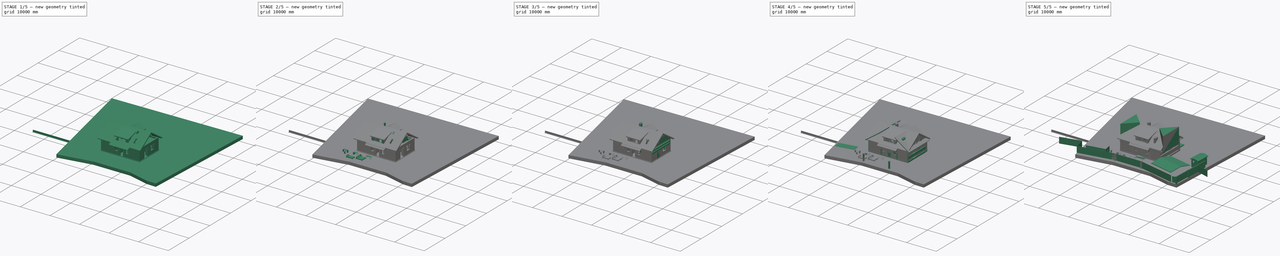
[diagram: build sequence overview — one tinted view per stage of 5, left to right]
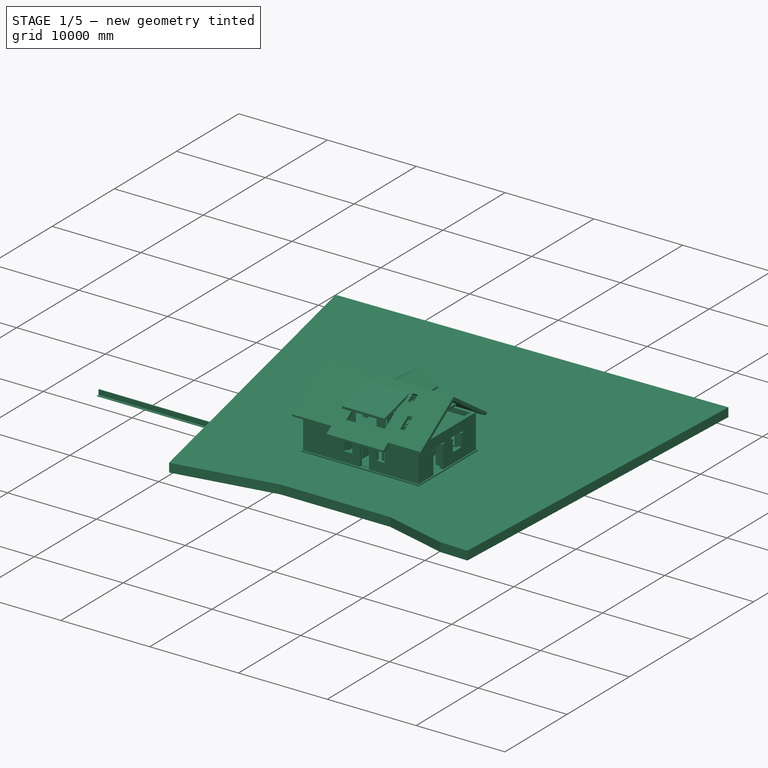
[diagram: stage 1 of 5 — iso view after this stage's code; geometry added in this stage tinted green]
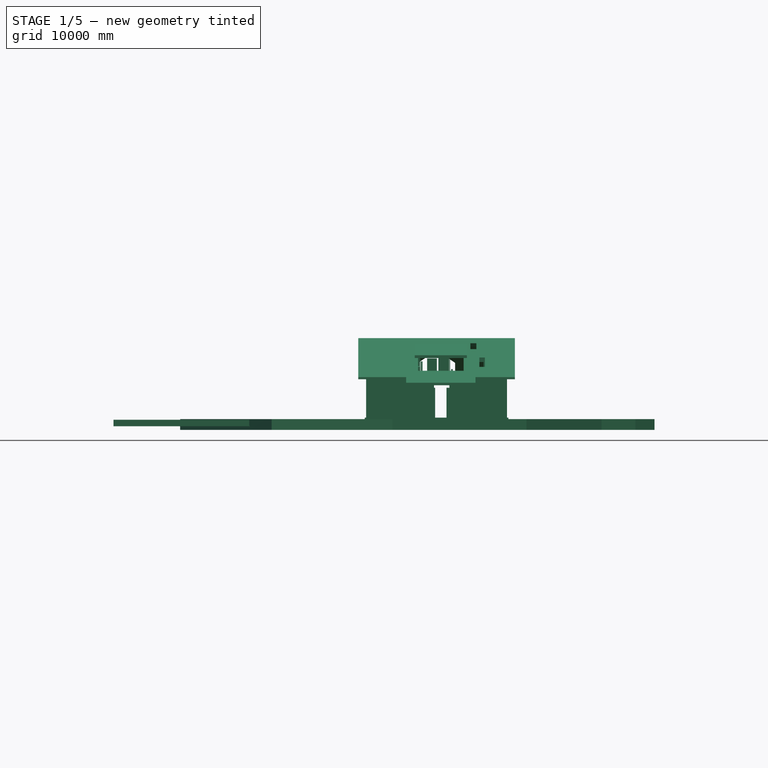
[diagram: stage 1 of 5 — front view after this stage's code; geometry added in this stage tinted green]
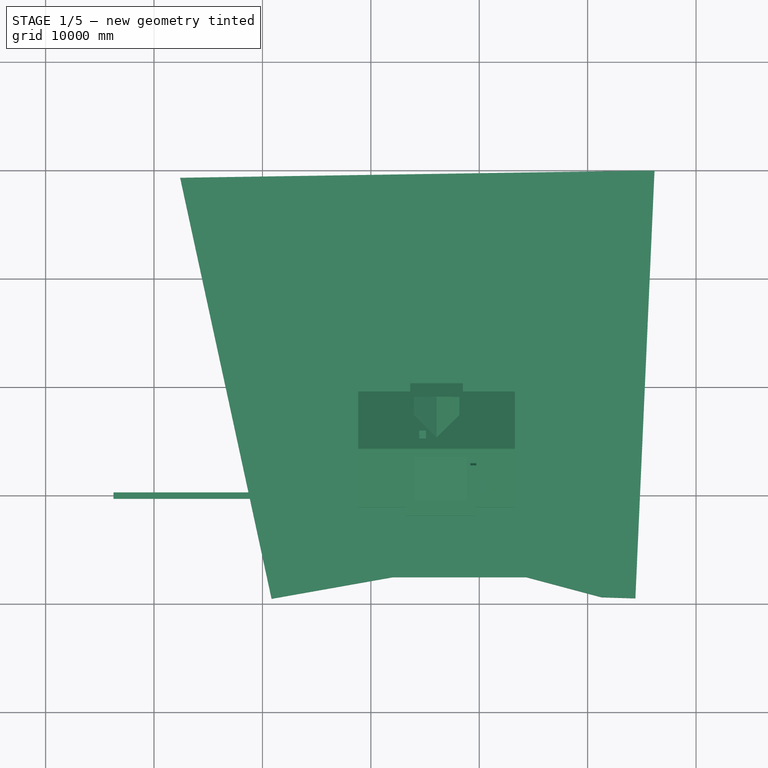
[diagram: stage 1 of 5 — top view after this stage's code; geometry added in this stage tinted green]
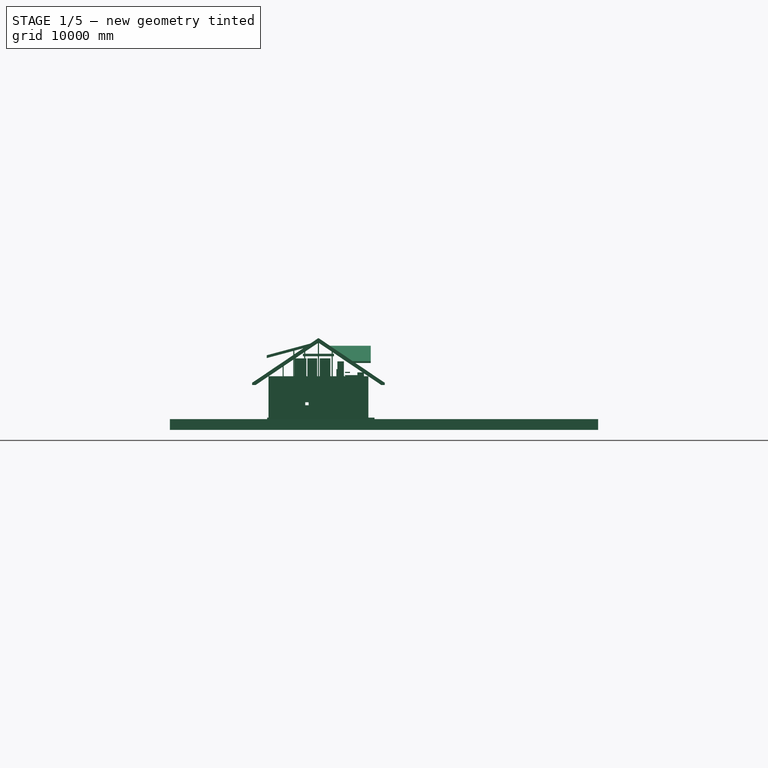
[diagram: stage 1 of 5 — right view after this stage's code; geometry added in this stage tinted green]
FCSTD DOCUMENT  (FreeCAD 0.19R)
Label: 2bedr_dev_160222_mod6-2
License: All rights reserved
LicenseURL: http://en.wikipedia.org/wiki/All_rights_reserved
objects: Part::Part2DObjectPython×982, Part::FeaturePython×677, App::FeaturePython×115, Part::Box×88, App::GeometryPython×85, App::DocumentObjectGroupPython×57, Part::MultiCommon×52, Part::Cut×46, Part::Extrusion×42, Sketcher::SketchObject×37, Part::MultiFuse×34, TechDraw::DrawViewAnnotation×33, Part::Feature×22, App::MaterialObjectPython×22, TechDraw::DrawLeaderLine×17, Part::Mirroring×15, App::DocumentObjectGroup×14, Part::Cylinder×10, TechDraw::DrawSVGTemplate×8, TechDraw::DrawPage×8, +8 more types
note: 2094 computed .brp shape members not serialized (recipe doc carries the construction recipe); baked Part::Feature solids carry a one-line shape summary decoded from their .brp

FEATURE [Part::Part2DObjectPython] Rectangle2169  label="Д-105-254-001"  # Draft 2D object (typed FeaturePython)
  ChamferSize = 0
  Columns = 1
  FilletRadius = 0
  Height = 410
  Length = 1050
  MakeFace = true
  Placement = pos=(5930,-435,0) rot=(0,0,1;0rad)
  Rows = 1
FEATURE [Part::Part2DObjectPython] Rectangle2231  label="ОК-66-001"  # Draft 2D object (typed FeaturePython)
  ChamferSize = 0
  Columns = 1
  FilletRadius = 0
  Height = 410
  Length = 920
  MakeFace = true
  Placement = pos=(7815,-435,0) rot=(0,0,1;0rad)
  Rows = 1
FEATURE [Part::Part2DObjectPython] Rectangle2230  label="ОК-66-002"  # Draft 2D object (typed FeaturePython)
  ChamferSize = 0
  Columns = 1
  FilletRadius = 0
  Height = 410
  Length = 920
  MakeFace = true
  Placement = pos=(4175,-435,0) rot=(0,0,1;0rad)
  Rows = 1
FEATURE [Part::Part2DObjectPython] Rectangle2234  # Draft 2D object (typed FeaturePython)
  ChamferSize = 0
  Columns = 1
  FilletRadius = 0
  Height = 1500
  Length = 3000
  MakeFace = false
  Placement = pos=(5125,-1770,0) rot=(0,0,1;0rad)
  Rows = 1
FEATURE [Part::FeaturePython] Structure016  label="Проём-ОК-66-002"  # Arch/BIM 52 (typed FeaturePython)
  Base = -> Rectangle2230
  FaceMaker = 0
  Height = 1617
  HorizontalArea = 377200
  IfcData = complex_attributes={"OwnerHistory": {}, "IsNestedBy": {}, "IsDecomposedBy": {}, "IsDefinedBy": {}, "ObjectPlacement": {}, "Representation":... (+4 chars omitted)
  IfcType = 52
  Length = 0
  MoveBase = false
  MoveWithHost = false
  Nodes = (2) [(4618,-185,0),(4618,-185,1386)]
  NodesOffset = 0
  Normal = (0,0,0)
  PerimeterLength = 2660
  Placement = pos=(0,0,955) rot=(0,0,1;0rad)
  VerticalArea = 4301220
  Width = 100
FEATURE [Part::FeaturePython] Structure017  label="Проём-ОК-66-001"  # Arch/BIM 52 (typed FeaturePython)
  Base = -> Rectangle2231
  FaceMaker = 0
  Height = 1617
  HorizontalArea = 377200
  IfcData = complex_attributes={"OwnerHistory": {}, "IsNestedBy": {}, "IsDecomposedBy": {}, "IsDefinedBy": {}, "ObjectPlacement": {}, "Representation":... (+4 chars omitted)
  IfcType = 52
  Length = 0
  MoveBase = false
  MoveWithHost = false
  Nodes = (2) [(8655,-230,0),(8655,-230,1386)]
  NodesOffset = 0
  Normal = (0,0,0)
  PerimeterLength = 2660
  Placement = pos=(0,0,955) rot=(0,0,1;0rad)
  VerticalArea = 4301220
  Width = 100
FEATURE [Part::FeaturePython] Structure019  label="Проём-Д-105-254-001"  # Arch/BIM 52 (typed FeaturePython)
  Base = -> Rectangle2169
  FaceMaker = 0
  Height = 2772
  HorizontalArea = 430500
  IfcData = complex_attributes={"OwnerHistory": {}, "IsNestedBy": {}, "IsDecomposedBy": {}, "IsDefinedBy": {}, "ObjectPlacement": {}, "Representation":... (+4 chars omitted)
  IfcType = 52
  Length = 0
  MoveBase = false
  MoveWithHost = false
  Nodes = (2) [(6455,-230,0),(6455,-230,2772)]
  NodesOffset = 0
  Normal = (0,0,0)
  PerimeterLength = 2920
  Placement = pos=(0,0,-200) rot=(0,0,1;0rad)
  VerticalArea = 8094240
  Width = 100
FEATURE [Part::Part2DObjectPython] Line1049  # Draft 2D object (typed FeaturePython)
  ChamferSize = 0
  Closed = true
  End = (-50,4120,0)
  FilletRadius = 0
  Length = 12230
  MakeFace = false
  Placement = pos=(4290,10840,0) rot=(0,0,1;1.5708rad)
  Points = (2) [(-6720,-7890,0),(-6720,4340,0)]
  Start = (12180,4120,0)
  Subdivisions = 0
FEATURE [Part::Part2DObjectPython] Line1054  # Draft 2D object (typed FeaturePython)
  ChamferSize = 0
  Closed = true
  End = (4445,8415,0)
  FilletRadius = 0
  Length = 4170
  MakeFace = false
  Placement = pos=(9225,6300,0) rot=(0,0,1;0rad)
  Points = (2) [(-4780,-2055,0),(-4780,2115,0)]
  Start = (4445,4245,0)
  Subdivisions = 0
FEATURE [Sketcher::SketchObject] Sketch231  label="Профиль ПНО 120-8"
  FullyConstrained = false
  Placement = pos=(0,0,0) rot=(1,0,0;1.5708rad)
  sketch-geometry (19):
    g0: LineSegment StartX=0 StartY=0 StartZ=0 EndX=1190 EndY=0 EndZ=0
    g1: LineSegment StartX=1190 StartY=0 StartZ=0 EndX=1190 EndY=160 EndZ=0
    g2: LineSegment StartX=1190 StartY=160 StartZ=0 EndX=0 EndY=160 EndZ=0
    g3: LineSegment StartX=0 StartY=160 StartZ=0 EndX=0 EndY=0 EndZ=0
    g4: Circle CenterX=100 CenterY=80 CenterZ=0 NormalX=0 NormalY=0 NormalZ=1 AngleXU=0 Radius=50
    g5: Circle CenterX=240 CenterY=80 CenterZ=0 NormalX=0 NormalY=0 NormalZ=1 AngleXU=0 Radius=50
    g6: LineSegment StartX=100 StartY=80 StartZ=0 EndX=240 EndY=80 EndZ=0
    g7: Circle CenterX=380 CenterY=80 CenterZ=0 NormalX=0 NormalY=0 NormalZ=1 AngleXU=0 Radius=50
    g8: LineSegment StartX=240 StartY=80 StartZ=0 EndX=380 EndY=80 EndZ=0
    g9: Circle CenterX=520 CenterY=80 CenterZ=0 NormalX=0 NormalY=0 NormalZ=1 AngleXU=0 Radius=50
    g10: LineSegment StartX=380 StartY=80 StartZ=0 EndX=520 EndY=80 EndZ=0
    g11: Circle CenterX=660 CenterY=80 CenterZ=0 NormalX=0 NormalY=0 NormalZ=1 AngleXU=0 Radius=50
    g12: LineSegment StartX=520 StartY=80 StartZ=0 EndX=660 EndY=80 EndZ=0
    g13: Circle CenterX=800 CenterY=80 CenterZ=0 NormalX=0 NormalY=0 NormalZ=1 AngleXU=0 Radius=50
    g14: LineSegment StartX=660 StartY=80 StartZ=0 EndX=800 EndY=80 EndZ=0
    g15: Circle CenterX=940 CenterY=80 CenterZ=0 NormalX=0 NormalY=0 NormalZ=1 AngleXU=0 Radius=50
    g16: LineSegment StartX=800 StartY=80 StartZ=0 EndX=940 EndY=80 EndZ=0
    g17: Circle CenterX=1080 CenterY=80 CenterZ=0 NormalX=0 NormalY=0 NormalZ=1 AngleXU=0 Radius=50
    g18: LineSegment StartX=940 StartY=80 StartZ=0 EndX=1080 EndY=80 EndZ=0
  constraints (49):
    c: Coincident(g0,g1)
    c: Coincident(g1,g2)
    c: Coincident(g2,g3)
    c: Coincident(g3,g0)
    c: Horizontal(g0)
    c: Horizontal(g2)
    c: Vertical(g1)
    c: Vertical(g3)
    c: Coincident(g0,g-1)
    c: DistanceY(g3,g3) = 160
    c: DistanceX(g2,g2) = 1190
    c: Diameter(g4) = 100
    c: DistanceY(g4,g2) = 80
    c: Diameter(g5) = 100
    c: Coincident(g4,g6)
    c: Coincident(g5,g6)
    c: Distance(g6) = 140
    c: Angle(g6) = 0
    c: Diameter(g7) = 100
    c: Coincident(g5,g8)
    c: Coincident(g7,g8)
    c: Equal(g6,g8)
    c: Parallel(g8,g6)
    c: Diameter(g9) = 100
    c: Coincident(g7,g10)
    c: Coincident(g9,g10)
    c: Equal(g6,g10)
    c: Parallel(g10,g6)
    c: Diameter(g11) = 100
    c: Coincident(g9,g12)
    c: Coincident(g11,g12)
    c: Equal(g6,g12)
    c: Parallel(g12,g6)
    c: Diameter(g13) = 100
    c: Coincident(g11,g14)
    c: Coincident(g13,g14)
    c: Equal(g6,g14)
    c: Parallel(g14,g6)
    c: Diameter(g15) = 100
    c: Coincident(g13,g16)
    c: Coincident(g15,g16)
    c: Equal(g6,g16)
    c: Parallel(g16,g6)
    c: Diameter(g17) = 100
    c: Coincident(g15,g18)
    c: Coincident(g17,g18)
    c: Equal(g6,g18)
    c: Parallel(g18,g6)
    c: DistanceX(g2,g4) = 100
FEATURE [Part::Part2DObjectPython] Line1074  label="ось фундамента внутр.стены"  # Draft 2D object (typed FeaturePython)
  ChamferSize = 0
  Closed = true
  End = (3855,9350,0)
  FilletRadius = 0
  Length = 5200
  MakeFace = false
  Placement = pos=(2155,2900,0) rot=(0,0,1;1.5708rad)
  Points = (2) [(1250,-1700,0),(6450,-1700,0)]
  Start = (3855,4150,0)
  Subdivisions = 0
FEATURE [Part::FeaturePython] Wall037  label="фундамент внутр.стена01"  # Arch/BIM 166 (typed FeaturePython)
  Align = 2
  Area = 2.6e+06
  Base = -> Line1074
  BlockHeight = 0
  BlockLength = 0
  CountBroken = 0
  CountEntire = 0
  Face = 0
  Height = 500
  HorizontalArea = 1.3e+06
  IfcType = 166
  Joint = 0
  Length = 5200
  MakeBlocks = false
  MoveBase = false
  MoveWithHost = false
  Normal = (0,0,-1)
  OffsetFirst = 0
  OffsetSecond = 0
  PerimeterLength = 10900
  Placement = pos=(0,0,-180) rot=(0,0,1;0rad)
  PredefinedType = 0
  VerticalArea = 5.45e+06
  Width = 250
FEATURE [Part::FeaturePython] Wall046  label="утепл фунд. внешней.стены 002"  # Arch/BIM 166 (typed FeaturePython)
  Align = 1
  Area = 28488000
  BlockHeight = 600
  BlockLength = 600
  CountBroken = 1
  CountEntire = 0
  Face = 0
  Height = 600
  HorizontalArea = 3798400
  IfcType = 166
  Joint = 1
  Length = 47480
  MakeBlocks = true
  MoveBase = false
  MoveWithHost = false
  Normal = (0,0,-1)
  OffsetFirst = 0
  OffsetSecond = 0
  PerimeterLength = 95120
  Placement = pos=(0,0,-380) rot=(0,0,1;0rad)
  PredefinedType = 0
  VerticalArea = 57072000
  Width = 80
FEATURE [Part::FeaturePython] Wall047  label="утепл отмостки 001"  # Arch/BIM 166 (typed FeaturePython)
  Align = 1
  Area = 2374000
  BlockHeight = 600
  BlockLength = 1200
  CountBroken = 1
  CountEntire = 0
  Face = 0
  Height = 50
  HorizontalArea = 28488000
  IfcType = 166
  Joint = 1
  Length = 47480
  MakeBlocks = true
  MoveBase = false
  MoveWithHost = false
  Normal = (0,0,-1)
  Offset = 80
  OffsetFirst = 0
  OffsetSecond = 0
  PerimeterLength = 96160
  Placement = pos=(0,0,-930) rot=(0,0,1;0rad)
  PredefinedType = 0
  VerticalArea = 4808000
  Width = 600
FEATURE [App::FeaturePython] Dimension003  # Draft dimension (typed FeaturePython)
  Diameter = false
  Dimline = (13600,200,0)
  Direction = (0,0,0)
  Distance = 9480
  End = (12690,8925,0)
  Normal = (0,0,1)
  Start = (12690,-555,0)
FEATURE [Sketcher::SketchObject] Sketch248
  FullyConstrained = true
  Placement = pos=(3340,3975,0) rot=(1,0,0;1.5708rad)
  sketch-geometry (8):
    g0: LineSegment StartX=0 StartY=0 StartZ=0 EndX=900 EndY=0 EndZ=0
    g1: LineSegment StartX=900 StartY=0 StartZ=0 EndX=900 EndY=2150 EndZ=0
    g2: LineSegment StartX=900 StartY=2150 StartZ=0 EndX=0 EndY=2150 EndZ=0
    g3: LineSegment StartX=0 StartY=2150 StartZ=0 EndX=0 EndY=0 EndZ=0
    g4: LineSegment StartX=50 StartY=0 StartZ=0 EndX=850 EndY=0 EndZ=0
    g5: LineSegment StartX=850 StartY=0 StartZ=0 EndX=850 EndY=2100 EndZ=0
    g6: LineSegment StartX=850 StartY=2100 StartZ=0 EndX=50 EndY=2100 EndZ=0
    g7: LineSegment StartX=50 StartY=2100 StartZ=0 EndX=50 EndY=0 EndZ=0
  constraints (23):
    c: Coincident(g0,g1)
    c: Coincident(g1,g2)
    c: Coincident(g2,g3)
    c: Coincident(g3,g0)
    c: Horizontal(g0)
    c: Horizontal(g2)
    c: Vertical(g1)
    c: Vertical(g3)
    c: Coincident(g4,g5)
    c: Coincident(g5,g6)
    c: Coincident(g6,g7)
    c: Coincident(g7,g4)
    c: Horizontal(g4)
    c: Horizontal(g6)
    c: Vertical(g5)
    c: Vertical(g7)
    c: DistanceY(g1) = 2150  'Height'
    c: DistanceX(g0) = 900  'Width'
    c: DistanceY(g6,g2) = 50  'Frame1'
    c: DistanceX(g2,g6) = 50  'Frame2'
    c: DistanceX(g4,g0) = 50  'Frame3'
    c: DistanceY(g0,g4) = 0
    c: Coincident(g0,g-1)
FEATURE [Sketcher::SketchObject] Sketch249  label="Профиль ПНО 100-6"
  FullyConstrained = false
  Placement = pos=(0,0,0) rot=(1,0,0;1.5708rad)
  sketch-geometry (15):
    g0: LineSegment StartX=0 StartY=0 StartZ=0 EndX=990 EndY=0 EndZ=0
    g1: LineSegment StartX=990 StartY=0 StartZ=0 EndX=990 EndY=160 EndZ=0
    g2: LineSegment StartX=990 StartY=160 StartZ=0 EndX=0 EndY=160 EndZ=0
    g3: LineSegment StartX=0 StartY=160 StartZ=0 EndX=0 EndY=0 EndZ=0
    g4: Circle CenterX=145 CenterY=80 CenterZ=0 NormalX=0 NormalY=0 NormalZ=1 AngleXU=0 Radius=50
    g5: Circle CenterX=285 CenterY=80 CenterZ=0 NormalX=0 NormalY=0 NormalZ=1 AngleXU=0 Radius=50
    g6: LineSegment StartX=145 StartY=80 StartZ=0 EndX=285 EndY=80 EndZ=0
    g7: Circle CenterX=425 CenterY=80 CenterZ=0 NormalX=0 NormalY=0 NormalZ=1 AngleXU=0 Radius=50
    g8: LineSegment StartX=285 StartY=80 StartZ=0 EndX=425 EndY=80 EndZ=0
    g9: Circle CenterX=565 CenterY=80 CenterZ=0 NormalX=0 NormalY=0 NormalZ=1 AngleXU=0 Radius=50
    g10: LineSegment StartX=425 StartY=80 StartZ=0 EndX=565 EndY=80 EndZ=0
    g11: Circle CenterX=705 CenterY=80 CenterZ=0 NormalX=0 NormalY=0 NormalZ=1 AngleXU=0 Radius=50
    g12: LineSegment StartX=565 StartY=80 StartZ=0 EndX=705 EndY=80 EndZ=0
    g13: Circle CenterX=845 CenterY=80 CenterZ=0 NormalX=0 NormalY=0 NormalZ=1 AngleXU=0 Radius=50
    g14: LineSegment StartX=705 StartY=80 StartZ=0 EndX=845 EndY=80 EndZ=0
  constraints (39):
    c: Coincident(g0,g1)
    c: Coincident(g1,g2)
    c: Coincident(g2,g3)
    c: Coincident(g3,g0)
    c: Horizontal(g0)
    c: Horizontal(g2)
    c: Vertical(g1)
    c: Vertical(g3)
    c: Coincident(g0,g-1)
    c: DistanceY(g3,g3) = 160
    c: DistanceX(g2,g2) = 990
    c: Diameter(g4) = 100
    c: DistanceY(g4,g2) = 80
    c: Diameter(g5) = 100
    c: Coincident(g4,g6)
    c: Coincident(g5,g6)
    c: Distance(g6) = 140
    c: Angle(g6) = 0
    c: Diameter(g7) = 100
    c: Coincident(g5,g8)
    c: Coincident(g7,g8)
    c: Equal(g6,g8)
    c: Parallel(g8,g6)
    c: Diameter(g9) = 100
    c: Coincident(g7,g10)
    c: Coincident(g9,g10)
    c: Equal(g6,g10)
    c: Parallel(g10,g6)
    c: Diameter(g11) = 100
    c: Coincident(g9,g12)
    c: Coincident(g11,g12)
    c: Equal(g6,g12)
    c: Parallel(g12,g6)
    c: Diameter(g13) = 100
    c: Coincident(g11,g14)
    c: Coincident(g13,g14)
    c: Equal(g6,g14)
    c: Parallel(g14,g6)
    c: DistanceX(g2,g4) = 145
FEATURE [Part::Part2DObjectPython] Wire460  label="границы участка"  # Draft 2D object (typed FeaturePython)
  ChamferSize = 0
  Closed = true
  End = (26167.8,29983.2,0)
  FilletRadius = 0
  Length = 156987
  MakeFace = false
  Placement = pos=(24404.1,-9481.8,0) rot=(0,0,1;0.025758rad)
  Points = (7) [(0,0,0),(-3118.22,176.296,0),(-9989.98,2199.83,0),(-22349.9,2518.26,0),(-33551.4,825.818,0),(-40981.4,39865.2,0),(2779.54,39406.5,0)]
  Start = (24404.1,-9481.8,0)
  Subdivisions = 0
FEATURE [Part::Part2DObjectPython] Rectangle2365  label="зона парковки-навес"  # Draft 2D object (typed FeaturePython)
  ChamferSize = 0
  Columns = 1
  FilletRadius = 0
  Height = 7000
  Length = 7000
  MakeFace = false
  Placement = pos=(17916.6,-6918.81,0) rot=(0,0,-1;0.068796rad)
  Rows = 1
FEATURE [Part::Part2DObjectPython] Wire463  label="граница по ограждению"  # Draft 2D object (typed FeaturePython)
  ChamferSize = 0
  Closed = true
  End = (5754.6,-6612.02,0)
  FilletRadius = 0
  Length = 153279
  MakeFace = false
  Placement = pos=(24847.4,-8209.78,0) rot=(0,0,1;0rad)
  Points = (6) [(14.0233,-1.17368,0),(2632.1,37116.3,0),(-41128.8,37575,0),(-34003,133.748,0),(-24492.8,1579.34,0),(-19092.8,1597.76,0)]
  Start = (24861.5,-8210.95,0)
  Subdivisions = 0
FEATURE [Part::FeaturePython] Structure133  label="грунт в границах участка"  # Arch/BIM 52 (typed FeaturePython)
  Base = -> Wire460
  FaceMaker = 0
  Height = 1000
  HorizontalArea = 1.47224e+09
  IfcData = complex_attributes={"OwnerHistory": {}, "IsNestedBy": {}, "IsDecomposedBy": {}, "IsDefinedBy": {}, "ObjectPlacement": {}, "Representation":... (+4 chars omitted)
  IfcType = 52
  Length = 0
  MoveBase = false
  MoveWithHost = false
  Nodes = (2) [(5892.5,11504.2,0),(5892.5,11504.2,-1000)]
  NodesOffset = 0
  Normal = (0,0,-1)
  PerimeterLength = 156987
  Placement = pos=(0,0,-320) rot=(0,0,1;0rad)
  VerticalArea = 1.56987e+08
  Width = 100
FEATURE [Part::Part2DObjectPython] Rectangle2579  label="четверть_183-001"  # Draft 2D object (typed FeaturePython)
  ChamferSize = 0
  Columns = 1
  FilletRadius = 0
  Height = 120
  Length = 920
  MakeFace = true
  Placement = pos=(12570,3475,0) rot=(0,0,-1;1.5708rad)
  Rows = 1
FEATURE [Part::Part2DObjectPython] Rectangle2577  label="четверть_790-001"  # Draft 2D object (typed FeaturePython)
  ChamferSize = 0
  Columns = 1
  FilletRadius = 0
  Height = 120
  Length = 1310
  MakeFace = true
  Placement = pos=(12570,6465,0) rot=(0,0,-1;1.5708rad)
  Rows = 1
FEATURE [Part::Part2DObjectPython] Line1184  label="Line1179"  # Draft 2D object (typed FeaturePython)
  ChamferSize = 0
  Closed = false
  End = (8790,-565,0)
  FilletRadius = 0
  Length = 1030
  MakeFace = true
  Placement = pos=(7760,-565,0) rot=(0,0,-1;0rad)
  Points = (2) [(0,0,0),(1030,4.54747e-13,0)]
  Start = (7760,-565,0)
  Subdivisions = 0
FEATURE [Part::Part2DObjectPython] Line1186  # Draft 2D object (typed FeaturePython)
  ChamferSize = 0
  Closed = true
  End = (3200,8935,0)
  FilletRadius = 0
  Length = 1550
  MakeFace = true
  Placement = pos=(1650,8935,0) rot=(0,0,1;0rad)
  Points = (2) [(0,0,0),(1550,0,0)]
  Start = (1650,8935,0)
  Subdivisions = 0
FEATURE [Part::Part2DObjectPython] Line1187  # Draft 2D object (typed FeaturePython)
  ChamferSize = 0
  Closed = true
  End = (12700,6585,0)
  FilletRadius = 0
  Length = 1550
  MakeFace = true
  Placement = pos=(12700,5035,0) rot=(0,0,1;1.5708rad)
  Points = (2) [(0,0,0),(1550,3.63798e-12,0)]
  Start = (12700,5035,0)
  Subdivisions = 0
FEATURE [Part::Part2DObjectPython] Rectangle2580  label="четверть_530-002"  # Draft 2D object (typed FeaturePython)
  ChamferSize = 0
  Columns = 1
  FilletRadius = 0
  Height = 120
  Length = 790
  MakeFace = true
  Placement = pos=(7880,-555,0) rot=(0,0,1;0rad)
  Rows = 1
FEATURE [Part::Part2DObjectPython] Line1191  label="Line1184"  # Draft 2D object (typed FeaturePython)
  ChamferSize = 0
  Closed = false
  End = (5150,-565,0)
  FilletRadius = 0
  Length = 1030
  MakeFace = true
  Placement = pos=(4120,-595,0) rot=(0,0,-1;0rad)
  Points = (2) [(0,30,0),(1030,30,0)]
  Start = (4120,-565,0)
  Subdivisions = 0
FEATURE [Sketcher::SketchObject] Sketch260
  FullyConstrained = true
  Placement = pos=(10490,4040,-180) rot=(1,0,0;1.5708rad)
  sketch-geometry (8):
    g0: LineSegment StartX=0 StartY=0 StartZ=0 EndX=900 EndY=0 EndZ=0
    g1: LineSegment StartX=900 StartY=0 StartZ=0 EndX=900 EndY=2150 EndZ=0
    g2: LineSegment StartX=900 StartY=2150 StartZ=0 EndX=0 EndY=2150 EndZ=0
    g3: LineSegment StartX=0 StartY=2150 StartZ=0 EndX=0 EndY=0 EndZ=0
    g4: LineSegment StartX=50 StartY=0 StartZ=0 EndX=850 EndY=0 EndZ=0
    g5: LineSegment StartX=850 StartY=0 StartZ=0 EndX=850 EndY=2100 EndZ=0
    g6: LineSegment StartX=850 StartY=2100 StartZ=0 EndX=50 EndY=2100 EndZ=0
    g7: LineSegment StartX=50 StartY=2100 StartZ=0 EndX=50 EndY=0 EndZ=0
  constraints (23):
    c: Coincident(g0,g1)
    c: Coincident(g1,g2)
    c: Coincident(g2,g3)
    c: Coincident(g3,g0)
    c: Horizontal(g0)
    c: Horizontal(g2)
    c: Vertical(g1)
    c: Vertical(g3)
    c: Coincident(g4,g5)
    c: Coincident(g5,g6)
    c: Coincident(g6,g7)
    c: Coincident(g7,g4)
    c: Horizontal(g4)
    c: Horizontal(g6)
    c: Vertical(g5)
    c: Vertical(g7)
    c: DistanceY(g1) = 2150  'Height'
    c: DistanceX(g0) = 900  'Width'
    c: DistanceY(g6,g2) = 50  'Frame1'
    c: DistanceX(g2,g6) = 50  'Frame2'
    c: DistanceX(g4,g0) = 50  'Frame3'
    c: DistanceY(g0,g4) = 0
    c: Coincident(g0,g-1)
FEATURE [Part::Part2DObjectPython] Line1200  label="Line1202"  # Draft 2D object (typed FeaturePython)
  ChamferSize = 0
  Closed = true
  End = (5340,1785,0)
  FilletRadius = 0
  Length = 1830
  MakeFace = false
  Placement = pos=(2870,760,0) rot=(0,0,-1;1.5708rad)
  Points = (2) [(805,2470,0),(-1025,2470,0)]
  Start = (5340,-45,0)
  Subdivisions = 0
FEATURE [Part::Part2DObjectPython] Line1201  label="ось фундамента внутр.стены001"  # Draft 2D object (typed FeaturePython)
  ChamferSize = 0
  Closed = true
  End = (9525,9350,0)
  FilletRadius = 0
  Length = 9090
  MakeFace = false
  Placement = pos=(7825,2900,0) rot=(0,0,1;1.5708rad)
  Points = (2) [(-2640,-1700,0),(6450,-1700,0)]
  Start = (9525,260,0)
  Subdivisions = 0
FEATURE [Part::FeaturePython] Wall129  label="фундамент внутр.стена002"  # Arch/BIM 166 (typed FeaturePython)
  Align = 2
  Area = 4545000
  Base = -> Line1201
  BlockHeight = 0
  BlockLength = 0
  CountBroken = 0
  CountEntire = 0
  Face = 0
  Height = 500
  HorizontalArea = 2.2725e+06
  IfcType = 166
  Joint = 0
  Length = 9090
  MakeBlocks = false
  MoveBase = false
  MoveWithHost = false
  Normal = (0,0,-1)
  OffsetFirst = 0
  OffsetSecond = 0
  PerimeterLength = 18680
  Placement = pos=(0,0,-180) rot=(0,0,1;0rad)
  PredefinedType = 0
  VerticalArea = 9340000
  Width = 250
FEATURE [Part::Part2DObjectPython] Rectangle2651  label="уширение фундамента 001"  # Draft 2D object (typed FeaturePython)
  ChamferSize = 0
  Columns = 1
  FilletRadius = 0
  Height = 1030
  Length = 130
  MakeFace = false
  Placement = pos=(3600,5330,0) rot=(0,0,1;0rad)
  Rows = 1
FEATURE [Part::FeaturePython] Structure172  label="уширение фундамента001"  # Arch/BIM 52 (typed FeaturePython)
  Base = -> Rectangle2651
  FaceMaker = 0
  Height = 500
  HorizontalArea = 133900
  IfcData = complex_attributes={"OwnerHistory": {}, "IsNestedBy": {}, "IsDecomposedBy": {}, "IsDefinedBy": {}, "ObjectPlacement": {}, "Representation":... (+4 chars omitted)
  IfcType = 52
  Length = 0
  MoveBase = false
  MoveWithHost = false
  Nodes = (2) [(3665,5845,0),(3665,5845,-500)]
  NodesOffset = 0
  Normal = (0,0,-1)
  PerimeterLength = 2320
  Placement = pos=(0,0,-180) rot=(0,0,1;0rad)
  VerticalArea = 1160000
  Width = 100
FEATURE [Part::FeaturePython] Wall038  label="фундамент внутр. стена 001"  # Arch/BIM 166 (typed FeaturePython)
  Additions = -> [Wall037,Structure172]
  Align = 2
  Area = 1.56e+06
  Base = -> Line1074
  BlockHeight = 0
  BlockLength = 0
  CountBroken = 0
  CountEntire = 0
  Face = 0
  Height = 300
  HorizontalArea = 2.6e+06
  IfcType = 166
  Joint = 0
  Length = 5200
  MakeBlocks = false
  MoveBase = false
  MoveWithHost = false
  Normal = (0,0,-1)
  OffsetFirst = 0
  OffsetSecond = 0
  PerimeterLength = 28620
  Placement = pos=(-25,0,-680) rot=(0,0,1;0rad)
  PredefinedType = 0
  VerticalArea = 9e+06
  Width = 500
FEATURE [Part::Part2DObjectPython] Rectangle2663  label="уширение фундамента 002"  # Draft 2D object (typed FeaturePython)
  ChamferSize = 0
  Columns = 1
  FilletRadius = 0
  Height = 1030
  Length = 130
  MakeFace = false
  Placement = pos=(9650,4310,0) rot=(0,0,1;0rad)
  Rows = 1
FEATURE [Part::FeaturePython] Structure175  label="уширение фундамента002"  # Arch/BIM 52 (typed FeaturePython)
  Base = -> Rectangle2663
  FaceMaker = 0
  Height = 500
  HorizontalArea = 133900
  IfcData = complex_attributes={"OwnerHistory": {}, "IsNestedBy": {}, "IsDecomposedBy": {}, "IsDefinedBy": {}, "ObjectPlacement": {}, "Representation":... (+4 chars omitted)
  IfcType = 52
  Length = 0
  MoveBase = false
  MoveWithHost = false
  Nodes = (2) [(9715,4825,0),(9715,4825,-500)]
  NodesOffset = 0
  Normal = (0,0,-1)
  PerimeterLength = 2320
  Placement = pos=(0,0,-180) rot=(0,0,1;0rad)
  VerticalArea = 1160000
  Width = 100
FEATURE [Part::FeaturePython] Wall130  label="фундамент внутр. стена 002"  # Arch/BIM 166 (typed FeaturePython)
  Additions = -> [Wall129,Structure175]
  Align = 2
  Area = 2727000
  Base = -> Line1201
  BlockHeight = 0
  BlockLength = 0
  CountBroken = 0
  CountEntire = 0
  Face = 0
  Height = 300
  HorizontalArea = 4.55015e+06
  IfcType = 166
  Joint = 0
  Length = 9090
  MakeBlocks = false
  MoveBase = false
  MoveWithHost = false
  Normal = (0,0,-1)
  OffsetFirst = 0
  OffsetSecond = 0
  PerimeterLength = 28620
  Placement = pos=(0,0,-680) rot=(0,0,1;0rad)
  PredefinedType = 0
  VerticalArea = 15224000
  Width = 500
FEATURE [Part::Part2DObjectPython] Rectangle2695  label="Д80-007"  # Draft 2D object (typed FeaturePython)
  ChamferSize = 0
  Columns = 1
  FilletRadius = 0
  Height = 110
  Length = 800
  MakeFace = true
  Placement = pos=(7440,2765,0) rot=(0,0,-1;1.5708rad)
  Rows = 1
FEATURE [Part::FeaturePython] Structure026  label="Проём-Д90-020"  # Arch/BIM 52 (typed FeaturePython)
  Base = -> Rectangle2695
  FaceMaker = 0
  Height = 2170
  HorizontalArea = 88000
  IfcData = complex_attributes={"OwnerHistory": {}, "IsNestedBy": {}, "IsDecomposedBy": {}, "IsDefinedBy": {}, "ObjectPlacement": {}, "Representation":... (+4 chars omitted)
  IfcType = 52
  Length = 0
  MoveBase = false
  MoveWithHost = false
  Nodes = (2) [(13000,6050,0),(13000,6050,2180)]
  NodesOffset = 0
  Normal = (0,0,0)
  PerimeterLength = 1820
  Placement = pos=(0,0,-20) rot=(0,0,1;0rad)
  VerticalArea = 3949400
  Width = 100
FEATURE [Part::Part2DObjectPython] Rectangle2717  label="Д90-006"  # Draft 2D object (typed FeaturePython)
  ChamferSize = 0
  Columns = 1
  FilletRadius = 0
  Height = 110
  Length = 900
  MakeFace = true
  Placement = pos=(4280,2685,0) rot=(0,0,1;0rad)
  Rows = 1
FEATURE [Part::FeaturePython] Structure024  label="Проём-Д90-019"  # Arch/BIM 52 (typed FeaturePython)
  Base = -> Rectangle2717
  FaceMaker = 0
  Height = 2170
  HorizontalArea = 99000
  IfcData = complex_attributes={"OwnerHistory": {}, "IsNestedBy": {}, "IsDecomposedBy": {}, "IsDefinedBy": {}, "ObjectPlacement": {}, "Representation":... (+4 chars omitted)
  IfcType = 52
  Length = 0
  MoveBase = false
  MoveWithHost = false
  Nodes = (2) [(5000,3050,0),(5000,3050,2180)]
  NodesOffset = 0
  Normal = (0,0,0)
  PerimeterLength = 2020
  Placement = pos=(0,0,-20) rot=(0,0,1;0rad)
  VerticalArea = 4.3834e+06
  Width = 100
FEATURE [Part::Part2DObjectPython] Rectangle2730  label="Д70-004"  # Draft 2D object (typed FeaturePython)
  ChamferSize = 0
  Columns = 1
  FilletRadius = 0
  Height = 100
  Length = 650
  MakeFace = true
  Placement = pos=(10270,2655,0) rot=(0,0,1;1.5708rad)
  Rows = 1
FEATURE [Part::FeaturePython] Structure141  label="Проём-Д90-001"  # Arch/BIM 52 (typed FeaturePython)
  Base = -> Rectangle2730
  FaceMaker = 0
  Height = 1250
  HorizontalArea = 65000
  IfcData = complex_attributes={"OwnerHistory": {}, "IsNestedBy": {}, "IsDecomposedBy": {}, "IsDefinedBy": {}, "ObjectPlacement": {}, "Representation":... (+4 chars omitted)
  IfcType = 52
  Length = 0
  MoveBase = false
  MoveWithHost = false
  Nodes = (2) [(10750,4050,0),(10750,4050,2180)]
  NodesOffset = 0
  Normal = (0,0,0)
  PerimeterLength = 1500
  Placement = pos=(0,0,-20) rot=(0,0,1;0rad)
  VerticalArea = 1875000
  Width = 100
FEATURE [Part::Part2DObjectPython] Rectangle2788  label="вн_контур"  # Draft 2D object (typed FeaturePython)
  ChamferSize = 0
  Columns = 1
  FilletRadius = 0
  Height = 8420
  Length = 12190
  MakeFace = false
  Placement = pos=(-30,-25,0) rot=(0,0,1;0rad)
  Rows = 1
FEATURE [Part::Part2DObjectPython] Rectangle2795  label="Д90-002"  # Draft 2D object (typed FeaturePython)
  ChamferSize = 0
  Columns = 1
  FilletRadius = 0
  Height = 160
  Length = 920
  MakeFace = true
  Placement = pos=(3330,3975,0) rot=(0,0,1;0rad)
  Rows = 1
FEATURE [Part::FeaturePython] Structure023  label="Проём-Д90-018"  # Arch/BIM 52 (typed FeaturePython)
  Base = -> Rectangle2795
  FaceMaker = 0
  Height = 2350
  HorizontalArea = 147200
  IfcData = complex_attributes={"OwnerHistory": {}, "IsNestedBy": {}, "IsDecomposedBy": {}, "IsDefinedBy": {}, "ObjectPlacement": {}, "Representation":... (+4 chars omitted)
  IfcType = 52
  Length = 0
  MoveBase = false
  MoveWithHost = false
  Nodes = (2) [(8900,5350,0),(8900,5350,2180)]
  NodesOffset = 0
  Normal = (0,0,0)
  PerimeterLength = 2160
  Placement = pos=(0,0,-200) rot=(0,0,1;0rad)
  VerticalArea = 5076000
  Width = 100
FEATURE [Part::Part2DObjectPython] Rectangle2798  label="Д90-005"  # Draft 2D object (typed FeaturePython)
  ChamferSize = 0
  Columns = 1
  FilletRadius = 0
  Height = 100
  Length = 900
  MakeFace = true
  Placement = pos=(3220,2945,0) rot=(0,0,1;1.5708rad)
  Rows = 1
FEATURE [Part::FeaturePython] Structure021  label="Проём-Д90-017"  # Arch/BIM 52 (typed FeaturePython)
  Base = -> Rectangle2798
  FaceMaker = 0
  Height = 2170
  HorizontalArea = 90000
  IfcData = complex_attributes={"OwnerHistory": {}, "IsNestedBy": {}, "IsDecomposedBy": {}, "IsDefinedBy": {}, "ObjectPlacement": {}, "Representation":... (+4 chars omitted)
  IfcType = 52
  Length = 0
  MoveBase = false
  MoveWithHost = false
  Nodes = (2) [(7500,3050,0),(7500,3050,2180)]
  NodesOffset = 0
  Normal = (0,0,0)
  PerimeterLength = 2000
  Placement = pos=(0,0,-20) rot=(0,0,1;0rad)
  VerticalArea = 4340000
  Width = 100
FEATURE [Part::Part2DObjectPython] Rectangle2807  label="Д90-001"  # Draft 2D object (typed FeaturePython)
  ChamferSize = 0
  Columns = 1
  FilletRadius = 0
  Height = 290
  Length = 920
  MakeFace = true
  Placement = pos=(11400,4265,0) rot=(0,0,1;3.14159rad)
  Rows = 1
FEATURE [Part::FeaturePython] Structure020  label="Проём-Д90-016"  # Arch/BIM 52 (typed FeaturePython)
  Base = -> Rectangle2807
  FaceMaker = 0
  Height = 2350
  HorizontalArea = 266800
  IfcData = complex_attributes={"OwnerHistory": {}, "IsNestedBy": {}, "IsDecomposedBy": {}, "IsDefinedBy": {}, "ObjectPlacement": {}, "Representation":... (+4 chars omitted)
  IfcType = 52
  Length = 0
  MoveBase = false
  MoveWithHost = false
  Nodes = (2) [(650,-4000,0),(650,-4000,2250)]
  NodesOffset = 0
  Normal = (0,0,0)
  PerimeterLength = 2420
  Placement = pos=(0,0,-200) rot=(0,0,1;0rad)
  VerticalArea = 5687000
  Width = 100
FEATURE [Part::Part2DObjectPython] Rectangle544  # Draft 2D object (typed FeaturePython)
  ChamferSize = 0
  Columns = 1
  FilletRadius = 25
  Height = 300
  Length = 2500
  MakeFace = false
  Placement = pos=(7895,5545,0) rot=(0,0,1;1.5708rad)
  Rows = 1
FEATURE [Part::Part2DObjectPython] Rectangle545  # Draft 2D object (typed FeaturePython)
  ChamferSize = 0
  Columns = 1
  FilletRadius = 25
  Height = 950
  Length = 2500
  MakeFace = true
  Placement = pos=(7895,5545,0) rot=(0,0,1;1.5708rad)
  Rows = 1
  Support = -> [Rectangle544]
FEATURE [Part::Part2DObjectPython] Rectangle546  # Draft 2D object (typed FeaturePython)
  ChamferSize = 0
  Columns = 1
  FilletRadius = 25
  Height = 950
  Length = 250
  MakeFace = false
  Placement = pos=(7895,5545,0) rot=(0,0,1;1.5708rad)
  Rows = 1
FEATURE [Part::Part2DObjectPython] Rectangle547  # Draft 2D object (typed FeaturePython)
  ChamferSize = 0
  Columns = 1
  FilletRadius = 25
  Height = 950
  Length = 250
  MakeFace = false
  Placement = pos=(7895,7795,0) rot=(0,0,1;1.5708rad)
  Rows = 1
FEATURE [Part::Part2DObjectPython] Rectangle2837  # Draft 2D object (typed FeaturePython)
  ChamferSize = 0
  Columns = 1
  FilletRadius = 25
  Height = 670
  Length = 650
  MakeFace = true
  Placement = pos=(6945,5795,0) rot=(0,0,1;1.5708rad)
  Rows = 1
FEATURE [Part::Part2DObjectPython] Rectangle2857  label="ОК-144-001"  # Draft 2D object (typed FeaturePython)
  ChamferSize = 0
  Columns = 1
  FilletRadius = 0
  Height = 410
  Length = 1440
  MakeFace = true
  Placement = pos=(-30,1840,0) rot=(0,0,1;1.5708rad)
  Rows = 1
FEATURE [Part::FeaturePython] Structure285  label="Проём-ОК-144-001"  # Arch/BIM 52 (typed FeaturePython)
  Base = -> Rectangle2857
  FaceMaker = 0
  Height = 1617
  HorizontalArea = 590400
  IfcData = complex_attributes={"OwnerHistory": {}, "IsNestedBy": {}, "IsDecomposedBy": {}, "IsDefinedBy": {}, "ObjectPlacement": {}, "Representation":... (+4 chars omitted)
  IfcType = 52
  Length = 0
  MoveBase = false
  MoveWithHost = false
  Nodes = (2) [(-8120,-170,0),(-8120,-170,1500)]
  NodesOffset = 0
  Normal = (0,0,0)
  PerimeterLength = 3700
  Placement = pos=(0,0,955) rot=(0,0,1;0rad)
  VerticalArea = 5982900
  Width = 100
FEATURE [Part::Box] Box3205  label="шкаф 60 кухонный 011"
  AttacherType = Attacher::AttachEngine3D
  Height = 810
  Length = 700
  Placement = pos=(9660,4265,0) rot=(0,0,1;0rad)
  Width = 1400
FEATURE [Part::Part2DObjectPython] Line1302  label="ось фундамента внутр.стены002"  # Draft 2D object (typed FeaturePython)
  ChamferSize = 0
  Closed = true
  End = (9400,4025,0)
  FilletRadius = 0
  Length = 9400
  MakeFace = false
  Placement = pos=(7825,3025,0) rot=(0,0,1;1.5708rad)
  Points = (2) [(1000,7825,0),(1000,-1575,0)]
  Start = (0,4025,0)
  Subdivisions = 0
FEATURE [Part::FeaturePython] Wall174  label="фундамент внутр.стена003"  # Arch/BIM 166 (typed FeaturePython)
  Align = 2
  Area = 4.7e+06
  Base = -> Line1302
  BlockHeight = 0
  BlockLength = 0
  CountBroken = 0
  CountEntire = 0
  Face = 0
  Height = 500
  HorizontalArea = 2.35e+06
  IfcType = 166
  Joint = 0
  Length = 9400
  MakeBlocks = false
  MoveBase = false
  MoveWithHost = false
  Normal = (0,0,-1)
  OffsetFirst = 0
  OffsetSecond = 0
  PerimeterLength = 19300
  Placement = pos=(0,0,-180) rot=(0,0,1;0rad)
  PredefinedType = 0
  VerticalArea = 9.65e+06
  Width = 250
FEATURE [Part::FeaturePython] Wall175  label="фундамент внутр. стена 003"  # Arch/BIM 166 (typed FeaturePython)
  Additions = -> [Wall174]
  Align = 2
  Area = 2.82e+06
  Base = -> Line1302
  BlockHeight = 0
  BlockLength = 0
  CountBroken = 0
  CountEntire = 0
  Face = 0
  Height = 300
  HorizontalArea = 4.7e+06
  IfcType = 166
  Joint = 0
  Length = 9400
  MakeBlocks = false
  MoveBase = false
  MoveWithHost = false
  Normal = (0,0,-1)
  OffsetFirst = 0
  OffsetSecond = 0
  PerimeterLength = 28620
  Placement = pos=(0,0,-680) rot=(0,0,1;0rad)
  PredefinedType = 0
  VerticalArea = 1.559e+07
  Width = 500
FEATURE [Part::Part2DObjectPython] Rectangle3004  # Draft 2D object (typed FeaturePython)
  ChamferSize = 0
  Columns = 1
  FilletRadius = 0
  Height = 3900
  Length = 630
  MakeFace = true
  Placement = pos=(11530,4265,0) rot=(0,0,1;0rad)
  Rows = 1
FEATURE [Part::Part2DObjectPython] ShapeString185  # Draft 2D object (typed FeaturePython)
  FontFile = <path>
  Placement = pos=(11777.8,1328.53,0) rot=(0,0,1;0rad)
  Size = 300
  String = *
  Tracking = 0
FEATURE [Part::Part2DObjectPython] ShapeString186  # Draft 2D object (typed FeaturePython)
  FontFile = <path>
  Placement = pos=(11628.4,7211.11,0) rot=(0,0,1;0rad)
  Size = 200
  String = ДШ
  Tracking = 0
FEATURE [Part::FeaturePython] Wall184  label="МЗЛФ нижняя часть"  # Arch/BIM 166 (typed FeaturePython)
  Align = 0
  Area = 24732000
  Base = -> Rectangle2788
  BlockHeight = 0
  BlockLength = 0
  CountBroken = 0
  CountEntire = 0
  Face = 0
  Height = 600
  HorizontalArea = 14917000
  IfcData = attributes={"GlobalId": {"name": "GlobalId", "type": "IfcGloballyUniqueId", "is_enum": false, "enum_values": []}, "Description": {"... (+533 chars omitted),+1 more (map truncated)
  IfcType = 166
  Joint = 0
  Length = 41220
  MakeBlocks = false
  MoveBase = false
  MoveWithHost = false
  Normal = (0,0,0)
  OffsetFirst = 0
  OffsetSecond = 0
  PerimeterLength = 44020
  Placement = pos=(0,0,-980) rot=(0,0,1;0rad)
  PredefinedType = 0
  VerticalArea = 51144000
  Width = 350
FEATURE [Part::Part2DObjectPython] Rectangle3023  # Draft 2D object (typed FeaturePython)
  ChamferSize = 0
  Columns = 1
  FilletRadius = 0
  Height = 300
  Length = 480
  MakeFace = true
  Placement = pos=(9615,6865,0) rot=(0,0,1;3.14159rad)
  Rows = 1
FEATURE [Part::Part2DObjectPython] Rectangle3024  # Draft 2D object (typed FeaturePython)
  ChamferSize = 0
  Columns = 1
  FilletRadius = 0
  Height = 300
  Length = 480
  MakeFace = true
  Placement = pos=(9615,7965,0) rot=(0,0,1;3.14159rad)
  Rows = 1
FEATURE [Part::Part2DObjectPython] Line1316  # Draft 2D object (typed FeaturePython)
  ChamferSize = 0
  Closed = true
  End = (3260,2745,0)
  FilletRadius = 0
  Length = 2570
  MakeFace = false
  Placement = pos=(2655,6045,0) rot=(0,0,-1;1.5708rad)
  Points = (2) [(3300,3175,0),(3300,605,0)]
  Start = (5830,2745,0)
  Subdivisions = 0
FEATURE [Part::Part2DObjectPython] Line1317  # Draft 2D object (typed FeaturePython)
  Area = 0
  ChamferSize = 0
  Closed = false
  End = (11530,6065,0)
  FilletRadius = 0
  Length = 600
  MakeFace = true
  Placement = pos=(11281.3,5518.95,0) rot=(0,0,1;0.877215rad)
  Points = (2) [(0,0,0),(578.858,157.87,0)]
  Start = (11281.3,5518.95,0)
  Subdivisions = 0
FEATURE [Part::Part2DObjectPython] Rectangle3046  label="Шкаф 60 015"  # Draft 2D object (typed FeaturePython)
  Area = 720000
  ChamferSize = 0
  Columns = 1
  FilletRadius = 0
  Height = 1200
  Length = 600
  MakeFace = true
  Placement = pos=(11560,-25,0) rot=(0,0,1;0rad)
  Rows = 1
FEATURE [Part::Part2DObjectPython] Line1323  # Draft 2D object (typed FeaturePython)
  ChamferSize = 0
  Closed = true
  End = (7490,1465,0)
  FilletRadius = 0
  Length = 1500
  MakeFace = false
  Placement = pos=(9070,2660,0) rot=(0,0,1;0rad)
  Points = (2) [(-1580,305,0),(-1580,-1195,0)]
  Start = (7490,2965,0)
  Subdivisions = 0
FEATURE [Part::Part2DObjectPython] Line1324  # Draft 2D object (typed FeaturePython)
  ChamferSize = 0
  Closed = true
  End = (7490,-45,0)
  FilletRadius = 0
  Length = 1260
  MakeFace = false
  Placement = pos=(9575,2015,0) rot=(0,0,1;0rad)
  Points = (2) [(-2085,-800,0),(-2085,-2060,0)]
  Start = (7490,1215,0)
  Subdivisions = 0
FEATURE [Part::Part2DObjectPython] Line1326  # Draft 2D object (typed FeaturePython)
  Area = 0
  ChamferSize = 0
  Closed = true
  End = (14200,6200,0)
  FilletRadius = 0
  Length = 1100
  MakeFace = true
  Placement = pos=(14200,7300,0) rot=(0,0,1;0rad)
  Points = (2) [(0,0,0),(0,-1100,0)]
  Start = (14200,7300,0)
  Subdivisions = 0
FEATURE [Part::Part2DObjectPython] Line1327  # Draft 2D object (typed FeaturePython)
  Area = 0
  ChamferSize = 0
  Closed = false
  End = (14200,7300,0)
  FilletRadius = 0
  Length = 282.843
  MakeFace = true
  Placement = pos=(14000,7500,0) rot=(0,0,1;0rad)
  Points = (2) [(0,0,0),(200,-200,0)]
  Start = (14000,7500,0)
  Subdivisions = 0
FEATURE [Part::Part2DObjectPython] Line1328  # Draft 2D object (typed FeaturePython)
  Area = 0
  ChamferSize = 0
  Closed = false
  End = (14400,7500,0)
  FilletRadius = 0
  Length = 282.843
  MakeFace = true
  Placement = pos=(14200,7300,0) rot=(0,0,1;0rad)
  Points = (2) [(0,0,0),(200,200,0)]
  Start = (14200,7300,0)
  Subdivisions = 0
FEATURE [Part::Part2DObjectPython] Line1329  # Draft 2D object (typed FeaturePython)
  Area = 0
  ChamferSize = 0
  Closed = false
  End = (14000,6600,0)
  FilletRadius = 0
  Length = 447.214
  MakeFace = true
  Placement = pos=(14200,6200,0) rot=(0,0,1;0rad)
  Points = (2) [(0,0,0),(-200,400,0)]
  Start = (14200,6200,0)
  Subdivisions = 0
FEATURE [Part::Part2DObjectPython] Line1330  # Draft 2D object (typed FeaturePython)
  Area = 0
  ChamferSize = 0
  Closed = false
  End = (14400,6600,0)
  FilletRadius = 0
  Length = 447.214
  MakeFace = true
  Placement = pos=(14200,6200,0) rot=(0,0,1;0rad)
  Points = (2) [(0,0,0),(200,400,0)]
  Start = (14200,6200,0)
  Subdivisions = 0
FEATURE [Part::Part2DObjectPython] ShapeString189  # Draft 2D object (typed FeaturePython)
  FontFile = <path>
  Placement = pos=(14073,5909.03,0) rot=(0,0,1;0rad)
  Size = 250
  String = С
  Tracking = 0
FEATURE [Part::Part2DObjectPython] ShapeString191  # Draft 2D object (typed FeaturePython)
  FontFile = <path>
  Placement = pos=(14006.7,7599.61,0) rot=(0,0,1;0rad)
  Size = 250
  String = Юг
  Tracking = 0
FEATURE [Part::Part2DObjectPython] Line1340  # Draft 2D object (typed FeaturePython)
  Area = 0
  ChamferSize = 0
  Closed = true
  End = (12570,-425,0)
  FilletRadius = 0
  Length = 13000
  MakeFace = false
  Placement = pos=(-400,-520,0) rot=(0,0,1;0rad)
  Points = (2) [(-30,95,0),(12970,95,0)]
  Start = (-430,-425,0)
  Subdivisions = 0
FEATURE [Part::Part2DObjectPython] Rectangle3074  label="Тёплый контур (Площадь этажа)"  # Draft 2D object (typed FeaturePython)
  Area = 102639800
  ChamferSize = 0
  Columns = 1
  FilletRadius = 0
  Height = 8420
  Length = 12190
  MakeFace = true
  Placement = pos=(-30,-25,0) rot=(0,0,1;0rad)
  Rows = 1
FEATURE [Part::Part2DObjectPython] Line1341  # Draft 2D object (typed FeaturePython)
  Area = 0
  ChamferSize = 0
  Closed = true
  End = (-430,-45,0)
  FilletRadius = 0
  Length = 7930
  MakeFace = false
  Placement = pos=(-345,-365,0) rot=(0,0,1;0rad)
  Points = (2) [(-85,8250,0),(-85,320,0)]
  Start = (-430,7885,0)
  Subdivisions = 0
FEATURE [Part::Part2DObjectPython] Line1342  # Draft 2D object (typed FeaturePython)
  Area = 0
  ChamferSize = 0
  Closed = true
  End = (12950,7505,0)
  FilletRadius = 0
  Length = 7930
  MakeFace = false
  Placement = pos=(-4425,-450,0) rot=(0,0,1;0rad)
  Points = (2) [(17375,25,0),(17375,7955,0)]
  Start = (12950,-425,0)
  Subdivisions = 0
FEATURE [Part::Part2DObjectPython] Line1343  # Draft 2D object (typed FeaturePython)
  Area = 0
  ChamferSize = 0
  Closed = true
  End = (12950,-45,0)
  FilletRadius = 0
  Length = 7930
  MakeFace = false
  Placement = pos=(-4425,-745,0) rot=(0,0,1;0rad)
  Points = (2) [(17375,8630,0),(17375,700,0)]
  Start = (12950,7885,0)
  Subdivisions = 0
FEATURE [Part::Part2DObjectPython] Line1347  # Draft 2D object (typed FeaturePython)
  Area = 0
  ChamferSize = 0
  Closed = true
  End = (-430,7505,0)
  FilletRadius = 0
  Length = 7930
  MakeFace = false
  Placement = pos=(-345,-875,0) rot=(0,0,1;0rad)
  Points = (2) [(-85,450,0),(-85,8380,0)]
  Start = (-430,-425,0)
  Subdivisions = 0
FEATURE [Part::Part2DObjectPython] Line1349  # Draft 2D object (typed FeaturePython)
  Area = 0
  ChamferSize = 0
  Closed = true
  End = (-50,7885,0)
  FilletRadius = 0
  Length = 13000
  MakeFace = false
  Placement = pos=(-4925,-305,0) rot=(0,0,1;0rad)
  Points = (2) [(17875,8190,0),(4875,8190,0)]
  Start = (12950,7885,0)
  Subdivisions = 0
FEATURE [Part::Part2DObjectPython] Line1350  # Draft 2D object (typed FeaturePython)
  Area = 0
  ChamferSize = 0
  Closed = true
  End = (12570,7885,0)
  FilletRadius = 0
  Length = 13000
  MakeFace = false
  Placement = pos=(-345,-305,0) rot=(0,0,1;0rad)
  Points = (2) [(-85,8190,0),(12915,8190,0)]
  Start = (-430,7885,0)
  Subdivisions = 0
FEATURE [Part::Part2DObjectPython] Line1351  # Draft 2D object (typed FeaturePython)
  Area = 0
  ChamferSize = 0
  Closed = true
  End = (-50,-425,0)
  FilletRadius = 0
  Length = 13000
  MakeFace = false
  Placement = pos=(-4925,-465,0) rot=(0,0,1;0rad)
  Points = (2) [(17875,40,0),(4875,40,0)]
  Start = (12950,-425,0)
  Subdivisions = 0
FEATURE [Part::Part2DObjectPython] Rectangle016  label="Контур_по_блоку_ЛСР_38_шаг255"  # Draft 2D object (typed FeaturePython)
  Area = 0
  ChamferSize = 0
  Columns = 1
  FilletRadius = 0
  Height = 8460
  Length = 12230
  MakeFace = false
  Placement = pos=(-50,-45,0) rot=(0,0,1;0rad)
  Rows = 1
FEATURE [Part::Part2DObjectPython] Rectangle3075  label="ОК-196-002"  # Draft 2D object (typed FeaturePython)
  ChamferSize = 0
  Columns = 1
  FilletRadius = 0
  Height = 410
  Length = 1570
  MakeFace = true
  Placement = pos=(12160,3540,0) rot=(0,0,-1;1.5708rad)
  Rows = 1
FEATURE [Part::FeaturePython] Structure304  label="Проём-ОК-196-002"  # Arch/BIM 52 (typed FeaturePython)
  Base = -> Rectangle3075
  FaceMaker = 0
  Height = 2541
  HorizontalArea = 643700
  IfcData = complex_attributes={"OwnerHistory": {}, "IsNestedBy": {}, "IsDecomposedBy": {}, "IsDefinedBy": {}, "ObjectPlacement": {}, "Representation":... (+4 chars omitted)
  IfcType = 52
  Length = 0
  MoveBase = false
  MoveWithHost = false
  Nodes = (2) [(4745,-225,0),(4745,-225,1350)]
  NodesOffset = 0
  Normal = (0,0,0)
  PerimeterLength = 3960
  Placement = pos=(0,0,-200) rot=(0,0,1;0rad)
  VerticalArea = 10062360
  Width = 100
FEATURE [Part::Part2DObjectPython] Rectangle3077  label="ОК-92-001"  # Draft 2D object (typed FeaturePython)
  ChamferSize = 0
  Columns = 1
  FilletRadius = 0
  Height = 410
  Length = 1440
  MakeFace = true
  Placement = pos=(12160,6530,0) rot=(0,0,-1;1.5708rad)
  Rows = 1
FEATURE [Part::FeaturePython] Structure306  label="Проём-ОК-92-001"  # Arch/BIM 52 (typed FeaturePython)
  Base = -> Rectangle3077
  FaceMaker = 0
  Height = 1386
  HorizontalArea = 590400
  IfcData = complex_attributes={"OwnerHistory": {}, "IsNestedBy": {}, "IsDecomposedBy": {}, "IsDefinedBy": {}, "ObjectPlacement": {}, "Representation":... (+4 chars omitted)
  IfcType = 52
  Length = 0
  MoveBase = false
  MoveWithHost = false
  Nodes = (2) [(1035,250,0),(1035,250,600)]
  NodesOffset = 0
  Normal = (0,0,0)
  PerimeterLength = 3700
  Placement = pos=(0,0,955) rot=(0,0,1;0rad)
  VerticalArea = 5.1282e+06
  Width = 100
FEATURE [Part::Part2DObjectPython] Rectangle3079  label="ОК-196-001"  # Draft 2D object (typed FeaturePython)
  ChamferSize = 0
  Columns = 1
  FilletRadius = 0
  Height = 410
  Length = 1440
  MakeFace = true
  Placement = pos=(8985,8395,0) rot=(0,0,1;0rad)
  Rows = 1
FEATURE [Part::FeaturePython] Structure308  label="Проём-ОК-196-001"  # Arch/BIM 52 (typed FeaturePython)
  Base = -> Rectangle3079
  FaceMaker = 0
  Height = 2772
  HorizontalArea = 590400
  IfcData = complex_attributes={"OwnerHistory": {}, "IsNestedBy": {}, "IsDecomposedBy": {}, "IsDefinedBy": {}, "ObjectPlacement": {}, "Representation":... (+4 chars omitted)
  IfcType = 52
  Length = 0
  MoveBase = false
  MoveWithHost = false
  Nodes = (2) [(1035,250,0),(1035,250,600)]
  NodesOffset = 0
  Normal = (0,0,0)
  PerimeterLength = 3700
  Placement = pos=(0,0,-200) rot=(0,0,1;0rad)
  VerticalArea = 10256400
  Width = 100
FEATURE [Part::Part2DObjectPython] Rectangle3084  label="ОК-92-002"  # Draft 2D object (typed FeaturePython)
  ChamferSize = 0
  Columns = 1
  FilletRadius = 0
  Height = 410
  Length = 1960
  MakeFace = true
  Placement = pos=(5085,8395,0) rot=(0,0,1;0rad)
  Rows = 1
FEATURE [Part::FeaturePython] Structure313  label="Проём-ОК-92-002"  # Arch/BIM 52 (typed FeaturePython)
  Base = -> Rectangle3084
  FaceMaker = 0
  Height = 2772
  HorizontalArea = 803600
  IfcData = complex_attributes={"OwnerHistory": {}, "IsNestedBy": {}, "IsDecomposedBy": {}, "IsDefinedBy": {}, "ObjectPlacement": {}, "Representation":... (+4 chars omitted)
  IfcType = 52
  Length = 0
  MoveBase = false
  MoveWithHost = false
  Nodes = (2) [(1035,250,0),(1035,250,600)]
  NodesOffset = 0
  Normal = (0,0,0)
  PerimeterLength = 4740
  Placement = pos=(0,0,-200) rot=(0,0,1;0rad)
  VerticalArea = 13139280
  Width = 100
FEATURE [Part::Part2DObjectPython] Rectangle3086  label="ОК-196-003"  # Draft 2D object (typed FeaturePython)
  ChamferSize = 0
  Columns = 1
  FilletRadius = 0
  Height = 410
  Length = 1440
  MakeFace = true
  Placement = pos=(1705,8395,0) rot=(0,0,1;0rad)
  Rows = 1
FEATURE [Part::FeaturePython] Structure315  label="Проём-ОК-196-003"  # Arch/BIM 52 (typed FeaturePython)
  Base = -> Rectangle3086
  FaceMaker = 0
  Height = 2772
  HorizontalArea = 590400
  IfcData = complex_attributes={"OwnerHistory": {}, "IsNestedBy": {}, "IsDecomposedBy": {}, "IsDefinedBy": {}, "ObjectPlacement": {}, "Representation":... (+4 chars omitted)
  IfcType = 52
  Length = 0
  MoveBase = false
  MoveWithHost = false
  Nodes = (2) [(1035,250,0),(1035,250,600)]
  NodesOffset = 0
  Normal = (0,0,0)
  PerimeterLength = 3700
  Placement = pos=(0,0,-200) rot=(0,0,1;0rad)
  VerticalArea = 10256400
  Width = 100
FEATURE [Part::Part2DObjectPython] Rectangle3095  label="ПР-001"  # Draft 2D object (typed FeaturePython)
  ChamferSize = 0
  Columns = 1
  FilletRadius = 0
  Height = 1440
  Length = 290
  MakeFace = true
  Placement = pos=(7370,3975,0) rot=(0,0,1;1.5708rad)
  Rows = 1
FEATURE [Part::FeaturePython] Structure317  label="Проём-ПР352"  # Arch/BIM 52 (typed FeaturePython)
  Base = -> Rectangle3095
  FaceMaker = 0
  Height = 2700
  HorizontalArea = 417600
  IfcData = complex_attributes={"OwnerHistory": {}, "IsNestedBy": {}, "IsDecomposedBy": {}, "IsDefinedBy": {}, "ObjectPlacement": {}, "Representation":... (+4 chars omitted)
  IfcType = 52
  Length = 0
  MoveBase = false
  MoveWithHost = false
  Nodes = (2) [(8200,3800,0),(8200,3800,2250)]
  NodesOffset = 0
  Normal = (0,0,0)
  PerimeterLength = 3460
  Placement = pos=(0,0,-200) rot=(0,0,1;0rad)
  VerticalArea = 9.342e+06
  Width = 100
FEATURE [Part::Part2DObjectPython] Rectangle3104  # Draft 2D object (typed FeaturePython)
  ChamferSize = 0
  Columns = 1
  FilletRadius = 0
  Height = 1800
  Length = 450
  MakeFace = true
  Placement = pos=(4520,5905,0) rot=(0,0,1;0rad)
  Rows = 1
FEATURE [App::FeaturePython] Dimension002  # Draft dimension (typed FeaturePython)
  Diameter = false
  Dimline = (6500,-1800,0)
  Direction = (0,0,0)
  Distance = 13250
  End = (12690,-555,0)
  Normal = (0,0,1)
  Start = (-560,-555,0)
FEATURE [App::FeaturePython] Dimension012  # Draft dimension (typed FeaturePython)
  Diameter = false
  Dimline = (4445,-1500,0)
  Direction = (0,0,0)
  Distance = 3045
  End = (7490,-2107.94,0)
  Normal = (0,0,1)
  Start = (4445,-2107.94,0)
FEATURE [App::FeaturePython] Dimension013  # Draft dimension (typed FeaturePython)
  Diameter = false
  Dimline = (1700,-1500,0)
  Direction = (0,0,0)
  Distance = 3435
  End = (3195,-2107.94,0)
  Normal = (0,0,1)
  Start = (-240,-2107.94,0)
FEATURE [App::FeaturePython] Dimension016  # Draft dimension (typed FeaturePython)
  Diameter = false
  Dimline = (3550,-1500,0)
  Direction = (0,0,0)
  Distance = 1250
  End = (4445,-2107.94,0)
  Normal = (0,0,1)
  Start = (3195,-2107.94,0)
FEATURE [App::FeaturePython] Dimension018  # Draft dimension (typed FeaturePython)
  Diameter = false
  Dimline = (7800,4800,0)
  Direction = (0,0,0)
  Distance = 290
  End = (7370,4265,0)
  Normal = (0,0,1)
  Start = (7370,3975,0)
FEATURE [Part::Part2DObjectPython] Rectangle3121  label="проём в перекрытии 007"  # Draft 2D object (typed FeaturePython)
  Area = 5206000
  ChamferSize = 0
  Columns = 1
  FilletRadius = 0
  Height = 1900
  Length = 2740
  MakeFace = true
  Placement = pos=(7440,2075,0) rot=(0,0,1;0rad)
  Rows = 1
FEATURE [Part::FeaturePython] Structure037  label="проём в перекрытии 004"  # Arch/BIM 52 (typed FeaturePython)
  Base = -> Rectangle3121
  FaceMaker = 0
  Height = 4500
  HorizontalArea = 5206000
  IfcData = complex_attributes={"OwnerHistory": {}, "IsNestedBy": {}, "IsDecomposedBy": {}, "IsDefinedBy": {}, "ObjectPlacement": {}, "Representation":... (+4 chars omitted)
  IfcType = 52
  Length = 0
  MoveBase = false
  MoveWithHost = false
  Nodes = (2) [(4500,6910,0),(4500,6910,4500)]
  NodesOffset = 0
  Normal = (0,0,0)
  PerimeterLength = 9280
  VerticalArea = 41760000
  Width = 100
FEATURE [Part::Part2DObjectPython] Line1497  # Draft 2D object (typed FeaturePython)
  Area = 0
  ChamferSize = 0
  Closed = true
  End = (3725,3730,0)
  FilletRadius = 0
  Length = 6908.43
  MakeFace = true
  Placement = pos=(-1230,8670,0) rot=(0,0,1;0rad)
  Points = (2) [(70,-55,0),(4955,-4940,0)]
  Start = (-1160,8615,0)
  Subdivisions = 0
FEATURE [Part::Part2DObjectPython] Line1498  # Draft 2D object (typed FeaturePython)
  Area = 0
  ChamferSize = 0
  Closed = true
  End = (-1160,-1155,0)
  FilletRadius = 0
  Length = 6908.43
  MakeFace = true
  Placement = pos=(3710,3730,0) rot=(0,0,1;0rad)
  Points = (2) [(15,0,0),(-4870,-4885,0)]
  Start = (3725,3730,0)
  Subdivisions = 0
FEATURE [Part::Part2DObjectPython] Line1499  # Draft 2D object (typed FeaturePython)
  Area = 0
  ChamferSize = 0
  Closed = true
  End = (8795,3730,0)
  FilletRadius = 0
  Length = 5070
  MakeFace = true
  Placement = pos=(3710,3730,0) rot=(0,0,1;0rad)
  Points = (2) [(15,0,0),(5085,0,0)]
  Start = (3725,3730,0)
  Subdivisions = 0
FEATURE [Part::Part2DObjectPython] Line1500  # Draft 2D object (typed FeaturePython)
  Area = 0
  ChamferSize = 0
  Closed = true
  End = (13680,8615,0)
  FilletRadius = 0
  Length = 6908.43
  MakeFace = true
  Placement = pos=(8810,3730,0) rot=(0,0,1;0rad)
  Points = (2) [(-15,-4.54747e-13,0),(4870,4885,0)]
  Start = (8795,3730,0)
  Subdivisions = 0
FEATURE [Part::Part2DObjectPython] Line1501  # Draft 2D object (typed FeaturePython)
  Area = 0
  ChamferSize = 0
  Closed = true
  End = (13680,-1155,0)
  FilletRadius = 0
  Length = 6908.43
  MakeFace = true
  Placement = pos=(8810,3730,0) rot=(0,0,1;0rad)
  Points = (2) [(-15,-4.54747e-13,0),(4870,-4885,0)]
  Start = (8795,3730,0)
  Subdivisions = 0
FEATURE [Part::Part2DObjectPython] Line1502  # Draft 2D object (typed FeaturePython)
  Area = 0
  ChamferSize = 0
  Closed = true
  End = (13260,7465.93,0)
  FilletRadius = 0
  Length = 5283.4
  MakeFace = true
  Placement = pos=(9480,3730,0) rot=(0,0,1;0rad)
  Points = (2) [(44.0742,-4.54747e-13,0),(3780,3735.93,0)]
  Start = (9524.07,3730,0)
  Subdivisions = 0
FEATURE [Part::Part2DObjectPython] Line1503  # Draft 2D object (typed FeaturePython)
  Area = 0
  ChamferSize = 0
  Closed = true
  End = (13260,-5.92599,0)
  FilletRadius = 0
  Length = 5283.4
  MakeFace = true
  Placement = pos=(9480,3730,0) rot=(0,0,1;0rad)
  Points = (2) [(44.0742,-4.54747e-13,0),(3780,-3735.93,0)]
  Start = (9524.07,3730,0)
  Subdivisions = 0
FEATURE [Part::Part2DObjectPython] Line1504  # Draft 2D object (typed FeaturePython)
  Area = 0
  ChamferSize = 0
  Closed = true
  End = (13260,-5.92599,0)
  FilletRadius = 0
  Length = 7471.85
  MakeFace = true
  Placement = pos=(13310,7560,0) rot=(0,0,1;0rad)
  Points = (2) [(-50,-94.0742,0),(-50,-7565.93,0)]
  Start = (13260,7465.93,0)
  Subdivisions = 0
FEATURE [Part::Part2DObjectPython] Line1505  # Draft 2D object (typed FeaturePython)
  Area = 0
  ChamferSize = 0
  Closed = true
  End = (-740,-5.926,0)
  FilletRadius = 0
  Length = 7471.85
  MakeFace = true
  Placement = pos=(-810,7580,0) rot=(0,0,1;0rad)
  Points = (2) [(70,-114.074,0),(70,-7585.93,0)]
  Start = (-740,7465.93,0)
  Subdivisions = 0
FEATURE [Part::Part2DObjectPython] Line1506  # Draft 2D object (typed FeaturePython)
  Area = 0
  ChamferSize = 0
  Closed = true
  End = (2995.93,3730,0)
  FilletRadius = 0
  Length = 5283.4
  MakeFace = true
  Placement = pos=(-810,-120,0) rot=(0,0,1;0rad)
  Points = (2) [(70,114.074,0),(3805.93,3850,0)]
  Start = (-740,-5.926,0)
  Subdivisions = 0
FEATURE [Part::Part2DObjectPython] Line1507  # Draft 2D object (typed FeaturePython)
  Area = 0
  ChamferSize = 0
  Closed = true
  End = (-740,7465.93,0)
  FilletRadius = 0
  Length = 5283.4
  MakeFace = true
  Placement = pos=(3040,3730,0) rot=(0,0,1;0rad)
  Points = (2) [(-44.074,0,0),(-3780,3735.93,0)]
  Start = (2995.93,3730,0)
  Subdivisions = 0
FEATURE [Part::Part2DObjectPython] Rectangle3298  label="Шкаф 60 017"  # Draft 2D object (typed FeaturePython)
  Area = 405000
  ChamferSize = 0
  Columns = 1
  FilletRadius = 0
  Height = 450
  Length = 900
  MakeFace = true
  Placement = pos=(2220,-25,0) rot=(0,0,1;0rad)
  Rows = 1
FEATURE [Part::Part2DObjectPython] Rectangle3302  # Draft 2D object (typed FeaturePython)
  ChamferSize = 0
  Columns = 1
  FilletRadius = 10
  Height = 1850
  Length = 800
  MakeFace = true
  Placement = pos=(111.211,3946.61,0) rot=(0,0,-1;1.5708rad)
  Rows = 1
FEATURE [Sketcher::SketchObject] Sketch323  label="кресло 45'014"
  FullyConstrained = false
  Placement = pos=(1011.21,3086.61,0) rot=(0,0,1;3.14159rad)
  sketch-geometry (11):
    g0: LineSegment StartX=-280 StartY=-350 StartZ=0 EndX=280 EndY=-350 EndZ=0
    g1: LineSegment StartX=330 StartY=-300 StartZ=0 EndX=330 EndY=300 EndZ=0
    g2: LineSegment StartX=280 StartY=350 StartZ=0 EndX=-280 EndY=350 EndZ=0
    g3: LineSegment StartX=-330 StartY=300 StartZ=0 EndX=-330 EndY=-300 EndZ=0
    g4: ArcOfCircle CenterX=-280 CenterY=300 CenterZ=0 NormalX=0 NormalY=0 NormalZ=1 AngleXU=0 Radius=50 StartAngle=1.5708 EndAngle=3.14159
    g5: ArcOfCircle CenterX=280 CenterY=300 CenterZ=0 NormalX=0 NormalY=0 NormalZ=1 AngleXU=0 Radius=50 StartAngle=-9e-16 EndAngle=1.5708
    g6: ArcOfCircle CenterX=280 CenterY=-300 CenterZ=0 NormalX=0 NormalY=0 NormalZ=1 AngleXU=0 Radius=50 StartAngle=4.71239 EndAngle=6.28319
    g7: ArcOfCircle CenterX=-280 CenterY=-300 CenterZ=0 NormalX=0 NormalY=0 NormalZ=1 AngleXU=0 Radius=50 StartAngle=3.14159 EndAngle=4.71239
    g8: LineSegment StartX=-330 StartY=200 StartZ=0 EndX=330 EndY=200 EndZ=0
    g9: LineSegment StartX=-230 StartY=200 StartZ=0 EndX=-230 EndY=-350 EndZ=0
    g10: LineSegment StartX=230 StartY=200 StartZ=0 EndX=230 EndY=-350 EndZ=0
  constraints (29):
    c: Horizontal(g0)
    c: Vertical(g1)
    c: Vertical(g3)
    c: Tangent(g2,g4) = -1.5708
    c: Tangent(g3,g4) = -1.5708
    c: Tangent(g2,g5) = -1.5708
    c: Tangent(g1,g5) = -1.5708
    c: Tangent(g0,g6) = -1.5708
    c: Tangent(g1,g6) = -1.5708
    c: Tangent(g3,g7) = -1.5708
    c: Tangent(g0,g7) = -1.5708
    c: DistanceY(g0,g2) = 700
    c: DistanceX(g3,g1) = 660
    c: Equal(g4,g5)
    c: Equal(g7,g6)
    c: Radius(g5) = 50
    c: Symmetric(g2,g2,g-2)
    c: Symmetric(g2,g0,g-1)
    c: PointOnObject(g8,g3)
    c: PointOnObject(g8,g1)
    c: Horizontal(g8)
    c: DistanceY(g8,g2) = 150
    c: PointOnObject(g9,g8)
    c: PointOnObject(g9,g0)
    c: Vertical(g9)
    c: PointOnObject(g10,g0)
    c: Vertical(g10)
    c: DistanceX(g10,g8) = 100
    c: Symmetric(g10,g9,g-2)
FEATURE [Part::Part2DObjectPython] Rectangle3308  label="Шкаф 60 022"  # Draft 2D object (typed FeaturePython)
  Area = 360000
  ChamferSize = 0
  Columns = 1
  FilletRadius = 0
  Height = 600
  Length = 600
  MakeFace = true
  Placement = pos=(9690,2045,0) rot=(0,0,1;0rad)
  Rows = 1
FEATURE [Part::Part2DObjectPython] Rectangle3310  label="TV 65" 001"  # Draft 2D object (typed FeaturePython)
  ChamferSize = 0
  Columns = 1
  FilletRadius = 0
  Height = 1450
  Length = 75
  MakeFace = false
  Placement = pos=(4710,7520,0) rot=(0,0,1;3.14159rad)
  Rows = 1
FEATURE [Part::Part2DObjectPython] Circle119  label="Circle120"  # Draft 2D object (typed FeaturePython)
  Area = 0
  FirstAngle = 0
  LastAngle = 0
  MakeFace = false
  Placement = pos=(9887.81,3694.11,0) rot=(0,0,1;0rad)
  Radius = 260
FEATURE [Part::Part2DObjectPython] Circle120  label="Circle121"  # Draft 2D object (typed FeaturePython)
  Area = 0
  FirstAngle = 0
  LastAngle = 0
  MakeFace = false
  Placement = pos=(10354,1570.37,0) rot=(0,0,1;0rad)
  Radius = 175
FEATURE [Part::Part2DObjectPython] Rectangle3311  # Draft 2D object (typed FeaturePython)
  Area = 154000
  ChamferSize = 0
  Columns = 1
  FilletRadius = 0
  Height = 770
  Length = 200
  MakeFace = true
  Placement = pos=(10160,985,0) rot=(0,0,1;0rad)
  Rows = 1
FEATURE [Part::Part2DObjectPython] Wire833  # Draft 2D object (typed FeaturePython)
  Area = 0
  ChamferSize = 0
  Closed = false
  End = (7390,5600,0)
  FilletRadius = 0
  Length = 2341.58
  MakeFace = true
  Placement = pos=(8310,7021.58,0) rot=(0,0,1;0rad)
  Points = (3) [(0,0,0),(-920,0,0),(-920,-1421.58,0)]
  Start = (8310,7021.58,0)
  Subdivisions = 0
FEATURE [Part::Part2DObjectPython] Wire835  # Draft 2D object (typed FeaturePython)
  Area = 0
  ChamferSize = 0
  Closed = true
  End = (7490,5800,0)
  FilletRadius = 0
  Length = 647.214
  MakeFace = false
  Placement = pos=(7390,5600,0) rot=(0,0,1;0rad)
  Points = (3) [(0,0,0),(-100,200,0),(100,200,0)]
  Start = (7390,5600,0)
  Subdivisions = 0
FEATURE [Part::Part2DObjectPython] Rectangle3316  label="проём в перекрытии под фан.стояк002"  # Draft 2D object (typed FeaturePython)
  ChamferSize = 0
  Columns = 1
  FilletRadius = 0
  Height = 460
  Length = 320
  MakeFace = false
  Placement = pos=(4610,5295,0) rot=(0,0,1;0rad)
  Rows = 1
FEATURE [Part::FeaturePython] Structure360  label="Вентстояк вычитаемы объём 003"  # Arch/BIM 52 (typed FeaturePython)
  Base = -> Rectangle3316
  FaceMaker = 0
  GlobalId = 0eTNl8duH9Xv7LHx2JWCfz
  Height = 8000
  HorizontalArea = 147200
  IfcData = IfcUID=0eTNl8duH9Xv7LHx2JWCfz,attributes={"GlobalId": {"value": "0eTNl8duH9Xv7LHx2JWCfz"}},+1 more (map truncated)
  IfcType = 52
  Length = 0
  MoveBase = false
  MoveWithHost = false
  Nodes = (2) [(4985,3930,0),(4985,3930,6000)]
  NodesOffset = 0
  Normal = (0,0,0)
  PerimeterLength = 1560
  Placement = pos=(0,0,-200) rot=(0,0,1;0rad)
  VerticalArea = 12480000
  Width = 100
FEATURE [App::GeometryPython] BuildingPart044  label="Шпренгельные стойки"  # Arch/BIM 52 (typed FeaturePython)
  Area = 300000
  Group = -> [Wall147,Wall153,Wall156,Wall150]
  Height = 0
  HeightPropagate = true
  IfcData = complex_attributes={"OwnerHistory": {}, "IsNestedBy": {}, "IsDecomposedBy": {}, "IsDefinedBy": {}, "ObjectPlacement": {}, "Representation":... (+4 chars omitted)
  IfcType = 52
  LevelOffset = 0
FEATURE [App::MaterialObjectPython] Material001  label="Concrete"  # material (typed FeaturePython)
  Description = A standard C-25 construction concrete
  Material = AuthorAndLicense=Concrete-Generic,CardName=Concrete-Generic,Color=(0.47058823529411764, 0.4627450980392157, 0.4627450980392157, 1.0),+13 more (map truncated)
  ProductURL = https://en.wikipedia.org/wiki/Concrete
  StandardCode = Masterformat 03 33 13
  Transparency = 50
FEATURE [Part::FeaturePython] Structure030  label="блок утеплителя 60*10*20 001"  # Arch/BIM 7 (typed FeaturePython)
  FaceMaker = 0
  Height = 200
  HorizontalArea = 60000
  IfcType = 7
  Length = 600
  Material = -> Material001
  MoveBase = false
  MoveWithHost = false
  Nodes = (2) [(0,0,-3.88578e-16),(0,0,600)]
  NodesOffset = 0
  Normal = (0,0,0)
  PerimeterLength = 1400
  Placement = pos=(-175,9700,-280) rot=(0,0,1;0rad)
  PredefinedType = 0
  VerticalArea = 280000
  Width = 100
FEATURE [Part::FeaturePython] Array  label="массив утепления 001"  # Draft array (typed FeaturePython)
  Angle = 360
  ArrayType = 0
  Axis = (0,0,1)
  Base = -> Structure030
  Center = (0,0,0)
  Fuse = false
  IntervalAxis = (0,0,0)
  IntervalX = (765,0,0)
  IntervalY = (0,1,0)
  IntervalZ = (0,0,1)
  NumberPolar = 1
  NumberX = 18
  NumberY = 1
  NumberZ = 1
FEATURE [Part::FeaturePython] Structure031  label="блок утеплителя 60*10*20 002"  # Arch/BIM 7 (typed FeaturePython)
  FaceMaker = 0
  Height = 200
  HorizontalArea = 60000
  IfcType = 7
  Length = 600
  Material = -> Material001
  MoveBase = false
  MoveWithHost = false
  Nodes = (2) [(0,0,-3.88578e-16),(0,0,600)]
  NodesOffset = 0
  Normal = (0,0,0)
  PerimeterLength = 1400
  Placement = pos=(-180,-90,-280) rot=(0,0,1;0rad)
  PredefinedType = 0
  VerticalArea = 280000
  Width = 100
FEATURE [Part::FeaturePython] Array010  label="массив утепления 010"  # Draft array (typed FeaturePython)
  Angle = 360
  ArrayType = 0
  Axis = (0,0,1)
  Base = -> Structure031
  Center = (0,0,0)
  Fuse = false
  IntervalAxis = (0,0,0)
  IntervalX = (765,0,0)
  IntervalY = (0,1,0)
  IntervalZ = (0,0,1)
  NumberPolar = 1
  NumberX = 18
  NumberY = 1
  NumberZ = 1
FEATURE [Part::FeaturePython] Structure032  label="блок утеплителя 60*10*20 003"  # Arch/BIM 7 (typed FeaturePython)
  FaceMaker = 0
  Height = 200
  HorizontalArea = 60000
  IfcType = 7
  Length = 100
  Material = -> Material001
  MoveBase = false
  MoveWithHost = false
  Nodes = (2) [(-1.94289e-16,5.68434e-15,0),(-1.94289e-16,5.68434e-15,200)]
  NodesOffset = 0
  Normal = (0,0,0)
  PerimeterLength = 1400
  Placement = pos=(-350,375,-380) rot=(0,0,1;0rad)
  PredefinedType = 0
  VerticalArea = 280000
  Width = 600
FEATURE [Part::FeaturePython] Array011  label="массив утепления 011"  # Draft array (typed FeaturePython)
  Angle = 360
  ArrayType = 0
  Axis = (0,0,1)
  Base = -> Structure032
  Center = (0,0,0)
  Fuse = false
  IntervalAxis = (0,0,0)
  IntervalX = (0,0,0)
  IntervalY = (0,740,0)
  IntervalZ = (0,0,1)
  NumberPolar = 1
  NumberX = 1
  NumberY = 13
  NumberZ = 1
FEATURE [Part::FeaturePython] Structure033  label="блок утеплителя 60*10*20 004"  # Arch/BIM 7 (typed FeaturePython)
  FaceMaker = 0
  Height = 200
  HorizontalArea = 60000
  IfcType = 7
  Length = 100
  Material = -> Material001
  MoveBase = false
  MoveWithHost = false
  Nodes = (2) [(-1.94289e-16,5.68434e-15,0),(-1.94289e-16,5.68434e-15,200)]
  NodesOffset = 0
  Normal = (0,0,0)
  PerimeterLength = 1400
  Placement = pos=(13600,375,-380) rot=(0,0,1;0rad)
  PredefinedType = 0
  VerticalArea = 280000
  Width = 600
FEATURE [Part::FeaturePython] Array012  label="массив утепления 012"  # Draft array (typed FeaturePython)
  Angle = 360
  ArrayType = 0
  Axis = (0,0,1)
  Base = -> Structure033
  Center = (0,0,0)
  Fuse = false
  IntervalAxis = (0,0,0)
  IntervalX = (0,0,0)
  IntervalY = (0,740,0)
  IntervalZ = (0,0,1)
  NumberPolar = 1
  NumberX = 1
  NumberY = 13
  NumberZ = 1
FEATURE [Part::FeaturePython] Wall176  label="фундамент МЗЛФ"  # Arch/BIM 166 (typed FeaturePython)
  Additions = -> [Wall130,Wall175,Wall038,Wall184]
  Align = 0
  Area = 9092000
  Base = -> Rectangle
  BlockHeight = 0
  BlockLength = 0
  CountBroken = 0
  CountEntire = 0
  Face = 0
  Height = 200
  HorizontalArea = 0
  IfcType = 166
  Joint = 0
  Length = 45460
  MakeBlocks = false
  MoveBase = false
  MoveWithHost = false
  Normal = (0,0,-1)
  OffsetFirst = 0
  OffsetSecond = 0
  PerimeterLength = 0
  Placement = pos=(0,0,-180) rot=(0,0,1;0rad)
  PredefinedType = 0
  Subtractions = -> [Array,Array010,Array011,Array012]
  VerticalArea = 0
  Width = 520
FEATURE [Part::FeaturePython] Wall249  label="XPS 80mm в уровне армпояса"  # Arch/BIM 166 (typed FeaturePython)
  Align = 0
  Area = 5793200
  Base = -> Rectangle016
  BlockHeight = 231
  BlockLength = 1200
  CountBroken = 34
  CountEntire = 0
  Face = 0
  GlobalId = 0S$ta$Atf7kQfUAIRZ7neI
  Height = 140
  HorizontalArea = 0
  IfcData = IfcUID=0S$ta$Atf7kQfUAIRZ7neI; attributes={"GlobalId": {"value": "0S$ta$Atf7kQfUAIRZ7neI"}}
  IfcType = 166
  Joint = 0
  Length = 41380
  MakeBlocks = true
  Material = -> Material002
  MoveBase = false
  MoveWithHost = false
  Normal = (0,0,1)
  Offset = 280
  OffsetFirst = 0
  OffsetSecond = 0
  PerimeterLength = 0
  Placement = pos=(0,0,3493) rot=(0,0,1;0rad)
  PredefinedType = 0
  VerticalArea = 0
  Width = 100
FEATURE [Part::FeaturePython] Wall259  label="Утепление торца плит XPS 100mm 002"  # Arch/BIM 166 (typed FeaturePython)
  Align = 0
  Area = 2825130
  Base = -> Line1430
  BlockHeight = 231
  BlockLength = 1200
  CountBroken = 1
  CountEntire = 10
  Face = 0
  GlobalId = 1ibByTMrr7TuIBXHnohxoK
  Height = 231
  HorizontalArea = 0
  IfcData = IfcUID=1ibByTMrr7TuIBXHnohxoK,+2 more (map truncated)
  IfcType = 166
  Joint = 0
  Length = 12230
  MakeBlocks = true
  Material = -> Material002
  MoveBase = false
  MoveWithHost = false
  Normal = (0,0,0)
  OffsetFirst = 0
  OffsetSecond = 0
  PerimeterLength = 0
  Placement = pos=(5.68e-14,0,2800) rot=(0,0,1;0rad)
  PredefinedType = 0
  VerticalArea = 0
  Width = 100
FEATURE [Part::FeaturePython] Wall260  label="Утепление торца плит XPS 100mm 001"  # Arch/BIM 166 (typed FeaturePython)
  Align = 0
  Area = 2825130
  Base = -> Line1431
  BlockHeight = 231
  BlockLength = 1200
  CountBroken = 1
  CountEntire = 10
  Face = 0
  GlobalId = 1LI82ViEn62R_6CNpLHhhT
  Height = 231
  HorizontalArea = 0
  IfcData = IfcUID=1LI82ViEn62R_6CNpLHhhT,+2 more (map truncated)
  IfcType = 166
  Joint = 0
  Length = 12230
  MakeBlocks = true
  Material = -> Material002
  MoveBase = false
  MoveWithHost = false
  Normal = (0,0,0)
  OffsetFirst = 0
  OffsetSecond = 0
  PerimeterLength = 0
  Placement = pos=(5.68e-14,0,2800) rot=(0,0,1;0rad)
  PredefinedType = 0
  VerticalArea = 0
  Width = 100
FEATURE [Part::FeaturePython] Wall215  label="Ряд 1нф по плитам ПНО 001"  # Arch/BIM 166 (typed FeaturePython)
  Align = 0
  Area = 794950
  Base = -> Line1430
  BlockHeight = 65
  BlockLength = 120
  CountBroken = 2
  CountEntire = 92
  Face = 0
  GlobalId = 0Kxc8b9mX0hhA4A11jgaug
  Height = 65
  HorizontalArea = 3.0575e+06
  IfcData = IfcUID=0Kxc8b9mX0hhA4A11jgaug,+2 more (map truncated)
  IfcType = 166
  Joint = 10
  Length = 12230
  MakeBlocks = false
  Material = -> Material003
  MoveBase = false
  MoveWithHost = false
  Normal = (0,0,0)
  Offset = 130
  OffsetFirst = 0
  OffsetSecond = 0
  PerimeterLength = 24960
  Placement = pos=(0,0,2963) rot=(0,0,1;0rad)
  PredefinedType = 0
  VerticalArea = 1.6224e+06
  Width = 250
FEATURE [Part::FeaturePython] Wall247  label="Ряд 1нф по плитам ПНО 002"  # Arch/BIM 166 (typed FeaturePython)
  Align = 0
  Area = 794950
  Base = -> Line1431
  BlockHeight = 65
  BlockLength = 120
  CountBroken = 2
  CountEntire = 92
  Face = 0
  GlobalId = 33o6NID0r8NOJAPg0rbzr4
  Height = 65
  HorizontalArea = 3.0575e+06
  IfcData = IfcUID=33o6NID0r8NOJAPg0rbzr4,+2 more (map truncated)
  IfcType = 166
  Joint = 10
  Length = 12230
  MakeBlocks = false
  Material = -> Material003
  MoveBase = false
  MoveWithHost = false
  Normal = (0,0,0)
  Offset = 120
  OffsetFirst = 0
  OffsetSecond = 0
  PerimeterLength = 24960
  Placement = pos=(0,0,2963) rot=(0,0,1;0rad)
  PredefinedType = 0
  VerticalArea = 1.6224e+06
  Width = 250
FEATURE [App::MaterialObjectPython] Material004  label="Ceramic block"  # material (typed FeaturePython)
  Description = A standard Ceramic block LSR TK380
  Material = AuthorAndLicense=Concrete-Generic,CardName=Concrete-Generic,Color=(0.8627450980392157, 0.5803921568627451, 0.13725490196078433, 1.0),+11 more (map truncated)
  Transparency = 0
FEATURE [Part::FeaturePython] Wall164  label="Стена ЛСР 380мм под мауэрлат"  # Arch/BIM 166 (typed FeaturePython)
  Align = 0
  Area = 19117560
  Base = -> Rectangle016
  BlockHeight = 231
  BlockLength = 0
  CountBroken = 0
  CountEntire = 0
  Face = 0
  GlobalId = 3z2ptnFFLDUOlhnj0g0DYP
  Height = 462
  HorizontalArea = 32604000
  IfcData = IfcUID=3z2ptnFFLDUOlhnj0g0DYP; attributes={"GlobalId": {"value": "3z2ptnFFLDUOlhnj0g0DYP"}}
  IfcType = 166
  Joint = 0
  Length = 41380
  MakeBlocks = true
  Material = -> Material004
  MoveBase = false
  MoveWithHost = false
  Normal = (0,0,1)
  OffsetFirst = 0
  OffsetSecond = 0
  PerimeterLength = 0
  Placement = pos=(0,0,3031) rot=(0,0,1;0rad)
  PredefinedType = 0
  VerticalArea = 39639600
  Width = 380
FEATURE [App::GeometryPython] BuildingPart077  label="ряд 1"  # Arch/BIM 52 (typed FeaturePython)
  Area = 9669660
  Group = -> [Wall209,Wall208,Wall213,Wall207]
  Height = 0
  HeightPropagate = true
  IfcData = attributes={"GlobalId": {"name": "GlobalId", "type": "IfcGloballyUniqueId", "is_enum": false, "enum_values": []}, "Description": {"... (+484 chars omitted),+1 more (map truncated)
  IfcType = 52
  LevelOffset = 0
FEATURE [Part::FeaturePython] Wall242  label="Стена ЛСР 380мм ряд перекрытия 001"  # Arch/BIM 166 (typed FeaturePython)
  Align = 0
  Area = 2129820
  Base = -> Line1426
  BlockHeight = 231
  BlockLength = 255
  CountBroken = 1
  CountEntire = 32
  Face = 0
  GlobalId = 0JF6Mj3WnAXwUaXoCorPV_
  Height = 231
  HorizontalArea = 3503600
  IfcData = IfcUID=0JF6Mj3WnAXwUaXoCorPV_,+2 more (map truncated)
  IfcType = 166
  Joint = 0
  Length = 9220
  MakeBlocks = false
  Material = -> Material004
  MoveBase = false
  MoveWithHost = false
  Normal = (0,0,0)
  OffsetFirst = 0
  OffsetSecond = 0
  PerimeterLength = 19200
  Placement = pos=(5.68e-14,0,2800) rot=(0,0,1;0rad)
  PredefinedType = 0
  VerticalArea = 4435200
  Width = 380
FEATURE [Part::FeaturePython] Wall243  label="Стена ЛСР 380мм ряд перекрытия 002"  # Arch/BIM 166 (typed FeaturePython)
  Align = 1
  Area = 2129820
  Base = -> Line1427
  BlockHeight = 231
  BlockLength = 255
  CountBroken = 1
  CountEntire = 32
  Face = 0
  GlobalId = 25wehzmoL6BRnSZJd_gcHH
  Height = 231
  HorizontalArea = 3503600
  IfcData = IfcUID=25wehzmoL6BRnSZJd_gcHH,+2 more (map truncated)
  IfcType = 166
  Joint = 0
  Length = 9220
  MakeBlocks = false
  Material = -> Material004
  MoveBase = false
  MoveWithHost = false
  Normal = (0,0,0)
  OffsetFirst = 120
  OffsetSecond = 0
  PerimeterLength = 19200
  Placement = pos=(5.68e-14,0,2800) rot=(0,0,1;0rad)
  PredefinedType = 0
  VerticalArea = 4435200
  Width = 380
FEATURE [App::GeometryPython] BuildingPart040  label="Вентстояки верх.часть"  # Arch/BIM 52 (typed FeaturePython)
  Area = 9.24e+06
  GlobalId = 0S7MvrNQ9E$RFzm_BzyI1l
  Group = -> [Wall256,Wall257,Wall258,Wall255,Roof017]
  Height = 0
  HeightPropagate = true
  IfcData = IfcUID=0S7MvrNQ9E$RFzm_BzyI1l,attributes={"GlobalId": {"value": "0S7MvrNQ9E$RFzm_BzyI1l"}},+1 more (map truncated)
  IfcType = 52
  LevelOffset = 0
  Placement = pos=(0,0,5) rot=(0,0,1;0rad)
FEATURE [App::MaterialObjectPython] Material008  label="Wall cement"  # material (typed FeaturePython)
  Description = Wall cement
  Material = AuthorAndLicense=Concrete-Generic,CardName=Concrete-Generic,Color=(0.8, 0.8, 0.8, 1.0),CompressiveStrength=25 MPa,Density=2400 kg/m^3,+9 more (map truncated)
  Transparency = 0
FEATURE [App::MaterialObjectPython] Material009  label="Silicate blocks"  # material (typed FeaturePython)
  Description = Silicate blocks
  Material = AuthorAndLicense=Concrete-Generic,CardName=Concrete-Generic,Color=(0.8313725490196079, 0.7647058823529411, 0.7647058823529411, 1.0),+11 more (map truncated)
  Transparency = 0
FEATURE [Part::FeaturePython] Wall015  label="перегородка (сил.блок 130мм) 001"  # Arch/BIM 166 (typed FeaturePython)
  Align = 2
  Area = 11676000
  Base = -> Line1054
  BlockHeight = 250
  BlockLength = 0
  CountBroken = 0
  CountEntire = 0
  Face = 0
  GlobalId = 0Pb3kWXLL62hdiT4yMFPnD
  Height = 2800
  HorizontalArea = 542100
  IfcData = IfcUID=0Pb3kWXLL62hdiT4yMFPnD; attributes={"GlobalId": {"value": "0Pb3kWXLL62hdiT4yMFPnD"}}
  IfcType = 166
  Joint = 0
  Length = 4170
  MakeBlocks = false
  Material = -> Material009
  MoveBase = false
  MoveWithHost = false
  Normal = (0,0,0)
  OffsetFirst = 0
  OffsetSecond = 300
  PerimeterLength = 8600
  PredefinedType = 0
  VerticalArea = 24080000
  Width = 130
FEATURE [Part::FeaturePython] Wall162  label="перегородка 042"  # Arch/BIM 166 (typed FeaturePython)
  Align = 2
  Area = 1.288e+06
  Base = -> Line1271
  BlockHeight = 250
  BlockLength = 0
  CountBroken = 0
  CountEntire = 0
  Face = 0
  Height = 2800
  HorizontalArea = 36800
  IfcType = 166
  Joint = 0
  Length = 460
  MakeBlocks = false
  Material = -> Material009
  MoveBase = false
  MoveWithHost = false
  Normal = (0,0,0)
  OffsetFirst = 0
  OffsetSecond = 300
  PerimeterLength = 1080
  PredefinedType = 0
  VerticalArea = 3.024e+06
  Width = 80
FEATURE [Part::FeaturePython] Wall186  label="перегородка (сил.блок 500х250х80) 002"  # Arch/BIM 166 (typed FeaturePython)
  Align = 2
  Area = 7.196e+06
  Base = -> Line1316
  BlockHeight = 250
  BlockLength = 0
  CountBroken = 0
  CountEntire = 0
  Face = 0
  GlobalId = 1Rj7XWwfD1TACQSKytQJ$J
  Height = 2800
  HorizontalArea = 205600
  IfcData = IfcUID=1Rj7XWwfD1TACQSKytQJ$J; attributes={"GlobalId": {"value": "1Rj7XWwfD1TACQSKytQJ$J"}}
  IfcType = 166
  Joint = 0
  Length = 2570
  MakeBlocks = false
  Material = -> Material009
  MoveBase = false
  MoveWithHost = false
  Normal = (0,0,0)
  OffsetFirst = 300
  OffsetSecond = 0
  PerimeterLength = 5300
  PredefinedType = 0
  Subtractions = -> [Structure024]
  VerticalArea = 1.1314e+07
  Width = 80
FEATURE [Part::FeaturePython] Wall187  label="перегородка 044"  # Arch/BIM 166 (typed FeaturePython)
  Align = 2
  Area = 4200000
  Base = -> Line1323
  BlockHeight = 250
  BlockLength = 0
  CountBroken = 0
  CountEntire = 0
  Face = 0
  Height = 2800
  HorizontalArea = 120000
  IfcType = 166
  Joint = 0
  Length = 1500
  MakeBlocks = false
  Material = -> Material009
  MoveBase = false
  MoveWithHost = false
  Normal = (0,0,0)
  OffsetFirst = 0
  OffsetSecond = 300
  PerimeterLength = 3160
  PredefinedType = 0
  Subtractions = -> [Structure026]
  VerticalArea = 5.752e+06
  Width = 80
FEATURE [Part::FeaturePython] Wall222  label="перегородка (сил.блок 130мм) 002"  # Arch/BIM 166 (typed FeaturePython)
  Align = 2
  Area = 7.924e+06
  Base = -> Line1357
  BlockHeight = 250
  BlockLength = 0
  CountBroken = 0
  CountEntire = 0
  Face = 0
  Height = 2800
  HorizontalArea = 367900
  IfcType = 166
  Joint = 0
  Length = 2830
  MakeBlocks = false
  Material = -> Material009
  MoveBase = false
  MoveWithHost = false
  Normal = (0,0,0)
  OffsetFirst = 300
  OffsetSecond = 50
  PerimeterLength = 5920
  PredefinedType = 0
  VerticalArea = 1.6576e+07
  Width = 130
FEATURE [Part::FeaturePython] Wall223  label="перегородка (сил.блок 500х250х80) 004"  # Arch/BIM 166 (typed FeaturePython)
  Align = 2
  Area = 2352000
  Base = -> Line1358
  BlockHeight = 250
  BlockLength = 0
  CountBroken = 0
  CountEntire = 0
  Face = 0
  GlobalId = 1OB118XG9DJPL5jtZdDHzR
  Height = 2800
  HorizontalArea = 67200
  IfcData = IfcUID=1OB118XG9DJPL5jtZdDHzR; attributes={"GlobalId": {"value": "1OB118XG9DJPL5jtZdDHzR"}}
  IfcType = 166
  Joint = 0
  Length = 840
  MakeBlocks = false
  Material = -> Material009
  MoveBase = false
  MoveWithHost = false
  Normal = (0,0,0)
  OffsetFirst = 300
  OffsetSecond = 50
  PerimeterLength = 1840
  PredefinedType = 0
  VerticalArea = 5.152e+06
  Width = 80
FEATURE [Part::FeaturePython] Wall225  label="перегородка 052"  # Arch/BIM 166 (typed FeaturePython)
  Align = 2
  Area = 5068000
  Base = -> Line1360
  BlockHeight = 250
  BlockLength = 0
  CountBroken = 0
  CountEntire = 0
  Face = 0
  Height = 2800
  HorizontalArea = 144800
  IfcType = 166
  Joint = 0
  Length = 1810
  MakeBlocks = false
  Material = -> Material009
  MoveBase = false
  MoveWithHost = false
  Normal = (0,0,0)
  OffsetFirst = 0
  OffsetSecond = 300
  PerimeterLength = 3780
  PredefinedType = 0
  VerticalArea = 10584000
  Width = 80
FEATURE [Part::FeaturePython] Wall230  label="перегородка (сил.блок 500х250х80) 006"  # Arch/BIM 166 (typed FeaturePython)
  Align = 2
  Area = 1484000
  Base = -> Line1390
  BlockHeight = 250
  BlockLength = 0
  CountBroken = 0
  CountEntire = 0
  Face = 0
  Height = 2800
  HorizontalArea = 42400
  IfcType = 166
  Joint = 0
  Length = 530
  MakeBlocks = false
  Material = -> Material009
  MoveBase = false
  MoveWithHost = false
  Normal = (0,0,0)
  OffsetFirst = 300
  OffsetSecond = 50
  PerimeterLength = 1220
  PredefinedType = 0
  VerticalArea = 3416000
  Width = 80
FEATURE [Part::Part2DObjectPython] Rectangle3317  label="проём вентшахты внешний 001"  # Draft 2D object (typed FeaturePython)
  ChamferSize = 0
  Columns = 1
  FilletRadius = 0
  Height = 1290
  Length = 510
  MakeFace = false
  Placement = pos=(10015,242.5,0) rot=(0,0,1;0rad)
  Rows = 1
FEATURE [Part::FeaturePython] Structure384  label="Вентстояк вычитаемы объём 007"  # Arch/BIM 52 (typed FeaturePython)
  Base = -> Rectangle3317
  FaceMaker = 0
  Height = 4000
  HorizontalArea = 657900
  IfcData = complex_attributes={"OwnerHistory": {}, "IsNestedBy": {}, "IsDecomposedBy": {}, "IsDefinedBy": {}, "ObjectPlacement": {}, "Representation":... (+4 chars omitted)
  IfcType = 52
  Length = 0
  MoveBase = false
  MoveWithHost = false
  Nodes = (2) [(10270,887.5,0),(10270,887.5,4000)]
  NodesOffset = 0
  Normal = (0,0,0)
  PerimeterLength = 3600
  Placement = pos=(0,0,2800) rot=(0,0,1;0rad)
  VerticalArea = 1.44e+07
  Width = 100
FEATURE [Part::Part2DObjectPython] Line1523  label="Перемычки_034"  # Draft 2D object (typed FeaturePython)
  Area = 0
  ChamferSize = 0
  Closed = true
  End = (3405,8415,0)
  FilletRadius = 0
  Length = 1960
  MakeFace = true
  Placement = pos=(1362,8415,0) rot=(0,0,1;0rad)
  Points = (2) [(83,0,0),(2043,0,0)]
  Start = (1445,8415,0)
  Subdivisions = 0
FEATURE [Part::Part2DObjectPython] Line1524  label="Перемычки_035"  # Draft 2D object (typed FeaturePython)
  Area = 0
  ChamferSize = 0
  Closed = true
  End = (7305,8415,0)
  FilletRadius = 0
  Length = 2480
  MakeFace = true
  Placement = pos=(4174,8415,0) rot=(0,0,1;0rad)
  Points = (2) [(651,0,0),(3131,0,0)]
  Start = (4825,8415,0)
  Subdivisions = 0
FEATURE [Part::Part2DObjectPython] Line1526  label="Перемычки_037"  # Draft 2D object (typed FeaturePython)
  Area = 0
  ChamferSize = 0
  Closed = true
  End = (7240,-45,0)
  FilletRadius = 0
  Length = 1570
  MakeFace = true
  Placement = pos=(5085,-45,0) rot=(0,0,1;0rad)
  Points = (2) [(585,0,0),(2155,0,0)]
  Start = (5670,-45,0)
  Subdivisions = 0
FEATURE [Part::Part2DObjectPython] Line1527  label="Перемычки_038"  # Draft 2D object (typed FeaturePython)
  Area = 0
  ChamferSize = 0
  Closed = true
  End = (8995,-45,0)
  FilletRadius = 0
  Length = 1440
  MakeFace = true
  Placement = pos=(6775,-45,0) rot=(0,0,1;0rad)
  Points = (2) [(780,1.13687e-12,0),(2220,1.13687e-12,0)]
  Start = (7555,-45,0)
  Subdivisions = 0
FEATURE [Part::Part2DObjectPython] Line1529  label="Перемычки_039"  # Draft 2D object (typed FeaturePython)
  Area = 0
  ChamferSize = 0
  Closed = true
  End = (12180,1710,0)
  FilletRadius = 0
  Length = 2090
  MakeFace = true
  Placement = pos=(8870,1105,0) rot=(0,0,1;0rad)
  Points = (2) [(3310,2695,0),(3310,605,0)]
  Start = (12180,3800,0)
  Subdivisions = 0
FEATURE [Part::Part2DObjectPython] Line1530  label="Перемычки_040"  # Draft 2D object (typed FeaturePython)
  Area = 0
  ChamferSize = 0
  Closed = true
  End = (-50,1580,0)
  FilletRadius = 0
  Length = 1960
  MakeFace = true
  Placement = pos=(-3360,1090,0) rot=(0,0,1;0rad)
  Points = (2) [(3310,2450,0),(3310,490,0)]
  Start = (-50,3540,0)
  Subdivisions = 0
FEATURE [Part::Part2DObjectPython] Line1531  label="Перемычки_041"  # Draft 2D object (typed FeaturePython)
  Area = 0
  ChamferSize = 0
  Closed = true
  End = (12180,4830,0)
  FilletRadius = 0
  Length = 1960
  MakeFace = true
  Placement = pos=(8870,4649,0) rot=(0,0,1;0rad)
  Points = (2) [(3310,2141,0),(3310,181,0)]
  Start = (12180,6790,0)
  Subdivisions = 0
FEATURE [Part::Part2DObjectPython] Line1532  label="Перемычки_042"  # Draft 2D object (typed FeaturePython)
  Area = 0
  ChamferSize = 0
  Closed = true
  End = (4640,4120,0)
  FilletRadius = 0
  Length = 2090
  MakeFace = true
  Placement = pos=(1899,4120,0) rot=(0,0,1;0rad)
  Points = (2) [(651,0,0),(2741,0,0)]
  Start = (2550,4120,0)
  Subdivisions = 0
FEATURE [Part::Part2DObjectPython] Line1533  label="Перемычки_043"  # Draft 2D object (typed FeaturePython)
  Area = 0
  ChamferSize = 0
  Closed = true
  End = (7630,4120,0)
  FilletRadius = 0
  Length = 2090
  MakeFace = true
  Placement = pos=(4889,4120,0) rot=(0,0,1;0rad)
  Points = (2) [(651,0,0),(2741,0,0)]
  Start = (5540,4120,0)
  Subdivisions = 0
FEATURE [Part::Part2DObjectPython] Line1537  label="Перемычки_045"  # Draft 2D object (typed FeaturePython)
  Area = 0
  ChamferSize = 0
  Closed = true
  End = (5355,-45,0)
  FilletRadius = 0
  Length = 1440
  MakeFace = true
  Placement = pos=(3135,-45,0) rot=(0,0,1;0rad)
  Points = (2) [(780,1.13687e-12,0),(2220,1.13687e-12,0)]
  Start = (3915,-45,0)
  Subdivisions = 0
FEATURE [Part::Part2DObjectPython] Line1538  label="Перемычки_046"  # Draft 2D object (typed FeaturePython)
  Area = 0
  ChamferSize = 0
  Closed = true
  End = (10685,8415,0)
  FilletRadius = 0
  Length = 1960
  MakeFace = true
  Placement = pos=(8642,8415,0) rot=(0,0,1;0rad)
  Points = (2) [(83,0,0),(2043,0,0)]
  Start = (8725,8415,0)
  Subdivisions = 0
FEATURE [Part::Part2DObjectPython] Line1540  label="Перемычки_048"  # Draft 2D object (typed FeaturePython)
  Area = 0
  ChamferSize = 0
  Closed = true
  End = (11660,4120,0)
  FilletRadius = 0
  Length = 1440
  MakeFace = true
  Placement = pos=(10137,4120,0) rot=(0,0,1;0rad)
  Points = (2) [(83,0,0),(1523,0,0)]
  Start = (10220,4120,0)
  Subdivisions = 0
FEATURE [Part::FeaturePython] Wall270  label="Перемычка монолитн. 001"  # Arch/BIM 166 (typed FeaturePython)
  Align = 1
  Area = 446880
  Base = -> Line1523
  BlockHeight = 0
  BlockLength = 0
  CountBroken = 0
  CountEntire = 0
  Face = 0
  GlobalId = 2_OOPfC1L9nOo2BwNBJ59E
  Height = 228
  HorizontalArea = 548800
  IfcData = IfcUID=2_OOPfC1L9nOo2BwNBJ59E,+2 more (map truncated)
  IfcType = 166
  Joint = 0
  Length = 1960
  MakeBlocks = false
  Material = -> Material001
  MoveBase = false
  MoveWithHost = false
  Normal = (0,0,0)
  OffsetFirst = 0
  OffsetSecond = 0
  PerimeterLength = 4480
  Placement = pos=(0,0,2572) rot=(0,0,1;0rad)
  PredefinedType = 0
  VerticalArea = 1021440
  Width = 280
FEATURE [Part::FeaturePython] Wall271  label="Перемычка монолитн. 002"  # Arch/BIM 166 (typed FeaturePython)
  Align = 1
  Area = 565440
  Base = -> Line1524
  BlockHeight = 0
  BlockLength = 0
  CountBroken = 0
  CountEntire = 0
  Face = 0
  GlobalId = 02zZ5o_1DBJf0p5Hr4GWva
  Height = 228
  HorizontalArea = 694400
  IfcData = IfcUID=02zZ5o_1DBJf0p5Hr4GWva,+2 more (map truncated)
  IfcType = 166
  Joint = 0
  Length = 2480
  MakeBlocks = false
  Material = -> Material001
  MoveBase = false
  MoveWithHost = false
  Normal = (0,0,0)
  OffsetFirst = 0
  OffsetSecond = 0
  PerimeterLength = 5520
  Placement = pos=(0,0,2572) rot=(0,0,1;0rad)
  PredefinedType = 0
  VerticalArea = 1258560
  Width = 280
FEATURE [Part::FeaturePython] Wall272  label="Перемычка монолитн. 003"  # Arch/BIM 166 (typed FeaturePython)
  Align = 0
  Area = 362670
  Base = -> Line1526
  BlockHeight = 0
  BlockLength = 0
  CountBroken = 0
  CountEntire = 0
  Face = 0
  GlobalId = 2Km2nGMYj6_hkYj1EJr8Pd
  Height = 231
  HorizontalArea = 439600
  IfcData = IfcUID=2Km2nGMYj6_hkYj1EJr8Pd,+2 more (map truncated)
  IfcType = 166
  Joint = 0
  Length = 1570
  MakeBlocks = false
  Material = -> Material001
  MoveBase = false
  MoveWithHost = false
  Normal = (0,0,0)
  OffsetFirst = 0
  OffsetSecond = 0
  PerimeterLength = 3700
  Placement = pos=(0,0,2572) rot=(0,0,1;0rad)
  PredefinedType = 0
  VerticalArea = 854700
  Width = 280
FEATURE [Part::FeaturePython] Wall273  label="Перемычка монолитн. 004"  # Arch/BIM 166 (typed FeaturePython)
  Align = 0
  Area = 332640
  Base = -> Line1527
  BlockHeight = 0
  BlockLength = 0
  CountBroken = 0
  CountEntire = 0
  Face = 0
  GlobalId = 16$DxRw$TB6BfQSNqz60Qz
  Height = 231
  HorizontalArea = 403200
  IfcData = IfcUID=16$DxRw$TB6BfQSNqz60Qz,+2 more (map truncated)
  IfcType = 166
  Joint = 0
  Length = 1440
  MakeBlocks = false
  Material = -> Material001
  MoveBase = false
  MoveWithHost = false
  Normal = (0,0,0)
  OffsetFirst = 0
  OffsetSecond = 0
  PerimeterLength = 3440
  Placement = pos=(0,0,2572) rot=(0,0,1;0rad)
  PredefinedType = 0
  VerticalArea = 794640
  Width = 280
FEATURE [Part::FeaturePython] Wall274  label="Перемычка монолитн. 005"  # Arch/BIM 166 (typed FeaturePython)
  Align = 1
  Area = 476520
  Base = -> Line1529
  BlockHeight = 0
  BlockLength = 0
  CountBroken = 0
  CountEntire = 0
  Face = 0
  GlobalId = 0AqGC86W9B8PvMAPbhOTte
  Height = 228
  HorizontalArea = 585200
  IfcData = IfcUID=0AqGC86W9B8PvMAPbhOTte,+2 more (map truncated)
  IfcType = 166
  Joint = 0
  Length = 2090
  MakeBlocks = false
  Material = -> Material001
  MoveBase = false
  MoveWithHost = false
  Normal = (0,0,0)
  OffsetFirst = 0
  OffsetSecond = 0
  PerimeterLength = 4740
  Placement = pos=(0,0,2341) rot=(0,0,1;0rad)
  PredefinedType = 0
  VerticalArea = 1.08072e+06
  Width = 280
FEATURE [Part::FeaturePython] Wall275  label="Перемычка монолитн. 006"  # Arch/BIM 166 (typed FeaturePython)
  Align = 0
  Area = 446880
  Base = -> Line1530
  BlockHeight = 0
  BlockLength = 0
  CountBroken = 0
  CountEntire = 0
  Face = 0
  GlobalId = 23sFNS3FX7B9N2mOSbHlu1
  Height = 228
  HorizontalArea = 548800
  IfcData = IfcUID=23sFNS3FX7B9N2mOSbHlu1,+2 more (map truncated)
  IfcType = 166
  Joint = 0
  Length = 1960
  MakeBlocks = false
  Material = -> Material001
  MoveBase = false
  MoveWithHost = false
  Normal = (0,0,0)
  OffsetFirst = 0
  OffsetSecond = 0
  PerimeterLength = 4480
  Placement = pos=(0,0,2572) rot=(0,0,1;0rad)
  PredefinedType = 0
  VerticalArea = 1021440
  Width = 280
FEATURE [Part::FeaturePython] Wall276  label="Перемычка монолитн. 007"  # Arch/BIM 166 (typed FeaturePython)
  Align = 1
  Area = 446880
  Base = -> Line1531
  BlockHeight = 0
  BlockLength = 0
  CountBroken = 0
  CountEntire = 0
  Face = 0
  GlobalId = 2TdxzIhfb2oA4zfHjvmbo2
  Height = 228
  HorizontalArea = 548800
  IfcData = IfcUID=2TdxzIhfb2oA4zfHjvmbo2,+2 more (map truncated)
  IfcType = 166
  Joint = 0
  Length = 1960
  MakeBlocks = false
  Material = -> Material001
  MoveBase = false
  MoveWithHost = false
  Normal = (0,0,0)
  OffsetFirst = 0
  OffsetSecond = 0
  PerimeterLength = 4480
  Placement = pos=(0,0,2341) rot=(0,0,1;0rad)
  PredefinedType = 0
  VerticalArea = 1021440
  Width = 280
FEATURE [Part::FeaturePython] Wall277  label="Перемычка монолитн. 008"  # Arch/BIM 166 (typed FeaturePython)
  Align = 2
  Area = 627000
  Base = -> Line1532
  BlockHeight = 0
  BlockLength = 0
  CountBroken = 0
  CountEntire = 0
  Face = 0
  GlobalId = 0sYYehG3D7NAgPHO$7$lOP
  Height = 300
  HorizontalArea = 522500
  IfcData = IfcUID=0sYYehG3D7NAgPHO$7$lOP,+2 more (map truncated)
  IfcType = 166
  Joint = 0
  Length = 2090
  MakeBlocks = false
  Material = -> Material001
  MoveBase = false
  MoveWithHost = false
  Normal = (0,0,0)
  OffsetFirst = 0
  OffsetSecond = 0
  PerimeterLength = 4680
  Placement = pos=(0,-1.819e-12,2500) rot=(0,0,1;0rad)
  PredefinedType = 0
  VerticalArea = 1.404e+06
  Width = 250
FEATURE [Part::FeaturePython] Wall278  label="Перемычка монолитн. 009"  # Arch/BIM 166 (typed FeaturePython)
  Align = 2
  Area = 627000
  Base = -> Line1533
  BlockHeight = 0
  BlockLength = 0
  CountBroken = 0
  CountEntire = 0
  Face = 0
  GlobalId = 0U$bER0DTA2wM7MkZ_5muC
  Height = 300
  HorizontalArea = 522500
  IfcData = IfcUID=0U$bER0DTA2wM7MkZ_5muC,+2 more (map truncated)
  IfcType = 166
  Joint = 0
  Length = 2090
  MakeBlocks = false
  Material = -> Material001
  MoveBase = false
  MoveWithHost = false
  Normal = (0,0,0)
  OffsetFirst = 0
  OffsetSecond = 0
  PerimeterLength = 4680
  Placement = pos=(0,-1.819e-12,2500) rot=(0,0,1;0rad)
  PredefinedType = 0
  VerticalArea = 1.404e+06
  Width = 250
FEATURE [Part::FeaturePython] Wall279  label="Перемычка монолитн. 010"  # Arch/BIM 166 (typed FeaturePython)
  Align = 0
  Area = 332640
  Base = -> Line1537
  BlockHeight = 0
  BlockLength = 0
  CountBroken = 0
  CountEntire = 0
  Face = 0
  GlobalId = 2dIW8Z8qb1VQVoHMf0gHj5
  Height = 231
  HorizontalArea = 403200
  IfcData = IfcUID=2dIW8Z8qb1VQVoHMf0gHj5,+2 more (map truncated)
  IfcType = 166
  Joint = 0
  Length = 1440
  MakeBlocks = false
  Material = -> Material001
  MoveBase = false
  MoveWithHost = false
  Normal = (0,0,0)
  OffsetFirst = 0
  OffsetSecond = 0
  PerimeterLength = 3440
  Placement = pos=(0,0,2572) rot=(0,0,1;0rad)
  PredefinedType = 0
  VerticalArea = 794640
  Width = 280
FEATURE [Part::FeaturePython] Wall280  label="Перемычка монолитн. 011"  # Arch/BIM 166 (typed FeaturePython)
  Align = 1
  Area = 446880
  Base = -> Line1538
  BlockHeight = 0
  BlockLength = 0
  CountBroken = 0
  CountEntire = 0
  Face = 0
  GlobalId = 3keULZXVT8QA_IAgUQCOo2
  Height = 228
  HorizontalArea = 548800
  IfcData = IfcUID=3keULZXVT8QA_IAgUQCOo2,+2 more (map truncated)
  IfcType = 166
  Joint = 0
  Length = 1960
  MakeBlocks = false
  Material = -> Material001
  MoveBase = false
  MoveWithHost = false
  Normal = (0,0,0)
  OffsetFirst = 0
  OffsetSecond = 0
  PerimeterLength = 4480
  Placement = pos=(0,-9.09e-13,2572) rot=(0,0,1;0rad)
  PredefinedType = 0
  VerticalArea = 1021440
  Width = 280
FEATURE [Part::FeaturePython] Wall281  label="Перемычка монолитн. 012"  # Arch/BIM 166 (typed FeaturePython)
  Align = 2
  Area = 275040
  Base = -> Line1540
  BlockHeight = 0
  BlockLength = 0
  CountBroken = 0
  CountEntire = 0
  Face = 0
  GlobalId = 0GYkMrihr4SvLL6ceY8F$x
  Height = 191
  HorizontalArea = 360000
  IfcData = IfcUID=0GYkMrihr4SvLL6ceY8F$x,+2 more (map truncated)
  IfcType = 166
  Joint = 0
  Length = 1440
  MakeBlocks = false
  Material = -> Material001
  MoveBase = false
  MoveWithHost = false
  Normal = (0,0,0)
  OffsetFirst = 0
  OffsetSecond = 0
  PerimeterLength = 3380
  Placement = pos=(0,-1.819e-12,2150) rot=(0,0,1;0rad)
  PredefinedType = 0
  VerticalArea = 645580
  Width = 250
FEATURE [Part::FeaturePython] Wall282  label="Утепление перемычки XPS 100mm 001"  # Arch/BIM 166 (typed FeaturePython)
  Align = 1
  Area = 446880
  Base = -> Line1523
  BlockHeight = 0
  BlockLength = 0
  CountBroken = 0
  CountEntire = 0
  Face = 0
  Height = 228
  HorizontalArea = 196000
  IfcData = attributes={"GlobalId": {"name": "GlobalId", "type": "IfcGloballyUniqueId", "is_enum": false, "enum_values": []}, "Description": {"... (+533 chars omitted),+1 more (map truncated)
  IfcType = 166
  Joint = 0
  Length = 1960
  MakeBlocks = false
  Material = -> Material002
  MoveBase = false
  MoveWithHost = false
  Normal = (0,0,0)
  Offset = 280
  OffsetFirst = 0
  OffsetSecond = 0
  PerimeterLength = 4120
  Placement = pos=(0,0,2572) rot=(0,0,1;0rad)
  PredefinedType = 0
  VerticalArea = 939360
  Width = 100
FEATURE [Part::FeaturePython] Wall283  label="Утепление перемычки XPS 100mm 025"  # Arch/BIM 166 (typed FeaturePython)
  Align = 0
  Area = 328320
  Base = -> Line1537
  BlockHeight = 0
  BlockLength = 0
  CountBroken = 0
  CountEntire = 0
  Face = 0
  Height = 228
  HorizontalArea = 144000
  IfcData = attributes={"GlobalId": {"name": "GlobalId", "type": "IfcGloballyUniqueId", "is_enum": false, "enum_values": []}, "Description": {"... (+533 chars omitted),+1 more (map truncated)
  IfcType = 166
  Joint = 0
  Length = 1440
  MakeBlocks = false
  Material = -> Material002
  MoveBase = false
  MoveWithHost = false
  Normal = (0,0,0)
  Offset = 280
  OffsetFirst = 0
  OffsetSecond = 0
  PerimeterLength = 3080
  Placement = pos=(0,0,2572) rot=(0,0,1;0rad)
  PredefinedType = 0
  VerticalArea = 702240
  Width = 100
FEATURE [Part::FeaturePython] Wall284  label="Утепление перемычки XPS 100mm 026"  # Arch/BIM 166 (typed FeaturePython)
  Align = 1
  Area = 565440
  Base = -> Line1524
  BlockHeight = 0
  BlockLength = 0
  CountBroken = 0
  CountEntire = 0
  Face = 0
  Height = 228
  HorizontalArea = 248000
  IfcData = attributes={"GlobalId": {"name": "GlobalId", "type": "IfcGloballyUniqueId", "is_enum": false, "enum_values": []}, "Description": {"... (+533 chars omitted),+1 more (map truncated)
  IfcType = 166
  Joint = 0
  Length = 2480
  MakeBlocks = false
  Material = -> Material002
  MoveBase = false
  MoveWithHost = false
  Normal = (0,0,0)
  Offset = 280
  OffsetFirst = 0
  OffsetSecond = 0
  PerimeterLength = 5160
  Placement = pos=(0,0,2572) rot=(0,0,1;0rad)
  PredefinedType = 0
  VerticalArea = 1176480
  Width = 100
FEATURE [Part::FeaturePython] Wall285  label="Утепление перемычки XPS 100mm 027"  # Arch/BIM 166 (typed FeaturePython)
  Align = 0
  Area = 446880
  Base = -> Line1530
  BlockHeight = 0
  BlockLength = 0
  CountBroken = 0
  CountEntire = 0
  Face = 0
  Height = 228
  HorizontalArea = 196000
  IfcData = attributes={"GlobalId": {"name": "GlobalId", "type": "IfcGloballyUniqueId", "is_enum": false, "enum_values": []}, "Description": {"... (+533 chars omitted),+1 more (map truncated)
  IfcType = 166
  Joint = 0
  Length = 1960
  MakeBlocks = false
  Material = -> Material002
  MoveBase = false
  MoveWithHost = false
  Normal = (0,0,0)
  Offset = 280
  OffsetFirst = 0
  OffsetSecond = 0
  PerimeterLength = 4120
  Placement = pos=(0,0,2572) rot=(0,0,1;0rad)
  PredefinedType = 0
  VerticalArea = 939360
  Width = 100
FEATURE [Part::FeaturePython] Wall286  label="Утепление перемычки XPS 100mm 028"  # Arch/BIM 166 (typed FeaturePython)
  Align = 0
  Area = 328320
  Base = -> Line1527
  BlockHeight = 0
  BlockLength = 0
  CountBroken = 0
  CountEntire = 0
  Face = 0
  Height = 228
  HorizontalArea = 144000
  IfcData = attributes={"GlobalId": {"name": "GlobalId", "type": "IfcGloballyUniqueId", "is_enum": false, "enum_values": []}, "Description": {"... (+533 chars omitted),+1 more (map truncated)
  IfcType = 166
  Joint = 0
  Length = 1440
  MakeBlocks = false
  Material = -> Material002
  MoveBase = false
  MoveWithHost = false
  Normal = (0,0,0)
  Offset = 280
  OffsetFirst = 0
  OffsetSecond = 0
  PerimeterLength = 3080
  Placement = pos=(0,0,2572) rot=(0,0,1;0rad)
  PredefinedType = 0
  VerticalArea = 702240
  Width = 100
FEATURE [Part::FeaturePython] Wall287  label="Утепление перемычки XPS 100mm 029"  # Arch/BIM 166 (typed FeaturePython)
  Align = 1
  Area = 446880
  Base = -> Line1538
  BlockHeight = 0
  BlockLength = 0
  CountBroken = 0
  CountEntire = 0
  Face = 0
  Height = 228
  HorizontalArea = 196000
  IfcData = attributes={"GlobalId": {"name": "GlobalId", "type": "IfcGloballyUniqueId", "is_enum": false, "enum_values": []}, "Description": {"... (+533 chars omitted),+1 more (map truncated)
  IfcType = 166
  Joint = 0
  Length = 1960
  MakeBlocks = false
  Material = -> Material002
  MoveBase = false
  MoveWithHost = false
  Normal = (0,0,0)
  Offset = 280
  OffsetFirst = 0
  OffsetSecond = 0
  PerimeterLength = 4120
  Placement = pos=(0,-9.09e-13,2572) rot=(0,0,1;0rad)
  PredefinedType = 0
  VerticalArea = 939360
  Width = 100
FEATURE [Part::FeaturePython] Wall288  label="Утепление перемычки XPS 100mm 030"  # Arch/BIM 166 (typed FeaturePython)
  Align = 0
  Area = 357960
  Base = -> Line1526
  BlockHeight = 0
  BlockLength = 0
  CountBroken = 0
  CountEntire = 0
  Face = 0
  Height = 228
  HorizontalArea = 157000
  IfcData = attributes={"GlobalId": {"name": "GlobalId", "type": "IfcGloballyUniqueId", "is_enum": false, "enum_values": []}, "Description": {"... (+533 chars omitted),+1 more (map truncated)
  IfcType = 166
  Joint = 0
  Length = 1570
  MakeBlocks = false
  Material = -> Material002
  MoveBase = false
  MoveWithHost = false
  Normal = (0,0,0)
  Offset = 280
  OffsetFirst = 0
  OffsetSecond = 0
  PerimeterLength = 3340
  Placement = pos=(0,0,2572) rot=(0,0,1;0rad)
  PredefinedType = 0
  VerticalArea = 761520
  Width = 100
FEATURE [Part::FeaturePython] Wall289  label="Утепление перемычки XPS 100mm 031"  # Arch/BIM 166 (typed FeaturePython)
  Align = 1
  Area = 476520
  Base = -> Line1529
  BlockHeight = 0
  BlockLength = 0
  CountBroken = 0
  CountEntire = 0
  Face = 0
  Height = 228
  HorizontalArea = 209000
  IfcData = attributes={"GlobalId": {"name": "GlobalId", "type": "IfcGloballyUniqueId", "is_enum": false, "enum_values": []}, "Description": {"... (+533 chars omitted),+1 more (map truncated)
  IfcType = 166
  Joint = 0
  Length = 2090
  MakeBlocks = false
  Material = -> Material002
  MoveBase = false
  MoveWithHost = false
  Normal = (0,0,0)
  Offset = 280
  OffsetFirst = 0
  OffsetSecond = 0
  PerimeterLength = 4380
  Placement = pos=(0,0,2341) rot=(0,0,1;0rad)
  PredefinedType = 0
  VerticalArea = 998640
  Width = 100
FEATURE [Part::FeaturePython] Wall290  label="Утепление перемычки XPS 100mm 032"  # Arch/BIM 166 (typed FeaturePython)
  Align = 1
  Area = 446880
  Base = -> Line1531
  BlockHeight = 0
  BlockLength = 0
  CountBroken = 0
  CountEntire = 0
  Face = 0
  Height = 228
  HorizontalArea = 196000
  IfcData = attributes={"GlobalId": {"name": "GlobalId", "type": "IfcGloballyUniqueId", "is_enum": false, "enum_values": []}, "Description": {"... (+533 chars omitted),+1 more (map truncated)
  IfcType = 166
  Joint = 0
  Length = 1960
  MakeBlocks = false
  Material = -> Material002
  MoveBase = false
  MoveWithHost = false
  Normal = (0,0,0)
  Offset = 280
  OffsetFirst = 0
  OffsetSecond = 0
  PerimeterLength = 4120
  Placement = pos=(0,0,2341) rot=(0,0,1;0rad)
  PredefinedType = 0
  VerticalArea = 939360
  Width = 100
FEATURE [Part::FeaturePython] Wall214  label="Внешняя стена ЛСР 380мм"  # Arch/BIM 166 (typed FeaturePython)
  Align = 0
  Area = 124140000
  Base = -> Rectangle016
  BlockHeight = 231
  BlockLength = 0
  CountBroken = 0
  CountEntire = 0
  Face = 0
  GlobalId = 15i3vb4BrBERo7sMNULkP3
  Height = 3000
  HorizontalArea = 0
  IfcData = IfcUID=15i3vb4BrBERo7sMNULkP3,+2 more (map truncated)
  IfcType = 166
  Joint = 0
  Length = 41380
  MakeBlocks = true
  Material = -> Material004
  MoveBase = false
  MoveWithHost = false
  Normal = (0,0,0)
  OffsetFirst = 0
  OffsetSecond = 0
  PerimeterLength = 0
  Placement = pos=(0,0,-200) rot=(0,0,1;0rad)
  PredefinedType = 0
  Subtractions = -> [Structure315,Structure313,Structure308,Structure304,Structure285,Structure019,Structure016,Structure017,Structure306,Wall280,Wall279,Wall276,Wall275,Wall274,Wall273,Wall272,Wall271,Wall270,Wall282,Wall283,Wall284,Wall285,Wall286,Wall287,Wall288,Wall289,Wall290]
  VerticalArea = 0
  Width = 380
FEATURE [App::DocumentObjectGroupPython] BottomReinforcement006  # scripted group (container) (typed FeaturePython)
  BottomRebars = -> [Rebar020]
  Group = -> [Rebar020]
  LayerSpacing = [30]
  NumberDiameterOffset = 2#12.0@60.0
FEATURE [App::DocumentObjectGroupPython] BeamReinforcement006  # scripted group (container) (typed FeaturePython)
  Group = -> [Stirrups006,TopReinforcement006,BottomReinforcement006]
  ReinforcementGroups = -> [Stirrups006,TopReinforcement006,BottomReinforcement006]
FEATURE [App::DocumentObjectGroupPython] Stirrups007  # scripted group (container) (typed FeaturePython)
  StirrupsConfiguration = Two Legged Stirrups
FEATURE [App::DocumentObjectGroupPython] TopReinforcement007  # scripted group (container) (typed FeaturePython)
  LayerSpacing = [30]
  NumberDiameterOffset = 2#12.0@60.0
FEATURE [App::DocumentObjectGroupPython] BottomReinforcement007  # scripted group (container) (typed FeaturePython)
  LayerSpacing = [30]
  NumberDiameterOffset = 2#12.0@60.0
FEATURE [App::DocumentObjectGroupPython] BeamReinforcement007  # scripted group (container) (typed FeaturePython)
  Group = -> [Stirrups007,TopReinforcement007,BottomReinforcement007]
  ReinforcementGroups = -> [Stirrups007,TopReinforcement007,BottomReinforcement007]
FEATURE [Part::Part2DObjectPython] Wire877  # Draft 2D object (typed FeaturePython)
  Area = 0
  ChamferSize = 0
  Closed = false
  End = (8454.33,-265.444,2498.3)
  FilletRadius = 0
  Length = 890.697
  MakeFace = true
  Placement = pos=(105,-15,0) rot=(0,0,1;0rad)
  Points = (7) [(8362.13,-236.302,2512.44),(8360,-276,2552.14),(8357.87,-276,2375),(8355.73,-64,2375),(8353.6,-64,2538),(8351.47,-290.142,2538),+1 more]
  Start = (8467.13,-251.302,2512.44)
  Subdivisions = 0
  Support = -> [Wall273]
FEATURE [App::DocumentObjectGroupPython] Stirrups008  # scripted group (container) (typed FeaturePython)
  StirrupsConfiguration = Two Legged Stirrups
FEATURE [App::DocumentObjectGroupPython] TopReinforcement008  # scripted group (container) (typed FeaturePython)
  LayerSpacing = [30]
  NumberDiameterOffset = 2#12.0@60.0
FEATURE [App::DocumentObjectGroupPython] BottomReinforcement008  # scripted group (container) (typed FeaturePython)
  LayerSpacing = [30]
  NumberDiameterOffset = 2#12.0@60.0
FEATURE [App::DocumentObjectGroupPython] BeamReinforcement008  # scripted group (container) (typed FeaturePython)
  Group = -> [Stirrups008,TopReinforcement008,BottomReinforcement008]
  ReinforcementGroups = -> [Stirrups008,TopReinforcement008,BottomReinforcement008]
FEATURE [Part::Part2DObjectPython] Wire878  # Draft 2D object (typed FeaturePython)
  Area = 0
  ChamferSize = 0
  Closed = false
  End = (6969.33,-265.444,2498.3)
  FilletRadius = 0
  Length = 890.697
  MakeFace = true
  Placement = pos=(15,-15,0) rot=(0,0,1;0rad)
  Points = (7) [(6967.13,-236.302,2512.44),(6965,-276,2552.14),(6962.87,-276,2375),(6960.73,-64,2375),(6958.6,-64,2538),(6956.47,-290.142,2538),+1 more]
  Start = (6982.13,-251.302,2512.44)
  Subdivisions = 0
  Support = -> [Wall272]
FEATURE [App::DocumentObjectGroupPython] Stirrups009  # scripted group (container) (typed FeaturePython)
  StirrupsConfiguration = Two Legged Stirrups
FEATURE [App::DocumentObjectGroupPython] TopReinforcement009  # scripted group (container) (typed FeaturePython)
  LayerSpacing = [30]
  NumberDiameterOffset = 2#12.0@60.0
FEATURE [App::DocumentObjectGroupPython] BottomReinforcement009  # scripted group (container) (typed FeaturePython)
  LayerSpacing = [30]
  NumberDiameterOffset = 2#12.0@60.0
FEATURE [App::DocumentObjectGroupPython] BeamReinforcement009  # scripted group (container) (typed FeaturePython)
  Group = -> [Stirrups009,TopReinforcement009,BottomReinforcement009]
  ReinforcementGroups = -> [Stirrups009,TopReinforcement009,BottomReinforcement009]
FEATURE [Part::Part2DObjectPython] Wire879  # Draft 2D object (typed FeaturePython)
  Area = 0
  ChamferSize = 0
  Closed = false
  End = (5069.33,-265.444,2498.3)
  FilletRadius = 0
  Length = 890.697
  MakeFace = true
  Placement = pos=(-100,-15,0) rot=(0,0,1;0rad)
  Points = (7) [(5182.13,-236.302,2512.44),(5180,-276,2552.14),(5177.87,-276,2375),(5175.73,-64,2375),(5173.6,-64,2538),(5171.47,-290.142,2538),+1 more]
  Start = (5082.13,-251.302,2512.44)
  Subdivisions = 0
  Support = -> [Wall279]
FEATURE [App::DocumentObjectGroupPython] Stirrups010  # scripted group (container) (typed FeaturePython)
  StirrupsConfiguration = Two Legged Stirrups
FEATURE [App::DocumentObjectGroupPython] TopReinforcement010  # scripted group (container) (typed FeaturePython)
  LayerSpacing = [30]
  NumberDiameterOffset = 2#12.0@100.0
FEATURE [App::DocumentObjectGroupPython] BottomReinforcement010  # scripted group (container) (typed FeaturePython)
  LayerSpacing = [30]
  NumberDiameterOffset = 2#12.0@100.0
FEATURE [App::DocumentObjectGroupPython] BeamReinforcement010  # scripted group (container) (typed FeaturePython)
  Group = -> [Stirrups010,TopReinforcement010,BottomReinforcement010]
  ReinforcementGroups = -> [Stirrups010,TopReinforcement010,BottomReinforcement010]
FEATURE [App::DocumentObjectGroupPython] Stirrups011  # scripted group (container) (typed FeaturePython)
  StirrupsConfiguration = Two Legged Stirrups
FEATURE [App::DocumentObjectGroupPython] TopReinforcement011  # scripted group (container) (typed FeaturePython)
  LayerSpacing = [30]
  NumberDiameterOffset = 2#12.0@60.0
FEATURE [App::DocumentObjectGroupPython] BottomReinforcement011  # scripted group (container) (typed FeaturePython)
  LayerSpacing = [30]
  NumberDiameterOffset = 2#12.0@60.0
FEATURE [App::DocumentObjectGroupPython] BeamReinforcement011  # scripted group (container) (typed FeaturePython)
  Group = -> [Stirrups011,TopReinforcement011,BottomReinforcement011]
  ReinforcementGroups = -> [Stirrups011,TopReinforcement011,BottomReinforcement011]
FEATURE [Part::Part2DObjectPython] Line1579  # Draft 2D object (typed FeaturePython)
  Area = 0
  ChamferSize = 0
  Closed = true
  End = (12460,-325,9.095e-13)
  FilletRadius = 0
  Length = 12790
  MakeFace = true
  Placement = pos=(-350,-345,0) rot=(0,0,1;0rad)
  Points = (2) [(20,20,0),(12810,20,9.09495e-13)]
  Start = (-330,-325,0)
  Subdivisions = 0
FEATURE [Part::FeaturePython] Wall291  label="Армпояс001"  # Arch/BIM 166 (typed FeaturePython)
  Align = 1
  Area = 1.7906e+06
  Base = -> Line1579
  BlockHeight = 0
  BlockLength = 0
  CountBroken = 0
  CountEntire = 0
  Face = 0
  GlobalId = 16TJfFXcP3X9E$rkeb5rWP
  Height = 140
  HorizontalArea = 3.5812e+06
  IfcData = IfcUID=16TJfFXcP3X9E$rkeb5rWP,+2 more (map truncated)
  IfcType = 166
  Joint = 0
  Length = 12790
  MakeBlocks = false
  Material = -> Material001
  MoveBase = false
  MoveWithHost = false
  Normal = (0,0,0)
  OffsetFirst = 0
  OffsetSecond = 0
  PerimeterLength = 26140
  Placement = pos=(0,0,3493) rot=(0,0,1;0rad)
  PredefinedType = 0
  VerticalArea = 3.6596e+06
  Width = 280
FEATURE [Part::Part2DObjectPython] Line1580  # Draft 2D object (typed FeaturePython)
  Area = 0
  ChamferSize = 0
  Closed = true
  End = (-330,8695,0)
  FilletRadius = 0
  Length = 12790
  MakeFace = true
  Placement = pos=(-350,-315,0) rot=(0,0,1;0rad)
  Points = (2) [(12810,9010,0),(20,9010,0)]
  Start = (12460,8695,0)
  Subdivisions = 0
FEATURE [Part::FeaturePython] Wall292  label="Армпояс002"  # Arch/BIM 166 (typed FeaturePython)
  Align = 1
  Area = 1790600
  Base = -> Line1580
  BlockHeight = 0
  BlockLength = 0
  CountBroken = 0
  CountEntire = 0
  Face = 0
  GlobalId = 0QynjLo$PD1uHQZI1aWnKI
  Height = 140
  HorizontalArea = 3581200
  IfcData = IfcUID=0QynjLo$PD1uHQZI1aWnKI,+2 more (map truncated)
  IfcType = 166
  Joint = 0
  Length = 12790
  MakeBlocks = false
  Material = -> Material001
  MoveBase = false
  MoveWithHost = false
  Normal = (0,0,0)
  OffsetFirst = 0
  OffsetSecond = 0
  PerimeterLength = 26140
  Placement = pos=(0,0,3493) rot=(0,0,1;0rad)
  PredefinedType = 0
  VerticalArea = 3659600
  Width = 280
FEATURE [Part::Part2DObjectPython] Line1581  # Draft 2D object (typed FeaturePython)
  Area = 0
  ChamferSize = 0
  Closed = true
  End = (-330,-45,0)
  FilletRadius = 0
  Length = 8460
  MakeFace = true
  Placement = pos=(-350,-330,0) rot=(0,0,1;0rad)
  Points = (2) [(20,8745,0),(20,285,0)]
  Start = (-330,8415,0)
  Subdivisions = 0
FEATURE [Part::FeaturePython] Wall293  label="Армпояс003"  # Arch/BIM 166 (typed FeaturePython)
  Align = 1
  Area = 1184400
  Base = -> Line1581
  BlockHeight = 0
  BlockLength = 0
  CountBroken = 0
  CountEntire = 0
  Face = 0
  GlobalId = 3eSRug_un8VgtGtFI5hYOD
  Height = 140
  HorizontalArea = 2368800
  IfcData = IfcUID=3eSRug_un8VgtGtFI5hYOD,+2 more (map truncated)
  IfcType = 166
  Joint = 0
  Length = 8460
  MakeBlocks = false
  Material = -> Material001
  MoveBase = false
  MoveWithHost = false
  Normal = (0,0,0)
  OffsetFirst = 0
  OffsetSecond = 0
  PerimeterLength = 17480
  Placement = pos=(0,0,3493) rot=(0,0,1;0rad)
  PredefinedType = 0
  VerticalArea = 2.4472e+06
  Width = 280
FEATURE [Part::Part2DObjectPython] Line1582  # Draft 2D object (typed FeaturePython)
  Area = 0
  ChamferSize = 0
  Closed = true
  End = (12460,8415,0)
  FilletRadius = 0
  Length = 8460
  MakeFace = true
  Placement = pos=(-350,-330,0) rot=(0,0,1;0rad)
  Points = (2) [(12810,285,0),(12810,8745,0)]
  Start = (12460,-45,0)
  Subdivisions = 0
FEATURE [Part::FeaturePython] Wall294  label="Армпояс004"  # Arch/BIM 166 (typed FeaturePython)
  Align = 1
  Area = 1184400
  Base = -> Line1582
  BlockHeight = 0
  BlockLength = 0
  CountBroken = 0
  CountEntire = 0
  Face = 0
  GlobalId = 1hI4wR2SfDawL0z1dNH$cq
  Height = 140
  HorizontalArea = 2368800
  IfcData = IfcUID=1hI4wR2SfDawL0z1dNH$cq,+2 more (map truncated)
  IfcType = 166
  Joint = 0
  Length = 8460
  MakeBlocks = false
  Material = -> Material001
  MoveBase = false
  MoveWithHost = false
  Normal = (0,0,0)
  OffsetFirst = 0
  OffsetSecond = 0
  PerimeterLength = 17480
  Placement = pos=(0,0,3493) rot=(0,0,1;0rad)
  PredefinedType = 0
  VerticalArea = 2.4472e+06
  Width = 280
FEATURE [Part::Part2DObjectPython] Line1613  # Draft 2D object (typed FeaturePython)
  Area = 0
  ChamferSize = 0
  Closed = false
  End = (3520,4250,0)
  FilletRadius = 0
  Length = 250
  MakeFace = true
  Placement = pos=(3270,4250,0) rot=(0,0,1;0rad)
  Points = (2) [(0,0,0),(250,0,0)]
  Start = (3270,4250,0)
  Subdivisions = 0
FEATURE [Part::FeaturePython] Wall336  label="Кладка под стойки 001"  # Arch/BIM 166 (typed FeaturePython)
  Align = 2
  Area = 42500
  Base = -> Line1613
  BlockHeight = 65
  BlockLength = 250
  CountBroken = 1
  CountEntire = 0
  Face = 0
  Height = 170
  HorizontalArea = 62500
  IfcData = attributes={"GlobalId": {"name": "GlobalId", "type": "IfcGloballyUniqueId", "is_enum": false, "enum_values": []}, "Description": {"... (+533 chars omitted),+1 more (map truncated)
  IfcType = 166
  Joint = 12000
  Length = 250
  MakeBlocks = false
  Material = -> Material019
  MoveBase = false
  MoveWithHost = false
  Normal = (0,0,0)
  OffsetFirst = 120
  OffsetSecond = 200
  PerimeterLength = 1000
  Placement = pos=(0,0,2960) rot=(0,0,1;0rad)
  PredefinedType = 0
  VerticalArea = 170000
  Width = 250
FEATURE [Part::Part2DObjectPython] Line1614  # Draft 2D object (typed FeaturePython)
  Area = 0
  ChamferSize = 0
  Closed = false
  End = (6750,4250,0)
  FilletRadius = 0
  Length = 250
  MakeFace = true
  Placement = pos=(6500,4250,0) rot=(0,0,1;0rad)
  Points = (2) [(0,0,0),(250,0,0)]
  Start = (6500,4250,0)
  Subdivisions = 0
FEATURE [Part::FeaturePython] Wall337  label="Кладка под стойки 002"  # Arch/BIM 166 (typed FeaturePython)
  Align = 2
  Area = 42500
  Base = -> Line1614
  BlockHeight = 65
  BlockLength = 250
  CountBroken = 1
  CountEntire = 0
  Face = 0
  Height = 170
  HorizontalArea = 62500
  IfcData = attributes={"GlobalId": {"name": "GlobalId", "type": "IfcGloballyUniqueId", "is_enum": false, "enum_values": []}, "Description": {"... (+533 chars omitted),+1 more (map truncated)
  IfcType = 166
  Joint = 12000
  Length = 250
  MakeBlocks = false
  Material = -> Material019
  MoveBase = false
  MoveWithHost = false
  Normal = (0,0,0)
  OffsetFirst = 120
  OffsetSecond = 200
  PerimeterLength = 1000
  Placement = pos=(0,0,2960) rot=(0,0,1;0rad)
  PredefinedType = 0
  VerticalArea = 170000
  Width = 250
FEATURE [Part::Part2DObjectPython] Line1615  # Draft 2D object (typed FeaturePython)
  Area = 0
  ChamferSize = 0
  Closed = false
  End = (5490,4250,0)
  FilletRadius = 0
  Length = 250
  MakeFace = true
  Placement = pos=(5240,4250,0) rot=(0,0,1;0rad)
  Points = (2) [(0,0,0),(250,0,0)]
  Start = (5240,4250,0)
  Subdivisions = 0
FEATURE [Part::FeaturePython] Wall338  label="Кладка под стойки 003"  # Arch/BIM 166 (typed FeaturePython)
  Align = 2
  Area = 42500
  Base = -> Line1615
  BlockHeight = 65
  BlockLength = 250
  CountBroken = 1
  CountEntire = 0
  Face = 0
  Height = 170
  HorizontalArea = 62500
  IfcData = attributes={"GlobalId": {"name": "GlobalId", "type": "IfcGloballyUniqueId", "is_enum": false, "enum_values": []}, "Description": {"... (+533 chars omitted),+1 more (map truncated)
  IfcType = 166
  Joint = 12000
  Length = 250
  MakeBlocks = false
  Material = -> Material019
  MoveBase = false
  MoveWithHost = false
  Normal = (0,0,0)
  OffsetFirst = 120
  OffsetSecond = 200
  PerimeterLength = 1000
  Placement = pos=(0,0,2960) rot=(0,0,1;0rad)
  PredefinedType = 0
  VerticalArea = 170000
  Width = 250
FEATURE [Part::Part2DObjectPython] Line1616  # Draft 2D object (typed FeaturePython)
  Area = 0
  ChamferSize = 0
  Closed = false
  End = (9250,4250,0)
  FilletRadius = 0
  Length = 250
  MakeFace = true
  Placement = pos=(9000,4250,0) rot=(0,0,1;0rad)
  Points = (2) [(0,0,0),(250,0,0)]
  Start = (9000,4250,0)
  Subdivisions = 0
FEATURE [Part::FeaturePython] Wall339  label="Кладка под стойки 004"  # Arch/BIM 166 (typed FeaturePython)
  Align = 2
  Area = 42500
  Base = -> Line1616
  BlockHeight = 65
  BlockLength = 250
  CountBroken = 1
  CountEntire = 0
  Face = 0
  Height = 170
  HorizontalArea = 62500
  IfcData = attributes={"GlobalId": {"name": "GlobalId", "type": "IfcGloballyUniqueId", "is_enum": false, "enum_values": []}, "Description": {"... (+533 chars omitted),+1 more (map truncated)
  IfcType = 166
  Joint = 12000
  Length = 250
  MakeBlocks = false
  Material = -> Material019
  MoveBase = false
  MoveWithHost = false
  Normal = (0,0,0)
  OffsetFirst = 120
  OffsetSecond = 200
  PerimeterLength = 1000
  Placement = pos=(0,0,2960) rot=(0,0,1;0rad)
  PredefinedType = 0
  VerticalArea = 170000
  Width = 250
FEATURE [Part::Part2DObjectPython] Line1646  # Draft 2D object (typed FeaturePython)
  Area = 0
  ChamferSize = 0
  Closed = false
  End = (610.619,505.619,0)
  FilletRadius = 0
  Length = 250
  MakeFace = true
  Placement = pos=(360.619,505.619,0) rot=(0,0,1;0rad)
  Points = (2) [(0,0,0),(250,0,0)]
  Start = (360.619,505.619,0)
  Subdivisions = 0
FEATURE [Part::FeaturePython] Wall341  label="Кладка под стойки 005"  # Arch/BIM 166 (typed FeaturePython)
  Align = 2
  Area = 42500
  Base = -> Line1646
  BlockHeight = 65
  BlockLength = 250
  CountBroken = 1
  CountEntire = 0
  Face = 0
  Height = 170
  HorizontalArea = 62500
  IfcData = attributes={"GlobalId": {"name": "GlobalId", "type": "IfcGloballyUniqueId", "is_enum": false, "enum_values": []}, "Description": {"... (+533 chars omitted),+1 more (map truncated)
  IfcType = 166
  Joint = 12000
  Length = 250
  MakeBlocks = false
  Material = -> Material019
  MoveBase = false
  MoveWithHost = false
  Normal = (0,0,0)
  OffsetFirst = 120
  OffsetSecond = 200
  PerimeterLength = 1000
  Placement = pos=(0,0,2960) rot=(0,0,1;0rad)
  PredefinedType = 0
  VerticalArea = 170000
  Width = 250
FEATURE [Part::FeaturePython] Array067  # Draft array (typed FeaturePython)
  Angle = 360
  ArrayType = 0
  Axis = (0,0,1)
  Base = -> Wall341
  Center = (0,0,0)
  Count = 5
  ExpandArray = false
  Fuse = false
  IntervalAxis = (0,0,0)
  IntervalX = (2880,0,0)
  IntervalY = (0,100,0)
  IntervalZ = (0,0,100)
  NumberCircles = 3
  NumberPolar = 5
  NumberX = 5
  NumberY = 1
  NumberZ = 1
  PlacementList = 5 placements: arithmetic series from (0,0,2960) step (2880,0,0) to (11520,0,2960)
  RadialDistance = 50
  ScaleList = (5) [(1,1,1),(1,1,1),(1,1,1),(1,1,1),(1,1,1)]
  Symmetry = 1
  TangentialDistance = 25
FEATURE [Part::FeaturePython] Array069  # Draft array (typed FeaturePython)
  Angle = 360
  ArrayType = 0
  Axis = (0,0,1)
  Base = -> Wall341
  Center = (0,0,0)
  Count = 5
  ExpandArray = false
  Fuse = false
  IntervalAxis = (0,0,0)
  IntervalX = (2880,0,0)
  IntervalY = (0,100,0)
  IntervalZ = (0,0,100)
  NumberCircles = 3
  NumberPolar = 5
  NumberX = 5
  NumberY = 1
  NumberZ = 1
  Placement = pos=(0,7358.76,0) rot=(0,0,1;0rad)
  PlacementList = 5 placements: arithmetic series from (0,0,2960) step (2880,0,0) to (11520,0,2960)
  RadialDistance = 50
  ScaleList = (5) [(1,1,1),(1,1,1),(1,1,1),(1,1,1),(1,1,1)]
  Symmetry = 1
  TangentialDistance = 25
FEATURE [Part::FeaturePython] Component115  label="Кладка под стойки 006"  # Arch/BIM 0 (typed FeaturePython)
  Base = -> Array069
  HorizontalArea = 0
  IfcData = attributes={"GlobalId": {"name": "GlobalId", "type": "IfcGloballyUniqueId", "is_enum": false, "enum_values": []}, "Description": {"... (+538 chars omitted),+1 more (map truncated)
  IfcType = 0
  Material = -> Material019
  MoveBase = false
  MoveWithHost = false
  PerimeterLength = 0
  Placement = pos=(0,7358.76,0) rot=(0,0,1;0rad)
  PredefinedType = 0
  VerticalArea = 0
FEATURE [Part::FeaturePython] Component116  label="Кладка под стойки 007"  # Arch/BIM 0 (typed FeaturePython)
  Base = -> Array067
  HorizontalArea = 0
  IfcData = attributes={"GlobalId": {"name": "GlobalId", "type": "IfcGloballyUniqueId", "is_enum": false, "enum_values": []}, "Description": {"... (+538 chars omitted),+1 more (map truncated)
  IfcType = 0
  Material = -> Material019
  MoveBase = false
  MoveWithHost = false
  PerimeterLength = 0
  PredefinedType = 0
  VerticalArea = 0
FEATURE [App::GeometryPython] BuildingPart112  label="Стойки конька"  # Arch/BIM 172 (typed FeaturePython)
  Area = 0
  Group = -> [Structure440,Structure441,Structure442,Structure443,Structure457]
  Height = 0
  HeightPropagate = true
  IfcData = attributes={"GlobalId": {"name": "GlobalId", "type": "IfcGloballyUniqueId", "is_enum": false, "enum_values": []}, "Description": {"... (+484 chars omitted),+1 more (map truncated)
  IfcType = 172
  LevelOffset = 0
  Placement = pos=(0,0,3130) rot=(0,0,1;0rad)
  PredefinedType = 0
FEATURE [Part::Part2DObjectPython] Line1653  # Draft 2D object (typed FeaturePython)
  Area = 0
  ChamferSize = 0
  Closed = false
  End = (8440,4250,0)
  FilletRadius = 0
  Length = 250
  MakeFace = true
  Placement = pos=(8190,4250,0) rot=(0,0,1;0rad)
  Points = (2) [(0,0,0),(250,0,0)]
  Start = (8190,4250,0)
  Subdivisions = 0
FEATURE [Part::FeaturePython] Wall343  label="Кладка под стойки 008"  # Arch/BIM 166 (typed FeaturePython)
  Align = 2
  Area = 42500
  Base = -> Line1653
  BlockHeight = 65
  BlockLength = 250
  CountBroken = 1
  CountEntire = 0
  Face = 0
  Height = 170
  HorizontalArea = 62500
  IfcData = attributes={"GlobalId": {"name": "GlobalId", "type": "IfcGloballyUniqueId", "is_enum": false, "enum_values": []}, "Description": {"... (+533 chars omitted),+1 more (map truncated)
  IfcType = 166
  Joint = 12000
  Length = 250
  MakeBlocks = false
  Material = -> Material019
  MoveBase = false
  MoveWithHost = false
  Normal = (0,0,0)
  OffsetFirst = 120
  OffsetSecond = 200
  PerimeterLength = 1000
  Placement = pos=(0,0,2960) rot=(0,0,1;0rad)
  PredefinedType = 0
  VerticalArea = 170000
  Width = 250
FEATURE [Part::FeaturePython] Wall054  label="Утепление перекрытия XPS 100mm"  # Arch/BIM 166 (typed FeaturePython)
  Align = 0
  Area = 103465800
  Base = -> Line1077
  BlockHeight = 600
  BlockLength = 1200
  CountBroken = 113
  CountEntire = 88
  Face = 0
  GlobalId = 3kr3_7iVj0bR5GirXoWo2v
  Height = 8460
  HorizontalArea = 0
  IfcData = IfcUID=3kr3_7iVj0bR5GirXoWo2v; attributes={"GlobalId": {"value": "3kr3_7iVj0bR5GirXoWo2v"}}
  IfcType = 166
  Joint = 0
  Length = 12230
  MakeBlocks = false
  Material = -> Material002
  MoveBase = false
  MoveWithHost = false
  Normal = (0,1,0)
  OffsetFirst = 80
  OffsetSecond = 600
  PerimeterLength = 0
  Placement = pos=(0,0,3060) rot=(0,0,1;0rad)
  PredefinedType = 0
  Subtractions = -> [Structure037,Structure360,Structure384,Wall336,Wall337,Wall338,Wall339,Component116,Component115,Wall343]
  VerticalArea = 0
  Width = 100
FEATURE [Part::FeaturePython] Wall098  label="Стяжка пола 50мм"  # Arch/BIM 166 (typed FeaturePython)
  Align = 0
  Area = 103465800
  Base = -> Line1077
  BlockHeight = 0
  BlockLength = 0
  CountBroken = 53
  CountEntire = 111
  Face = 0
  GlobalId = 2jmC5X6fbFRwmp_GUsZLMp
  Height = 8460
  HorizontalArea = 0
  IfcData = IfcUID=2jmC5X6fbFRwmp_GUsZLMp; attributes={"GlobalId": {"value": "2jmC5X6fbFRwmp_GUsZLMp"}}
  IfcType = 166
  Joint = 0
  Length = 12230
  MakeBlocks = false
  Material = -> Material018
  MoveBase = false
  MoveWithHost = false
  Normal = (0,1,0)
  OffsetFirst = 0
  OffsetSecond = 0
  PerimeterLength = 0
  Placement = pos=(0,1.1e-15,3110) rot=(0,0,1;0rad)
  PredefinedType = 0
  Subtractions = -> [Structure037,Structure360,Structure384,Wall336,Wall337,Wall338,Wall339,Component116,Component115,Wall343]
  VerticalArea = 0
  Width = 50
FEATURE [Part::Part2DObjectPython] Line1745  # Draft 2D object (typed FeaturePython)
  ChamferSize = 0
  Closed = true
  End = (3170,3995,0)
  FilletRadius = 0
  Length = 1210
  MakeFace = false
  Placement = pos=(4665,6735,0) rot=(0,0,-1;1.5708rad)
  Points = (2) [(3950,-1495,0),(2740,-1495,0)]
  Start = (3170,2785,0)
  Subdivisions = 0
FEATURE [Part::FeaturePython] Wall402  label="перегородка (сил.блок 500х250х80) 008"  # Arch/BIM 166 (typed FeaturePython)
  Align = 2
  Area = 3.388e+06
  Base = -> Line1745
  BlockHeight = 250
  BlockLength = 0
  CountBroken = 0
  CountEntire = 0
  Face = 0
  Height = 2800
  HorizontalArea = 96800
  IfcType = 166
  Joint = 0
  Length = 1210
  MakeBlocks = false
  Material = -> Material009
  MoveBase = false
  MoveWithHost = false
  Normal = (0,0,0)
  OffsetFirst = 300
  OffsetSecond = 50
  PerimeterLength = 2580
  PredefinedType = 0
  Subtractions = -> [Structure021]
  VerticalArea = 3.698e+06
  Width = 80
FEATURE [App::GeometryPython] BuildingPart080  label="Перекрытие A-B"  # Arch/BIM 52 (typed FeaturePython)
  Area = 0
  GlobalId = 0anh3cmIz34vhOpNdTvs5l
  Group = -> [Component197,Component196,Component187]
  Height = 0
  HeightPropagate = true
  IfcData = IfcUID=0anh3cmIz34vhOpNdTvs5l,+2 more (map truncated)
  IfcType = 52
  LevelOffset = 0
  Placement = pos=(0,0,5) rot=(0,0,1;0rad)
FEATURE [App::GeometryPython] BuildingPart006  label="Перекрытие плитами ПНО"  # Arch/BIM 52 (typed FeaturePython)
  Area = 0
  GlobalId = 29arHl4sD0PxQq1DVpDEyo
  Group = -> [BuildingPart074,BuildingPart080]
  Height = 0
  HeightPropagate = true
  IfcData = IfcUID=29arHl4sD0PxQq1DVpDEyo,attributes={"GlobalId": {"value": "29arHl4sD0PxQq1DVpDEyo"}},+1 more (map truncated)
  IfcType = 52
  LevelOffset = 0
  Placement = pos=(0,0,5) rot=(0,0,1;0rad)
FEATURE [Part::Box] Box3235  label="остров столешница"
  AttacherType = Attacher::AttachEngine3D
  Height = 40
  Length = 1000
  Placement = pos=(9360,4265,810) rot=(0,0,1;0rad)
  Width = 1450
FEATURE [Part::Part2DObjectPython] Rectangle3645  # Draft 2D object (typed FeaturePython)
  Area = 64900
  ChamferSize = 0
  Columns = 1
  FilletRadius = 0
  Height = 590
  Length = 110
  MakeFace = true
  Placement = pos=(7440,1375,0) rot=(0,0,1;0rad)
  Rows = 1
FEATURE [Part::Part2DObjectPython] Rectangle3650  # Draft 2D object (typed FeaturePython)
  Area = 121000
  ChamferSize = 0
  Columns = 1
  FilletRadius = 0
  Height = 110
  Length = 1100
  MakeFace = true
  Placement = pos=(8150,1755,0) rot=(0,0,1;0rad)
  Rows = 1
FEATURE [Part::Part2DObjectPython] Rectangle3651  label="Шкаф 60 029"  # Draft 2D object (typed FeaturePython)
  Area = 687500
  ChamferSize = 0
  Columns = 1
  FilletRadius = 0
  Height = 550
  Length = 1250
  MakeFace = true
  Placement = pos=(8260,1205,0) rot=(0,0,1;0rad)
  Rows = 1
FEATURE [Part::Part2DObjectPython] Rectangle3652  # Draft 2D object (typed FeaturePython)
  Area = 134200
  ChamferSize = 0
  Columns = 1
  FilletRadius = 0
  Height = 1220
  Length = 110
  MakeFace = true
  Placement = pos=(9250,1755,0) rot=(0,0,1;0rad)
  Rows = 1
FEATURE [Part::Part2DObjectPython] Rectangle3653  # Draft 2D object (typed FeaturePython)
  Area = 91000
  ChamferSize = 0
  Columns = 1
  FilletRadius = 0
  Height = 100
  Length = 910
  MakeFace = true
  Placement = pos=(9360,1755,0) rot=(0,0,1;0rad)
  Rows = 1
FEATURE [Part::Part2DObjectPython] Rectangle3654  # Draft 2D object (typed FeaturePython)
  Area = 66000
  ChamferSize = 0
  Columns = 1
  FilletRadius = 0
  Height = 110
  Length = 600
  MakeFace = true
  Placement = pos=(7550,1375,0) rot=(0,0,1;0rad)
  Rows = 1
FEATURE [Part::Part2DObjectPython] Rectangle3655  # Draft 2D object (typed FeaturePython)
  Area = 41800
  ChamferSize = 0
  Columns = 1
  FilletRadius = 0
  Height = 380
  Length = 110
  MakeFace = true
  Placement = pos=(8150,1375,0) rot=(0,0,1;0rad)
  Rows = 1
FEATURE [Part::Part2DObjectPython] Rectangle3656  label="TRONES ТРОНЭС Галошница/шкаф, 52x18x39 см"  # Draft 2D object (typed FeaturePython)
  Area = 93600
  ChamferSize = 0
  Columns = 1
  FilletRadius = 0
  Height = 520
  Length = 180
  MakeFace = true
  Placement = pos=(7730,1375,0) rot=(0,0,-1;1.5708rad)
  Rows = 1
FEATURE [Part::Part2DObjectPython] Rectangle3657  # Draft 2D object (typed FeaturePython)
  Area = 40000
  ChamferSize = 0
  Columns = 1
  FilletRadius = 0
  Height = 400
  Length = 100
  MakeFace = true
  Placement = pos=(7440,975,0) rot=(0,0,1;0rad)
  Rows = 1
FEATURE [Part::Part2DObjectPython] Rectangle3648  label="Д90-023"  # Draft 2D object (typed FeaturePython)
  ChamferSize = 0
  Columns = 1
  FilletRadius = 0
  Height = 30
  Length = 950
  MakeFace = true
  Placement = pos=(7400,1000,0) rot=(0,0,-1;1.5708rad)
  Rows = 1
FEATURE [Part::Part2DObjectPython] Rectangle3649  label="Д90-024"  # Draft 2D object (typed FeaturePython)
  ChamferSize = 0
  Columns = 1
  FilletRadius = 0
  Height = 30
  Length = 950
  MakeFace = true
  Placement = pos=(7400,1890,0) rot=(0,0,-1;1.5708rad)
  Rows = 1
FEATURE [Part::Part2DObjectPython] Circle186  label="Circle187"  # Draft 2D object (typed FeaturePython)
  Area = 125664
  FirstAngle = 0
  LastAngle = 0
  MakeFace = true
  Placement = pos=(7143.48,1416.35,0) rot=(0,0,1;0rad)
  Radius = 200
FEATURE [Part::Part2DObjectPython] Rectangle3658  # Draft 2D object (typed FeaturePython)
  Area = 67000
  ChamferSize = 0
  Columns = 1
  FilletRadius = 0
  Height = 670
  Length = 100
  MakeFace = true
  Placement = pos=(10170,3305,0) rot=(0,0,1;0rad)
  Rows = 1
FEATURE [Part::Part2DObjectPython] Rectangle3659  # Draft 2D object (typed FeaturePython)
  ChamferSize = 0
  Columns = 1
  FilletRadius = 0
  Height = 1800
  Length = 2100
  MakeFace = true
  Placement = pos=(3210,7230,0) rot=(0,0,1;3.14159rad)
  Rows = 1
FEATURE [Part::Part2DObjectPython] Rectangle3660  # Draft 2D object (typed FeaturePython)
  Area = 0
  ChamferSize = 0
  Columns = 1
  FilletRadius = 0
  Height = 600
  Length = 350
  MakeFace = false
  Placement = pos=(1245,6430,0) rot=(0,0,1;0rad)
  Rows = 1
FEATURE [Part::Part2DObjectPython] Rectangle3661  # Draft 2D object (typed FeaturePython)
  Area = 0
  ChamferSize = 0
  Columns = 1
  FilletRadius = 0
  Height = 600
  Length = 350
  MakeFace = false
  Placement = pos=(1245,5650,0) rot=(0,0,1;0rad)
  Rows = 1
FEATURE [Part::Part2DObjectPython] Rectangle3662  # Draft 2D object (typed FeaturePython)
  Area = 160000
  ChamferSize = 0
  Columns = 1
  FilletRadius = 0
  Height = 400
  Length = 400
  MakeFace = true
  Placement = pos=(1110,7245,0) rot=(0,0,1;0rad)
  Rows = 1
FEATURE [Part::Part2DObjectPython] Rectangle3663  # Draft 2D object (typed FeaturePython)
  Area = 160000
  ChamferSize = 0
  Columns = 1
  FilletRadius = 0
  Height = 400
  Length = 400
  MakeFace = true
  Placement = pos=(1110,5015,0) rot=(0,0,1;0rad)
  Rows = 1
FEATURE [Part::Part2DObjectPython] Rectangle3664  label="TV 54" 003"  # Draft 2D object (typed FeaturePython)
  ChamferSize = 0
  Columns = 1
  FilletRadius = 0
  Height = 1200
  Length = 75
  MakeFace = false
  Placement = pos=(4300,6995,0) rot=(0,0,1;3.14159rad)
  Rows = 1
FEATURE [Part::Part2DObjectPython] Rectangle3300  label="Шкаф 60 019"  # Draft 2D object (typed FeaturePython)
  Area = 630000
  ChamferSize = 0
  Columns = 1
  FilletRadius = 0
  Height = 600
  Length = 1050
  MakeFace = true
  Placement = pos=(-30,6330,0) rot=(0,0,1;0rad)
  Rows = 1
FEATURE [Part::Part2DObjectPython] Rectangle3665  label="Шкаф 60 030"  # Draft 2D object (typed FeaturePython)
  Area = 630000
  ChamferSize = 0
  Columns = 1
  FilletRadius = 0
  Height = 600
  Length = 1050
  MakeFace = true
  Placement = pos=(-30,5730,0) rot=(0,0,1;0rad)
  Rows = 1
FEATURE [Part::Part2DObjectPython] Rectangle3666  label="Шкаф 60 031"  # Draft 2D object (typed FeaturePython)
  Area = 586000
  ChamferSize = 0
  Columns = 1
  FilletRadius = 0
  Height = 1465
  Length = 400
  MakeFace = true
  Placement = pos=(-30,4265,0) rot=(0,0,1;0rad)
  Rows = 1
FEATURE [Part::Part2DObjectPython] Rectangle3667  label="Шкаф 60 032"  # Draft 2D object (typed FeaturePython)
  Area = 586000
  ChamferSize = 0
  Columns = 1
  FilletRadius = 0
  Height = 1465
  Length = 400
  MakeFace = true
  Placement = pos=(-30,6930,0) rot=(0,0,1;0rad)
  Rows = 1
FEATURE [Part::Part2DObjectPython] Rectangle3669  # Draft 2D object (typed FeaturePython)
  Area = 83200
  ChamferSize = 0
  Columns = 1
  FilletRadius = 0
  Height = 160
  Length = 520
  MakeFace = true
  Placement = pos=(2810,3975,0) rot=(0,0,1;0rad)
  Rows = 1
FEATURE [Part::Part2DObjectPython] Rectangle3522  # Draft 2D object (typed FeaturePython)
  Area = 20800
  ChamferSize = 0
  Columns = 1
  FilletRadius = 0
  Height = 160
  Length = 130
  MakeFace = true
  Placement = pos=(4250,3975,0) rot=(0,0,1;0rad)
  Rows = 1
FEATURE [Part::Part2DObjectPython] Rectangle3217  # Draft 2D object (typed FeaturePython)
  Area = 197250
  ChamferSize = 0
  Columns = 1
  FilletRadius = 0
  Height = 2630
  Length = 75
  MakeFace = true
  Placement = pos=(1020,5015,0) rot=(0,0,1;0rad)
  Rows = 1
FEATURE [Part::Part2DObjectPython] Rectangle3670  label="ПР-002"  # Draft 2D object (typed FeaturePython)
  ChamferSize = 0
  Columns = 1
  FilletRadius = 0
  Height = 1570
  Length = 150
  MakeFace = true
  Placement = pos=(4380,4115,0) rot=(0,0,1;1.5708rad)
  Rows = 1
FEATURE [Part::FeaturePython] Structure519  label="Проём-ПР353"  # Arch/BIM 52 (typed FeaturePython)
  Base = -> Rectangle3670
  FaceMaker = 0
  Height = 2700
  HorizontalArea = 235500
  IfcData = complex_attributes={"OwnerHistory": {}, "IsNestedBy": {}, "IsDecomposedBy": {}, "IsDefinedBy": {}, "ObjectPlacement": {}, "Representation":... (+4 chars omitted)
  IfcType = 52
  Length = 0
  MoveBase = false
  MoveWithHost = false
  Nodes = (2) [(8200,3800,0),(8200,3800,2250)]
  NodesOffset = 0
  Normal = (0,0,0)
  PerimeterLength = 3440
  Placement = pos=(0,0,-200) rot=(0,0,1;0rad)
  VerticalArea = 9288000
  Width = 100
FEATURE [Part::Part2DObjectPython] Rectangle3709  label="Д70-005"  # Draft 2D object (typed FeaturePython)
  ChamferSize = 0
  Columns = 1
  FilletRadius = 0
  Height = 100
  Length = 650
  MakeFace = true
  Placement = pos=(10270,2005,0) rot=(0,0,1;1.5708rad)
  Rows = 1
FEATURE [Part::FeaturePython] Structure528  label="Проём-Д90-021"  # Arch/BIM 52 (typed FeaturePython)
  Base = -> Rectangle3709
  FaceMaker = 0
  Height = 1650
  HorizontalArea = 65000
  IfcData = complex_attributes={"OwnerHistory": {}, "IsNestedBy": {}, "IsDecomposedBy": {}, "IsDefinedBy": {}, "ObjectPlacement": {}, "Representation":... (+4 chars omitted)
  IfcType = 52
  Length = 0
  MoveBase = false
  MoveWithHost = false
  Nodes = (2) [(10750,4050,0),(10750,4050,2180)]
  NodesOffset = 0
  Normal = (0,0,0)
  PerimeterLength = 1500
  VerticalArea = 2475000
  Width = 100
FEATURE [Part::Part2DObjectPython] Line1903  # Draft 2D object (typed FeaturePython)
  ChamferSize = 0
  Closed = true
  End = (8250,1805,0)
  FilletRadius = 0
  Length = 1100
  MakeFace = false
  Placement = pos=(12765,1800,0) rot=(0,0,-1;1.5708rad)
  Points = (2) [(-5,-3415,0),(-5,-4515,0)]
  Start = (9350,1805,0)
  Subdivisions = 0
FEATURE [Part::FeaturePython] Wall416  label="перегородка (сил.блок 500х250х80) 009"  # Arch/BIM 166 (typed FeaturePython)
  Align = 2
  Area = 3080000
  Base = -> Line1903
  BlockHeight = 250
  BlockLength = 0
  CountBroken = 0
  CountEntire = 0
  Face = 0
  GlobalId = 2YMQSCXEvDBOywm4rK59sv
  Height = 2800
  HorizontalArea = 88000
  IfcData = IfcUID=2YMQSCXEvDBOywm4rK59sv; attributes={"GlobalId": {"value": "2YMQSCXEvDBOywm4rK59sv"}}
  IfcType = 166
  Joint = 0
  Length = 1100
  MakeBlocks = false
  Material = -> Material009
  MoveBase = false
  MoveWithHost = false
  Normal = (0,0,0)
  OffsetFirst = 300
  OffsetSecond = 50
  PerimeterLength = 2360
  PredefinedType = 0
  VerticalArea = 6608000
  Width = 80
FEATURE [Part::Part2DObjectPython] Line1904  # Draft 2D object (typed FeaturePython)
  ChamferSize = 0
  Closed = true
  End = (8210,1385,0)
  FilletRadius = 0
  Length = 460
  MakeFace = false
  Placement = pos=(6840,-170,0) rot=(0,0,-1;1.5708rad)
  Points = (2) [(-2015,1370,0),(-1555,1370,0)]
  Start = (8210,1845,0)
  Subdivisions = 0
FEATURE [Part::FeaturePython] Wall417  label="перегородка (сил.блок 500х250х80) 010"  # Arch/BIM 166 (typed FeaturePython)
  Align = 2
  Area = 1288000
  Base = -> Line1904
  BlockHeight = 250
  BlockLength = 0
  CountBroken = 0
  CountEntire = 0
  Face = 0
  GlobalId = 1OB118XG9DJPL5jtZdDHzR
  Height = 2800
  HorizontalArea = 36800
  IfcData = IfcUID=1OB118XG9DJPL5jtZdDHzR; attributes={"GlobalId": {"value": "1OB118XG9DJPL5jtZdDHzR"}}
  IfcType = 166
  Joint = 0
  Length = 460
  MakeBlocks = false
  Material = -> Material009
  MoveBase = false
  MoveWithHost = false
  Normal = (0,0,0)
  OffsetFirst = 300
  OffsetSecond = 50
  PerimeterLength = 1080
  PredefinedType = 0
  VerticalArea = 3024000
  Width = 80
FEATURE [Part::Part2DObjectPython] Line1906  # Draft 2D object (typed FeaturePython)
  ChamferSize = 0
  Closed = true
  End = (10220,1845,0)
  FilletRadius = 0
  Length = 2150
  MakeFace = false
  Placement = pos=(8850,2055,0) rot=(0,0,-1;1.5708rad)
  Points = (2) [(-1940,1370,0),(210,1370,0)]
  Start = (10220,3995,0)
  Subdivisions = 0
FEATURE [Part::FeaturePython] Wall419  label="перегородка (сил.блок 500х250х80) 012"  # Arch/BIM 166 (typed FeaturePython)
  Align = 2
  Area = 6.02e+06
  Base = -> Line1906
  BlockHeight = 250
  BlockLength = 0
  CountBroken = 0
  CountEntire = 0
  Face = 0
  GlobalId = 1OB118XG9DJPL5jtZdDHzR
  Height = 2800
  HorizontalArea = 172000
  IfcData = IfcUID=1OB118XG9DJPL5jtZdDHzR; attributes={"GlobalId": {"value": "1OB118XG9DJPL5jtZdDHzR"}}
  IfcType = 166
  Joint = 0
  Length = 2150
  MakeBlocks = false
  Material = -> Material009
  MoveBase = false
  MoveWithHost = false
  Normal = (0,0,0)
  OffsetFirst = 300
  OffsetSecond = 50
  PerimeterLength = 4460
  PredefinedType = 0
  Subtractions = -> [Structure528,Structure141]
  VerticalArea = 9.008e+06
  Width = 80
FEATURE [Part::Part2DObjectPython] Line1907  # Draft 2D object (typed FeaturePython)
  ChamferSize = 0
  Closed = true
  End = (9600,1805,0)
  FilletRadius = 0
  Length = 660
  MakeFace = false
  Placement = pos=(14115,1800,0) rot=(0,0,-1;1.5708rad)
  Points = (2) [(-5,-3855,0),(-5,-4515,0)]
  Start = (10260,1805,0)
  Subdivisions = 0
FEATURE [Part::FeaturePython] Wall420  label="перегородка (сил.блок 500х250х80) 013"  # Arch/BIM 166 (typed FeaturePython)
  Align = 2
  Area = 1848000
  Base = -> Line1907
  BlockHeight = 250
  BlockLength = 0
  CountBroken = 0
  CountEntire = 0
  Face = 0
  GlobalId = 2YMQSCXEvDBOywm4rK59sv
  Height = 2800
  HorizontalArea = 52800
  IfcData = IfcUID=2YMQSCXEvDBOywm4rK59sv; attributes={"GlobalId": {"value": "2YMQSCXEvDBOywm4rK59sv"}}
  IfcType = 166
  Joint = 0
  Length = 660
  MakeBlocks = false
  Material = -> Material009
  MoveBase = false
  MoveWithHost = false
  Normal = (0,0,0)
  OffsetFirst = 300
  OffsetSecond = 50
  PerimeterLength = 1480
  PredefinedType = 0
  VerticalArea = 4.144e+06
  Width = 80
FEATURE [Part::Part2DObjectPython] Rectangle3712  label="Д90-025"  # Draft 2D object (typed FeaturePython)
  ChamferSize = 0
  Columns = 1
  FilletRadius = 0
  Height = 100
  Length = 900
  MakeFace = true
  Placement = pos=(7440,975,0) rot=(0,0,-1;1.5708rad)
  Rows = 1
FEATURE [Part::FeaturePython] Structure543  label="Проём-Д90-022"  # Arch/BIM 52 (typed FeaturePython)
  Base = -> Rectangle3712
  FaceMaker = 0
  Height = 2170
  HorizontalArea = 90000
  IfcData = complex_attributes={"OwnerHistory": {}, "IsNestedBy": {}, "IsDecomposedBy": {}, "IsDefinedBy": {}, "ObjectPlacement": {}, "Representation":... (+4 chars omitted)
  IfcType = 52
  Length = 0
  MoveBase = false
  MoveWithHost = false
  Nodes = (2) [(13000,6050,0),(13000,6050,2180)]
  NodesOffset = 0
  Normal = (0,0,0)
  PerimeterLength = 2000
  Placement = pos=(0,0,-20) rot=(0,0,1;0rad)
  VerticalArea = 4340000
  Width = 100
FEATURE [Part::FeaturePython] Wall188  label="перегородка 045"  # Arch/BIM 166 (typed FeaturePython)
  Align = 2
  Area = 3528000
  Base = -> Line1324
  BlockHeight = 250
  BlockLength = 0
  CountBroken = 0
  CountEntire = 0
  Face = 0
  Height = 2800
  HorizontalArea = 100800
  IfcType = 166
  Joint = 0
  Length = 1260
  MakeBlocks = false
  Material = -> Material009
  MoveBase = false
  MoveWithHost = false
  Normal = (0,0,0)
  OffsetFirst = 0
  OffsetSecond = 300
  PerimeterLength = 2680
  PredefinedType = 0
  Subtractions = -> [Structure543]
  VerticalArea = 3978000
  Width = 80
FEATURE [Part::Part2DObjectPython] Wire1000  label="санузел001"  # Draft 2D object (typed FeaturePython)
  Area = 0
  ChamferSize = 0
  Closed = true
  End = (7550,1485,0)
  FilletRadius = 0
  Length = 6160
  MakeFace = false
  Placement = pos=(7550,2965,0) rot=(0,0,1;0rad)
  Points = (6) [(0,-100,0),(1700,-100,0),(1700,-1100,0),(600,-1100,0),(600,-1480,0),(0,-1480,0)]
  Start = (7550,2865,0)
  Subdivisions = 0
FEATURE [Part::Part2DObjectPython] Rectangle3715  # Draft 2D object (typed FeaturePython)
  Area = 0
  ChamferSize = 0
  Columns = 1
  FilletRadius = 0
  Height = 1200
  Length = 2500
  MakeFace = false
  Placement = pos=(8016.15,3065,3968.65) rot=(-0.933008,0.254457,0.254457;1.64008rad)
  Rows = 1
FEATURE [Part::FeaturePython] Structure546  label="Структура028"  # Arch/BIM 172 (typed FeaturePython)
  Base = -> Rectangle3715
  FaceMaker = 0
  Height = 2110
  HorizontalArea = 0
  IfcData = attributes={"GlobalId": {"name": "GlobalId", "type": "IfcGloballyUniqueId", "is_enum": false, "enum_values": []}, "Description": {"... (+484 chars omitted),+1 more (map truncated)
  IfcType = 172
  Length = 0
  MoveBase = false
  MoveWithHost = false
  Nodes = (2) [(8788.46,3195,2817.12),(8788.46,5305,2817.12)]
  NodesOffset = 0
  Normal = (0,0,0)
  PerimeterLength = 0
  Placement = pos=(-10,-1200,-50) rot=(0,0,1;0rad)
  PredefinedType = 0
  VerticalArea = 6000000
  Width = 100
FEATURE [Part::FeaturePython] Wall231  label="перегородка (сил.блок 500х250х80) 005"  # Arch/BIM 166 (typed FeaturePython)
  Align = 2
  Area = 4.872e+06
  Base = -> Line1391
  BlockHeight = 250
  BlockLength = 0
  CountBroken = 0
  CountEntire = 0
  Face = 0
  GlobalId = 2YMQSCXEvDBOywm4rK59sv
  Height = 2800
  HorizontalArea = 139200
  IfcData = IfcUID=2YMQSCXEvDBOywm4rK59sv; attributes={"GlobalId": {"value": "2YMQSCXEvDBOywm4rK59sv"}}
  IfcType = 166
  Joint = 0
  Length = 1740
  MakeBlocks = false
  Material = -> Material009
  MoveBase = false
  MoveWithHost = false
  Normal = (0,0,0)
  OffsetFirst = 300
  OffsetSecond = 50
  PerimeterLength = 3640
  PredefinedType = 0
  Subtractions = -> [Structure546]
  VerticalArea = 8.34852e+06
  Width = 80
FEATURE [Part::Part2DObjectPython] Wire1002  # Draft 2D object (typed FeaturePython)
  Area = 0
  ChamferSize = 0
  Closed = true
  End = (7440,2975,0)
  FilletRadius = 0
  Length = 25040
  MakeFace = false
  Placement = pos=(7440,-155,0) rot=(0,0,1;0rad)
  Points = (12) [(0,130,0),(-2050,130,0),(-2050,1930,0),(-1600,1930,0),(-1600,2950,0),(-4220,2950,0),(-4220,4130,0),(2730,4130,0),(2730,2010,0),(1920,2010,0),+2 more]
  Start = (7440,-25,0)
  Subdivisions = 0
FEATURE [Part::Part2DObjectPython] Rectangle3716  label="колонна 250мм 019"  # Draft 2D object (typed FeaturePython)
  Area = 62500
  ChamferSize = 0
  Columns = 1
  FilletRadius = 0
  Height = 250
  Length = 250
  MakeFace = true
  Placement = pos=(9270,2955,0) rot=(0,0,1;0rad)
  Rows = 1
FEATURE [Part::FeaturePython] Structure547  label="колонна 250мм 020"  # Arch/BIM 172 (typed FeaturePython)
  Base = -> Rectangle3716
  FaceMaker = 0
  Height = 800
  HorizontalArea = 62500
  IfcData = attributes={"GlobalId": {"name": "GlobalId", "type": "IfcGloballyUniqueId", "is_enum": false, "enum_values": []}, "Description": {"... (+484 chars omitted),+1 more (map truncated)
  IfcType = 172
  Length = 0
  Material = -> Material003
  MoveBase = false
  MoveWithHost = false
  Nodes = (2) [(9395,3080,0),(9395,3080,800)]
  NodesOffset = 0
  Normal = (0,0,0)
  PerimeterLength = 1000
  Placement = pos=(0,0,1100) rot=(0,0,1;0rad)
  PredefinedType = 0
  VerticalArea = 800000
  Width = 100
FEATURE [Part::Part2DObjectPython] Circle188  # Draft 2D object (typed FeaturePython)
  Area = 0
  FirstAngle = 0
  LastAngle = 0
  MakeFace = false
  Placement = pos=(8460.64,3511.86,0) rot=(0,0,1;0rad)
  Radius = 200
FEATURE [Part::Part2DObjectPython] ShapeString237  # Draft 2D object (typed FeaturePython)
  FontFile = <path>
  Placement = pos=(8297.98,3416.89,0) rot=(0,0,1;0rad)
  Size = 230
  String = 10
  Tracking = 0
FEATURE [App::FeaturePython] Dimension182  # Draft dimension (typed FeaturePython)
  Diameter = false
  Dimline = (8140,-800,0)
  Direction = (0,0,0)
  Distance = 790
  End = (8670,-555,0)
  Normal = (0,0,1)
  Start = (7880,-555,0)
FEATURE [Part::FeaturePython] Component199  label="Компонент"  # Arch/BIM 0 (typed FeaturePython)
  Base = -> Line1395
  HorizontalArea = 0
  IfcData = attributes={"GlobalId": {"name": "GlobalId", "type": "IfcGloballyUniqueId", "is_enum": false, "enum_values": []}, "Description": {"... (+538 chars omitted),+1 more (map truncated)
  IfcType = 0
  MoveBase = false
  MoveWithHost = false
  PerimeterLength = 0
  Placement = pos=(2320,3795,0) rot=(0,0,1;0rad)
  PredefinedType = 0
  VerticalArea = 0
FEATURE [Part::FeaturePython] Component200  label="Компонент029"  # Arch/BIM 0 (typed FeaturePython)
  Base = -> Arc115
  HorizontalArea = 0
  IfcData = attributes={"GlobalId": {"name": "GlobalId", "type": "IfcGloballyUniqueId", "is_enum": false, "enum_values": []}, "Description": {"... (+538 chars omitted),+1 more (map truncated)
  IfcType = 0
  MoveBase = false
  MoveWithHost = false
  PerimeterLength = 0
  Placement = pos=(3120,3795,0) rot=(0,0,1;0rad)
  PredefinedType = 0
  VerticalArea = 0
FEATURE [Part::FeaturePython] Component201  label="Компонент030"  # Arch/BIM 0 (typed FeaturePython)
  Base = -> Arc114
  HorizontalArea = 0
  IfcData = attributes={"GlobalId": {"name": "GlobalId", "type": "IfcGloballyUniqueId", "is_enum": false, "enum_values": []}, "Description": {"... (+538 chars omitted),+1 more (map truncated)
  IfcType = 0
  MoveBase = false
  MoveWithHost = false
  PerimeterLength = 0
  Placement = pos=(4190,4135,0) rot=(0,0,1;0rad)
  PredefinedType = 0
  VerticalArea = 0
FEATURE [Part::FeaturePython] Component202  label="Компонент031"  # Arch/BIM 0 (typed FeaturePython)
  Base = -> Line1394
  HorizontalArea = 0
  IfcData = attributes={"GlobalId": {"name": "GlobalId", "type": "IfcGloballyUniqueId", "is_enum": false, "enum_values": []}, "Description": {"... (+538 chars omitted),+1 more (map truncated)
  IfcType = 0
  MoveBase = false
  MoveWithHost = false
  PerimeterLength = 0
  Placement = pos=(4190,4935,0) rot=(0,0,1;0rad)
  PredefinedType = 0
  VerticalArea = 0
FEATURE [Part::FeaturePython] Component203  label="Компонент032"  # Arch/BIM 0 (typed FeaturePython)
  Base = -> Line1396
  HorizontalArea = 0
  IfcData = attributes={"GlobalId": {"name": "GlobalId", "type": "IfcGloballyUniqueId", "is_enum": false, "enum_values": []}, "Description": {"... (+538 chars omitted),+1 more (map truncated)
  IfcType = 0
  MoveBase = false
  MoveWithHost = false
  PerimeterLength = 0
  Placement = pos=(3630,1885,0) rot=(0,0,1;0rad)
  PredefinedType = 0
  VerticalArea = 0
FEATURE [Part::FeaturePython] Component204  label="Компонент033"  # Arch/BIM 0 (typed FeaturePython)
  Base = -> Arc116
  HorizontalArea = 0
  IfcData = attributes={"GlobalId": {"name": "GlobalId", "type": "IfcGloballyUniqueId", "is_enum": false, "enum_values": []}, "Description": {"... (+538 chars omitted),+1 more (map truncated)
  IfcType = 0
  MoveBase = false
  MoveWithHost = false
  PerimeterLength = 0
  Placement = pos=(4330,2685,0) rot=(0,0,1;1.5708rad)
  PredefinedType = 0
  VerticalArea = 0
FEATURE [Part::FeaturePython] Component205  label="Компонент034"  # Arch/BIM 0 (typed FeaturePython)
  Base = -> Line1398
  HorizontalArea = 0
  IfcData = attributes={"GlobalId": {"name": "GlobalId", "type": "IfcGloballyUniqueId", "is_enum": false, "enum_values": []}, "Description": {"... (+538 chars omitted),+1 more (map truncated)
  IfcType = 0
  MoveBase = false
  MoveWithHost = false
  PerimeterLength = 0
  Placement = pos=(7550,2715,0) rot=(0,0,1;3.14159rad)
  PredefinedType = 0
  VerticalArea = 0
FEATURE [Part::FeaturePython] Component206  label="Компонент035"  # Arch/BIM 0 (typed FeaturePython)
  Base = -> Arc118
  HorizontalArea = 0
  IfcData = attributes={"GlobalId": {"name": "GlobalId", "type": "IfcGloballyUniqueId", "is_enum": false, "enum_values": []}, "Description": {"... (+538 chars omitted),+1 more (map truncated)
  IfcType = 0
  MoveBase = false
  MoveWithHost = false
  PerimeterLength = 0
  Placement = pos=(7550,2715,0) rot=(0,0,-1;1.5708rad)
  PredefinedType = 0
  VerticalArea = 0
FEATURE [Part::FeaturePython] Component207  label="Компонент036"  # Arch/BIM 0 (typed FeaturePython)
  Base = -> Line1400
  HorizontalArea = 0
  IfcData = attributes={"GlobalId": {"name": "GlobalId", "type": "IfcGloballyUniqueId", "is_enum": false, "enum_values": []}, "Description": {"... (+538 chars omitted),+1 more (map truncated)
  IfcType = 0
  MoveBase = false
  MoveWithHost = false
  PerimeterLength = 0
  Placement = pos=(10540,3030,0) rot=(0,0,1;3.14159rad)
  PredefinedType = 0
  VerticalArea = 0
FEATURE [Part::FeaturePython] Component208  label="Компонент037"  # Arch/BIM 0 (typed FeaturePython)
  Base = -> Arc113
  HorizontalArea = 0
  IfcData = attributes={"GlobalId": {"name": "GlobalId", "type": "IfcGloballyUniqueId", "is_enum": false, "enum_values": []}, "Description": {"... (+538 chars omitted),+1 more (map truncated)
  IfcType = 0
  MoveBase = false
  MoveWithHost = false
  PerimeterLength = 0
  Placement = pos=(10540,3975,0) rot=(0,0,1;3.14159rad)
  PredefinedType = 0
  VerticalArea = 0
FEATURE [App::GeometryPython] BuildingPart107  label="Направление открывания дверей"  # Arch/BIM 172 (typed FeaturePython)
  Area = 0
  Group = -> [Component199,Component200,Component201,Component202,Component203,Component204,Component205,Component206,Component207,Component208]
  Height = 0
  HeightPropagate = true
  IfcData = attributes={"GlobalId": {"name": "GlobalId", "type": "IfcGloballyUniqueId", "is_enum": false, "enum_values": []}, "Description": {"... (+484 chars omitted),+1 more (map truncated)
  IfcType = 172
  LevelOffset = 0
  PredefinedType = 0
FEATURE [App::FeaturePython] Dimension184  # Draft dimension (typed FeaturePython)
  Diameter = false
  Dimline = (10220,-1500,0)
  Direction = (0,0,0)
  Distance = 2150
  End = (12370,-2107.94,0)
  Normal = (0,0,1)
  Start = (10220,-2107.94,0)
FEATURE [App::FeaturePython] Dimension185  # Draft dimension (typed FeaturePython)
  Diameter = false
  Dimline = (3598.67,2870.11,0)
  Direction = (0,0,0)
  Distance = 100
  End = (3220,4105,0)
  Normal = (0,0,1)
  Start = (3120,4105,0)
FEATURE [Part::FeaturePython] Component209  label="Компонент038"  # Arch/BIM 0 (typed FeaturePython)
  Base = -> Circle109
  HorizontalArea = 0
  IfcData = attributes={"GlobalId": {"name": "GlobalId", "type": "IfcGloballyUniqueId", "is_enum": false, "enum_values": []}, "Description": {"... (+538 chars omitted),+1 more (map truncated)
  IfcType = 0
  MoveBase = false
  MoveWithHost = false
  PerimeterLength = 0
  Placement = pos=(3610,2255,0) rot=(0,0,1;3.14159rad)
  PredefinedType = 0
  VerticalArea = 0
FEATURE [Part::FeaturePython] Component210  label="Компонент039"  # Arch/BIM 0 (typed FeaturePython)
  Base = -> Line1409
  HorizontalArea = 0
  IfcData = attributes={"GlobalId": {"name": "GlobalId", "type": "IfcGloballyUniqueId", "is_enum": false, "enum_values": []}, "Description": {"... (+538 chars omitted),+1 more (map truncated)
  IfcType = 0
  MoveBase = false
  MoveWithHost = false
  PerimeterLength = 0
  Placement = pos=(3610,2225,0) rot=(0,0,1;3.14159rad)
  PredefinedType = 0
  VerticalArea = 0
FEATURE [App::FeaturePython] Dimension186  # Draft dimension (typed FeaturePython)
  Diameter = false
  Dimline = (7700,1057.4,0)
  Direction = (0,0,0)
  Distance = 100
  End = (7540,975,0)
  Normal = (0,0,1)
  Start = (7440,975,0)
FEATURE [Part::Part2DObjectPython] Rectangle3718  label="проём в перекрытии под фан.стояк003"  # Draft 2D object (typed FeaturePython)
  ChamferSize = 0
  Columns = 1
  FilletRadius = 0
  Height = 150
  Length = 270
  MakeFace = false
  Placement = pos=(8660,3975,0) rot=(0,0,1;0rad)
  Rows = 1
FEATURE [Part::FeaturePython] Structure548  label="Вентстояк вычитаемы объём 008"  # Arch/BIM 52 (typed FeaturePython)
  Base = -> Rectangle3718
  FaceMaker = 0
  GlobalId = 0eTNl8duH9Xv7LHx2JWCfz
  Height = 3350
  HorizontalArea = 40500
  IfcData = IfcUID=0eTNl8duH9Xv7LHx2JWCfz,attributes={"GlobalId": {"value": "0eTNl8duH9Xv7LHx2JWCfz"}},+1 more (map truncated)
  IfcType = 52
  Length = 0
  MoveBase = false
  MoveWithHost = false
  Nodes = (2) [(4985,3930,0),(4985,3930,6000)]
  NodesOffset = 0
  Normal = (0,0,0)
  PerimeterLength = 840
  Placement = pos=(0,0,-200) rot=(0,0,1;0rad)
  VerticalArea = 2814000
  Width = 100
FEATURE [Part::FeaturePython] Wall004  label="простенок 250mm 2.1нф+1нф 001"  # Arch/BIM 166 (typed FeaturePython)
  Align = 2
  Area = 36690000
  Base = -> Line1049
  BlockHeight = 231
  BlockLength = 0
  CountBroken = 0
  CountEntire = 0
  Face = 0
  GlobalId = 1uw9ZyZ5vAkuN6nr$sWkBP
  Height = 3000
  HorizontalArea = 0
  IfcData = IfcUID=1uw9ZyZ5vAkuN6nr$sWkBP; attributes={"GlobalId": {"value": "1uw9ZyZ5vAkuN6nr$sWkBP"}}
  IfcType = 166
  Joint = 0
  Length = 12230
  MakeBlocks = true
  Material = -> Material003
  MoveBase = false
  MoveWithHost = false
  Normal = (0,0,0)
  OffsetFirst = 0
  OffsetSecond = 500
  PerimeterLength = 0
  Placement = pos=(0,0,-200) rot=(0,0,1;0rad)
  PredefinedType = 0
  Subtractions = -> [Structure023,Structure317,Structure020,Structure519,Wall277,Wall278,Wall281,Structure548]
  VerticalArea = 0
  Width = 250
FEATURE [App::GeometryPython] BuildingPart086  label="Покрытие пола 20мм"  # Arch/BIM 52 (typed FeaturePython)
  Area = 0
  GlobalId = 1v2dx_MFP8whu6FdM2ihDU
  Group = -> [Structure435]
  Height = 0
  HeightPropagate = true
  IfcData = IfcUID=1v2dx_MFP8whu6FdM2ihDU,+2 more (map truncated)
  IfcType = 52
  LevelOffset = 0
FEATURE [App::GeometryPython] BuildingPart014  label="Полы по грунту"  # Arch/BIM 52 (typed FeaturePython)
  Area = 0
  GlobalId = 1N3QY958b6OO8VUwpY7Wbc
  Group = -> [BuildingPart020,BuildingPart085,BuildingPart086]
  Height = 0
  HeightPropagate = true
  IfcData = IfcUID=1N3QY958b6OO8VUwpY7Wbc,attributes={"GlobalId": {"value": "1N3QY958b6OO8VUwpY7Wbc"}},+1 more (map truncated)
  IfcType = 52
  LevelOffset = 0
FEATURE [Part::Part2DObjectPython] ShapeString238  # Draft 2D object (typed FeaturePython)
  FontFile = <path>
  Placement = pos=(936.529,395.127,0) rot=(0,0,1;0rad)
  Size = 130
  String = 209x91
  Tracking = 0
FEATURE [Part::Part2DObjectPython] ShapeString239  # Draft 2D object (typed FeaturePython)
  FontFile = <path>
  Placement = pos=(700.771,3633.51,0) rot=(0,0,1;0rad)
  Size = 130
  String = 185x80
  Tracking = 0
FEATURE [Part::Part2DObjectPython] ShapeString240  # Draft 2D object (typed FeaturePython)
  FontFile = <path>
  Placement = pos=(1949.74,6275.35,0) rot=(0,0,1;0rad)
  Size = 130
  String = 210x180
  Tracking = 0
FEATURE [Part::Part2DObjectPython] ShapeString243  # Draft 2D object (typed FeaturePython)
  FontFile = <path>
  Placement = pos=(9372.17,7240.35,0) rot=(0,0,1;0rad)
  Size = 130
  String = 140x80
  Tracking = 0
FEATURE [Part::Part2DObjectPython] ShapeString244  # Draft 2D object (typed FeaturePython)
  FontFile = <path>
  Placement = pos=(7444.84,6517.56,0) rot=(0,0,1;1.5708rad)
  Size = 130
  String = 250x95
  Tracking = 0
FEATURE [Part::Part2DObjectPython] ShapeString245  # Draft 2D object (typed FeaturePython)
  FontFile = <path>
  Placement = pos=(3724.84,670.775,0) rot=(0,0,1;1.5708rad)
  Size = 130
  String = 180x80
  Tracking = 0
FEATURE [Part::Part2DObjectPython] ShapeString246  # Draft 2D object (typed FeaturePython)
  FontFile = <path>
  Placement = pos=(3926.09,2024.39,0) rot=(0,0,1;1.5708rad)
  Size = 130
  String = 90x90
  Tracking = 0
FEATURE [App::FeaturePython] Dimension187  # Draft dimension (typed FeaturePython)
  Diameter = false
  Dimline = (6100,1500,0)
  Direction = (0,0,0)
  Distance = 450
  End = (5730,1895,0)
  Normal = (0,0,1)
  Start = (5280,1895,0)
FEATURE [Part::Part2DObjectPython] Circle189  label="Выпуск 90 мм 001"  # Draft 2D object (typed FeaturePython)
  Area = 0
  FirstAngle = 0
  LastAngle = 0
  MakeFace = false
  Placement = pos=(5345,546.501,0) rot=(0,0,1;0rad)
  Radius = 45
FEATURE [Part::Part2DObjectPython] Rectangle3719  label="Инсталляция для унитаза (8 см) TECE 9300040 001"  # Draft 2D object (typed FeaturePython)
  Area = 0
  ChamferSize = 0
  Columns = 1
  FilletRadius = 0
  Height = 645
  Length = 80
  MakeFace = false
  Placement = pos=(5300,224.001,0) rot=(0,0,1;0rad)
  Rows = 1
FEATURE [Part::Part2DObjectPython] Circle190  label="Выпуск 90 мм 002"  # Draft 2D object (typed FeaturePython)
  Area = 0
  FirstAngle = 0
  LastAngle = 0
  MakeFace = false
  Placement = pos=(9315,2365,0) rot=(0,0,1;0rad)
  Radius = 45
FEATURE [Part::FeaturePython] Structure549  label="Проём-инсталляция-001"  # Arch/BIM 52 (typed FeaturePython)
  Base = -> Rectangle3719
  FaceMaker = 0
  Height = 1200
  HorizontalArea = 51600
  IfcData = complex_attributes={"OwnerHistory": {}, "IsNestedBy": {}, "IsDecomposedBy": {}, "IsDefinedBy": {}, "ObjectPlacement": {}, "Representation":... (+4 chars omitted)
  IfcType = 52
  Length = 0
  MoveBase = false
  MoveWithHost = false
  Nodes = (2) [(13000,6050,0),(13000,6050,2180)]
  NodesOffset = 0
  Normal = (0,0,0)
  PerimeterLength = 1450
  Placement = pos=(0,0,-20) rot=(0,0,1;0rad)
  VerticalArea = 1740000
  Width = 100
FEATURE [Part::FeaturePython] Wall128  label="перегородка (сил.блок 500х250х80) 003"  # Arch/BIM 166 (typed FeaturePython)
  Align = 2
  Area = 5.124e+06
  Base = -> Line1200
  BlockHeight = 250
  BlockLength = 0
  CountBroken = 0
  CountEntire = 0
  Face = 0
  GlobalId = 239nej2f15XxZ4oxwr6VZE
  Height = 2800
  HorizontalArea = 146400
  IfcData = IfcUID=239nej2f15XxZ4oxwr6VZE; attributes={"GlobalId": {"value": "239nej2f15XxZ4oxwr6VZE"}}
  IfcType = 166
  Joint = 0
  Length = 1830
  MakeBlocks = false
  Material = -> Material009
  MoveBase = false
  MoveWithHost = false
  Normal = (0,0,0)
  OffsetFirst = 300
  OffsetSecond = 50
  PerimeterLength = 3820
  PredefinedType = 0
  Subtractions = -> [Structure549]
  VerticalArea = 9.3626e+06
  Width = 80
FEATURE [Part::Part2DObjectPython] Rectangle3720  label="Инсталляция для унитаза (8 см) TECE 9300040 002"  # Draft 2D object (typed FeaturePython)
  Area = 0
  ChamferSize = 0
  Columns = 1
  FilletRadius = 0
  Height = 645
  Length = 80
  MakeFace = false
  Placement = pos=(9270,2042.5,0) rot=(0,0,1;0rad)
  Rows = 1
FEATURE [Part::FeaturePython] Structure550  label="Проём-инсталляция-002"  # Arch/BIM 52 (typed FeaturePython)
  Base = -> Rectangle3720
  FaceMaker = 0
  Height = 1200
  HorizontalArea = 51600
  IfcData = complex_attributes={"OwnerHistory": {}, "IsNestedBy": {}, "IsDecomposedBy": {}, "IsDefinedBy": {}, "ObjectPlacement": {}, "Representation":... (+4 chars omitted)
  IfcType = 52
  Length = 0
  MoveBase = false
  MoveWithHost = false
  Nodes = (2) [(13000,6050,0),(13000,6050,2180)]
  NodesOffset = 0
  Normal = (0,0,0)
  PerimeterLength = 1450
  Placement = pos=(0,0,-20) rot=(0,0,1;0rad)
  VerticalArea = 1740000
  Width = 100
FEATURE [Part::FeaturePython] Wall421  label="перегородка (сил.блок 500х250х80) 014"  # Arch/BIM 166 (typed FeaturePython)
  Align = 2
  Area = 2.016e+06
  Base = -> Line1911
  BlockHeight = 250
  BlockLength = 0
  CountBroken = 0
  CountEntire = 0
  Face = 0
  GlobalId = 1OB118XG9DJPL5jtZdDHzR
  Height = 1800
  HorizontalArea = 89600
  IfcData = IfcUID=1OB118XG9DJPL5jtZdDHzR; attributes={"GlobalId": {"value": "1OB118XG9DJPL5jtZdDHzR"}}
  IfcType = 166
  Joint = 0
  Length = 1120
  MakeBlocks = false
  Material = -> Material009
  MoveBase = false
  MoveWithHost = false
  Normal = (0,0,0)
  OffsetFirst = 300
  OffsetSecond = 50
  PerimeterLength = 2600
  PredefinedType = 0
  Subtractions = -> [Structure546,Structure547,Structure550]
  VerticalArea = 2.87986e+06
  Width = 80
FEATURE [Part::FeaturePython] Component212  label="Компонент041"  # Arch/BIM 0 (typed FeaturePython)
  Base = -> Wire817
  HorizontalArea = 0
  IfcData = attributes={"GlobalId": {"name": "GlobalId", "type": "IfcGloballyUniqueId", "is_enum": false, "enum_values": []}, "Description": {"... (+538 chars omitted),+1 more (map truncated)
  IfcType = 0
  MoveBase = false
  MoveWithHost = false
  PerimeterLength = 0
  Placement = pos=(-1210,-1210,0) rot=(0,0,1;0rad)
  PredefinedType = 0
  VerticalArea = 0
FEATURE [Part::Part2DObjectPython] Wire1003  label="кровля_контур_002"  # Draft 2D object (typed FeaturePython)
  Area = 0
  ChamferSize = 0
  Closed = true
  End = (-5215,9580,0)
  FilletRadius = 0
  Length = 66700
  MakeFace = false
  Placement = pos=(15200,-1120,0) rot=(0,0,1;0rad)
  Points = (4) [(-20415,-90,0),(2145,-90,0),(2145,10700,0),(-20415,10700,0)]
  Start = (-5215,-1210,0)
  Subdivisions = 0
FEATURE [Part::FeaturePython] Roof025  label="roof_4_side002"  # Arch/BIM 113 (typed FeaturePython)
  Angles = [34,90,34,90]
  Base = -> Wire1003
  BorderLength = 79975.1
  Face = 0
  Flip = false
  Heights = [3638.97,0,3638.97,0]
  HorizontalArea = 314122400
  IdRel = [-1,-1,-1,-1]
  IfcData = attributes={"GlobalId": {"name": "GlobalId", "type": "IfcGloballyUniqueId", "is_enum": false, "enum_values": []}, "Description": {"... (+613 chars omitted),+1 more (map truncated)
  IfcType = 113
  Material = -> Material007
  MoveBase = false
  MoveWithHost = false
  Overhang = [1000,1000,1000,1000]
  PerimeterLength = 74700
  Placement = pos=(0,0,3093.7) rot=(0,0,1;0rad)
  PredefinedType = 0
  RidgeLength = 24560
  Runs = [5500,5500,5500,5500]
  Thickness = [350,350,350,350]
  VerticalArea = 3.15366e+07
FEATURE [Part::Extrusion] Extrude099019  label="Extrude099021"
  Base = -> Wire817
  Dir = (0,0,1)
  DirMode = 2
  FaceMakerClass = Part::FaceMakerBullseye
  LengthFwd = 5000
  LengthRev = 0
  Placement = pos=(0,0,2720) rot=(0,0,1;0rad)
  Solid = true
  Symmetric = false
FEATURE [Part::MultiCommon] Common084
  Shapes = -> [Roof025,Extrude099019]
FEATURE [Part::FeaturePython] Roof026  label="roof_4_side003"  # Arch/BIM 113 (typed FeaturePython)
  Angles = [34,90,34,90]
  Base = -> Wire1003
  BorderLength = 79975.1
  Face = 0
  Flip = false
  Heights = [3638.97,0,3638.97,0]
  HorizontalArea = 314122400
  IdRel = [-1,-1,-1,-1]
  IfcData = attributes={"GlobalId": {"name": "GlobalId", "type": "IfcGloballyUniqueId", "is_enum": false, "enum_values": []}, "Description": {"... (+613 chars omitted),+1 more (map truncated)
  IfcType = 113
  Material = -> Material007
  MoveBase = false
  MoveWithHost = false
  Overhang = [1000,1000,1000,1000]
  PerimeterLength = 74700
  Placement = pos=(0,0,3093.7) rot=(0,0,1;0rad)
  PredefinedType = 0
  RidgeLength = 24560
  Runs = [5500,5500,5500,5500]
  Thickness = [3500,3500,3500,3500]
  VerticalArea = 3.15366e+08
FEATURE [Part::FeaturePython] Component214  label="roof_cut_frontons"  # Arch/BIM 0 (typed FeaturePython)
  Base = -> Roof026
  HorizontalArea = 0
  IfcData = attributes={"GlobalId": {"name": "GlobalId", "type": "IfcGloballyUniqueId", "is_enum": false, "enum_values": []}, "Description": {"... (+538 chars omitted),+1 more (map truncated)
  IfcType = 0
  MoveBase = false
  MoveWithHost = false
  PerimeterLength = 0
  Placement = pos=(0,0,3093.7) rot=(0,0,1;0rad)
  PredefinedType = 0
  VerticalArea = 0
FEATURE [Part::Part2DObjectPython] Rectangle3725  label="ОК-92-003"  # Draft 2D object (typed FeaturePython)
  ChamferSize = 0
  Columns = 1
  FilletRadius = 0
  Height = 410
  Length = 2350
  MakeFace = true
  Placement = pos=(12160,5360,0) rot=(0,0,-1;1.5708rad)
  Rows = 1
FEATURE [Part::Part2DObjectPython] Rectangle3726  label="ОК-144-002"  # Draft 2D object (typed FeaturePython)
  ChamferSize = 0
  Columns = 1
  FilletRadius = 0
  Height = 410
  Length = 2350
  MakeFace = true
  Placement = pos=(-30,3010,0) rot=(0,0,1;1.5708rad)
  Rows = 1
FEATURE [Part::Part2DObjectPython] Rectangle3727  label="четверть_131-002"  # Draft 2D object (typed FeaturePython)
  ChamferSize = 0
  Columns = 1
  FilletRadius = 0
  Height = 120
  Length = 2220
  MakeFace = true
  Placement = pos=(-560,5295,0) rot=(0,0,-1;1.5708rad)
  Rows = 1
FEATURE [Part::FeaturePython] Structure553  label="Проём-ОК-144-002"  # Arch/BIM 52 (typed FeaturePython)
  Base = -> Rectangle3726
  FaceMaker = 0
  Height = 1386
  HorizontalArea = 963500
  IfcData = complex_attributes={"OwnerHistory": {}, "IsNestedBy": {}, "IsDecomposedBy": {}, "IsDefinedBy": {}, "ObjectPlacement": {}, "Representation":... (+4 chars omitted)
  IfcType = 52
  Length = 0
  MoveBase = false
  MoveWithHost = false
  Nodes = (2) [(-8120,-170,0),(-8120,-170,1500)]
  NodesOffset = 0
  Normal = (0,0,0)
  PerimeterLength = 5520
  Placement = pos=(0,0,4095) rot=(0,0,1;0rad)
  VerticalArea = 7650720
  Width = 100
FEATURE [App::GeometryPython] BuildingPart102  label="Облицовка 1nf кирпич001"  # Arch/BIM 52 (typed FeaturePython)
  Area = 253537350
  GlobalId = 28tVz6in97ivETWCX3RcDU
  Group = -> [Wall298,Wall299,Wall300,Wall301,Wall302,Wall303,Wall304,Wall305,Wall306,Wall307,Wall308,Wall309,Wall310,Wall311,Wall312]
  Height = 0
  HeightPropagate = true
  IfcData = IfcUID=28tVz6in97ivETWCX3RcDU,attributes={"GlobalId": {"value": "28tVz6in97ivETWCX3RcDU"}},+1 more (map truncated)
  IfcType = 52
  LevelOffset = 0
FEATURE [Part::Part2DObjectPython] Line1922  label="Перемычки_049"  # Draft 2D object (typed FeaturePython)
  Area = 0
  ChamferSize = 0
  Closed = true
  End = (-50,2750,0)
  FilletRadius = 0
  Length = 2870
  MakeFace = true
  Placement = pos=(-3360,3170,0) rot=(0,0,1;0rad)
  Points = (2) [(3310,2450,0),(3310,-420,0)]
  Start = (-50,5620,0)
  Subdivisions = 0
FEATURE [Part::FeaturePython] Wall427  label="Перемычка монолитн. 022"  # Arch/BIM 166 (typed FeaturePython)
  Align = 0
  Area = 662970
  Base = -> Line1922
  BlockHeight = 0
  BlockLength = 0
  CountBroken = 0
  CountEntire = 0
  Face = 0
  GlobalId = 23sFNS3FX7B9N2mOSbHlu1
  Height = 231
  HorizontalArea = 803600
  IfcData = IfcUID=23sFNS3FX7B9N2mOSbHlu1,+2 more (map truncated)
  IfcType = 166
  Joint = 0
  Length = 2870
  MakeBlocks = false
  Material = -> Material001
  MoveBase = false
  MoveWithHost = false
  Normal = (0,0,0)
  OffsetFirst = 0
  OffsetSecond = 0
  PerimeterLength = 6300
  Placement = pos=(0,0,5481) rot=(0,0,1;0rad)
  PredefinedType = 0
  VerticalArea = 1455300
  Width = 280
FEATURE [Part::Part2DObjectPython] Line1923  label="Перемычки_050"  # Draft 2D object (typed FeaturePython)
  Area = 0
  ChamferSize = 0
  Closed = true
  End = (12180,2750,0)
  FilletRadius = 0
  Length = 2870
  MakeFace = true
  Placement = pos=(8870,3479,0) rot=(0,0,1;0rad)
  Points = (2) [(3310,2141,0),(3310,-729,0)]
  Start = (12180,5620,0)
  Subdivisions = 0
FEATURE [Part::FeaturePython] Wall428  label="Перемычка монолитн. 023"  # Arch/BIM 166 (typed FeaturePython)
  Align = 1
  Area = 662970
  Base = -> Line1923
  BlockHeight = 0
  BlockLength = 0
  CountBroken = 0
  CountEntire = 0
  Face = 0
  GlobalId = 2TdxzIhfb2oA4zfHjvmbo2
  Height = 231
  HorizontalArea = 803600
  IfcData = IfcUID=2TdxzIhfb2oA4zfHjvmbo2,+2 more (map truncated)
  IfcType = 166
  Joint = 0
  Length = 2870
  MakeBlocks = false
  Material = -> Material001
  MoveBase = false
  MoveWithHost = false
  Normal = (0,0,0)
  OffsetFirst = 0
  OffsetSecond = 0
  PerimeterLength = 6300
  Placement = pos=(0,0,5481) rot=(0,0,1;0rad)
  PredefinedType = 0
  VerticalArea = 1455300
  Width = 280
FEATURE [App::GeometryPython] BuildingPart088  label="Перемычки монолитные"  # Arch/BIM 52 (typed FeaturePython)
  Area = 6712410
  GlobalId = 3$YVGVb81DNfcCDGoK7nvQ
  Group = -> [Wall270,Wall271,Wall272,Wall273,Wall274,Wall275,Wall276,Wall277,Wall278,Wall279,Wall280,Wall281,Wall427,Wall428]
  Height = 0
  HeightPropagate = true
  IfcData = IfcUID=3$YVGVb81DNfcCDGoK7nvQ,+2 more (map truncated)
  IfcType = 52
  LevelOffset = 0
FEATURE [Part::FeaturePython] Wall429  label="Утепление перемычки XPS 100mm 033"  # Arch/BIM 166 (typed FeaturePython)
  Align = 0
  Area = 662970
  Base = -> Line1922
  BlockHeight = 0
  BlockLength = 0
  CountBroken = 0
  CountEntire = 0
  Face = 0
  Height = 231
  HorizontalArea = 287000
  IfcData = attributes={"GlobalId": {"name": "GlobalId", "type": "IfcGloballyUniqueId", "is_enum": false, "enum_values": []}, "Description": {"... (+533 chars omitted),+1 more (map truncated)
  IfcType = 166
  Joint = 0
  Length = 2870
  MakeBlocks = false
  Material = -> Material002
  MoveBase = false
  MoveWithHost = false
  Normal = (0,0,0)
  Offset = 280
  OffsetFirst = 0
  OffsetSecond = 0
  PerimeterLength = 5940
  Placement = pos=(0,0,5481) rot=(0,0,1;0rad)
  PredefinedType = 0
  VerticalArea = 1372140
  Width = 100
FEATURE [Part::FeaturePython] Wall430  label="Утепление перемычки XPS 100mm 034"  # Arch/BIM 166 (typed FeaturePython)
  Align = 1
  Area = 662970
  Base = -> Line1923
  BlockHeight = 0
  BlockLength = 0
  CountBroken = 0
  CountEntire = 0
  Face = 0
  Height = 231
  HorizontalArea = 287000
  IfcData = attributes={"GlobalId": {"name": "GlobalId", "type": "IfcGloballyUniqueId", "is_enum": false, "enum_values": []}, "Description": {"... (+533 chars omitted),+1 more (map truncated)
  IfcType = 166
  Joint = 0
  Length = 2870
  MakeBlocks = false
  Material = -> Material002
  MoveBase = false
  MoveWithHost = false
  Normal = (0,0,0)
  Offset = 280
  OffsetFirst = 0
  OffsetSecond = 0
  PerimeterLength = 5940
  Placement = pos=(0,0,5481) rot=(0,0,1;0rad)
  PredefinedType = 0
  VerticalArea = 1372140
  Width = 100
FEATURE [App::GeometryPython] BuildingPart101  label="Элементы арх.декора001"  # Arch/BIM 52 (typed FeaturePython)
  Area = 0
  GlobalId = 1dA3$MPA5FehwTwOMwm9Bl
  Group = -> [Structure451,Structure452,Component215,Component216,Component217,Component218]
  Height = 0
  HeightPropagate = true
  IfcData = IfcUID=1dA3$MPA5FehwTwOMwm9Bl,+2 more (map truncated)
  IfcType = 52
  LevelOffset = 0
FEATURE [Part::FeaturePython] Roof027  label="Кровля 2скатн003"  # Arch/BIM 113 (typed FeaturePython)
  Angles = [34,90,34,90]
  Base = -> Rectangle3216
  BorderLength = 29334.6
  Face = 0
  Flip = false
  Heights = [2023.53,0,2023.53,0]
  HorizontalArea = 44580000
  IdRel = [-1,-1,-1,-1]
  IfcData = attributes={"GlobalId": {"name": "GlobalId", "type": "IfcGloballyUniqueId", "is_enum": false, "enum_values": []}, "Description": {"... (+613 chars omitted),+1 more (map truncated)
  IfcType = 113
  Material = -> Material007
  MoveBase = false
  MoveWithHost = false
  Overhang = [0,0,0,0]
  PerimeterLength = 26860
  Placement = pos=(0,6000,4000) rot=(0,0,1;0rad)
  PredefinedType = 0
  RidgeLength = 7430
  Runs = [4500,4500,4500,4500]
  Thickness = [350,350,350,350]
  VerticalArea = 1.13397e+07
FEATURE [Part::Extrusion] Extrude099005002
  Base = -> Rectangle3284
  Dir = (0,0,1)
  DirMode = 2
  FaceMakerClass = Part::FaceMakerBullseye
  LengthFwd = 5000
  LengthRev = 0
  Placement = pos=(0,0,2000) rot=(0,0,1;0rad)
  Solid = true
  Symmetric = false
FEATURE [Part::MultiCommon] Common085
  Shapes = -> [Roof027,Extrude099005002]
FEATURE [Part::FeaturePython] Roof028  label="roof_4_side004"  # Arch/BIM 113 (typed FeaturePython)
  Angles = [34,90,34,90]
  Base = -> Wire1003
  BorderLength = 79975.1
  Face = 0
  Flip = false
  Heights = [3638.97,0,3638.97,0]
  HorizontalArea = 314122400
  IdRel = [-1,-1,-1,-1]
  IfcData = attributes={"GlobalId": {"name": "GlobalId", "type": "IfcGloballyUniqueId", "is_enum": false, "enum_values": []}, "Description": {"... (+613 chars omitted),+1 more (map truncated)
  IfcType = 113
  Material = -> Material007
  MoveBase = false
  MoveWithHost = false
  Overhang = [1000,1000,1000,1000]
  PerimeterLength = 74700
  Placement = pos=(0,0,3093.7) rot=(0,0,1;0rad)
  PredefinedType = 0
  RidgeLength = 24560
  Runs = [5500,5500,5500,5500]
  Thickness = [3500,3500,3500,3500]
  VerticalArea = 3.15366e+08
FEATURE [Part::MultiCommon] Common086
  Shapes = -> [Common085,Roof028]
FEATURE [Part::Part2DObjectPython] Wire1004  # Draft 2D object (typed FeaturePython)
  Area = 0
  ChamferSize = 0
  Closed = true
  End = (4360,6941.35,0)
  FilletRadius = 0
  Length = 11659.8
  MakeFace = false
  Placement = pos=(4620,8395,0) rot=(0,0,1;0rad)
  Points = (5) [(-260,260,0),(3150,260,0),(3150,-1453.65,0),(1445,-3158.65,0),(-260,-1453.65,0)]
  Start = (4360,8655,0)
  Subdivisions = 0
FEATURE [Part::Extrusion] Extrude099005003
  Base = -> Wire1004
  Dir = (0,0,1)
  DirMode = 2
  FaceMakerClass = Part::FaceMakerBullseye
  LengthFwd = 5000
  LengthRev = 0
  Placement = pos=(0,0,2000) rot=(0,0,1;0rad)
  Solid = true
  Symmetric = false
FEATURE [Part::Cut] Cut077
  Base = -> Common084
  Tool = -> Extrude099005003
FEATURE [Part::FeaturePython] Structure560  label="Вентстояк вычитаемы объём 009"  # Arch/BIM 52 (typed FeaturePython)
  Base = -> Rectangle3317
  FaceMaker = 0
  GlobalId = 2VgUxAGbH6UvSFD9GbSn_n
  Height = 4000
  HorizontalArea = 657900
  IfcData = IfcUID=2VgUxAGbH6UvSFD9GbSn_n,attributes={"GlobalId": {"value": "2VgUxAGbH6UvSFD9GbSn_n"}},+1 more (map truncated)
  IfcType = 52
  Length = 0
  MoveBase = false
  MoveWithHost = false
  Nodes = (2) [(10270,887.5,0),(10270,887.5,4000)]
  NodesOffset = 0
  Normal = (0,0,0)
  PerimeterLength = 3600
  Placement = pos=(0,0,2800) rot=(0,0,1;0rad)
  VerticalArea = 1.44e+07
  Width = 100
FEATURE [Part::Part2DObjectPython] Rectangle3750  label="проём для облицовки дымохода"  # Draft 2D object (typed FeaturePython)
  ChamferSize = 0
  Columns = 1
  FilletRadius = 0
  Height = 770
  Length = 640
  MakeFace = false
  Placement = pos=(4450,5140,0) rot=(0,0,1;0rad)
  Rows = 1
FEATURE [Part::FeaturePython] Structure561  label="проём для облицовки дымохода 001"  # Arch/BIM 52 (typed FeaturePython)
  Base = -> Rectangle3750
  FaceMaker = 0
  GlobalId = 0eTNl8duH9Xv7LHx2JWCfz
  Height = 2000
  HorizontalArea = 492800
  IfcData = IfcUID=0eTNl8duH9Xv7LHx2JWCfz,attributes={"GlobalId": {"value": "0eTNl8duH9Xv7LHx2JWCfz"}},+1 more (map truncated)
  IfcType = 52
  Length = 0
  MoveBase = false
  MoveWithHost = false
  Nodes = (2) [(4985,3930,0),(4985,3930,6000)]
  NodesOffset = 0
  Normal = (0,0,0)
  PerimeterLength = 2820
  Placement = pos=(0,0,5500) rot=(0,0,1;0rad)
  VerticalArea = 5640000
  Width = 100
FEATURE [Part::Part2DObjectPython] Rectangle3754  # Draft 2D object (typed FeaturePython)
  Area = 168300
  ChamferSize = 0
  Columns = 1
  FilletRadius = 0
  Height = 110
  Length = 1530
  MakeFace = true
  Placement = pos=(6090,5405,0) rot=(0,0,1;0rad)
  Rows = 1
FEATURE [Part::Part2DObjectPython] Rectangle3755  # Draft 2D object (typed FeaturePython)
  Area = 55000
  ChamferSize = 0
  Columns = 1
  FilletRadius = 0
  Height = 100
  Length = 550
  MakeFace = true
  Placement = pos=(7620,5405,0) rot=(0,0,1;0rad)
  Rows = 1
FEATURE [Part::Part2DObjectPython] Rectangle3756  # Draft 2D object (typed FeaturePython)
  Area = 454000
  ChamferSize = 0
  Columns = 1
  FilletRadius = 0
  Height = 100
  Length = 4540
  MakeFace = true
  Placement = pos=(7620,7395,0) rot=(0,0,1;0rad)
  Rows = 1
FEATURE [Part::Part2DObjectPython] Rectangle3757  # Draft 2D object (typed FeaturePython)
  Area = 290400
  ChamferSize = 0
  Columns = 1
  FilletRadius = 0
  Height = 2640
  Length = 110
  MakeFace = true
  Placement = pos=(4510,5755,0) rot=(0,0,1;0rad)
  Rows = 1
FEATURE [Part::Part2DObjectPython] Rectangle3758  # Draft 2D object (typed FeaturePython)
  Area = 188501
  ChamferSize = 0
  Columns = 1
  FilletRadius = 0
  Height = 1713.65
  Length = 110
  MakeFace = true
  Placement = pos=(7510,6681.35,0) rot=(0,0,1;0rad)
  Rows = 1
FEATURE [Part::Part2DObjectPython] Rectangle3759  # Draft 2D object (typed FeaturePython)
  Area = 488000
  ChamferSize = 0
  Columns = 1
  FilletRadius = 0
  Height = 100
  Length = 4880
  MakeFace = true
  Placement = pos=(-370,4135,0) rot=(0,0,1;0rad)
  Rows = 1
FEATURE [Part::Part2DObjectPython] Rectangle3760  # Draft 2D object (typed FeaturePython)
  Area = 454000
  ChamferSize = 0
  Columns = 1
  FilletRadius = 0
  Height = 100
  Length = 4540
  MakeFace = true
  Placement = pos=(-30,7395,0) rot=(0,0,1;0rad)
  Rows = 1
FEATURE [Part::Part2DObjectPython] Rectangle3761  # Draft 2D object (typed FeaturePython)
  Area = 455000
  ChamferSize = 0
  Columns = 1
  FilletRadius = 0
  Height = 100
  Length = 4550
  MakeFace = true
  Placement = pos=(-30,875,0) rot=(0,0,1;0rad)
  Rows = 1
FEATURE [Part::Part2DObjectPython] Rectangle3764  # Draft 2D object (typed FeaturePython)
  Area = 282500
  ChamferSize = 0
  Columns = 1
  FilletRadius = 0
  Height = 2825
  Length = 100
  MakeFace = true
  Placement = pos=(4510,-25,0) rot=(0,0,1;0rad)
  Rows = 1
FEATURE [Part::Part2DObjectPython] Rectangle3766  # Draft 2D object (typed FeaturePython)
  Area = 177000
  ChamferSize = 0
  Columns = 1
  FilletRadius = 0
  Height = 100
  Length = 1770
  MakeFace = true
  Placement = pos=(10390,1975,0) rot=(0,0,1;0rad)
  Rows = 1
FEATURE [Part::Part2DObjectPython] Rectangle3767  # Draft 2D object (typed FeaturePython)
  Area = 55000
  ChamferSize = 0
  Columns = 1
  FilletRadius = 0
  Height = 100
  Length = 550
  MakeFace = true
  Placement = pos=(3960,5405,0) rot=(0,0,1;0rad)
  Rows = 1
FEATURE [Part::Part2DObjectPython] Rectangle3768  # Draft 2D object (typed FeaturePython)
  Area = 55000
  ChamferSize = 0
  Columns = 1
  FilletRadius = 0
  Height = 100
  Length = 550
  MakeFace = true
  Placement = pos=(3960,2865,0) rot=(0,0,1;0rad)
  Rows = 1
FEATURE [Part::Part2DObjectPython] Rectangle3773  # Draft 2D object (typed FeaturePython)
  Area = 256200
  ChamferSize = 0
  Columns = 1
  FilletRadius = 0
  Height = 1220
  Length = 210
  MakeFace = true
  Placement = pos=(7230,4185,0) rot=(0,0,1;0rad)
  Rows = 1
FEATURE [Part::Part2DObjectPython] Rectangle3774  label="Шкаф 60 035"  # Draft 2D object (typed FeaturePython)
  Area = 1039500
  ChamferSize = 0
  Columns = 1
  FilletRadius = 0
  Height = 1890
  Length = 550
  MakeFace = true
  Placement = pos=(7620,5505,0) rot=(0,0,1;0rad)
  Rows = 1
FEATURE [Part::Part2DObjectPython] Rectangle3775  label="Шкаф 60 036"  # Draft 2D object (typed FeaturePython)
  Area = 1039500
  ChamferSize = 0
  Columns = 1
  FilletRadius = 0
  Height = 1890
  Length = 550
  MakeFace = true
  Placement = pos=(3960,5505,0) rot=(0,0,1;0rad)
  Rows = 1
FEATURE [Part::Part2DObjectPython] Rectangle3776  label="Шкаф 60 037"  # Draft 2D object (typed FeaturePython)
  Area = 1039500
  ChamferSize = 0
  Columns = 1
  FilletRadius = 0
  Height = 1890
  Length = 550
  MakeFace = true
  Placement = pos=(3960,975,0) rot=(0,0,1;0rad)
  Rows = 1
FEATURE [Part::Part2DObjectPython] Line1943  # Draft 2D object (typed FeaturePython)
  Area = 0
  ChamferSize = 0
  Closed = false
  End = (7390,1975,0)
  FilletRadius = 0
  Length = 1100
  MakeFace = false
  Placement = pos=(7390,3075,0) rot=(0,0,1;0rad)
  Points = (2) [(0,0,0),(0,-1100,0)]
  Start = (7390,3075,0)
  Subdivisions = 0
FEATURE [Part::Part2DObjectPython] Wire1008  # Draft 2D object (typed FeaturePython)
  Area = 493200
  ChamferSize = 0
  Closed = true
  End = (11838.1,6588.3,0)
  FilletRadius = 0
  Length = 2838.82
  MakeFace = true
  Placement = pos=(11358.1,7068.3,0) rot=(0,0,1;0rad)
  Points = (5) [(0,0,0),(0,300,0),(780,300,0),(780,-480,0),(480,-480,0)]
  Start = (11358.1,7068.3,0)
  Subdivisions = 0
FEATURE [Part::FeaturePython] Structure566  label="Структура030"  # Arch/BIM 172 (typed FeaturePython)
  Base = -> Rectangle3216
  FaceMaker = 0
  Height = 1000
  HorizontalArea = 4.458e+07
  IfcData = attributes={"GlobalId": {"name": "GlobalId", "type": "IfcGloballyUniqueId", "is_enum": false, "enum_values": []}, "Description": {"... (+484 chars omitted),+1 more (map truncated)
  IfcType = 172
  Length = 0
  MoveBase = false
  MoveWithHost = false
  Nodes = (2) [(6065,7582.5,0),(6065,7582.5,1000)]
  NodesOffset = 0
  Normal = (0,0,0)
  PerimeterLength = 26860
  Placement = pos=(0,0,3830) rot=(0,0,1;0rad)
  PredefinedType = 0
  VerticalArea = 26860000
  Width = 100
FEATURE [Part::Part2DObjectPython] Wire1009  # Draft 2D object (typed FeaturePython)
  Area = 4.91814e+07
  ChamferSize = 0
  Closed = true
  End = (-1160,-1155,0)
  FilletRadius = 0
  Length = 30960
  MakeFace = true
  Placement = pos=(-1160,9525,0) rot=(0,0,1;0rad)
  Points = (6) [(0,0,0),(4800,0,0),(4800,-5340,0),(4410,-5340,0),(4410,-10680,0),(-9.09495e-13,-10680,0)]
  Start = (-1160,9525,0)
  Subdivisions = 0
FEATURE [Part::Part2DObjectPython] Wire1010  # Draft 2D object (typed FeaturePython)
  Area = 45016200
  ChamferSize = 0
  Closed = true
  End = (8490,4185,0)
  FilletRadius = 0
  Length = 30960
  MakeFace = true
  Placement = pos=(8490,9525,0) rot=(0,0,1;0rad)
  Points = (6) [(0,0,0),(4800,0,0),(4800,-10680,0),(1170,-10680,0),(1170,-5340,0),(0,-5340,0)]
  Start = (8490,9525,0)
  Subdivisions = 0
FEATURE [Part::FeaturePython] Structure567  label="Структура031"  # Arch/BIM 172 (typed FeaturePython)
  Base = -> Wire1009
  FaceMaker = 0
  Height = 1000
  HorizontalArea = 4.91814e+07
  IfcData = attributes={"GlobalId": {"name": "GlobalId", "type": "IfcGloballyUniqueId", "is_enum": false, "enum_values": []}, "Description": {"... (+484 chars omitted),+1 more (map truncated)
  IfcType = 172
  Length = 0
  MoveBase = false
  MoveWithHost = false
  Nodes = (2) [(1146.63,4298.06,0),(1146.63,4298.06,1000)]
  NodesOffset = 0
  Normal = (0,0,1)
  PerimeterLength = 30960
  Placement = pos=(0,0,2350) rot=(0,0,1;0rad)
  PredefinedType = 0
  VerticalArea = 30960000
  Width = 100
FEATURE [Part::FeaturePython] Structure568  label="Структура032"  # Arch/BIM 172 (typed FeaturePython)
  Base = -> Wire1010
  FaceMaker = 0
  Height = 1000
  HorizontalArea = 45016200
  IfcData = attributes={"GlobalId": {"name": "GlobalId", "type": "IfcGloballyUniqueId", "is_enum": false, "enum_values": []}, "Description": {"... (+484 chars omitted),+1 more (map truncated)
  IfcType = 172
  Length = 0
  MoveBase = false
  MoveWithHost = false
  Nodes = (2) [(11141.9,4555.57,0),(11141.9,4555.57,1000)]
  NodesOffset = 0
  Normal = (0,0,1)
  PerimeterLength = 30960
  Placement = pos=(0,0,2350) rot=(0,0,1;0rad)
  PredefinedType = 0
  VerticalArea = 30960000
  Width = 100
FEATURE [Part::Cut] Cut078
  Base = -> Cut077
  Tool = -> Structure560
FEATURE [Part::Part2DObjectPython] Rectangle3778  # Draft 2D object (typed FeaturePython)
  Area = 78394300
  ChamferSize = 0
  Columns = 1
  FilletRadius = 0
  Height = 12230
  Length = 6410
  MakeFace = true
  Placement = pos=(3250,-1930,0) rot=(0,0,1;0rad)
  Rows = 1
FEATURE [Part::FeaturePython] Structure569  label="Структура033"  # Arch/BIM 172 (typed FeaturePython)
  Base = -> Rectangle3778
  FaceMaker = 0
  Height = 1000
  HorizontalArea = 78394300
  IfcData = attributes={"GlobalId": {"name": "GlobalId", "type": "IfcGloballyUniqueId", "is_enum": false, "enum_values": []}, "Description": {"... (+484 chars omitted),+1 more (map truncated)
  IfcType = 172
  Length = 0
  MoveBase = false
  MoveWithHost = false
  Nodes = (2) [(6455,4185,0),(6455,4185,1000)]
  NodesOffset = 0
  Normal = (0,0,0)
  PerimeterLength = 37280
  Placement = pos=(0,0,1830) rot=(0,0,1;0rad)
  PredefinedType = 0
  VerticalArea = 37280000
  Width = 100
FEATURE [Part::MultiFuse] Fusion076
  Shapes = -> [Structure568,Structure567]
FEATURE [Part::Cut] Cut082
  Base = -> Common086
  Tool = -> Structure566
FEATURE [App::GeometryPython] BuildingPart084  label="Снегозадержатели"  # Arch/BIM 52 (typed FeaturePython)
  Area = 0
  GlobalId = 10iOlZVPHFee_$fCiLahbp
  Group = -> [Component223,Component224,Component225,Component226,Component227,Component228,Component229,Component230]
  Height = 0
  HeightPropagate = true
  IfcData = IfcUID=10iOlZVPHFee_$fCiLahbp,+2 more (map truncated)
  IfcType = 52
  LevelOffset = 0
FEATURE [Part::Part2DObjectPython] Rectangle3780  # Draft 2D object (typed FeaturePython)
  Area = 0
  ChamferSize = 0
  Columns = 1
  FilletRadius = 0
  Height = 980
  Length = 550
  MakeFace = false
  Placement = pos=(9186.79,2669.61,6132.7) rot=(1,0,0;0.593412rad)
  Rows = 1
FEATURE [Part::FeaturePython] Structure572  label="Структура036"  # Arch/BIM 172 (typed FeaturePython)
  Base = -> Rectangle3780
  FaceMaker = 0
  Height = 1000
  HorizontalArea = 139295
  IfcData = attributes={"GlobalId": {"name": "GlobalId", "type": "IfcGloballyUniqueId", "is_enum": false, "enum_values": []}, "Description": {"... (+484 chars omitted),+1 more (map truncated)
  IfcType = 172
  Length = 0
  MoveBase = false
  MoveWithHost = false
  Nodes = (2) [(8810,2616.09,6096.61),(8810,2056.9,6925.65)]
  NodesOffset = 0
  Normal = (0,0,0)
  PerimeterLength = 0
  Placement = pos=(0,231.796,-343.652) rot=(0,0,1;0rad)
  PredefinedType = 0
  VerticalArea = 1960000
  Width = 100
FEATURE [Part::FeaturePython] Roof031  label="Кровля 1скатн001"  # Arch/BIM 113 (typed FeaturePython)
  Angles = [90,15,90,90]
  Base = -> Rectangle3216
  BorderLength = 30635
  Face = 0
  Flip = false
  Heights = [0,2411.54,0,0]
  HorizontalArea = 54000000
  IdRel = [-1,-1,-1,-1]
  IfcData = attributes={"GlobalId": {"name": "GlobalId", "type": "IfcGloballyUniqueId", "is_enum": false, "enum_values": []}, "Description": {"... (+613 chars omitted),+1 more (map truncated)
  IfcType = 113
  Material = -> Material007
  MoveBase = false
  MoveWithHost = false
  Overhang = [0,0,0,0]
  PerimeterLength = 30000
  Placement = pos=(0,4.55e-13,4950) rot=(0,0,1;0rad)
  PredefinedType = 0
  RidgeLength = 0
  Runs = [0,9000,0,0]
  Thickness = [350,250,350,350]
  VerticalArea = 7.76457e+06
FEATURE [Part::Part2DObjectPython] Wire1011  # Draft 2D object (typed FeaturePython)
  Area = 0
  ChamferSize = 0
  Closed = true
  End = (4610,3200,0)
  FilletRadius = 0
  Length = 13830
  MakeFace = false
  Placement = pos=(7500,1688.65,0) rot=(0,0,1;3.14159rad)
  Points = (4) [(-800,-1511.35,0),(-800,1713.65,0),(2890,1713.65,0),(2890,-1511.35,0)]
  Start = (8300,3200,0)
  Subdivisions = 0
FEATURE [Part::Part2DObjectPython] Rectangle3793  # Draft 2D object (typed FeaturePython)
  Area = 0
  ChamferSize = 0
  Columns = 1
  FilletRadius = 0
  Height = 4385
  Length = 4800
  MakeFace = false
  Placement = pos=(4055,-585,0) rot=(0,0,1;0rad)
  Rows = 1
FEATURE [Part::Extrusion] Extrude099005005
  Base = -> Rectangle3793
  Dir = (0,0,1)
  DirMode = 2
  FaceMakerClass = Part::FaceMakerBullseye
  LengthFwd = 7500
  LengthRev = 0
  Solid = true
  Symmetric = false
FEATURE [Part::FeaturePython] Roof033  label="Кровля 1скатн003"  # Arch/BIM 113 (typed FeaturePython)
  Angles = [90,15,90,90]
  Base = -> Rectangle3216
  BorderLength = 30635
  Face = 0
  Flip = false
  Heights = [0,2411.54,0,0]
  HorizontalArea = 5.4e+07
  IdRel = [-1,-1,-1,-1]
  IfcData = attributes={"GlobalId": {"name": "GlobalId", "type": "IfcGloballyUniqueId", "is_enum": false, "enum_values": []}, "Description": {"... (+613 chars omitted),+1 more (map truncated)
  IfcType = 113
  Material = -> Material007
  MoveBase = false
  MoveWithHost = false
  Overhang = [0,0,0,0]
  PerimeterLength = 30000
  Placement = pos=(0,4.55e-13,4950) rot=(0,0,1;0rad)
  PredefinedType = 0
  RidgeLength = 0
  Runs = [0,9000,0,0]
  Thickness = [350,3500,350,350]
  VerticalArea = 1.08704e+08
FEATURE [Part::FeaturePython] Component242  label="cut_vol_001"  # Arch/BIM 0 (typed FeaturePython)
  Base = -> Roof033
  HorizontalArea = 0
  IfcData = attributes={"GlobalId": {"name": "GlobalId", "type": "IfcGloballyUniqueId", "is_enum": false, "enum_values": []}, "Description": {"... (+538 chars omitted),+1 more (map truncated)
  IfcType = 0
  MoveBase = false
  MoveWithHost = false
  PerimeterLength = 0
  Placement = pos=(0,4.55e-13,4950) rot=(0,0,1;0rad)
  PredefinedType = 0
  VerticalArea = 0
FEATURE [Part::MultiCommon] Common092
  Shapes = -> [Roof031,Extrude099005005]
FEATURE [Part::Part2DObjectPython] Rectangle3794  # Draft 2D object (typed FeaturePython)
  Area = 0
  ChamferSize = 0
  Columns = 1
  FilletRadius = 0
  Height = 3085
  Length = 4210
  MakeFace = false
  Placement = pos=(4350,-285,0) rot=(0,0,1;0rad)
  Rows = 1
FEATURE [Part::Extrusion] Extrude099005006
  Base = -> Rectangle3794
  Dir = (0,0,1)
  DirMode = 2
  FaceMakerClass = Part::FaceMakerBullseye
  LengthFwd = 8000
  LengthRev = 0
  Solid = true
  Symmetric = false
FEATURE [Part::Cut] Cut086
  Base = -> Cut078
  Tool = -> Extrude099005006
FEATURE [Part::Cut] Cut087
  Base = -> Cut086
  Tool = -> Fusion076
FEATURE [Part::Cut] Cut088
  Base = -> Cut087
  Tool = -> Structure569
FEATURE [App::GeometryPython] BuildingPart136  label="Кукушка северный фасад"  # Arch/BIM 172 (typed FeaturePython)
  Area = 3.37012e+07
  Group = -> [Wall493,Wall492,Wall491,Wall485,Wall487,Wall488,Window101,Window100,Component246,Component247]
  Height = 0
  HeightPropagate = true
  IfcData = attributes={"GlobalId": {"name": "GlobalId", "type": "IfcGloballyUniqueId", "is_enum": false, "enum_values": []}, "Description": {"... (+484 chars omitted),+1 more (map truncated)
  IfcType = 172
  LevelOffset = 0
  PredefinedType = 0
FEATURE [Part::FeaturePython] Structure586  label="Структура037"  # Arch/BIM 172 (typed FeaturePython)
  Base = -> Rectangle3778
  FaceMaker = 0
  Height = 1000
  HorizontalArea = 78394300
  IfcData = attributes={"GlobalId": {"name": "GlobalId", "type": "IfcGloballyUniqueId", "is_enum": false, "enum_values": []}, "Description": {"... (+484 chars omitted),+1 more (map truncated)
  IfcType = 172
  Length = 0
  MoveBase = false
  MoveWithHost = false
  Nodes = (2) [(6455,4185,0),(6455,4185,1000)]
  NodesOffset = 0
  Normal = (0,0,0)
  PerimeterLength = 37280
  Placement = pos=(0,0,3850) rot=(0,0,1;0rad)
  PredefinedType = 0
  VerticalArea = 37280000
  Width = 100
FEATURE [Part::Cut] Cut095
  Base = -> Extrude099005006
  Tool = -> Component242
FEATURE [Part::Cut] Cut096
  Base = -> Component214
  Tool = -> Cut095
FEATURE [Part::FeaturePython] Component248  label="roof_cut_frontons_002"  # Arch/BIM 0 (typed FeaturePython)
  Base = -> Cut096
  HorizontalArea = 0
  IfcData = attributes={"GlobalId": {"name": "GlobalId", "type": "IfcGloballyUniqueId", "is_enum": false, "enum_values": []}, "Description": {"... (+538 chars omitted),+1 more (map truncated)
  IfcType = 0
  MoveBase = false
  MoveWithHost = false
  PerimeterLength = 0
  PredefinedType = 0
  VerticalArea = 0
FEATURE [Part::FeaturePython] Structure595  label="перегородки мансарды габарит 047"  # Arch/BIM 172 (typed FeaturePython)
  Base = -> Rectangle3768
  FaceMaker = 0
  Height = 4000
  HorizontalArea = 55000
  IfcData = attributes={"GlobalId": {"name": "GlobalId", "type": "IfcGloballyUniqueId", "is_enum": false, "enum_values": []}, "Description": {"... (+484 chars omitted),+1 more (map truncated)
  IfcType = 172
  Length = 0
  Material = -> Material008
  MoveBase = false
  MoveWithHost = false
  Nodes = (2) [(4235,2915,0),(4235,2915,4000)]
  NodesOffset = 0
  Normal = (0,0,0)
  PerimeterLength = 1300
  Placement = pos=(0,0,3150) rot=(0,0,1;0rad)
  PredefinedType = 0
  Subtractions = -> [Component248]
  VerticalArea = 3.54386e+06
  Width = 100
FEATURE [Part::FeaturePython] Structure596  label="перегородки мансарды габарит 048"  # Arch/BIM 172 (typed FeaturePython)
  Base = -> Rectangle3801
  FaceMaker = 0
  Height = 4000
  HorizontalArea = 100000
  IfcData = attributes={"GlobalId": {"name": "GlobalId", "type": "IfcGloballyUniqueId", "is_enum": false, "enum_values": []}, "Description": {"... (+484 chars omitted),+1 more (map truncated)
  IfcType = 172
  Length = 0
  Material = -> Material008
  MoveBase = false
  MoveWithHost = false
  Nodes = (2) [(6730,1915,0),(6730,1915,4000)]
  NodesOffset = 0
  Normal = (0,0,0)
  PerimeterLength = 2200
  Placement = pos=(0,0,3150) rot=(0,0,1;0rad)
  PredefinedType = 0
  Subtractions = -> [Component248]
  VerticalArea = 6.22658e+06
  Width = 100
FEATURE [Part::FeaturePython] Structure597  label="перегородки мансарды габарит 049"  # Arch/BIM 172 (typed FeaturePython)
  Base = -> Rectangle3767
  FaceMaker = 0
  Height = 4000
  HorizontalArea = 55000
  IfcData = attributes={"GlobalId": {"name": "GlobalId", "type": "IfcGloballyUniqueId", "is_enum": false, "enum_values": []}, "Description": {"... (+484 chars omitted),+1 more (map truncated)
  IfcType = 172
  Length = 0
  Material = -> Material008
  MoveBase = false
  MoveWithHost = false
  Nodes = (2) [(4235,5455,0),(4235,5455,4000)]
  NodesOffset = 0
  Normal = (0,0,0)
  PerimeterLength = 1300
  Placement = pos=(0,0,3150) rot=(0,0,1;0rad)
  PredefinedType = 0
  Subtractions = -> [Component248,Structure561]
  VerticalArea = 3.49874e+06
  Width = 100
FEATURE [Part::FeaturePython] Structure599  label="перегородки мансарды габарит 051"  # Arch/BIM 172 (typed FeaturePython)
  Base = -> Rectangle3766
  FaceMaker = 0
  Height = 2500
  HorizontalArea = 177000
  IfcData = attributes={"GlobalId": {"name": "GlobalId", "type": "IfcGloballyUniqueId", "is_enum": false, "enum_values": []}, "Description": {"... (+484 chars omitted),+1 more (map truncated)
  IfcType = 172
  Length = 0
  Material = -> Material008
  MoveBase = false
  MoveWithHost = false
  Nodes = (2) [(11275,2025,0),(11275,2025,2500)]
  NodesOffset = 0
  Normal = (0,0,0)
  PerimeterLength = 3740
  Placement = pos=(0,0,3150) rot=(0,0,1;0rad)
  PredefinedType = 0
  Subtractions = -> [Component248]
  VerticalArea = 7.95025e+06
  Width = 100
FEATURE [Part::FeaturePython] Structure600  label="перегородки мансарды габарит 052"  # Arch/BIM 172 (typed FeaturePython)
  Base = -> Rectangle3761
  FaceMaker = 0
  Height = 2000
  HorizontalArea = 455000
  IfcData = attributes={"GlobalId": {"name": "GlobalId", "type": "IfcGloballyUniqueId", "is_enum": false, "enum_values": []}, "Description": {"... (+484 chars omitted),+1 more (map truncated)
  IfcType = 172
  Length = 0
  Material = -> Material008
  MoveBase = false
  MoveWithHost = false
  Nodes = (2) [(2245,925,0),(2245,925,2000)]
  NodesOffset = 0
  Normal = (0,0,0)
  PerimeterLength = 9300
  Placement = pos=(0,0,3150) rot=(0,0,1;0rad)
  PredefinedType = 0
  Subtractions = -> [Component214]
  VerticalArea = 1.28691e+07
  Width = 100
FEATURE [Sketcher::SketchObject] Sketch408
  FullyConstrained = true
  Placement = pos=(4510,3165,3135) rot=(0.57735,0.57735,0.57735;2.0944rad)
  sketch-geometry (8):
    g0: LineSegment StartX=0 StartY=0 StartZ=0 EndX=900 EndY=0 EndZ=0
    g1: LineSegment StartX=900 StartY=0 StartZ=0 EndX=900 EndY=2150 EndZ=0
    g2: LineSegment StartX=900 StartY=2150 StartZ=0 EndX=0 EndY=2150 EndZ=0
    g3: LineSegment StartX=0 StartY=2150 StartZ=0 EndX=0 EndY=0 EndZ=0
    g4: LineSegment StartX=50 StartY=0 StartZ=0 EndX=850 EndY=0 EndZ=0
    g5: LineSegment StartX=850 StartY=0 StartZ=0 EndX=850 EndY=2100 EndZ=0
    g6: LineSegment StartX=850 StartY=2100 StartZ=0 EndX=50 EndY=2100 EndZ=0
    g7: LineSegment StartX=50 StartY=2100 StartZ=0 EndX=50 EndY=0 EndZ=0
  constraints (23):
    c: Coincident(g0,g1)
    c: Coincident(g1,g2)
    c: Coincident(g2,g3)
    c: Coincident(g3,g0)
    c: Horizontal(g0)
    c: Horizontal(g2)
    c: Vertical(g1)
    c: Vertical(g3)
    c: Coincident(g4,g5)
    c: Coincident(g5,g6)
    c: Coincident(g6,g7)
    c: Coincident(g7,g4)
    c: Horizontal(g4)
    c: Horizontal(g6)
    c: Vertical(g5)
    c: Vertical(g7)
    c: DistanceY(g1) = 2150  'Height'
    c: DistanceX(g0) = 900  'Width'
    c: DistanceY(g6,g2) = 50  'Frame1'
    c: DistanceX(g2,g6) = 50  'Frame2'
    c: DistanceX(g4,g0) = 50  'Frame3'
    c: DistanceY(g0,g4) = 0
    c: Coincident(g0,g-1)
FEATURE [Part::FeaturePython] Window102  label="Д-90-007"  # Arch/BIM 41 (typed FeaturePython)
  Area = 1935000
  Base = -> Sketch408
  Frame = 50
  GlobalId = 29QgZPyov5qAVey2RViV7P
  Height = 2150
  HoleDepth = 0
  HoleWire = 0
  HorizontalArea = 0
  IfcData = IfcUID=29QgZPyov5qAVey2RViV7P; attributes={"OverallHeight": {"value": 2150.0}, "OverallWidth": {"value": 900.0}, "GlobalId": {"value": "29QgZPyov5qAVey2RViV7P"}}
  IfcType = 41
  LouvreSpacing = 0
  LouvreWidth = 0
  Material = -> Material011
  MoveBase = false
  MoveWithHost = true
  Normal = (0,0,0)
  Opening = 0
  OperationType = 0
  OverallHeight = 2150
  OverallWidth = 900
  PerimeterLength = 0
  Placement = pos=(25,0,0) rot=(0,0,1;0rad)
  PredefinedType = 0
  Preset = 6
  SymbolElevation = false
  SymbolPlan = false
  VerticalArea = 0
  Width = 900
  WindowParts = OuterFrame | Frame | Wire0,Wire1 | 0.0+V | 0.00+V | Door | Solid panel | Wire1 | 50.0 | 0.0+V
  expr: OverallWidth = .Width.Value
  expr: OverallHeight = .Height.Value
FEATURE [Sketcher::SketchObject] Sketch409
  FullyConstrained = true
  Placement = pos=(5190,5515,3135) rot=(1,0,0;1.5708rad)
  sketch-geometry (8):
    g0: LineSegment StartX=0 StartY=0 StartZ=0 EndX=900 EndY=0 EndZ=0
    g1: LineSegment StartX=900 StartY=0 StartZ=0 EndX=900 EndY=2150 EndZ=0
    g2: LineSegment StartX=900 StartY=2150 StartZ=0 EndX=0 EndY=2150 EndZ=0
    g3: LineSegment StartX=0 StartY=2150 StartZ=0 EndX=0 EndY=0 EndZ=0
    g4: LineSegment StartX=50 StartY=0 StartZ=0 EndX=850 EndY=0 EndZ=0
    g5: LineSegment StartX=850 StartY=0 StartZ=0 EndX=850 EndY=2100 EndZ=0
    g6: LineSegment StartX=850 StartY=2100 StartZ=0 EndX=50 EndY=2100 EndZ=0
    g7: LineSegment StartX=50 StartY=2100 StartZ=0 EndX=50 EndY=0 EndZ=0
  constraints (23):
    c: Coincident(g0,g1)
    c: Coincident(g1,g2)
    c: Coincident(g2,g3)
    c: Coincident(g3,g0)
    c: Horizontal(g0)
    c: Horizontal(g2)
    c: Vertical(g1)
    c: Vertical(g3)
    c: Coincident(g4,g5)
    c: Coincident(g5,g6)
    c: Coincident(g6,g7)
    c: Coincident(g7,g4)
    c: Horizontal(g4)
    c: Horizontal(g6)
    c: Vertical(g5)
    c: Vertical(g7)
    c: DistanceY(g1) = 2150  'Height'
    c: DistanceX(g0) = 900  'Width'
    c: DistanceY(g6,g2) = 50  'Frame1'
    c: DistanceX(g2,g6) = 50  'Frame2'
    c: DistanceX(g4,g0) = 50  'Frame3'
    c: DistanceY(g0,g4) = 0
    c: Coincident(g0,g-1)
FEATURE [Part::FeaturePython] Window103  label="Д-90-008"  # Arch/BIM 41 (typed FeaturePython)
  Area = 1935000
  Base = -> Sketch409
  Frame = 50
  GlobalId = 00iW5F1Zz0_RepVZ61wedb
  Height = 2150
  HoleDepth = 0
  HoleWire = 0
  HorizontalArea = 0
  IfcData = IfcUID=00iW5F1Zz0_RepVZ61wedb; attributes={"OverallHeight": {"value": 2150.0}, "OverallWidth": {"value": 900.0}, "GlobalId": {"value": "00iW5F1Zz0_RepVZ61wedb"}}
  IfcType = 41
  LouvreSpacing = 0
  LouvreWidth = 0
  Material = -> Material011
  MoveBase = false
  MoveWithHost = true
  Normal = (0,0,0)
  Opening = 0
  OperationType = 0
  OverallHeight = 2150
  OverallWidth = 900
  PerimeterLength = 0
  Placement = pos=(0,-30,0) rot=(0,0,1;0rad)
  PredefinedType = 0
  Preset = 6
  SymbolElevation = false
  SymbolPlan = false
  VerticalArea = 0
  Width = 900
  WindowParts = OuterFrame | Frame | Wire0,Wire1 | 0.0+V | 0.00+V | Door | Solid panel | Wire1 | 50.0 | 0.0+V
  expr: OverallHeight = .Height.Value
  expr: OverallWidth = .Width.Value
FEATURE [Sketcher::SketchObject] Sketch410
  FullyConstrained = true
  Placement = pos=(4510,4305,3135) rot=(0.57735,0.57735,0.57735;2.0944rad)
  sketch-geometry (8):
    g0: LineSegment StartX=0 StartY=0 StartZ=0 EndX=900 EndY=0 EndZ=0
    g1: LineSegment StartX=900 StartY=0 StartZ=0 EndX=900 EndY=2150 EndZ=0
    g2: LineSegment StartX=900 StartY=2150 StartZ=0 EndX=0 EndY=2150 EndZ=0
    g3: LineSegment StartX=0 StartY=2150 StartZ=0 EndX=0 EndY=0 EndZ=0
    g4: LineSegment StartX=50 StartY=0 StartZ=0 EndX=850 EndY=0 EndZ=0
    g5: LineSegment StartX=850 StartY=0 StartZ=0 EndX=850 EndY=2100 EndZ=0
    g6: LineSegment StartX=850 StartY=2100 StartZ=0 EndX=50 EndY=2100 EndZ=0
    g7: LineSegment StartX=50 StartY=2100 StartZ=0 EndX=50 EndY=0 EndZ=0
  constraints (23):
    c: Coincident(g0,g1)
    c: Coincident(g1,g2)
    c: Coincident(g2,g3)
    c: Coincident(g3,g0)
    c: Horizontal(g0)
    c: Horizontal(g2)
    c: Vertical(g1)
    c: Vertical(g3)
    c: Coincident(g4,g5)
    c: Coincident(g5,g6)
    c: Coincident(g6,g7)
    c: Coincident(g7,g4)
    c: Horizontal(g4)
    c: Horizontal(g6)
    c: Vertical(g5)
    c: Vertical(g7)
    c: DistanceY(g1) = 2150  'Height'
    c: DistanceX(g0) = 900  'Width'
    c: DistanceY(g6,g2) = 50  'Frame1'
    c: DistanceX(g2,g6) = 50  'Frame2'
    c: DistanceX(g4,g0) = 50  'Frame3'
    c: DistanceY(g0,g4) = 0
    c: Coincident(g0,g-1)
FEATURE [Part::FeaturePython] Window104  label="Д-90-009"  # Arch/BIM 41 (typed FeaturePython)
  Area = 1935000
  Base = -> Sketch410
  Frame = 50
  GlobalId = 29QgZPyov5qAVey2RViV7P
  Height = 2150
  HoleDepth = 0
  HoleWire = 0
  HorizontalArea = 0
  IfcData = IfcUID=29QgZPyov5qAVey2RViV7P; attributes={"OverallHeight": {"value": 2150.0}, "OverallWidth": {"value": 900.0}, "GlobalId": {"value": "29QgZPyov5qAVey2RViV7P"}}
  IfcType = 41
  LouvreSpacing = 0
  LouvreWidth = 0
  Material = -> Material011
  MoveBase = false
  MoveWithHost = true
  Normal = (0,0,0)
  Opening = 0
  OperationType = 0
  OverallHeight = 2150
  OverallWidth = 900
  PerimeterLength = 0
  Placement = pos=(25,0,0) rot=(0,0,1;0rad)
  PredefinedType = 0
  Preset = 6
  SymbolElevation = false
  SymbolPlan = false
  VerticalArea = 0
  Width = 900
  WindowParts = OuterFrame | Frame | Wire0,Wire1 | 0.0+V | 0.00+V | Door | Solid panel | Wire1 | 50.0 | 0.0+V
  expr: OverallHeight = .Height.Value
  expr: OverallWidth = .Width.Value
FEATURE [Sketcher::SketchObject] Sketch411
  FullyConstrained = true
  Placement = pos=(7230,4385,3135) rot=(0.57735,0.57735,0.57735;2.0944rad)
  sketch-geometry (8):
    g0: LineSegment StartX=0 StartY=0 StartZ=0 EndX=900 EndY=0 EndZ=0
    g1: LineSegment StartX=900 StartY=0 StartZ=0 EndX=900 EndY=2150 EndZ=0
    g2: LineSegment StartX=900 StartY=2150 StartZ=0 EndX=0 EndY=2150 EndZ=0
    g3: LineSegment StartX=0 StartY=2150 StartZ=0 EndX=0 EndY=0 EndZ=0
    g4: LineSegment StartX=50 StartY=0 StartZ=0 EndX=850 EndY=0 EndZ=0
    g5: LineSegment StartX=850 StartY=0 StartZ=0 EndX=850 EndY=2100 EndZ=0
    g6: LineSegment StartX=850 StartY=2100 StartZ=0 EndX=50 EndY=2100 EndZ=0
    g7: LineSegment StartX=50 StartY=2100 StartZ=0 EndX=50 EndY=0 EndZ=0
  constraints (23):
    c: Coincident(g0,g1)
    c: Coincident(g1,g2)
    c: Coincident(g2,g3)
    c: Coincident(g3,g0)
    c: Horizontal(g0)
    c: Horizontal(g2)
    c: Vertical(g1)
    c: Vertical(g3)
    c: Coincident(g4,g5)
    c: Coincident(g5,g6)
    c: Coincident(g6,g7)
    c: Coincident(g7,g4)
    c: Horizontal(g4)
    c: Horizontal(g6)
    c: Vertical(g5)
    c: Vertical(g7)
    c: DistanceY(g1) = 2150  'Height'
    c: DistanceX(g0) = 900  'Width'
    c: DistanceY(g6,g2) = 50  'Frame1'
    c: DistanceX(g2,g6) = 50  'Frame2'
    c: DistanceX(g4,g0) = 50  'Frame3'
    c: DistanceY(g0,g4) = 0
    c: Coincident(g0,g-1)
FEATURE [Part::FeaturePython] Window105  label="Д-90-010"  # Arch/BIM 41 (typed FeaturePython)
  Area = 1935000
  Base = -> Sketch411
  Frame = 50
  GlobalId = 29QgZPyov5qAVey2RViV7P
  Height = 2150
  HoleDepth = 0
  HoleWire = 0
  HorizontalArea = 0
  IfcData = IfcUID=29QgZPyov5qAVey2RViV7P; attributes={"OverallHeight": {"value": 2150.0}, "OverallWidth": {"value": 900.0}, "GlobalId": {"value": "29QgZPyov5qAVey2RViV7P"}}
  IfcType = 41
  LouvreSpacing = 0
  LouvreWidth = 0
  Material = -> Material011
  MoveBase = false
  MoveWithHost = true
  Normal = (0,0,0)
  Opening = 0
  OperationType = 0
  OverallHeight = 2150
  OverallWidth = 900
  PerimeterLength = 0
  Placement = pos=(30,0,0) rot=(0,0,1;0rad)
  PredefinedType = 0
  Preset = 6
  SymbolElevation = false
  SymbolPlan = false
  VerticalArea = 0
  Width = 900
  WindowParts = OuterFrame | Frame | Wire0,Wire1 | 0.0+V | 0.00+V | Door | Solid panel | Wire1 | 50.0 | 0.0+V
  expr: OverallHeight = .Height.Value
  expr: OverallWidth = .Width.Value
FEATURE [Sketcher::SketchObject] Sketch412
  FullyConstrained = true
  Placement = pos=(4510,3165,3135) rot=(0.57735,0.57735,0.57735;2.0944rad)
  sketch-geometry (8):
    g0: LineSegment StartX=0 StartY=0 StartZ=0 EndX=1000 EndY=0 EndZ=0
    g1: LineSegment StartX=1000 StartY=0 StartZ=0 EndX=1000 EndY=2150 EndZ=0
    g2: LineSegment StartX=1000 StartY=2150 StartZ=0 EndX=0 EndY=2150 EndZ=0
    g3: LineSegment StartX=0 StartY=2150 StartZ=0 EndX=0 EndY=0 EndZ=0
    g4: LineSegment StartX=50 StartY=0 StartZ=0 EndX=950 EndY=0 EndZ=0
    g5: LineSegment StartX=950 StartY=0 StartZ=0 EndX=950 EndY=2100 EndZ=0
    g6: LineSegment StartX=950 StartY=2100 StartZ=0 EndX=50 EndY=2100 EndZ=0
    g7: LineSegment StartX=50 StartY=2100 StartZ=0 EndX=50 EndY=0 EndZ=0
  constraints (23):
    c: Coincident(g0,g1)
    c: Coincident(g1,g2)
    c: Coincident(g2,g3)
    c: Coincident(g3,g0)
    c: Horizontal(g0)
    c: Horizontal(g2)
    c: Vertical(g1)
    c: Vertical(g3)
    c: Coincident(g4,g5)
    c: Coincident(g5,g6)
    c: Coincident(g6,g7)
    c: Coincident(g7,g4)
    c: Horizontal(g4)
    c: Horizontal(g6)
    c: Vertical(g5)
    c: Vertical(g7)
    c: DistanceY(g1) = 2150  'Height'
    c: DistanceX(g0) = 1000  'Width'
    c: DistanceY(g6,g2) = 50  'Frame1'
    c: DistanceX(g2,g6) = 50  'Frame2'
    c: DistanceX(g4,g0) = 50  'Frame3'
    c: DistanceY(g0,g4) = 0
    c: Coincident(g0,g-1)
FEATURE [Part::FeaturePython] Window106  label="Д-100-011"  # Arch/BIM 41 (typed FeaturePython)
  Area = 2150000
  Base = -> Sketch412
  Frame = 50
  GlobalId = 29QgZPyov5qAVey2RViV7P
  Height = 2150
  HoleDepth = 0
  HoleWire = 0
  HorizontalArea = 0
  IfcData = IfcUID=29QgZPyov5qAVey2RViV7P; attributes={"OverallHeight": {"value": 2150.0}, "OverallWidth": {"value": 1000.0}, "GlobalId": {"value": "29QgZPyov5qAVey2RViV7P"}}
  IfcType = 41
  LouvreSpacing = 0
  LouvreWidth = 0
  Material = -> Material011
  MoveBase = false
  MoveWithHost = true
  Normal = (0,0,0)
  Opening = 0
  OperationType = 0
  OverallHeight = 2150
  OverallWidth = 1000
  PerimeterLength = 0
  Placement = pos=(2745,-1090,0) rot=(0,0,1;0rad)
  PredefinedType = 0
  Preset = 6
  SymbolElevation = false
  SymbolPlan = false
  VerticalArea = 0
  Width = 1000
  WindowParts = OuterFrame | Frame | Wire0,Wire1 | 0.0+V | 0.00+V | Door | Solid panel | Wire1 | 50.0 | 0.0+V
  expr: OverallHeight = .Height.Value
  expr: OverallWidth = .Width.Value
FEATURE [App::GeometryPython] BuildingPart  label="Окна и двери (мансарда)"  # Arch/BIM 52 (typed FeaturePython)
  Area = 9890000
  GlobalId = 2ZdcXw_FbERwG8YjxnAt$R
  Group = -> [Window102,Window103,Window104,Window105,Window106]
  Height = 0
  HeightPropagate = true
  IfcData = IfcUID=2ZdcXw_FbERwG8YjxnAt$R,+2 more (map truncated)
  IfcType = 52
  LevelOffset = 0
  Placement = pos=(0,0,5) rot=(0,0,1;0rad)
FEATURE [Part::FeaturePython] Component241002  label="Компонент051"  # Arch/BIM 0 (typed FeaturePython)
  Base = -> Arc147
  HorizontalArea = 0
  IfcData = attributes={"GlobalId": {"name": "GlobalId", "type": "IfcGloballyUniqueId", "is_enum": false, "enum_values": []}, "Description": {"... (+538 chars omitted),+1 more (map truncated)
  IfcType = 0
  MoveBase = false
  MoveWithHost = false
  PerimeterLength = 0
  Placement = pos=(4510,4355,0) rot=(0,0,-1;1.5708rad)
  PredefinedType = 0
  VerticalArea = 0
FEATURE [Part::FeaturePython] Component241003  label="Компонент052"  # Arch/BIM 0 (typed FeaturePython)
  Base = -> Line1981
  HorizontalArea = 0
  IfcData = attributes={"GlobalId": {"name": "GlobalId", "type": "IfcGloballyUniqueId", "is_enum": false, "enum_values": []}, "Description": {"... (+538 chars omitted),+1 more (map truncated)
  IfcType = 0
  MoveBase = false
  MoveWithHost = false
  PerimeterLength = 0
  Placement = pos=(3710,4355,0) rot=(0,0,1;0rad)
  PredefinedType = 0
  VerticalArea = 0
FEATURE [Part::FeaturePython] Component241004  label="Компонент053"  # Arch/BIM 0 (typed FeaturePython)
  Base = -> Line1980
  HorizontalArea = 0
  IfcData = attributes={"GlobalId": {"name": "GlobalId", "type": "IfcGloballyUniqueId", "is_enum": false, "enum_values": []}, "Description": {"... (+538 chars omitted),+1 more (map truncated)
  IfcType = 0
  MoveBase = false
  MoveWithHost = false
  PerimeterLength = 0
  Placement = pos=(3710,4015,0) rot=(0,0,1;0rad)
  PredefinedType = 0
  VerticalArea = 0
FEATURE [Part::FeaturePython] Component241005  label="Компонент054"  # Arch/BIM 0 (typed FeaturePython)
  Base = -> Arc144
  HorizontalArea = 0
  IfcData = attributes={"GlobalId": {"name": "GlobalId", "type": "IfcGloballyUniqueId", "is_enum": false, "enum_values": []}, "Description": {"... (+538 chars omitted),+1 more (map truncated)
  IfcType = 0
  MoveBase = false
  MoveWithHost = false
  PerimeterLength = 0
  Placement = pos=(4510,4015,0) rot=(0,0,1;0rad)
  PredefinedType = 0
  VerticalArea = 0
FEATURE [Part::FeaturePython] Component241006  label="Компонент055"  # Arch/BIM 0 (typed FeaturePython)
  Base = -> Arc149
  HorizontalArea = 0
  IfcData = attributes={"GlobalId": {"name": "GlobalId", "type": "IfcGloballyUniqueId", "is_enum": false, "enum_values": []}, "Description": {"... (+538 chars omitted),+1 more (map truncated)
  IfcType = 0
  MoveBase = false
  MoveWithHost = false
  PerimeterLength = 0
  Placement = pos=(5240,5515,0) rot=(0,0,1;3.14159rad)
  PredefinedType = 0
  VerticalArea = 0
FEATURE [Part::FeaturePython] Component241007  label="Компонент056"  # Arch/BIM 0 (typed FeaturePython)
  Base = -> Line1984
  HorizontalArea = 0
  IfcData = attributes={"GlobalId": {"name": "GlobalId", "type": "IfcGloballyUniqueId", "is_enum": false, "enum_values": []}, "Description": {"... (+538 chars omitted),+1 more (map truncated)
  IfcType = 0
  MoveBase = false
  MoveWithHost = false
  PerimeterLength = 0
  Placement = pos=(5240,5515,0) rot=(0,0,1;1.5708rad)
  PredefinedType = 0
  VerticalArea = 0
FEATURE [Part::FeaturePython] Component241008  label="Компонент057"  # Arch/BIM 0 (typed FeaturePython)
  Base = -> Line1982
  HorizontalArea = 0
  IfcData = attributes={"GlobalId": {"name": "GlobalId", "type": "IfcGloballyUniqueId", "is_enum": false, "enum_values": []}, "Description": {"... (+538 chars omitted),+1 more (map truncated)
  IfcType = 0
  MoveBase = false
  MoveWithHost = false
  PerimeterLength = 0
  Placement = pos=(6430,5235,0) rot=(0,0,1;0rad)
  PredefinedType = 0
  VerticalArea = 0
FEATURE [Part::FeaturePython] Component241009  label="Компонент058"  # Arch/BIM 0 (typed FeaturePython)
  Base = -> Arc148
  HorizontalArea = 0
  IfcData = attributes={"GlobalId": {"name": "GlobalId", "type": "IfcGloballyUniqueId", "is_enum": false, "enum_values": []}, "Description": {"... (+538 chars omitted),+1 more (map truncated)
  IfcType = 0
  MoveBase = false
  MoveWithHost = false
  PerimeterLength = 0
  Placement = pos=(7230,5235,0) rot=(0,0,1;0rad)
  PredefinedType = 0
  VerticalArea = 0
FEATURE [Part::FeaturePython] Component241010  label="Компонент059"  # Arch/BIM 0 (typed FeaturePython)
  Base = -> Arc146
  HorizontalArea = 0
  IfcData = attributes={"GlobalId": {"name": "GlobalId", "type": "IfcGloballyUniqueId", "is_enum": false, "enum_values": []}, "Description": {"... (+538 chars omitted),+1 more (map truncated)
  IfcType = 0
  MoveBase = false
  MoveWithHost = false
  PerimeterLength = 0
  Placement = pos=(7230,2125,0) rot=(0,0,-1;1.5708rad)
  PredefinedType = 0
  VerticalArea = 0
FEATURE [Part::FeaturePython] Component241011  label="Компонент060"  # Arch/BIM 0 (typed FeaturePython)
  Base = -> Line1983
  HorizontalArea = 0
  IfcData = attributes={"GlobalId": {"name": "GlobalId", "type": "IfcGloballyUniqueId", "is_enum": false, "enum_values": []}, "Description": {"... (+538 chars omitted),+1 more (map truncated)
  IfcType = 0
  MoveBase = false
  MoveWithHost = false
  PerimeterLength = 0
  Placement = pos=(7230,2125,0) rot=(0,0,1;0rad)
  PredefinedType = 0
  VerticalArea = 0
FEATURE [Part::Part2DObjectPython] Rectangle3803  # Draft 2D object (typed FeaturePython)
  Area = 28600
  ChamferSize = 0
  Columns = 1
  FilletRadius = 0
  Height = 110
  Length = 260
  MakeFace = true
  Placement = pos=(4930,5405,0) rot=(0,0,1;0rad)
  Rows = 1
FEATURE [Part::Part2DObjectPython] Rectangle3804  # Draft 2D object (typed FeaturePython)
  Area = 42000
  ChamferSize = 0
  Columns = 1
  FilletRadius = 0
  Height = 200
  Length = 210
  MakeFace = true
  Placement = pos=(7230,4185,0) rot=(0,0,1;0rad)
  Rows = 1
FEATURE [App::FeaturePython] Dimension188  # Draft dimension (typed FeaturePython)
  Diameter = false
  Dimline = (11400,3600,0)
  Direction = (0,0,0)
  Distance = 1770
  End = (12160,2075,0)
  Normal = (0,0,1)
  Start = (10390,2075,0)
FEATURE [App::FeaturePython] Dimension189  # Draft dimension (typed FeaturePython)
  Diameter = false
  Dimline = (4900,3800,0)
  Direction = (0,0,0)
  Distance = 2620
  End = (7230,2000,0)
  Normal = (0,0,1)
  Start = (4610,2000,0)
FEATURE [App::GeometryPython] BuildingPart127  label="Размеры (мансарда)"  # Arch/BIM 52 (typed FeaturePython)
  Area = 0
  GlobalId = 3_s$oy9jj54xonqTEdRA8q
  Group = -> [ShapeString209,Circle145,Circle146,ShapeString210,Circle147,ShapeString211,Circle149,ShapeString213,Circle150,ShapeString214,Line1746,Line1747,Line1748,Line1749,Line1750,ShapeString218,ShapeString219,Dimension112,Dimension120,Dimension126,Dimension127,Dimension130,Dimension132,Dimension133,Dimension135,Dimension136,Dimension137,Dimension139,Dimension140,Dimension143,Dimension145,Dimension146,+28 more]
  Height = 0
  HeightPropagate = true
  IfcData = IfcUID=3_s$oy9jj54xonqTEdRA8q,+2 more (map truncated)
  IfcType = 52
  LevelOffset = 0
FEATURE [Part::Part2DObjectPython] Line1985  # Draft 2D object (typed FeaturePython)
  Area = 0
  ChamferSize = 0
  Closed = true
  End = (-430,8795,0)
  FilletRadius = 0
  Length = 9220
  MakeFace = false
  Placement = pos=(-380,-318,0) rot=(0,0,1;0rad)
  Points = (2) [(-50,-107,0),(-50,9113,0)]
  Start = (-430,-425,0)
  Subdivisions = 0
FEATURE [Part::FeaturePython] Wall494  label="Стена ЛСР 380мм ряд перекрытия 003"  # Arch/BIM 166 (typed FeaturePython)
  Align = 0
  Area = 36880000
  Base = -> Line1985
  BlockHeight = 231
  BlockLength = 255
  CountBroken = 1
  CountEntire = 32
  Face = 0
  GlobalId = 0JF6Mj3WnAXwUaXoCorPV_
  Height = 4000
  HorizontalArea = 5.5735e+06
  IfcData = IfcUID=0JF6Mj3WnAXwUaXoCorPV_,+2 more (map truncated)
  IfcType = 166
  Joint = 0
  Length = 9220
  MakeBlocks = false
  Material = -> Material004
  MoveBase = false
  MoveWithHost = false
  Normal = (0,0,0)
  OffsetFirst = 0
  OffsetSecond = 0
  PerimeterLength = 19200
  Placement = pos=(-100,0,2800) rot=(0,0,1;0rad)
  PredefinedType = 0
  Subtractions = -> [Structure553]
  VerticalArea = 78896520
  Width = 500
FEATURE [Part::FeaturePython] Structure598  label="перегородки мансарды габарит 050"  # Arch/BIM 172 (typed FeaturePython)
  Base = -> Rectangle3759
  FaceMaker = 0
  Height = 4000
  HorizontalArea = 488000
  IfcData = attributes={"GlobalId": {"name": "GlobalId", "type": "IfcGloballyUniqueId", "is_enum": false, "enum_values": []}, "Description": {"... (+484 chars omitted),+1 more (map truncated)
  IfcType = 172
  Length = 0
  Material = -> Material008
  MoveBase = false
  MoveWithHost = false
  Nodes = (2) [(2070,4185,0),(2070,4185,4000)]
  NodesOffset = 0
  Normal = (0,0,0)
  PerimeterLength = 10100
  Placement = pos=(0,0,3150) rot=(0,0,1;0rad)
  PredefinedType = 0
  Subtractions = -> [Component248,Wall494]
  VerticalArea = 3.38801e+07
  Width = 100
FEATURE [App::GeometryPython] BuildingPart123  label="Отделка мансарды"  # Arch/BIM 172 (typed FeaturePython)
  Area = 0
  Group = -> [Structure587,Structure588,Structure589,Structure590,Structure591,Structure592,Structure593,Structure594,Structure595,Structure596,Structure597,Structure598,Structure599,Structure600,Structure565]
  Height = 2720
  HeightPropagate = true
  IfcData = attributes={"GlobalId": {"name": "GlobalId", "type": "IfcGloballyUniqueId", "is_enum": false, "enum_values": []}, "Description": {"... (+484 chars omitted),+1 more (map truncated)
  IfcType = 172
  LevelOffset = 0
  Placement = pos=(0,0,3135) rot=(0,0,1;0rad)
  PredefinedType = 0
FEATURE [Part::Cut] Cut097
  Base = -> Cut082
  Tool = -> Structure586
FEATURE [Part::MultiFuse] Fusion011003002002005003002
  Shapes = -> [Cut097,Cut088]
FEATURE [Part::MultiFuse] Fusion011003002002005003003
  Shapes = -> [Common092,Fusion011003002002005003002]
FEATURE [Part::Cut] Cut098
  Base = -> Fusion011003002002005003003
  Tool = -> Structure561
FEATURE [Part::Cut] Cut099
  Base = -> Cut098
  Tool = -> Structure572
FEATURE [Part::FeaturePython] Component  label="Кровля-габарит"  # Arch/BIM 0 (typed FeaturePython)
  Base = -> Cut099
  HorizontalArea = 0
  IfcData = attributes={"GlobalId": {"name": "GlobalId", "type": "IfcGloballyUniqueId", "is_enum": false, "enum_values": []}, "Description": {"... (+538 chars omitted),+1 more (map truncated)
  IfcType = 0
  Material = -> Material007
  MoveBase = false
  MoveWithHost = false
  PerimeterLength = 0
  PredefinedType = 0
  VerticalArea = 0
FEATURE [App::GeometryPython] BuildingPart106  label="Кровля"  # Arch/BIM 52 (typed FeaturePython)
  Area = 539000
  GlobalId = 3O6XTUJY1FTBF6rjo3DaEi
  Group = -> [BuildingPart084,Window098,Component]
  Height = 0
  HeightPropagate = true
  IfcData = IfcUID=3O6XTUJY1FTBF6rjo3DaEi,+2 more (map truncated)
  IfcType = 52
  LevelOffset = 0
FEATURE [Part::Part2DObjectPython] Wire1012  label="Спальня #3"  # Draft 2D object (typed FeaturePython)
  Area = 1.42914e+07
  ChamferSize = 0
  Closed = true
  End = (4510,975,0)
  FilletRadius = 0
  Length = 16500
  MakeFace = true
  Placement = pos=(-30,975,0) rot=(0,0,1;0rad)
  Points = (8) [(0,0,0),(5.15143e-13,3160,0),(4540,3160,0),(4540,1990,0),(3990,1990,0),(3990,1890,0),(4540,1890,0),(4540,1.13687e-13,0)]
  Start = (-30,975,0)
  Subdivisions = 0
FEATURE [Part::Part2DObjectPython] Wire1013  label="Холл мансарды"  # Draft 2D object (typed FeaturePython)
  Area = 1.61137e+07
  ChamferSize = 0
  Closed = true
  End = (8300,-25,0)
  FilletRadius = 0
  Length = 20240
  MakeFace = true
  Placement = pos=(4610,-25,0) rot=(0,0,1;0rad)
  Points = (10) [(0,0,0),(3.63798e-12,5320,0),(320,5320,0),(320,5430,0),(2620,5430,0),(2620,1990,0),(1620,1990,0),(1620,1890,0),(3690,1890,0),(3690,1.25056e-12,0)]
  Start = (4610,-25,0)
  Subdivisions = 0
FEATURE [Part::Part2DObjectPython] Wire1014  label="Спальня #1"  # Draft 2D object (typed FeaturePython)
  Area = 1.83564e+07
  ChamferSize = 0
  Closed = true
  End = (10390,4185,0)
  FilletRadius = 0
  Length = 21136.3
  MakeFace = true
  Placement = pos=(7440,4185,0) rot=(0,0,1;0rad)
  Points = (10) [(0,0,0),(0,1220,0),(730,1220,0),(730,1320,0),(180,1320,0),(180,3210,0),(4698.14,3210,0),(4698.14,-2110,0),(2950,-2110,0),(2950,0,0)]
  Start = (7440,4185,0)
  Subdivisions = 0
FEATURE [Part::Part2DObjectPython] Wire1015  label="СУ мансарды"  # Draft 2D object (typed FeaturePython)
  Area = 8.1762e+06
  ChamferSize = 0
  Closed = true
  End = (4620,5865,0)
  FilletRadius = 0
  Length = 11540
  MakeFace = true
  Placement = pos=(4620,8395,0) rot=(0,0,1;0rad)
  Points = (6) [(0,0,0),(2890,-5.45697e-12,0),(2890,-2880,0),(420,-2880,0),(420,-2530,0),(0,-2530,0)]
  Start = (4620,8395,0)
  Subdivisions = 0
FEATURE [Part::Part2DObjectPython] Wire1016  label="Спальня #2"  # Draft 2D object (typed FeaturePython)
  Area = 14291400
  ChamferSize = 0
  Closed = true
  End = (-30,4235,0)
  FilletRadius = 0
  Length = 16500
  MakeFace = true
  Placement = pos=(-30,7395,0) rot=(0,0,1;0rad)
  Points = (8) [(0,0,0),(4540,-9.09495e-13,0),(4540,-1890,0),(3990,-1890,0),(3990,-1990,0),(4540,-1990,0),(4540,-3160,0),(-3.01981e-13,-3160,0)]
  Start = (-30,7395,0)
  Subdivisions = 0
FEATURE [App::DocumentObjectGroup] Group134  label="Площади помещений"
  Group = -> [Wire982,Wire985,Wire986,Wire987,Wire988,Wire989,Wire990,Wire991,Wire992,Wire993,Rectangle3074,Wire1016,Wire1015,Wire1014,Wire1013,Wire1012]
FEATURE [TechDraw::DrawViewSpreadsheet] Sheet001
  CellEnd = E21
  CellStart = C15
  Font = osifont
  LineWidth = 0.35
  LockPosition = false
  Rotation = 0
  Scale = 1.2
  ScaleType = 2
  Source = -> Spreadsheet
  Symbol = <blob: 4835 chars omitted>
  TextSize = 14
  X = 296.613
  Y = 211.57
FEATURE [TechDraw::DrawViewAnnotation] Annotation038
  Font = osifont
  LineSpace = 80
  LockPosition = false
  MaxWidth = -1
  Rotation = 0
  ScaleType = 0
  Text = \u042d\u043a\u0441\u043f\u043b\u0438\u043a\u0430\u0446\u0438\u044f \u043f\u043e\u043c\u0435\u0449\u0435\u043d\u0438\u0439 \u043c\u0430\u043d\u0441\u0430\u0440\u0434\u043d\u043e\u0433\u043e \u044d\u0442\u0430\u0436\u0430:
  TextSize = 8
  TextStyle = 0
  X = 296.322
  Y = 251.679
FEATURE [TechDraw::DrawPage] Page  label="Экспликация"
  KeepUpdated = false
  NextBalloonIndex = 1
  ProjectionType = 0
  Template = -> Template
  Views = -> [Sheet,Annotation030,Sheet001,Annotation038]
FEATURE [Part::Part2DObjectPython] Wire1017  # Draft 2D object (typed FeaturePython)
  Area = 1.44e+06
  ChamferSize = 0
  Closed = true
  End = (6710,8395,0)
  FilletRadius = 0
  Length = 5200
  MakeFace = true
  Placement = pos=(7380,9270,0) rot=(0,0,1;3.14159rad)
  Points = (4) [(-130,875,0),(-130,2675,0),(670,2675,0),(670,875,0)]
  Start = (7510,8395,0)
  Subdivisions = 0
FEATURE [Part::Part2DObjectPython] Wire1018  # Draft 2D object (typed FeaturePython)
  Area = 0
  ChamferSize = 0
  Closed = true
  End = (6785,8295,0)
  FilletRadius = 0
  Length = 4500
  MakeFace = false
  Placement = pos=(7225,9225,0) rot=(0,0,1;3.14159rad)
  Points = (4) [(-210,930,0),(-210,2530,0),(440,2530,0),(440,930,0)]
  Start = (7435,8295,0)
  Subdivisions = 0
FEATURE [Part::FeaturePython] Structure601  label="Структура038"  # Arch/BIM 52 (typed FeaturePython)
  Base = -> Wire1018
  FaceMaker = 0
  Height = 450
  HorizontalArea = 1.04e+06
  IfcData = attributes={"GlobalId": {"name": "GlobalId", "type": "IfcGloballyUniqueId", "is_enum": false, "enum_values": []}, "Description": {"... (+484 chars omitted),+1 more (map truncated)
  IfcType = 52
  Length = 0
  MoveBase = false
  MoveWithHost = false
  Nodes = (2) [(6409.93,5722.83,0),(6409.93,5722.83,450)]
  NodesOffset = 0
  Normal = (0,0,1)
  PerimeterLength = 4500
  Placement = pos=(0,0,3285) rot=(0,0,1;0rad)
  VerticalArea = 2.025e+06
  Width = 100
FEATURE [Part::Part2DObjectPython] Rectangle3805  label="Шкаф Cersanit Moduo 60_004"  # Draft 2D object (typed FeaturePython)
  Area = 84000
  ChamferSize = 0
  Columns = 1
  FilletRadius = 0
  Height = 600
  Length = 140
  MakeFace = true
  Placement = pos=(4620,5935,0) rot=(0,0,1;0rad)
  Rows = 1
FEATURE [Part::FeaturePython] Structure604  label="Шкаф Cersanit Moduo 60_006"  # Arch/BIM 52 (typed FeaturePython)
  Base = -> Rectangle3805
  FaceMaker = 0
  GlobalId = 2d5W_OQQf2Fxkoe6wMEOb9
  Height = 800
  HorizontalArea = 84000
  IfcData = IfcUID=2d5W_OQQf2Fxkoe6wMEOb9,+2 more (map truncated)
  IfcType = 52
  Length = 0
  MoveBase = false
  MoveWithHost = false
  Nodes = (2) [(-2856.79,7112.64,0),(-2856.79,7112.64,600)]
  NodesOffset = 0
  Normal = (0,0,1)
  PerimeterLength = 1480
  Placement = pos=(0,0,4210) rot=(0,0,1;0rad)
  VerticalArea = 1184000
  Width = 100
FEATURE [Part::Part2DObjectPython] Rectangle3806  # Draft 2D object (typed FeaturePython)
  Area = 0
  ChamferSize = 0
  Columns = 1
  FilletRadius = 75
  Height = 450
  Length = 235
  MakeFace = false
  Placement = pos=(4737.5,6630,0) rot=(0,0,1;0rad)
  Rows = 1
FEATURE [Part::FeaturePython] Structure605  label="Структура039"  # Arch/BIM 52 (typed FeaturePython)
  Base = -> Rectangle3806
  FaceMaker = 0
  Height = 100
  HorizontalArea = 100921
  IfcData = attributes={"GlobalId": {"name": "GlobalId", "type": "IfcGloballyUniqueId", "is_enum": false, "enum_values": []}, "Description": {"... (+484 chars omitted),+1 more (map truncated)
  IfcType = 52
  Length = 0
  MoveBase = false
  MoveWithHost = false
  Nodes = (2) [(6380,5325,0),(6380,5325,100)]
  NodesOffset = 0
  Normal = (0,0,1)
  PerimeterLength = 1241.24
  Placement = pos=(0,0,3935) rot=(0,0,1;0rad)
  VerticalArea = 124124
  Width = 100
FEATURE [Part::FeaturePython] Component241012  label="унитаз с инсталляцией 007"  # Arch/BIM 0 (typed FeaturePython)
  HorizontalArea = 0
  IfcData = attributes={"GlobalId": {"name": "GlobalId", "type": "IfcGloballyUniqueId", "is_enum": false, "enum_values": []}, "Description": {"... (+538 chars omitted),+1 more (map truncated)
  IfcType = 0
  Material = -> Material013
  MoveBase = false
  MoveWithHost = false
  PerimeterLength = 0
  Placement = pos=(-4340,415,3135) rot=(0,0,1;0rad)
  PredefinedType = 0
  VerticalArea = 0
FEATURE [Part::Part2DObjectPython] Wire1019  # Draft 2D object (typed FeaturePython)
  Area = 0
  ChamferSize = 0
  Closed = true
  End = (6710,8395,0)
  FilletRadius = 0
  Length = 5200
  MakeFace = false
  Placement = pos=(7380,9280,0) rot=(0,0,1;3.14159rad)
  Points = (4) [(-130,885,0),(-130,2685,0),(670,2685,0),(670,885,0)]
  Start = (7510,8395,0)
  Subdivisions = 0
FEATURE [Part::FeaturePython] Wall495  label="Облицовка ванны плиткой 30мм001"  # Arch/BIM 166 (typed FeaturePython)
  Align = 0
  Area = 2.964e+06
  Base = -> Wire1019
  BlockHeight = 0
  BlockLength = 0
  CountBroken = 0
  CountEntire = 0
  Face = 0
  GlobalId = 36KkLHJl1D_AUwy3AkMKZ7
  Height = 570
  HorizontalArea = 250000
  IfcData = IfcUID=36KkLHJl1D_AUwy3AkMKZ7,+2 more (map truncated)
  IfcType = 166
  Joint = 0
  Length = 5200
  MakeBlocks = false
  Material = -> Material005
  MoveBase = false
  MoveWithHost = false
  Normal = (0,0,0)
  OffsetFirst = 0
  OffsetSecond = 0
  PerimeterLength = 5200
  Placement = pos=(0,0,3135) rot=(0,0,1;0rad)
  PredefinedType = 0
  VerticalArea = 5.7e+06
  Width = 50
FEATURE [Part::FeaturePython] Structure602  label="Ванна 180х091"  # Arch/BIM 52 (typed FeaturePython)
  Base = -> Wire1017
  FaceMaker = 0
  GlobalId = 2VbcwV0QPCqROXcrzT3$_s
  Height = 600
  HorizontalArea = 1.44e+06
  IfcData = IfcUID=2VbcwV0QPCqROXcrzT3$_s,+2 more (map truncated)
  IfcType = 52
  Length = 0
  Material = -> Material013
  MoveBase = false
  MoveWithHost = false
  Nodes = (2) [(-2856.79,7112.64,0),(-2856.79,7112.64,600)]
  NodesOffset = 0
  Normal = (0,0,1)
  PerimeterLength = 5200
  Placement = pos=(0,0,3135) rot=(0,0,1;0rad)
  Subtractions = -> [Structure601,Wall495]
  VerticalArea = 4.917e+06
  Width = 100
FEATURE [Part::Part2DObjectPython] Rectangle3812  label="Шкаф 60 040"  # Draft 2D object (typed FeaturePython)
  Area = 360000
  ChamferSize = 0
  Columns = 1
  FilletRadius = 0
  Height = 600
  Length = 600
  MakeFace = true
  Placement = pos=(4640,7775,0) rot=(0,0,1;0rad)
  Rows = 1
FEATURE [Part::Part2DObjectPython] ShapeString247  # Draft 2D object (typed FeaturePython)
  FontFile = <path>
  Placement = pos=(4711.61,8032.49,0) rot=(0,0,1;0rad)
  Size = 200
  String = СМ
  Tracking = 0
FEATURE [Part::Part2DObjectPython] Line1987  # Draft 2D object (typed FeaturePython)
  Area = 0
  ChamferSize = 0
  Closed = false
  End = (5349.02,8214.16,0)
  FilletRadius = 0
  Length = 400
  MakeFace = true
  Placement = pos=(5240,7859.31,0) rot=(0,0,1;1.02849rad)
  Points = (2) [(-25.6956,-15.4833,0),(360.21,89.7636,0)]
  Start = (5240,7829.31,0)
  Subdivisions = 0
FEATURE [Part::Box] Box3284  label="СМ001"
  AttacherType = Attacher::AttachEngine3D
  Height = 850
  Length = 600
  Placement = pos=(4640,7775,3135) rot=(0,0,1;0rad)
  Width = 600
FEATURE [Part::FeaturePython] Structure603  label="Шкаф Cersanit Moduo 60_005"  # Arch/BIM 52 (typed FeaturePython)
  Base = -> Rectangle3805
  FaceMaker = 0
  GlobalId = 2d5W_OQQf2Fxkoe6wMEOb9
  Height = 800
  HorizontalArea = 84000
  IfcData = IfcUID=2d5W_OQQf2Fxkoe6wMEOb9,+2 more (map truncated)
  IfcType = 52
  Length = 0
  MoveBase = false
  MoveWithHost = false
  Nodes = (2) [(-2856.79,7112.64,0),(-2856.79,7112.64,600)]
  NodesOffset = 0
  Normal = (0,0,-1)
  PerimeterLength = 1480
  Placement = pos=(0,0,4210) rot=(0,0,1;0rad)
  VerticalArea = 1184000
  Width = 100
FEATURE [App::GeometryPython] BuildingPart124  label="Сантехника и мебель в ванной (мансарда)"  # Arch/BIM 172 (typed FeaturePython)
  Area = 2.964e+06
  Group = -> [Structure602,Structure603,Structure604,Component241012,Structure608,Structure610,Wall495,Box3284]
  Height = 3130
  HeightPropagate = true
  IfcData = attributes={"GlobalId": {"name": "GlobalId", "type": "IfcGloballyUniqueId", "is_enum": false, "enum_values": []}, "Description": {"... (+484 chars omitted),+1 more (map truncated)
  IfcType = 172
  LevelOffset = 0
  Placement = pos=(0,0,3135) rot=(0,0,1;0rad)
  PredefinedType = 0
FEATURE [App::GeometryPython] BuildingPart125  label="Обстановка (мансарда)"  # Arch/BIM 172 (typed FeaturePython)
  Area = 2.964e+06
  Group = -> [BuildingPart124,BuildingPart126]
  Height = 0
  HeightPropagate = true
  IfcData = attributes={"GlobalId": {"name": "GlobalId", "type": "IfcGloballyUniqueId", "is_enum": false, "enum_values": []}, "Description": {"... (+484 chars omitted),+1 more (map truncated)
  IfcType = 172
  LevelOffset = 0
  Placement = pos=(0,0,3135) rot=(0,0,1;0rad)
  PredefinedType = 0
FEATURE [App::GeometryPython] BuildingPart104  label="Уровень  мансарды"  # Arch/BIM 14 (typed FeaturePython)
  Area = 6.37475e+08
  CompositionType = 0
  Elevation = 3135
  GlobalId = 2Sd2b8p9H2Ff7iaZY3OzqZ
  Group = -> [BuildingPart016,BuildingPart083,BuildingPart,BuildingPart123,BuildingPart125,BuildingPart133,BuildingPart135,BuildingPart136]
  Height = 3135
  HeightPropagate = true
  IfcData = IfcUID=2Sd2b8p9H2Ff7iaZY3OzqZ,+2 more (map truncated)
  IfcType = 14
  LevelOffset = 0
  LongName = Floor
  Placement = pos=(-560,-540,3135) rot=(0,0,1;0rad)
  expr: Elevation = .Placement.Base.z
FEATURE [App::FeaturePython] Section007  label="Section 2nd floor plan"  # WARN: FeaturePython — macro-defined, semantics opaque (R4)
  Clip = false
  Objects = -> [BuildingPart104,BuildingPart087,BuildingPart106,BuildingPart137,Wall305,Wall300,Component241,BuildingPart127]
  OnlySolids = true
  Placement = pos=(6260,3730,4300) rot=(0,0,1;0rad)
  UseMaterialColorForFill = true
FEATURE [TechDraw::DrawViewArch] ArchView008
  AllOn = true
  CutLineWidth = 0.1
  FillSpaces = false
  FontSize = 7
  JoinArch = false
  LineWidth = 0.1
  LockPosition = true
  RenderMode = 0
  Rotation = 0
  Scale = 0.02
  ScaleType = 2
  ShowFill = true
  ShowHidden = true
  Source = -> Section007
  Symbol = <blob: 315964 chars omitted>
  X = 210
  Y = 150
FEATURE [TechDraw::DrawPage] Page003  label="План мансарда"
  KeepUpdated = false
  NextBalloonIndex = 1
  ProjectionType = 0
  Template = -> Template003
  Views = -> [ArchView008,Annotation031]
FEATURE [Part::Part2DObjectPython] Rectangle3813  # Draft 2D object (typed FeaturePython)
  ChamferSize = 0
  Columns = 1
  FilletRadius = 0
  Height = 300
  Length = 600
  MakeFace = false
  Placement = pos=(11560,6665,0) rot=(0,0,1;0rad)
  Rows = 1
FEATURE [Part::Part2DObjectPython] Rectangle3814  # Draft 2D object (typed FeaturePython)
  Area = 0
  ChamferSize = 0
  Columns = 1
  FilletRadius = 0
  Height = 550
  Length = 300
  MakeFace = false
  Placement = pos=(11560,6665,0) rot=(0,0,1;1.5708rad)
  Rows = 1
FEATURE [Part::MultiFuse] Fusion011003002002005003004  label="Остров"
  Shapes = -> [Box3235,Box3205]
FEATURE [App::GeometryPython] BuildingPart045  label="Мебель кухонная"  # Arch/BIM 52 (typed FeaturePython)
  Area = 0
  GlobalId = 32uBXoaMr36Ak6fKsSPIPb
  Group = -> [Loft001,Box3175,Box3179,Box3192,Cylinder001,Box3195,Cut043,Box3229,Box3232,Box3233,Cylinder005,Box3183,Box3184,Structure521,Fusion013,Fusion014,Fusion015,Fusion016,Box3241,Box3242,Cut076,Box3243,Fusion011001,Extrude058,Fusion011003002002005003004]
  Height = 0
  HeightPropagate = true
  IfcData = IfcUID=32uBXoaMr36Ak6fKsSPIPb,attributes={"GlobalId": {"value": "32uBXoaMr36Ak6fKsSPIPb"}},+1 more (map truncated)
  IfcType = 52
  LevelOffset = 0
FEATURE [App::GeometryPython] BuildingPart049  label="Обстановка"  # Arch/BIM 52 (typed FeaturePython)
  Area = 2.9526e+06
  GlobalId = 01a0HsyVr7nurh2jl2zfI$
  Group = -> [BuildingPart047,BuildingPart048,BuildingPart045]
  Height = 0
  HeightPropagate = true
  IfcData = IfcUID=01a0HsyVr7nurh2jl2zfI$,attributes={"GlobalId": {"value": "01a0HsyVr7nurh2jl2zfI$"}},+1 more (map truncated)
  IfcType = 52
  LevelOffset = 0
FEATURE [App::GeometryPython] BuildingPart103  label="Уровень первого этажа"  # Arch/BIM 14 (typed FeaturePython)
  Area = 901750652
  CompositionType = 0
  Elevation = 0
  GlobalId = 377tEiMTb6celHDz_UVksa
  Group = -> [BuildingPart101,BuildingPart102,BuildingPart002,BuildingPart005,BuildingPart081,BuildingPart038,BuildingPart014,BuildingPart011,BuildingPart087,BuildingPart049,BuildingPart131]
  Height = 3130
  HeightPropagate = true
  IfcData = IfcUID=377tEiMTb6celHDz_UVksa,+2 more (map truncated)
  IfcType = 14
  LevelOffset = 0
  LongName = Floor
  Placement = pos=(-560,-540,0) rot=(0,0,1;0rad)
  expr: Elevation = .Placement.Base.z
FEATURE [App::GeometryPython] BuildingPart105  label="Индивидуальный жилой дом"  # Arch/BIM 10 (typed FeaturePython)
  Area = 1.53976e+09
  BuildingType = 36
  CompositionType = 0
  ElevationOfRefHeight = 0
  ElevationOfTerrain = 0
  GlobalId = 1wNqu2gmH0$Q5UGcgb9xOg
  Group = -> [App__DocumentObjectGroup,BuildingPart103,BuildingPart104,BuildingPart106]
  Height = 0
  HeightPropagate = true
  IfcData = IfcUID=1wNqu2gmH0$Q5UGcgb9xOg,+2 more (map truncated)
  IfcType = 10
  LevelOffset = 0
  LongName = Building
  Placement = pos=(-560,-540,0) rot=(0,0,1;0rad)
FEATURE [Part::FeaturePython] Site001  label="Участок ИЖС"  # Arch/BIM 117 (typed FeaturePython)
  AdditionVolume = 0
  CompositionType = 0
  Declination = 0
  Elevation = 0
  ExtrusionVector = (0,0,-100000)
  GlobalId = 0q3YkvPDD0KRQl3VYghQdF
  Group = -> [BuildingPart105]
  IfcData = IfcUID=0q3YkvPDD0KRQl3VYghQdF,+2 more (map truncated)
  IfcType = 117
  Latitude = 0
  LongName = Site
  Longitude = 0
  OriginOffset = (0,0,0)
  Perimeter = 0
  ProjectedArea = 0
  RefElevation = 0
  RemoveSplitter = false
  SubtractionVolume = 0
  TimeZone = 0
  expr: RefElevation = .Elevation.Value
FEATURE [App::FeaturePython] Section006  label="Section 1st floor plan"  # WARN: FeaturePython — macro-defined, semantics opaque (R4)
  Clip = false
  Objects = -> [BuildingPart103,BuildingPart090]
  OnlySolids = true
  Placement = pos=(6260,3730,1500) rot=(0,0,1;0rad)
  UseMaterialColorForFill = true
FEATURE [TechDraw::DrawViewArch] ArchView007
  AllOn = true
  CutLineWidth = 0.1
  FillSpaces = false
  FontSize = 7
  JoinArch = false
  LineWidth = 0.1
  LockPosition = true
  RenderMode = 0
  Rotation = 0
  Scale = 0.02
  ScaleType = 2
  ShowFill = true
  ShowHidden = false
  Source = -> Section006
  Symbol = <blob: 815210 chars omitted>
  X = 210
  Y = 150
FEATURE [TechDraw::DrawPage] Page002  label="План 1 этаж"
  KeepUpdated = false
  NextBalloonIndex = 1
  ProjectionType = 0
  Template = -> Template002
  Views = -> [Annotation007,ArchView007]
FEATURE [App::FeaturePython] Section  label="Section A-A"  # WARN: FeaturePython — macro-defined, semantics opaque (R4)
  Clip = true
  Objects = -> [BuildingPart103,BuildingPart104,BuildingPart106,BuildingPart131]
  OnlySolids = true
  Placement = pos=(9950,3730,3690.5) rot=(0.57735,0.57735,0.57735;2.0944rad)
  UseMaterialColorForFill = true
FEATURE [TechDraw::DrawViewArch] ArchView
  AllOn = true
  CutLineWidth = 0.1
  FillSpaces = false
  FontSize = 8
  JoinArch = false
  LineWidth = 0.1
  LockPosition = true
  RenderMode = 0
  Rotation = 90
  Scale = 0.02
  ScaleType = 2
  ShowFill = true
  ShowHidden = false
  Source = -> Section
  Symbol = <blob: 789836 chars omitted>
  X = 224.182
  Y = 160.176
FEATURE [TechDraw::DrawPage] Page001  label="Разрез по А-А"
  KeepUpdated = false
  NextBalloonIndex = 1
  ProjectionType = 0
  Scale = 0.02
  Template = -> Template001
  Views = -> [Annotation008,ArchView,Annotation009,Annotation010,Annotation011,Annotation012,LeaderLine,LeaderLine001,LeaderLine002,LeaderLine003,Annotation013,Annotation014,Annotation015,Annotation016,LeaderLine004,Annotation017,Annotation018,Annotation019,Annotation020,Annotation021,Annotation022,Annotation023,Annotation024,Annotation025,Annotation026,LeaderLine005,LeaderLine006,LeaderLine007,LeaderLine008,+12 more]
FEATURE [App::FeaturePython] Section008  label="Section B-B"  # WARN: FeaturePython — macro-defined, semantics opaque (R4)
  Clip = true
  Objects = -> [BuildingPart103,BuildingPart104,BuildingPart106,BuildingPart131]
  OnlySolids = true
  Placement = pos=(6065,3730,3630.5) rot=(0.57735,0.57735,0.57735;2.0944rad)
  UseMaterialColorForFill = true
FEATURE [App::DocumentObjectGroup] Group129  label="Sections"
  Group = -> [Section006,Section,Section008,Section007]
FEATURE [TechDraw::DrawViewArch] ArchView009
  AllOn = true
  CutLineWidth = 0.1
  FillSpaces = false
  FontSize = 8
  JoinArch = false
  LineWidth = 0.1
  LockPosition = true
  RenderMode = 0
  Rotation = 90
  Scale = 0.02
  ScaleType = 2
  ShowFill = true
  ShowHidden = false
  Source = -> Section008
  Symbol = <blob: 200751 chars omitted>
  X = 224.18
  Y = 160.18
FEATURE [TechDraw::DrawPage] Page005  label="Разрез по B-B"
  KeepUpdated = false
  NextBalloonIndex = 1
  ProjectionType = 0
  Scale = 0.02
  Template = -> Template005
  Views = -> [ArchView009,Annotation037]
FEATURE [App::DocumentObjectGroup] Group130  label="Листы проекта для печати"
  Group = -> [Group127,Group129,Page004,Page006,Page,Page002,Page003,Page001,Page005]
FEATURE [Part::Part2DObjectPython] Rectangle3815  label="Д90-030"  # Draft 2D object (typed FeaturePython)
  ChamferSize = 0
  Columns = 1
  FilletRadius = 0
  Height = 30
  Length = 750
  MakeFace = true
  Placement = pos=(5180,4285,0) rot=(0,0,1;0rad)
  Rows = 1
FEATURE [Part::Part2DObjectPython] Rectangle3816  label="Д90-031"  # Draft 2D object (typed FeaturePython)
  ChamferSize = 0
  Columns = 1
  FilletRadius = 0
  Height = 30
  Length = 750
  MakeFace = true
  Placement = pos=(6650,4285,0) rot=(0,0,1;0rad)
  Rows = 1
FEATURE [Part::Part2DObjectPython] Rectangle3817  label="Д90-032"  # Draft 2D object (typed FeaturePython)
  ChamferSize = 0
  Columns = 1
  FilletRadius = 0
  Height = 30
  Length = 750
  MakeFace = true
  Placement = pos=(5900,4285,0) rot=(0,0,1;0rad)
  Rows = 1
FEATURE [Part::Part2DObjectPython] Rectangle3818  label="Д90-033"  # Draft 2D object (typed FeaturePython)
  ChamferSize = 0
  Columns = 1
  FilletRadius = 0
  Height = 30
  Length = 750
  MakeFace = true
  Placement = pos=(7370,4285,0) rot=(0,0,1;0rad)
  Rows = 1
FEATURE [Part::Part2DObjectPython] Line1989  # Draft 2D object (typed FeaturePython)
  Area = 0
  ChamferSize = 0
  Closed = false
  End = (11530,8165,0)
  FilletRadius = 0
  Length = 600
  MakeFace = true
  Placement = pos=(11281.3,7618.95,0) rot=(0,0,1;0.877215rad)
  Points = (2) [(0,0,0),(578.858,157.87,0)]
  Start = (11281.3,7618.95,0)
  Subdivisions = 0
FEATURE [App::DocumentObjectGroup] Group133  label="План 1й этаж 103м2"
  Group = -> [Rectangle,Rectangle3176,Rectangle016,Rectangle3464,Rectangle3467,Rectangle3468,Rectangle3470,Rectangle3472,Rectangle3473,Rectangle3476,Rectangle3477,Rectangle3484,Rectangle3485,Rectangle3486,Rectangle3487,Rectangle3488,Rectangle3494,Rectangle3495,Rectangle3499,Rectangle3504,Rectangle3046,Rectangle3298,Rectangle3446,Wire808,Wire809,Rectangle3302,Sketch323,Rectangle3519,Rectangle3518,Rectangle2798,+230 more]
FEATURE [Part::Part2DObjectPython] Circle192  # Draft 2D object (typed FeaturePython)
  Area = 0
  FirstAngle = 0
  LastAngle = 0
  MakeFace = false
  Placement = pos=(8710.55,4033.97,0) rot=(0,0,1;0rad)
  Radius = 25
FEATURE [Part::Part2DObjectPython] Circle193  # Draft 2D object (typed FeaturePython)
  Area = 0
  FirstAngle = 0
  LastAngle = 0
  MakeFace = false
  Placement = pos=(4561.79,7177.64,0) rot=(0,0,-1;0.156047rad)
  Radius = 25
FEATURE [Part::Part2DObjectPython] Line1990  # Draft 2D object (typed FeaturePython)
  Area = 0
  ChamferSize = 0
  Closed = true
  End = (8710.55,4033.97,0)
  FilletRadius = 0
  Length = 5205.27
  MakeFace = false
  Placement = pos=(4326.89,7355.64,0) rot=(0,0,-1;0.156047rad)
  Points = (2) [(259.715,-139.326,0),(4846.64,-2600.02,0)]
  Start = (4561.79,7177.64,0)
  Subdivisions = 0
FEATURE [Part::Part2DObjectPython] Line1991  # Draft 2D object (typed FeaturePython)
  Area = 0
  ChamferSize = 0
  Closed = true
  End = (7416.14,5014.8,0)
  FilletRadius = 0
  Length = 2532.31
  MakeFace = false
  Placement = pos=(7052.16,7655.62,0) rot=(0,0,1;0.629351rad)
  Points = (2) [(-63.098,-117.62,0),(-1260.2,-2349.11,0)]
  Start = (7070.39,7523.39,0)
  Subdivisions = 0
FEATURE [Part::Part2DObjectPython] Circle194  # Draft 2D object (typed FeaturePython)
  Area = 0
  FirstAngle = 0
  LastAngle = 0
  MakeFace = false
  Placement = pos=(7070.39,7523.39,0) rot=(0,0,-1;0.156047rad)
  Radius = 25
FEATURE [App::DocumentObjectGroup] Group135  label="План мансарда 103м2"
  Group = -> [Rectangle3727,Rectangle3725,Rectangle3726,Rectangle3724,Rectangle3121,Rectangle3317,Rectangle2788,Wire817,Clone2D,Clone2D002,Clone2D001,Clone2D003,Clone2D004,Clone2D006,Clone2D007,Rectangle3739,Rectangle3745,Rectangle3749,Clone2D008,Rectangle3731,Rectangle3732,Rectangle3733,Rectangle3734,Line1934,Line1935,Rectangle3736,Rectangle3737,Rectangle3740,Rectangle3741,Rectangle3742,Rectangle3743,+78 more]
FEATURE [App::DocumentObjectGroup] Group131  label="Draft"
  Group = -> [Group125,Group126,Group133,Group135,Group134]
FEATURE [TechDraw::DrawSVGTemplate] Template007
  EditableTexts = Дата_проверки=01.01.01,Дата_разработки=01.01.01,Дата_утверждения=01.01.01,Лист=1,Листов=1,Масса=0.000,Масштаб=1:1,Материал1=50×100 ГОСТ 103-2006,+8 more (map truncated)
  Height = 297
  Orientation = 1
  Width = 420
FEATURE [TechDraw::DrawPage] Page007
  KeepUpdated = true
  NextBalloonIndex = 1
  ProjectionType = 0
  Template = -> Template007
note: 45 file-system paths scrubbed to <path> (originals preserved in the JSON sidecar)
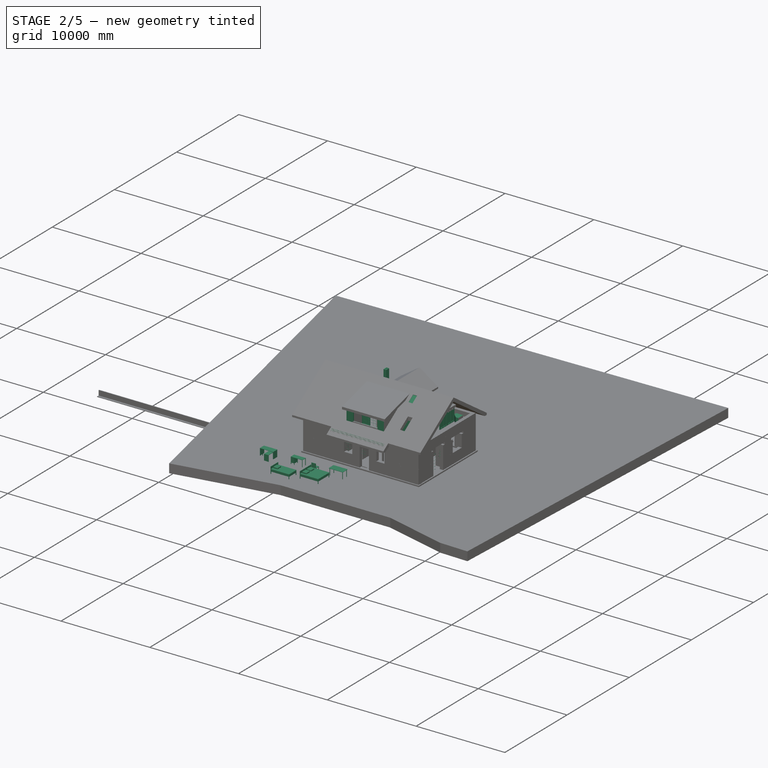
[diagram: stage 2 of 5 — iso view after this stage's code; geometry added in this stage tinted green]
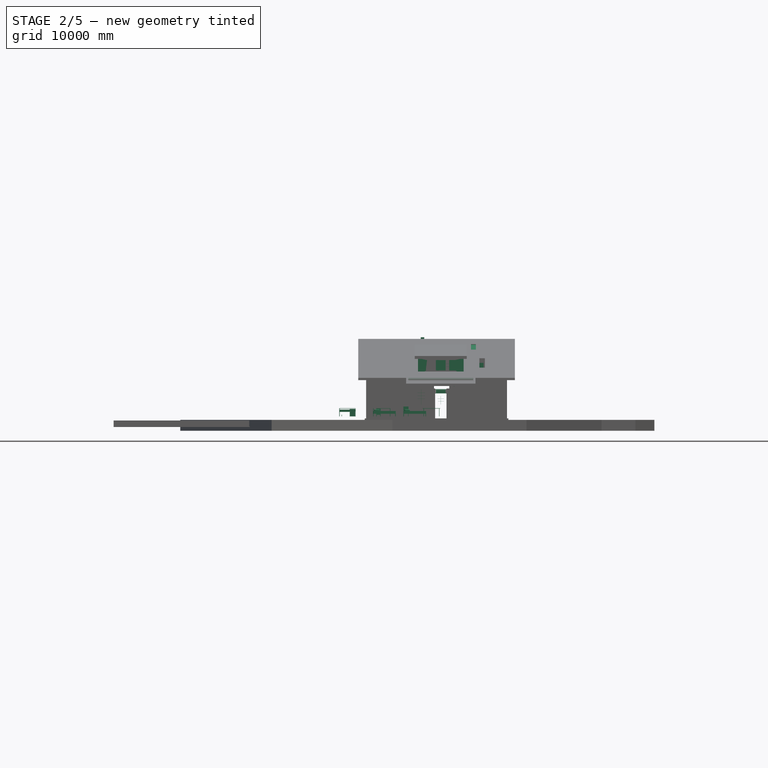
[diagram: stage 2 of 5 — front view after this stage's code; geometry added in this stage tinted green]
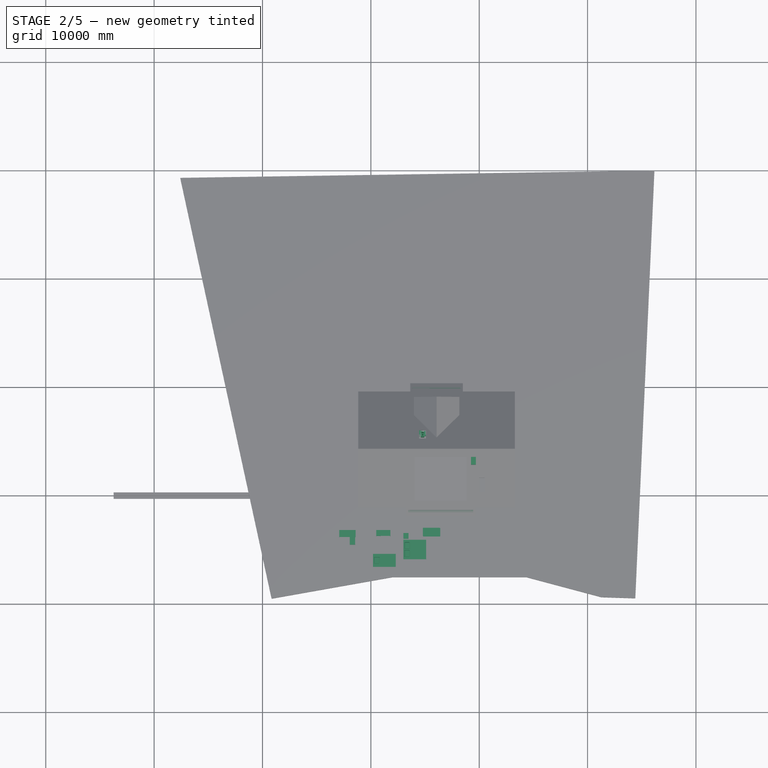
[diagram: stage 2 of 5 — top view after this stage's code; geometry added in this stage tinted green]
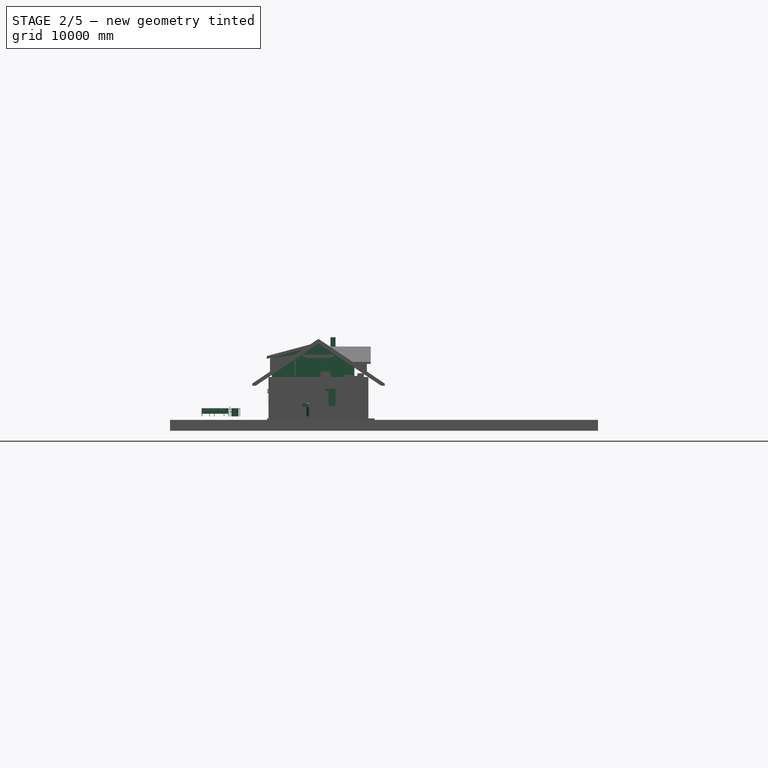
[diagram: stage 2 of 5 — right view after this stage's code; geometry added in this stage tinted green]
FEATURE [Part::Box] Box3211  label="камин топка 700"
  AttacherType = Attacher::AttachEngine3D
  Height = 500
  Length = 800
  Placement = pos=(4600,5195,600) rot=(0,0,-1;1.5708rad)
  Width = 500
FEATURE [Part::Box] Box3228  label="Ниша-дровник"
  AttacherType = Attacher::AttachEngine3D
  Height = 350
  Length = 700
  Placement = pos=(4600,5145,150) rot=(0,0,-1;1.5708rad)
  Width = 500
FEATURE [Part::Part2DObjectPython] Wire825  # Draft 2D object (typed FeaturePython)
  Area = 0
  ChamferSize = 0
  Closed = true
  End = (10525,1532.5,0)
  FilletRadius = 0
  Length = 3600
  MakeFace = false
  Placement = pos=(8665,2177.5,0) rot=(0,0,1;0rad)
  Points = (4) [(1350,-645,0),(1350,-1935,0),(1860,-1935,0),(1860,-645,0)]
  Start = (10015,1532.5,0)
  Subdivisions = 0
FEATURE [Part::Part2DObjectPython] Line1468  label="облицовка ВШ_линия_005"  # Draft 2D object (typed FeaturePython)
  ChamferSize = 0
  Closed = true
  End = (10015,242.5,0)
  FilletRadius = 0
  Length = 380
  MakeFace = false
  Placement = pos=(10225,242.5,0) rot=(0,0,1;0rad)
  Points = (2) [(170,-9.09495e-13,0),(-210,7.95808e-13,0)]
  Start = (10395,242.5,0)
  Subdivisions = 0
FEATURE [Part::Part2DObjectPython] Line1469  label="облицовка ВШ_линия_006"  # Draft 2D object (typed FeaturePython)
  ChamferSize = 0
  Closed = true
  End = (10525,1532.5,0)
  FilletRadius = 0
  Length = 380
  MakeFace = false
  Placement = pos=(10315,1532.5,0) rot=(0,0,1;3.14159rad)
  Points = (2) [(170,-9.09495e-13,0),(-210,1.13687e-12,0)]
  Start = (10145,1532.5,0)
  Subdivisions = 0
FEATURE [Part::Part2DObjectPython] Line1470  label="облицовка ВШ_линия_007"  # Draft 2D object (typed FeaturePython)
  ChamferSize = 0
  Closed = true
  End = (10015,1532.5,0)
  FilletRadius = 0
  Length = 1160
  MakeFace = false
  Placement = pos=(10315,1272.5,0) rot=(0,0,1;3.14159rad)
  Points = (2) [(300,900,0),(300,-260,0)]
  Start = (10015,372.5,0)
  Subdivisions = 0
FEATURE [Part::Part2DObjectPython] Line1471  label="облицовка ВШ_линия_008"  # Draft 2D object (typed FeaturePython)
  ChamferSize = 0
  Closed = true
  End = (10525,242.5,0)
  FilletRadius = 0
  Length = 1160
  MakeFace = false
  Placement = pos=(10225,502.5,0) rot=(0,0,1;0rad)
  Points = (2) [(300,900,0),(300,-260,0)]
  Start = (10525,1402.5,0)
  Subdivisions = 0
FEATURE [Part::Part2DObjectPython] Rectangle3286  # Draft 2D object (typed FeaturePython)
  Area = 0
  ChamferSize = 0
  Columns = 1
  FilletRadius = 0
  Height = 1003.52
  Length = 550
  MakeFace = false
  Placement = pos=(5355,993.568,0) rot=(0,0,1;0rad)
  Rows = 1
FEATURE [Part::Part2DObjectPython] Rectangle3287  # Draft 2D object (typed FeaturePython)
  Area = 0
  ChamferSize = 0
  Columns = 1
  FilletRadius = 0
  Height = 1003.52
  Length = 550
  MakeFace = false
  Placement = pos=(6615,991.948,0) rot=(0,0,1;0rad)
  Rows = 1
FEATURE [Part::Part2DObjectPython] Rectangle3288  # Draft 2D object (typed FeaturePython)
  Area = 0
  ChamferSize = 0
  Columns = 1
  FilletRadius = 0
  Height = 1003.52
  Length = 550
  MakeFace = false
  Placement = pos=(4725,5425.25,0) rot=(0,0,1;0rad)
  Rows = 1
FEATURE [Part::Part2DObjectPython] Circle111  label="Circle112"  # Draft 2D object (typed FeaturePython)
  Area = 0
  FirstAngle = 0
  LastAngle = 0
  MakeFace = false
  Placement = pos=(4770,5455,0) rot=(0,0,1;0rad)
  Radius = 70
FEATURE [Part::Part2DObjectPython] Circle112  label="Circle113"  # Draft 2D object (typed FeaturePython)
  Area = 0
  FirstAngle = 0
  LastAngle = 0
  MakeFace = false
  Placement = pos=(4770,5455,0) rot=(0,0,1;0rad)
  Radius = 110
FEATURE [Part::Part2DObjectPython] Line1478  # Draft 2D object (typed FeaturePython)
  Area = 0
  ChamferSize = 0
  Closed = true
  End = (8915,2029.8,6981)
  FilletRadius = 0
  Length = 0
  MakeFace = false
  Placement = pos=(8915,2029.8,6981) rot=(0,0,1;0rad)
  Points = (2) [(0,0,0),(0,0,0)]
  Start = (8915,2029.8,6981)
  Subdivisions = 0
FEATURE [Part::Part2DObjectPython] Line1479  # Draft 2D object (typed FeaturePython)
  Area = 0
  ChamferSize = 0
  Closed = true
  End = (10270,682.149,6381)
  FilletRadius = 0
  Length = 4400
  MakeFace = false
  Placement = pos=(10270,682.149,6981) rot=(0,0,1;0rad)
  Points = (2) [(0,2.50111e-12,-5000),(0,5.68434e-13,-600)]
  Start = (10270,682.149,1981)
  Subdivisions = 0
FEATURE [Part::Part2DObjectPython] Line1480  # Draft 2D object (typed FeaturePython)
  Area = 0
  ChamferSize = 0
  Closed = false
  End = (10264.8,1279.02,5980)
  FilletRadius = 0
  Length = 3200
  MakeFace = false
  Placement = pos=(10264.8,1279.02,2780) rot=(0,0,1;0rad)
  Points = (2) [(0,0,0),(0,0,3200)]
  Start = (10264.8,1279.02,2780)
  Subdivisions = 0
FEATURE [Part::Part2DObjectPython] Line1481  # Draft 2D object (typed FeaturePython)
  Area = 0
  ChamferSize = 0
  Closed = false
  End = (9448,-1570,3275.2)
  FilletRadius = 0
  Length = 6000
  MakeFace = false
  Placement = pos=(3448,-1570,3275.2) rot=(1,0,0;0.610865rad)
  Points = (2) [(0,0,0),(6000,0,1.36424e-12)]
  Start = (3448,-1570,3275.2)
  Subdivisions = 0
FEATURE [Part::Part2DObjectPython] Line1482  # Draft 2D object (typed FeaturePython)
  Area = 0
  ChamferSize = 0
  Closed = false
  End = (9448,-1447.13,3361.23)
  FilletRadius = 0
  Length = 6000
  MakeFace = false
  Placement = pos=(3448,-1447.13,3361.23) rot=(1,0,0;0.610865rad)
  Points = (2) [(0,0,0),(6000,2.27374e-13,-9.09495e-13)]
  Start = (3448,-1447.13,3361.23)
  Subdivisions = 0
FEATURE [Part::Part2DObjectPython] Line1483  # Draft 2D object (typed FeaturePython)
  Area = 0
  ChamferSize = 0
  Closed = false
  End = (9448,-1447.13,3461.23)
  FilletRadius = 0
  Length = 6000
  MakeFace = false
  Placement = pos=(3448,-1447.13,3461.23) rot=(1,0,0;0.610865rad)
  Points = (2) [(0,0,0),(6000,2.27374e-13,-9.09495e-13)]
  Start = (3448,-1447.13,3461.23)
  Subdivisions = 0
FEATURE [Part::Part2DObjectPython] Line1484  # Draft 2D object (typed FeaturePython)
  Area = 0
  ChamferSize = 0
  Closed = false
  End = (9448,-1570,3375.2)
  FilletRadius = 0
  Length = 6000
  MakeFace = false
  Placement = pos=(3448,-1570,3375.2) rot=(1,0,0;0.610865rad)
  Points = (2) [(0,0,0),(6000,0,0)]
  Start = (3448,-1570,3375.2)
  Subdivisions = 0
FEATURE [Part::FeaturePython] Pipe014  label="Снегозадержатели 010"  # Arch/BIM 98 (typed FeaturePython)
  Base = -> Line1481
  Diameter = 25
  GlobalId = 3FGB4W65b7$RelxxBEC_I3
  HorizontalArea = 0
  IfcData = IfcUID=3FGB4W65b7$RelxxBEC_I3,+2 more (map truncated)
  IfcType = 98
  Length = 6000
  MoveBase = false
  MoveWithHost = false
  OffsetEnd = 0
  OffsetStart = 0
  PerimeterLength = 0
  Placement = pos=(0,0,50) rot=(0,0,1;0rad)
  PredefinedType = 0
  VerticalArea = 0
  WallThickness = 0
FEATURE [Part::FeaturePython] Pipe015  label="Снегозадержатели 011"  # Arch/BIM 98 (typed FeaturePython)
  Base = -> Line1482
  Diameter = 25
  GlobalId = 0m162zSxL9MvR8JxGsHhMh
  HorizontalArea = 0
  IfcData = IfcUID=0m162zSxL9MvR8JxGsHhMh,+2 more (map truncated)
  IfcType = 98
  Length = 6000
  MoveBase = false
  MoveWithHost = false
  OffsetEnd = 0
  OffsetStart = 0
  PerimeterLength = 0
  Placement = pos=(0,0,50) rot=(0,0,1;0rad)
  PredefinedType = 0
  VerticalArea = 0
  WallThickness = 0
FEATURE [Part::FeaturePython] Pipe016  label="Снегозадержатели 012"  # Arch/BIM 98 (typed FeaturePython)
  Base = -> Line1483
  Diameter = 25
  GlobalId = 1BHvc1NuD0qQo1xGtb2qrX
  HorizontalArea = 0
  IfcData = IfcUID=1BHvc1NuD0qQo1xGtb2qrX,+2 more (map truncated)
  IfcType = 98
  Length = 6000
  MoveBase = false
  MoveWithHost = false
  OffsetEnd = 0
  OffsetStart = 0
  PerimeterLength = 0
  Placement = pos=(0,0,50) rot=(0,0,1;0rad)
  PredefinedType = 0
  VerticalArea = 0
  WallThickness = 0
FEATURE [Part::FeaturePython] Pipe017  label="Снегозадержатели 001"  # Arch/BIM 98 (typed FeaturePython)
  Base = -> Line1484
  Diameter = 25
  GlobalId = 3Gvi8SLif8WfTz7jjSrXL2
  HorizontalArea = 0
  IfcData = IfcUID=3Gvi8SLif8WfTz7jjSrXL2,+2 more (map truncated)
  IfcType = 98
  Length = 6000
  MoveBase = false
  MoveWithHost = false
  OffsetEnd = 0
  OffsetStart = 0
  PerimeterLength = 0
  Placement = pos=(0,0,50) rot=(0,0,1;0rad)
  PredefinedType = 0
  VerticalArea = 0
  WallThickness = 0
FEATURE [Part::Part2DObjectPython] Line1486  # Draft 2D object (typed FeaturePython)
  Area = 0
  ChamferSize = 0
  Closed = true
  End = (3835,9940,3275.2)
  FilletRadius = 0
  Length = 4460
  MakeFace = false
  Placement = pos=(8295,9940,3275.2) rot=(0,0.300706,0.953717;3.14159rad)
  Points = (2) [(0,0,0),(4460,-5.92209e-05,-8.45762e-05)]
  Start = (8295,9940,3275.2)
  Subdivisions = 0
FEATURE [Part::Part2DObjectPython] Line1487  # Draft 2D object (typed FeaturePython)
  Area = 0
  ChamferSize = 0
  Closed = false
  End = (3835,9817.13,3361.23)
  FilletRadius = 0
  Length = 4460
  MakeFace = false
  Placement = pos=(8295,9817.13,3361.23) rot=(0,0.300706,0.953717;3.14159rad)
  Points = (2) [(0,0,0),(4460,0,0)]
  Start = (8295,9817.13,3361.23)
  Subdivisions = 0
FEATURE [Part::Part2DObjectPython] Line1488  # Draft 2D object (typed FeaturePython)
  Area = 0
  ChamferSize = 0
  Closed = false
  End = (3835,9817.13,3461.23)
  FilletRadius = 0
  Length = 4460
  MakeFace = false
  Placement = pos=(8295,9817.13,3461.23) rot=(0,0.300706,0.953717;3.14159rad)
  Points = (2) [(0,0,0),(4460,1.81899e-12,-1.81899e-12)]
  Start = (8295,9817.13,3461.23)
  Subdivisions = 0
FEATURE [Part::Part2DObjectPython] Line1489  # Draft 2D object (typed FeaturePython)
  Area = 0
  ChamferSize = 0
  Closed = false
  End = (3835,9940,3375.2)
  FilletRadius = 0
  Length = 4460
  MakeFace = false
  Placement = pos=(8295,9940,3375.2) rot=(0,0.300706,0.953717;3.14159rad)
  Points = (2) [(0,0,0),(4460,0,0)]
  Start = (8295,9940,3375.2)
  Subdivisions = 0
FEATURE [Part::FeaturePython] Pipe018  label="Снегозадержатели 013"  # Arch/BIM 98 (typed FeaturePython)
  Base = -> Line1486
  Diameter = 25
  GlobalId = 0psA13S1r3kfjsLgw5ftBB
  HorizontalArea = 0
  IfcData = IfcUID=0psA13S1r3kfjsLgw5ftBB,+2 more (map truncated)
  IfcType = 98
  Length = 4460
  MoveBase = false
  MoveWithHost = false
  OffsetEnd = 0
  OffsetStart = 0
  PerimeterLength = 0
  Placement = pos=(0,0,50) rot=(0,0,1;0rad)
  PredefinedType = 0
  VerticalArea = 0
  WallThickness = 0
FEATURE [Part::FeaturePython] Pipe019  label="Снегозадержатели 014"  # Arch/BIM 98 (typed FeaturePython)
  Base = -> Line1487
  Diameter = 25
  GlobalId = 1ajV3GjIH90PewpSEaAIL9
  HorizontalArea = 0
  IfcData = IfcUID=1ajV3GjIH90PewpSEaAIL9,+2 more (map truncated)
  IfcType = 98
  Length = 4460
  MoveBase = false
  MoveWithHost = false
  OffsetEnd = 0
  OffsetStart = 0
  PerimeterLength = 0
  Placement = pos=(0,0,50) rot=(0,0,1;0rad)
  PredefinedType = 0
  VerticalArea = 0
  WallThickness = 0
FEATURE [Part::FeaturePython] Pipe020  label="Снегозадержатели 015"  # Arch/BIM 98 (typed FeaturePython)
  Base = -> Line1488
  Diameter = 25
  GlobalId = 3F76V0rxL2cvmgn6TVRcv1
  HorizontalArea = 0
  IfcData = IfcUID=3F76V0rxL2cvmgn6TVRcv1,+2 more (map truncated)
  IfcType = 98
  Length = 4460
  MoveBase = false
  MoveWithHost = false
  OffsetEnd = 0
  OffsetStart = 0
  PerimeterLength = 0
  Placement = pos=(0,0,50) rot=(0,0,1;0rad)
  PredefinedType = 0
  VerticalArea = 0
  WallThickness = 0
FEATURE [Part::FeaturePython] Pipe021  label="Снегозадержатели 016"  # Arch/BIM 98 (typed FeaturePython)
  Base = -> Line1489
  Diameter = 25
  GlobalId = 2T$R0KaZDBcBfa4GgFt7Wm
  HorizontalArea = 0
  IfcData = IfcUID=2T$R0KaZDBcBfa4GgFt7Wm,+2 more (map truncated)
  IfcType = 98
  Length = 4460
  MoveBase = false
  MoveWithHost = false
  OffsetEnd = 0
  OffsetStart = 0
  PerimeterLength = 0
  Placement = pos=(0,0,50) rot=(0,0,1;0rad)
  PredefinedType = 0
  VerticalArea = 0
  WallThickness = 0
FEATURE [Part::Part2DObjectPython] Line1860  # Draft 2D object (typed FeaturePython)
  Area = 0
  ChamferSize = 0
  Closed = false
  End = (11362.7,1898.57,0)
  FilletRadius = 0
  Length = 750
  MakeFace = true
  Placement = pos=(11560,1175,0) rot=(0,0,1;1.5708rad)
  Points = (2) [(0,0,0),(723.573,197.338,0)]
  Start = (11560,1175,0)
  Subdivisions = 0
FEATURE [Part::Part2DObjectPython] Line1862  # Draft 2D object (typed FeaturePython)
  Area = 0
  ChamferSize = 0
  Closed = false
  End = (10399,2484.16,0)
  FilletRadius = 0
  Length = 400
  MakeFace = true
  Placement = pos=(10290,2129.31,0) rot=(0,0,1;1.02849rad)
  Points = (2) [(-25.6956,-15.4833,0),(360.21,89.7636,0)]
  Start = (10290,2099.31,0)
  Subdivisions = 0
FEATURE [Part::Part2DObjectPython] Rectangle3607  # Draft 2D object (typed FeaturePython)
  Area = 405000
  ChamferSize = 0
  Columns = 1
  FilletRadius = 0
  Height = 900
  Length = 450
  MakeFace = true
  Placement = pos=(5390,875,0) rot=(0,0,1;0rad)
  Rows = 1
FEATURE [Part::Part2DObjectPython] Rectangle3610  # Draft 2D object (typed FeaturePython)
  Area = 13000
  ChamferSize = 0
  Columns = 1
  FilletRadius = 0
  Height = 130
  Length = 100
  MakeFace = true
  Placement = pos=(3120,3845,0) rot=(0,0,1;0rad)
  Rows = 1
FEATURE [Part::Part2DObjectPython] Rectangle3611  # Draft 2D object (typed FeaturePython)
  Area = 0
  ChamferSize = 0
  Columns = 1
  FilletRadius = 0
  Height = 900
  Length = 1221
  MakeFace = false
  Placement = pos=(3610,7495,0) rot=(0,0,1;0rad)
  Rows = 1
FEATURE [Part::Part2DObjectPython] Rectangle3612  # Draft 2D object (typed FeaturePython)
  Area = 0
  ChamferSize = 0
  Columns = 1
  FilletRadius = 0
  Height = 900
  Length = 1484.65
  MakeFace = false
  Placement = pos=(3610,4395,0) rot=(0,0,1;0rad)
  Rows = 1
FEATURE [Part::Part2DObjectPython] Rectangle3613  # Draft 2D object (typed FeaturePython)
  Area = 0
  ChamferSize = 0
  Columns = 1
  FilletRadius = 0
  Height = 2200
  Length = 900
  MakeFace = false
  Placement = pos=(3610,5295,0) rot=(0,0,1;0rad)
  Rows = 1
FEATURE [Part::Part2DObjectPython] Rectangle3614  # Draft 2D object (typed FeaturePython)
  Area = 0
  ChamferSize = 0
  Columns = 1
  FilletRadius = 0
  Height = 100
  Length = 100
  MakeFace = false
  Placement = pos=(4510,5295,0) rot=(0,0,1;0rad)
  Rows = 1
FEATURE [Part::Part2DObjectPython] Rectangle3615  # Draft 2D object (typed FeaturePython)
  Area = 0
  ChamferSize = 0
  Columns = 1
  FilletRadius = 0
  Height = 100
  Length = 100
  MakeFace = false
  Placement = pos=(4510,7395,0) rot=(0,0,1;0rad)
  Rows = 1
FEATURE [Part::Part2DObjectPython] Line1865  # Draft 2D object (typed FeaturePython)
  Area = 0
  ChamferSize = 0
  Closed = false
  End = (3021.02,4845,0)
  FilletRadius = 0
  Length = 2164.39
  MakeFace = false
  Placement = pos=(5185.41,4845,0) rot=(0,0,1;0rad)
  Points = (2) [(0,0,0),(-2164.39,0,0)]
  Start = (5185.41,4845,0)
  Subdivisions = 0
FEATURE [Part::Part2DObjectPython] Line1866  # Draft 2D object (typed FeaturePython)
  Area = 0
  ChamferSize = 0
  Closed = true
  End = (3093.04,7945,0)
  FilletRadius = 0
  Length = 2279.62
  MakeFace = false
  Placement = pos=(5000,7945,0) rot=(0,0,1;0rad)
  Points = (2) [(372.665,0,0),(-1906.96,0,0)]
  Start = (5372.66,7945,0)
  Subdivisions = 0
FEATURE [Part::Part2DObjectPython] Line1867  # Draft 2D object (typed FeaturePython)
  Area = 0
  ChamferSize = 0
  Closed = false
  End = (4060,3534.55,0)
  FilletRadius = 0
  Length = 5956.03
  MakeFace = false
  Placement = pos=(4060,9490.59,0) rot=(0,0,1;0rad)
  Points = (2) [(0,0,0),(-1.36424e-12,-5956.03,0)]
  Start = (4060,9490.59,0)
  Subdivisions = 0
FEATURE [Part::Part2DObjectPython] Arc133  label="Arc134"  # Draft 2D object (typed FeaturePython)
  Area = 0
  FirstAngle = 91.5304
  LastAngle = 179.503
  MakeFace = false
  Placement = pos=(4611.42,7393.76,0) rot=(0,0,1;0rad)
  Radius = 551.441
FEATURE [Part::Part2DObjectPython] Arc134  label="Arc135"  # Draft 2D object (typed FeaturePython)
  Area = 0
  FirstAngle = 180
  LastAngle = 270
  MakeFace = false
  Placement = pos=(4610,5395,0) rot=(0,0,1;0rad)
  Radius = 550
FEATURE [Part::Part2DObjectPython] Arc135  label="Arc136"  # Draft 2D object (typed FeaturePython)
  Area = 0
  FirstAngle = -7.74375
  LastAngle = 47.2469
  MakeFace = false
  Placement = pos=(4323.5,7864.07,0) rot=(0,0,1;0rad)
  Radius = 260
FEATURE [Part::Part2DObjectPython] Line1870  # Draft 2D object (typed FeaturePython)
  Area = 0
  ChamferSize = 0
  Closed = false
  End = (4571,7943.71,0)
  FilletRadius = 0
  Length = 260
  MakeFace = false
  Placement = pos=(4323.5,7864.07,0) rot=(0,0,1;0rad)
  Points = (2) [(0,0,0),(247.5,79.6476,0)]
  Start = (4323.5,7864.07,0)
  Subdivisions = 0
FEATURE [Part::Part2DObjectPython] Line1871  # Draft 2D object (typed FeaturePython)
  Area = 0
  ChamferSize = 0
  Closed = false
  End = (4323.5,7864.07,0)
  FilletRadius = 0
  Length = 258.187
  MakeFace = false
  Placement = pos=(4140.98,7681.46,0) rot=(0,0,1;0rad)
  Points = (2) [(0,0,0),(182.525,182.607,0)]
  Start = (4140.98,7681.46,0)
  Subdivisions = 0
FEATURE [Part::Part2DObjectPython] Arc136  label="Arc137"  # Draft 2D object (typed FeaturePython)
  Area = 0
  FirstAngle = -23.1045
  LastAngle = 16.0447
  MakeFace = false
  Placement = pos=(4571,7943.71,0) rot=(0,0,1;0rad)
  Radius = 260
FEATURE [Part::Part2DObjectPython] Arc137  label="Arc138"  # Draft 2D object (typed FeaturePython)
  Area = 0
  FirstAngle = -139.363
  LastAngle = -74.1983
  MakeFace = false
  Placement = pos=(4140.98,7681.46,0) rot=(0,0,1;0rad)
  Radius = 260
FEATURE [Part::Part2DObjectPython] Arc138  label="Arc139"  # Draft 2D object (typed FeaturePython)
  Area = 0
  FirstAngle = -103.031
  LastAngle = -70.7269
  MakeFace = false
  Placement = pos=(4061.44,7433.92,0) rot=(0,0,1;0rad)
  Radius = 260
FEATURE [Part::Part2DObjectPython] Line1872  # Draft 2D object (typed FeaturePython)
  Area = 0
  ChamferSize = 0
  Closed = false
  End = (4061.44,7433.92,0)
  FilletRadius = 0
  Length = 260
  MakeFace = false
  Placement = pos=(4060,7173.93,0) rot=(0,0,1;0rad)
  Points = (2) [(0,0,0),(1.44408,259.996,0)]
  Start = (4060,7173.93,0)
  Subdivisions = 0
FEATURE [Part::Part2DObjectPython] Line1873  # Draft 2D object (typed FeaturePython)
  Area = 0
  ChamferSize = 0
  Closed = false
  End = (4140.98,7681.46,0)
  FilletRadius = 0
  Length = 260
  MakeFace = false
  Placement = pos=(4061.44,7433.92,0) rot=(0,0,1;0rad)
  Points = (2) [(0,0,0),(79.5359,247.536,0)]
  Start = (4061.44,7433.92,0)
  Subdivisions = 0
FEATURE [Part::Part2DObjectPython] Line1874  # Draft 2D object (typed FeaturePython)
  Area = 0
  ChamferSize = 0
  Closed = false
  End = (4831,7945,0)
  FilletRadius = 0
  Length = 260
  MakeFace = false
  Placement = pos=(4571,7943.71,0) rot=(0,0,1;0rad)
  Points = (2) [(0,0,0),(259.997,1.28634,0)]
  Start = (4571,7943.71,0)
  Subdivisions = 0
FEATURE [Part::Part2DObjectPython] Rectangle3617  # Draft 2D object (typed FeaturePython)
  Area = 0
  ChamferSize = 0
  Columns = 1
  FilletRadius = 0
  Height = 260
  Length = 900
  MakeFace = false
  Placement = pos=(3610,6913.93,0) rot=(0,0,1;0rad)
  Rows = 1
FEATURE [Part::FeaturePython] Array078  # Draft array (typed FeaturePython)
  Angle = 360
  ArrayType = 0
  Axis = (0,0,1)
  Base = -> Rectangle3617
  Center = (0,0,0)
  Fuse = false
  IntervalAxis = (0,0,0)
  IntervalX = (1,0,0)
  IntervalY = (0,-260,0)
  IntervalZ = (0,0,50)
  NumberCircles = 3
  NumberPolar = 5
  NumberX = 1
  NumberY = 6
  NumberZ = 1
  RadialDistance = 50
  Symmetry = 1
  TangentialDistance = 25
FEATURE [Part::Part2DObjectPython] Arc139  label="Arc140"  # Draft 2D object (typed FeaturePython)
  Area = 0
  FirstAngle = -88.6741
  LastAngle = -55.4877
  MakeFace = false
  Placement = pos=(4061.54,5353.93,0) rot=(0,0,1;0rad)
  Radius = 260
FEATURE [Part::Part2DObjectPython] Arc140  label="Arc141"  # Draft 2D object (typed FeaturePython)
  Area = 0
  FirstAngle = -65.8681
  LastAngle = -33.1316
  MakeFace = false
  Placement = pos=(4141.68,5106.59,0) rot=(0,0,1;0rad)
  Radius = 260
FEATURE [Part::Part2DObjectPython] Line1875  # Draft 2D object (typed FeaturePython)
  Area = 0
  ChamferSize = 0
  Closed = false
  End = (4061.54,5353.93,0)
  FilletRadius = 0
  Length = 260
  MakeFace = false
  Placement = pos=(4141.68,5106.59,0) rot=(0,0,1;0rad)
  Points = (2) [(0,0,0),(-80.1492,247.338,0)]
  Start = (4141.68,5106.59,0)
  Subdivisions = 0
FEATURE [Part::Part2DObjectPython] Line1876  # Draft 2D object (typed FeaturePython)
  Area = 0
  ChamferSize = 0
  Closed = false
  End = (4060,5613.93,0)
  FilletRadius = 0
  Length = 260.005
  MakeFace = false
  Placement = pos=(4061.54,5353.93,0) rot=(0,0,1;0rad)
  Points = (2) [(0,0,0),(-1.53578,260,0)]
  Start = (4061.54,5353.93,0)
  Subdivisions = 0
FEATURE [Part::Part2DObjectPython] Arc141  label="Arc142"  # Draft 2D object (typed FeaturePython)
  Area = 0
  FirstAngle = -29.2377
  LastAngle = 1.17804
  MakeFace = false
  Placement = pos=(4326.49,4923.7,0) rot=(0,0,1;0rad)
  Radius = 260
FEATURE [Part::Part2DObjectPython] Arc142  label="Arc143"  # Draft 2D object (typed FeaturePython)
  Area = 0
  FirstAngle = -17.3997
  LastAngle = 11.1856
  MakeFace = false
  Placement = pos=(4574.65,4846.14,0) rot=(0,0,1;0rad)
  Radius = 260
FEATURE [Part::Part2DObjectPython] Rectangle3618  # Draft 2D object (typed FeaturePython)
  Area = 0
  ChamferSize = 0
  Columns = 1
  FilletRadius = 0
  Height = 900
  Length = 260
  MakeFace = false
  Placement = pos=(4834.65,4395,0) rot=(0,0,1;0rad)
  Rows = 1
FEATURE [Part::Part2DObjectPython] Line1877  # Draft 2D object (typed FeaturePython)
  Area = 0
  ChamferSize = 0
  Closed = false
  End = (4513.59,3898.1,0)
  FilletRadius = 0
  Length = 1500
  MakeFace = false
  Placement = pos=(4610,5395,0) rot=(0,0,1;0rad)
  Points = (2) [(0,0,0),(-96.4104,-1496.9,0)]
  Start = (4610,5395,0)
  Subdivisions = 0
FEATURE [Part::Part2DObjectPython] Line1878  # Draft 2D object (typed FeaturePython)
  Area = 0
  ChamferSize = 0
  Closed = false
  End = (3836.79,4109.64,0)
  FilletRadius = 0
  Length = 1500
  MakeFace = false
  Placement = pos=(4610,5395,0) rot=(0,0,1;0rad)
  Points = (2) [(0,0,0),(-773.212,-1285.36,0)]
  Start = (4610,5395,0)
  Subdivisions = 0
FEATURE [Part::Part2DObjectPython] Line1879  # Draft 2D object (typed FeaturePython)
  Area = 0
  ChamferSize = 0
  Closed = false
  End = (3332.78,4608.42,0)
  FilletRadius = 0
  Length = 1500
  MakeFace = false
  Placement = pos=(4610,5395,0) rot=(0,0,1;0rad)
  Points = (2) [(0,0,0),(-1277.22,-786.576,0)]
  Start = (4610,5395,0)
  Subdivisions = 0
FEATURE [Part::Part2DObjectPython] Line1880  # Draft 2D object (typed FeaturePython)
  Area = 0
  ChamferSize = 0
  Closed = false
  End = (3114.19,5282.98,0)
  FilletRadius = 0
  Length = 1500
  MakeFace = false
  Placement = pos=(4610,5395,0) rot=(0,0,1;0rad)
  Points = (2) [(0,0,0),(-1495.81,-112.018,0)]
  Start = (4610,5395,0)
  Subdivisions = 0
FEATURE [Part::Part2DObjectPython] Line1881  # Draft 2D object (typed FeaturePython)
  Area = 0
  ChamferSize = 0
  Closed = false
  End = (4503.67,8891.23,0)
  FilletRadius = 0
  Length = 1500
  MakeFace = false
  Placement = pos=(4610,7395,0) rot=(0,0,1;0rad)
  Points = (2) [(0,0,0),(-106.331,1496.23,0)]
  Start = (4610,7395,0)
  Subdivisions = 0
FEATURE [Part::Part2DObjectPython] Line1882  # Draft 2D object (typed FeaturePython)
  Area = 0
  ChamferSize = 0
  Closed = false
  End = (3828.14,8675.11,0)
  FilletRadius = 0
  Length = 1500
  MakeFace = false
  Placement = pos=(4610,7395,0) rot=(0,0,1;0rad)
  Points = (2) [(0,0,0),(-781.864,1280.11,0)]
  Start = (4610,7395,0)
  Subdivisions = 0
FEATURE [Part::Part2DObjectPython] Line1883  # Draft 2D object (typed FeaturePython)
  Area = 0
  ChamferSize = 0
  Closed = false
  End = (3329.88,8176.85,0)
  FilletRadius = 0
  Length = 1500
  MakeFace = false
  Placement = pos=(4610,7395,0) rot=(0,0,1;0rad)
  Points = (2) [(0,0,0),(-1280.12,781.848,0)]
  Start = (4610,7395,0)
  Subdivisions = 0
FEATURE [Part::Part2DObjectPython] Line1884  # Draft 2D object (typed FeaturePython)
  Area = 0
  ChamferSize = 0
  Closed = false
  End = (3113.76,7501.17,0)
  FilletRadius = 0
  Length = 1500
  MakeFace = false
  Placement = pos=(4610,7395,0) rot=(0,0,1;0rad)
  Points = (2) [(0,0,0),(-1496.24,106.166,0)]
  Start = (4610,7395,0)
  Subdivisions = 0
FEATURE [App::DocumentObjectGroup] Group  label="Лестница построение"
  Group = -> [Line1578,Line1577,Line1576,Line1575,Rectangle3339,Rectangle3335,Rectangle3336,Line1566,Line1569,Line1554,Line1568,Line1565,Line1564,Rectangle3333,Rectangle3334,Rectangle3337,Line1553,Line1552,Circle,Arc127,Line1574,Line1573,Line1572,Line1571,Arc,Arc126,Line1557,Line1556,Line1558,Rectangle3332,Line1567,Rectangle3331,Line1570,Wire856,Line1819,Line1805,Line1806,Line1807,Line1808,Line1809,Line1810,+114 more]
FEATURE [Part::Part2DObjectPython] Rectangle3619  # Draft 2D object (typed FeaturePython)
  Area = 220000
  ChamferSize = 0
  Columns = 1
  FilletRadius = 0
  Height = 400
  Length = 550
  MakeFace = true
  Placement = pos=(4730,346.501,0) rot=(0,0,1;0rad)
  Rows = 1
FEATURE [Part::Part2DObjectPython] Rectangle3620  # Draft 2D object (typed FeaturePython)
  Area = 220000
  ChamferSize = 0
  Columns = 1
  FilletRadius = 0
  Height = 400
  Length = 550
  MakeFace = true
  Placement = pos=(9250,2565,0) rot=(0,0,1;3.14159rad)
  Rows = 1
FEATURE [Part::Part2DObjectPython] Rectangle3631  # Draft 2D object (typed FeaturePython)
  Area = 829400
  ChamferSize = 0
  Columns = 1
  FilletRadius = 0
  Height = 290
  Length = 2860
  MakeFace = true
  Placement = pos=(-50,3975,0) rot=(0,0,1;0rad)
  Rows = 1
FEATURE [Part::Part2DObjectPython] Rectangle3632  label="BACKABRO БАККАБРУ 3-местный диван-кровать, Идекулла синий001"  # Draft 2D object (typed FeaturePython)
  ChamferSize = 0
  Columns = 1
  FilletRadius = 25
  Height = 2090
  Length = 910
  MakeFace = true
  Placement = pos=(111.211,920,0) rot=(0,0,-1;1.5708rad)
  Rows = 1
FEATURE [Part::Part2DObjectPython] Rectangle3633  # Draft 2D object (typed FeaturePython)
  ChamferSize = 0
  Columns = 1
  FilletRadius = 0
  Height = 1620
  Length = 2070
  MakeFace = false
  Placement = pos=(346.211,2130,0) rot=(0,0,-1;1.5708rad)
  Rows = 1
FEATURE [Part::Part2DObjectPython] Line1894  # Draft 2D object (typed FeaturePython)
  Area = 0
  ChamferSize = 0
  Closed = false
  End = (3120,2300,0)
  FilletRadius = 0
  Length = 3150
  MakeFace = true
  Placement = pos=(-30,2300,0) rot=(0,0,1;0rad)
  Points = (2) [(0,0,0),(3150,0,0)]
  Start = (-30,2300,0)
  Subdivisions = 0
FEATURE [Part::Part2DObjectPython] Rectangle3634  # Draft 2D object (typed FeaturePython)
  Area = 15000
  ChamferSize = 0
  Columns = 1
  FilletRadius = 0
  Height = 150
  Length = 100
  MakeFace = true
  Placement = pos=(3120,2795,0) rot=(0,0,1;0rad)
  Rows = 1
FEATURE [Part::Part2DObjectPython] Rectangle3639  label="LACK ЛАКК Тумба под ТВ, 160x35x36 см"  # Draft 2D object (typed FeaturePython)
  ChamferSize = 0
  Columns = 1
  FilletRadius = 0
  Height = 1600
  Length = 350
  MakeFace = true
  Placement = pos=(4020,5595,0) rot=(0,0,1;0rad)
  Rows = 1
FEATURE [Part::Part2DObjectPython] Line1895  # Draft 2D object (typed FeaturePython)
  Area = 0
  ChamferSize = 0
  Closed = false
  End = (12180,1100,0)
  FilletRadius = 0
  Length = 2000
  MakeFace = true
  Placement = pos=(10180,1100,0) rot=(0,0,1;0rad)
  Points = (2) [(0,0,0),(2000,0,0)]
  Start = (10180,1100,0)
  Subdivisions = 0
FEATURE [Part::Part2DObjectPython] Rectangle3643  # Draft 2D object (typed FeaturePython)
  Area = 0
  ChamferSize = 0
  Columns = 1
  FilletRadius = 0
  Height = 100
  Length = 100
  MakeFace = false
  Placement = pos=(9270,2975,0) rot=(0,0,1;1.5708rad)
  Rows = 1
FEATURE [Part::Part2DObjectPython] Wire967  # Draft 2D object (typed FeaturePython)
  Area = 350631
  ChamferSize = 0
  Closed = true
  End = (10041.3,2075,0)
  FilletRadius = 0
  Length = 2899.77
  MakeFace = true
  Placement = pos=(9393.32,2075,0) rot=(0,0,1;1.5708rad)
  Points = (4) [(0,0,0),(900,254.497,0),(900,123.321,0),(-1.36424e-12,-648.003,0)]
  Start = (9393.32,2075,0)
  Subdivisions = 0
FEATURE [Part::Part2DObjectPython] Wire968  # Draft 2D object (typed FeaturePython)
  Area = 412923
  ChamferSize = 0
  Closed = true
  End = (10170,2075,0)
  FilletRadius = 0
  Length = 3016.9
  MakeFace = true
  Placement = pos=(10001.8,2075,0) rot=(0,0,1;1.5708rad)
  Points = (5) [(0,0,0),(900,771.323,0),(935,731.813,0),(673.373,-168.187,0),(0,-168.187,0)]
  Start = (10001.8,2075,0)
  Subdivisions = 0
FEATURE [Part::Part2DObjectPython] Wire969  # Draft 2D object (typed FeaturePython)
  Area = 290582
  ChamferSize = 0
  Closed = true
  End = (10170,3301.63,0)
  FilletRadius = 0
  Length = 2520.25
  MakeFace = true
  Placement = pos=(10170,2717.13,0) rot=(0,0,1;1.5708rad)
  Points = (4) [(0,0,0),(261.627,900,0),(322.868,900,0),(584.495,0,0)]
  Start = (10170,2717.13,0)
  Subdivisions = 0
FEATURE [Part::Part2DObjectPython] Wire970  # Draft 2D object (typed FeaturePython)
  Area = 404790
  ChamferSize = 0
  Closed = true
  End = (10170,3975,0)
  FilletRadius = 0
  Length = 3022.09
  MakeFace = true
  Placement = pos=(10170,3270.38,0) rot=(0,0,1;1.5708rad)
  Points = (5) [(0,0,0),(-261.627,900,0),(-195.385,900,0),(704.615,128.677,0),(704.615,1.45519e-11,0)]
  Start = (10170,3270.38,0)
  Subdivisions = 0
FEATURE [Part::Part2DObjectPython] Wire971  # Draft 2D object (typed FeaturePython)
  Area = 361347
  ChamferSize = 0
  Closed = true
  End = (9424.5,3975,0)
  FilletRadius = 0
  Length = 2947.76
  MakeFace = true
  Placement = pos=(10080.8,3975,0) rot=(0,0,1;1.5708rad)
  Points = (4) [(0,0,0),(-946.101,810.834,0),(-900,910.834,0),(0,656.336,0)]
  Start = (10080.8,3975,0)
  Subdivisions = 0
FEATURE [Part::Part2DObjectPython] Wire972  # Draft 2D object (typed FeaturePython)
  Area = 280411
  ChamferSize = 0
  Closed = true
  End = (9424.5,2075,0)
  FilletRadius = 0
  Length = 2458.43
  MakeFace = true
  Placement = pos=(8985.68,2075,0) rot=(0,0,1;1.5708rad)
  Points = (4) [(0,0,0),(900,0,0),(900,-184.319,0),(4.09273e-12,-438.816,0)]
  Start = (8985.68,2075,0)
  Subdivisions = 0
FEATURE [Part::Part2DObjectPython] Wire973  # Draft 2D object (typed FeaturePython)
  Area = 281469
  ChamferSize = 0
  Closed = true
  End = (9455.67,3975,0)
  FilletRadius = 0
  Length = 2460.78
  MakeFace = true
  Placement = pos=(9201.18,3075,0) rot=(0,0,1;1.5708rad)
  Points = (4) [(0,0,0),(0,185.495,0),(900,185.495,0),(900,-254.497,0)]
  Start = (9201.18,3075,0)
  Subdivisions = 0
FEATURE [Part::FeaturePython] Structure510  label="Ступень верх 030"  # Arch/BIM 172 (typed FeaturePython)
  Base = -> Wire973
  FaceMaker = 0
  Height = 40
  HorizontalArea = 281469
  IfcData = attributes={"GlobalId": {"name": "GlobalId", "type": "IfcGloballyUniqueId", "is_enum": false, "enum_values": []}, "Description": {"... (+484 chars omitted),+1 more (map truncated)
  IfcType = 172
  Length = 0
  Material = -> Material018
  MoveBase = false
  MoveWithHost = false
  Nodes = (2) [(7151.03,964.318,0),(7151.03,964.318,-40)]
  NodesOffset = 0
  Normal = (0,0,0)
  PerimeterLength = 2460.78
  Placement = pos=(0,0,1155) rot=(0,0,1;0rad)
  PredefinedType = 0
  VerticalArea = 98431.1
  Width = 100
FEATURE [Part::FeaturePython] Structure511  label="Ступень верх 031"  # Arch/BIM 172 (typed FeaturePython)
  Base = -> Wire972
  FaceMaker = 0
  Height = 40
  HorizontalArea = 280411
  IfcData = attributes={"GlobalId": {"name": "GlobalId", "type": "IfcGloballyUniqueId", "is_enum": false, "enum_values": []}, "Description": {"... (+484 chars omitted),+1 more (map truncated)
  IfcType = 172
  Length = 0
  Material = -> Material018
  MoveBase = false
  MoveWithHost = false
  Nodes = (2) [(6028.74,994.873,0),(6028.74,994.873,-40)]
  NodesOffset = 0
  Normal = (0,0,0)
  PerimeterLength = 2458.43
  Placement = pos=(0,0,2145) rot=(0,0,1;0rad)
  PredefinedType = 0
  VerticalArea = 98337
  Width = 100
FEATURE [Part::FeaturePython] Structure512  label="Ступень верх 032"  # Arch/BIM 172 (typed FeaturePython)
  Base = -> Wire971
  FaceMaker = 0
  Height = 40
  HorizontalArea = 361347
  IfcData = attributes={"GlobalId": {"name": "GlobalId", "type": "IfcGloballyUniqueId", "is_enum": false, "enum_values": []}, "Description": {"... (+484 chars omitted),+1 more (map truncated)
  IfcType = 172
  Length = 0
  Material = -> Material018
  MoveBase = false
  MoveWithHost = false
  Nodes = (2) [(7182.4,595.962,0),(7182.4,595.962,-40)]
  NodesOffset = 0
  Normal = (0,0,0)
  PerimeterLength = 2947.76
  Placement = pos=(0,0,1320) rot=(0,0,1;0rad)
  PredefinedType = 0
  VerticalArea = 117910
  Width = 100
FEATURE [Part::FeaturePython] Structure513  label="Ступень верх 033"  # Arch/BIM 172 (typed FeaturePython)
  Base = -> Wire970
  FaceMaker = 0
  Height = 40
  HorizontalArea = 404790
  IfcData = attributes={"GlobalId": {"name": "GlobalId", "type": "IfcGloballyUniqueId", "is_enum": false, "enum_values": []}, "Description": {"... (+484 chars omitted),+1 more (map truncated)
  IfcType = 172
  Length = 0
  Material = -> Material018
  MoveBase = false
  MoveWithHost = false
  Nodes = (2) [(7015.01,303.228,0),(7015.01,303.228,-40)]
  NodesOffset = 0
  Normal = (0,0,0)
  PerimeterLength = 3022.09
  Placement = pos=(0,0,1485) rot=(0,0,1;0rad)
  PredefinedType = 0
  VerticalArea = 120884
  Width = 100
FEATURE [Part::FeaturePython] Structure514  label="Ступень верх 034"  # Arch/BIM 172 (typed FeaturePython)
  Base = -> Wire969
  FaceMaker = 0
  Height = 40
  HorizontalArea = 290582
  IfcData = attributes={"GlobalId": {"name": "GlobalId", "type": "IfcGloballyUniqueId", "is_enum": false, "enum_values": []}, "Description": {"... (+484 chars omitted),+1 more (map truncated)
  IfcType = 172
  Length = 0
  Material = -> Material018
  MoveBase = false
  MoveWithHost = false
  Nodes = (2) [(6574.38,303.452,0),(6574.38,303.452,-40)]
  NodesOffset = 0
  Normal = (0,0,0)
  PerimeterLength = 2520.25
  Placement = pos=(0,0,1650) rot=(0,0,1;0rad)
  PredefinedType = 0
  VerticalArea = 100810
  Width = 100
FEATURE [Part::FeaturePython] Structure515  label="Ступень верх 035"  # Arch/BIM 172 (typed FeaturePython)
  Base = -> Wire968
  FaceMaker = 0
  Height = 40
  HorizontalArea = 412923
  IfcData = attributes={"GlobalId": {"name": "GlobalId", "type": "IfcGloballyUniqueId", "is_enum": false, "enum_values": []}, "Description": {"... (+484 chars omitted),+1 more (map truncated)
  IfcType = 172
  Length = 0
  Material = -> Material018
  MoveBase = false
  MoveWithHost = false
  Nodes = (2) [(6139.11,313.643,0),(6139.11,313.643,-40)]
  NodesOffset = 0
  Normal = (0,0,0)
  PerimeterLength = 3016.9
  Placement = pos=(0,0,1815) rot=(0,0,1;0rad)
  PredefinedType = 0
  VerticalArea = 120676
  Width = 100
FEATURE [Part::FeaturePython] Structure516  label="Ступень верх 036"  # Arch/BIM 172 (typed FeaturePython)
  Base = -> Wire967
  FaceMaker = 0
  Height = 40
  HorizontalArea = 350631
  IfcData = attributes={"GlobalId": {"name": "GlobalId", "type": "IfcGloballyUniqueId", "is_enum": false, "enum_values": []}, "Description": {"... (+484 chars omitted),+1 more (map truncated)
  IfcType = 172
  Length = 0
  Material = -> Material018
  MoveBase = false
  MoveWithHost = false
  Nodes = (2) [(5990.51,627.431,0),(5990.51,627.431,-40)]
  NodesOffset = 0
  Normal = (0,0,0)
  PerimeterLength = 2899.77
  Placement = pos=(0,0,1980) rot=(0,0,1;0rad)
  PredefinedType = 0
  VerticalArea = 115991
  Width = 100
FEATURE [Part::FeaturePython] Structure517  label="Забежные ступени 002"  # Arch/BIM 172 (typed FeaturePython)
  Base = -> Rectangle3643
  FaceMaker = 0
  Height = 2150
  HorizontalArea = 10000
  IfcData = attributes={"GlobalId": {"name": "GlobalId", "type": "IfcGloballyUniqueId", "is_enum": false, "enum_values": []}, "Description": {"... (+484 chars omitted),+1 more (map truncated)
  IfcType = 172
  Length = 0
  Material = -> Material018
  MoveBase = false
  MoveWithHost = false
  Nodes = (2) [(9220,3025,0),(9220,3025,2150)]
  NodesOffset = 0
  Normal = (0,0,0)
  PerimeterLength = 400
  PredefinedType = 0
  VerticalArea = 860000
  Width = 100
FEATURE [Part::Part2DObjectPython] Wire974  # Draft 2D object (typed FeaturePython)
  Area = 279000
  ChamferSize = 0
  Closed = true
  End = (9045.68,3975,0)
  FilletRadius = 0
  Length = 2420
  MakeFace = true
  Placement = pos=(9045.68,3075,0) rot=(0,0,1;1.5708rad)
  Points = (4) [(0,0,0),(0,310,0),(900,310,0),(900,1.27329e-11,0)]
  Start = (9045.68,3075,0)
  Subdivisions = 0
FEATURE [Part::FeaturePython] Structure518  label="Ступень верх 037"  # Arch/BIM 172 (typed FeaturePython)
  Base = -> Wire974
  FaceMaker = 0
  Height = 40
  HorizontalArea = 279000
  IfcData = attributes={"GlobalId": {"name": "GlobalId", "type": "IfcGloballyUniqueId", "is_enum": false, "enum_values": []}, "Description": {"... (+484 chars omitted),+1 more (map truncated)
  IfcType = 172
  Length = 0
  Material = -> Material018
  MoveBase = false
  MoveWithHost = false
  Nodes = (2) [(7151.03,964.318,0),(7151.03,964.318,-40)]
  NodesOffset = 0
  Normal = (0,0,0)
  PerimeterLength = 2420
  Placement = pos=(0,0,990) rot=(0,0,1;0rad)
  PredefinedType = 0
  VerticalArea = 96800
  Width = 100
FEATURE [Part::FeaturePython] Stairs007  # Arch/BIM 128 (typed FeaturePython)
  AbsTop = (0,0,1155)
  Align = 0
  BlondelRatio = 0
  Flight = 0
  GlobalId = 3uneSe57LCqfWUoFMYeGFv
  Height = 3000
  HorizontalArea = 0
  IfcData = IfcUID=3uneSe57LCqfWUoFMYeGFv,+2 more (map truncated)
  IfcType = 128
  LandingDepth = 0
  Landings = 0
  Length = 4500
  Material = -> Material001
  MoveBase = false
  MoveWithHost = false
  Nosing = 30
  NumberOfSteps = 7
  OutlineLeft = (2) [(0,-60,1025),(1680,-60,2015)]
  OutlineLeftAll = (2) [(0,-60,1025),(1680,-60,2015)]
  OutlineRight = (2) [(1680,-840,2015),(0,-840,1025)]
  OutlineRightAll = (2) [(1680,-840,2015),(0,-840,1025)]
  PerimeterLength = 0
  Placement = pos=(7365.68,3975,0) rot=(0,0,1;0rad)
  PredefinedType = 0
  RailingHeightLeft = 900
  RailingHeightRight = 900
  RailingLeft = Rail
  RailingOffsetLeft = 60
  RailingOffsetRight = 60
  RailingRight = Rail001
  RiserHeight = 165
  RiserHeightEnforce = 165
  RiserThickness = 0
  StringerOverlap = 0
  StringerWidth = 100
  Structure = 1
  StructureOffset = 0
  StructureThickness = 80
  TreadDepth = 280
  TreadDepthEnforce = 280
  TreadThickness = 40
  VerticalArea = 0
  Width = 900
  Winders = 0
FEATURE [Part::FeaturePython] Stairs008  # Arch/BIM 128 (typed FeaturePython)
  AbsTop = (0,0,1155)
  Align = 0
  BlondelRatio = 0
  Flight = 0
  GlobalId = 3uneSe57LCqfWUoFMYeGFv
  Height = 3000
  HorizontalArea = 0
  IfcData = IfcUID=3uneSe57LCqfWUoFMYeGFv,+2 more (map truncated)
  IfcType = 128
  LandingDepth = 0
  Landings = 0
  Length = 4500
  Material = -> Material001
  MoveBase = false
  MoveWithHost = false
  Nosing = 30
  NumberOfSteps = 7
  OutlineLeft = (2) [(0,-60,1025),(1680,-60,2015)]
  OutlineLeftAll = (2) [(0,-60,1025),(1680,-60,2015)]
  OutlineRight = (2) [(1680,-840,2015),(0,-840,1025)]
  OutlineRightAll = (2) [(1680,-840,2015),(0,-840,1025)]
  PerimeterLength = 0
  Placement = pos=(8985.68,2075,2145) rot=(0,0,1;3.14159rad)
  PredefinedType = 0
  RailingHeightLeft = 900
  RailingHeightRight = 900
  RailingLeft = Rail
  RailingOffsetLeft = 60
  RailingOffsetRight = 60
  RailingRight = Rail001
  RiserHeight = 165
  RiserHeightEnforce = 165
  RiserThickness = 0
  StringerOverlap = 0
  StringerWidth = 100
  Structure = 1
  StructureOffset = 0
  StructureThickness = 80
  TreadDepth = 280
  TreadDepthEnforce = 280
  TreadThickness = 40
  VerticalArea = 0
  Width = 900
  Winders = 0
FEATURE [Sketcher::SketchObject] Sketch398
  FullyConstrained = true
  Placement = pos=(12570,3010,4110) rot=(0.57735,0.57735,0.57735;2.0944rad)
  sketch-geometry (24):
    g0: LineSegment StartX=0 StartY=0 StartZ=0 EndX=1175 EndY=0 EndZ=0
    g1: LineSegment StartX=1175 StartY=0 StartZ=0 EndX=1175 EndY=1380 EndZ=0
    g2: LineSegment StartX=1175 StartY=1380 StartZ=0 EndX=0 EndY=1380 EndZ=0
    g3: LineSegment StartX=0 StartY=1380 StartZ=0 EndX=0 EndY=0 EndZ=0
    g4: LineSegment StartX=70 StartY=70 StartZ=0 EndX=1105 EndY=70 EndZ=0
    g5: LineSegment StartX=1105 StartY=70 StartZ=0 EndX=1105 EndY=1310 EndZ=0
    g6: LineSegment StartX=1105 StartY=1310 StartZ=0 EndX=70 EndY=1310 EndZ=0
    g7: LineSegment StartX=70 StartY=1310 StartZ=0 EndX=70 EndY=70 EndZ=0
    g8: LineSegment StartX=77 StartY=77 StartZ=0 EndX=584 EndY=77 EndZ=0
    g9: LineSegment StartX=584 StartY=77 StartZ=0 EndX=584 EndY=1303 EndZ=0
    g10: LineSegment StartX=584 StartY=1303 StartZ=0 EndX=77 EndY=1303 EndZ=0
    g11: LineSegment StartX=77 StartY=1303 StartZ=0 EndX=77 EndY=77 EndZ=0
    g12: LineSegment StartX=117 StartY=117 StartZ=0 EndX=544 EndY=117 EndZ=0
    g13: LineSegment StartX=544 StartY=117 StartZ=0 EndX=544 EndY=1263 EndZ=0
    g14: LineSegment StartX=544 StartY=1263 StartZ=0 EndX=117 EndY=1263 EndZ=0
    g15: LineSegment StartX=117 StartY=1263 StartZ=0 EndX=117 EndY=117 EndZ=0
    g16: LineSegment StartX=591 StartY=77 StartZ=0 EndX=1098 EndY=77 EndZ=0
    g17: LineSegment StartX=1098 StartY=77 StartZ=0 EndX=1098 EndY=1303 EndZ=0
    g18: LineSegment StartX=1098 StartY=1303 StartZ=0 EndX=591 EndY=1303 EndZ=0
    g19: LineSegment StartX=591 StartY=1303 StartZ=0 EndX=591 EndY=77 EndZ=0
    g20: LineSegment StartX=631 StartY=117 StartZ=0 EndX=1058 EndY=117 EndZ=0
    g21: LineSegment StartX=1058 StartY=117 StartZ=0 EndX=1058 EndY=1263 EndZ=0
    g22: LineSegment StartX=1058 StartY=1263 StartZ=0 EndX=631 EndY=1263 EndZ=0
    g23: LineSegment StartX=631 StartY=1263 StartZ=0 EndX=631 EndY=117 EndZ=0
  constraints (71):
    c: Coincident(g0,g1)
    c: Coincident(g1,g2)
    c: Coincident(g2,g3)
    c: Coincident(g3,g0)
    c: Horizontal(g0)
    c: Horizontal(g2)
    c: Vertical(g1)
    c: Vertical(g3)
    c: Coincident(g4,g5)
    c: Coincident(g5,g6)
    c: Coincident(g6,g7)
    c: Coincident(g7,g4)
    c: Horizontal(g4)
    c: Horizontal(g6)
    c: Vertical(g5)
    c: Vertical(g7)
    c: DistanceY(g1) = 1380  'Height'
    c: DistanceX(g0) = 1175  'Width'
    c: DistanceY(g6,g2) = 70  'Frame1'
    c: DistanceX(g2,g6) = 70  'Frame2'
    c: DistanceX(g4,g0) = 70  'Frame3'
    c: DistanceY(g0,g4) = 70  'Frame4'
    c: Coincident(g0,g-1)
    c: Coincident(g8,g9)
    c: Coincident(g9,g10)
    c: Coincident(g10,g11)
    c: Coincident(g11,g8)
    c: Horizontal(g8)
    c: Horizontal(g10)
    c: Vertical(g9)
    c: Vertical(g11)
    c: Coincident(g12,g13)
    c: Coincident(g13,g14)
    c: Coincident(g14,g15)
    c: Coincident(g15,g12)
    c: Horizontal(g12)
    c: Horizontal(g14)
    c: Vertical(g13)
    c: Vertical(g15)
    c: Coincident(g16,g17)
    c: Coincident(g17,g18)
    c: Coincident(g18,g19)
    c: Coincident(g19,g16)
    c: Horizontal(g16)
    c: Horizontal(g18)
    c: Vertical(g17)
    c: Vertical(g19)
    c: Coincident(g20,g21)
    c: Coincident(g21,g22)
    c: Coincident(g22,g23)
    c: Coincident(g23,g20)
    c: Horizontal(g20)
    c: Horizontal(g22)
    c: Vertical(g21)
    c: Vertical(g23)
    c: DistanceY(g8,g12) = 40
    c: DistanceX(g8,g12) = 40
    c: DistanceX(g21,g17) = 40
    c: DistanceY(g21,g17) = 40
    c: DistanceX(g16,g20) = 40
    c: DistanceX(g14,g10) = 40
    c: Equal(g22,g14)
    c: DistanceY(g8,g16) = 0
    c: DistanceY(g10,g18) = 0
    c: DistanceX(g4,g8) = 7
    c: DistanceY(g4,g8) = 7
    c: DistanceX(g6,g18) = -7
    c: DistanceY(g6,g18) = -7
    c: DistanceX(g9,g19) = 7
    c: PointOnObject(g13,g22)
    c: PointOnObject(g20,g12)
FEATURE [Sketcher::SketchObject] Sketch399
  FullyConstrained = true
  Placement = pos=(-440,4185,4110) rot=(0.57735,-0.57735,-0.57735;2.0944rad)
  sketch-geometry (24):
    g0: LineSegment StartX=0 StartY=0 StartZ=0 EndX=1175 EndY=0 EndZ=0
    g1: LineSegment StartX=1175 StartY=0 StartZ=0 EndX=1175 EndY=1380 EndZ=0
    g2: LineSegment StartX=1175 StartY=1380 StartZ=0 EndX=0 EndY=1380 EndZ=0
    g3: LineSegment StartX=0 StartY=1380 StartZ=0 EndX=0 EndY=0 EndZ=0
    g4: LineSegment StartX=70 StartY=70 StartZ=0 EndX=1105 EndY=70 EndZ=0
    g5: LineSegment StartX=1105 StartY=70 StartZ=0 EndX=1105 EndY=1310 EndZ=0
    g6: LineSegment StartX=1105 StartY=1310 StartZ=0 EndX=70 EndY=1310 EndZ=0
    g7: LineSegment StartX=70 StartY=1310 StartZ=0 EndX=70 EndY=70 EndZ=0
    g8: LineSegment StartX=77 StartY=77 StartZ=0 EndX=584 EndY=77 EndZ=0
    g9: LineSegment StartX=584 StartY=77 StartZ=0 EndX=584 EndY=1303 EndZ=0
    g10: LineSegment StartX=584 StartY=1303 StartZ=0 EndX=77 EndY=1303 EndZ=0
    g11: LineSegment StartX=77 StartY=1303 StartZ=0 EndX=77 EndY=77 EndZ=0
    g12: LineSegment StartX=117 StartY=117 StartZ=0 EndX=544 EndY=117 EndZ=0
    g13: LineSegment StartX=544 StartY=117 StartZ=0 EndX=544 EndY=1263 EndZ=0
    g14: LineSegment StartX=544 StartY=1263 StartZ=0 EndX=117 EndY=1263 EndZ=0
    g15: LineSegment StartX=117 StartY=1263 StartZ=0 EndX=117 EndY=117 EndZ=0
    g16: LineSegment StartX=591 StartY=77 StartZ=0 EndX=1098 EndY=77 EndZ=0
    g17: LineSegment StartX=1098 StartY=77 StartZ=0 EndX=1098 EndY=1303 EndZ=0
    g18: LineSegment StartX=1098 StartY=1303 StartZ=0 EndX=591 EndY=1303 EndZ=0
    g19: LineSegment StartX=591 StartY=1303 StartZ=0 EndX=591 EndY=77 EndZ=0
    g20: LineSegment StartX=631 StartY=117 StartZ=0 EndX=1058 EndY=117 EndZ=0
    g21: LineSegment StartX=1058 StartY=117 StartZ=0 EndX=1058 EndY=1263 EndZ=0
    g22: LineSegment StartX=1058 StartY=1263 StartZ=0 EndX=631 EndY=1263 EndZ=0
    g23: LineSegment StartX=631 StartY=1263 StartZ=0 EndX=631 EndY=117 EndZ=0
  constraints (71):
    c: Coincident(g0,g1)
    c: Coincident(g1,g2)
    c: Coincident(g2,g3)
    c: Coincident(g3,g0)
    c: Horizontal(g0)
    c: Horizontal(g2)
    c: Vertical(g1)
    c: Vertical(g3)
    c: Coincident(g4,g5)
    c: Coincident(g5,g6)
    c: Coincident(g6,g7)
    c: Coincident(g7,g4)
    c: Horizontal(g4)
    c: Horizontal(g6)
    c: Vertical(g5)
    c: Vertical(g7)
    c: DistanceY(g1) = 1380  'Height'
    c: DistanceX(g0) = 1175  'Width'
    c: DistanceY(g6,g2) = 70  'Frame1'
    c: DistanceX(g2,g6) = 70  'Frame2'
    c: DistanceX(g4,g0) = 70  'Frame3'
    c: DistanceY(g0,g4) = 70  'Frame4'
    c: Coincident(g0,g-1)
    c: Coincident(g8,g9)
    c: Coincident(g9,g10)
    c: Coincident(g10,g11)
    c: Coincident(g11,g8)
    c: Horizontal(g8)
    c: Horizontal(g10)
    c: Vertical(g9)
    c: Vertical(g11)
    c: Coincident(g12,g13)
    c: Coincident(g13,g14)
    c: Coincident(g14,g15)
    c: Coincident(g15,g12)
    c: Horizontal(g12)
    c: Horizontal(g14)
    c: Vertical(g13)
    c: Vertical(g15)
    c: Coincident(g16,g17)
    c: Coincident(g17,g18)
    c: Coincident(g18,g19)
    c: Coincident(g19,g16)
    c: Horizontal(g16)
    c: Horizontal(g18)
    c: Vertical(g17)
    c: Vertical(g19)
    c: Coincident(g20,g21)
    c: Coincident(g21,g22)
    c: Coincident(g22,g23)
    c: Coincident(g23,g20)
    c: Horizontal(g20)
    c: Horizontal(g22)
    c: Vertical(g21)
    c: Vertical(g23)
    c: DistanceY(g8,g12) = 40
    c: DistanceX(g8,g12) = 40
    c: DistanceX(g21,g17) = 40
    c: DistanceY(g21,g17) = 40
    c: DistanceX(g16,g20) = 40
    c: DistanceX(g14,g10) = 40
    c: Equal(g22,g14)
    c: DistanceY(g8,g16) = 0
    c: DistanceY(g10,g18) = 0
    c: DistanceX(g4,g8) = 7
    c: DistanceY(g4,g8) = 7
    c: DistanceX(g6,g18) = -7
    c: DistanceY(g6,g18) = -7
    c: DistanceX(g9,g19) = 7
    c: PointOnObject(g13,g22)
    c: PointOnObject(g20,g12)
FEATURE [Part::FeaturePython] Window092  label="ОК-7-001"  # Arch/BIM 170 (typed FeaturePython)
  Area = 1621500
  Base = -> Sketch398
  Frame = 70
  Height = 1380
  HoleDepth = 0
  HoleWire = 0
  HorizontalArea = 0
  IfcData = attributes={"GlobalId": {"name": "GlobalId", "type": "IfcGloballyUniqueId", "is_enum": false, "enum_values": []}, "Description": {"... (+1231 chars omitted),+1 more (map truncated)
  IfcType = 170
  LouvreSpacing = 0
  LouvreWidth = 0
  Material = -> Material011
  MoveBase = false
  MoveWithHost = true
  Normal = (-1,0,0)
  Opening = 0
  OverallHeight = 1380
  OverallWidth = 1175
  PartitioningType = 0
  PerimeterLength = 0
  PredefinedType = 0
  Preset = 3
  SymbolElevation = false
  SymbolPlan = false
  VerticalArea = 0
  Width = 1175
  WindowParts = <same value as first occurrence — deduplicated (x8 in doc)>
  expr: OverallHeight = .Height.Value
  expr: OverallWidth = .Width.Value
FEATURE [Part::FeaturePython] Window093  label="ОК-7-002"  # Arch/BIM 170 (typed FeaturePython)
  Area = 1621500
  Base = -> Sketch399
  Frame = 70
  Height = 1380
  HoleDepth = 0
  HoleWire = 0
  HorizontalArea = 0
  IfcData = attributes={"GlobalId": {"name": "GlobalId", "type": "IfcGloballyUniqueId", "is_enum": false, "enum_values": []}, "Description": {"... (+1231 chars omitted),+1 more (map truncated)
  IfcType = 170
  LouvreSpacing = 0
  LouvreWidth = 0
  Material = -> Material011
  MoveBase = false
  MoveWithHost = true
  Normal = (1,0,0)
  Opening = 0
  OverallHeight = 1380
  OverallWidth = 1175
  PartitioningType = 0
  PerimeterLength = 0
  PredefinedType = 0
  Preset = 3
  SymbolElevation = false
  SymbolPlan = false
  VerticalArea = 0
  Width = 1175
  WindowParts = <same value as first occurrence — deduplicated (x8 in doc)>
  expr: OverallHeight = .Height.Value
  expr: OverallWidth = .Width.Value
FEATURE [Sketcher::SketchObject] Sketch400
  FullyConstrained = true
  Placement = pos=(-440,5360,4110) rot=(0.57735,-0.57735,-0.57735;2.0944rad)
  sketch-geometry (24):
    g0: LineSegment StartX=0 StartY=0 StartZ=0 EndX=1175 EndY=0 EndZ=0
    g1: LineSegment StartX=1175 StartY=0 StartZ=0 EndX=1175 EndY=1380 EndZ=0
    g2: LineSegment StartX=1175 StartY=1380 StartZ=0 EndX=0 EndY=1380 EndZ=0
    g3: LineSegment StartX=0 StartY=1380 StartZ=0 EndX=0 EndY=0 EndZ=0
    g4: LineSegment StartX=70 StartY=70 StartZ=0 EndX=1105 EndY=70 EndZ=0
    g5: LineSegment StartX=1105 StartY=70 StartZ=0 EndX=1105 EndY=1310 EndZ=0
    g6: LineSegment StartX=1105 StartY=1310 StartZ=0 EndX=70 EndY=1310 EndZ=0
    g7: LineSegment StartX=70 StartY=1310 StartZ=0 EndX=70 EndY=70 EndZ=0
    g8: LineSegment StartX=77 StartY=77 StartZ=0 EndX=584 EndY=77 EndZ=0
    g9: LineSegment StartX=584 StartY=77 StartZ=0 EndX=584 EndY=1303 EndZ=0
    g10: LineSegment StartX=584 StartY=1303 StartZ=0 EndX=77 EndY=1303 EndZ=0
    g11: LineSegment StartX=77 StartY=1303 StartZ=0 EndX=77 EndY=77 EndZ=0
    g12: LineSegment StartX=117 StartY=117 StartZ=0 EndX=544 EndY=117 EndZ=0
    g13: LineSegment StartX=544 StartY=117 StartZ=0 EndX=544 EndY=1263 EndZ=0
    g14: LineSegment StartX=544 StartY=1263 StartZ=0 EndX=117 EndY=1263 EndZ=0
    g15: LineSegment StartX=117 StartY=1263 StartZ=0 EndX=117 EndY=117 EndZ=0
    g16: LineSegment StartX=591 StartY=77 StartZ=0 EndX=1098 EndY=77 EndZ=0
    g17: LineSegment StartX=1098 StartY=77 StartZ=0 EndX=1098 EndY=1303 EndZ=0
    g18: LineSegment StartX=1098 StartY=1303 StartZ=0 EndX=591 EndY=1303 EndZ=0
    g19: LineSegment StartX=591 StartY=1303 StartZ=0 EndX=591 EndY=77 EndZ=0
    g20: LineSegment StartX=631 StartY=117 StartZ=0 EndX=1058 EndY=117 EndZ=0
    g21: LineSegment StartX=1058 StartY=117 StartZ=0 EndX=1058 EndY=1263 EndZ=0
    g22: LineSegment StartX=1058 StartY=1263 StartZ=0 EndX=631 EndY=1263 EndZ=0
    g23: LineSegment StartX=631 StartY=1263 StartZ=0 EndX=631 EndY=117 EndZ=0
  constraints (71):
    c: Coincident(g0,g1)
    c: Coincident(g1,g2)
    c: Coincident(g2,g3)
    c: Coincident(g3,g0)
    c: Horizontal(g0)
    c: Horizontal(g2)
    c: Vertical(g1)
    c: Vertical(g3)
    c: Coincident(g4,g5)
    c: Coincident(g5,g6)
    c: Coincident(g6,g7)
    c: Coincident(g7,g4)
    c: Horizontal(g4)
    c: Horizontal(g6)
    c: Vertical(g5)
    c: Vertical(g7)
    c: DistanceY(g1) = 1380  'Height'
    c: DistanceX(g0) = 1175  'Width'
    c: DistanceY(g6,g2) = 70  'Frame1'
    c: DistanceX(g2,g6) = 70  'Frame2'
    c: DistanceX(g4,g0) = 70  'Frame3'
    c: DistanceY(g0,g4) = 70  'Frame4'
    c: Coincident(g0,g-1)
    c: Coincident(g8,g9)
    c: Coincident(g9,g10)
    c: Coincident(g10,g11)
    c: Coincident(g11,g8)
    c: Horizontal(g8)
    c: Horizontal(g10)
    c: Vertical(g9)
    c: Vertical(g11)
    c: Coincident(g12,g13)
    c: Coincident(g13,g14)
    c: Coincident(g14,g15)
    c: Coincident(g15,g12)
    c: Horizontal(g12)
    c: Horizontal(g14)
    c: Vertical(g13)
    c: Vertical(g15)
    c: Coincident(g16,g17)
    c: Coincident(g17,g18)
    c: Coincident(g18,g19)
    c: Coincident(g19,g16)
    c: Horizontal(g16)
    c: Horizontal(g18)
    c: Vertical(g17)
    c: Vertical(g19)
    c: Coincident(g20,g21)
    c: Coincident(g21,g22)
    c: Coincident(g22,g23)
    c: Coincident(g23,g20)
    c: Horizontal(g20)
    c: Horizontal(g22)
    c: Vertical(g21)
    c: Vertical(g23)
    c: DistanceY(g8,g12) = 40
    c: DistanceX(g8,g12) = 40
    c: DistanceX(g21,g17) = 40
    c: DistanceY(g21,g17) = 40
    c: DistanceX(g16,g20) = 40
    c: DistanceX(g14,g10) = 40
    c: Equal(g22,g14)
    c: DistanceY(g8,g16) = 0
    c: DistanceY(g10,g18) = 0
    c: DistanceX(g4,g8) = 7
    c: DistanceY(g4,g8) = 7
    c: DistanceX(g6,g18) = -7
    c: DistanceY(g6,g18) = -7
    c: DistanceX(g9,g19) = 7
    c: PointOnObject(g13,g22)
    c: PointOnObject(g20,g12)
FEATURE [Part::FeaturePython] Window094  label="ОК-7-003"  # Arch/BIM 170 (typed FeaturePython)
  Area = 1621500
  Base = -> Sketch400
  Frame = 70
  Height = 1380
  HoleDepth = 0
  HoleWire = 0
  HorizontalArea = 0
  IfcData = attributes={"GlobalId": {"name": "GlobalId", "type": "IfcGloballyUniqueId", "is_enum": false, "enum_values": []}, "Description": {"... (+1231 chars omitted),+1 more (map truncated)
  IfcType = 170
  LouvreSpacing = 0
  LouvreWidth = 0
  Material = -> Material011
  MoveBase = false
  MoveWithHost = true
  Normal = (1,0,0)
  Opening = 0
  OverallHeight = 1380
  OverallWidth = 1175
  PartitioningType = 0
  PerimeterLength = 0
  PredefinedType = 0
  Preset = 3
  SymbolElevation = false
  SymbolPlan = false
  VerticalArea = 0
  Width = 1175
  WindowParts = <same value as first occurrence — deduplicated (x8 in doc)>
  expr: OverallWidth = .Width.Value
  expr: OverallHeight = .Height.Value
FEATURE [Sketcher::SketchObject] Sketch401
  FullyConstrained = true
  Placement = pos=(12570,4185,4110) rot=(0.57735,0.57735,0.57735;2.0944rad)
  sketch-geometry (24):
    g0: LineSegment StartX=0 StartY=0 StartZ=0 EndX=1175 EndY=0 EndZ=0
    g1: LineSegment StartX=1175 StartY=0 StartZ=0 EndX=1175 EndY=1380 EndZ=0
    g2: LineSegment StartX=1175 StartY=1380 StartZ=0 EndX=0 EndY=1380 EndZ=0
    g3: LineSegment StartX=0 StartY=1380 StartZ=0 EndX=0 EndY=0 EndZ=0
    g4: LineSegment StartX=70 StartY=70 StartZ=0 EndX=1105 EndY=70 EndZ=0
    g5: LineSegment StartX=1105 StartY=70 StartZ=0 EndX=1105 EndY=1310 EndZ=0
    g6: LineSegment StartX=1105 StartY=1310 StartZ=0 EndX=70 EndY=1310 EndZ=0
    g7: LineSegment StartX=70 StartY=1310 StartZ=0 EndX=70 EndY=70 EndZ=0
    g8: LineSegment StartX=77 StartY=77 StartZ=0 EndX=584 EndY=77 EndZ=0
    g9: LineSegment StartX=584 StartY=77 StartZ=0 EndX=584 EndY=1303 EndZ=0
    g10: LineSegment StartX=584 StartY=1303 StartZ=0 EndX=77 EndY=1303 EndZ=0
    g11: LineSegment StartX=77 StartY=1303 StartZ=0 EndX=77 EndY=77 EndZ=0
    g12: LineSegment StartX=117 StartY=117 StartZ=0 EndX=544 EndY=117 EndZ=0
    g13: LineSegment StartX=544 StartY=117 StartZ=0 EndX=544 EndY=1263 EndZ=0
    g14: LineSegment StartX=544 StartY=1263 StartZ=0 EndX=117 EndY=1263 EndZ=0
    g15: LineSegment StartX=117 StartY=1263 StartZ=0 EndX=117 EndY=117 EndZ=0
    g16: LineSegment StartX=591 StartY=77 StartZ=0 EndX=1098 EndY=77 EndZ=0
    g17: LineSegment StartX=1098 StartY=77 StartZ=0 EndX=1098 EndY=1303 EndZ=0
    g18: LineSegment StartX=1098 StartY=1303 StartZ=0 EndX=591 EndY=1303 EndZ=0
    g19: LineSegment StartX=591 StartY=1303 StartZ=0 EndX=591 EndY=77 EndZ=0
    g20: LineSegment StartX=631 StartY=117 StartZ=0 EndX=1058 EndY=117 EndZ=0
    g21: LineSegment StartX=1058 StartY=117 StartZ=0 EndX=1058 EndY=1263 EndZ=0
    g22: LineSegment StartX=1058 StartY=1263 StartZ=0 EndX=631 EndY=1263 EndZ=0
    g23: LineSegment StartX=631 StartY=1263 StartZ=0 EndX=631 EndY=117 EndZ=0
  constraints (71):
    c: Coincident(g0,g1)
    c: Coincident(g1,g2)
    c: Coincident(g2,g3)
    c: Coincident(g3,g0)
    c: Horizontal(g0)
    c: Horizontal(g2)
    c: Vertical(g1)
    c: Vertical(g3)
    c: Coincident(g4,g5)
    c: Coincident(g5,g6)
    c: Coincident(g6,g7)
    c: Coincident(g7,g4)
    c: Horizontal(g4)
    c: Horizontal(g6)
    c: Vertical(g5)
    c: Vertical(g7)
    c: DistanceY(g1) = 1380  'Height'
    c: DistanceX(g0) = 1175  'Width'
    c: DistanceY(g6,g2) = 70  'Frame1'
    c: DistanceX(g2,g6) = 70  'Frame2'
    c: DistanceX(g4,g0) = 70  'Frame3'
    c: DistanceY(g0,g4) = 70  'Frame4'
    c: Coincident(g0,g-1)
    c: Coincident(g8,g9)
    c: Coincident(g9,g10)
    c: Coincident(g10,g11)
    c: Coincident(g11,g8)
    c: Horizontal(g8)
    c: Horizontal(g10)
    c: Vertical(g9)
    c: Vertical(g11)
    c: Coincident(g12,g13)
    c: Coincident(g13,g14)
    c: Coincident(g14,g15)
    c: Coincident(g15,g12)
    c: Horizontal(g12)
    c: Horizontal(g14)
    c: Vertical(g13)
    c: Vertical(g15)
    c: Coincident(g16,g17)
    c: Coincident(g17,g18)
    c: Coincident(g18,g19)
    c: Coincident(g19,g16)
    c: Horizontal(g16)
    c: Horizontal(g18)
    c: Vertical(g17)
    c: Vertical(g19)
    c: Coincident(g20,g21)
    c: Coincident(g21,g22)
    c: Coincident(g22,g23)
    c: Coincident(g23,g20)
    c: Horizontal(g20)
    c: Horizontal(g22)
    c: Vertical(g21)
    c: Vertical(g23)
    c: DistanceY(g8,g12) = 40
    c: DistanceX(g8,g12) = 40
    c: DistanceX(g21,g17) = 40
    c: DistanceY(g21,g17) = 40
    c: DistanceX(g16,g20) = 40
    c: DistanceX(g14,g10) = 40
    c: Equal(g22,g14)
    c: DistanceY(g8,g16) = 0
    c: DistanceY(g10,g18) = 0
    c: DistanceX(g4,g8) = 7
    c: DistanceY(g4,g8) = 7
    c: DistanceX(g6,g18) = -7
    c: DistanceY(g6,g18) = -7
    c: DistanceX(g9,g19) = 7
    c: PointOnObject(g13,g22)
    c: PointOnObject(g20,g12)
FEATURE [Part::FeaturePython] Window095  label="ОК-7-004"  # Arch/BIM 170 (typed FeaturePython)
  Area = 1621500
  Base = -> Sketch401
  Frame = 70
  Height = 1380
  HoleDepth = 0
  HoleWire = 0
  HorizontalArea = 0
  IfcData = attributes={"GlobalId": {"name": "GlobalId", "type": "IfcGloballyUniqueId", "is_enum": false, "enum_values": []}, "Description": {"... (+1231 chars omitted),+1 more (map truncated)
  IfcType = 170
  LouvreSpacing = 0
  LouvreWidth = 0
  Material = -> Material011
  MoveBase = false
  MoveWithHost = true
  Normal = (-1,0,0)
  Opening = 0
  OverallHeight = 1380
  OverallWidth = 1175
  PartitioningType = 0
  PerimeterLength = 0
  PredefinedType = 0
  Preset = 3
  SymbolElevation = false
  SymbolPlan = false
  VerticalArea = 0
  Width = 1175
  WindowParts = <same value as first occurrence — deduplicated (x8 in doc)>
  expr: OverallWidth = .Width.Value
  expr: OverallHeight = .Height.Value
FEATURE [Part::Part2DObjectPython] Rectangle3731  # Draft 2D object (typed FeaturePython)
  Area = 233100
  ChamferSize = 0
  Columns = 1
  FilletRadius = 0
  Height = 1110
  Length = 210
  MakeFace = true
  Placement = pos=(7230,3075,0) rot=(0,0,1;0rad)
  Rows = 1
FEATURE [Part::Part2DObjectPython] Rectangle3732  # Draft 2D object (typed FeaturePython)
  Area = 388135
  ChamferSize = 0
  Columns = 1
  FilletRadius = 0
  Height = 3881.35
  Length = 100
  MakeFace = true
  Placement = pos=(4510,2800,0) rot=(0,0,1;0rad)
  Rows = 1
FEATURE [Part::Part2DObjectPython] Rectangle3733  # Draft 2D object (typed FeaturePython)
  Area = 34100
  ChamferSize = 0
  Columns = 1
  FilletRadius = 0
  Height = 110
  Length = 310
  MakeFace = true
  Placement = pos=(4620,5755,0) rot=(0,0,1;0rad)
  Rows = 1
FEATURE [Part::Part2DObjectPython] Rectangle3734  # Draft 2D object (typed FeaturePython)
  Area = 575400
  ChamferSize = 0
  Columns = 1
  FilletRadius = 0
  Height = 210
  Length = 2740
  MakeFace = true
  Placement = pos=(7440,3975,0) rot=(0,0,1;0rad)
  Rows = 1
FEATURE [Part::Part2DObjectPython] Clone2D006  label="осевая (2D)"  # Draft 2D object (typed FeaturePython)
  Fuse = false
  Objects = -> [Line1918]
  Placement = pos=(12160,4185,0) rot=(0,0,1;0rad)
  Scale = (1,1,1)
FEATURE [Part::Part2DObjectPython] Line1934  # Draft 2D object (typed FeaturePython)
  Area = 0
  ChamferSize = 0
  Closed = false
  End = (7335.68,4105,0)
  FilletRadius = 0
  Length = 900
  MakeFace = false
  Placement = pos=(7335.68,3205,0) rot=(0,0,1;0rad)
  Points = (2) [(0,0,0),(0,900,0)]
  Start = (7335.68,3205,0)
  Subdivisions = 0
FEATURE [Part::Part2DObjectPython] Line1935  # Draft 2D object (typed FeaturePython)
  Area = 0
  ChamferSize = 0
  Closed = false
  End = (7305.68,2075,0)
  FilletRadius = 0
  Length = 900
  MakeFace = false
  Placement = pos=(7305.68,2975,0) rot=(0,0,1;0rad)
  Points = (2) [(0,0,0),(0,-900,0)]
  Start = (7305.68,2975,0)
  Subdivisions = 0
FEATURE [Part::Part2DObjectPython] Rectangle3736  # Draft 2D object (typed FeaturePython)
  Area = 663600
  ChamferSize = 0
  Columns = 1
  FilletRadius = 0
  Height = 210
  Length = 3160
  MakeFace = true
  Placement = pos=(7230,1865,0) rot=(0,0,1;0rad)
  Rows = 1
FEATURE [Part::Part2DObjectPython] Rectangle3737  # Draft 2D object (typed FeaturePython)
  Area = 443100
  ChamferSize = 0
  Columns = 1
  FilletRadius = 0
  Height = 2110
  Length = 210
  MakeFace = true
  Placement = pos=(10180,2075,0) rot=(0,0,1;0rad)
  Rows = 1
FEATURE [Part::Part2DObjectPython] Clone2D007  label="Контур_по_блоку_ЛСР_38_шаг255 (2D)"  # Draft 2D object (typed FeaturePython)
  Fuse = false
  Objects = -> [Rectangle016]
  Placement = pos=(-50,-45,0) rot=(0,0,1;0rad)
  Scale = (1,1,1)
FEATURE [Part::Part2DObjectPython] Rectangle3739  label="Д90-026"  # Draft 2D object (typed FeaturePython)
  ChamferSize = 0
  Columns = 1
  FilletRadius = 0
  Height = 210
  Length = 900
  MakeFace = true
  Placement = pos=(7230,5285,0) rot=(0,0,-1;1.5708rad)
  Rows = 1
FEATURE [Part::FeaturePython] Structure557  label="Проём-Д90-023"  # Arch/BIM 52 (typed FeaturePython)
  Base = -> Rectangle3739
  FaceMaker = 0
  Height = 2100
  HorizontalArea = 189000
  IfcData = complex_attributes={"OwnerHistory": {}, "IsNestedBy": {}, "IsDecomposedBy": {}, "IsDefinedBy": {}, "ObjectPlacement": {}, "Representation":... (+4 chars omitted)
  IfcType = 52
  Length = 0
  MoveBase = false
  MoveWithHost = false
  Nodes = (2) [(13000,6050,0),(13000,6050,2180)]
  NodesOffset = 0
  Normal = (0,0,0)
  PerimeterLength = 2220
  Placement = pos=(0,0,3135) rot=(0,0,1;0rad)
  VerticalArea = 4662000
  Width = 100
FEATURE [Part::Part2DObjectPython] Rectangle3740  # Draft 2D object (typed FeaturePython)
  Area = 25200
  ChamferSize = 0
  Columns = 1
  FilletRadius = 0
  Height = 120
  Length = 210
  MakeFace = true
  Placement = pos=(7230,5285,0) rot=(0,0,1;0rad)
  Rows = 1
FEATURE [Part::Part2DObjectPython] Rectangle3741  # Draft 2D object (typed FeaturePython)
  Area = 295900
  ChamferSize = 0
  Columns = 1
  FilletRadius = 0
  Height = 110
  Length = 2690
  MakeFace = true
  Placement = pos=(4930,5405,0) rot=(0,0,1;0rad)
  Rows = 1
FEATURE [Part::Part2DObjectPython] Rectangle3742  # Draft 2D object (typed FeaturePython)
  Area = 128299
  ChamferSize = 0
  Columns = 1
  FilletRadius = 0
  Height = 1166.35
  Length = 110
  MakeFace = true
  Placement = pos=(7510,5515,0) rot=(0,0,1;0rad)
  Rows = 1
FEATURE [Part::Part2DObjectPython] Rectangle3743  # Draft 2D object (typed FeaturePython)
  Area = 55000
  ChamferSize = 0
  Columns = 1
  FilletRadius = 0
  Height = 550
  Length = 100
  MakeFace = true
  Placement = pos=(4510,5205,0) rot=(0,0,1;0rad)
  Rows = 1
FEATURE [Part::Part2DObjectPython] Rectangle3744  # Draft 2D object (typed FeaturePython)
  Area = 38500
  ChamferSize = 0
  Columns = 1
  FilletRadius = 0
  Height = 350
  Length = 110
  MakeFace = true
  Placement = pos=(4930,5515,0) rot=(0,0,1;0rad)
  Rows = 1
FEATURE [Part::Part2DObjectPython] Rectangle3745  label="Д90-027"  # Draft 2D object (typed FeaturePython)
  ChamferSize = 0
  Columns = 1
  FilletRadius = 0
  Height = 100
  Length = 900
  MakeFace = true
  Placement = pos=(4510,5205,0) rot=(0,0,-1;1.5708rad)
  Rows = 1
FEATURE [Part::FeaturePython] Structure558  label="Проём-Д90-024"  # Arch/BIM 52 (typed FeaturePython)
  Base = -> Rectangle3745
  FaceMaker = 0
  Height = 2100
  HorizontalArea = 90000
  IfcData = complex_attributes={"OwnerHistory": {}, "IsNestedBy": {}, "IsDecomposedBy": {}, "IsDefinedBy": {}, "ObjectPlacement": {}, "Representation":... (+4 chars omitted)
  IfcType = 52
  Length = 0
  MoveBase = false
  MoveWithHost = false
  Nodes = (2) [(13000,6050,0),(13000,6050,2180)]
  NodesOffset = 0
  Normal = (0,0,0)
  PerimeterLength = 2000
  Placement = pos=(0,0,3135) rot=(0,0,1;0rad)
  VerticalArea = 4200000
  Width = 100
FEATURE [Part::Part2DObjectPython] Rectangle3748  # Draft 2D object (typed FeaturePython)
  Area = 24000
  ChamferSize = 0
  Columns = 1
  FilletRadius = 0
  Height = 240
  Length = 100
  MakeFace = true
  Placement = pos=(4510,4065,0) rot=(0,0,1;0rad)
  Rows = 1
FEATURE [Part::Part2DObjectPython] Rectangle3749  label="Д90-028"  # Draft 2D object (typed FeaturePython)
  ChamferSize = 0
  Columns = 1
  FilletRadius = 0
  Height = 100
  Length = 900
  MakeFace = true
  Placement = pos=(4510,4065,0) rot=(0,0,-1;1.5708rad)
  Rows = 1
FEATURE [Part::FeaturePython] Structure559  label="Проём-Д90-025"  # Arch/BIM 52 (typed FeaturePython)
  Base = -> Rectangle3749
  FaceMaker = 0
  Height = 2100
  HorizontalArea = 90000
  IfcData = complex_attributes={"OwnerHistory": {}, "IsNestedBy": {}, "IsDecomposedBy": {}, "IsDefinedBy": {}, "ObjectPlacement": {}, "Representation":... (+4 chars omitted)
  IfcType = 52
  Length = 0
  MoveBase = false
  MoveWithHost = false
  Nodes = (2) [(13000,6050,0),(13000,6050,2180)]
  NodesOffset = 0
  Normal = (0,0,0)
  PerimeterLength = 2000
  Placement = pos=(0,0,3135) rot=(0,0,1;0rad)
  VerticalArea = 4200000
  Width = 100
FEATURE [App::GeometryPython] BuildingPart133  label="облицовка дымохода шидель"  # Arch/BIM 172 (typed FeaturePython)
  Area = 4140000
  Group = -> [Wall434,Wall431,Wall432,Wall433,Roof029]
  Height = 0
  HeightPropagate = true
  IfcData = attributes={"GlobalId": {"name": "GlobalId", "type": "IfcGloballyUniqueId", "is_enum": false, "enum_values": []}, "Description": {"... (+484 chars omitted),+1 more (map truncated)
  IfcType = 172
  LevelOffset = 0
  Placement = pos=(0,0,5) rot=(0,0,1;0rad)
  PredefinedType = 0
FEATURE [Part::FeaturePython] Roof030  label="Кровля 2скатн004"  # Arch/BIM 113 (typed FeaturePython)
  Angles = [34,90,34,90]
  Base = -> Rectangle3216
  BorderLength = 29334.6
  Face = 0
  Flip = false
  Heights = [2023.53,0,2023.53,0]
  HorizontalArea = 4.458e+07
  IdRel = [-1,-1,-1,-1]
  IfcData = attributes={"GlobalId": {"name": "GlobalId", "type": "IfcGloballyUniqueId", "is_enum": false, "enum_values": []}, "Description": {"... (+613 chars omitted),+1 more (map truncated)
  IfcType = 113
  Material = -> Material007
  MoveBase = false
  MoveWithHost = false
  Overhang = [0,0,0,0]
  PerimeterLength = 26860
  Placement = pos=(0,4.55e-13,4000) rot=(0,0,1;0rad)
  PredefinedType = 0
  RidgeLength = 7430
  Runs = [4500,4500,4500,4500]
  Thickness = [3500,3500,3500,3500]
  VerticalArea = 1.13397e+08
FEATURE [Part::Part2DObjectPython] Line1940  # Draft 2D object (typed FeaturePython)
  ChamferSize = 0
  Closed = true
  End = (7510,6681.35,0)
  FilletRadius = 0
  Length = 1733.65
  MakeFace = false
  Placement = pos=(6140,6340,0) rot=(0,0,-1;1.5708rad)
  Points = (2) [(-2075,1370,0),(-341.355,1370,0)]
  Start = (7510,8415,0)
  Subdivisions = 0
FEATURE [Part::Part2DObjectPython] Line1941  # Draft 2D object (typed FeaturePython)
  ChamferSize = 0
  Closed = true
  End = (4620,8415,0)
  FilletRadius = 0
  Length = 1733.65
  MakeFace = false
  Placement = pos=(5960,6340,0) rot=(0,0,-1;1.5708rad)
  Points = (2) [(-341.355,-1340,0),(-2075,-1340,0)]
  Start = (4620,6681.35,0)
  Subdivisions = 0
FEATURE [Part::Part2DObjectPython] Line1942  # Draft 2D object (typed FeaturePython)
  ChamferSize = 0
  Closed = true
  End = (7610,8395,0)
  FilletRadius = 0
  Length = 3090
  MakeFace = false
  Placement = pos=(5960,6340,0) rot=(0,0,-1;1.5708rad)
  Points = (2) [(-2055,-1440,0),(-2055,1650,0)]
  Start = (4520,8395,0)
  Subdivisions = 0
FEATURE [Part::FeaturePython] Component219  label="cut_volume_001"  # Arch/BIM 0 (typed FeaturePython)
  Base = -> Roof030
  HorizontalArea = 0
  IfcData = attributes={"GlobalId": {"name": "GlobalId", "type": "IfcGloballyUniqueId", "is_enum": false, "enum_values": []}, "Description": {"... (+538 chars omitted),+1 more (map truncated)
  IfcType = 0
  MoveBase = false
  MoveWithHost = false
  PerimeterLength = 0
  Placement = pos=(0,5900,4000) rot=(0,0,1;0rad)
  PredefinedType = 0
  VerticalArea = 0
FEATURE [Part::Part2DObjectPython] Wire1007  # Draft 2D object (typed FeaturePython)
  Area = 0
  ChamferSize = 0
  Closed = true
  End = (7510,6681.35,0)
  FilletRadius = 0
  Length = 9207.29
  MakeFace = false
  Placement = pos=(4620,6681.35,0) rot=(0,0,1;0rad)
  Points = (4) [(0,0,0),(1.81899e-12,1713.65,0),(2890,1713.65,0),(2890,1.37682e-05,0)]
  Start = (4620,6681.35,0)
  Subdivisions = 0
FEATURE [App::MaterialObjectPython] Material021  label="Material"  # material (typed FeaturePython)
  Material = Name=Material; SectionColor=(0.0, 0.0, 0.0); Transparency=0
  Transparency = 0
FEATURE [App::DocumentObjectGroupPython] MaterialContainer  label="Materials"  # scripted group (container) (typed FeaturePython)
  Group = -> [Material004,Material001,Material006,Material011,Material003,Material009,Material010,Material007,Material008,Material005,Material,Material002,Material012,Material013,Material014,Material015,Material016,Material017,Material018,Material019,Material020,Material021]
FEATURE [Part::Part2DObjectPython] Rectangle3751  label="четверть_790-004"  # Draft 2D object (typed FeaturePython)
  ChamferSize = 0
  Columns = 1
  FilletRadius = 0
  Height = 120
  Length = 1830
  MakeFace = true
  Placement = pos=(5150,8535,0) rot=(0,0,1;0rad)
  Rows = 1
FEATURE [Part::FeaturePython] Structure562  label="Проём_четв._058"  # Arch/BIM 52 (typed FeaturePython)
  Base = -> Rectangle3751
  FaceMaker = 0
  Height = 975
  HorizontalArea = 219600
  IfcData = complex_attributes={"OwnerHistory": {}, "IsNestedBy": {}, "IsDecomposedBy": {}, "IsDefinedBy": {}, "ObjectPlacement": {}, "Representation":... (+4 chars omitted)
  IfcType = 52
  Length = 0
  MoveBase = false
  MoveWithHost = false
  Nodes = (2) [(1035,460,0),(1035,460,535)]
  NodesOffset = 0
  Normal = (0,0,0)
  PerimeterLength = 3900
  Placement = pos=(0,0,4235) rot=(0,0,1;0rad)
  VerticalArea = 3.8025e+06
  Width = 100
FEATURE [Part::FeaturePython] Wall439  label="отделка кукушки 001"  # Arch/BIM 166 (typed FeaturePython)
  Align = 1
  Area = 2.76219e+07
  Base = -> Wire1007
  BlockHeight = 0
  BlockLength = 0
  CountBroken = 0
  CountEntire = 0
  Face = 0
  Height = 3000
  HorizontalArea = 130773
  IfcData = attributes={"GlobalId": {"name": "GlobalId", "type": "IfcGloballyUniqueId", "is_enum": false, "enum_values": []}, "Description": {"... (+533 chars omitted),+1 more (map truncated)
  IfcType = 166
  Joint = 0
  Length = 9207.29
  MakeBlocks = false
  MoveBase = false
  MoveWithHost = false
  Normal = (0,0,0)
  Offset = 250
  OffsetFirst = 0
  OffsetSecond = 0
  PerimeterLength = 13494.6
  Placement = pos=(0,0,3150) rot=(0,0,1;0rad)
  PredefinedType = 0
  Subtractions = -> [Component219,Structure562]
  VerticalArea = 4.30931e+07
  Width = 10
FEATURE [Part::MultiCommon] Common088
  Shapes = -> [Wall439,Component214]
FEATURE [Part::Part2DObjectPython] Rectangle3752  label="ОК-92-004"  # Draft 2D object (typed FeaturePython)
  ChamferSize = 0
  Columns = 1
  FilletRadius = 0
  Height = 140
  Length = 1960
  MakeFace = true
  Placement = pos=(5085,8395,0) rot=(0,0,1;0rad)
  Rows = 1
FEATURE [Part::FeaturePython] Structure563  label="Проём-ОК-92-004"  # Arch/BIM 52 (typed FeaturePython)
  Base = -> Rectangle3752
  FaceMaker = 0
  Height = 1105
  HorizontalArea = 274400
  IfcData = complex_attributes={"OwnerHistory": {}, "IsNestedBy": {}, "IsDecomposedBy": {}, "IsDefinedBy": {}, "ObjectPlacement": {}, "Representation":... (+4 chars omitted)
  IfcType = 52
  Length = 0
  MoveBase = false
  MoveWithHost = false
  Nodes = (2) [(1035,250,0),(1035,250,600)]
  NodesOffset = 0
  Normal = (0,0,0)
  PerimeterLength = 4200
  Placement = pos=(0,0,4170) rot=(0,0,1;0rad)
  VerticalArea = 4641000
  Width = 100
FEATURE [Part::FeaturePython] Wall438  label="Утепление кукушки001"  # Arch/BIM 166 (typed FeaturePython)
  Align = 1
  Area = 2.76219e+07
  Base = -> Wire1007
  BlockHeight = 0
  BlockLength = 0
  CountBroken = 0
  CountEntire = 0
  Face = 0
  Height = 3000
  HorizontalArea = 1.87079e+06
  IfcData = attributes={"GlobalId": {"name": "GlobalId", "type": "IfcGloballyUniqueId", "is_enum": false, "enum_values": []}, "Description": {"... (+533 chars omitted),+1 more (map truncated)
  IfcType = 166
  Joint = 0
  Length = 9207.29
  MakeBlocks = false
  MoveBase = false
  MoveWithHost = false
  Normal = (0,0,0)
  Offset = 100
  OffsetFirst = 0
  OffsetSecond = 0
  PerimeterLength = 0
  Placement = pos=(0,0,3150) rot=(0,0,1;0rad)
  PredefinedType = 0
  Subtractions = -> [Component219,Structure563,Structure562]
  VerticalArea = 4.1549e+07
  Width = 150
FEATURE [Part::MultiCommon] Common087
  Shapes = -> [Wall438,Component214]
FEATURE [Part::Part2DObjectPython] Rectangle3753  label="Д90-029"  # Draft 2D object (typed FeaturePython)
  ChamferSize = 0
  Columns = 1
  FilletRadius = 0
  Height = 110
  Length = 900
  MakeFace = true
  Placement = pos=(5190,5405,0) rot=(0,0,-1;0rad)
  Rows = 1
FEATURE [Part::FeaturePython] Structure564  label="Проём-Д90-026"  # Arch/BIM 52 (typed FeaturePython)
  Base = -> Rectangle3753
  FaceMaker = 0
  Height = 2100
  HorizontalArea = 99000
  IfcData = complex_attributes={"OwnerHistory": {}, "IsNestedBy": {}, "IsDecomposedBy": {}, "IsDefinedBy": {}, "ObjectPlacement": {}, "Representation":... (+4 chars omitted)
  IfcType = 52
  Length = 0
  MoveBase = false
  MoveWithHost = false
  Nodes = (2) [(13000,6050,0),(13000,6050,2180)]
  NodesOffset = 0
  Normal = (0,0,0)
  PerimeterLength = 2020
  Placement = pos=(0,0,3135) rot=(0,0,1;0rad)
  VerticalArea = 4.242e+06
  Width = 100
FEATURE [Part::FeaturePython] Wall467  label="раскладка вычет 008"  # Arch/BIM 166 (typed FeaturePython)
  Align = 2
  Area = 753246
  Base = -> Line1952
  BlockHeight = 300
  BlockLength = 0
  CountBroken = 0
  CountEntire = 0
  Face = 0
  Height = 2146
  HorizontalArea = 0
  IfcData = attributes={"GlobalId": {"name": "GlobalId", "type": "IfcGloballyUniqueId", "is_enum": false, "enum_values": []}, "Description": {"... (+533 chars omitted),+1 more (map truncated)
  IfcType = 166
  Joint = 10
  Length = 351
  MakeBlocks = true
  MoveBase = false
  MoveWithHost = false
  Normal = (0,0,0)
  OffsetFirst = 0
  OffsetSecond = 0
  PerimeterLength = 0
  Placement = pos=(-35,0,77) rot=(0,0,1;0rad)
  PredefinedType = 0
  VerticalArea = 0
  Width = 10
FEATURE [Part::FeaturePython] Wall468  label="раскладка окна 021"  # Arch/BIM 166 (typed FeaturePython)
  Align = 2
  Area = 753246
  Base = -> Line1952
  BlockHeight = 0
  BlockLength = 0
  CountBroken = 0
  CountEntire = 0
  Face = 0
  Height = 2146
  HorizontalArea = 0
  IfcData = attributes={"GlobalId": {"name": "GlobalId", "type": "IfcGloballyUniqueId", "is_enum": false, "enum_values": []}, "Description": {"... (+533 chars omitted),+1 more (map truncated)
  IfcType = 166
  Joint = 0
  Length = 351
  MakeBlocks = false
  Material = -> Material011
  MoveBase = false
  MoveWithHost = false
  Normal = (0,0,0)
  OffsetFirst = 0
  OffsetSecond = 0
  PerimeterLength = 0
  Placement = pos=(-35,0,77) rot=(0,0,1;0rad)
  PredefinedType = 0
  Subtractions = -> [Wall467]
  VerticalArea = 0
  Width = 10
FEATURE [Part::FeaturePython] Wall469  label="раскладка вычет 009"  # Arch/BIM 166 (typed FeaturePython)
  Align = 2
  Area = 943936
  Base = -> Line1954
  BlockHeight = 270
  BlockLength = 335
  CountBroken = 10
  CountEntire = 0
  Face = 0
  Height = 1376
  HorizontalArea = 0
  IfcData = attributes={"GlobalId": {"name": "GlobalId", "type": "IfcGloballyUniqueId", "is_enum": false, "enum_values": []}, "Description": {"... (+533 chars omitted),+1 more (map truncated)
  IfcType = 166
  Joint = 10
  Length = 686
  MakeBlocks = true
  MoveBase = false
  MoveWithHost = false
  Normal = (0,0,0)
  OffsetFirst = 0
  OffsetSecond = 0
  PerimeterLength = 0
  Placement = pos=(0,35,1077) rot=(0,0,1;0rad)
  PredefinedType = 0
  VerticalArea = 0
  Width = 10
FEATURE [Part::FeaturePython] Wall470  label="раскладка окна 022"  # Arch/BIM 166 (typed FeaturePython)
  Align = 2
  Area = 943936
  Base = -> Line1954
  BlockHeight = 0
  BlockLength = 0
  CountBroken = 0
  CountEntire = 0
  Face = 0
  Height = 1376
  HorizontalArea = 0
  IfcData = attributes={"GlobalId": {"name": "GlobalId", "type": "IfcGloballyUniqueId", "is_enum": false, "enum_values": []}, "Description": {"... (+533 chars omitted),+1 more (map truncated)
  IfcType = 166
  Joint = 0
  Length = 686
  MakeBlocks = false
  Material = -> Material011
  MoveBase = false
  MoveWithHost = false
  Normal = (0,0,0)
  OffsetFirst = 0
  OffsetSecond = 0
  PerimeterLength = 0
  Placement = pos=(0,35,1077) rot=(0,0,1;0rad)
  PredefinedType = 0
  Subtractions = -> [Wall469]
  VerticalArea = 0
  Width = 10
FEATURE [Part::FeaturePython] Wall471  label="раскладка окна 023"  # Arch/BIM 166 (typed FeaturePython)
  Align = 2
  Area = 943936
  BlockHeight = 0
  BlockLength = 0
  CloneOf = -> Wall470
  CountBroken = 0
  CountEntire = 0
  Face = 0
  Height = 1376
  HorizontalArea = 0
  IfcData = attributes={"GlobalId": {"name": "GlobalId", "type": "IfcGloballyUniqueId", "is_enum": false, "enum_values": []}, "Description": {"... (+533 chars omitted),+1 more (map truncated)
  IfcType = 166
  Joint = 0
  Length = 686
  MakeBlocks = false
  Material = -> Material011
  MoveBase = false
  MoveWithHost = false
  Normal = (0,0,0)
  OffsetFirst = 0
  OffsetSecond = 0
  PerimeterLength = 0
  Placement = pos=(-3640,35,1077) rot=(0,0,1;0rad)
  PredefinedType = 0
  VerticalArea = 0
  Width = 10
FEATURE [Part::Part2DObjectPython] Line1966  # Draft 2D object (typed FeaturePython)
  Area = 0
  ChamferSize = 0
  Closed = false
  End = (6736,-535,0)
  FilletRadius = 0
  Length = 562
  MakeFace = true
  Placement = pos=(6174,-535,0) rot=(0,0,1;0rad)
  Points = (2) [(0,0,0),(562,1.13687e-13,0)]
  Start = (6174,-535,0)
  Subdivisions = 0
FEATURE [Part::FeaturePython] Wall472  label="раскладка вычет 010"  # Arch/BIM 166 (typed FeaturePython)
  Align = 2
  Area = 450724
  Base = -> Line1966
  BlockHeight = 260
  BlockLength = 270
  CountBroken = 6
  CountEntire = 0
  Face = 0
  Height = 802
  HorizontalArea = 0
  IfcData = attributes={"GlobalId": {"name": "GlobalId", "type": "IfcGloballyUniqueId", "is_enum": false, "enum_values": []}, "Description": {"... (+533 chars omitted),+1 more (map truncated)
  IfcType = 166
  Joint = 10
  Length = 562
  MakeBlocks = true
  MoveBase = false
  MoveWithHost = false
  Normal = (0,0,0)
  OffsetFirst = 0
  OffsetSecond = 0
  PerimeterLength = 0
  Placement = pos=(0,27,1114) rot=(0,0,1;0rad)
  PredefinedType = 0
  VerticalArea = 0
  Width = 10
FEATURE [Part::FeaturePython] Wall473  label="раскладка окна 024"  # Arch/BIM 166 (typed FeaturePython)
  Align = 2
  Area = 450724
  Base = -> Line1966
  BlockHeight = 0
  BlockLength = 0
  CountBroken = 0
  CountEntire = 0
  Face = 0
  Height = 802
  HorizontalArea = 0
  IfcData = attributes={"GlobalId": {"name": "GlobalId", "type": "IfcGloballyUniqueId", "is_enum": false, "enum_values": []}, "Description": {"... (+533 chars omitted),+1 more (map truncated)
  IfcType = 166
  Joint = 0
  Length = 562
  MakeBlocks = false
  Material = -> Material011
  MoveBase = false
  MoveWithHost = false
  Normal = (0,0,0)
  OffsetFirst = 0
  OffsetSecond = 0
  PerimeterLength = 0
  Placement = pos=(0,27,1114) rot=(0,0,1;0rad)
  PredefinedType = 0
  Subtractions = -> [Wall472]
  VerticalArea = 0
  Width = 10
FEATURE [Part::Part2DObjectPython] Line1967  # Draft 2D object (typed FeaturePython)
  Area = 0
  ChamferSize = 0
  Closed = false
  End = (12570,3213,0)
  FilletRadius = 0
  Length = 431
  MakeFace = true
  Placement = pos=(12570,2782,0) rot=(0,0,1;0rad)
  Points = (2) [(0,0,0),(0,431,0)]
  Start = (12570,2782,0)
  Subdivisions = 0
FEATURE [Part::FeaturePython] Wall475  label="раскладка вычет 011"  # Arch/BIM 166 (typed FeaturePython)
  Align = 2
  Area = 399106
  Base = -> Line1967
  BlockHeight = 300
  BlockLength = 210
  CountBroken = 6
  CountEntire = 0
  Face = 0
  Height = 926
  HorizontalArea = 0
  IfcData = attributes={"GlobalId": {"name": "GlobalId", "type": "IfcGloballyUniqueId", "is_enum": false, "enum_values": []}, "Description": {"... (+533 chars omitted),+1 more (map truncated)
  IfcType = 166
  Joint = 10
  Length = 431
  MakeBlocks = true
  MoveBase = false
  MoveWithHost = false
  Normal = (0,0,0)
  OffsetFirst = 0
  OffsetSecond = 0
  PerimeterLength = 0
  Placement = pos=(-35,0,1187) rot=(0,0,1;0rad)
  PredefinedType = 0
  VerticalArea = 0
  Width = 10
FEATURE [Part::FeaturePython] Wall474  label="раскладка окна 025"  # Arch/BIM 166 (typed FeaturePython)
  Align = 2
  Area = 399106
  Base = -> Line1967
  BlockHeight = 0
  BlockLength = 0
  CountBroken = 0
  CountEntire = 0
  Face = 0
  Height = 926
  HorizontalArea = 0
  IfcData = attributes={"GlobalId": {"name": "GlobalId", "type": "IfcGloballyUniqueId", "is_enum": false, "enum_values": []}, "Description": {"... (+533 chars omitted),+1 more (map truncated)
  IfcType = 166
  Joint = 0
  Length = 431
  MakeBlocks = false
  Material = -> Material011
  MoveBase = false
  MoveWithHost = false
  Normal = (0,0,0)
  OffsetFirst = 0
  OffsetSecond = 0
  PerimeterLength = 0
  Placement = pos=(-35,0,1187) rot=(0,0,1;0rad)
  PredefinedType = 0
  Subtractions = -> [Wall475]
  VerticalArea = 0
  Width = 10
FEATURE [Part::Part2DObjectPython] Rectangle3779  # Draft 2D object (typed FeaturePython)
  Area = 0
  ChamferSize = 0
  Columns = 1
  FilletRadius = 20
  Height = 100
  Length = 220
  MakeFace = false
  Placement = pos=(4660,5610,0) rot=(0,0,1;0rad)
  Rows = 1
FEATURE [Sketcher::SketchObject] Sketch
  ExternalGeometry = -> [Rectangle3316,Circle111,Circle112,Rectangle3779]
  FullyConstrained = true
  sketch-geometry (13):
    g0: LineSegment StartX=4610 StartY=5295 StartZ=0 EndX=4930 EndY=5295 EndZ=0
    g1: LineSegment StartX=4930 StartY=5295 StartZ=0 EndX=4930 EndY=5755 EndZ=0
    g2: LineSegment StartX=4930 StartY=5755 StartZ=0 EndX=4610 EndY=5755 EndZ=0
    g3: LineSegment StartX=4610 StartY=5755 StartZ=0 EndX=4610 EndY=5295 EndZ=0
    g4: Circle CenterX=4770 CenterY=5455 CenterZ=0 NormalX=0 NormalY=0 NormalZ=1 AngleXU=0 Radius=70
    g5: LineSegment StartX=4680 StartY=5610 StartZ=0 EndX=4860 EndY=5610 EndZ=0
    g6: LineSegment StartX=4880 StartY=5630 StartZ=0 EndX=4880 EndY=5690 EndZ=0
    g7: LineSegment StartX=4860 StartY=5710 StartZ=0 EndX=4680 EndY=5710 EndZ=0
    g8: LineSegment StartX=4660 StartY=5690 StartZ=0 EndX=4660 EndY=5630 EndZ=0
    g9: ArcOfCircle CenterX=4680 CenterY=5690 CenterZ=0 NormalX=0 NormalY=0 NormalZ=1 AngleXU=0 Radius=20 StartAngle=1.5708 EndAngle=3.14159
    g10: ArcOfCircle CenterX=4680 CenterY=5630 CenterZ=0 NormalX=0 NormalY=0 NormalZ=1 AngleXU=0 Radius=20 StartAngle=3.14159 EndAngle=4.71239
    g11: ArcOfCircle CenterX=4860 CenterY=5690 CenterZ=0 NormalX=0 NormalY=0 NormalZ=1 AngleXU=0 Radius=20 StartAngle=1.9e-14 EndAngle=1.5708
    g12: ArcOfCircle CenterX=4860 CenterY=5630 CenterZ=0 NormalX=0 NormalY=0 NormalZ=1 AngleXU=0 Radius=20 StartAngle=4.71239 EndAngle=6.28319
  constraints (32):
    c: Coincident(g0,g1)
    c: Coincident(g1,g2)
    c: Coincident(g2,g3)
    c: Coincident(g3,g0)
    c: Horizontal(g0)
    c: Horizontal(g2)
    c: Vertical(g1)
    c: Vertical(g3)
    c: Coincident(g0,g-3)
    c: Coincident(g1,g-5)
    c: Coincident(g4,g-6)
    c: Radius(g4) = 70
    c: Horizontal(g5)
    c: Horizontal(g7)
    c: Vertical(g6)
    c: Vertical(g8)
    c: Tangent(g8,g9) = -1.5708
    c: Tangent(g7,g9) = -1.5708
    c: Tangent(g8,g10) = -1.5708
    c: Tangent(g5,g10) = -1.5708
    c: Tangent(g7,g11) = -1.5708
    c: Tangent(g6,g11) = -1.5708
    c: Tangent(g5,g12) = -1.5708
    c: Tangent(g6,g12) = -1.5708
    c: PointOnObject(g-8,g8)
    c: PointOnObject(g-10,g6)
    c: PointOnObject(g-7,g7)
    c: Equal(g9,g11)
    c: Equal(g10,g12)
    c: Equal(g10,g9)
    c: Equal(g5,g-9)
    c: Equal(g8,g-8)
FEATURE [Part::Extrusion] Extrude099005004  label="дымоход с вентканалом Schiedel UNI d140 7m"
  Base = -> Sketch
  Dir = (0,0,1)
  DirMode = 2
  FaceMakerClass = Part::FaceMakerBullseye
  LengthFwd = 7000
  LengthRev = 0
  Placement = pos=(0,0,300) rot=(0,0,1;0rad)
  Solid = true
  Symmetric = false
FEATURE [Part::FeaturePython] Component222  label="дымоход с вентканалом Schiedel UNI d140 7m 001"  # Arch/BIM 0 (typed FeaturePython)
  Base = -> Extrude099005004
  HorizontalArea = 0
  IfcData = attributes={"GlobalId": {"name": "GlobalId", "type": "IfcGloballyUniqueId", "is_enum": false, "enum_values": []}, "Description": {"... (+538 chars omitted),+1 more (map truncated)
  IfcType = 0
  MoveBase = false
  MoveWithHost = false
  PerimeterLength = 0
  Placement = pos=(0,0,300) rot=(0,0,1;0rad)
  PredefinedType = 0
  VerticalArea = 0
FEATURE [Part::FeaturePython] Component223  label="Снегозадержатели 017"  # Arch/BIM 0 (typed FeaturePython)
  Base = -> Pipe014
  HorizontalArea = 0
  IfcData = attributes={"GlobalId": {"name": "GlobalId", "type": "IfcGloballyUniqueId", "is_enum": false, "enum_values": []}, "Description": {"... (+538 chars omitted),+1 more (map truncated)
  IfcType = 0
  Material = -> Material007
  MoveBase = false
  MoveWithHost = false
  PerimeterLength = 0
  Placement = pos=(0,0,50) rot=(0,0,1;0rad)
  PredefinedType = 0
  VerticalArea = 0
FEATURE [Part::FeaturePython] Component224  label="Снегозадержатели 018"  # Arch/BIM 0 (typed FeaturePython)
  Base = -> Pipe015
  HorizontalArea = 0
  IfcData = attributes={"GlobalId": {"name": "GlobalId", "type": "IfcGloballyUniqueId", "is_enum": false, "enum_values": []}, "Description": {"... (+538 chars omitted),+1 more (map truncated)
  IfcType = 0
  Material = -> Material007
  MoveBase = false
  MoveWithHost = false
  PerimeterLength = 0
  Placement = pos=(0,0,50) rot=(0,0,1;0rad)
  PredefinedType = 0
  VerticalArea = 0
FEATURE [Part::FeaturePython] Component225  label="Снегозадержатели 019"  # Arch/BIM 0 (typed FeaturePython)
  Base = -> Pipe016
  HorizontalArea = 0
  IfcData = attributes={"GlobalId": {"name": "GlobalId", "type": "IfcGloballyUniqueId", "is_enum": false, "enum_values": []}, "Description": {"... (+538 chars omitted),+1 more (map truncated)
  IfcType = 0
  Material = -> Material007
  MoveBase = false
  MoveWithHost = false
  PerimeterLength = 0
  Placement = pos=(0,0,50) rot=(0,0,1;0rad)
  PredefinedType = 0
  VerticalArea = 0
FEATURE [Part::FeaturePython] Component226  label="Снегозадержатели 020"  # Arch/BIM 0 (typed FeaturePython)
  Base = -> Pipe017
  HorizontalArea = 0
  IfcData = attributes={"GlobalId": {"name": "GlobalId", "type": "IfcGloballyUniqueId", "is_enum": false, "enum_values": []}, "Description": {"... (+538 chars omitted),+1 more (map truncated)
  IfcType = 0
  Material = -> Material007
  MoveBase = false
  MoveWithHost = false
  PerimeterLength = 0
  Placement = pos=(0,0,50) rot=(0,0,1;0rad)
  PredefinedType = 0
  VerticalArea = 0
FEATURE [Part::FeaturePython] Component227  label="Снегозадержатели 021"  # Arch/BIM 0 (typed FeaturePython)
  Base = -> Pipe018
  HorizontalArea = 0
  IfcData = attributes={"GlobalId": {"name": "GlobalId", "type": "IfcGloballyUniqueId", "is_enum": false, "enum_values": []}, "Description": {"... (+538 chars omitted),+1 more (map truncated)
  IfcType = 0
  Material = -> Material007
  MoveBase = false
  MoveWithHost = false
  PerimeterLength = 0
  Placement = pos=(0,0,50) rot=(0,0,1;0rad)
  PredefinedType = 0
  VerticalArea = 0
FEATURE [Part::FeaturePython] Component228  label="Снегозадержатели 022"  # Arch/BIM 0 (typed FeaturePython)
  Base = -> Pipe019
  HorizontalArea = 0
  IfcData = attributes={"GlobalId": {"name": "GlobalId", "type": "IfcGloballyUniqueId", "is_enum": false, "enum_values": []}, "Description": {"... (+538 chars omitted),+1 more (map truncated)
  IfcType = 0
  Material = -> Material007
  MoveBase = false
  MoveWithHost = false
  PerimeterLength = 0
  Placement = pos=(0,0,50) rot=(0,0,1;0rad)
  PredefinedType = 0
  VerticalArea = 0
FEATURE [Part::FeaturePython] Component229  label="Снегозадержатели 023"  # Arch/BIM 0 (typed FeaturePython)
  Base = -> Pipe020
  HorizontalArea = 0
  IfcData = attributes={"GlobalId": {"name": "GlobalId", "type": "IfcGloballyUniqueId", "is_enum": false, "enum_values": []}, "Description": {"... (+538 chars omitted),+1 more (map truncated)
  IfcType = 0
  Material = -> Material007
  MoveBase = false
  MoveWithHost = false
  PerimeterLength = 0
  Placement = pos=(0,0,50) rot=(0,0,1;0rad)
  PredefinedType = 0
  VerticalArea = 0
FEATURE [Part::FeaturePython] Component230  label="Снегозадержатели 024"  # Arch/BIM 0 (typed FeaturePython)
  Base = -> Pipe021
  HorizontalArea = 0
  IfcData = attributes={"GlobalId": {"name": "GlobalId", "type": "IfcGloballyUniqueId", "is_enum": false, "enum_values": []}, "Description": {"... (+538 chars omitted),+1 more (map truncated)
  IfcType = 0
  Material = -> Material007
  MoveBase = false
  MoveWithHost = false
  PerimeterLength = 0
  Placement = pos=(0,0,50) rot=(0,0,1;0rad)
  PredefinedType = 0
  VerticalArea = 0
FEATURE [Sketcher::SketchObject] Sketch404
  FullyConstrained = true
  Placement = pos=(9186.79,2669.61,6132.7) rot=(1,0,0;0.593412rad)
  sketch-geometry (8):
    g0: LineSegment StartX=0 StartY=0 StartZ=0 EndX=550 EndY=0 EndZ=0
    g1: LineSegment StartX=550 StartY=0 StartZ=0 EndX=550 EndY=980 EndZ=0
    g2: LineSegment StartX=550 StartY=980 StartZ=0 EndX=0 EndY=980 EndZ=0
    g3: LineSegment StartX=0 StartY=980 StartZ=0 EndX=0 EndY=0 EndZ=0
    g4: LineSegment StartX=50 StartY=50 StartZ=0 EndX=500 EndY=50 EndZ=0
    g5: LineSegment StartX=500 StartY=50 StartZ=0 EndX=500 EndY=930 EndZ=0
    g6: LineSegment StartX=500 StartY=930 StartZ=0 EndX=50 EndY=930 EndZ=0
    g7: LineSegment StartX=50 StartY=930 StartZ=0 EndX=50 EndY=50 EndZ=0
  constraints (23):
    c: Coincident(g0,g1)
    c: Coincident(g1,g2)
    c: Coincident(g2,g3)
    c: Coincident(g3,g0)
    c: Horizontal(g0)
    c: Horizontal(g2)
    c: Vertical(g1)
    c: Vertical(g3)
    c: Coincident(g4,g5)
    c: Coincident(g5,g6)
    c: Coincident(g6,g7)
    c: Coincident(g7,g4)
    c: Horizontal(g4)
    c: Horizontal(g6)
    c: Vertical(g5)
    c: Vertical(g7)
    c: DistanceY(g1) = 980  'Height'
    c: DistanceX(g0) = 550  'Width'
    c: DistanceY(g6,g2) = 50  'Frame1'
    c: DistanceX(g2,g6) = 50  'Frame2'
    c: DistanceX(g4,g0) = 50  'Frame3'
    c: DistanceY(g0,g4) = 50  'Frame4'
    c: Coincident(g0,g-1)
FEATURE [Part::FeaturePython] Window098  label="Окно масардное 55х98 001"  # Arch/BIM 170 (typed FeaturePython)
  Area = 539000
  Base = -> Sketch404
  Frame = 50
  Height = 980
  HoleDepth = 0
  HoleWire = 0
  HorizontalArea = 0
  IfcData = attributes={"GlobalId": {"name": "GlobalId", "type": "IfcGloballyUniqueId", "is_enum": false, "enum_values": []}, "Description": {"... (+1229 chars omitted),+1 more (map truncated)
  IfcType = 170
  LouvreSpacing = 0
  LouvreWidth = 0
  Material = -> Material021
  MoveBase = false
  MoveWithHost = true
  Normal = (0,0.559193,-0.829038)
  Opening = 0
  OverallHeight = 980
  OverallWidth = 550
  PartitioningType = 0
  PerimeterLength = 0
  PredefinedType = 0
  Preset = 1
  SymbolElevation = false
  SymbolPlan = false
  VerticalArea = 0
  Width = 550
  WindowParts = OuterFrame | Frame | Wire0,Wire1 | 35.0+V | 0.00+V | Glass | Glass panel | Wire1 | 7.0 | 35.0+V
  expr: OverallHeight = .Height.Value
  expr: OverallWidth = .Width.Value
FEATURE [Part::FeaturePython] Component231  label="Компонент042"  # Arch/BIM 0 (typed FeaturePython)
  Base = -> Rectangle3729
  HorizontalArea = 0
  IfcData = attributes={"GlobalId": {"name": "GlobalId", "type": "IfcGloballyUniqueId", "is_enum": false, "enum_values": []}, "Description": {"... (+538 chars omitted),+1 more (map truncated)
  IfcType = 0
  MoveBase = false
  MoveWithHost = false
  PerimeterLength = 0
  Placement = pos=(7335.68,3075,0) rot=(0,0,1;0rad)
  PredefinedType = 0
  VerticalArea = 0
FEATURE [Part::FeaturePython] Component232  label="Компонент043"  # Arch/BIM 0 (typed FeaturePython)
  Base = -> Line1924
  HorizontalArea = 0
  IfcData = attributes={"GlobalId": {"name": "GlobalId", "type": "IfcGloballyUniqueId", "is_enum": false, "enum_values": []}, "Description": {"... (+538 chars omitted),+1 more (map truncated)
  IfcType = 0
  MoveBase = false
  MoveWithHost = false
  PerimeterLength = 0
  Placement = pos=(7615.68,3975,0) rot=(0,0,1;0rad)
  PredefinedType = 0
  VerticalArea = 0
FEATURE [Part::FeaturePython] Component233  label="Компонент044"  # Arch/BIM 0 (typed FeaturePython)
  Base = -> Line1925
  HorizontalArea = 0
  IfcData = attributes={"GlobalId": {"name": "GlobalId", "type": "IfcGloballyUniqueId", "is_enum": false, "enum_values": []}, "Description": {"... (+538 chars omitted),+1 more (map truncated)
  IfcType = 0
  MoveBase = false
  MoveWithHost = false
  PerimeterLength = 0
  Placement = pos=(7895.68,3975,0) rot=(0,0,1;0rad)
  PredefinedType = 0
  VerticalArea = 0
FEATURE [Part::FeaturePython] Component234  label="Компонент045"  # Arch/BIM 0 (typed FeaturePython)
  Base = -> Line1926
  HorizontalArea = 0
  IfcData = attributes={"GlobalId": {"name": "GlobalId", "type": "IfcGloballyUniqueId", "is_enum": false, "enum_values": []}, "Description": {"... (+538 chars omitted),+1 more (map truncated)
  IfcType = 0
  MoveBase = false
  MoveWithHost = false
  PerimeterLength = 0
  Placement = pos=(8175.68,3975,0) rot=(0,0,1;0rad)
  PredefinedType = 0
  VerticalArea = 0
FEATURE [Part::FeaturePython] Component235  label="Компонент046"  # Arch/BIM 0 (typed FeaturePython)
  Base = -> Line1927
  HorizontalArea = 0
  IfcData = attributes={"GlobalId": {"name": "GlobalId", "type": "IfcGloballyUniqueId", "is_enum": false, "enum_values": []}, "Description": {"... (+538 chars omitted),+1 more (map truncated)
  IfcType = 0
  MoveBase = false
  MoveWithHost = false
  PerimeterLength = 0
  Placement = pos=(8455.68,3975,0) rot=(0,0,1;0rad)
  PredefinedType = 0
  VerticalArea = 0
FEATURE [Part::FeaturePython] Component236  label="Компонент047"  # Arch/BIM 0 (typed FeaturePython)
  Base = -> Line1928
  HorizontalArea = 0
  IfcData = attributes={"GlobalId": {"name": "GlobalId", "type": "IfcGloballyUniqueId", "is_enum": false, "enum_values": []}, "Description": {"... (+538 chars omitted),+1 more (map truncated)
  IfcType = 0
  MoveBase = false
  MoveWithHost = false
  PerimeterLength = 0
  Placement = pos=(8735.68,3975,0) rot=(0,0,1;0rad)
  PredefinedType = 0
  VerticalArea = 0
FEATURE [Part::FeaturePython] Component237  label="Компонент048"  # Arch/BIM 0 (typed FeaturePython)
  Base = -> Line1929
  HorizontalArea = 0
  IfcData = attributes={"GlobalId": {"name": "GlobalId", "type": "IfcGloballyUniqueId", "is_enum": false, "enum_values": []}, "Description": {"... (+538 chars omitted),+1 more (map truncated)
  IfcType = 0
  MoveBase = false
  MoveWithHost = false
  PerimeterLength = 0
  Placement = pos=(9424.5,3975,0) rot=(0,0,1;0rad)
  PredefinedType = 0
  VerticalArea = 0
FEATURE [Part::FeaturePython] Component238  label="Компонент049"  # Arch/BIM 0 (typed FeaturePython)
  Base = -> Line1930
  HorizontalArea = 0
  IfcData = attributes={"GlobalId": {"name": "GlobalId", "type": "IfcGloballyUniqueId", "is_enum": false, "enum_values": []}, "Description": {"... (+538 chars omitted),+1 more (map truncated)
  IfcType = 0
  MoveBase = false
  MoveWithHost = false
  PerimeterLength = 0
  Placement = pos=(10041.3,3975,0) rot=(0,0,1;0rad)
  PredefinedType = 0
  VerticalArea = 0
FEATURE [Part::FeaturePython] Component239  label="Компонент050"  # Arch/BIM 0 (typed FeaturePython)
  Base = -> Line1931
  HorizontalArea = 0
  IfcData = attributes={"GlobalId": {"name": "GlobalId", "type": "IfcGloballyUniqueId", "is_enum": false, "enum_values": []}, "Description": {"... (+538 chars omitted),+1 more (map truncated)
  IfcType = 0
  MoveBase = false
  MoveWithHost = false
  PerimeterLength = 0
  Placement = pos=(10170,3301.63,0) rot=(0,0,1;0rad)
  PredefinedType = 0
  VerticalArea = 0
FEATURE [Part::Part2DObjectPython] Rectangle3782  label="опц. перегородка ГКЛ 75мм"  # Draft 2D object (typed FeaturePython)
  Area = 0
  ChamferSize = 0
  Columns = 1
  FilletRadius = 0
  Height = 75
  Length = 1600
  MakeFace = false
  Placement = pos=(5840,1775,0) rot=(0,0,1;0rad)
  Rows = 1
FEATURE [Part::Part2DObjectPython] Rectangle3783  label="облицовка камина"  # Draft 2D object (typed FeaturePython)
  ChamferSize = 0
  Columns = 1
  FilletRadius = 0
  Height = 1030
  Length = 580
  MakeFace = false
  Placement = pos=(4520,4265,0) rot=(0,0,1;0rad)
  Rows = 1
FEATURE [Part::FeaturePython] Structure574  label="облицовка камина 001"  # Arch/BIM 172 (typed FeaturePython)
  Base = -> Rectangle3783
  FaceMaker = 0
  Height = 2800
  HorizontalArea = 597400
  IfcData = attributes={"GlobalId": {"name": "GlobalId", "type": "IfcGloballyUniqueId", "is_enum": false, "enum_values": []}, "Description": {"... (+484 chars omitted),+1 more (map truncated)
  IfcType = 172
  Length = 0
  MoveBase = false
  MoveWithHost = false
  Nodes = (2) [(4810,4780,0),(4810,4780,2800)]
  NodesOffset = 0
  Normal = (0,0,0)
  PerimeterLength = 3220
  PredefinedType = 0
  VerticalArea = 9.016e+06
  Width = 100
FEATURE [Part::Cut] Cut084
  Base = -> Structure574
  Tool = -> Box3211
FEATURE [Part::Cut] Cut085
  Base = -> Cut084
  Tool = -> Box3228
FEATURE [Part::FeaturePython] Component240  label="облицовка камина 01"  # Arch/BIM 0 (typed FeaturePython)
  Base = -> Cut085
  HorizontalArea = 0
  IfcData = attributes={"GlobalId": {"name": "GlobalId", "type": "IfcGloballyUniqueId", "is_enum": false, "enum_values": []}, "Description": {"... (+538 chars omitted),+1 more (map truncated)
  IfcType = 0
  MoveBase = false
  MoveWithHost = false
  PerimeterLength = 0
  PredefinedType = 0
  VerticalArea = 0
FEATURE [Part::FeaturePython] Structure575  label="Основание дымохода +300мм"  # Arch/BIM 172 (typed FeaturePython)
  Base = -> Rectangle3316
  FaceMaker = 0
  Height = 300
  HorizontalArea = 147200
  IfcData = attributes={"GlobalId": {"name": "GlobalId", "type": "IfcGloballyUniqueId", "is_enum": false, "enum_values": []}, "Description": {"... (+484 chars omitted),+1 more (map truncated)
  IfcType = 172
  Length = 0
  Material = -> Material007
  MoveBase = false
  MoveWithHost = false
  Nodes = (2) [(4770,5525,0),(4770,5525,300)]
  NodesOffset = 0
  Normal = (0,0,0)
  PerimeterLength = 1560
  PredefinedType = 0
  VerticalArea = 468000
  Width = 100
FEATURE [App::GeometryPython] BuildingPart087  label="Инженерные системы"  # Arch/BIM 52 (typed FeaturePython)
  Area = 0
  GlobalId = 0dgo77$PP7IAddqr4C3YZS
  Group = -> [Cylinder002,Box3220,Cylinder003,Box3222,Box3223,Pipe006,Pipe008,Pipe009,Pipe010,Pipe011,Pipe013,Cylinder010,Pipe007005,Component222,Box3211,Box3228,Component240,Structure575]
  Height = 0
  HeightPropagate = true
  IfcData = IfcUID=0dgo77$PP7IAddqr4C3YZS,+2 more (map truncated)
  IfcType = 52
  LevelOffset = 0
FEATURE [Part::Part2DObjectPython] Line1968  # Draft 2D object (typed FeaturePython)
  ChamferSize = 0
  Closed = true
  End = (7440,3985,0)
  FilletRadius = 0
  Length = 2000
  MakeFace = false
  Placement = pos=(8780,1900,0) rot=(0,0,-1;1.5708rad)
  Points = (2) [(-85,-1340,0),(-2085,-1340,0)]
  Start = (7440,1985,0)
  Subdivisions = 0
FEATURE [Part::Part2DObjectPython] Rectangle3784  label="Д110-030"  # Draft 2D object (typed FeaturePython)
  ChamferSize = 0
  Columns = 1
  FilletRadius = 0
  Height = 210
  Length = 1000
  MakeFace = true
  Placement = pos=(7230,3075,0) rot=(0,0,-1;1.5708rad)
  Rows = 1
FEATURE [Part::FeaturePython] Structure576  label="Проём-Д110-001"  # Arch/BIM 52 (typed FeaturePython)
  Base = -> Rectangle3784
  FaceMaker = 0
  Height = 2100
  HorizontalArea = 210000
  IfcData = complex_attributes={"OwnerHistory": {}, "IsNestedBy": {}, "IsDecomposedBy": {}, "IsDefinedBy": {}, "ObjectPlacement": {}, "Representation":... (+4 chars omitted)
  IfcType = 52
  Length = 0
  MoveBase = false
  MoveWithHost = false
  Nodes = (2) [(13000,6050,0),(13000,6050,2180)]
  NodesOffset = 0
  Normal = (0,0,0)
  PerimeterLength = 2420
  Placement = pos=(0,0,3135) rot=(0,0,1;0rad)
  VerticalArea = 5.082e+06
  Width = 100
FEATURE [Part::Part2DObjectPython] Line1969  # Draft 2D object (typed FeaturePython)
  ChamferSize = 0
  Closed = true
  End = (10180,2065,0)
  FilletRadius = 0
  Length = 1920
  MakeFace = false
  Placement = pos=(8780,1900,0) rot=(0,0,-1;1.5708rad)
  Points = (2) [(-2085,1400,0),(-165,1400,0)]
  Start = (10180,3985,0)
  Subdivisions = 0
FEATURE [Part::FeaturePython] Wall477  label="перегородка (сил.блок 500х250х80) 019"  # Arch/BIM 166 (typed FeaturePython)
  Align = 1
  Area = 7.68e+06
  Base = -> Line1969
  BlockHeight = 250
  BlockLength = 0
  CountBroken = 0
  CountEntire = 0
  Face = 0
  GlobalId = 1OB118XG9DJPL5jtZdDHzR
  Height = 4000
  HorizontalArea = 153600
  IfcData = IfcUID=1OB118XG9DJPL5jtZdDHzR; attributes={"GlobalId": {"value": "1OB118XG9DJPL5jtZdDHzR"}}
  IfcType = 166
  Joint = 0
  Length = 1920
  MakeBlocks = false
  Material = -> Material009
  MoveBase = false
  MoveWithHost = false
  Normal = (0,0,0)
  Offset = 10
  OffsetFirst = 300
  OffsetSecond = 50
  PerimeterLength = 4000
  Placement = pos=(0,0,3135) rot=(0,0,1;0rad)
  PredefinedType = 0
  Subtractions = -> [Component214]
  VerticalArea = 1.1261e+07
  Width = 80
FEATURE [Part::Part2DObjectPython] Line1970  # Draft 2D object (typed FeaturePython)
  ChamferSize = 0
  Closed = true
  End = (7430,2075,0)
  FilletRadius = 0
  Length = 2840
  MakeFace = false
  Placement = pos=(8780,2000,0) rot=(0,0,-1;1.5708rad)
  Points = (2) [(-75,1490,0),(-75,-1350,0)]
  Start = (10270,2075,0)
  Subdivisions = 0
FEATURE [Part::Part2DObjectPython] Line1971  # Draft 2D object (typed FeaturePython)
  ChamferSize = 0
  Closed = true
  End = (10270,3975,0)
  FilletRadius = 0
  Length = 2920
  MakeFace = false
  Placement = pos=(8780,1900,0) rot=(0,0,-1;1.5708rad)
  Points = (2) [(-2075,-1430,0),(-2075,1490,0)]
  Start = (7350,3975,0)
  Subdivisions = 0
FEATURE [Part::FeaturePython] Wall479  label="перегородка (сил.блок 500х250х80) 021"  # Arch/BIM 166 (typed FeaturePython)
  Align = 1
  Area = 1.168e+07
  Base = -> Line1971
  BlockHeight = 250
  BlockLength = 0
  CountBroken = 0
  CountEntire = 0
  Face = 0
  GlobalId = 1OB118XG9DJPL5jtZdDHzR
  Height = 4000
  HorizontalArea = 233600
  IfcData = IfcUID=1OB118XG9DJPL5jtZdDHzR; attributes={"GlobalId": {"value": "1OB118XG9DJPL5jtZdDHzR"}}
  IfcType = 166
  Joint = 0
  Length = 2920
  MakeBlocks = false
  Material = -> Material009
  MoveBase = false
  MoveWithHost = false
  Normal = (0,0,0)
  Offset = 10
  OffsetFirst = 300
  OffsetSecond = 50
  PerimeterLength = 6000
  Placement = pos=(0,0,3135) rot=(0,0,1;0rad)
  PredefinedType = 0
  Subtractions = -> [Component214]
  VerticalArea = 2.09385e+07
  Width = 80
FEATURE [Part::Part2DObjectPython] Rectangle3785  # Draft 2D object (typed FeaturePython)
  Area = 0
  ChamferSize = 0
  Columns = 1
  FilletRadius = 0
  Height = 1900
  Length = 2740
  MakeFace = false
  Placement = pos=(7440,2075,0) rot=(0,0,1;0rad)
  Rows = 1
FEATURE [Part::Part2DObjectPython] Rectangle3786  # Draft 2D object (typed FeaturePython)
  Area = 0
  ChamferSize = 0
  Columns = 1
  FilletRadius = 0
  Height = 1900
  Length = 2740
  MakeFace = false
  Placement = pos=(7440,2075,0) rot=(0,0,1;0rad)
  Rows = 1
FEATURE [Part::Part2DObjectPython] Rectangle3787  # Draft 2D object (typed FeaturePython)
  Area = 0
  ChamferSize = 0
  Columns = 1
  FilletRadius = 0
  Height = 1900
  Length = 2740
  MakeFace = false
  Placement = pos=(7440,2075,0) rot=(0,0,1;0rad)
  Rows = 1
FEATURE [Part::Part2DObjectPython] Rectangle3788  label="опц. проём 75мм 001"  # Draft 2D object (typed FeaturePython)
  Area = 0
  ChamferSize = 0
  Columns = 1
  FilletRadius = 0
  Height = 75
  Length = 1000
  MakeFace = false
  Placement = pos=(5940,1775,0) rot=(0,0,1;0rad)
  Rows = 1
FEATURE [Part::Part2DObjectPython] Line1972  # Draft 2D object (typed FeaturePython)
  Area = 0
  ChamferSize = 0
  Closed = false
  End = (5990,2750,0)
  FilletRadius = 0
  Length = 900
  MakeFace = false
  Placement = pos=(5990,1850,0) rot=(0,0,1;0rad)
  Points = (2) [(0,0,0),(0,900,0)]
  Start = (5990,1850,0)
  Subdivisions = 0
FEATURE [Part::Part2DObjectPython] Arc143  label="Arc144"  # Draft 2D object (typed FeaturePython)
  Area = 0
  FirstAngle = 0
  LastAngle = 90
  MakeFace = false
  Placement = pos=(5990,1850,0) rot=(0,0,1;0rad)
  Radius = 900
FEATURE [Part::Part2DObjectPython] Rectangle3789  # Draft 2D object (typed FeaturePython)
  Area = 0
  ChamferSize = 0
  Columns = 1
  FilletRadius = 0
  Height = 100
  Length = 1830
  MakeFace = false
  Placement = pos=(7440,2975,0) rot=(0,0,1;0rad)
  Rows = 1
FEATURE [App::GeometryPython] BuildingPart090  label="Размеры (1 этаж)"  # Arch/BIM 52 (typed FeaturePython)
  Area = 0
  GlobalId = 3_s$oy9jj54xonqTEdRA8q
  Group = -> [Dimension002,Dimension003,Dimension004,Dimension006,ShapeString147,ShapeString138,Circle088,Circle089,ShapeString139,Circle090,ShapeString140,Circle091,ShapeString141,Circle092,ShapeString142,Circle093,ShapeString143,Circle094,ShapeString144,Circle095,ShapeString145,Circle097,Line1326,Line1327,Line1328,Line1329,Line1330,ShapeString189,ShapeString191,Dimension012,Dimension013,Dimension016,+101 more]
  Height = 0
  HeightPropagate = true
  IfcData = IfcUID=3_s$oy9jj54xonqTEdRA8q,+2 more (map truncated)
  IfcType = 52
  LevelOffset = 0
FEATURE [Part::MultiFuse] Fusion079
  Shapes = -> [Structure510,Structure511,Structure512,Structure513,Structure514,Structure515,Structure516,Structure517,Structure518,Stairs007,Stairs008]
FEATURE [Part::FeaturePython] Component241  label="Лестница001"  # Arch/BIM 0 (typed FeaturePython)
  Base = -> Fusion079
  HorizontalArea = 0
  IfcData = attributes={"GlobalId": {"name": "GlobalId", "type": "IfcGloballyUniqueId", "is_enum": false, "enum_values": []}, "Description": {"... (+538 chars omitted),+1 more (map truncated)
  IfcType = 0
  Material = -> Material018
  MoveBase = false
  MoveWithHost = false
  PerimeterLength = 0
  PredefinedType = 0
  VerticalArea = 0
FEATURE [App::GeometryPython] BuildingPart131  label="Лестница забежная"  # Arch/BIM 172 (typed FeaturePython)
  Area = 0
  Group = -> [Component241]
  Height = 0
  HeightPropagate = true
  IfcData = attributes={"GlobalId": {"name": "GlobalId", "type": "IfcGloballyUniqueId", "is_enum": false, "enum_values": []}, "Description": {"... (+484 chars omitted),+1 more (map truncated)
  IfcType = 172
  LevelOffset = 0
  PredefinedType = 0
FEATURE [Sketcher::SketchObject] Sketch405
  FullyConstrained = true
  Placement = pos=(5930,-555,2110) rot=(1,0,0;1.5708rad)
  sketch-geometry (16):
    g0: LineSegment StartX=0 StartY=0 StartZ=0 EndX=1050 EndY=0 EndZ=0
    g1: LineSegment StartX=1050 StartY=0 StartZ=0 EndX=1050 EndY=402 EndZ=0
    g2: LineSegment StartX=1050 StartY=402 StartZ=0 EndX=0 EndY=402 EndZ=0
    g3: LineSegment StartX=0 StartY=402 StartZ=0 EndX=0 EndY=0 EndZ=0
    g4: LineSegment StartX=40 StartY=40 StartZ=0 EndX=1010 EndY=40 EndZ=0
    g5: LineSegment StartX=1010 StartY=40 StartZ=0 EndX=1010 EndY=362 EndZ=0
    g6: LineSegment StartX=1010 StartY=362 StartZ=0 EndX=40 EndY=362 EndZ=0
    g7: LineSegment StartX=40 StartY=362 StartZ=0 EndX=40 EndY=40 EndZ=0
    g8: LineSegment StartX=47 StartY=47 StartZ=0 EndX=1003 EndY=47 EndZ=0
    g9: LineSegment StartX=1003 StartY=47 StartZ=0 EndX=1003 EndY=355 EndZ=0
    g10: LineSegment StartX=1003 StartY=355 StartZ=0 EndX=47 EndY=355 EndZ=0
    g11: LineSegment StartX=47 StartY=355 StartZ=0 EndX=47 EndY=47 EndZ=0
    g12: LineSegment StartX=87 StartY=87 StartZ=0 EndX=963 EndY=87 EndZ=0
    g13: LineSegment StartX=963 StartY=87 StartZ=0 EndX=963 EndY=315 EndZ=0
    g14: LineSegment StartX=963 StartY=315 StartZ=0 EndX=87 EndY=315 EndZ=0
    g15: LineSegment StartX=87 StartY=315 StartZ=0 EndX=87 EndY=87 EndZ=0
  constraints (47):
    c: Coincident(g0,g1)
    c: Coincident(g1,g2)
    c: Coincident(g2,g3)
    c: Coincident(g3,g0)
    c: Horizontal(g0)
    c: Horizontal(g2)
    c: Vertical(g1)
    c: Vertical(g3)
    c: Coincident(g4,g5)
    c: Coincident(g5,g6)
    c: Coincident(g6,g7)
    c: Coincident(g7,g4)
    c: Horizontal(g4)
    c: Horizontal(g6)
    c: Vertical(g5)
    c: Vertical(g7)
    c: DistanceY(g1) = 402  'Height'
    c: DistanceX(g0) = 1050  'Width'
    c: DistanceY(g6,g2) = 40  'Frame1'
    c: DistanceX(g2,g6) = 40  'Frame2'
    c: DistanceX(g4,g0) = 40  'Frame3'
    c: DistanceY(g0,g4) = 40  'Frame4'
    c: Coincident(g0,g-1)
    c: Coincident(g8,g9)
    c: Coincident(g9,g10)
    c: Coincident(g10,g11)
    c: Coincident(g11,g8)
    c: Horizontal(g8)
    c: Horizontal(g10)
    c: Vertical(g9)
    c: Vertical(g11)
    c: Coincident(g12,g13)
    c: Coincident(g13,g14)
    c: Coincident(g14,g15)
    c: Coincident(g15,g12)
    c: Horizontal(g12)
    c: Horizontal(g14)
    c: Vertical(g13)
    c: Vertical(g15)
    c: DistanceX(g8,g12) = 40
    c: DistanceY(g8,g12) = 40
    c: DistanceX(g14,g10) = 40
    c: DistanceY(g14,g10) = 40
    c: DistanceX(g4,g8) = 7
    c: DistanceY(g4,g8) = 7
    c: DistanceX(g10,g6) = 7
    c: DistanceY(g10,g6) = 7
FEATURE [Part::FeaturePython] Window099  label="ОК-9-001"  # Arch/BIM 170 (typed FeaturePython)
  Area = 422100
  Base = -> Sketch405
  Frame = 80
  Height = 402
  HoleDepth = 0
  HoleWire = 0
  HorizontalArea = 0
  IfcData = attributes={"GlobalId": {"name": "GlobalId", "type": "IfcGloballyUniqueId", "is_enum": false, "enum_values": []}, "Description": {"... (+1230 chars omitted),+1 more (map truncated)
  IfcType = 170
  LouvreSpacing = 0
  LouvreWidth = 0
  Material = -> Material011
  MoveBase = false
  MoveWithHost = true
  Normal = (0,1,-2e-16)
  Offset = 20
  Opening = 0
  OverallHeight = 402
  OverallWidth = 1050
  PartitioningType = 0
  PerimeterLength = 0
  PredefinedType = 0
  Preset = 2
  SymbolElevation = false
  SymbolPlan = false
  VerticalArea = 0
  Width = 1050
  WindowParts = OuterFrame | Frame | Wire0,Wire1 | 0.0+V | 0.00+V | InnerFrame | Frame | Wire2,Wire3,Edge8,Mode1 | 0.00+V | 0.0+V | InnerGlass | Glass panel | Wire3 | 8.0 | 40.0+V
  expr: OverallHeight = .Height.Value
  expr: OverallWidth = .Width.Value
FEATURE [Part::Part2DObjectPython] Line1974  # Draft 2D object (typed FeaturePython)
  Area = 0
  ChamferSize = 0
  Closed = true
  End = (6893,-535,0)
  FilletRadius = 0
  Length = 876
  MakeFace = true
  Placement = pos=(6047,-535,0) rot=(0,0,1;0rad)
  Points = (2) [(-30,5.68434e-13,0),(846,5.68434e-13,0)]
  Start = (6017,-535,0)
  Subdivisions = 0
FEATURE [Part::FeaturePython] Wall483  label="раскладка вычет 012"  # Arch/BIM 166 (typed FeaturePython)
  Align = 2
  Area = 199728
  Base = -> Line1974
  BlockHeight = 260
  BlockLength = 285
  CountBroken = 3
  CountEntire = 0
  Face = 0
  Height = 228
  HorizontalArea = 8560
  IfcData = attributes={"GlobalId": {"name": "GlobalId", "type": "IfcGloballyUniqueId", "is_enum": false, "enum_values": []}, "Description": {"... (+533 chars omitted),+1 more (map truncated)
  IfcType = 166
  Joint = 10
  Length = 876
  MakeBlocks = true
  MoveBase = false
  MoveWithHost = false
  Normal = (0,0,0)
  OffsetFirst = 0
  OffsetSecond = 0
  PerimeterLength = 0
  Placement = pos=(0,35,2197) rot=(0,0,1;0rad)
  PredefinedType = 0
  VerticalArea = 404016
  Width = 10
FEATURE [Part::FeaturePython] Wall484  label="раскладка окна 026"  # Arch/BIM 166 (typed FeaturePython)
  Align = 2
  Area = 199728
  Base = -> Line1974
  BlockHeight = 0
  BlockLength = 0
  CountBroken = 0
  CountEntire = 0
  Face = 0
  Height = 228
  HorizontalArea = 200
  IfcData = attributes={"GlobalId": {"name": "GlobalId", "type": "IfcGloballyUniqueId", "is_enum": false, "enum_values": []}, "Description": {"... (+533 chars omitted),+1 more (map truncated)
  IfcType = 166
  Joint = 0
  Length = 876
  MakeBlocks = false
  Material = -> Material011
  MoveBase = false
  MoveWithHost = false
  Normal = (0,0,0)
  OffsetFirst = 0
  OffsetSecond = 0
  PerimeterLength = 1832
  Placement = pos=(0,35,2197) rot=(0,0,1;0rad)
  PredefinedType = 0
  Subtractions = -> [Wall483]
  VerticalArea = 18240
  Width = 10
FEATURE [App::GeometryPython] BuildingPart134  label="Раскладка окон"  # Arch/BIM 172 (typed FeaturePython)
  Area = 19716822
  Group = -> [Wall443,Wall445,Wall447,Wall448,Wall449,Wall450,Wall452,Wall453,Wall455,Wall456,Wall457,Wall458,Wall459,Wall461,Wall462,Wall463,Wall465,Wall466,Wall468,Wall470,Wall471,Wall473,Wall474,Wall484]
  Height = 0
  HeightPropagate = true
  IfcData = attributes={"GlobalId": {"name": "GlobalId", "type": "IfcGloballyUniqueId", "is_enum": false, "enum_values": []}, "Description": {"... (+484 chars omitted),+1 more (map truncated)
  IfcType = 172
  LevelOffset = 0
  PredefinedType = 0
FEATURE [Part::Part2DObjectPython] Rectangle3790  label="четверть_790-005"  # Draft 2D object (typed FeaturePython)
  ChamferSize = 0
  Columns = 1
  FilletRadius = 0
  Height = 120
  Length = 2740
  MakeFace = true
  Placement = pos=(5085,-285,0) rot=(0,0,1;0rad)
  Rows = 1
FEATURE [Part::FeaturePython] Structure577  label="Проём_четв._059"  # Arch/BIM 52 (typed FeaturePython)
  Base = -> Rectangle3790
  FaceMaker = 0
  Height = 975
  HorizontalArea = 328800
  IfcData = complex_attributes={"OwnerHistory": {}, "IsNestedBy": {}, "IsDecomposedBy": {}, "IsDefinedBy": {}, "ObjectPlacement": {}, "Representation":... (+4 chars omitted)
  IfcType = 52
  Length = 0
  MoveBase = false
  MoveWithHost = false
  Nodes = (2) [(1035,460,0),(1035,460,535)]
  NodesOffset = 0
  Normal = (0,0,0)
  PerimeterLength = 5720
  Placement = pos=(0,0,4235) rot=(0,0,1;0rad)
  VerticalArea = 5577000
  Width = 100
FEATURE [Part::Part2DObjectPython] Rectangle3791  label="ОК-92-005"  # Draft 2D object (typed FeaturePython)
  ChamferSize = 0
  Columns = 1
  FilletRadius = 0
  Height = 140
  Length = 2870
  MakeFace = true
  Placement = pos=(5020,-165,0) rot=(0,0,1;0rad)
  Rows = 1
FEATURE [Part::FeaturePython] Structure578  label="Проём-ОК-92-005"  # Arch/BIM 52 (typed FeaturePython)
  Base = -> Rectangle3791
  FaceMaker = 0
  Height = 1105
  HorizontalArea = 401800
  IfcData = complex_attributes={"OwnerHistory": {}, "IsNestedBy": {}, "IsDecomposedBy": {}, "IsDefinedBy": {}, "ObjectPlacement": {}, "Representation":... (+4 chars omitted)
  IfcType = 52
  Length = 0
  MoveBase = false
  MoveWithHost = false
  Nodes = (2) [(1035,250,0),(1035,250,600)]
  NodesOffset = 0
  Normal = (0,0,0)
  PerimeterLength = 6020
  Placement = pos=(0,0,4170) rot=(0,0,1;0rad)
  VerticalArea = 6652100
  Width = 100
FEATURE [App::GeometryPython] BuildingPart001  label="проёмы"  # Arch/BIM 52 (typed FeaturePython)
  Area = 0
  Group = -> [Structure016,Structure017,Structure019,Structure020,Structure021,Structure023,Structure024,Structure026,Structure141,Structure158,Structure285,Structure148,Structure304,Structure306,Structure308,Structure313,Structure315,Structure317,Structure350,Structure421,Structure422,Structure432,Structure431,Structure430,Structure426,Structure428,Structure489,Structure360,Structure519,Structure528,+21 more]
  Height = 0
  HeightPropagate = true
  IfcData = complex_attributes={"OwnerHistory": {}, "IsNestedBy": {}, "IsDecomposedBy": {}, "IsDefinedBy": {}, "ObjectPlacement": {}, "Representation":... (+4 chars omitted)
  IfcType = 52
  LevelOffset = 0
FEATURE [Sketcher::SketchObject] Sketch406
  FullyConstrained = true
  Placement = pos=(7890,-165,4170) rot=(0,0.707107,0.707107;3.14159rad)
  sketch-geometry (32):
    g0: LineSegment StartX=-3e-16 StartY=0 StartZ=0 EndX=2870 EndY=0 EndZ=0
    g1: LineSegment StartX=2870 StartY=0 StartZ=0 EndX=2870 EndY=1105 EndZ=0
    g2: LineSegment StartX=2870 StartY=1105 StartZ=0 EndX=0 EndY=1105 EndZ=0
    g3: LineSegment StartX=-3e-16 StartY=1105 StartZ=0 EndX=-3e-16 EndY=0 EndZ=0
    g4: LineSegment StartX=70 StartY=70 StartZ=0 EndX=2800 EndY=70 EndZ=0
    g5: LineSegment StartX=2800 StartY=70 StartZ=0 EndX=2800 EndY=1035 EndZ=0
    g6: LineSegment StartX=2800 StartY=1035 StartZ=0 EndX=70 EndY=1035 EndZ=0
    g7: LineSegment StartX=70 StartY=1035 StartZ=0 EndX=70 EndY=70 EndZ=0
    g8: LineSegment StartX=77 StartY=77 StartZ=0 EndX=977.667 EndY=77 EndZ=0
    g9: LineSegment StartX=977.667 StartY=77 StartZ=0 EndX=977.667 EndY=1028 EndZ=0
    g10: LineSegment StartX=977.667 StartY=1028 StartZ=0 EndX=77 EndY=1028 EndZ=0
    g11: LineSegment StartX=77 StartY=1028 StartZ=0 EndX=77 EndY=77 EndZ=0
    g12: LineSegment StartX=117 StartY=117 StartZ=0 EndX=937.667 EndY=117 EndZ=0
    g13: LineSegment StartX=937.667 StartY=117 StartZ=0 EndX=937.667 EndY=988 EndZ=0
    g14: LineSegment StartX=937.667 StartY=988 StartZ=0 EndX=117 EndY=988 EndZ=0
    g15: LineSegment StartX=117 StartY=988 StartZ=0 EndX=117 EndY=117 EndZ=0
    g16: LineSegment StartX=1892.33 StartY=77 StartZ=0 EndX=2793 EndY=77 EndZ=0
    g17: LineSegment StartX=2793 StartY=77 StartZ=0 EndX=2793 EndY=1028 EndZ=0
    g18: LineSegment StartX=2793 StartY=1028 StartZ=0 EndX=1892.33 EndY=1028 EndZ=0
    g19: LineSegment StartX=1892.33 StartY=1028 StartZ=0 EndX=1892.33 EndY=77 EndZ=0
    g20: LineSegment StartX=1932.33 StartY=117 StartZ=0 EndX=2753 EndY=117 EndZ=0
    g21: LineSegment StartX=2753 StartY=117 StartZ=0 EndX=2753 EndY=988 EndZ=0
    g22: LineSegment StartX=2753 StartY=988 StartZ=0 EndX=1932.33 EndY=988 EndZ=0
    g23: LineSegment StartX=1932.33 StartY=988 StartZ=0 EndX=1932.33 EndY=117 EndZ=0
    g24: LineSegment StartX=1885.33 StartY=1028 StartZ=0 EndX=984.667 EndY=1028 EndZ=0
    g25: LineSegment StartX=984.667 StartY=1028 StartZ=0 EndX=984.667 EndY=77 EndZ=0
    g26: LineSegment StartX=1845.33 StartY=988 StartZ=0 EndX=1024.67 EndY=988 EndZ=0
    g27: LineSegment StartX=1024.67 StartY=988 StartZ=0 EndX=1024.67 EndY=117 EndZ=0
    g28: LineSegment StartX=1024.67 StartY=117 StartZ=0 EndX=1845.33 EndY=117 EndZ=0
    g29: LineSegment StartX=984.667 StartY=77 StartZ=0 EndX=1885.33 EndY=77 EndZ=0
    g30: LineSegment StartX=1845.33 StartY=117 StartZ=0 EndX=1845.33 EndY=988 EndZ=0
    g31: LineSegment StartX=1885.33 StartY=77 StartZ=0 EndX=1885.33 EndY=1028 EndZ=0
  constraints (95):
    c: Coincident(g0,g1)
    c: Coincident(g1,g2)
    c: Coincident(g2,g3)
    c: Coincident(g3,g0)
    c: Horizontal(g0)
    c: Horizontal(g2)
    c: Vertical(g1)
    c: Vertical(g3)
    c: Coincident(g4,g5)
    c: Coincident(g5,g6)
    c: Coincident(g6,g7)
    c: Coincident(g7,g4)
    c: Horizontal(g4)
    c: Horizontal(g6)
    c: Vertical(g5)
    c: Vertical(g7)
    c: DistanceY(g1) = 1105  'Height'
    c: DistanceX(g0) = 2870  'Width'
    c: DistanceY(g6,g2) = 70  'Frame1'
    c: DistanceX(g2,g6) = 70  'Frame2'
    c: DistanceX(g4,g0) = 70  'Frame3'
    c: DistanceY(g0,g4) = 70  'Frame4'
    c: Coincident(g0,g-1)
    c: Coincident(g8,g9)
    c: Coincident(g9,g10)
    c: Coincident(g10,g11)
    c: Coincident(g11,g8)
    c: Horizontal(g8)
    c: Horizontal(g10)
    c: Vertical(g9)
    c: Vertical(g11)
    c: Coincident(g12,g13)
    c: Coincident(g13,g14)
    c: Coincident(g14,g15)
    c: Coincident(g15,g12)
    c: Horizontal(g12)
    c: Horizontal(g14)
    c: Vertical(g13)
    c: Vertical(g15)
    c: Coincident(g16,g17)
    c: Coincident(g17,g18)
    c: Coincident(g18,g19)
    c: Coincident(g19,g16)
    c: Horizontal(g16)
    c: Horizontal(g18)
    c: Vertical(g17)
    c: Vertical(g19)
    c: Coincident(g20,g21)
    c: Coincident(g21,g22)
    c: Coincident(g22,g23)
    c: Coincident(g23,g20)
    c: Horizontal(g20)
    c: Horizontal(g22)
    c: Vertical(g21)
    c: Vertical(g23)
    c: DistanceY(g8,g12) = 40
    c: DistanceX(g8,g12) = 40
    c: DistanceX(g21,g17) = 40
    c: DistanceY(g21,g17) = 40
    c: DistanceX(g16,g20) = 40
    c: DistanceX(g14,g10) = 40
    c: DistanceY(g8,g16) = 0
    c: DistanceY(g10,g18) = 0
    c: DistanceX(g4,g8) = 7
    c: DistanceY(g4,g8) = 7
    c: DistanceX(g6,g18) = -7
    c: DistanceY(g6,g18) = -7
    c: PointOnObject(g13,g22)
    c: PointOnObject(g20,g12)
    c: Coincident(g29,g31)
    c: Coincident(g31,g24)
    c: Coincident(g24,g25)
    c: Coincident(g25,g29)
    c: Horizontal(g29)
    c: Horizontal(g24)
    c: Vertical(g31)
    c: Vertical(g25)
    c: Coincident(g28,g30)
    c: Coincident(g30,g26)
    c: Coincident(g26,g27)
    c: Coincident(g27,g28)
    c: Horizontal(g28)
    c: Horizontal(g26)
    c: Vertical(g30)
    c: Vertical(g27)
    c: DistanceY(g29,g28) = 40
    c: DistanceX(g29,g28) = 40
    c: DistanceX(g26,g24) = 40
    c: DistanceY(g24,g9) = 0
    c: DistanceY(g26,g24) = 40
    c: DistanceY(g8,g25) = 0
    c: DistanceX(g8,g25) = 7
    c: DistanceX(g29,g16) = 7
    c: Equal(g14,g26)
    c: Equal(g26,g22)
FEATURE [Part::FeaturePython] Window100  label="ОК-10_1-001"  # Arch/BIM 170 (typed FeaturePython)
  Area = 3171350
  Base = -> Sketch406
  Frame = 70
  Height = 1105
  HoleDepth = 0
  HoleWire = 0
  HorizontalArea = 0
  IfcData = attributes={"GlobalId": {"name": "GlobalId", "type": "IfcGloballyUniqueId", "is_enum": false, "enum_values": []}, "Description": {"... (+1231 chars omitted),+1 more (map truncated)
  IfcType = 170
  LouvreSpacing = 0
  LouvreWidth = 0
  Material = -> Material011
  MoveBase = false
  MoveWithHost = true
  Normal = (0,0,0)
  Opening = 0
  OverallHeight = 1105
  OverallWidth = 2870
  PartitioningType = 0
  PerimeterLength = 0
  PredefinedType = 0
  Preset = 3
  SymbolElevation = false
  SymbolPlan = false
  VerticalArea = 0
  Width = 2870
  WindowParts = OuterFrame | Frame | Wire0,Wire1 | 0.0+V | 0.00+V | LeftFrame | Frame | Wire2,Wire3,Edge8,Mode2 | 0.00+V | 0.0+V | LeftGlass | Glass panel | Wire3 | 8.0 | 40.0+V | RightFrame | Frame | Wire4,Wire5,Edge6,Mode1 | 0.00+V | 0.0+V | RightGlass | Glass panel | Wire5 | 8.0 | 40.0+V
  expr: OverallHeight = .Height.Value
  expr: OverallWidth = .Width.Value
FEATURE [Sketcher::SketchObject] Sketch407
  ExternalGeometry = -> [Window100]
  FullyConstrained = true
  Placement = pos=(6005,-165,4242) rot=(1,0,0;1.5708rad)
  sketch-geometry (8):
    g0: LineSegment StartX=-0.333333 StartY=5 StartZ=0 EndX=900.333 EndY=5 EndZ=0
    g1: LineSegment StartX=900.333 StartY=5 StartZ=0 EndX=900.333 EndY=956 EndZ=0
    g2: LineSegment StartX=900.333 StartY=956 StartZ=0 EndX=-0.333333 EndY=956 EndZ=0
    g3: LineSegment StartX=-0.333333 StartY=956 StartZ=0 EndX=-0.333333 EndY=5 EndZ=0
    g4: LineSegment StartX=39.6667 StartY=45 StartZ=0 EndX=860.333 EndY=45 EndZ=0
    g5: LineSegment StartX=860.333 StartY=45 StartZ=0 EndX=860.333 EndY=916 EndZ=0
    g6: LineSegment StartX=860.333 StartY=916 StartZ=0 EndX=39.6667 EndY=916 EndZ=0
    g7: LineSegment StartX=39.6667 StartY=916 StartZ=0 EndX=39.6667 EndY=45 EndZ=0
  constraints (24):
    c: Coincident(g0,g1)
    c: Coincident(g1,g2)
    c: Coincident(g2,g3)
    c: Coincident(g3,g0)
    c: Horizontal(g0)
    c: Horizontal(g2)
    c: Vertical(g1)
    c: Vertical(g3)
    c: Coincident(g4,g5)
    c: Coincident(g5,g6)
    c: Coincident(g6,g7)
    c: Coincident(g7,g4)
    c: Horizontal(g4)
    c: Horizontal(g6)
    c: Vertical(g5)
    c: Vertical(g7)
    c: DistanceY(g6,g2) = 40  'Frame1'
    c: DistanceX(g2,g6) = 40  'Frame2'
    c: DistanceX(g4,g0) = 40  'Frame3'
    c: DistanceY(g0,g4) = 40  'Frame4'
    c: DistanceX(g-3,g2) = 7
    c: DistanceX(g1,g-4) = 7
    c: DistanceY(g1,g-4) = 0
    c: DistanceY(g-3,g0) = 0
FEATURE [Part::FeaturePython] Window101  label="ОК-10_2-001"  # Arch/BIM 170 (typed FeaturePython)
  Area = 864900
  Base = -> Sketch407
  Frame = 35
  Height = 961
  HoleDepth = 0
  HoleWire = 0
  HorizontalArea = 0
  IfcData = attributes={"GlobalId": {"name": "GlobalId", "type": "IfcGloballyUniqueId", "is_enum": false, "enum_values": []}, "Description": {"... (+1229 chars omitted),+1 more (map truncated)
  IfcType = 170
  LouvreSpacing = 0
  LouvreWidth = 0
  Material = -> Material011
  MoveBase = false
  MoveWithHost = true
  Normal = (2e-16,1,2e-16)
  Opening = 0
  OverallHeight = 961
  OverallWidth = 900
  PartitioningType = 0
  PerimeterLength = 0
  PredefinedType = 0
  Preset = 1
  SymbolElevation = false
  SymbolPlan = false
  VerticalArea = 0
  Width = 900
  WindowParts = OuterFrame | Frame | Wire0,Wire1 | 35.0+V | 0.00+V | Glass | Glass panel | Wire1 | 7.0 | 35.0+V
  expr: OverallWidth = .Width.Value
  expr: OverallHeight = .Height.Value
FEATURE [Part::Part2DObjectPython] Line1976  # Draft 2D object (typed FeaturePython)
  Area = 0
  ChamferSize = 0
  Closed = false
  End = (5957.67,-165,0)
  FilletRadius = 0
  Length = 820.667
  MakeFace = true
  Placement = pos=(5137,-165,0) rot=(0,0,1;0rad)
  Points = (2) [(0,0,0),(820.667,2.84217e-14,0)]
  Start = (5137,-165,0)
  Subdivisions = 0
FEATURE [Part::FeaturePython] Wall486  label="раскладка вычет 013"  # Arch/BIM 166 (typed FeaturePython)
  Align = 2
  Area = 714801
  Base = -> Line1976
  BlockHeight = 285
  BlockLength = 265
  CountBroken = 7
  CountEntire = 2
  Face = 0
  Height = 871
  HorizontalArea = 0
  IfcData = attributes={"GlobalId": {"name": "GlobalId", "type": "IfcGloballyUniqueId", "is_enum": false, "enum_values": []}, "Description": {"... (+533 chars omitted),+1 more (map truncated)
  IfcType = 166
  Joint = 10
  Length = 820.667
  MakeBlocks = true
  MoveBase = false
  MoveWithHost = false
  Normal = (0,0,0)
  OffsetFirst = 0
  OffsetSecond = 0
  PerimeterLength = 0
  Placement = pos=(0,35,4287) rot=(0,0,1;0rad)
  PredefinedType = 0
  VerticalArea = 0
  Width = 10
FEATURE [Part::FeaturePython] Wall485  label="раскладка окна 027"  # Arch/BIM 166 (typed FeaturePython)
  Align = 2
  Area = 714801
  Base = -> Line1976
  BlockHeight = 0
  BlockLength = 0
  CountBroken = 0
  CountEntire = 0
  Face = 0
  Height = 871
  HorizontalArea = 0
  IfcData = attributes={"GlobalId": {"name": "GlobalId", "type": "IfcGloballyUniqueId", "is_enum": false, "enum_values": []}, "Description": {"... (+533 chars omitted),+1 more (map truncated)
  IfcType = 166
  Joint = 0
  Length = 820.667
  MakeBlocks = false
  Material = -> Material011
  MoveBase = false
  MoveWithHost = false
  Normal = (0,0,0)
  OffsetFirst = 0
  OffsetSecond = 0
  PerimeterLength = 0
  Placement = pos=(0,35,4287) rot=(0,0,1;0rad)
  PredefinedType = 0
  Subtractions = -> [Wall486]
  VerticalArea = 0
  Width = 10
FEATURE [Part::FeaturePython] Wall487  label="раскладка окна 028"  # Arch/BIM 166 (typed FeaturePython)
  Align = 2
  Area = 714801
  BlockHeight = 0
  BlockLength = 0
  CloneOf = -> Wall485
  CountBroken = 0
  CountEntire = 0
  Face = 0
  Height = 871
  HorizontalArea = 0
  IfcData = attributes={"GlobalId": {"name": "GlobalId", "type": "IfcGloballyUniqueId", "is_enum": false, "enum_values": []}, "Description": {"... (+533 chars omitted),+1 more (map truncated)
  IfcType = 166
  Joint = 0
  Length = 820.667
  MakeBlocks = false
  Material = -> Material011
  MoveBase = false
  MoveWithHost = false
  Normal = (0,0,0)
  OffsetFirst = 0
  OffsetSecond = 0
  PerimeterLength = 0
  Placement = pos=(907.667,35,4287) rot=(0,0,1;0rad)
  PredefinedType = 0
  VerticalArea = 0
  Width = 10
FEATURE [Part::FeaturePython] Wall488  label="раскладка окна 029"  # Arch/BIM 166 (typed FeaturePython)
  Align = 2
  Area = 714801
  BlockHeight = 0
  BlockLength = 0
  CloneOf = -> Wall485
  CountBroken = 0
  CountEntire = 0
  Face = 0
  Height = 871
  HorizontalArea = 0
  IfcData = attributes={"GlobalId": {"name": "GlobalId", "type": "IfcGloballyUniqueId", "is_enum": false, "enum_values": []}, "Description": {"... (+533 chars omitted),+1 more (map truncated)
  IfcType = 166
  Joint = 0
  Length = 820.667
  MakeBlocks = false
  Material = -> Material011
  MoveBase = false
  MoveWithHost = false
  Normal = (0,0,0)
  OffsetFirst = 0
  OffsetSecond = 0
  PerimeterLength = 0
  Placement = pos=(1815.33,35,4287) rot=(0,0,1;0rad)
  PredefinedType = 0
  VerticalArea = 0
  Width = 10
FEATURE [Part::FeaturePython] Wall489  label="отделка кукушки 003"  # Arch/BIM 166 (typed FeaturePython)
  Align = 1
  Area = 48405000
  Base = -> Wire1011
  BlockHeight = 0
  BlockLength = 0
  CountBroken = 0
  CountEntire = 0
  Face = 0
  Height = 3500
  HorizontalArea = 27400
  IfcData = attributes={"GlobalId": {"name": "GlobalId", "type": "IfcGloballyUniqueId", "is_enum": false, "enum_values": []}, "Description": {"... (+533 chars omitted),+1 more (map truncated)
  IfcType = 166
  Joint = 0
  Length = 13830
  MakeBlocks = false
  Material = -> Material007
  MoveBase = false
  MoveWithHost = false
  Normal = (0,0,0)
  Offset = 250
  OffsetFirst = 0
  OffsetSecond = 0
  PerimeterLength = 5500
  Placement = pos=(0,0,3150) rot=(0,0,1;0rad)
  PredefinedType = 0
  Subtractions = -> [Structure577,Component242]
  VerticalArea = 8.17238e+07
  Width = 10
FEATURE [Part::FeaturePython] Roof034  label="Кровля 1скатн004"  # Arch/BIM 113 (typed FeaturePython)
  Angles = [90,15,90,90]
  Base = -> Rectangle3216
  BorderLength = 30635
  Face = 0
  Flip = false
  Heights = [0,2411.54,0,0]
  HorizontalArea = 5.4e+07
  IdRel = [-1,-1,-1,-1]
  IfcData = attributes={"GlobalId": {"name": "GlobalId", "type": "IfcGloballyUniqueId", "is_enum": false, "enum_values": []}, "Description": {"... (+613 chars omitted),+1 more (map truncated)
  IfcType = 113
  Material = -> Material007
  MoveBase = false
  MoveWithHost = false
  Overhang = [0,0,0,0]
  PerimeterLength = 30000
  Placement = pos=(0,4.55e-13,4950) rot=(0,0,1;0rad)
  PredefinedType = 0
  RidgeLength = 0
  Runs = [0,9000,0,0]
  Thickness = [350,3500,350,350]
  VerticalArea = 1.08704e+08
FEATURE [Part::FeaturePython] Structure579  label="Проём_четв._060"  # Arch/BIM 52 (typed FeaturePython)
  Base = -> Rectangle3790
  FaceMaker = 0
  Height = 975
  HorizontalArea = 328800
  IfcData = complex_attributes={"OwnerHistory": {}, "IsNestedBy": {}, "IsDecomposedBy": {}, "IsDefinedBy": {}, "ObjectPlacement": {}, "Representation":... (+4 chars omitted)
  IfcType = 52
  Length = 0
  MoveBase = false
  MoveWithHost = false
  Nodes = (2) [(1035,460,0),(1035,460,535)]
  NodesOffset = 0
  Normal = (0,0,0)
  PerimeterLength = 5720
  Placement = pos=(0,0,4235) rot=(0,0,1;0rad)
  VerticalArea = 5577000
  Width = 100
FEATURE [Part::FeaturePython] Component243  label="cut_vol_002"  # Arch/BIM 0 (typed FeaturePython)
  Base = -> Roof034
  HorizontalArea = 0
  IfcData = attributes={"GlobalId": {"name": "GlobalId", "type": "IfcGloballyUniqueId", "is_enum": false, "enum_values": []}, "Description": {"... (+538 chars omitted),+1 more (map truncated)
  IfcType = 0
  MoveBase = false
  MoveWithHost = false
  PerimeterLength = 0
  Placement = pos=(0,4.55e-13,4950) rot=(0,0,1;0rad)
  PredefinedType = 0
  VerticalArea = 0
FEATURE [Part::FeaturePython] Wall490  label="утепление кукушки 004"  # Arch/BIM 166 (typed FeaturePython)
  Align = 1
  Area = 48405000
  Base = -> Wire1011
  BlockHeight = 0
  BlockLength = 0
  CountBroken = 0
  CountEntire = 0
  Face = 0
  Height = 3500
  HorizontalArea = 417500
  IfcData = attributes={"GlobalId": {"name": "GlobalId", "type": "IfcGloballyUniqueId", "is_enum": false, "enum_values": []}, "Description": {"... (+533 chars omitted),+1 more (map truncated)
  IfcType = 166
  Joint = 0
  Length = 13830
  MakeBlocks = false
  Material = -> Material020
  MoveBase = false
  MoveWithHost = false
  Normal = (0,0,0)
  Offset = 90
  OffsetFirst = 0
  OffsetSecond = 0
  PerimeterLength = 0
  Placement = pos=(0,0,3150) rot=(0,0,1;0rad)
  PredefinedType = 0
  Subtractions = -> [Structure579,Component243,Structure578]
  VerticalArea = 7.80606e+07
  Width = 150
FEATURE [Part::Part2DObjectPython] Line1977  # Draft 2D object (typed FeaturePython)
  ChamferSize = 0
  Closed = true
  End = (8300,-115,0)
  FilletRadius = 0
  Length = 1980
  MakeFace = false
  Placement = pos=(6930,-456.355,0) rot=(0,0,-1;1.5708rad)
  Points = (2) [(-2321.35,1370,0),(-341.355,1370,0)]
  Start = (8300,1865,0)
  Subdivisions = 0
FEATURE [Part::FeaturePython] Wall491  label="перегородка (сил.блок 500х250х80) 022"  # Arch/BIM 166 (typed FeaturePython)
  Align = 1
  Area = 6930000
  Base = -> Line1977
  BlockHeight = 250
  BlockLength = 0
  CountBroken = 0
  CountEntire = 0
  Face = 0
  GlobalId = 1OB118XG9DJPL5jtZdDHzR
  Height = 3500
  HorizontalArea = 158400
  IfcData = IfcUID=1OB118XG9DJPL5jtZdDHzR; attributes={"GlobalId": {"value": "1OB118XG9DJPL5jtZdDHzR"}}
  IfcType = 166
  Joint = 0
  Length = 1980
  MakeBlocks = false
  Material = -> Material009
  MoveBase = false
  MoveWithHost = false
  Normal = (0,0,0)
  Offset = 10
  OffsetFirst = 300
  OffsetSecond = 50
  PerimeterLength = 4120
  Placement = pos=(0,0,3135) rot=(0,0,1;0rad)
  PredefinedType = 0
  Subtractions = -> [Component242]
  VerticalArea = 1.05744e+07
  Width = 80
FEATURE [Part::Part2DObjectPython] Line1978  # Draft 2D object (typed FeaturePython)
  ChamferSize = 0
  Closed = true
  End = (4610,2800,0)
  FilletRadius = 0
  Length = 2915
  MakeFace = false
  Placement = pos=(5630,-971.355,0) rot=(0,0,-1;1.5708rad)
  Points = (2) [(-856.355,-1020,0),(-3771.35,-1020,0)]
  Start = (4610,-115,0)
  Subdivisions = 0
FEATURE [Part::FeaturePython] Wall492  label="перегородка (сил.блок 500х250х80) 023"  # Arch/BIM 166 (typed FeaturePython)
  Align = 1
  Area = 1.02025e+07
  Base = -> Line1978
  BlockHeight = 250
  BlockLength = 0
  CountBroken = 0
  CountEntire = 0
  Face = 0
  GlobalId = 1OB118XG9DJPL5jtZdDHzR
  Height = 3500
  HorizontalArea = 233200
  IfcData = IfcUID=1OB118XG9DJPL5jtZdDHzR; attributes={"GlobalId": {"value": "1OB118XG9DJPL5jtZdDHzR"}}
  IfcType = 166
  Joint = 0
  Length = 2915
  MakeBlocks = false
  Material = -> Material009
  MoveBase = false
  MoveWithHost = false
  Normal = (0,0,0)
  Offset = 10
  OffsetFirst = 300
  OffsetSecond = 50
  PerimeterLength = 5990
  Placement = pos=(0,0,3135) rot=(0,0,1;0rad)
  PredefinedType = 0
  Subtractions = -> [Component242]
  VerticalArea = 1.61243e+07
  Width = 80
FEATURE [Part::Part2DObjectPython] Line1979  # Draft 2D object (typed FeaturePython)
  ChamferSize = 0
  Closed = true
  End = (4600,-25,0)
  FilletRadius = 0
  Length = 3710
  MakeFace = false
  Placement = pos=(5620,-1981.35,0) rot=(0,0,-1;1.5708rad)
  Points = (2) [(-1956.35,2690,0),(-1956.35,-1020,0)]
  Start = (8310,-25,0)
  Subdivisions = 0
FEATURE [Part::FeaturePython] Wall493  label="перегородка (сил.блок 500х250х80) 024"  # Arch/BIM 166 (typed FeaturePython)
  Align = 1
  Area = 10388000
  Base = -> Line1979
  BlockHeight = 250
  BlockLength = 0
  CountBroken = 0
  CountEntire = 0
  Face = 0
  GlobalId = 1OB118XG9DJPL5jtZdDHzR
  Height = 2800
  HorizontalArea = 526400
  IfcData = IfcUID=1OB118XG9DJPL5jtZdDHzR; attributes={"GlobalId": {"value": "1OB118XG9DJPL5jtZdDHzR"}}
  IfcType = 166
  Joint = 0
  Length = 3710
  MakeBlocks = false
  Material = -> Material009
  MoveBase = false
  MoveWithHost = false
  Normal = (0,0,0)
  Offset = 10
  OffsetFirst = 300
  OffsetSecond = 50
  PerimeterLength = 7580
  Placement = pos=(0,0,3633) rot=(0,0,1;0rad)
  PredefinedType = 0
  Subtractions = -> [Structure578,Component242]
  VerticalArea = 7.58457e+06
  Width = 80
FEATURE [Part::MultiCommon] Common090
  Shapes = -> [Wall489,Component214]
FEATURE [Part::MultiCommon] Common091
  Shapes = -> [Wall490,Component214]
FEATURE [App::GeometryPython] BuildingPart137  label="Окна фронтонов"  # Arch/BIM 172 (typed FeaturePython)
  Area = 6486000
  Group = -> [Window092,Window093,Window094,Window095]
  Height = 0
  HeightPropagate = true
  IfcData = attributes={"GlobalId": {"name": "GlobalId", "type": "IfcGloballyUniqueId", "is_enum": false, "enum_values": []}, "Description": {"... (+484 chars omitted),+1 more (map truncated)
  IfcType = 172
  LevelOffset = 0
  PredefinedType = 0
FEATURE [App::GeometryPython] BuildingPart011  label="Окна и двери 1этаж и фронтоны"  # Arch/BIM 52 (typed FeaturePython)
  Area = 62076222
  GlobalId = 2lTKOyIXPBJh5VnrrZDJsa
  Group = -> [Window020,Window021,Window026,Window052,Window068,Window069,Window070,Window071,Window073,Window074,Window077,Window078,Window088,Window090,Window091,BuildingPart134,Window099,BuildingPart137]
  Height = 0
  HeightPropagate = true
  IfcData = IfcUID=2lTKOyIXPBJh5VnrrZDJsa,attributes={"GlobalId": {"value": "2lTKOyIXPBJh5VnrrZDJsa"}},+1 more (map truncated)
  IfcType = 52
  LevelOffset = 0
FEATURE [Part::Box] Box3075  label="спинка001"
  AttacherType = Attacher::AttachEngine3D
  Height = 510
  Length = 50
  Placement = pos=(3000,-3950,400) rot=(0,0,-1;1.5708rad)
  Width = 480
FEATURE [Part::Box] Box3074  label="ножка008"
  AttacherType = Attacher::AttachEngine3D
  Height = 400
  Length = 40
  Placement = pos=(3440,-3480,0) rot=(0,0,-1;1.5708rad)
  Width = 40
FEATURE [Part::Box] Box3072  label="ножка006"
  AttacherType = Attacher::AttachEngine3D
  Height = 400
  Length = 40
  Placement = pos=(3000,-3479.98,0) rot=(0,0,-1;1.5708rad)
  Width = 40
FEATURE [Part::Box] Box3070  label="сиденье001"
  AttacherType = Attacher::AttachEngine3D
  Height = 50
  Length = 520
  Placement = pos=(3000,-3480,400) rot=(0,0,-1;1.5708rad)
  Width = 480
FEATURE [Part::Box] Box3071  label="ножка005"
  AttacherType = Attacher::AttachEngine3D
  Height = 400
  Length = 40
  Placement = pos=(3440,-3960,0) rot=(0,0,-1;1.5708rad)
  Width = 40
FEATURE [Part::Box] Box3073  label="ножка007"
  AttacherType = Attacher::AttachEngine3D
  Height = 400
  Length = 40
  Placement = pos=(3000,-3960,0) rot=(0,0,-1;1.5708rad)
  Width = 40
FEATURE [Part::Part2DObjectPython] Rectangle007  label="кровать_2_сп_005"  # Draft 2D object (typed FeaturePython)
  ChamferSize = 0
  Columns = 1
  FilletRadius = 25
  Height = 1800
  Length = 2100
  MakeFace = false
  Placement = pos=(3000,-4100,0) rot=(1,0,0;3.14159rad)
  Rows = 1
FEATURE [Part::Extrusion] Extrude037  label="кровать_15_сп_002"
  Base = -> Rectangle007
  Dir = (0,0,1)
  DirMode = 0
  FaceMakerClass = Part::FaceMakerBullseye
  LengthFwd = 250
  LengthRev = 0
  Placement = pos=(0,0,250) rot=(0,0,1;0rad)
  Solid = true
  Symmetric = false
FEATURE [Part::Part2DObjectPython] Rectangle009  label="подушка_001"  # Draft 2D object (typed FeaturePython)
  ChamferSize = 0
  Columns = 1
  FilletRadius = 75
  Height = 600
  Length = 500
  MakeFace = false
  Placement = pos=(3100,-4335.52,0) rot=(1,0,0;3.14159rad)
  Rows = 1
FEATURE [Part::Extrusion] Extrude034  label="подушка_005"
  Base = -> Rectangle009
  Dir = (0,0,1)
  DirMode = 0
  FaceMakerClass = Part::FaceMakerBullseye
  LengthFwd = 150
  LengthRev = 0
  Placement = pos=(0,0,500) rot=(0,0,1;0rad)
  Solid = true
  Symmetric = false
FEATURE [Part::MultiFuse] Fusion003  label="стул001"
  Shapes = -> [Box3072,Box3073,Box3071,Box3070,Box3074,Box3075]
FEATURE [Part::Box] Box3148  label="ножка039"
  AttacherType = Attacher::AttachEngine3D
  Height = 720
  Length = 40
  Placement = pos=(4860,-3700,0) rot=(0,0,-1;1.5708rad)
  Width = 40
FEATURE [Part::Box] Box3147  label="ножка038"
  AttacherType = Attacher::AttachEngine3D
  Height = 720
  Length = 40
  Placement = pos=(6300,-3700,0) rot=(0,0,-1;1.5708rad)
  Width = 40
FEATURE [Part::Box] Box3149  label="ножка040"
  AttacherType = Attacher::AttachEngine3D
  Height = 720
  Length = 40
  Placement = pos=(4862.77,-3057.86,0) rot=(0,0,-1;1.5708rad)
  Width = 40
FEATURE [Part::Box] Box3146  label="ножка037"
  AttacherType = Attacher::AttachEngine3D
  Height = 720
  Length = 40
  Placement = pos=(6300,-3060,0) rot=(0,0,-1;1.5708rad)
  Width = 40
FEATURE [Part::Box] Box3150  label="столешница006"
  AttacherType = Attacher::AttachEngine3D
  Height = 30
  Length = 800
  Placement = pos=(4800,-3000,720) rot=(0,0,-1;1.5708rad)
  Width = 1600
FEATURE [Part::Fillet] Fillet002
  Base = -> Box3150
  Edges = 4 edges r=50: [Edge1,Edge3,Edge5,Edge7]
FEATURE [Part::MultiFuse] Fusion011  label="стол обед"
  Shapes = -> [Box3149,Box3146,Box3147,Box3148,Fillet002]
FEATURE [Part::Part2DObjectPython] Rectangle542  label="подушка_011"  # Draft 2D object (typed FeaturePython)
  ChamferSize = 0
  Columns = 1
  FilletRadius = 75
  Height = 600
  Length = 500
  MakeFace = false
  Placement = pos=(3100,-5064.48,0) rot=(1,0,0;3.14159rad)
  Rows = 1
FEATURE [Part::Extrusion] Extrude054  label="подушка_012"
  Base = -> Rectangle542
  Dir = (0,0,1)
  DirMode = 0
  FaceMakerClass = Part::FaceMakerBullseye
  LengthFwd = 150
  LengthRev = 0
  Placement = pos=(0,0,500) rot=(0,0,1;0rad)
  Solid = true
  Symmetric = false
FEATURE [Part::Box] Box3243  label="корзина для белья и полки001"
  AttacherType = Attacher::AttachEngine3D
  Height = 350
  Length = 600
  Placement = pos=(9690,2665,850) rot=(0,0,1;0rad)
  Width = 600
FEATURE [Part::Feature] Fusion011001  label="стол обеденный 140х80 001"
  Placement = pos=(4205,10665,0) rot=(0,0,1;0rad)
  shape: bbox 1400 x 800 x 750 mm, 30 faces (baked)
FEATURE [Part::Feature] Fusion011002  label="стол рабочий 186х80 001"
  Placement = pos=(-4688.79,6946.61,0) rot=(0,0,1;0rad)
  shape: bbox 1850 x 800 x 750 mm, 30 faces (baked)
FEATURE [Part::Box] Box3244  label="ножка041"
  AttacherType = Attacher::AttachEngine3D
  Height = 40
  Length = 650
  Placement = pos=(2038.54,-3659.82,0) rot=(0,0,-1;0.523599rad)
  Width = 40
FEATURE [Part::Box] Box3245  label="ножка042"
  AttacherType = Attacher::AttachEngine3D
  Height = 40
  Length = 650
  Placement = pos=(2601.46,-3625.18,0) rot=(0,0,1;3.66519rad)
  Width = 40
FEATURE [Part::Box] Box3246  label="спинка002"
  AttacherType = Attacher::AttachEngine3D
  Height = 700
  Length = 70
  Placement = pos=(2000,-4060.52,408.531) rot=(0.060935,0.060935,-0.99628;1.57452rad)
  Width = 660
FEATURE [Part::Box] Box3247  label="сиденье002"
  AttacherType = Attacher::AttachEngine3D
  Height = 70
  Length = 650
  Placement = pos=(2000,-3480,400) rot=(0,0,-1;1.5708rad)
  Width = 660
FEATURE [Part::Box] Box3249  label="ножка044"
  AttacherType = Attacher::AttachEngine3D
  Height = 40
  Length = 650
  Placement = pos=(2310,-3480,0) rot=(0,0,-1;1.5708rad)
  Width = 40
FEATURE [Part::Box] Box3250  label="ножка045"
  AttacherType = Attacher::AttachEngine3D
  Height = 30
  Length = 450
  Placement = pos=(2580,-3653.18,650) rot=(0,0,-1;1.5708rad)
  Width = 80
FEATURE [Part::Box] Box3251  label="ножка046"
  AttacherType = Attacher::AttachEngine3D
  Height = 30
  Length = 450
  Placement = pos=(2000,-3653.18,650) rot=(0,0,-1;1.5708rad)
  Width = 80
FEATURE [Part::Cylinder] Cylinder011  label="Пуфик001"
  Angle = 360
  AttacherType = Attacher::AttachEngine3D
  Height = 400
  Placement = pos=(2330,-3805,0) rot=(0,0,1;1.5708rad)
  Radius = 30
FEATURE [Part::MultiFuse] Fusion011003  label="кресло 001"
  Placement = pos=(-1318.79,6916.61,0) rot=(0,0,1;0rad)
  Shapes = -> [Box3244,Box3245,Box3246,Box3247,Box3249,Box3250,Box3251,Cylinder011]
FEATURE [Part::Feature] Fusion011003001  label="кресло 002"
  Placement = pos=(-1318.79,6951.91,0) rot=(0,0,1;0rad)
  shape: bbox 660 x 735.3 x 1103 mm, 80 faces (baked)
FEATURE [Part::Box] Box3252  label="ножка 001"
  AttacherType = Attacher::AttachEngine3D
  Height = 750
  Length = 50
  Placement = pos=(3007.32,-4107.32,0) rot=(0,0,-1;1.5708rad)
  Width = 50
FEATURE [Part::Box] Box3253  label="ножка 010"
  AttacherType = Attacher::AttachEngine3D
  Height = 300
  Length = 50
  Placement = pos=(5042.68,-4107.32,0) rot=(0,0,-1;1.5708rad)
  Width = 50
FEATURE [Part::Box] Box3254  label="ножка 011"
  AttacherType = Attacher::AttachEngine3D
  Height = 300
  Length = 50
  Placement = pos=(5042.68,-5842.68,0) rot=(0,0,-1;1.5708rad)
  Width = 50
FEATURE [Part::Box] Box3255  label="ножка 012"
  AttacherType = Attacher::AttachEngine3D
  Height = 750
  Length = 50
  Placement = pos=(3007.32,-5842.68,0) rot=(0,0,-1;1.5708rad)
  Width = 50
FEATURE [Part::Box] Box3256  label="стенка001"
  AttacherType = Attacher::AttachEngine3D
  Height = 250
  Length = 1685.36
  Placement = pos=(3007.32,-4157.32,500) rot=(0,0,-1;1.5708rad)
  Width = 40
FEATURE [Part::Fillet] Fillet
  Base = -> Extrude054
  Edges = 8 edges r=50: [Edge4,Edge7,Edge10,Edge13,Edge16,Edge19,Edge22,Edge24]
FEATURE [Part::Fillet] Fillet003
  Base = -> Extrude034
  Edges = 8 edges r=50: [Edge4,Edge7,Edge10,Edge13,Edge16,Edge19,Edge22,Edge24]
FEATURE [Part::MultiFuse] Fusion011003002  label="кровать 180х210 001"
  Shapes = -> [Fillet,Fillet003,Box3256,Box3255,Box3254,Box3253,Box3252,Extrude037]
FEATURE [Part::Feature] Fusion011003002001  label="кровать 180х210 002"
  Placement = pos=(-1890,11330,0) rot=(0,0,1;0rad)
  shape: bbox 2100 x 1800 x 750 mm, 84 faces (baked)
FEATURE [App::GeometryPython] BuildingPart047  label="Мебель другая"  # Arch/BIM 52 (typed FeaturePython)
  Area = 0
  GlobalId = 1Dl8CuxJnEPxKEPVOok4FA
  Group = -> [BuildingPart065,Structure339,Structure523,Compound006001,Compound006002,Cylinder009,Box3145,Box3143,Box3154,Box3155,Box3156,Box3157,Box3159,Box3163,Box3203,Box3204,Box3227,Box3218,Box3217,Box3216,Box3236,Box3237,Box3238,Box3239,Box3240,BuildingPart132,Fusion011002,Fusion011003001,Fusion011003002001]
  Height = 0
  HeightPropagate = true
  IfcData = IfcUID=1Dl8CuxJnEPxKEPVOok4FA,attributes={"GlobalId": {"value": "1Dl8CuxJnEPxKEPVOok4FA"}},+1 more (map truncated)
  IfcType = 52
  LevelOffset = 0
FEATURE [Part::Box] Box3257  label="ножка047"
  AttacherType = Attacher::AttachEngine3D
  Height = 720
  Length = 40
  Placement = pos=(-1000,-3200,0) rot=(0,0,-1;1.5708rad)
  Width = 40
FEATURE [Part::Box] Box3258  label="ножка048"
  AttacherType = Attacher::AttachEngine3D
  Height = 150
  Length = 40
  Placement = pos=(260,-3710,0) rot=(0,0,-1;1.5708rad)
  Width = 40
FEATURE [Part::Box] Box3259  label="ножка049"
  AttacherType = Attacher::AttachEngine3D
  Height = 150
  Length = 40
  Placement = pos=(260,-3200,0) rot=(0,0,-1;1.5708rad)
  Width = 40
FEATURE [Part::Box] Box3260  label="столешница007"
  AttacherType = Attacher::AttachEngine3D
  Height = 30
  Length = 550
  Placement = pos=(-1000,-3200,720) rot=(0,0,-1;1.5708rad)
  Width = 1300
FEATURE [Part::Box] Box3261  label="ножка050"
  AttacherType = Attacher::AttachEngine3D
  Height = 720
  Length = 40
  Placement = pos=(-1000,-3710,0) rot=(0,0,-1;1.5708rad)
  Width = 40
FEATURE [Part::Box] Box3262  label="тумбочка 003"
  AttacherType = Attacher::AttachEngine3D
  Height = 570
  Length = 400
  Placement = pos=(-100,-3750,150) rot=(0,0,1;0rad)
  Width = 550
FEATURE [Part::Box] Box3263  label="ножка051"
  AttacherType = Attacher::AttachEngine3D
  Height = 150
  Length = 40
  Placement = pos=(-100,-3200,0) rot=(0,0,-1;1.5708rad)
  Width = 40
FEATURE [Part::Box] Box3264  label="ножка052"
  AttacherType = Attacher::AttachEngine3D
  Height = 150
  Length = 40
  Placement = pos=(-100,-3710,0) rot=(0,0,-1;1.5708rad)
  Width = 40
FEATURE [Part::MultiFuse] Fusion011003002002  label="стол письменный 130х55х75 001"
  Shapes = -> [Box3257,Box3258,Box3259,Box3260,Box3261,Box3262,Box3263,Box3264]
FEATURE [Part::Mirroring] mirror016  label="стол письменный 130х55х75 001 (mirrored)"
  Base = (400,-3800,0)
  Normal = (1,0,0)
  Source = -> Fusion011003002002
FEATURE [Part::Feature] Fusion011003002002002  label="кровать 180х210 003"
  Placement = pos=(15010,10375,3135) rot=(0,0,-1;1.5708rad)
  shape: bbox 1800 x 2100 x 750 mm, 84 faces (baked)
FEATURE [Part::Box] Box3265  label="тумбочка 004"
  AttacherType = Attacher::AttachEngine3D
  Height = 500
  Length = 400
  Placement = pos=(10925,7370.41,3135) rot=(0,0,-1;1.5708rad)
  Width = 400
FEATURE [Part::Box] Box3266  label="тумбочка 005"
  AttacherType = Attacher::AttachEngine3D
  Height = 500
  Length = 400
  Placement = pos=(8695.03,7370.41,3135) rot=(0,0,-1;1.5708rad)
  Width = 400
FEATURE [Part::Part2DObjectPython] Rectangle3795  # Draft 2D object (typed FeaturePython)
  Area = 189000
  ChamferSize = 0
  Columns = 1
  FilletRadius = 0
  Height = 1890
  Length = 100
  MakeFace = true
  Placement = pos=(8300,-25,0) rot=(0,0,1;0rad)
  Rows = 1
FEATURE [Part::Part2DObjectPython] Rectangle3796  label="Шкаф 60 038"  # Draft 2D object (typed FeaturePython)
  Area = 720000
  ChamferSize = 0
  Columns = 1
  FilletRadius = 0
  Height = 1600
  Length = 450
  MakeFace = true
  Placement = pos=(-30,5795,0) rot=(0,0,1;0rad)
  Rows = 1
FEATURE [Part::Part2DObjectPython] Rectangle3797  label="Шкаф 60 039"  # Draft 2D object (typed FeaturePython)
  Area = 720000
  ChamferSize = 0
  Columns = 1
  FilletRadius = 0
  Height = 1600
  Length = 450
  MakeFace = true
  Placement = pos=(-30,975,0) rot=(0,0,1;0rad)
  Rows = 1
FEATURE [Part::Feature] Fusion011003002002003  label="кресло 003"
  Placement = pos=(13530,-780,3135) rot=(0,0,1;3.14159rad)
  shape: bbox 660 x 735.3 x 1103 mm, 80 faces (baked)
FEATURE [Part::Feature] Fusion011003002002004  label="стол 160х80 001"
  Placement = pos=(5700,5900,3135) rot=(0,0,1;0rad)
  shape: bbox 1600 x 800 x 750 mm, 30 faces (baked)
FEATURE [Part::Box] Box3267  label="стенка002"
  AttacherType = Attacher::AttachEngine3D
  Height = 250
  Length = 1085.36
  Placement = pos=(207.32,-5457.32,500) rot=(0,0,-1;1.5708rad)
  Width = 40
FEATURE [Part::Part2DObjectPython] Rectangle3798  label="кровать_2_сп_006"  # Draft 2D object (typed FeaturePython)
  ChamferSize = 0
  Columns = 1
  FilletRadius = 25
  Height = 1200
  Length = 2100
  MakeFace = false
  Placement = pos=(200,-5400,0) rot=(1,0,0;3.14159rad)
  Rows = 1
FEATURE [Part::Extrusion] Extrude099005007  label="кровать_15_сп_003"
  Base = -> Rectangle3798
  Dir = (0,0,1)
  DirMode = 0
  FaceMakerClass = Part::FaceMakerBullseye
  LengthFwd = 250
  LengthRev = 0
  Placement = pos=(0,0,250) rot=(0,0,1;0rad)
  Solid = true
  Symmetric = false
FEATURE [Part::Part2DObjectPython] Rectangle3799  label="подушка_014"  # Draft 2D object (typed FeaturePython)
  ChamferSize = 0
  Columns = 1
  FilletRadius = 75
  Height = 600
  Length = 500
  MakeFace = false
  Placement = pos=(300,-5700,0) rot=(1,0,0;3.14159rad)
  Rows = 1
FEATURE [Part::Extrusion] Extrude099005008  label="подушка_013"
  Base = -> Rectangle3799
  Dir = (0,0,1)
  DirMode = 0
  FaceMakerClass = Part::FaceMakerBullseye
  LengthFwd = 150
  LengthRev = 0
  Placement = pos=(0,0,500) rot=(0,0,1;0rad)
  Solid = true
  Symmetric = false
FEATURE [Part::Fillet] Fillet004
  Base = -> Extrude099005008
  Edges = 8 edges r=50: [Edge4,Edge7,Edge10,Edge13,Edge16,Edge19,Edge22,Edge24]
FEATURE [Part::Box] Box3268  label="ножка 013"
  AttacherType = Attacher::AttachEngine3D
  Height = 750
  Length = 50
  Placement = pos=(207.322,-6542.68,0) rot=(0,0,-1;1.5708rad)
  Width = 50
FEATURE [Part::Box] Box3269  label="ножка 014"
  AttacherType = Attacher::AttachEngine3D
  Height = 750
  Length = 50
  Placement = pos=(207.322,-5407.32,0) rot=(0,0,-1;1.5708rad)
  Width = 50
FEATURE [Part::Box] Box3270  label="ножка 015"
  AttacherType = Attacher::AttachEngine3D
  Height = 300
  Length = 50
  Placement = pos=(2242.68,-5407.32,0) rot=(0,0,-1;1.5708rad)
  Width = 50
FEATURE [Part::Box] Box3271  label="ножка 016"
  AttacherType = Attacher::AttachEngine3D
  Height = 300
  Length = 50
  Placement = pos=(2242.68,-6542.68,0) rot=(0,0,-1;1.5708rad)
  Width = 50
FEATURE [Part::MultiFuse] Fusion011003002002005  label="кровать 120х210 001"
  Shapes = -> [Extrude099005007,Fillet004,Box3267,Box3268,Box3269,Box3270,Box3271]
FEATURE [Part::Feature] Fusion011003002002005001  label="кровать 120х210 002"
  Placement = pos=(3400,-4400,3135) rot=(0,0,1;3.14159rad)
  shape: bbox 2100 x 1200 x 750 mm, 66 faces (baked)
FEATURE [Part::Feature] Fusion011003002002005002  label="кровать 120х210 003"
  Placement = pos=(3400,770,3135) rot=(0,0,1;3.14159rad)
  shape: bbox 2100 x 1200 x 750 mm, 66 faces (baked)
FEATURE [Part::FeaturePython] Structure580  label="стеллаж встроенный 013"  # Arch/BIM 172 (typed FeaturePython)
  Base = -> Rectangle3796
  FaceMaker = 0
  Height = 3500
  HorizontalArea = 720000
  IfcData = attributes={"GlobalId": {"name": "GlobalId", "type": "IfcGloballyUniqueId", "is_enum": false, "enum_values": []}, "Description": {"... (+484 chars omitted),+1 more (map truncated)
  IfcType = 172
  Length = 0
  MoveBase = false
  MoveWithHost = false
  Nodes = (2) [(195,6595,0),(195,6595,3500)]
  NodesOffset = 0
  Normal = (0,0,0)
  PerimeterLength = 4100
  Placement = pos=(0,0,3135) rot=(0,0,1;0rad)
  PredefinedType = 0
  Subtractions = -> [Component214]
  VerticalArea = 8.08564e+06
  Width = 100
FEATURE [Part::FeaturePython] Structure581  label="шкаф встроенный 014"  # Arch/BIM 172 (typed FeaturePython)
  Base = -> Rectangle3775
  FaceMaker = 0
  Height = 3500
  HorizontalArea = 1039500
  IfcData = attributes={"GlobalId": {"name": "GlobalId", "type": "IfcGloballyUniqueId", "is_enum": false, "enum_values": []}, "Description": {"... (+484 chars omitted),+1 more (map truncated)
  IfcType = 172
  Length = 0
  MoveBase = false
  MoveWithHost = false
  Nodes = (2) [(4235,6450,0),(4235,6450,3500)]
  NodesOffset = 0
  Normal = (0,0,0)
  PerimeterLength = 4880
  Placement = pos=(0,0,3135) rot=(0,0,1;0rad)
  PredefinedType = 0
  Subtractions = -> [Component214,Structure561]
  VerticalArea = 1.00848e+07
  Width = 100
FEATURE [Part::FeaturePython] Structure582  label="шкаф встроенный 015"  # Arch/BIM 172 (typed FeaturePython)
  Base = -> Rectangle3774
  FaceMaker = 0
  Height = 3500
  HorizontalArea = 1.0395e+06
  IfcData = attributes={"GlobalId": {"name": "GlobalId", "type": "IfcGloballyUniqueId", "is_enum": false, "enum_values": []}, "Description": {"... (+484 chars omitted),+1 more (map truncated)
  IfcType = 172
  Length = 0
  MoveBase = false
  MoveWithHost = false
  Nodes = (2) [(7895,6450,0),(7895,6450,3500)]
  NodesOffset = 0
  Normal = (0,0,0)
  PerimeterLength = 4880
  Placement = pos=(0,0,3135) rot=(0,0,1;0rad)
  PredefinedType = 0
  Subtractions = -> [Component214]
  VerticalArea = 1.01012e+07
  Width = 100
FEATURE [Part::FeaturePython] Structure583  label="шкаф встроенный 016"  # Arch/BIM 172 (typed FeaturePython)
  Base = -> Rectangle3776
  FaceMaker = 0
  Height = 3500
  HorizontalArea = 1.0395e+06
  IfcData = attributes={"GlobalId": {"name": "GlobalId", "type": "IfcGloballyUniqueId", "is_enum": false, "enum_values": []}, "Description": {"... (+484 chars omitted),+1 more (map truncated)
  IfcType = 172
  Length = 0
  MoveBase = false
  MoveWithHost = false
  Nodes = (2) [(4235,1920,0),(4235,1920,3500)]
  NodesOffset = 0
  Normal = (0,0,0)
  PerimeterLength = 4880
  Placement = pos=(0,0,3135) rot=(0,0,1;0rad)
  PredefinedType = 0
  Subtractions = -> [Component214]
  VerticalArea = 1.01012e+07
  Width = 100
FEATURE [Part::FeaturePython] Structure584  label="стеллаж встроенный 014"  # Arch/BIM 172 (typed FeaturePython)
  Base = -> Rectangle3797
  FaceMaker = 0
  Height = 3500
  HorizontalArea = 720000
  IfcData = attributes={"GlobalId": {"name": "GlobalId", "type": "IfcGloballyUniqueId", "is_enum": false, "enum_values": []}, "Description": {"... (+484 chars omitted),+1 more (map truncated)
  IfcType = 172
  Length = 0
  MoveBase = false
  MoveWithHost = false
  Nodes = (2) [(195,1775,0),(195,1775,3500)]
  NodesOffset = 0
  Normal = (0,0,0)
  PerimeterLength = 4100
  Placement = pos=(0,0,3135) rot=(0,0,1;0rad)
  PredefinedType = 0
  Subtractions = -> [Component214]
  VerticalArea = 8.08564e+06
  Width = 100
FEATURE [Part::FeaturePython] Structure585  label="Трюмо"  # Arch/BIM 172 (typed FeaturePython)
  Base = -> Wire1008
  FaceMaker = 0
  Height = 700
  HorizontalArea = 493200
  IfcData = attributes={"GlobalId": {"name": "GlobalId", "type": "IfcGloballyUniqueId", "is_enum": false, "enum_values": []}, "Description": {"... (+484 chars omitted),+1 more (map truncated)
  IfcType = 172
  Length = 0
  MoveBase = false
  MoveWithHost = false
  Nodes = (2) [(11801.9,7032.02,0),(11801.9,7032.02,700)]
  NodesOffset = 0
  Normal = (0,0,1)
  PerimeterLength = 2838.82
  Placement = pos=(0,0,3135) rot=(0,0,1;0rad)
  PredefinedType = 0
  VerticalArea = 1.98718e+06
  Width = 100
FEATURE [Part::Box] Box3272  label="ножка053"
  AttacherType = Attacher::AttachEngine3D
  Height = 650
  Length = 40
  Placement = pos=(-950,-4510,0) rot=(0,0,-1;1.5708rad)
  Width = 500
FEATURE [Part::Box] Box3273  label="столешница008"
  AttacherType = Attacher::AttachEngine3D
  Height = 30
  Length = 650
  Placement = pos=(-1000,-3200,720) rot=(0,0,-1;1.5708rad)
  Width = 1510
FEATURE [Part::Box] Box3274  label="ножка054"
  AttacherType = Attacher::AttachEngine3D
  Height = 720
  Length = 650
  Placement = pos=(470,-3200,0) rot=(0,0,-1;1.5708rad)
  Width = 40
FEATURE [Part::Box] Box3276  label="ножка055"
  AttacherType = Attacher::AttachEngine3D
  Height = 150
  Length = 40
  Placement = pos=(260,-3710,0) rot=(0,0,-1;1.5708rad)
  Width = 40
FEATURE [Part::Box] Box3280  label="столешница009"
  AttacherType = Attacher::AttachEngine3D
  Height = 30
  Length = 1350
  Placement = pos=(-950,-3200,650) rot=(0,0,-1;1.5708rad)
  Width = 500
FEATURE [Part::Box] Box3281  label="ножка059"
  AttacherType = Attacher::AttachEngine3D
  Height = 720
  Length = 650
  Placement = pos=(-1000,-3200,0) rot=(0,0,-1;1.5708rad)
  Width = 40
FEATURE [Part::Box] Box3283  label="ножка061"
  AttacherType = Attacher::AttachEngine3D
  Height = 200
  Length = 40
  Placement = pos=(-960,-3200,420) rot=(0,0,-1;1.5708rad)
  Width = 1430
FEATURE [Part::MultiFuse] Fusion011003002002005003  label="MALM МАЛЬМ Письменный стол с выдвижной панелью 151x65 см 001"
  Shapes = -> [Box3272,Box3273,Box3274,Box3276,Box3280,Box3281,Box3283]
FEATURE [Part::Mirroring] mirror016002  label="MALM МАЛЬМ Письменный стол с выдвижной панелью 151x65 см 001 (mirrored)"
  Base = (-1200,-3100,0)
  Normal = (-1,0,0)
  Source = -> Fusion011003002002005003
FEATURE [App::GeometryPython] BuildingPart138  label="Мебель (редактируемая)"  # Arch/BIM 172 (typed FeaturePython)
  Area = 0
  Group = -> [Fusion003,Fusion011,Fusion011003,Fusion011003002,mirror016,Fusion011003002002005,mirror016002]
  Height = 0
  HeightPropagate = true
  IfcData = attributes={"GlobalId": {"name": "GlobalId", "type": "IfcGloballyUniqueId", "is_enum": false, "enum_values": []}, "Description": {"... (+484 chars omitted),+1 more (map truncated)
  IfcType = 172
  LevelOffset = 0
  PredefinedType = 0
FEATURE [App::GeometryPython] BuildingPart019  label="Ненужное"  # Arch/BIM 52 (typed FeaturePython)
  Area = 59183000
  Group = -> [Structure044,BuildingPart015,BuildingPart035,BuildingPart010,Structure347,Structure471,Compound006,BuildingPart109,BuildingPart113,BuildingPart138]
  Height = 0
  HeightPropagate = true
  IfcData = complex_attributes={"OwnerHistory": {}, "IsNestedBy": {}, "IsDecomposedBy": {}, "IsDefinedBy": {}, "ObjectPlacement": {}, "Representation":... (+4 chars omitted)
  IfcType = 52
  LevelOffset = 0
FEATURE [Part::Feature] Fusion011003002002005003001  label="MALM МАЛЬМ Письменный стол с выдвижной панелью 151x65 см 002"
  Placement = pos=(-3210,5255,3135) rot=(0,0,1;1.5708rad)
  shape: bbox 1350 x 1510 x 750 mm, 37 faces, 3 solids (baked)
FEATURE [Part::Feature] mirror016002001  label="MALM МАЛЬМ Письменный стол с выдвижной панелью 151x65 см 001 (mirrored)001"
  Placement = pos=(-3210,5515,3135) rot=(0,0,1;1.5708rad)
  shape: bbox 1350 x 1510 x 750 mm, 37 faces, 3 solids (baked)
FEATURE [App::GeometryPython] BuildingPart126  label="Мебель (мансарда)"  # Arch/BIM 172 (typed FeaturePython)
  Area = 0
  Group = -> [Component167,Component169,Fusion011003002002002,Box3265,Box3266,Fusion011003002002003,Fusion011003002002004,Fusion011003002002005001,Fusion011003002002005002,Structure580,Structure581,Structure582,Structure583,Structure584,Structure585,mirror016002001,Fusion011003002002005003001]
  Height = 0
  HeightPropagate = true
  IfcData = attributes={"GlobalId": {"name": "GlobalId", "type": "IfcGloballyUniqueId", "is_enum": false, "enum_values": []}, "Description": {"... (+484 chars omitted),+1 more (map truncated)
  IfcType = 172
  LevelOffset = 0
  Placement = pos=(0,0,5) rot=(0,0,1;0rad)
  PredefinedType = 0
FEATURE [Part::Part2DObjectPython] Rectangle3800  # Draft 2D object (typed FeaturePython)
  Area = 0
  ChamferSize = 0
  Columns = 1
  FilletRadius = 0
  Height = 3881.35
  Length = 4480
  MakeFace = false
  Placement = pos=(4200,2800,3000) rot=(0,0,1;0rad)
  Rows = 1
FEATURE [Part::Extrusion] Extrude099005009
  Base = -> Rectangle3800
  Dir = (0,0,1)
  DirMode = 2
  FaceMakerClass = Part::FaceMakerBullseye
  LengthFwd = 4000
  LengthRev = 0
  Solid = true
  Symmetric = false
FEATURE [Part::Cut] Cut091
  Base = -> Common088
  Tool = -> Extrude099005009
FEATURE [Part::Cut] Cut092
  Base = -> Common087
  Tool = -> Extrude099005009
FEATURE [Part::Cut] Cut093
  Base = -> Common090
  Tool = -> Extrude099005009
FEATURE [Part::Cut] Cut094
  Base = -> Common091
  Tool = -> Extrude099005009
FEATURE [Part::FeaturePython] Component244  label="отделка кукушки 006"  # Arch/BIM 0 (typed FeaturePython)
  Base = -> Cut091
  HorizontalArea = 0
  IfcData = attributes={"GlobalId": {"name": "GlobalId", "type": "IfcGloballyUniqueId", "is_enum": false, "enum_values": []}, "Description": {"... (+538 chars omitted),+1 more (map truncated)
  IfcType = 0
  Material = -> Material007
  MoveBase = false
  MoveWithHost = false
  PerimeterLength = 0
  PredefinedType = 0
  VerticalArea = 0
FEATURE [Part::FeaturePython] Component245  label="утепление кукушки 001"  # Arch/BIM 0 (typed FeaturePython)
  Base = -> Cut092
  HorizontalArea = 0
  IfcData = attributes={"GlobalId": {"name": "GlobalId", "type": "IfcGloballyUniqueId", "is_enum": false, "enum_values": []}, "Description": {"... (+538 chars omitted),+1 more (map truncated)
  IfcType = 0
  Material = -> Material020
  MoveBase = false
  MoveWithHost = false
  PerimeterLength = 0
  PredefinedType = 0
  VerticalArea = 0
FEATURE [App::GeometryPython] BuildingPart083  label="Кукушка южный фасад"  # Arch/BIM 52 (typed FeaturePython)
  Area = 2.19538e+07
  GlobalId = 0vaHPODnn9yvkLUa9L_ZFm
  Group = -> [Wall437,Wall436,Wall435,Window096,Wall440,Wall442,Component244,Component245]
  Height = 0
  HeightPropagate = true
  IfcData = IfcUID=0vaHPODnn9yvkLUa9L_ZFm,+2 more (map truncated)
  IfcType = 52
  LevelOffset = 0
  Placement = pos=(0,0,3135) rot=(0,0,1;0rad)
FEATURE [Part::FeaturePython] Component246  label="отделка кукушки 005"  # Arch/BIM 0 (typed FeaturePython)
  Base = -> Cut093
  HorizontalArea = 0
  IfcData = attributes={"GlobalId": {"name": "GlobalId", "type": "IfcGloballyUniqueId", "is_enum": false, "enum_values": []}, "Description": {"... (+538 chars omitted),+1 more (map truncated)
  IfcType = 0
  Material = -> Material007
  MoveBase = false
  MoveWithHost = false
  PerimeterLength = 0
  PredefinedType = 0
  VerticalArea = 0
FEATURE [Part::FeaturePython] Component247  label="утепление кукушки 005"  # Arch/BIM 0 (typed FeaturePython)
  Base = -> Cut094
  HorizontalArea = 0
  IfcData = attributes={"GlobalId": {"name": "GlobalId", "type": "IfcGloballyUniqueId", "is_enum": false, "enum_values": []}, "Description": {"... (+538 chars omitted),+1 more (map truncated)
  IfcType = 0
  Material = -> Material020
  MoveBase = false
  MoveWithHost = false
  PerimeterLength = 0
  PredefinedType = 0
  VerticalArea = 0
FEATURE [Part::FeaturePython] Wall476  label="перегородка (сил.блок 500х250х80) 018"  # Arch/BIM 166 (typed FeaturePython)
  Align = 1
  Area = 8e+06
  Base = -> Line1968
  BlockHeight = 250
  BlockLength = 0
  CountBroken = 0
  CountEntire = 0
  Face = 0
  GlobalId = 1OB118XG9DJPL5jtZdDHzR
  Height = 4000
  HorizontalArea = 160000
  IfcData = IfcUID=1OB118XG9DJPL5jtZdDHzR; attributes={"GlobalId": {"value": "1OB118XG9DJPL5jtZdDHzR"}}
  IfcType = 166
  Joint = 0
  Length = 2000
  MakeBlocks = false
  Material = -> Material009
  MoveBase = false
  MoveWithHost = false
  Normal = (0,0,0)
  Offset = 10
  OffsetFirst = 300
  OffsetSecond = 50
  PerimeterLength = 4160
  Placement = pos=(0,0,3135) rot=(0,0,1;0rad)
  PredefinedType = 0
  Subtractions = -> [Structure576,Component248]
  VerticalArea = 8.7816e+06
  Width = 80
FEATURE [Part::FeaturePython] Wall478  label="перегородка (сил.блок 500х250х80) 020"  # Arch/BIM 166 (typed FeaturePython)
  Align = 1
  Area = 8.52e+06
  Base = -> Line1970
  BlockHeight = 250
  BlockLength = 0
  CountBroken = 0
  CountEntire = 0
  Face = 0
  GlobalId = 1OB118XG9DJPL5jtZdDHzR
  Height = 3000
  HorizontalArea = 227200
  IfcData = IfcUID=1OB118XG9DJPL5jtZdDHzR; attributes={"GlobalId": {"value": "1OB118XG9DJPL5jtZdDHzR"}}
  IfcType = 166
  Joint = 0
  Length = 2840
  MakeBlocks = false
  Material = -> Material009
  MoveBase = false
  MoveWithHost = false
  Normal = (0,0,0)
  Offset = 10
  OffsetFirst = 300
  OffsetSecond = 50
  PerimeterLength = 5840
  Placement = pos=(0,0,3135) rot=(0,0,1;0rad)
  PredefinedType = 0
  Subtractions = -> [Component248]
  VerticalArea = 1.42782e+07
  Width = 80
FEATURE [Part::FeaturePython] Wall480  label="штукатурка 10мм 001"  # Arch/BIM 166 (typed FeaturePython)
  Align = 0
  Area = 37120000
  Base = -> Rectangle3785
  BlockHeight = 0
  BlockLength = 0
  CountBroken = 0
  CountEntire = 0
  Face = 0
  Height = 4000
  HorizontalArea = 93200
  IfcData = attributes={"GlobalId": {"name": "GlobalId", "type": "IfcGloballyUniqueId", "is_enum": false, "enum_values": []}, "Description": {"... (+533 chars omitted),+1 more (map truncated)
  IfcType = 166
  Joint = 0
  Length = 9280
  MakeBlocks = false
  Material = -> Material008
  MoveBase = false
  MoveWithHost = false
  Normal = (0,0,0)
  OffsetFirst = 0
  OffsetSecond = 0
  PerimeterLength = 9360
  Placement = pos=(0,0,3135) rot=(0,0,1;0rad)
  PredefinedType = 0
  Subtractions = -> [Structure576,Component248]
  VerticalArea = 5.07681e+07
  Width = 10
FEATURE [Part::FeaturePython] Wall481  label="утепление 001"  # Arch/BIM 166 (typed FeaturePython)
  Align = 0
  Area = 37120000
  Base = -> Rectangle3786
  BlockHeight = 0
  BlockLength = 0
  CountBroken = 0
  CountEntire = 0
  Face = 0
  Height = 4000
  HorizontalArea = 1.04e+06
  IfcData = attributes={"GlobalId": {"name": "GlobalId", "type": "IfcGloballyUniqueId", "is_enum": false, "enum_values": []}, "Description": {"... (+533 chars omitted),+1 more (map truncated)
  IfcType = 166
  Joint = 0
  Length = 9280
  MakeBlocks = false
  Material = -> Material020
  MoveBase = false
  MoveWithHost = false
  Normal = (0,0,0)
  Offset = 90
  OffsetFirst = 0
  OffsetSecond = 0
  PerimeterLength = 10800
  Placement = pos=(0,0,3135) rot=(0,0,1;0rad)
  PredefinedType = 0
  Subtractions = -> [Structure576,Component248]
  VerticalArea = 5.78699e+07
  Width = 100
FEATURE [Part::FeaturePython] Wall482  label="штукатурка 20мм 002"  # Arch/BIM 166 (typed FeaturePython)
  Align = 0
  Area = 37120000
  Base = -> Rectangle3787
  BlockHeight = 0
  BlockLength = 0
  CountBroken = 0
  CountEntire = 0
  Face = 0
  Height = 4000
  HorizontalArea = 217600
  IfcData = attributes={"GlobalId": {"name": "GlobalId", "type": "IfcGloballyUniqueId", "is_enum": false, "enum_values": []}, "Description": {"... (+533 chars omitted),+1 more (map truncated)
  IfcType = 166
  Joint = 0
  Length = 9280
  MakeBlocks = false
  Material = -> Material008
  MoveBase = false
  MoveWithHost = false
  Normal = (0,0,0)
  Offset = 190
  OffsetFirst = 0
  OffsetSecond = 0
  PerimeterLength = 10960
  Placement = pos=(0,0,3135) rot=(0,0,1;0rad)
  PredefinedType = 0
  Subtractions = -> [Structure576,Component248]
  VerticalArea = 6.03897e+07
  Width = 20
FEATURE [App::GeometryPython] BuildingPart135  label="Выгородка лестницы"  # Arch/BIM 172 (typed FeaturePython)
  Area = 147240000
  Group = -> [Wall476,Wall478,Wall479,Wall480,Wall481,Wall482,Wall477]
  Height = 0
  HeightPropagate = true
  IfcData = attributes={"GlobalId": {"name": "GlobalId", "type": "IfcGloballyUniqueId", "is_enum": false, "enum_values": []}, "Description": {"... (+484 chars omitted),+1 more (map truncated)
  IfcType = 172
  LevelOffset = 0
  Placement = pos=(0,0,3135) rot=(0,0,1;0rad)
  PredefinedType = 0
FEATURE [Part::Part2DObjectPython] Line1980  # Draft 2D object (typed FeaturePython)
  Area = 0
  ChamferSize = 0
  Closed = false
  End = (4510,4015,0)
  FilletRadius = 0
  Length = 800
  MakeFace = true
  Placement = pos=(3710,4015,0) rot=(0,0,1;0rad)
  Points = (2) [(0,0,0),(800,1.36424e-12,0)]
  Start = (3710,4015,0)
  Subdivisions = 0
FEATURE [Part::Part2DObjectPython] Arc144  label="Arc145"  # Draft 2D object (typed FeaturePython)
  Area = 0
  FirstAngle = -180
  LastAngle = -90
  MakeFace = true
  Placement = pos=(4510,4015,0) rot=(0,0,1;0rad)
  Radius = 800
FEATURE [Part::Part2DObjectPython] Line1981  # Draft 2D object (typed FeaturePython)
  Area = 0
  ChamferSize = 0
  Closed = false
  End = (4510,4355,0)
  FilletRadius = 0
  Length = 800
  MakeFace = true
  Placement = pos=(3710,4355,0) rot=(0,0,1;0rad)
  Points = (2) [(0,0,0),(800,1.81899e-12,0)]
  Start = (3710,4355,0)
  Subdivisions = 0
FEATURE [Part::Part2DObjectPython] Arc146  label="Arc147"  # Draft 2D object (typed FeaturePython)
  Area = 0
  FirstAngle = -180
  LastAngle = -90
  MakeFace = true
  Placement = pos=(7230,2125,0) rot=(0,0,-1;1.5708rad)
  Radius = 900
FEATURE [Part::Part2DObjectPython] Arc147  label="Arc148"  # Draft 2D object (typed FeaturePython)
  Area = 0
  FirstAngle = -180
  LastAngle = -90
  MakeFace = true
  Placement = pos=(4510,4355,0) rot=(0,0,-1;1.5708rad)
  Radius = 800
FEATURE [Part::Part2DObjectPython] Line1982  # Draft 2D object (typed FeaturePython)
  Area = 0
  ChamferSize = 0
  Closed = false
  End = (7230,5235,0)
  FilletRadius = 0
  Length = 800
  MakeFace = true
  Placement = pos=(6430,5235,0) rot=(0,0,1;0rad)
  Points = (2) [(0,0,0),(800,1.81899e-12,0)]
  Start = (6430,5235,0)
  Subdivisions = 0
FEATURE [Part::Part2DObjectPython] Arc148  label="Arc149"  # Draft 2D object (typed FeaturePython)
  Area = 0
  FirstAngle = -180
  LastAngle = -90
  MakeFace = true
  Placement = pos=(7230,5235,0) rot=(0,0,1;0rad)
  Radius = 800
FEATURE [Part::Part2DObjectPython] Line1983  # Draft 2D object (typed FeaturePython)
  Area = 0
  ChamferSize = 0
  Closed = false
  End = (6330,2125,0)
  FilletRadius = 0
  Length = 900
  MakeFace = false
  Placement = pos=(7230,2125,0) rot=(0,0,1;0rad)
  Points = (2) [(0,0,0),(-900,0,0)]
  Start = (7230,2125,0)
  Subdivisions = 0
FEATURE [Part::Part2DObjectPython] Rectangle3801  # Draft 2D object (typed FeaturePython)
  Area = 100000
  ChamferSize = 0
  Columns = 1
  FilletRadius = 0
  Height = 100
  Length = 1000
  MakeFace = true
  Placement = pos=(6230,1865,0) rot=(0,0,1;0rad)
  Rows = 1
FEATURE [Part::Part2DObjectPython] Line1984  # Draft 2D object (typed FeaturePython)
  Area = 0
  ChamferSize = 0
  Closed = false
  End = (5240,6315,0)
  FilletRadius = 0
  Length = 800
  MakeFace = true
  Placement = pos=(5240,5515,0) rot=(0,0,1;1.5708rad)
  Points = (2) [(0,0,0),(800,0,0)]
  Start = (5240,5515,0)
  Subdivisions = 0
FEATURE [Part::Part2DObjectPython] Arc149  label="Arc150"  # Draft 2D object (typed FeaturePython)
  Area = 0
  FirstAngle = -180
  LastAngle = -90
  MakeFace = true
  Placement = pos=(5240,5515,0) rot=(0,0,1;3.14159rad)
  Radius = 800
FEATURE [Part::Part2DObjectPython] Rectangle3802  # Draft 2D object (typed FeaturePython)
  Area = 36500
  ChamferSize = 0
  Columns = 1
  FilletRadius = 0
  Height = 365
  Length = 100
  MakeFace = true
  Placement = pos=(4510,2800,0) rot=(0,0,1;0rad)
  Rows = 1
FEATURE [Part::FeaturePython] Structure587  label="перегородки мансарды габарит 001"  # Arch/BIM 172 (typed FeaturePython)
  Base = -> Rectangle3760
  FaceMaker = 0
  Height = 2000
  HorizontalArea = 454000
  IfcData = attributes={"GlobalId": {"name": "GlobalId", "type": "IfcGloballyUniqueId", "is_enum": false, "enum_values": []}, "Description": {"... (+484 chars omitted),+1 more (map truncated)
  IfcType = 172
  Length = 0
  Material = -> Material008
  MoveBase = false
  MoveWithHost = false
  Nodes = (2) [(2240,7445,0),(2240,7445,2000)]
  NodesOffset = 0
  Normal = (0,0,0)
  PerimeterLength = 9280
  Placement = pos=(0,0,3150) rot=(0,0,1;0rad)
  PredefinedType = 0
  Subtractions = -> [Component248]
  VerticalArea = 1.28414e+07
  Width = 100
FEATURE [Part::FeaturePython] Structure588  label="перегородки мансарды габарит 040"  # Arch/BIM 172 (typed FeaturePython)
  Base = -> Rectangle3732
  FaceMaker = 0
  Height = 4000
  HorizontalArea = 388135
  IfcData = attributes={"GlobalId": {"name": "GlobalId", "type": "IfcGloballyUniqueId", "is_enum": false, "enum_values": []}, "Description": {"... (+484 chars omitted),+1 more (map truncated)
  IfcType = 172
  Length = 0
  Material = -> Material008
  MoveBase = false
  MoveWithHost = false
  Nodes = (2) [(4560,4740.68,0),(4560,4740.68,4000)]
  NodesOffset = 0
  Normal = (0,0,0)
  PerimeterLength = 0
  Placement = pos=(0,0,3150) rot=(0,0,1;0rad)
  PredefinedType = 0
  Subtractions = -> [Component248,Structure558,Structure559,Structure561]
  VerticalArea = 1.56561e+07
  Width = 100
FEATURE [Part::FeaturePython] Structure589  label="перегородки мансарды габарит 041"  # Arch/BIM 172 (typed FeaturePython)
  Base = -> Rectangle3742
  FaceMaker = 0
  Height = 4000
  HorizontalArea = 128299
  IfcData = attributes={"GlobalId": {"name": "GlobalId", "type": "IfcGloballyUniqueId", "is_enum": false, "enum_values": []}, "Description": {"... (+484 chars omitted),+1 more (map truncated)
  IfcType = 172
  Length = 0
  Material = -> Material008
  MoveBase = false
  MoveWithHost = false
  Nodes = (2) [(7565,6098.18,0),(7565,6098.18,4000)]
  NodesOffset = 0
  Normal = (0,0,0)
  PerimeterLength = 2552.71
  Placement = pos=(0,0,3150) rot=(0,0,1;0rad)
  PredefinedType = 0
  Subtractions = -> [Component248]
  VerticalArea = 5.85137e+06
  Width = 100
FEATURE [Part::FeaturePython] Structure590  label="перегородки мансарды габарит 042"  # Arch/BIM 172 (typed FeaturePython)
  Base = -> Rectangle3755
  FaceMaker = 0
  Height = 4000
  HorizontalArea = 55000
  IfcData = attributes={"GlobalId": {"name": "GlobalId", "type": "IfcGloballyUniqueId", "is_enum": false, "enum_values": []}, "Description": {"... (+484 chars omitted),+1 more (map truncated)
  IfcType = 172
  Length = 0
  Material = -> Material008
  MoveBase = false
  MoveWithHost = false
  Nodes = (2) [(7895,5455,0),(7895,5455,4000)]
  NodesOffset = 0
  Normal = (0,0,0)
  PerimeterLength = 1300
  Placement = pos=(0,0,3150) rot=(0,0,1;0rad)
  PredefinedType = 0
  Subtractions = -> [Component248]
  VerticalArea = 3.54386e+06
  Width = 100
FEATURE [Part::FeaturePython] Structure591  label="перегородки мансарды габарит 043"  # Arch/BIM 172 (typed FeaturePython)
  Base = -> Rectangle3741
  FaceMaker = 0
  Height = 4000
  HorizontalArea = 295900
  IfcData = attributes={"GlobalId": {"name": "GlobalId", "type": "IfcGloballyUniqueId", "is_enum": false, "enum_values": []}, "Description": {"... (+484 chars omitted),+1 more (map truncated)
  IfcType = 172
  Length = 0
  Material = -> Material008
  MoveBase = false
  MoveWithHost = false
  Nodes = (2) [(6275,5460,0),(6275,5460,4000)]
  NodesOffset = 0
  Normal = (0,0,0)
  PerimeterLength = 5600
  Placement = pos=(0,0,3150) rot=(0,0,1;0rad)
  PredefinedType = 0
  Subtractions = -> [Component248,Structure564,Structure561]
  VerticalArea = 1.18334e+07
  Width = 100
FEATURE [Part::FeaturePython] Structure592  label="перегородки мансарды габарит 044"  # Arch/BIM 172 (typed FeaturePython)
  Base = -> Rectangle3744
  FaceMaker = 0
  Height = 4000
  HorizontalArea = 38500
  IfcData = attributes={"GlobalId": {"name": "GlobalId", "type": "IfcGloballyUniqueId", "is_enum": false, "enum_values": []}, "Description": {"... (+484 chars omitted),+1 more (map truncated)
  IfcType = 172
  Length = 0
  Material = -> Material008
  MoveBase = false
  MoveWithHost = false
  Nodes = (2) [(4985,5690,0),(4985,5690,4000)]
  NodesOffset = 0
  Normal = (0,0,0)
  PerimeterLength = 920
  Placement = pos=(0,0,3150) rot=(0,0,1;0rad)
  PredefinedType = 0
  Subtractions = -> [Component248,Structure561]
  VerticalArea = 2.162e+06
  Width = 100
FEATURE [Part::FeaturePython] Structure593  label="перегородки мансарды габарит 045"  # Arch/BIM 172 (typed FeaturePython)
  Base = -> Rectangle3733
  FaceMaker = 0
  Height = 4000
  HorizontalArea = 34100
  IfcData = attributes={"GlobalId": {"name": "GlobalId", "type": "IfcGloballyUniqueId", "is_enum": false, "enum_values": []}, "Description": {"... (+484 chars omitted),+1 more (map truncated)
  IfcType = 172
  Length = 0
  Material = -> Material008
  MoveBase = false
  MoveWithHost = false
  Nodes = (2) [(4775,5810,0),(4775,5810,4000)]
  NodesOffset = 0
  Normal = (0,0,0)
  PerimeterLength = 840
  Placement = pos=(0,0,3150) rot=(0,0,1;0rad)
  PredefinedType = 0
  Subtractions = -> [Component248,Structure561]
  VerticalArea = 1.974e+06
  Width = 100
FEATURE [Part::FeaturePython] Structure594  label="перегородки мансарды габарит 046"  # Arch/BIM 172 (typed FeaturePython)
  Base = -> Rectangle3773
  FaceMaker = 0
  Height = 4000
  HorizontalArea = 256200
  IfcData = attributes={"GlobalId": {"name": "GlobalId", "type": "IfcGloballyUniqueId", "is_enum": false, "enum_values": []}, "Description": {"... (+484 chars omitted),+1 more (map truncated)
  IfcType = 172
  Length = 0
  Material = -> Material008
  MoveBase = false
  MoveWithHost = false
  Nodes = (2) [(7335,4795,0),(7335,4795,4000)]
  NodesOffset = 0
  Normal = (0,0,0)
  PerimeterLength = 2860
  Placement = pos=(0,0,3150) rot=(0,0,1;0rad)
  PredefinedType = 0
  Subtractions = -> [Component248,Structure557]
  VerticalArea = 6.1924e+06
  Width = 100
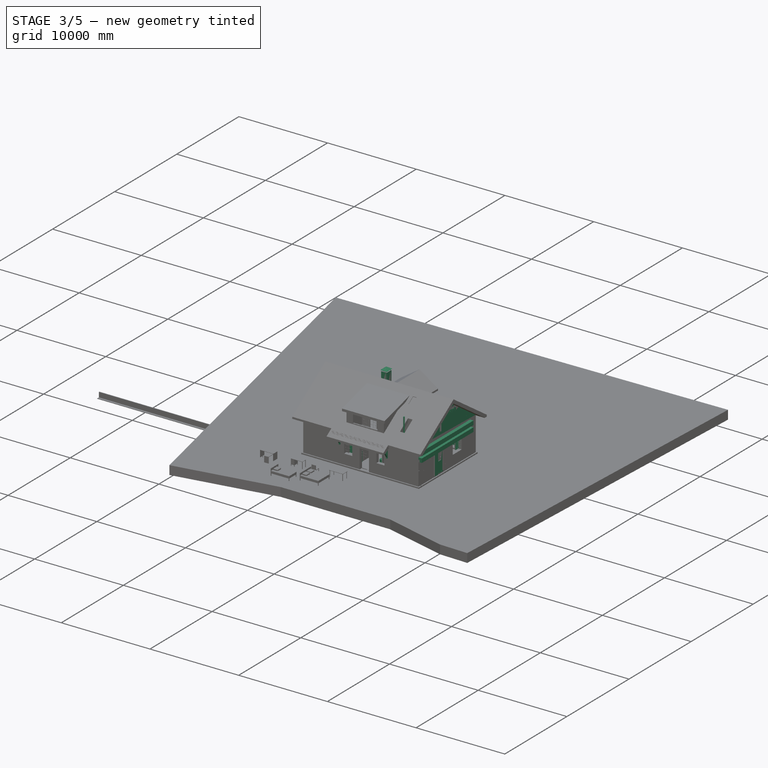
[diagram: stage 3 of 5 — iso view after this stage's code; geometry added in this stage tinted green]
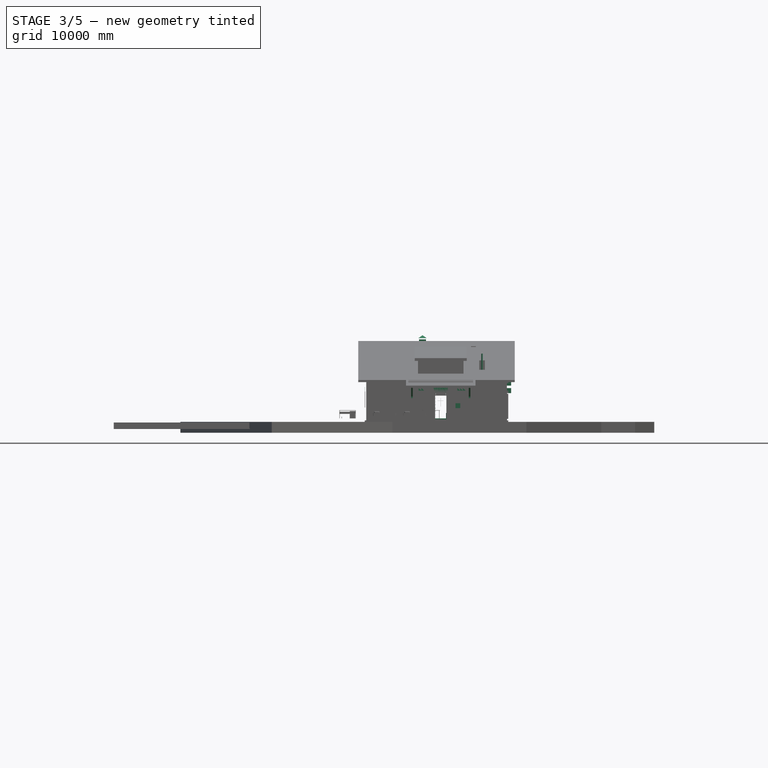
[diagram: stage 3 of 5 — front view after this stage's code; geometry added in this stage tinted green]
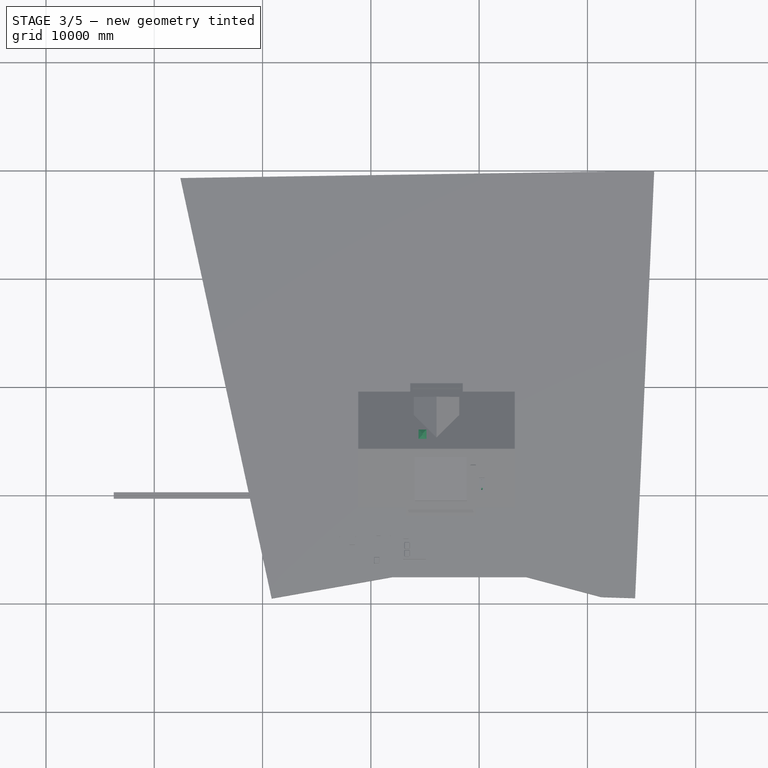
[diagram: stage 3 of 5 — top view after this stage's code; geometry added in this stage tinted green]
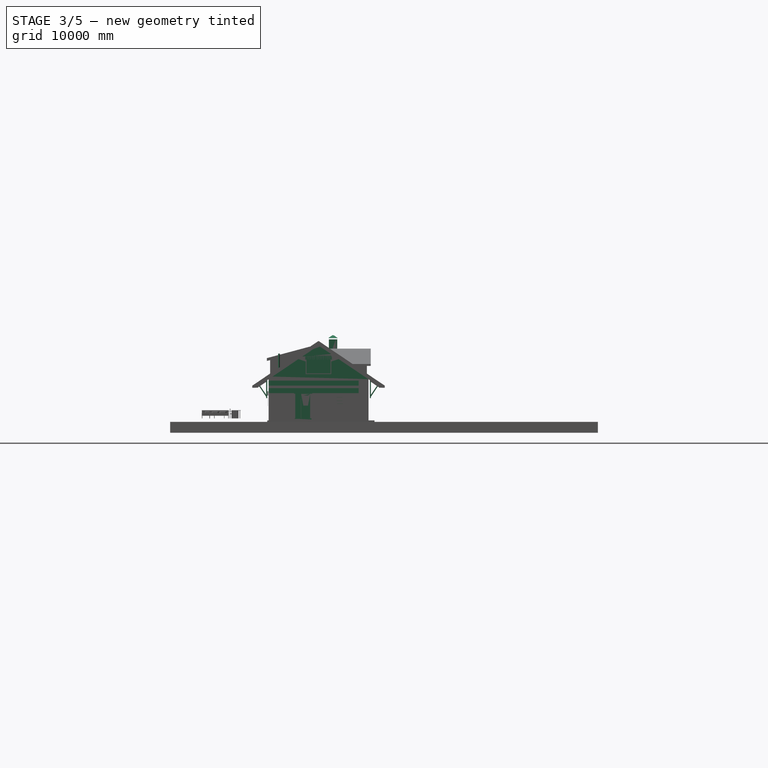
[diagram: stage 3 of 5 — right view after this stage's code; geometry added in this stage tinted green]
FEATURE [Part::Part2DObjectPython] Rectangle2589  label="проём в перекрытии 005"  # Draft 2D object (typed FeaturePython)
  ChamferSize = 0
  Columns = 1
  FilletRadius = 0
  Height = 1550
  Length = 380
  MakeFace = false
  Placement = pos=(-3580,8320,0) rot=(0,0,1;0rad)
  Rows = 1
FEATURE [Part::Part2DObjectPython] Rectangle2597  label="проём вентшахты"  # Draft 2D object (typed FeaturePython)
  ChamferSize = 0
  Columns = 1
  FilletRadius = 0
  Height = 1000
  Length = 180
  MakeFace = false
  Placement = pos=(10180,387.5,0) rot=(0,0,1;0rad)
  Rows = 1
FEATURE [Part::FeaturePython] Structure158  label="Вентстояк вычитаемы объём 002"  # Arch/BIM 52 (typed FeaturePython)
  Base = -> Rectangle2597
  FaceMaker = 0
  GlobalId = 2VgUxAGbH6UvSFD9GbSn_n
  Height = 4000
  HorizontalArea = 180000
  IfcData = IfcUID=2VgUxAGbH6UvSFD9GbSn_n,attributes={"GlobalId": {"value": "2VgUxAGbH6UvSFD9GbSn_n"}},+1 more (map truncated)
  IfcType = 52
  Length = 0
  MoveBase = false
  MoveWithHost = false
  Nodes = (2) [(10270,887.5,0),(10270,887.5,4000)]
  NodesOffset = 0
  Normal = (0,0,0)
  PerimeterLength = 2360
  Placement = pos=(0,0,2800) rot=(0,0,1;0rad)
  VerticalArea = 9.44e+06
  Width = 100
FEATURE [Part::Part2DObjectPython] Rectangle2808  # Draft 2D object (typed FeaturePython)
  ChamferSize = 0
  Columns = 1
  FilletRadius = 0
  Height = 1450
  Length = 1000
  MakeFace = true
  Placement = pos=(9360,4265,0) rot=(0,0,1;0rad)
  Rows = 1
FEATURE [Part::Part2DObjectPython] Rectangle  label="контур по облицовке"  # Draft 2D object (typed FeaturePython)
  ChamferSize = 0
  Columns = 1
  FilletRadius = 0
  Height = 9480
  Length = 13250
  MakeFace = false
  Placement = pos=(-560,-555,0) rot=(0,0,1;0rad)
  Rows = 1
FEATURE [Part::Extrusion] Extrude061  label="ПНО 45-10-6-003"
  Base = -> Sketch249
  Dir = (0,3980,0)
  DirMode = 0
  FaceMakerClass = Part::FaceMakerBullseye
  LengthFwd = 4480
  LengthRev = 0
  Placement = pos=(-40,4125,2800) rot=(0,0,1;0rad)
  Solid = true
  Symmetric = false
FEATURE [Part::Extrusion] Extrude062  label="ПНО 45-12-8-003"
  Base = -> Sketch231
  Dir = (0,3980,0)
  DirMode = 0
  FaceMakerClass = Part::FaceMakerBullseye
  LengthFwd = 4480
  LengthRev = 0
  Placement = pos=(-40,4125,2800) rot=(0,0,1;0rad)
  Solid = true
  Symmetric = false
FEATURE [Part::Box] Box3209  label="ДШ001"
  AttacherType = Attacher::AttachEngine3D
  Height = 500
  Length = 500
  Placement = pos=(11530,6975,450) rot=(0,0,1;0rad)
  Width = 580
FEATURE [Part::Part2DObjectPython] Line1357  # Draft 2D object (typed FeaturePython)
  ChamferSize = 0
  Closed = true
  End = (3195,-45,0)
  FilletRadius = 0
  Length = 2830
  MakeFace = false
  Placement = pos=(4475,5765,0) rot=(0,0,-1;1.5708rad)
  Points = (2) [(2980,-1280,0),(5810,-1280,0)]
  Start = (3195,2785,0)
  Subdivisions = 0
FEATURE [Part::Part2DObjectPython] Line1358  # Draft 2D object (typed FeaturePython)
  ChamferSize = 0
  Closed = true
  End = (5790,1865,0)
  FilletRadius = 0
  Length = 840
  MakeFace = false
  Placement = pos=(4420,750,0) rot=(0,0,-1;1.5708rad)
  Points = (2) [(-1955,1370,0),(-1115,1370,0)]
  Start = (5790,2705,0)
  Subdivisions = 0
FEATURE [Part::Part2DObjectPython] Line1360  # Draft 2D object (typed FeaturePython)
  ChamferSize = 0
  Closed = true
  End = (10110,1765,0)
  FilletRadius = 0
  Length = 1810
  MakeFace = false
  Placement = pos=(10990,1675,0) rot=(0,0,1;0rad)
  Points = (2) [(-880,-1720,0),(-880,90,0)]
  Start = (10110,-45,0)
  Subdivisions = 0
FEATURE [Part::Part2DObjectPython] Rectangle3159  # Draft 2D object (typed FeaturePython)
  Area = 0
  ChamferSize = 0
  Columns = 1
  FilletRadius = 0
  Height = 250
  Length = 920
  MakeFace = false
  Placement = pos=(6940,5803.61,0) rot=(0,0,1;0rad)
  Rows = 1
FEATURE [Part::FeaturePython] Array056  label="ПНО-45-10 002"  # Draft array (typed FeaturePython)
  Angle = 360
  ArrayType = 0
  Axis = (0,0,1)
  Base = -> Extrude061
  Center = (0,0,0)
  Fuse = false
  IntervalAxis = (0,0,0)
  IntervalX = (1000,0,0)
  IntervalY = (0,0,0)
  IntervalZ = (0,0,1)
  NumberPolar = 1
  NumberX = 5
  NumberY = 1
  NumberZ = 1
  Placement = pos=(4820,-9.1e-13,0) rot=(0,0,1;0rad)
FEATURE [Part::FeaturePython] Array057  label="ПНО-45-12 001"  # Draft array (typed FeaturePython)
  Angle = 360
  ArrayType = 0
  Axis = (0,0,1)
  Base = -> Extrude062
  Center = (0,0,0)
  Fuse = false
  IntervalAxis = (0,0,0)
  IntervalX = (1205,0,0)
  IntervalY = (0,0,0)
  IntervalZ = (0,0,1)
  NumberPolar = 1
  NumberX = 4
  NumberY = 1
  NumberZ = 1
FEATURE [Part::Extrusion] Extrude087  label="ПНО 44-10-6-005"
  Base = -> Sketch249
  Dir = (0,3880,0)
  DirMode = 0
  FaceMakerClass = Part::FaceMakerBullseye
  LengthFwd = 4380
  LengthRev = 0
  Placement = pos=(10,-265,2800) rot=(0,0,1;0rad)
  Solid = true
  Symmetric = false
FEATURE [Part::FeaturePython] Array058  label="ПНО-44-10 001"  # Draft array (typed FeaturePython)
  Angle = 360
  ArrayType = 0
  Axis = (0,0,1)
  Base = -> Extrude087
  Center = (0,0,0)
  Fuse = false
  IntervalAxis = (0,0,0)
  IntervalX = (-1000,0,0)
  IntervalY = (0,0,0)
  IntervalZ = (0,0,1)
  NumberPolar = 1
  NumberX = 2
  NumberY = 1
  NumberZ = 1
  Placement = pos=(11170,0,0) rot=(0,0,1;0rad)
FEATURE [Part::Extrusion] Extrude088  label="ПНО 44-12-8-005"
  Base = -> Sketch231
  Dir = (0,3880,0)
  DirMode = 0
  FaceMakerClass = Part::FaceMakerBullseye
  LengthFwd = 4380
  LengthRev = 0
  Placement = pos=(10,-265,2800) rot=(0,0,1;0rad)
  Solid = true
  Symmetric = false
FEATURE [Part::Part2DObjectPython] Circle109  label="Circle110"  # Draft 2D object (typed FeaturePython)
  Area = 0
  FirstAngle = 0
  LastAngle = 0
  MakeFace = false
  Placement = pos=(3610,2255,0) rot=(0,0,1;3.14159rad)
  Radius = 100
FEATURE [Part::Part2DObjectPython] Line1409  # Draft 2D object (typed FeaturePython)
  Area = 0
  ChamferSize = 0
  Closed = false
  End = (3280,2255,0)
  FilletRadius = 0
  Length = 330
  MakeFace = false
  Placement = pos=(3610,2225,0) rot=(0,0,1;3.14159rad)
  Points = (2) [(0,-30,0),(330,-30,0)]
  Start = (3610,2255,0)
  Subdivisions = 0
FEATURE [Part::Part2DObjectPython] Rectangle3193  # Draft 2D object (typed FeaturePython)
  Area = 0
  ChamferSize = 0
  Columns = 1
  FilletRadius = 75
  Height = 500
  Length = 250
  MakeFace = false
  Placement = pos=(8100,1565,0) rot=(0,0,1;1.5708rad)
  Rows = 1
FEATURE [Part::Part2DObjectPython] Wire812  # Draft 2D object (typed FeaturePython)
  Area = 0
  ChamferSize = 0
  Closed = true
  End = (6020,5565,0)
  FilletRadius = 0
  Length = 2372.43
  MakeFace = false
  Placement = pos=(6875,5565,0) rot=(0,0,-1;1.5708rad)
  Points = (10) [(6.36646e-12,-45,0),(360,-45,0),(360,-184.29,0),(393.033,-216.967,0),(410,-275,0),(410,-625,0),(393.033,-683.033,0),(360,-715.711,0),(360,-855,0),+1 more]
  Start = (6830,5565,0)
  Subdivisions = 0
FEATURE [Part::FeaturePython] Structure346  label="Структура007"  # Arch/BIM 52 (typed FeaturePython)
  Base = -> Rectangle3193
  FaceMaker = 0
  Height = 100
  HorizontalArea = 120171
  IfcData = attributes={"GlobalId": {"name": "GlobalId", "type": "IfcGloballyUniqueId", "is_enum": false, "enum_values": []}, "Description": {"... (+484 chars omitted),+1 more (map truncated)
  IfcType = 52
  Length = 0
  MoveBase = false
  MoveWithHost = false
  Nodes = (2) [(6380,5325,0),(6380,5325,100)]
  NodesOffset = 0
  Normal = (0,0,1)
  PerimeterLength = 1371.24
  Placement = pos=(0,0,900) rot=(0,0,1;0rad)
  VerticalArea = 137124
  Width = 100
FEATURE [Part::Box] Box3230  label="шкаф 60 кухонный 001"
  AttacherType = Attacher::AttachEngine3D
  Height = 1600
  Length = 600
  Placement = pos=(12160,6965,0) rot=(0,0,1;1.5708rad)
  Width = 630
FEATURE [Part::Box] Box3231  label="МВ_001"
  AttacherType = Attacher::AttachEngine3D
  Height = 350
  Length = 500
  Placement = pos=(11530,6975,1000) rot=(0,0,1;0rad)
  Width = 580
FEATURE [App::FeaturePython] WPProxy001  # WARN: FeaturePython — macro-defined, semantics opaque (R4)
  Placement = pos=(-560,-540,3130) rot=(0,0,1;0rad)
FEATURE [App::MaterialObjectPython] Material012  label="Wood_mebel"  # material (typed FeaturePython)
  Description = A standard construction wood
  Material = AuthorAndLicense=Wood-Generic,CardName=Wood-Generic,Color=(0.34509803921568627, 0.6627450980392157, 0.5058823529411764, 1.0),Density=700 kg/m^3,+10 more (map truncated)
  ProductURL = https://en.wikipedia.org/wiki/Wood
  Transparency = 0
FEATURE [App::MaterialObjectPython] Material013  label="ceramic other"  # material (typed FeaturePython)
  Description = ceramic other
  Material = AuthorAndLicense=Concrete-Generic,CardName=Concrete-Generic,Color=(0.8117647058823529, 0.8117647058823529, 0.8117647058823529, 1.0),+11 more (map truncated)
  Transparency = 0
FEATURE [Part::FeaturePython] Structure347  label="Раковина 81х45 Hatria Area"  # Arch/BIM 52 (typed FeaturePython)
  Base = -> Wire812
  FaceMaker = 0
  GlobalId = 2d5W_OQQf2Fxkoe6wMEOb9
  Height = 150
  HorizontalArea = 314998
  IfcData = IfcUID=2d5W_OQQf2Fxkoe6wMEOb9,+2 more (map truncated)
  IfcType = 52
  Length = 0
  Material = -> Material013
  MoveBase = false
  MoveWithHost = false
  Nodes = (2) [(-2856.79,7112.64,0),(-2856.79,7112.64,600)]
  NodesOffset = 0
  Normal = (0,0,1)
  PerimeterLength = 2372.43
  Placement = pos=(0,0,850) rot=(0,0,1;0rad)
  Subtractions = -> [Structure346]
  VerticalArea = 355865
  Width = 100
FEATURE [Part::FeaturePython] Component065  label="ПНО-44-023"  # Arch/BIM 52 (typed FeaturePython)
  Base = -> Array058
  GlobalId = 3J7wnUa6v2rfQwTZ0ixKlx
  HorizontalArea = 0
  IfcData = IfcUID=3J7wnUa6v2rfQwTZ0ixKlx,+2 more (map truncated)
  IfcType = 52
  Material = -> Material018
  MoveBase = false
  MoveWithHost = false
  PerimeterLength = 0
  Placement = pos=(11170,0,0) rot=(0,0,1;0rad)
  VerticalArea = 0
FEATURE [Part::FeaturePython] Wall358  label="Стена051"  # Arch/BIM 166 (typed FeaturePython)
  Align = 1
  Area = 3003000
  Base = -> Line1340
  BlockHeight = 231
  BlockLength = 255
  CountBroken = 7
  CountEntire = 36
  Face = 0
  Height = 231
  HorizontalArea = 0
  IfcData = attributes={"GlobalId": {"name": "GlobalId", "type": "IfcGloballyUniqueId", "is_enum": false, "enum_values": []}, "Description": {"... (+533 chars omitted),+1 more (map truncated)
  IfcType = 166
  Joint = 0
  Length = 13000
  MakeBlocks = true
  Material = -> Material004
  MoveBase = false
  MoveWithHost = false
  Normal = (0,0,0)
  OffsetFirst = 0
  OffsetSecond = 0
  PerimeterLength = 0
  Placement = pos=(0,0,1186) rot=(0,0,1;0rad)
  PredefinedType = 0
  Subtractions = -> [Structure019,Structure016,Structure017]
  VerticalArea = 0
  Width = 380
FEATURE [Part::FeaturePython] Wall359  label="Стена052"  # Arch/BIM 166 (typed FeaturePython)
  Align = 1
  Area = 1831830
  Base = -> Line1341
  BlockHeight = 231
  BlockLength = 256
  CountBroken = 3
  CountEntire = 23
  Face = 0
  Height = 231
  HorizontalArea = 0
  IfcData = attributes={"GlobalId": {"name": "GlobalId", "type": "IfcGloballyUniqueId", "is_enum": false, "enum_values": []}, "Description": {"... (+533 chars omitted),+1 more (map truncated)
  IfcType = 166
  Joint = 0
  Length = 7930
  MakeBlocks = true
  Material = -> Material004
  MoveBase = false
  MoveWithHost = false
  Normal = (0,0,0)
  OffsetFirst = 0
  OffsetSecond = 0
  PerimeterLength = 0
  Placement = pos=(0,0,1186) rot=(0,0,1;0rad)
  PredefinedType = 0
  Subtractions = -> [Structure285]
  VerticalArea = 0
  Width = 380
FEATURE [App::GeometryPython] BuildingPart117  label="ряд 008"  # Arch/BIM 52 (typed FeaturePython)
  Area = 9669660
  Group = -> [Wall360,Wall361,Wall363,Wall362]
  Height = 0
  HeightPropagate = true
  IfcData = attributes={"GlobalId": {"name": "GlobalId", "type": "IfcGloballyUniqueId", "is_enum": false, "enum_values": []}, "Description": {"... (+484 chars omitted),+1 more (map truncated)
  IfcType = 52
  LevelOffset = 0
FEATURE [Part::FeaturePython] Component154  label="ряд 009"  # Arch/BIM 0 (typed FeaturePython)
  CloneOf = -> BuildingPart116
  HorizontalArea = 0
  IfcData = attributes={"GlobalId": {"name": "GlobalId", "type": "IfcGloballyUniqueId", "is_enum": false, "enum_values": []}, "Description": {"... (+538 chars omitted),+1 more (map truncated)
  IfcType = 0
  Material = -> Material004
  MoveBase = false
  MoveWithHost = false
  PerimeterLength = 0
  Placement = pos=(0,0,462) rot=(0,0,1;0rad)
  PredefinedType = 0
  VerticalArea = 0
FEATURE [Part::FeaturePython] Component155  label="ряд 010"  # Arch/BIM 0 (typed FeaturePython)
  CloneOf = -> BuildingPart117
  HorizontalArea = 0
  IfcData = attributes={"GlobalId": {"name": "GlobalId", "type": "IfcGloballyUniqueId", "is_enum": false, "enum_values": []}, "Description": {"... (+538 chars omitted),+1 more (map truncated)
  IfcType = 0
  Material = -> Material004
  MoveBase = false
  MoveWithHost = false
  PerimeterLength = 0
  Placement = pos=(0,0,462) rot=(0,0,1;0rad)
  PredefinedType = 0
  VerticalArea = 0
FEATURE [Part::FeaturePython] Component156  label="ряд 011"  # Arch/BIM 0 (typed FeaturePython)
  CloneOf = -> BuildingPart116
  HorizontalArea = 0
  IfcData = attributes={"GlobalId": {"name": "GlobalId", "type": "IfcGloballyUniqueId", "is_enum": false, "enum_values": []}, "Description": {"... (+538 chars omitted),+1 more (map truncated)
  IfcType = 0
  Material = -> Material004
  MoveBase = false
  MoveWithHost = false
  PerimeterLength = 0
  Placement = pos=(0,0,924) rot=(0,0,1;0rad)
  PredefinedType = 0
  VerticalArea = 0
FEATURE [Part::FeaturePython] Wall364  label="Стена057"  # Arch/BIM 166 (typed FeaturePython)
  Align = 0
  Area = 1.83183e+06
  Base = -> Line1347
  BlockHeight = 231
  BlockLength = 256
  CountBroken = 3
  CountEntire = 23
  Face = 0
  Height = 231
  HorizontalArea = 0
  IfcData = attributes={"GlobalId": {"name": "GlobalId", "type": "IfcGloballyUniqueId", "is_enum": false, "enum_values": []}, "Description": {"... (+533 chars omitted),+1 more (map truncated)
  IfcType = 166
  Joint = 0
  Length = 7930
  MakeBlocks = true
  Material = -> Material004
  MoveBase = false
  MoveWithHost = false
  Normal = (0,0,0)
  OffsetFirst = 0
  OffsetSecond = 0
  PerimeterLength = 0
  Placement = pos=(0,0,2341) rot=(0,0,1;0rad)
  PredefinedType = 0
  Subtractions = -> [Structure285]
  VerticalArea = 0
  Width = 380
FEATURE [Part::FeaturePython] Wall365  label="Стена058"  # Arch/BIM 166 (typed FeaturePython)
  Align = 0
  Area = 1831830
  Base = -> Line1343
  BlockHeight = 231
  BlockLength = 256
  CountBroken = 1
  CountEntire = 30
  Face = 0
  Height = 231
  HorizontalArea = 0
  IfcData = attributes={"GlobalId": {"name": "GlobalId", "type": "IfcGloballyUniqueId", "is_enum": false, "enum_values": []}, "Description": {"... (+533 chars omitted),+1 more (map truncated)
  IfcType = 166
  Joint = 0
  Length = 7930
  MakeBlocks = true
  Material = -> Material004
  MoveBase = false
  MoveWithHost = false
  Normal = (0,0,0)
  OffsetFirst = 0
  OffsetSecond = 0
  PerimeterLength = 0
  Placement = pos=(0,0,2341) rot=(0,0,1;0rad)
  PredefinedType = 0
  Subtractions = -> [Structure304,Structure306]
  VerticalArea = 0
  Width = 380
FEATURE [Part::FeaturePython] Wall366  label="Стена059"  # Arch/BIM 166 (typed FeaturePython)
  Align = 0
  Area = 3003000
  Base = -> Line1350
  BlockHeight = 231
  BlockLength = 255
  CountBroken = 1
  CountEntire = 50
  Face = 0
  Height = 231
  HorizontalArea = 0
  IfcData = attributes={"GlobalId": {"name": "GlobalId", "type": "IfcGloballyUniqueId", "is_enum": false, "enum_values": []}, "Description": {"... (+533 chars omitted),+1 more (map truncated)
  IfcType = 166
  Joint = 0
  Length = 13000
  MakeBlocks = true
  Material = -> Material004
  MoveBase = false
  MoveWithHost = false
  Normal = (0,0,0)
  OffsetFirst = 0
  OffsetSecond = 0
  PerimeterLength = 0
  Placement = pos=(0,0,2341) rot=(0,0,1;0rad)
  PredefinedType = 0
  Subtractions = -> [Structure308,Structure315,Structure313]
  VerticalArea = 0
  Width = 380
FEATURE [Part::FeaturePython] Wall370  label="Стена063"  # Arch/BIM 166 (typed FeaturePython)
  Align = 1
  Area = 3003000
  Base = -> Line1340
  BlockHeight = 231
  BlockLength = 255
  CountBroken = 1
  CountEntire = 50
  Face = 0
  Height = 231
  HorizontalArea = 0
  IfcData = attributes={"GlobalId": {"name": "GlobalId", "type": "IfcGloballyUniqueId", "is_enum": false, "enum_values": []}, "Description": {"... (+533 chars omitted),+1 more (map truncated)
  IfcType = 166
  Joint = 0
  Length = 13000
  MakeBlocks = true
  Material = -> Material004
  MoveBase = false
  MoveWithHost = false
  Normal = (0,0,0)
  OffsetFirst = 0
  OffsetSecond = 0
  PerimeterLength = 0
  Placement = pos=(0,0,2572) rot=(0,0,1;0rad)
  PredefinedType = 0
  Subtractions = -> [Structure019]
  VerticalArea = 0
  Width = 380
FEATURE [Part::FeaturePython] Wall372  label="Перемычка монолитн. 013"  # Arch/BIM 166 (typed FeaturePython)
  Align = 1
  Area = 452760
  Base = -> Line1523
  BlockHeight = 0
  BlockLength = 0
  CountBroken = 0
  CountEntire = 0
  Face = 0
  GlobalId = 2_OOPfC1L9nOo2BwNBJ59E
  Height = 231
  HorizontalArea = 744800
  IfcData = IfcUID=2_OOPfC1L9nOo2BwNBJ59E,+2 more (map truncated)
  IfcType = 166
  Joint = 0
  Length = 1960
  MakeBlocks = false
  Material = -> Material001
  MoveBase = false
  MoveWithHost = false
  Normal = (0,0,0)
  OffsetFirst = 0
  OffsetSecond = 0
  PerimeterLength = 4680
  Placement = pos=(0,0,2572) rot=(0,0,1;0rad)
  PredefinedType = 0
  VerticalArea = 1081080
  Width = 380
FEATURE [Part::FeaturePython] Wall373  label="Перемычка монолитн. 014"  # Arch/BIM 166 (typed FeaturePython)
  Align = 1
  Area = 572880
  Base = -> Line1524
  BlockHeight = 0
  BlockLength = 0
  CountBroken = 0
  CountEntire = 0
  Face = 0
  GlobalId = 02zZ5o_1DBJf0p5Hr4GWva
  Height = 231
  HorizontalArea = 942400
  IfcData = IfcUID=02zZ5o_1DBJf0p5Hr4GWva,+2 more (map truncated)
  IfcType = 166
  Joint = 0
  Length = 2480
  MakeBlocks = false
  Material = -> Material001
  MoveBase = false
  MoveWithHost = false
  Normal = (0,0,0)
  OffsetFirst = 0
  OffsetSecond = 0
  PerimeterLength = 5720
  Placement = pos=(0,0,2572) rot=(0,0,1;0rad)
  PredefinedType = 0
  VerticalArea = 1321320
  Width = 380
FEATURE [Part::FeaturePython] Wall374  label="Перемычка монолитн. 015"  # Arch/BIM 166 (typed FeaturePython)
  Align = 0
  Area = 362670
  Base = -> Line1526
  BlockHeight = 0
  BlockLength = 0
  CountBroken = 0
  CountEntire = 0
  Face = 0
  GlobalId = 2Km2nGMYj6_hkYj1EJr8Pd
  Height = 231
  HorizontalArea = 596600
  IfcData = IfcUID=2Km2nGMYj6_hkYj1EJr8Pd,+2 more (map truncated)
  IfcType = 166
  Joint = 0
  Length = 1570
  MakeBlocks = false
  Material = -> Material001
  MoveBase = false
  MoveWithHost = false
  Normal = (0,0,0)
  OffsetFirst = 0
  OffsetSecond = 0
  PerimeterLength = 3900
  Placement = pos=(0,0,2341) rot=(0,0,1;0rad)
  PredefinedType = 0
  VerticalArea = 900900
  Width = 380
FEATURE [Part::FeaturePython] Wall375  label="Перемычка монолитн. 016"  # Arch/BIM 166 (typed FeaturePython)
  Align = 0
  Area = 332640
  Base = -> Line1527
  BlockHeight = 0
  BlockLength = 0
  CountBroken = 0
  CountEntire = 0
  Face = 0
  GlobalId = 16$DxRw$TB6BfQSNqz60Qz
  Height = 231
  HorizontalArea = 547200
  IfcData = IfcUID=16$DxRw$TB6BfQSNqz60Qz,+2 more (map truncated)
  IfcType = 166
  Joint = 0
  Length = 1440
  MakeBlocks = false
  Material = -> Material001
  MoveBase = false
  MoveWithHost = false
  Normal = (0,0,0)
  OffsetFirst = 0
  OffsetSecond = 0
  PerimeterLength = 3640
  Placement = pos=(0,0,2341) rot=(0,0,1;0rad)
  PredefinedType = 0
  VerticalArea = 840840
  Width = 380
FEATURE [Part::FeaturePython] Wall376  label="Перемычка монолитн. 017"  # Arch/BIM 166 (typed FeaturePython)
  Align = 1
  Area = 482790
  Base = -> Line1529
  BlockHeight = 0
  BlockLength = 0
  CountBroken = 0
  CountEntire = 0
  Face = 0
  GlobalId = 0AqGC86W9B8PvMAPbhOTte
  Height = 231
  HorizontalArea = 794200
  IfcData = IfcUID=0AqGC86W9B8PvMAPbhOTte,+2 more (map truncated)
  IfcType = 166
  Joint = 0
  Length = 2090
  MakeBlocks = false
  Material = -> Material001
  MoveBase = false
  MoveWithHost = false
  Normal = (0,0,0)
  OffsetFirst = 0
  OffsetSecond = 0
  PerimeterLength = 4940
  Placement = pos=(0,0,2572) rot=(0,0,1;0rad)
  PredefinedType = 0
  VerticalArea = 1.14114e+06
  Width = 380
FEATURE [Part::FeaturePython] Wall377  label="Перемычка монолитн. 018"  # Arch/BIM 166 (typed FeaturePython)
  Align = 0
  Area = 452760
  Base = -> Line1530
  BlockHeight = 0
  BlockLength = 0
  CountBroken = 0
  CountEntire = 0
  Face = 0
  GlobalId = 23sFNS3FX7B9N2mOSbHlu1
  Height = 231
  HorizontalArea = 744800
  IfcData = IfcUID=23sFNS3FX7B9N2mOSbHlu1,+2 more (map truncated)
  IfcType = 166
  Joint = 0
  Length = 1960
  MakeBlocks = false
  Material = -> Material001
  MoveBase = false
  MoveWithHost = false
  Normal = (0,0,0)
  OffsetFirst = 0
  OffsetSecond = 0
  PerimeterLength = 4680
  Placement = pos=(0,0,2572) rot=(0,0,1;0rad)
  PredefinedType = 0
  VerticalArea = 1081080
  Width = 380
FEATURE [Part::FeaturePython] Wall371  label="Стена064"  # Arch/BIM 166 (typed FeaturePython)
  Align = 1
  Area = 1831830
  Base = -> Line1341
  BlockHeight = 231
  BlockLength = 256
  CountBroken = 3
  CountEntire = 21
  Face = 0
  Height = 231
  HorizontalArea = 0
  IfcData = attributes={"GlobalId": {"name": "GlobalId", "type": "IfcGloballyUniqueId", "is_enum": false, "enum_values": []}, "Description": {"... (+533 chars omitted),+1 more (map truncated)
  IfcType = 166
  Joint = 0
  Length = 7930
  MakeBlocks = true
  Material = -> Material004
  MoveBase = false
  MoveWithHost = false
  Normal = (0,0,0)
  OffsetFirst = 0
  OffsetSecond = 0
  PerimeterLength = 0
  Placement = pos=(0,0,2572) rot=(0,0,1;0rad)
  PredefinedType = 0
  Subtractions = -> [Wall377]
  VerticalArea = 0
  Width = 380
FEATURE [Part::FeaturePython] Wall378  label="Перемычка монолитн. 019"  # Arch/BIM 166 (typed FeaturePython)
  Align = 1
  Area = 452760
  Base = -> Line1531
  BlockHeight = 0
  BlockLength = 0
  CountBroken = 0
  CountEntire = 0
  Face = 0
  GlobalId = 2TdxzIhfb2oA4zfHjvmbo2
  Height = 231
  HorizontalArea = 744800
  IfcData = IfcUID=2TdxzIhfb2oA4zfHjvmbo2,+2 more (map truncated)
  IfcType = 166
  Joint = 0
  Length = 1960
  MakeBlocks = false
  Material = -> Material001
  MoveBase = false
  MoveWithHost = false
  Normal = (0,0,0)
  OffsetFirst = 0
  OffsetSecond = 0
  PerimeterLength = 4680
  Placement = pos=(0,0,2572) rot=(0,0,1;0rad)
  PredefinedType = 0
  VerticalArea = 1081080
  Width = 380
FEATURE [Part::FeaturePython] Wall368  label="Стена061"  # Arch/BIM 166 (typed FeaturePython)
  Align = 1
  Area = 1831830
  Base = -> Line1342
  BlockHeight = 231
  BlockLength = 256
  CountBroken = 1
  CountEntire = 30
  Face = 0
  Height = 231
  HorizontalArea = 0
  IfcData = attributes={"GlobalId": {"name": "GlobalId", "type": "IfcGloballyUniqueId", "is_enum": false, "enum_values": []}, "Description": {"... (+533 chars omitted),+1 more (map truncated)
  IfcType = 166
  Joint = 0
  Length = 7930
  MakeBlocks = true
  Material = -> Material004
  MoveBase = false
  MoveWithHost = false
  Normal = (0,0,0)
  OffsetFirst = 0
  OffsetSecond = 0
  PerimeterLength = 0
  Placement = pos=(0,0,2572) rot=(0,0,1;0rad)
  PredefinedType = 0
  Subtractions = -> [Wall378,Wall376]
  VerticalArea = 0
  Width = 380
FEATURE [Part::FeaturePython] Wall379  label="Перемычка монолитн. 020"  # Arch/BIM 166 (typed FeaturePython)
  Align = 0
  Area = 332640
  Base = -> Line1537
  BlockHeight = 0
  BlockLength = 0
  CountBroken = 0
  CountEntire = 0
  Face = 0
  GlobalId = 2dIW8Z8qb1VQVoHMf0gHj5
  Height = 231
  HorizontalArea = 547200
  IfcData = IfcUID=2dIW8Z8qb1VQVoHMf0gHj5,+2 more (map truncated)
  IfcType = 166
  Joint = 0
  Length = 1440
  MakeBlocks = false
  Material = -> Material001
  MoveBase = false
  MoveWithHost = false
  Normal = (0,0,0)
  OffsetFirst = 0
  OffsetSecond = 0
  PerimeterLength = 3640
  Placement = pos=(0,0,2341) rot=(0,0,1;0rad)
  PredefinedType = 0
  VerticalArea = 840840
  Width = 380
FEATURE [Part::FeaturePython] Wall367  label="Стена060"  # Arch/BIM 166 (typed FeaturePython)
  Align = 0
  Area = 3003000
  Base = -> Line1351
  BlockHeight = 231
  BlockLength = 255
  CountBroken = 7
  CountEntire = 29
  Face = 0
  Height = 231
  HorizontalArea = 0
  IfcData = attributes={"GlobalId": {"name": "GlobalId", "type": "IfcGloballyUniqueId", "is_enum": false, "enum_values": []}, "Description": {"... (+533 chars omitted),+1 more (map truncated)
  IfcType = 166
  Joint = 0
  Length = 13000
  MakeBlocks = true
  Material = -> Material004
  MoveBase = false
  MoveWithHost = false
  Normal = (0,0,0)
  OffsetFirst = 0
  OffsetSecond = 0
  PerimeterLength = 0
  Placement = pos=(0,0,2341) rot=(0,0,1;0rad)
  PredefinedType = 0
  Subtractions = -> [Wall379,Wall375,Wall374]
  VerticalArea = 0
  Width = 380
FEATURE [App::GeometryPython] BuildingPart118  label="ряд 012"  # Arch/BIM 52 (typed FeaturePython)
  Area = 9669660
  Group = -> [Wall367,Wall366,Wall364,Wall365]
  Height = 0
  HeightPropagate = true
  IfcData = attributes={"GlobalId": {"name": "GlobalId", "type": "IfcGloballyUniqueId", "is_enum": false, "enum_values": []}, "Description": {"... (+484 chars omitted),+1 more (map truncated)
  IfcType = 52
  LevelOffset = 0
FEATURE [Part::FeaturePython] Wall380  label="Перемычка монолитн. 021"  # Arch/BIM 166 (typed FeaturePython)
  Align = 1
  Area = 452760
  Base = -> Line1538
  BlockHeight = 0
  BlockLength = 0
  CountBroken = 0
  CountEntire = 0
  Face = 0
  GlobalId = 3keULZXVT8QA_IAgUQCOo2
  Height = 231
  HorizontalArea = 744800
  IfcData = IfcUID=3keULZXVT8QA_IAgUQCOo2,+2 more (map truncated)
  IfcType = 166
  Joint = 0
  Length = 1960
  MakeBlocks = false
  Material = -> Material001
  MoveBase = false
  MoveWithHost = false
  Normal = (0,0,0)
  OffsetFirst = 0
  OffsetSecond = 0
  PerimeterLength = 4680
  Placement = pos=(0,-9.09e-13,2572) rot=(0,0,1;0rad)
  PredefinedType = 0
  VerticalArea = 1081080
  Width = 380
FEATURE [Part::FeaturePython] Wall369  label="Стена062"  # Arch/BIM 166 (typed FeaturePython)
  Align = 1
  Area = 3003000
  Base = -> Line1349
  BlockHeight = 231
  BlockLength = 255
  CountBroken = 1
  CountEntire = 50
  Face = 0
  Height = 231
  HorizontalArea = 0
  IfcData = attributes={"GlobalId": {"name": "GlobalId", "type": "IfcGloballyUniqueId", "is_enum": false, "enum_values": []}, "Description": {"... (+533 chars omitted),+1 more (map truncated)
  IfcType = 166
  Joint = 0
  Length = 13000
  MakeBlocks = true
  Material = -> Material004
  MoveBase = false
  MoveWithHost = false
  Normal = (0,0,0)
  OffsetFirst = 0
  OffsetSecond = 0
  PerimeterLength = 0
  Placement = pos=(0,0,2572) rot=(0,0,1;0rad)
  PredefinedType = 0
  Subtractions = -> [Structure308,Wall372,Wall373,Wall380]
  VerticalArea = 0
  Width = 380
FEATURE [App::GeometryPython] BuildingPart119  label="ряд 013"  # Arch/BIM 52 (typed FeaturePython)
  Area = 9669660
  Group = -> [Wall370,Wall369,Wall371,Wall368]
  Height = 0
  HeightPropagate = true
  IfcData = attributes={"GlobalId": {"name": "GlobalId", "type": "IfcGloballyUniqueId", "is_enum": false, "enum_values": []}, "Description": {"... (+484 chars omitted),+1 more (map truncated)
  IfcType = 52
  LevelOffset = 0
FEATURE [Part::FeaturePython] Wall381  label="Стена065"  # Arch/BIM 166 (typed FeaturePython)
  Align = 1
  Area = 2129820
  Base = -> Line1427
  BlockHeight = 231
  BlockLength = 256
  CountBroken = 2
  CountEntire = 35
  Face = 0
  Height = 231
  HorizontalArea = 0
  IfcData = attributes={"GlobalId": {"name": "GlobalId", "type": "IfcGloballyUniqueId", "is_enum": false, "enum_values": []}, "Description": {"... (+533 chars omitted),+1 more (map truncated)
  IfcType = 166
  Joint = 0
  Length = 9220
  MakeBlocks = true
  Material = -> Material004
  MoveBase = false
  MoveWithHost = false
  Normal = (0,0,0)
  OffsetFirst = 125
  OffsetSecond = 0
  PerimeterLength = 0
  Placement = pos=(0,0,2803) rot=(0,0,1;0rad)
  PredefinedType = 0
  VerticalArea = 0
  Width = 380
FEATURE [Part::FeaturePython] Wall383  label="Стена067"  # Arch/BIM 166 (typed FeaturePython)
  Align = 0
  Area = 2129820
  Base = -> Line1426
  BlockHeight = 231
  BlockLength = 256
  CountBroken = 1
  CountEntire = 36
  Face = 0
  Height = 231
  HorizontalArea = 0
  IfcData = attributes={"GlobalId": {"name": "GlobalId", "type": "IfcGloballyUniqueId", "is_enum": false, "enum_values": []}, "Description": {"... (+533 chars omitted),+1 more (map truncated)
  IfcType = 166
  Joint = 0
  Length = 9220
  MakeBlocks = true
  Material = -> Material004
  MoveBase = false
  MoveWithHost = false
  Normal = (0,0,0)
  OffsetFirst = 0
  OffsetSecond = 0
  PerimeterLength = 0
  Placement = pos=(0,0,2803) rot=(0,0,1;0rad)
  PredefinedType = 0
  VerticalArea = 0
  Width = 380
FEATURE [App::GeometryPython] BuildingPart120  label="ряд 014"  # Arch/BIM 52 (typed FeaturePython)
  Area = 4259640
  Group = -> [Wall383,Wall381]
  Height = 0
  HeightPropagate = true
  IfcData = attributes={"GlobalId": {"name": "GlobalId", "type": "IfcGloballyUniqueId", "is_enum": false, "enum_values": []}, "Description": {"... (+484 chars omitted),+1 more (map truncated)
  IfcType = 52
  LevelOffset = 0
FEATURE [Part::FeaturePython] Wall384  label="Стена068"  # Arch/BIM 166 (typed FeaturePython)
  Align = 1
  Area = 1831830
  Base = -> Line1342
  BlockHeight = 231
  BlockLength = 256
  CountBroken = 1
  CountEntire = 30
  Face = 0
  Height = 231
  HorizontalArea = 0
  IfcData = attributes={"GlobalId": {"name": "GlobalId", "type": "IfcGloballyUniqueId", "is_enum": false, "enum_values": []}, "Description": {"... (+533 chars omitted),+1 more (map truncated)
  IfcType = 166
  Joint = 0
  Length = 7930
  MakeBlocks = true
  Material = -> Material004
  MoveBase = false
  MoveWithHost = false
  Normal = (0,0,0)
  OffsetFirst = 0
  OffsetSecond = 0
  PerimeterLength = 0
  Placement = pos=(0,0,3034) rot=(0,0,1;0rad)
  PredefinedType = 0
  VerticalArea = 0
  Width = 380
FEATURE [Part::FeaturePython] Wall385  label="Стена069"  # Arch/BIM 166 (typed FeaturePython)
  Align = 1
  Area = 3003000
  Base = -> Line1349
  BlockHeight = 231
  BlockLength = 255
  CountBroken = 1
  CountEntire = 50
  Face = 0
  Height = 231
  HorizontalArea = 0
  IfcData = attributes={"GlobalId": {"name": "GlobalId", "type": "IfcGloballyUniqueId", "is_enum": false, "enum_values": []}, "Description": {"... (+533 chars omitted),+1 more (map truncated)
  IfcType = 166
  Joint = 0
  Length = 13000
  MakeBlocks = true
  Material = -> Material004
  MoveBase = false
  MoveWithHost = false
  Normal = (0,0,0)
  OffsetFirst = 0
  OffsetSecond = 0
  PerimeterLength = 0
  Placement = pos=(0,0,3034) rot=(0,0,1;0rad)
  PredefinedType = 0
  VerticalArea = 0
  Width = 380
FEATURE [Part::FeaturePython] Wall386  label="Стена070"  # Arch/BIM 166 (typed FeaturePython)
  Align = 1
  Area = 3003000
  Base = -> Line1340
  BlockHeight = 231
  BlockLength = 255
  CountBroken = 1
  CountEntire = 50
  Face = 0
  Height = 231
  HorizontalArea = 0
  IfcData = attributes={"GlobalId": {"name": "GlobalId", "type": "IfcGloballyUniqueId", "is_enum": false, "enum_values": []}, "Description": {"... (+533 chars omitted),+1 more (map truncated)
  IfcType = 166
  Joint = 0
  Length = 13000
  MakeBlocks = true
  Material = -> Material004
  MoveBase = false
  MoveWithHost = false
  Normal = (0,0,0)
  OffsetFirst = 0
  OffsetSecond = 0
  PerimeterLength = 0
  Placement = pos=(0,0,3034) rot=(0,0,1;0rad)
  PredefinedType = 0
  VerticalArea = 0
  Width = 380
FEATURE [Part::FeaturePython] Wall387  label="Стена071"  # Arch/BIM 166 (typed FeaturePython)
  Align = 1
  Area = 1831830
  Base = -> Line1341
  BlockHeight = 231
  BlockLength = 256
  CountBroken = 1
  CountEntire = 30
  Face = 0
  Height = 231
  HorizontalArea = 0
  IfcData = attributes={"GlobalId": {"name": "GlobalId", "type": "IfcGloballyUniqueId", "is_enum": false, "enum_values": []}, "Description": {"... (+533 chars omitted),+1 more (map truncated)
  IfcType = 166
  Joint = 0
  Length = 7930
  MakeBlocks = true
  Material = -> Material004
  MoveBase = false
  MoveWithHost = false
  Normal = (0,0,0)
  OffsetFirst = 0
  OffsetSecond = 0
  PerimeterLength = 0
  Placement = pos=(0,0,3034) rot=(0,0,1;0rad)
  PredefinedType = 0
  VerticalArea = 0
  Width = 380
FEATURE [App::GeometryPython] BuildingPart121  label="ряд 015"  # Arch/BIM 52 (typed FeaturePython)
  Area = 9669660
  Group = -> [Wall386,Wall385,Wall387,Wall384]
  Height = 0
  HeightPropagate = true
  IfcData = attributes={"GlobalId": {"name": "GlobalId", "type": "IfcGloballyUniqueId", "is_enum": false, "enum_values": []}, "Description": {"... (+484 chars omitted),+1 more (map truncated)
  IfcType = 52
  LevelOffset = 0
FEATURE [Part::FeaturePython] Wall388  label="Стена072"  # Arch/BIM 166 (typed FeaturePython)
  Align = 0
  Area = 1831830
  Base = -> Line1343
  BlockHeight = 231
  BlockLength = 256
  CountBroken = 1
  CountEntire = 30
  Face = 0
  Height = 231
  HorizontalArea = 0
  IfcData = attributes={"GlobalId": {"name": "GlobalId", "type": "IfcGloballyUniqueId", "is_enum": false, "enum_values": []}, "Description": {"... (+533 chars omitted),+1 more (map truncated)
  IfcType = 166
  Joint = 0
  Length = 7930
  MakeBlocks = true
  Material = -> Material004
  MoveBase = false
  MoveWithHost = false
  Normal = (0,0,0)
  OffsetFirst = 0
  OffsetSecond = 0
  PerimeterLength = 0
  Placement = pos=(0,0,3265) rot=(0,0,1;0rad)
  PredefinedType = 0
  VerticalArea = 0
  Width = 380
FEATURE [Part::FeaturePython] Wall389  label="Стена073"  # Arch/BIM 166 (typed FeaturePython)
  Align = 0
  Area = 3003000
  Base = -> Line1350
  BlockHeight = 231
  BlockLength = 255
  CountBroken = 1
  CountEntire = 50
  Face = 0
  Height = 231
  HorizontalArea = 0
  IfcData = attributes={"GlobalId": {"name": "GlobalId", "type": "IfcGloballyUniqueId", "is_enum": false, "enum_values": []}, "Description": {"... (+533 chars omitted),+1 more (map truncated)
  IfcType = 166
  Joint = 0
  Length = 13000
  MakeBlocks = true
  Material = -> Material004
  MoveBase = false
  MoveWithHost = false
  Normal = (0,0,0)
  OffsetFirst = 0
  OffsetSecond = 0
  PerimeterLength = 0
  Placement = pos=(0,0,3265) rot=(0,0,1;0rad)
  PredefinedType = 0
  VerticalArea = 0
  Width = 380
FEATURE [Part::FeaturePython] Wall390  label="Стена074"  # Arch/BIM 166 (typed FeaturePython)
  Align = 0
  Area = 1.83183e+06
  Base = -> Line1347
  BlockHeight = 231
  BlockLength = 256
  CountBroken = 1
  CountEntire = 30
  Face = 0
  Height = 231
  HorizontalArea = 0
  IfcData = attributes={"GlobalId": {"name": "GlobalId", "type": "IfcGloballyUniqueId", "is_enum": false, "enum_values": []}, "Description": {"... (+533 chars omitted),+1 more (map truncated)
  IfcType = 166
  Joint = 0
  Length = 7930
  MakeBlocks = true
  Material = -> Material004
  MoveBase = false
  MoveWithHost = false
  Normal = (0,0,0)
  OffsetFirst = 0
  OffsetSecond = 0
  PerimeterLength = 0
  Placement = pos=(0,0,3265) rot=(0,0,1;0rad)
  PredefinedType = 0
  VerticalArea = 0
  Width = 380
FEATURE [Part::FeaturePython] Wall391  label="Стена075"  # Arch/BIM 166 (typed FeaturePython)
  Align = 0
  Area = 3003000
  Base = -> Line1351
  BlockHeight = 231
  BlockLength = 255
  CountBroken = 1
  CountEntire = 50
  Face = 0
  Height = 231
  HorizontalArea = 0
  IfcData = attributes={"GlobalId": {"name": "GlobalId", "type": "IfcGloballyUniqueId", "is_enum": false, "enum_values": []}, "Description": {"... (+533 chars omitted),+1 more (map truncated)
  IfcType = 166
  Joint = 0
  Length = 13000
  MakeBlocks = true
  Material = -> Material004
  MoveBase = false
  MoveWithHost = false
  Normal = (0,0,0)
  OffsetFirst = 0
  OffsetSecond = 0
  PerimeterLength = 0
  Placement = pos=(0,0,3265) rot=(0,0,1;0rad)
  PredefinedType = 0
  VerticalArea = 0
  Width = 380
FEATURE [App::GeometryPython] BuildingPart122  label="ряд 016"  # Arch/BIM 52 (typed FeaturePython)
  Area = 9669660
  Group = -> [Wall391,Wall389,Wall390,Wall388]
  Height = 0
  HeightPropagate = true
  IfcData = attributes={"GlobalId": {"name": "GlobalId", "type": "IfcGloballyUniqueId", "is_enum": false, "enum_values": []}, "Description": {"... (+484 chars omitted),+1 more (map truncated)
  IfcType = 52
  LevelOffset = 0
FEATURE [App::GeometryPython] BuildingPart078  label="Порядовка"  # Arch/BIM 52 (typed FeaturePython)
  Area = 91286580
  Group = -> [BuildingPart077,BuildingPart072,Component151,Component152,Component153,BuildingPart117,BuildingPart116,BuildingPart115,Component154,Component155,Component156,BuildingPart118,BuildingPart119,BuildingPart120,BuildingPart121,BuildingPart122]
  Height = 0
  HeightPropagate = true
  IfcData = attributes={"GlobalId": {"name": "GlobalId", "type": "IfcGloballyUniqueId", "is_enum": false, "enum_values": []}, "Description": {"... (+484 chars omitted),+1 more (map truncated)
  IfcType = 52
  LevelOffset = 0
FEATURE [Part::Part2DObjectPython] Rectangle3404  label="Д90-мансарда-001"  # Draft 2D object (typed FeaturePython)
  Area = 164250
  ChamferSize = 0
  Columns = 1
  FilletRadius = 0
  Height = 900
  Length = 182.5
  MakeFace = true
  Placement = pos=(6550,3642.5,0) rot=(0,0,1;1.5708rad)
  Rows = 1
FEATURE [Part::Part2DObjectPython] Line1738  # Draft 2D object (typed FeaturePython)
  Area = 0
  ChamferSize = 0
  Closed = false
  End = (6500,3805,0)
  FilletRadius = 0
  Length = 800
  MakeFace = false
  Placement = pos=(6500,4605,0) rot=(0,0,-1;0.785398rad)
  Points = (2) [(0,0,0),(565.685,-565.685,0)]
  Start = (6500,4605,0)
  Subdivisions = 0
FEATURE [Part::Part2DObjectPython] Arc128  label="Arc129"  # Draft 2D object (typed FeaturePython)
  Area = 0
  FirstAngle = -225
  LastAngle = -135
  MakeFace = false
  Placement = pos=(6500,3805,0) rot=(0,0,-1;0.785398rad)
  Radius = 800
FEATURE [Part::Part2DObjectPython] Rectangle3249  # Draft 2D object (typed FeaturePython)
  Area = 237147
  ChamferSize = 0
  Columns = 1
  FilletRadius = 0
  Height = 2371.47
  Length = 100
  MakeFace = true
  Placement = pos=(4190,560,0) rot=(0,0,1;0rad)
  Rows = 1
FEATURE [Part::Part2DObjectPython] Rectangle3406  label="Д100-мансарда-013"  # Draft 2D object (typed FeaturePython)
  Area = 331500
  ChamferSize = 0
  Columns = 1
  FilletRadius = 0
  Height = 1020
  Length = 325
  MakeFace = true
  Placement = pos=(7920,3492.5,0) rot=(0,0,1;1.5708rad)
  Rows = 1
FEATURE [Part::Part2DObjectPython] Rectangle3407  label="Д90-мансарда-014"  # Draft 2D object (typed FeaturePython)
  Area = 112500
  ChamferSize = 0
  Columns = 1
  FilletRadius = 0
  Height = 900
  Length = 125
  MakeFace = true
  Placement = pos=(4054.38,2907.99,0) rot=(0,0,1;0.785398rad)
  Rows = 1
FEATURE [Part::Part2DObjectPython] Rectangle3408  label="Д90-мансарда-015"  # Draft 2D object (typed FeaturePython)
  Area = 112500
  ChamferSize = 0
  Columns = 1
  FilletRadius = 0
  Height = 900
  Length = 125
  MakeFace = true
  Placement = pos=(4142.77,4463.62,0) rot=(0,0,1;2.35619rad)
  Rows = 1
FEATURE [Part::Part2DObjectPython] Rectangle3409  # Draft 2D object (typed FeaturePython)
  Area = 1.62e+06
  ChamferSize = 0
  Columns = 1
  FilletRadius = 0
  Height = 900
  Length = 1800
  MakeFace = true
  Placement = pos=(6717.5,5080,0) rot=(0,0,1;1.5708rad)
  Rows = 1
FEATURE [Part::Part2DObjectPython] Rectangle3410  # Draft 2D object (typed FeaturePython)
  Area = 270000
  ChamferSize = 0
  Columns = 1
  FilletRadius = 0
  Height = 600
  Length = 450
  MakeFace = true
  Placement = pos=(4360.76,5700,0) rot=(0,0,1;0rad)
  Rows = 1
FEATURE [Part::Part2DObjectPython] Rectangle3412  label="Унитаз Geberit Smyle 54х35 004"  # Draft 2D object (typed FeaturePython)
  ChamferSize = 0
  Columns = 1
  FilletRadius = 0
  Height = 350
  Length = 400
  MakeFace = true
  Placement = pos=(5005.44,4053.5,0) rot=(0,0,1;0.785398rad)
  Rows = 1
FEATURE [Part::Part2DObjectPython] Rectangle3413  # Draft 2D object (typed FeaturePython)
  Area = 270000
  ChamferSize = 0
  Columns = 1
  FilletRadius = 0
  Height = 600
  Length = 450
  MakeFace = true
  Placement = pos=(4360.76,5100,0) rot=(0,0,1;0rad)
  Rows = 1
FEATURE [Part::Part2DObjectPython] Wire933  label="Детская №1"  # Draft 2D object (typed FeaturePython)
  Area = 1.23019e+07
  ChamferSize = 0
  Closed = true
  End = (3294.87,3792.5,0)
  FilletRadius = 0
  Length = 14089
  MakeFace = true
  Placement = pos=(-29.2388,3792.5,0) rot=(0,0,1;0rad)
  Points = (7) [(-0.76123,0,0),(-0.76123,2525,0),(582.5,2525,0),(582.5,3095,0),(4207.5,3095,0),(4207.5,883.388,0),(3324.11,0,0)]
  Start = (-30,3792.5,0)
  Subdivisions = 0
FEATURE [Part::Part2DObjectPython] Wire934  label="СУ №2"  # Draft 2D object (typed FeaturePython)
  Area = 6.81861e+06
  ChamferSize = 0
  Closed = true
  End = (4360.76,4698.18,0)
  FilletRadius = 0
  Length = 10312
  MakeFace = true
  Placement = pos=(4310.76,6880,0) rot=(0,0,1;0rad)
  Points = (5) [(50,0,0),(2406.74,0,0),(2406.74,-3055,0),(923.183,-3055,0),(50,-2181.82,0)]
  Start = (4360.76,6880,0)
  Subdivisions = 0
FEATURE [Part::Part2DObjectPython] Wire935  label="Лестница"  # Draft 2D object (typed FeaturePython)
  Area = 3740850
  ChamferSize = 0
  Closed = true
  End = (7920,3817.5,0)
  FilletRadius = 0
  Length = 9375
  MakeFace = true
  Placement = pos=(6900,3817.5,0) rot=(0,0,1;0rad)
  Points = (4) [(0,0,0),(0,3667.5,0),(1020,3667.5,0),(1020,0,0)]
  Start = (6900,3817.5,0)
  Subdivisions = 0
FEATURE [Part::Part2DObjectPython] Wire936  label="Спальня №2"  # Draft 2D object (typed FeaturePython)
  Area = 2.3843e+07
  ChamferSize = 0
  Closed = true
  End = (9212.5,3817.5,0)
  FilletRadius = 0
  Length = 21540
  MakeFace = true
  Placement = pos=(8082.5,3817.5,0) rot=(0,0,1;0rad)
  Points = (10) [(12.5,0,0),(12.5,3070,0),(3885,3070,0),(3885,2500,0),(4467.5,2500,0),(4467.5,-2675,0),(3885,-2675,0),(3885,-3245,0),(1130,-3245,0),(1130,0,0)]
  Start = (8095,3817.5,0)
  Subdivisions = 0
FEATURE [Part::Part2DObjectPython] Wire937  label="Детская №002"  # Draft 2D object (typed FeaturePython)
  Area = 1.23002e+07
  ChamferSize = 0
  Closed = true
  End = (-30,1142.5,0)
  FilletRadius = 0
  Length = 14088
  MakeFace = true
  Placement = pos=(-29.2388,3667.5,0) rot=(0,0,1;0rad)
  Points = (7) [(-0.76123,0,0),(3324.11,0,0),(4206.74,-882.627,0),(4206.74,-3095,0),(582.5,-3095,0),(582.5,-2525,0),(-0.76123,-2525,0)]
  Start = (-30,3667.5,0)
  Subdivisions = 0
FEATURE [Part::FeaturePython] Component167  label="стул015"  # Arch/BIM 0 (typed FeaturePython)
  HorizontalArea = 0
  IfcData = attributes={"GlobalId": {"name": "GlobalId", "type": "IfcGloballyUniqueId", "is_enum": false, "enum_values": []}, "Description": {"... (+538 chars omitted),+1 more (map truncated)
  IfcType = 0
  Material = -> Material014
  MoveBase = false
  MoveWithHost = false
  PerimeterLength = 0
  Placement = pos=(-552.225,3557.19,3135) rot=(0,0,-1;1.5708rad)
  PredefinedType = 0
  VerticalArea = 0
FEATURE [Part::FeaturePython] Component169  label="стул016"  # Arch/BIM 0 (typed FeaturePython)
  HorizontalArea = 0
  IfcData = attributes={"GlobalId": {"name": "GlobalId", "type": "IfcGloballyUniqueId", "is_enum": false, "enum_values": []}, "Description": {"... (+538 chars omitted),+1 more (map truncated)
  IfcType = 0
  Material = -> Material014
  MoveBase = false
  MoveWithHost = false
  PerimeterLength = 0
  Placement = pos=(-552.225,5597.19,3135) rot=(0,0,-1;1.5708rad)
  PredefinedType = 0
  VerticalArea = 0
FEATURE [App::FeaturePython] Dimension101  # Draft dimension (typed FeaturePython)
  Diameter = false
  Dimline = (6000,2300,0)
  Direction = (0,0,0)
  Distance = 110
  End = (5840,2905,0)
  Normal = (0,0,1)
  Start = (5730,2905,0)
FEATURE [Part::Part2DObjectPython] Rectangle3414  # Draft 2D object (typed FeaturePython)
  Area = 0
  ChamferSize = 0
  Columns = 1
  FilletRadius = 0
  Height = 75
  Length = 2370.76
  MakeFace = false
  Placement = pos=(6717.5,3492.5,0) rot=(0,0,1;0rad)
  Rows = 1
FEATURE [Part::Part2DObjectPython] Rectangle3415  # Draft 2D object (typed FeaturePython)
  Area = 0
  ChamferSize = 0
  Columns = 1
  FilletRadius = 0
  Height = 75
  Length = 150
  MakeFace = false
  Placement = pos=(6700,3567.5,0) rot=(0,0,1;0rad)
  Rows = 1
FEATURE [Part::Part2DObjectPython] Wire939  label="Холл"  # Draft 2D object (typed FeaturePython)
  Area = 1.50561e+07
  ChamferSize = 0
  Closed = true
  End = (9088.26,572.5,0)
  FilletRadius = 0
  Length = 18506.3
  MakeFace = true
  Placement = pos=(4302.5,572.5,0) rot=(0,0,1;0rad)
  Points = (15) [(0,0,0),(0,2264.15,0),(-819.239,3083.39,0),(-819.239,3231.61,0),(-108.084,3942.77,0),(-16.9165,3942.77,0),(855.85,3070,0),(2415,3070,0),(2415,2920,0),+6 more]
  Start = (4302.5,572.5,0)
  Subdivisions = 0
FEATURE [Part::Part2DObjectPython] Rectangle3416  # Draft 2D object (typed FeaturePython)
  Area = 0
  ChamferSize = 0
  Columns = 1
  FilletRadius = 0
  Height = 75
  Length = 2362.5
  MakeFace = false
  Placement = pos=(6850,3567.5,0) rot=(0,0,1;0rad)
  Rows = 1
FEATURE [Part::Part2DObjectPython] Line  # Draft 2D object (typed FeaturePython)
  Area = 0
  ChamferSize = 0
  Closed = false
  End = (4930,5325,0)
  FilletRadius = 0
  Length = 2020
  MakeFace = true
  Placement = pos=(6950,5325,0) rot=(0,0,1;0rad)
  Points = (2) [(0,0,0),(-2020,0,0)]
  Start = (6950,5325,0)
  Subdivisions = 0
FEATURE [Part::Part2DObjectPython] Line1739  # Draft 2D object (typed FeaturePython)
  Area = 0
  ChamferSize = 0
  Closed = false
  End = (4930,5435,0)
  FilletRadius = 0
  Length = 2010
  MakeFace = true
  Placement = pos=(6940,5435,0) rot=(0,0,1;0rad)
  Points = (2) [(0,0,0),(-2010,0,0)]
  Start = (6940,5435,0)
  Subdivisions = 0
FEATURE [Part::Part2DObjectPython] Rectangle3417  # Draft 2D object (typed FeaturePython)
  Area = 1520000
  ChamferSize = 0
  Columns = 1
  FilletRadius = 0
  Height = 800
  Length = 1900
  MakeFace = true
  Placement = pos=(4930,5435,0) rot=(0,0,1;0rad)
  Rows = 1
FEATURE [Part::Part2DObjectPython] Rectangle3419  # Draft 2D object (typed FeaturePython)
  Area = 0
  ChamferSize = 0
  Columns = 1
  FilletRadius = 0
  Height = 3660
  Length = 1900
  MakeFace = false
  Placement = pos=(4930,3825,0) rot=(0,0,1;0rad)
  Rows = 1
FEATURE [Part::Part2DObjectPython] Rectangle3420  # Draft 2D object (typed FeaturePython)
  Area = 270000
  ChamferSize = 0
  Columns = 1
  FilletRadius = 0
  Height = 600
  Length = 450
  MakeFace = true
  Placement = pos=(6380,6885,0) rot=(0,0,1;0rad)
  Rows = 1
FEATURE [Part::Part2DObjectPython] Line1740  # Draft 2D object (typed FeaturePython)
  Area = 0
  ChamferSize = 0
  Closed = false
  End = (6380,7485,0)
  FilletRadius = 0
  Length = 1800
  MakeFace = true
  Placement = pos=(6380,5685,0) rot=(0,0,1;0rad)
  Points = (2) [(0,0,0),(0,1800,0)]
  Start = (6380,5685,0)
  Subdivisions = 0
FEATURE [Part::Part2DObjectPython] Circle144  label="Circle145"  # Draft 2D object (typed FeaturePython)
  Area = 0
  FirstAngle = 0
  LastAngle = 0
  MakeFace = false
  Placement = pos=(6136.58,4505.64,0) rot=(0,0,1;0rad)
  Radius = 650
FEATURE [Part::Part2DObjectPython] Rectangle3429  # Draft 2D object (typed FeaturePython)
  Area = 0
  ChamferSize = 0
  Columns = 1
  FilletRadius = 0
  Height = 600
  Length = 4817.5
  MakeFace = false
  Placement = pos=(12550,1500,0) rot=(0,0,1;1.5708rad)
  Rows = 1
FEATURE [Part::Part2DObjectPython] Line1743  # Draft 2D object (typed FeaturePython)
  Area = 0
  ChamferSize = 0
  Closed = false
  End = (9212.5,1500,0)
  FilletRadius = 0
  Length = 2755
  MakeFace = false
  Placement = pos=(11967.5,1500,0) rot=(0,0,1;0rad)
  Points = (2) [(0,0,0),(-2755,0,0)]
  Start = (11967.5,1500,0)
  Subdivisions = 0
FEATURE [Part::Part2DObjectPython] Rectangle3430  # Draft 2D object (typed FeaturePython)
  Area = 405000
  ChamferSize = 0
  Columns = 1
  FilletRadius = 0
  Height = 450
  Length = 900
  MakeFace = true
  Placement = pos=(2657.9,587.95,0) rot=(0,0,1;0rad)
  Rows = 1
FEATURE [Part::Part2DObjectPython] Rectangle3431  # Draft 2D object (typed FeaturePython)
  Area = 1080000
  ChamferSize = 0
  Columns = 1
  FilletRadius = 0
  Height = 1800
  Length = 600
  MakeFace = true
  Placement = pos=(3578.66,587.95,0) rot=(0,0,1;0rad)
  Rows = 1
FEATURE [Part::Part2DObjectPython] Rectangle3432  # Draft 2D object (typed FeaturePython)
  Area = 1080000
  ChamferSize = 0
  Columns = 1
  FilletRadius = 0
  Height = 1800
  Length = 600
  MakeFace = true
  Placement = pos=(3577.5,5087.5,0) rot=(0,0,1;0rad)
  Rows = 1
FEATURE [Part::Part2DObjectPython] Rectangle3433  # Draft 2D object (typed FeaturePython)
  Area = 405000
  ChamferSize = 0
  Columns = 1
  FilletRadius = 0
  Height = 450
  Length = 900
  MakeFace = true
  Placement = pos=(2657.5,6437.5,0) rot=(0,0,1;0rad)
  Rows = 1
FEATURE [Part::Part2DObjectPython] Rectangle3434  # Draft 2D object (typed FeaturePython)
  Area = 315700
  ChamferSize = 0
  Columns = 1
  FilletRadius = 0
  Height = 770
  Length = 410
  MakeFace = true
  Placement = pos=(8677.5,572.5,0) rot=(0,0,1;0rad)
  Rows = 1
FEATURE [Part::Part2DObjectPython] Rectangle3435  label="TV 43" 001"  # Draft 2D object (typed FeaturePython)
  ChamferSize = 0
  Columns = 1
  FilletRadius = 0
  Height = 950
  Length = 75
  MakeFace = false
  Placement = pos=(8647.5,2345,0) rot=(0,0,1;3.14159rad)
  Rows = 1
FEATURE [Part::Part2DObjectPython] Rectangle3436  # Draft 2D object (typed FeaturePython)
  Area = 2.55526e+06
  ChamferSize = 0
  Columns = 1
  FilletRadius = 0
  Height = 927.5
  Length = 2755
  MakeFace = true
  Placement = pos=(9212.5,572.5,0) rot=(0,0,1;0rad)
  Rows = 1
FEATURE [Part::Part2DObjectPython] Rectangle3437  # Draft 2D object (typed FeaturePython)
  Area = 0
  ChamferSize = 0
  Columns = 1
  FilletRadius = 0
  Height = 450
  Length = 400
  MakeFace = false
  Placement = pos=(11030.9,6414.46,0) rot=(0,0,1;0rad)
  Rows = 1
FEATURE [Part::Part2DObjectPython] Rectangle3438  # Draft 2D object (typed FeaturePython)
  Area = 0
  ChamferSize = 0
  Columns = 1
  FilletRadius = 0
  Height = 450
  Length = 400
  MakeFace = false
  Placement = pos=(8775.2,6416.88,0) rot=(0,0,1;0rad)
  Rows = 1
FEATURE [App::DocumentObjectGroup] Group126  label="План мансарда 94.1 м2"
  Group = -> [Wire819,Rectangle3220,Line1442,Rectangle3225,Rectangle3223,Rectangle3224,Rectangle3222,Array063,Rectangle3278,Rectangle3228,Rectangle3229,Rectangle3240,Rectangle3265,Rectangle3271,Rectangle3272,Rectangle3277,Rectangle3264,Rectangle3266,Rectangle3267,Line1448,Arc124,Line1447,Arc123,Rectangle3273,Arc119,Line1449,Rectangle3274,Rectangle3275,Rectangle3286,Rectangle3287,Rectangle3288,Rectangle3377,+36 more]
FEATURE [Part::Part2DObjectPython] Line1744  # Draft 2D object (typed FeaturePython)
  ChamferSize = 0
  Closed = true
  End = (3280,1775,0)
  FilletRadius = 0
  Length = 900
  MakeFace = false
  Placement = pos=(5600,5285,0) rot=(0,0,-1;1.5708rad)
  Points = (2) [(3510,-1420,0),(3510,-2320,0)]
  Start = (4180,1775,0)
  Subdivisions = 0
FEATURE [Part::FeaturePython] Wall401  label="перегородка стекло 10мм матовое"  # Arch/BIM 166 (typed FeaturePython)
  Align = 0
  Area = 2.52e+06
  Base = -> Line1744
  BlockHeight = 250
  BlockLength = 0
  CountBroken = 0
  CountEntire = 0
  Face = 0
  Height = 2800
  HorizontalArea = 9000
  IfcType = 166
  Joint = 0
  Length = 900
  MakeBlocks = false
  Material = -> Material006
  MoveBase = false
  MoveWithHost = false
  Normal = (0,0,0)
  OffsetFirst = 300
  OffsetSecond = 50
  PerimeterLength = 1820
  PredefinedType = 0
  VerticalArea = 5.096e+06
  Width = 10
FEATURE [Part::FeaturePython] Component170  label="унитаз с инсталляцией 005"  # Arch/BIM 0 (typed FeaturePython)
  HorizontalArea = 0
  IfcData = attributes={"GlobalId": {"name": "GlobalId", "type": "IfcGloballyUniqueId", "is_enum": false, "enum_values": []}, "Description": {"... (+538 chars omitted),+1 more (map truncated)
  IfcType = 0
  Material = -> Material013
  MoveBase = false
  MoveWithHost = false
  PerimeterLength = 0
  Placement = pos=(-2500,-3235,0) rot=(0,0,1;0rad)
  PredefinedType = 0
  VerticalArea = 0
FEATURE [App::FeaturePython] Dimension102  # Draft dimension (typed FeaturePython)
  Diameter = false
  Dimline = (2810,4600,0)
  Direction = (0,0,0)
  Distance = 2860
  End = (2810,4395,0)
  Normal = (0,0,1)
  Start = (-50,4395,0)
FEATURE [App::FeaturePython] Dimension103  # Draft dimension (typed FeaturePython)
  Diameter = false
  Dimline = (9100,1000,0)
  Direction = (0,0,0)
  Distance = 1780
  End = (10060,1755,0)
  Normal = (0,0,1)
  Start = (10060,-25,0)
FEATURE [App::FeaturePython] Dimension104  # Draft dimension (typed FeaturePython)
  Diameter = false
  Dimline = (6100,4600,0)
  Direction = (0,0,0)
  Distance = 1440
  End = (7370,4395,0)
  Normal = (0,0,1)
  Start = (5930,4395,0)
FEATURE [Part::FeaturePython] Structure471  label="Раковина 81х45 Hatria Area001"  # Arch/BIM 172 (typed FeaturePython)
  CloneOf = -> Structure347
  FaceMaker = 0
  Height = 150
  HorizontalArea = 314998
  IfcData = attributes={"GlobalId": {"name": "GlobalId", "type": "IfcGloballyUniqueId", "is_enum": false, "enum_values": []}, "Description": {"... (+484 chars omitted),+1 more (map truncated)
  IfcType = 172
  Length = 0
  Material = -> Material013
  MoveBase = false
  MoveWithHost = false
  Nodes = (2) [(6425,5369.88,0),(6425,5369.88,150)]
  NodesOffset = 0
  Normal = (0,0,0)
  PerimeterLength = 2372.43
  Placement = pos=(-880,2225,850) rot=(0,0,1;0rad)
  PredefinedType = 0
  VerticalArea = 355865
  Width = 100
FEATURE [Part::Part2DObjectPython] ShapeString209  # Draft 2D object (typed FeaturePython)
  FontFile = <path>
  Placement = pos=(5408.56,4452.92,0) rot=(0,0,1;0rad)
  Size = 250
  String = 1
  Tracking = 0
FEATURE [Part::Part2DObjectPython] Circle145  label="Circle146"  # Draft 2D object (typed FeaturePython)
  Area = 0
  FirstAngle = 0
  LastAngle = 0
  MakeFace = false
  Placement = pos=(5501.9,4553.31,0) rot=(0,0,1;0rad)
  Radius = 200
FEATURE [Part::Part2DObjectPython] Circle146  label="Circle147"  # Draft 2D object (typed FeaturePython)
  Area = 0
  FirstAngle = 0
  LastAngle = 0
  MakeFace = false
  Placement = pos=(6100,6900,0) rot=(0,0,1;0rad)
  Radius = 200
FEATURE [Part::Part2DObjectPython] ShapeString210  # Draft 2D object (typed FeaturePython)
  FontFile = <path>
  Placement = pos=(6006.65,6799.61,0) rot=(0,0,1;0rad)
  Size = 250
  String = 2
  Tracking = 0
FEATURE [Part::Part2DObjectPython] Circle147  label="Circle148"  # Draft 2D object (typed FeaturePython)
  Area = 0
  FirstAngle = 0
  LastAngle = 0
  MakeFace = false
  Placement = pos=(10100,4700,0) rot=(0,0,1;0rad)
  Radius = 200
FEATURE [Part::Part2DObjectPython] ShapeString211  # Draft 2D object (typed FeaturePython)
  FontFile = <path>
  Placement = pos=(10006.7,4599.61,0) rot=(0,0,1;0rad)
  Size = 250
  String = 3
  Tracking = 0
FEATURE [Part::Part2DObjectPython] Circle149  label="Circle150"  # Draft 2D object (typed FeaturePython)
  Area = 0
  FirstAngle = 0
  LastAngle = 0
  MakeFace = false
  Placement = pos=(2000,4800,0) rot=(0,0,1;0rad)
  Radius = 200
FEATURE [Part::Part2DObjectPython] ShapeString213  # Draft 2D object (typed FeaturePython)
  FontFile = <path>
  Placement = pos=(1906.65,4699.61,0) rot=(0,0,1;0rad)
  Size = 250
  String = 4
  Tracking = 0
FEATURE [Part::Part2DObjectPython] Circle150  label="Circle151"  # Draft 2D object (typed FeaturePython)
  Area = 0
  FirstAngle = 0
  LastAngle = 0
  MakeFace = false
  Placement = pos=(2000,2700,0) rot=(0,0,1;0rad)
  Radius = 200
FEATURE [Part::Part2DObjectPython] ShapeString214  # Draft 2D object (typed FeaturePython)
  FontFile = <path>
  Placement = pos=(1906.65,2599.61,0) rot=(0,0,1;0rad)
  Size = 250
  String = 5
  Tracking = 0
FEATURE [Part::Part2DObjectPython] Line1746  # Draft 2D object (typed FeaturePython)
  Area = 0
  ChamferSize = 0
  Closed = true
  End = (14600,5100,0)
  FilletRadius = 0
  Length = 1100
  MakeFace = true
  Placement = pos=(14600,6200,0) rot=(0,0,1;0rad)
  Points = (2) [(0,0,0),(0,-1100,0)]
  Start = (14600,6200,0)
  Subdivisions = 0
FEATURE [Part::Part2DObjectPython] Line1747  # Draft 2D object (typed FeaturePython)
  Area = 0
  ChamferSize = 0
  Closed = false
  End = (14600,6200,0)
  FilletRadius = 0
  Length = 282.843
  MakeFace = true
  Placement = pos=(14400,6400,0) rot=(0,0,1;0rad)
  Points = (2) [(0,0,0),(200,-200,0)]
  Start = (14400,6400,0)
  Subdivisions = 0
FEATURE [Part::Part2DObjectPython] Line1748  # Draft 2D object (typed FeaturePython)
  Area = 0
  ChamferSize = 0
  Closed = false
  End = (14800,6400,0)
  FilletRadius = 0
  Length = 282.843
  MakeFace = true
  Placement = pos=(14600,6200,0) rot=(0,0,1;0rad)
  Points = (2) [(0,0,0),(200,200,0)]
  Start = (14600,6200,0)
  Subdivisions = 0
FEATURE [Part::Part2DObjectPython] Line1749  # Draft 2D object (typed FeaturePython)
  Area = 0
  ChamferSize = 0
  Closed = false
  End = (14400,5500,0)
  FilletRadius = 0
  Length = 447.214
  MakeFace = true
  Placement = pos=(14600,5100,0) rot=(0,0,1;0rad)
  Points = (2) [(0,0,0),(-200,400,0)]
  Start = (14600,5100,0)
  Subdivisions = 0
FEATURE [Part::Part2DObjectPython] Line1750  # Draft 2D object (typed FeaturePython)
  Area = 0
  ChamferSize = 0
  Closed = false
  End = (14800,5500,0)
  FilletRadius = 0
  Length = 447.214
  MakeFace = true
  Placement = pos=(14600,5100,0) rot=(0,0,1;0rad)
  Points = (2) [(0,0,0),(200,400,0)]
  Start = (14600,5100,0)
  Subdivisions = 0
FEATURE [Part::Part2DObjectPython] ShapeString218  # Draft 2D object (typed FeaturePython)
  FontFile = <path>
  Placement = pos=(14506.7,4699.61,0) rot=(0,0,1;0rad)
  Size = 250
  String = С
  Tracking = 0
FEATURE [Part::Part2DObjectPython] ShapeString219  # Draft 2D object (typed FeaturePython)
  FontFile = <path>
  Placement = pos=(14406.7,6499.61,0) rot=(0,0,1;0rad)
  Size = 250
  String = Юг
  Tracking = 0
FEATURE [App::FeaturePython] Dimension112  # Draft dimension (typed FeaturePython)
  Diameter = false
  Dimline = (5300,8000,0)
  Direction = (0,0,0)
  Distance = 1830
  End = (6980,8655,0)
  Normal = (0,0,1)
  Start = (5150,8655,0)
FEATURE [App::FeaturePython] Dimension120  # Draft dimension (typed FeaturePython)
  Diameter = false
  Dimline = (9500,4200,0)
  Direction = (0,0,0)
  Distance = 210
  End = (8200,4185,0)
  Normal = (0,0,1)
  Start = (8200,3975,0)
FEATURE [Part::Part2DObjectPython] Circle154  label="Circle155"  # Draft 2D object (typed FeaturePython)
  Area = 0
  FirstAngle = 0
  LastAngle = 0
  MakeFace = false
  Placement = pos=(7390,4155,0) rot=(0,0,-1;1.5708rad)
  Radius = 100
FEATURE [Part::Part2DObjectPython] Line1755  # Draft 2D object (typed FeaturePython)
  Area = 0
  ChamferSize = 0
  Closed = false
  End = (7390,3825,0)
  FilletRadius = 0
  Length = 330
  MakeFace = false
  Placement = pos=(7420,4155,0) rot=(0,0,-1;1.5708rad)
  Points = (2) [(0,-30,0),(330,-30,0)]
  Start = (7390,4155,0)
  Subdivisions = 0
FEATURE [App::FeaturePython] Dimension126  # Draft dimension (typed FeaturePython)
  Diameter = false
  Dimline = (4900,2100,0)
  Direction = (0,0,0)
  Distance = 1620
  End = (6230,2000,0)
  Normal = (0,0,1)
  Start = (4610,2000,0)
FEATURE [App::FeaturePython] Dimension127  # Draft dimension (typed FeaturePython)
  Diameter = false
  Dimline = (7900,3300,0)
  Direction = (0,0,0)
  Distance = 1000
  End = (7440,3075,0)
  Normal = (0,0,1)
  Start = (7440,2075,0)
FEATURE [App::FeaturePython] Dimension130  # Draft dimension (typed FeaturePython)
  Diameter = false
  Dimline = (7700,4600,0)
  Direction = (0,0,0)
  Distance = 900
  End = (7230,5285,0)
  Normal = (0,0,1)
  Start = (7230,4385,0)
FEATURE [App::FeaturePython] Dimension132  # Draft dimension (typed FeaturePython)
  Diameter = false
  Dimline = (7555,-235,0)
  Direction = (0,0,0)
  Distance = 1890
  End = (8300,1865,0)
  Normal = (0,0,1)
  Start = (8300,-25,0)
FEATURE [App::FeaturePython] Dimension133  # Draft dimension (typed FeaturePython)
  Diameter = false
  Dimline = (400,3200,0)
  Direction = (0,0,0)
  Distance = 1110
  End = (-560,4185,0)
  Normal = (0,0,1)
  Start = (-560,3075,0)
FEATURE [App::FeaturePython] Dimension135  # Draft dimension (typed FeaturePython)
  Diameter = false
  Dimline = (10700,3400,0)
  Direction = (0,0,0)
  Distance = 2110
  End = (10390,4185,0)
  Normal = (0,0,1)
  Start = (10390,2075,0)
FEATURE [App::FeaturePython] Dimension136  # Draft dimension (typed FeaturePython)
  Diameter = false
  Dimline = (8400,6900,0)
  Direction = (0,0,0)
  Distance = 550
  End = (8170,5505,0)
  Normal = (0,0,1)
  Start = (7620,5505,0)
FEATURE [App::FeaturePython] Dimension137  # Draft dimension (typed FeaturePython)
  Diameter = false
  Dimline = (5200,6400,0)
  Direction = (0,0,0)
  Distance = 420
  End = (5040,5865,0)
  Normal = (0,0,1)
  Start = (4620,5865,0)
FEATURE [App::FeaturePython] Dimension139  # Draft dimension (typed FeaturePython)
  Diameter = false
  Dimline = (5800,700,0)
  Direction = (0,0,0)
  Distance = 3690
  End = (8300,-25,0)
  Normal = (0,0,1)
  Start = (4610,-25,0)
FEATURE [App::FeaturePython] Dimension140  # Draft dimension (typed FeaturePython)
  Diameter = false
  Dimline = (5800,1052.26,0)
  Direction = (0,0,0)
  Distance = 5430
  End = (4610,5405,0)
  Normal = (0,0,1)
  Start = (4610,-25,0)
FEATURE [App::FeaturePython] Dimension143  # Draft dimension (typed FeaturePython)
  Diameter = false
  Dimline = (11200,3500,0)
  Direction = (0,0,0)
  Distance = 5320
  End = (12160,7395,0)
  Normal = (0,0,1)
  Start = (12160,2075,0)
FEATURE [App::FeaturePython] Dimension145  # Draft dimension (typed FeaturePython)
  Diameter = false
  Dimline = (2336.59,5536.22,0)
  Direction = (0,0,0)
  Distance = 4540
  End = (4510,4235,0)
  Normal = (0,0,1)
  Start = (-30,4235,0)
FEATURE [App::FeaturePython] Dimension146  # Draft dimension (typed FeaturePython)
  Diameter = false
  Dimline = (8800,4300,0)
  Direction = (0,0,0)
  Distance = 2950
  End = (10390,4185,0)
  Normal = (0,0,1)
  Start = (7440,4185,0)
FEATURE [App::FeaturePython] Dimension148  # Draft dimension (typed FeaturePython)
  Diameter = false
  Dimline = (1231.46,5164.85,0)
  Direction = (0,0,0)
  Distance = 3160
  End = (-30,7395,0)
  Normal = (0,0,1)
  Start = (-30,4235,0)
FEATURE [App::FeaturePython] Dimension150  # Draft dimension (typed FeaturePython)
  Diameter = false
  Dimline = (11800,4300,0)
  Direction = (0,0,0)
  Distance = 2220
  End = (12690,5295,0)
  Normal = (0,0,1)
  Start = (12690,3075,0)
FEATURE [App::GeometryPython] BuildingPart128  label="Направление открывания дверей001"  # Arch/BIM 172 (typed FeaturePython)
  Area = 0
  Height = 0
  HeightPropagate = true
  IfcData = attributes={"GlobalId": {"name": "GlobalId", "type": "IfcGloballyUniqueId", "is_enum": false, "enum_values": []}, "Description": {"... (+484 chars omitted),+1 more (map truncated)
  IfcType = 172
  LevelOffset = 0
  PredefinedType = 0
FEATURE [App::FeaturePython] Dimension154  # Draft dimension (typed FeaturePython)
  Diameter = false
  Dimline = (5600,5100,0)
  Direction = (0,0,0)
  Distance = 900
  End = (6090,5405,0)
  Normal = (0,0,1)
  Start = (5190,5405,0)
FEATURE [App::FeaturePython] Dimension155  # Draft dimension (typed FeaturePython)
  Diameter = false
  Dimline = (1231.46,4000,0)
  Direction = (0,0,0)
  Distance = 3160
  End = (4510,4135,0)
  Normal = (0,0,1)
  Start = (4510,975,0)
FEATURE [App::FeaturePython] Dimension159  # Draft dimension (typed FeaturePython)
  Diameter = false
  Dimline = (3600,6900,0)
  Direction = (0,0,0)
  Distance = 550
  End = (4510,7395,0)
  Normal = (0,0,1)
  Start = (3960,7395,0)
FEATURE [App::FeaturePython] Dimension161  # Draft dimension (typed FeaturePython)
  Diameter = false
  Dimline = (8600,5900,0)
  Direction = (0,0,0)
  Distance = 3990
  End = (12160,5400,0)
  Normal = (0,0,1)
  Start = (8170,5400,0)
FEATURE [App::FeaturePython] Dimension163  # Draft dimension (typed FeaturePython)
  Diameter = false
  Dimline = (5000,7200,0)
  Direction = (0,0,0)
  Distance = 2890
  End = (7510,8395,0)
  Normal = (0,0,1)
  Start = (4620,8395,0)
FEATURE [App::FeaturePython] Dimension164  # Draft dimension (typed FeaturePython)
  Diameter = false
  Dimline = (3600,5300,0)
  Direction = (0,0,0)
  Distance = 900
  End = (4510,5205,0)
  Normal = (0,0,1)
  Start = (4510,4305,0)
FEATURE [App::FeaturePython] Dimension165  # Draft dimension (typed FeaturePython)
  Diameter = false
  Dimline = (400,4185,0)
  Direction = (0,0,0)
  Distance = 1110
  End = (-560,5295,0)
  Normal = (0,0,1)
  Start = (-560,4185,0)
FEATURE [App::FeaturePython] Dimension167  # Draft dimension (typed FeaturePython)
  Diameter = false
  Dimline = (5400,300,0)
  Direction = (0,0,0)
  Distance = 2740
  End = (7825,-285,0)
  Normal = (0,0,1)
  Start = (5085,-285,0)
FEATURE [App::FeaturePython] Dimension168  # Draft dimension (typed FeaturePython)
  Diameter = false
  Dimline = (3600,2600,0)
  Direction = (0,0,0)
  Distance = 900
  End = (4510,4065,0)
  Normal = (0,0,1)
  Start = (4510,3165,0)
FEATURE [App::FeaturePython] Dimension177  # Draft dimension (typed FeaturePython)
  Diameter = false
  Dimline = (3600,5700,0)
  Direction = (0,0,0)
  Distance = 1890
  End = (3960,7395,0)
  Normal = (0,0,1)
  Start = (3960,5505,0)
FEATURE [App::GeometryPython] BuildingPart129  label="разрезы001"  # Arch/BIM 172 (typed FeaturePython)
  Area = 0
  Height = 0
  HeightPropagate = true
  IfcData = attributes={"GlobalId": {"name": "GlobalId", "type": "IfcGloballyUniqueId", "is_enum": false, "enum_values": []}, "Description": {"... (+484 chars omitted),+1 more (map truncated)
  IfcType = 172
  LevelOffset = 0
  PredefinedType = 0
FEATURE [App::FeaturePython] Dimension179  # Draft dimension (typed FeaturePython)
  Diameter = false
  Dimline = (6900,7400,0)
  Direction = (0,0,0)
  Distance = 2880
  End = (7510,8395,0)
  Normal = (0,0,1)
  Start = (7510,5515,0)
FEATURE [App::FeaturePython] Dimension180  # Draft dimension (typed FeaturePython)
  Diameter = false
  Dimline = (5500,5500,0)
  Direction = (0,0,0)
  Distance = 350
  End = (5040,5865,0)
  Normal = (0,0,1)
  Start = (5040,5515,0)
FEATURE [App::MaterialObjectPython] Material020  label="Стекловата"  # material (typed FeaturePython)
  Description = Утепление стекловатой
  Material = AuthorAndLicense=ABS-Generic,CardName=ABS-Generic,Color=(0.9019607843137255, 0.8588235294117647, 0.5843137254901961, 1.0),Density=1060 kg/m^3,+15 more (map truncated)
  Transparency = 0
FEATURE [Part::Part2DObjectPython] Rectangle3445  label="Шкаф Cersanit Moduo 60_001"  # Draft 2D object (typed FeaturePython)
  Area = 84000
  ChamferSize = 0
  Columns = 1
  FilletRadius = 0
  Height = 600
  Length = 140
  MakeFace = true
  Placement = pos=(5140,1105,0) rot=(0,0,1;0rad)
  Rows = 1
FEATURE [Part::Part2DObjectPython] Rectangle3446  label="Раковина Laufen PRO 600 х 380 мм"  # Draft 2D object (typed FeaturePython)
  Area = 228000
  ChamferSize = 0
  Columns = 1
  FilletRadius = 0
  Height = 380
  Length = 600
  MakeFace = true
  Placement = pos=(8150,1865,0) rot=(0,0,1;3.14159rad)
  Rows = 1
FEATURE [Part::Part2DObjectPython] Rectangle3448  label="полотенцесушитель"  # Draft 2D object (typed FeaturePython)
  Area = 17500
  ChamferSize = 0
  Columns = 1
  FilletRadius = 0
  Height = 35
  Length = 500
  MakeFace = true
  Placement = pos=(5233.97,3855,0) rot=(0,0,1;0rad)
  Rows = 1
FEATURE [App::DocumentObjectGroup] Group125  label="План 1 этаж 94.1 м2"
  Group = -> [Line1507,Line1497,Line1506,Line1498,Line1499,Line1505,Line1500,Line1502,Line1504,Line1503,Line1501,Wire835,Wire833,Rectangle3448]
FEATURE [Part::FeaturePython] Structure474  label="Структура023"  # Arch/BIM 52 (typed FeaturePython)
  Base = -> Rectangle3193
  FaceMaker = 0
  Height = 100
  HorizontalArea = 120171
  IfcData = attributes={"GlobalId": {"name": "GlobalId", "type": "IfcGloballyUniqueId", "is_enum": false, "enum_values": []}, "Description": {"... (+484 chars omitted),+1 more (map truncated)
  IfcType = 52
  Length = 0
  MoveBase = false
  MoveWithHost = false
  Nodes = (2) [(6380,5325,0),(6380,5325,100)]
  NodesOffset = 0
  Normal = (0,0,1)
  PerimeterLength = 1371.24
  Placement = pos=(0,0,800) rot=(0,0,1;0rad)
  VerticalArea = 137124
  Width = 100
FEATURE [Part::FeaturePython] Structure475  label="Раковина Laufen PRO 600 х 380 мм002"  # Arch/BIM 52 (typed FeaturePython)
  Base = -> Rectangle3446
  FaceMaker = 0
  GlobalId = 2d5W_OQQf2Fxkoe6wMEOb9
  Height = 55
  HorizontalArea = 107829
  IfcData = IfcUID=2d5W_OQQf2Fxkoe6wMEOb9,+2 more (map truncated)
  IfcType = 52
  Length = 0
  Material = -> Material013
  MoveBase = false
  MoveWithHost = false
  Nodes = (2) [(-2856.79,7112.64,0),(-2856.79,7112.64,600)]
  NodesOffset = 0
  Normal = (0,0,1)
  PerimeterLength = 1960
  Placement = pos=(0,0,845) rot=(0,0,1;0rad)
  Subtractions = -> [Structure474]
  VerticalArea = 183218
  Width = 100
FEATURE [Part::FeaturePython] Structure476  label="Раковина Laufen PRO 600 х 380 мм001"  # Arch/BIM 52 (typed FeaturePython)
  Base = -> Rectangle3446
  FaceMaker = 0
  GlobalId = 2d5W_OQQf2Fxkoe6wMEOb9
  Height = 570
  HorizontalArea = 228000
  IfcData = IfcUID=2d5W_OQQf2Fxkoe6wMEOb9,+2 more (map truncated)
  IfcType = 52
  Length = 0
  Material = -> Material013
  MoveBase = false
  MoveWithHost = false
  Nodes = (2) [(-2856.79,7112.64,0),(-2856.79,7112.64,600)]
  NodesOffset = 0
  Normal = (0,0,-1)
  PerimeterLength = 1960
  Placement = pos=(0,0,845) rot=(0,0,1;0rad)
  VerticalArea = 1117200
  Width = 100
FEATURE [Part::FeaturePython] Structure477  label="Шкаф Cersanit Moduo 60_002"  # Arch/BIM 52 (typed FeaturePython)
  Base = -> Rectangle3445
  FaceMaker = 0
  GlobalId = 2d5W_OQQf2Fxkoe6wMEOb9
  Height = 800
  HorizontalArea = 84000
  IfcData = IfcUID=2d5W_OQQf2Fxkoe6wMEOb9,+2 more (map truncated)
  IfcType = 52
  Length = 0
  Material = -> Material013
  MoveBase = false
  MoveWithHost = false
  Nodes = (2) [(-2856.79,7112.64,0),(-2856.79,7112.64,600)]
  NodesOffset = 0
  Normal = (0,0,-1)
  PerimeterLength = 1480
  Placement = pos=(0,0,1075) rot=(0,0,1;0rad)
  VerticalArea = 1184000
  Width = 100
FEATURE [Part::FeaturePython] Structure478  label="Шкаф Cersanit Moduo 60_003"  # Arch/BIM 52 (typed FeaturePython)
  Base = -> Rectangle3445
  FaceMaker = 0
  GlobalId = 2d5W_OQQf2Fxkoe6wMEOb9
  Height = 800
  HorizontalArea = 84000
  IfcData = IfcUID=2d5W_OQQf2Fxkoe6wMEOb9,+2 more (map truncated)
  IfcType = 52
  Length = 0
  Material = -> Material013
  MoveBase = false
  MoveWithHost = false
  Nodes = (2) [(-2856.79,7112.64,0),(-2856.79,7112.64,600)]
  NodesOffset = 0
  Normal = (0,0,1)
  PerimeterLength = 1480
  Placement = pos=(0,0,1075) rot=(0,0,1;0rad)
  VerticalArea = 1184000
  Width = 100
FEATURE [Part::Part2DObjectPython] Rectangle3452  # Draft 2D object (typed FeaturePython)
  Area = 14400
  ChamferSize = 0
  Columns = 1
  FilletRadius = 0
  Height = 120
  Length = 120
  MakeFace = true
  Placement = pos=(-560,8805,0) rot=(0,0,1;0rad)
  Rows = 1
FEATURE [Part::Part2DObjectPython] Rectangle3456  # Draft 2D object (typed FeaturePython)
  Area = 48358800
  ChamferSize = 0
  Columns = 1
  FilletRadius = 0
  Height = 4040
  Length = 11970
  MakeFace = true
  Placement = pos=(-50,-45,0) rot=(0,0,1;0rad)
  Rows = 1
FEATURE [Part::Part2DObjectPython] Rectangle3463  # Draft 2D object (typed FeaturePython)
  Area = 400
  ChamferSize = 0
  Columns = 1
  FilletRadius = 0
  Height = 20
  Length = 20
  MakeFace = true
  Placement = pos=(-50,-45,0) rot=(0,0,1;0rad)
  Rows = 1
FEATURE [App::DocumentObjectGroup] Draft_Construction  label="Construction"
  Group = -> [Rectangle3159,Line1465,Rectangle3284,Line1478,Line1480,Wire869,Wire871,Wire872,Wire873,Wire874,Wire876,Wire877,Wire878,Wire879,Line1626,Wire914,Wire915,Rectangle3261,Rectangle3249,Rectangle3250,Rectangle3262,Rectangle3247,Rectangle3258,Rectangle3259,Rectangle3239,Line1452,Rectangle3255,Rectangle3257,Rectangle3236,Rectangle3233,Rectangle3232,Rectangle3252,Line,Line1739,Rectangle3417,Rectangle3419,+6 more]
FEATURE [Part::Part2DObjectPython] Rectangle3464  # Draft 2D object (typed FeaturePython)
  Area = 400
  ChamferSize = 0
  Columns = 1
  FilletRadius = 0
  Height = 20
  Length = 20
  MakeFace = true
  Placement = pos=(12160,3975,0) rot=(0,0,1;0rad)
  Rows = 1
FEATURE [Part::Part2DObjectPython] Rectangle3467  label="контур по штукатурке внутренний #2"  # Draft 2D object (typed FeaturePython)
  Area = 0
  ChamferSize = 0
  Columns = 1
  FilletRadius = 0
  Height = 4000
  Length = 12190
  MakeFace = false
  Placement = pos=(-30,4265,0) rot=(0,0,1;0rad)
  Rows = 1
FEATURE [Part::Part2DObjectPython] Rectangle3468  label="контур по штукатурке внутренний #1"  # Draft 2D object (typed FeaturePython)
  Area = 0
  ChamferSize = 0
  Columns = 1
  FilletRadius = 0
  Height = 4130
  Length = 12190
  MakeFace = false
  Placement = pos=(-30,-25,0) rot=(0,0,1;0rad)
  Rows = 1
FEATURE [Part::Part2DObjectPython] Rectangle3470  # Draft 2D object (typed FeaturePython)
  Area = 10000
  ChamferSize = 0
  Columns = 1
  FilletRadius = 0
  Height = 100
  Length = 100
  MakeFace = true
  Placement = pos=(7440,-25,0) rot=(0,0,1;0rad)
  Rows = 1
FEATURE [Part::Part2DObjectPython] Rectangle3472  # Draft 2D object (typed FeaturePython)
  Area = 619500
  ChamferSize = 0
  Columns = 1
  FilletRadius = 0
  Height = 4130
  Length = 150
  MakeFace = true
  Placement = pos=(4370,4265,0) rot=(0,0,1;0rad)
  Rows = 1
FEATURE [Part::Part2DObjectPython] Rectangle3473  # Draft 2D object (typed FeaturePython)
  Area = 23100
  ChamferSize = 0
  Columns = 1
  FilletRadius = 0
  Height = 210
  Length = 110
  MakeFace = true
  Placement = pos=(7440,2765,0) rot=(0,0,1;0rad)
  Rows = 1
FEATURE [Part::Part2DObjectPython] Rectangle3476  # Draft 2D object (typed FeaturePython)
  Area = 200200
  ChamferSize = 0
  Columns = 1
  FilletRadius = 0
  Height = 1820
  Length = 110
  MakeFace = true
  Placement = pos=(5280,-45,0) rot=(0,0,1;0rad)
  Rows = 1
FEATURE [Part::Part2DObjectPython] Rectangle3477  # Draft 2D object (typed FeaturePython)
  Area = 110000
  ChamferSize = 0
  Columns = 1
  FilletRadius = 0
  Height = 110
  Length = 1000
  MakeFace = true
  Placement = pos=(3280,2685,0) rot=(0,0,1;0rad)
  Rows = 1
FEATURE [Part::Part2DObjectPython] Rectangle3484  # Draft 2D object (typed FeaturePython)
  Area = 1.842e+06
  ChamferSize = 0
  Columns = 1
  FilletRadius = 0
  Height = 400
  Length = 4605
  MakeFace = true
  Placement = pos=(-430,-425,0) rot=(0,0,1;0rad)
  Rows = 1
FEATURE [Part::Part2DObjectPython] Rectangle3485  # Draft 2D object (typed FeaturePython)
  Area = 854000
  ChamferSize = 0
  Columns = 1
  FilletRadius = 0
  Height = 400
  Length = 2135
  MakeFace = true
  Placement = pos=(-430,8395,0) rot=(0,0,1;0rad)
  Rows = 1
FEATURE [Part::Part2DObjectPython] Rectangle3486  # Draft 2D object (typed FeaturePython)
  Area = 746000
  ChamferSize = 0
  Columns = 1
  FilletRadius = 0
  Height = 1865
  Length = 400
  MakeFace = true
  Placement = pos=(-430,-25,0) rot=(0,0,1;0rad)
  Rows = 1
FEATURE [Part::Part2DObjectPython] Rectangle3487  # Draft 2D object (typed FeaturePython)
  Area = 798000
  ChamferSize = 0
  Columns = 1
  FilletRadius = 0
  Height = 1995
  Length = 400
  MakeFace = true
  Placement = pos=(12160,-25,0) rot=(0,0,1;0rad)
  Rows = 1
FEATURE [Part::Part2DObjectPython] Rectangle3488  # Draft 2D object (typed FeaturePython)
  Area = 226200
  ChamferSize = 0
  Columns = 1
  FilletRadius = 0
  Height = 290
  Length = 780
  MakeFace = true
  Placement = pos=(11400,3975,0) rot=(0,0,1;0rad)
  Rows = 1
FEATURE [Part::Part2DObjectPython] Rectangle3494  # Draft 2D object (typed FeaturePython)
  Area = 187000
  ChamferSize = 0
  Columns = 1
  FilletRadius = 0
  Height = 110
  Length = 1700
  MakeFace = true
  Placement = pos=(7550,2865,0) rot=(0,0,1;0rad)
  Rows = 1
FEATURE [Part::Part2DObjectPython] Rectangle3495  # Draft 2D object (typed FeaturePython)
  Area = 180000
  ChamferSize = 0
  Columns = 1
  FilletRadius = 0
  Height = 1800
  Length = 100
  MakeFace = true
  Placement = pos=(10060,-45,0) rot=(0,0,1;0rad)
  Rows = 1
FEATURE [Part::Part2DObjectPython] Rectangle3499  # Draft 2D object (typed FeaturePython)
  Area = 901900
  ChamferSize = 0
  Columns = 1
  FilletRadius = 0
  Height = 290
  Length = 3110
  MakeFace = true
  Placement = pos=(7370,3975,0) rot=(0,0,1;0rad)
  Rows = 1
FEATURE [Part::Part2DObjectPython] Rectangle3504  # Draft 2D object (typed FeaturePython)
  Area = 449500
  ChamferSize = 0
  Columns = 1
  FilletRadius = 0
  Height = 290
  Length = 1550
  MakeFace = true
  Placement = pos=(4380,3975,0) rot=(0,0,1;0rad)
  Rows = 1
FEATURE [Part::Part2DObjectPython] Rectangle3518  # Draft 2D object (typed FeaturePython)
  Area = 0
  ChamferSize = 0
  Columns = 1
  FilletRadius = 75
  Height = 620
  Length = 235
  MakeFace = false
  Placement = pos=(5612.5,2595,0) rot=(0,0,1;3.14159rad)
  Rows = 1
FEATURE [Part::Part2DObjectPython] Rectangle3519  label="Раковина «Cersanit» Moduo 80 Slim_003"  # Draft 2D object (typed FeaturePython)
  Area = 360000
  ChamferSize = 0
  Columns = 1
  FilletRadius = 0
  Height = 450
  Length = 800
  MakeFace = true
  Placement = pos=(5280,2685,0) rot=(0,0,-1;1.5708rad)
  Rows = 1
FEATURE [Part::FeaturePython] Structure482  label="Структура025"  # Arch/BIM 52 (typed FeaturePython)
  Base = -> Rectangle3518
  FaceMaker = 0
  Height = 100
  HorizontalArea = 140871
  IfcData = attributes={"GlobalId": {"name": "GlobalId", "type": "IfcGloballyUniqueId", "is_enum": false, "enum_values": []}, "Description": {"... (+484 chars omitted),+1 more (map truncated)
  IfcType = 52
  Length = 0
  MoveBase = false
  MoveWithHost = false
  Nodes = (2) [(6380,5325,0),(6380,5325,100)]
  NodesOffset = 0
  Normal = (0,0,1)
  PerimeterLength = 1581.24
  Placement = pos=(0,0,800) rot=(0,0,1;0rad)
  VerticalArea = 158124
  Width = 100
FEATURE [Part::FeaturePython] Structure483  label="Раковина «Cersanit» Moduo 80 Slim 003"  # Arch/BIM 52 (typed FeaturePython)
  Base = -> Rectangle3519
  FaceMaker = 0
  GlobalId = 2d5W_OQQf2Fxkoe6wMEOb9
  Height = 55
  HorizontalArea = 219129
  IfcData = IfcUID=2d5W_OQQf2Fxkoe6wMEOb9,+2 more (map truncated)
  IfcType = 52
  Length = 0
  Material = -> Material013
  MoveBase = false
  MoveWithHost = false
  Nodes = (2) [(-2856.79,7112.64,0),(-2856.79,7112.64,600)]
  NodesOffset = 0
  Normal = (0,0,1)
  PerimeterLength = 2500
  Placement = pos=(0,0,845) rot=(0,0,1;0rad)
  Subtractions = -> [Structure482]
  VerticalArea = 224468
  Width = 100
FEATURE [Part::FeaturePython] Structure484  label="Раковина «Cersanit» Moduo 80 Slim (тумба)001"  # Arch/BIM 52 (typed FeaturePython)
  Base = -> Rectangle3519
  FaceMaker = 0
  GlobalId = 2d5W_OQQf2Fxkoe6wMEOb9
  Height = 570
  HorizontalArea = 360000
  IfcData = IfcUID=2d5W_OQQf2Fxkoe6wMEOb9,+2 more (map truncated)
  IfcType = 52
  Length = 0
  Material = -> Material013
  MoveBase = false
  MoveWithHost = false
  Nodes = (2) [(-2856.79,7112.64,0),(-2856.79,7112.64,600)]
  NodesOffset = 0
  Normal = (0,0,-1)
  PerimeterLength = 2500
  Placement = pos=(0,0,845) rot=(0,0,1;0rad)
  VerticalArea = 1425000
  Width = 100
FEATURE [Part::FeaturePython] Component183  label="унитаз с инсталляцией 006"  # Arch/BIM 0 (typed FeaturePython)
  HorizontalArea = 0
  IfcData = attributes={"GlobalId": {"name": "GlobalId", "type": "IfcGloballyUniqueId", "is_enum": false, "enum_values": []}, "Description": {"... (+538 chars omitted),+1 more (map truncated)
  IfcType = 0
  Material = -> Material013
  MoveBase = false
  MoveWithHost = false
  PerimeterLength = 0
  Placement = pos=(-6470,-5053.5,0) rot=(0,0,1;0rad)
  PredefinedType = 0
  VerticalArea = 0
FEATURE [Part::Part2DObjectPython] Rectangle3521  # Draft 2D object (typed FeaturePython)
  Area = 451200
  ChamferSize = 0
  Columns = 1
  FilletRadius = 0
  Height = 2820
  Length = 160
  MakeFace = true
  Placement = pos=(3120,-25,0) rot=(0,0,1;0rad)
  Rows = 1
FEATURE [Part::Part2DObjectPython] Rectangle3526  # Draft 2D object (typed FeaturePython)
  ChamferSize = 0
  Columns = 1
  FilletRadius = 0
  Height = 600
  Length = 600
  MakeFace = false
  Placement = pos=(11560,4265,0) rot=(0,0,1;0rad)
  Rows = 1
FEATURE [Part::Part2DObjectPython] Rectangle3527  # Draft 2D object (typed FeaturePython)
  ChamferSize = 0
  Columns = 1
  FilletRadius = 0
  Height = 600
  Length = 600
  MakeFace = false
  Placement = pos=(11560,6965,0) rot=(0,0,1;0rad)
  Rows = 1
FEATURE [Part::Part2DObjectPython] Rectangle3528  # Draft 2D object (typed FeaturePython)
  ChamferSize = 0
  Columns = 1
  FilletRadius = 0
  Height = 600
  Length = 600
  MakeFace = true
  Placement = pos=(9690,2665,0) rot=(0,0,1;0rad)
  Rows = 1
FEATURE [Part::Part2DObjectPython] Rectangle3529  # Draft 2D object (typed FeaturePython)
  ChamferSize = 0
  Columns = 1
  FilletRadius = 0
  Height = 750
  Length = 600
  MakeFace = true
  Placement = pos=(11560,1175,0) rot=(0,0,1;0rad)
  Rows = 1
FEATURE [Part::Part2DObjectPython] Rectangle3530  label="Hatria_Speclals_YN0001 60х50"  # Draft 2D object (typed FeaturePython)
  ChamferSize = 0
  Columns = 1
  FilletRadius = 0
  Height = 600
  Length = 500
  MakeFace = false
  Placement = pos=(11560,3975,0) rot=(0,0,-1;1.5708rad)
  Rows = 1
FEATURE [Part::Part2DObjectPython] Rectangle3531  # Draft 2D object (typed FeaturePython)
  ChamferSize = 0
  Columns = 1
  FilletRadius = 50
  Height = 500
  Length = 400
  MakeFace = false
  Placement = pos=(11610,3925,0) rot=(0,0,-1;1.5708rad)
  Rows = 1
FEATURE [Part::Part2DObjectPython] Rectangle3533  label="четверть_530-004"  # Draft 2D object (typed FeaturePython)
  ChamferSize = 0
  Columns = 1
  FilletRadius = 0
  Height = 120
  Length = 520
  MakeFace = true
  Placement = pos=(12690,2035,0) rot=(0,0,1;1.5708rad)
  Rows = 1
FEATURE [Part::FeaturePython] Structure489  label="Проём_четв._055"  # Arch/BIM 52 (typed FeaturePython)
  Base = -> Rectangle3533
  FaceMaker = 0
  Height = 2325
  HorizontalArea = 62400
  IfcData = complex_attributes={"OwnerHistory": {}, "IsNestedBy": {}, "IsDecomposedBy": {}, "IsDefinedBy": {}, "ObjectPlacement": {}, "Representation":... (+4 chars omitted)
  IfcType = 52
  Length = 0
  MoveBase = false
  MoveWithHost = false
  Nodes = (2) [(5775,-395,0),(5775,-395,2335)]
  NodesOffset = 0
  Normal = (0,0,0)
  PerimeterLength = 1280
  Placement = pos=(0,0,-40) rot=(0,0,1;0rad)
  VerticalArea = 2.976e+06
  Width = 100
FEATURE [Part::Part2DObjectPython] Arc129  label="Arc130"  # Draft 2D object (typed FeaturePython)
  Area = 0
  FirstAngle = 90
  LastAngle = 180
  MakeFace = false
  Placement = pos=(6005,-555,0) rot=(0,0,1;3.14159rad)
  Radius = 900
FEATURE [Part::Part2DObjectPython] Line1770  # Draft 2D object (typed FeaturePython)
  Area = 0
  ChamferSize = 0
  Closed = false
  End = (6005,-555,0)
  FilletRadius = 0
  Length = 900
  MakeFace = true
  Placement = pos=(6005,-1600,0) rot=(0,0,1;3.14159rad)
  Points = (2) [(0,-145,0),(0,-1045,0)]
  Start = (6005,-1455,0)
  Subdivisions = 0
FEATURE [Part::Part2DObjectPython] Rectangle3534  label="Котёл электро 001"  # Draft 2D object (typed FeaturePython)
  Area = 120000
  ChamferSize = 0
  Columns = 1
  FilletRadius = 0
  Height = 300
  Length = 400
  MakeFace = true
  Placement = pos=(10180.3,452.149,0) rot=(0,0,-1;1.5708rad)
  Rows = 1
FEATURE [Part::Part2DObjectPython] Rectangle3535  label="Котёл газ 001"  # Draft 2D object (typed FeaturePython)
  Area = 120000
  ChamferSize = 0
  Columns = 1
  FilletRadius = 0
  Height = 300
  Length = 400
  MakeFace = true
  Placement = pos=(10180.3,882.149,0) rot=(0,0,-1;1.5708rad)
  Rows = 1
FEATURE [Part::Part2DObjectPython] Rectangle3536  # Draft 2D object (typed FeaturePython)
  Area = 405000
  ChamferSize = 0
  Columns = 1
  FilletRadius = 0
  Height = 900
  Length = 450
  MakeFace = true
  Placement = pos=(5390,-25,0) rot=(0,0,1;0rad)
  Rows = 1
FEATURE [Part::Part2DObjectPython] Circle169  label="Circle170"  # Draft 2D object (typed FeaturePython)
  Area = 125664
  FirstAngle = 0
  LastAngle = 0
  MakeFace = true
  Placement = pos=(9300,5320,0) rot=(0,0,1;0rad)
  Radius = 200
FEATURE [Part::Part2DObjectPython] Circle170  label="Circle171"  # Draft 2D object (typed FeaturePython)
  Area = 125664
  FirstAngle = 0
  LastAngle = 0
  MakeFace = true
  Placement = pos=(9300,4720,0) rot=(0,0,1;0rad)
  Radius = 200
FEATURE [Part::Part2DObjectPython] Rectangle3537  # Draft 2D object (typed FeaturePython)
  Area = 0
  ChamferSize = 0
  Columns = 1
  FilletRadius = 0
  Height = 550
  Length = 600
  MakeFace = false
  Placement = pos=(11560,6065,0) rot=(0,0,1;1.5708rad)
  Rows = 1
FEATURE [Part::Part2DObjectPython] Rectangle3539  # Draft 2D object (typed FeaturePython)
  Area = 0
  ChamferSize = 0
  Columns = 1
  FilletRadius = 0
  Height = 1400
  Length = 300
  MakeFace = false
  Placement = pos=(9360,4265,0) rot=(0,0,1;0rad)
  Rows = 1
FEATURE [Part::Part2DObjectPython] Rectangle3541  # Draft 2D object (typed FeaturePython)
  ChamferSize = 0
  Columns = 1
  FilletRadius = 0
  Height = 900
  Length = 900
  MakeFace = true
  Placement = pos=(4180,2685,0) rot=(0,0,1;3.14159rad)
  Rows = 1
FEATURE [Part::FeaturePython] Array072  label="ПНО-44-10 5шт."  # Draft array (typed FeaturePython)
  Angle = 360
  ArrayType = 0
  Axis = (0,0,1)
  Base = -> Extrude087
  Center = (0,0,0)
  Fuse = false
  IntervalAxis = (0,0,0)
  IntervalX = (1015,0,0)
  IntervalY = (0,0,0)
  IntervalZ = (0,0,1)
  NumberPolar = 1
  NumberX = 5
  NumberY = 1
  NumberZ = 1
  Placement = pos=(-50,-9.09e-13,0) rot=(0,0,1;0rad)
FEATURE [Part::FeaturePython] Array073  label="ПНО-44-12 2шт."  # Draft array (typed FeaturePython)
  Angle = 360
  ArrayType = 0
  Axis = (0,0,1)
  Base = -> Extrude088
  Center = (0,0,0)
  Fuse = false
  IntervalAxis = (0,0,0)
  IntervalX = (1215,0,0)
  IntervalY = (0,0,0)
  IntervalZ = (0,0,1)
  NumberPolar = 1
  NumberX = 2
  NumberY = 1
  NumberZ = 1
  Placement = pos=(5025,1.364e-12,0) rot=(0,0,1;0rad)
FEATURE [Part::Cut] Cut072
  Base = -> Component065
  Tool = -> Structure158
FEATURE [Part::FeaturePython] Component187  label="ПНО-44-001"  # Arch/BIM 0 (typed FeaturePython)
  Base = -> Cut072
  HorizontalArea = 0
  IfcData = attributes={"GlobalId": {"name": "GlobalId", "type": "IfcGloballyUniqueId", "is_enum": false, "enum_values": []}, "Description": {"... (+538 chars omitted),+1 more (map truncated)
  IfcType = 0
  Material = -> Material018
  MoveBase = false
  MoveWithHost = false
  PerimeterLength = 0
  PredefinedType = 0
  VerticalArea = 0
FEATURE [Part::Part2DObjectPython] Rectangle3542  # Draft 2D object (typed FeaturePython)
  Area = 2046000
  ChamferSize = 0
  Columns = 1
  FilletRadius = 0
  Height = 5115
  Length = 400
  MakeFace = true
  Placement = pos=(-430,3280,0) rot=(0,0,1;0rad)
  Rows = 1
FEATURE [Part::Part2DObjectPython] Rectangle3543  # Draft 2D object (typed FeaturePython)
  Area = 776000
  ChamferSize = 0
  Columns = 1
  FilletRadius = 0
  Height = 400
  Length = 1940
  MakeFace = true
  Placement = pos=(3145,8395,0) rot=(0,0,1;0rad)
  Rows = 1
FEATURE [Part::Part2DObjectPython] Rectangle3544  # Draft 2D object (typed FeaturePython)
  Area = 776000
  ChamferSize = 0
  Columns = 1
  FilletRadius = 0
  Height = 400
  Length = 1940
  MakeFace = true
  Placement = pos=(7045,8395,0) rot=(0,0,1;0rad)
  Rows = 1
FEATURE [Part::Part2DObjectPython] Rectangle3545  # Draft 2D object (typed FeaturePython)
  Area = 854000
  ChamferSize = 0
  Columns = 1
  FilletRadius = 0
  Height = 400
  Length = 2135
  MakeFace = true
  Placement = pos=(10425,8395,0) rot=(0,0,1;0rad)
  Rows = 1
FEATURE [Part::Part2DObjectPython] Rectangle3546  # Draft 2D object (typed FeaturePython)
  Area = 334000
  ChamferSize = 0
  Columns = 1
  FilletRadius = 0
  Height = 400
  Length = 835
  MakeFace = true
  Placement = pos=(5095,-425,0) rot=(0,0,1;0rad)
  Rows = 1
FEATURE [Part::Part2DObjectPython] Rectangle3547  # Draft 2D object (typed FeaturePython)
  Area = 334000
  ChamferSize = 0
  Columns = 1
  FilletRadius = 0
  Height = 400
  Length = 835
  MakeFace = true
  Placement = pos=(6980,-425,0) rot=(0,0,1;0rad)
  Rows = 1
FEATURE [Part::Part2DObjectPython] Rectangle3548  # Draft 2D object (typed FeaturePython)
  Area = 1530000
  ChamferSize = 0
  Columns = 1
  FilletRadius = 0
  Height = 400
  Length = 3825
  MakeFace = true
  Placement = pos=(8735,-425,0) rot=(0,0,1;0rad)
  Rows = 1
FEATURE [Part::Part2DObjectPython] Rectangle3550  # Draft 2D object (typed FeaturePython)
  Area = 620000
  ChamferSize = 0
  Columns = 1
  FilletRadius = 0
  Height = 1550
  Length = 400
  MakeFace = true
  Placement = pos=(12160,3540,0) rot=(0,0,1;0rad)
  Rows = 1
FEATURE [Part::Part2DObjectPython] Rectangle3551  # Draft 2D object (typed FeaturePython)
  Area = 746000
  ChamferSize = 0
  Columns = 1
  FilletRadius = 0
  Height = 1865
  Length = 400
  MakeFace = true
  Placement = pos=(12160,6530,0) rot=(0,0,1;0rad)
  Rows = 1
FEATURE [Part::Part2DObjectPython] Rectangle3553  # Draft 2D object (typed FeaturePython)
  Area = 60500
  ChamferSize = 0
  Columns = 1
  FilletRadius = 0
  Height = 110
  Length = 550
  MakeFace = true
  Placement = pos=(5180,2685,0) rot=(0,0,1;0rad)
  Rows = 1
FEATURE [Part::Part2DObjectPython] Circle171  label="Circle172"  # Draft 2D object (typed FeaturePython)
  Area = 0
  FirstAngle = 0
  LastAngle = 0
  MakeFace = false
  Placement = pos=(8841.11,4054.69,0) rot=(0,0,1;0rad)
  Radius = 55
FEATURE [Part::FeaturePython] Array074  label="ПНО-45-12 002"  # Draft array (typed FeaturePython)
  Angle = 360
  ArrayType = 0
  Axis = (0,0,1)
  Base = -> Extrude062
  Center = (0,0,0)
  Fuse = false
  IntervalAxis = (0,0,0)
  IntervalX = (1200,0,0)
  IntervalY = (0,0,0)
  IntervalZ = (0,0,1)
  NumberPolar = 1
  NumberX = 2
  NumberY = 1
  NumberZ = 1
  Placement = pos=(9820,0,0) rot=(0,0,1;0rad)
FEATURE [Part::Part2DObjectPython] Rectangle3556  # Draft 2D object (typed FeaturePython)
  Area = 180000
  ChamferSize = 0
  Columns = 1
  FilletRadius = 0
  Height = 300
  Length = 600
  MakeFace = true
  Placement = pos=(11560,1925,0) rot=(0,0,1;0rad)
  Rows = 1
FEATURE [Part::Part2DObjectPython] Line1777  # Draft 2D object (typed FeaturePython)
  Area = 0
  ChamferSize = 0
  Closed = false
  End = (11860,3975,0)
  FilletRadius = 0
  Length = 250
  MakeFace = true
  Placement = pos=(11860,3725,0) rot=(0,0,1;1.5708rad)
  Points = (2) [(0,0,0),(250,7.27596e-12,0)]
  Start = (11860,3725,0)
  Subdivisions = 0
FEATURE [Part::Part2DObjectPython] Line1779  # Draft 2D object (typed FeaturePython)
  Area = 0
  ChamferSize = 0
  Closed = false
  End = (11910,3900,0)
  FilletRadius = 0
  Length = 100
  MakeFace = true
  Placement = pos=(11810,3900,0) rot=(0,0,1;0rad)
  Points = (2) [(0,0,0),(100,0,0)]
  Start = (11810,3900,0)
  Subdivisions = 0
FEATURE [Part::Part2DObjectPython] Rectangle3561  # Draft 2D object (typed FeaturePython)
  Area = 0
  ChamferSize = 0
  Columns = 1
  FilletRadius = 0
  Height = 490
  Length = 500
  MakeFace = false
  Placement = pos=(10423.5,2715,0) rot=(0,0,1;1.5708rad)
  Rows = 1
FEATURE [Part::Part2DObjectPython] Line1789  # Draft 2D object (typed FeaturePython)
  Area = 0
  ChamferSize = 0
  Closed = false
  End = (6590,925,0)
  FilletRadius = 0
  Length = 50
  MakeFace = true
  Placement = pos=(6590,875,0) rot=(0,0,1;0rad)
  Points = (2) [(0,0,0),(0,50,0)]
  Start = (6590,875,0)
  Subdivisions = 0
FEATURE [Part::Part2DObjectPython] Line1790  # Draft 2D object (typed FeaturePython)
  Area = 0
  ChamferSize = 0
  Closed = true
  End = (7090,1129.32,0)
  FilletRadius = 0
  Length = 1140.92
  MakeFace = true
  Placement = pos=(7090,2064.32,0) rot=(0,0,1;0rad)
  Points = (2) [(0,205.922,0),(0,-935,0)]
  Start = (7090,2270.24,0)
  Subdivisions = 0
FEATURE [Part::Part2DObjectPython] Line1791  # Draft 2D object (typed FeaturePython)
  Area = 0
  ChamferSize = 0
  Closed = true
  End = (6090,1129.32,0)
  FilletRadius = 0
  Length = 4022.64
  MakeFace = true
  Placement = pos=(6090,1716.27,0) rot=(0,0,1;0rad)
  Points = (2) [(0,3435.69,0),(0,-586.954,0)]
  Start = (6090,5151.96,0)
  Subdivisions = 0
FEATURE [Part::Part2DObjectPython] Line1792  # Draft 2D object (typed FeaturePython)
  Area = 0
  ChamferSize = 0
  Closed = false
  End = (7213.26,925,0)
  FilletRadius = 0
  Length = 623.265
  MakeFace = true
  Placement = pos=(6590,925,0) rot=(0,0,1;0rad)
  Points = (2) [(0,0,0),(623.265,0,0)]
  Start = (6590,925,0)
  Subdivisions = 0
FEATURE [Part::Part2DObjectPython] Arc131  label="Arc132"  # Draft 2D object (typed FeaturePython)
  Area = 0
  FirstAngle = -180
  LastAngle = 0
  MakeFace = true
  Placement = pos=(6590,925,0) rot=(0,0,1;0rad)
  Radius = 500
FEATURE [Part::Part2DObjectPython] Line1793  # Draft 2D object (typed FeaturePython)
  Area = 0
  ChamferSize = 0
  Closed = false
  End = (6590,300,0)
  FilletRadius = 0
  Length = 625
  MakeFace = true
  Placement = pos=(6590,925,0) rot=(0,0,1;0rad)
  Points = (2) [(0,0,0),(0,-625,0)]
  Start = (6590,925,0)
  Subdivisions = 0
FEATURE [Part::Part2DObjectPython] Circle172  label="Circle173"  # Draft 2D object (typed FeaturePython)
  Area = 0
  FirstAngle = 0
  LastAngle = 0
  MakeFace = false
  Placement = pos=(6590,444.6,0) rot=(0,0,1;0rad)
  Radius = 140
FEATURE [Part::Part2DObjectPython] Line1794  # Draft 2D object (typed FeaturePython)
  Area = 0
  ChamferSize = 0
  Closed = false
  End = (6730,445,0)
  FilletRadius = 0
  Length = 279.999
  MakeFace = false
  Placement = pos=(6450,445,0) rot=(0,0,1;0rad)
  Points = (2) [(0,0,0),(279.999,-2.27374e-13,0)]
  Start = (6450,445,0)
  Subdivisions = 0
FEATURE [Part::Part2DObjectPython] Circle173  label="Circle174"  # Draft 2D object (typed FeaturePython)
  Area = 0
  FirstAngle = 0
  LastAngle = 0
  MakeFace = false
  Placement = pos=(6730,445,0) rot=(0,0,1;0rad)
  Radius = 280
FEATURE [Part::Part2DObjectPython] Circle174  label="Circle175"  # Draft 2D object (typed FeaturePython)
  Area = 0
  FirstAngle = 0
  LastAngle = 0
  MakeFace = false
  Placement = pos=(6966.1,595.528,0) rot=(0,0,1;0rad)
  Radius = 280
FEATURE [Part::Part2DObjectPython] Circle175  label="Circle176"  # Draft 2D object (typed FeaturePython)
  Area = 0
  FirstAngle = 0
  LastAngle = 0
  MakeFace = false
  Placement = pos=(7084.25,849.378,0) rot=(0,0,1;0rad)
  Radius = 280
FEATURE [Part::Part2DObjectPython] Circle176  label="Circle177"  # Draft 2D object (typed FeaturePython)
  Area = 0
  FirstAngle = 0
  LastAngle = 0
  MakeFace = false
  Placement = pos=(6450,445,0) rot=(0,0,1;0rad)
  Radius = 280
FEATURE [Part::Part2DObjectPython] Circle177  label="Circle178"  # Draft 2D object (typed FeaturePython)
  Area = 0
  FirstAngle = 0
  LastAngle = 0
  MakeFace = false
  Placement = pos=(6213.9,595.528,0) rot=(0,0,1;0rad)
  Radius = 280
FEATURE [Part::Part2DObjectPython] Circle178  label="Circle179"  # Draft 2D object (typed FeaturePython)
  Area = 0
  FirstAngle = 0
  LastAngle = 0
  MakeFace = false
  Placement = pos=(6095.75,849.378,0) rot=(0,0,1;0rad)
  Radius = 280
FEATURE [Part::Part2DObjectPython] Circle179  label="Circle180"  # Draft 2D object (typed FeaturePython)
  Area = 0
  FirstAngle = 0
  LastAngle = 0
  MakeFace = false
  Placement = pos=(7090,1129.32,0) rot=(0,0,1;0rad)
  Radius = 280
FEATURE [Part::Part2DObjectPython] Rectangle3563  # Draft 2D object (typed FeaturePython)
  Area = 0
  ChamferSize = 0
  Columns = 1
  FilletRadius = 0
  Height = 280
  Length = 900
  MakeFace = false
  Placement = pos=(5640,1129.32,0) rot=(0,0,1;0rad)
  Rows = 1
FEATURE [Part::FeaturePython] Array075  # Draft array (typed FeaturePython)
  Angle = 360
  ArrayType = 0
  Axis = (0,0,1)
  Base = -> Rectangle3563
  Center = (0,0,0)
  Fuse = false
  IntervalAxis = (0,0,0)
  IntervalX = (1,0,0)
  IntervalY = (0,280,0)
  IntervalZ = (0,0,50)
  NumberCircles = 3
  NumberPolar = 5
  NumberX = 1
  NumberY = 11
  NumberZ = 1
  RadialDistance = 50
  Symmetry = 1
  TangentialDistance = 25
FEATURE [Part::Part2DObjectPython] Rectangle3565  # Draft 2D object (typed FeaturePython)
  Area = 0
  ChamferSize = 0
  Columns = 1
  FilletRadius = 0
  Height = 280
  Length = 900
  MakeFace = false
  Placement = pos=(6640,1129.32,0) rot=(0,0,1;0rad)
  Rows = 1
FEATURE [Part::Part2DObjectPython] Rectangle3566  # Draft 2D object (typed FeaturePython)
  Area = 0
  ChamferSize = 0
  Columns = 1
  FilletRadius = 0
  Height = 100
  Length = 100
  MakeFace = false
  Placement = pos=(6540,875,0) rot=(0,0,1;0rad)
  Rows = 1
FEATURE [Part::Part2DObjectPython] Line1795  # Draft 2D object (typed FeaturePython)
  Area = 0
  ChamferSize = 0
  Closed = false
  End = (7602.27,702.895,0)
  FilletRadius = 0
  Length = 1000
  MakeFace = false
  Placement = pos=(6640,975,0) rot=(0,0,1;0rad)
  Points = (2) [(0,0,0),(962.268,-272.105,0)]
  Start = (6640,975,0)
  Subdivisions = 0
FEATURE [Part::Mirroring] mirror008  label="Line1795 (mirrored)"
  Base = (6590,925,0)
  Normal = (-1,0,0)
  Source = -> Line1795
FEATURE [Part::Part2DObjectPython] Line1796  # Draft 2D object (typed FeaturePython)
  Area = 0
  ChamferSize = 0
  Closed = false
  End = (7778.95,-101.11,0)
  FilletRadius = 0
  Length = 1500
  MakeFace = false
  Placement = pos=(6640,875,0) rot=(0,0,1;0rad)
  Points = (2) [(0,0,0),(1138.95,-976.11,0)]
  Start = (6640,875,0)
  Subdivisions = 0
FEATURE [Part::Part2DObjectPython] Rectangle3567  # Draft 2D object (typed FeaturePython)
  Area = 0
  ChamferSize = 0
  Columns = 1
  FilletRadius = 0
  Height = 50
  Length = 35
  MakeFace = false
  Placement = pos=(6605,875,0) rot=(0,0,1;0rad)
  Rows = 1
FEATURE [Part::Part2DObjectPython] Rectangle3568  # Draft 2D object (typed FeaturePython)
  Area = 0
  ChamferSize = 0
  Columns = 1
  FilletRadius = 0
  Height = 50
  Length = 35
  MakeFace = false
  Placement = pos=(6540,875,0) rot=(0,0,1;0rad)
  Rows = 1
FEATURE [Part::Part2DObjectPython] Line1797  # Draft 2D object (typed FeaturePython)
  Area = 0
  ChamferSize = 0
  Closed = false
  End = (6939.97,-277.3,0)
  FilletRadius = 0
  Length = 1200
  MakeFace = false
  Placement = pos=(6605,875,0) rot=(0,0,1;0rad)
  Points = (2) [(0,0,0),(334.969,-1152.3,0)]
  Start = (6605,875,0)
  Subdivisions = 0
FEATURE [Part::Mirroring] mirror009  label="Line1796 (mirrored)"
  Base = (6590,925,0)
  Normal = (-1,0,0)
  Source = -> Line1796
FEATURE [Part::Mirroring] mirror010  label="Line1797 (mirrored)"
  Base = (6590,925,0)
  Normal = (-1,0,0)
  Source = -> Line1797
FEATURE [Part::Part2DObjectPython] Line1799  # Draft 2D object (typed FeaturePython)
  Area = 0
  ChamferSize = 0
  Closed = false
  End = (6213.9,595.528,0)
  FilletRadius = 0
  Length = 280
  MakeFace = false
  Placement = pos=(6095.75,849.378,0) rot=(0,0,1;0rad)
  Points = (2) [(0,0,0),(118.153,-253.85,0)]
  Start = (6095.75,849.378,0)
  Subdivisions = 0
FEATURE [Part::Part2DObjectPython] Circle181  label="Circle182"  # Draft 2D object (typed FeaturePython)
  Area = 0
  FirstAngle = 0
  LastAngle = 0
  MakeFace = false
  Placement = pos=(6095.75,849.378,0) rot=(0,0,1;0rad)
  Radius = 280
FEATURE [Part::Part2DObjectPython] Line1800  # Draft 2D object (typed FeaturePython)
  Area = 0
  ChamferSize = 0
  Closed = false
  End = (6090,1129.32,0)
  FilletRadius = 0
  Length = 280
  MakeFace = false
  Placement = pos=(6095.75,849.378,0) rot=(0,0,1;0rad)
  Points = (2) [(0,0,0),(-5.7518,279.941,0)]
  Start = (6095.75,849.378,0)
  Subdivisions = 0
FEATURE [Part::Part2DObjectPython] Line1801  # Draft 2D object (typed FeaturePython)
  Area = 0
  ChamferSize = 0
  Closed = false
  End = (6450,445,0)
  FilletRadius = 0
  Length = 280
  MakeFace = false
  Placement = pos=(6213.9,595.528,0) rot=(0,0,1;0rad)
  Points = (2) [(0,0,0),(236.096,-150.528,0)]
  Start = (6213.9,595.528,0)
  Subdivisions = 0
FEATURE [Part::Part2DObjectPython] Line1802  # Draft 2D object (typed FeaturePython)
  Area = 0
  ChamferSize = 0
  Closed = false
  End = (6966.1,595.528,0)
  FilletRadius = 0
  Length = 280
  MakeFace = false
  Placement = pos=(6730,445,0) rot=(0,0,1;0rad)
  Points = (2) [(0,0,0),(236.096,150.528,0)]
  Start = (6730,445,0)
  Subdivisions = 0
FEATURE [Part::Part2DObjectPython] Line1803  # Draft 2D object (typed FeaturePython)
  Area = 0
  ChamferSize = 0
  Closed = false
  End = (7084.25,849.378,0)
  FilletRadius = 0
  Length = 280
  MakeFace = false
  Placement = pos=(6966.1,595.528,0) rot=(0,0,1;0rad)
  Points = (2) [(0,0,0),(118.153,253.85,0)]
  Start = (6966.1,595.528,0)
  Subdivisions = 0
FEATURE [Part::Part2DObjectPython] Line1804  # Draft 2D object (typed FeaturePython)
  Area = 0
  ChamferSize = 0
  Closed = false
  End = (7090,1129.32,0)
  FilletRadius = 0
  Length = 280
  MakeFace = false
  Placement = pos=(7084.25,849.378,0) rot=(0,0,1;0rad)
  Points = (2) [(0,0,0),(5.75289,279.941,0)]
  Start = (7084.25,849.378,0)
  Subdivisions = 0
FEATURE [Part::Part2DObjectPython] Line1805  # Draft 2D object (typed FeaturePython)
  Area = 0
  ChamferSize = 0
  Closed = false
  End = (5943.05,806.198,0)
  FilletRadius = 0
  Length = 30
  MakeFace = false
  Placement = pos=(5934.89,835.066,0) rot=(0,0,1;0rad)
  Points = (2) [(0,0,0),(8.16315,-28.868,0)]
  Start = (5934.89,835.066,0)
  Subdivisions = 0
FEATURE [Part::Part2DObjectPython] Line1806  # Draft 2D object (typed FeaturePython)
  Area = 0
  ChamferSize = 0
  Closed = false
  End = (6103.06,500.533,0)
  FilletRadius = 0
  Length = 30
  MakeFace = false
  Placement = pos=(6083.54,523.312,0) rot=(0,0,1;0rad)
  Points = (2) [(0,0,0),(19.5222,-22.779,0)]
  Start = (6083.54,523.312,0)
  Subdivisions = 0
FEATURE [Part::Part2DObjectPython] Line1807  # Draft 2D object (typed FeaturePython)
  Area = 0
  ChamferSize = 0
  Closed = false
  End = (6389.48,236.814,0)
  FilletRadius = 0
  Length = 30
  MakeFace = false
  Placement = pos=(6360.67,245.188,0) rot=(0,0,1;0rad)
  Points = (2) [(0,0,0),(28.8075,-8.37423,0)]
  Start = (6360.67,245.188,0)
  Subdivisions = 0
FEATURE [Part::Part2DObjectPython] Line1808  # Draft 2D object (typed FeaturePython)
  Area = 0
  ChamferSize = 0
  Closed = false
  End = (6792.57,229.747,0)
  FilletRadius = 0
  Length = 30
  MakeFace = false
  Placement = pos=(6763.76,221.373,0) rot=(0,0,1;0rad)
  Points = (2) [(0,0,0),(28.8075,8.37423,0)]
  Start = (6763.76,221.373,0)
  Subdivisions = 0
FEATURE [Part::Part2DObjectPython] Line1809  # Draft 2D object (typed FeaturePython)
  Area = 0
  ChamferSize = 0
  Closed = false
  End = (7110.94,471.388,0)
  FilletRadius = 0
  Length = 30
  MakeFace = false
  Placement = pos=(7091.42,448.609,0) rot=(0,0,1;0rad)
  Points = (2) [(0,0,0),(19.5222,22.779,0)]
  Start = (7091.42,448.609,0)
  Subdivisions = 0
FEATURE [Part::Part2DObjectPython] Line1810  # Draft 2D object (typed FeaturePython)
  Area = 0
  ChamferSize = 0
  Closed = false
  End = (7181.69,821.823,0)
  FilletRadius = 0
  Length = 30
  MakeFace = false
  Placement = pos=(7173.53,792.955,0) rot=(0,0,1;0rad)
  Points = (2) [(0,0,0),(8.16315,28.868,0)]
  Start = (7173.53,792.955,0)
  Subdivisions = 0
FEATURE [Part::Mirroring] mirror011  label="Line1795 (mirrored)001"
  Base = (6590,925,0)
  Normal = (-1,0,0)
  Placement = pos=(-8.16315,28.868,0) rot=(0,0,1;0rad)
  Source = -> Line1795
FEATURE [Part::Part2DObjectPython] Line1811  # Draft 2D object (typed FeaturePython)
  Area = 0
  ChamferSize = 0
  Closed = false
  End = (7594.1,674.027,0)
  FilletRadius = 0
  Length = 1000
  MakeFace = false
  Placement = pos=(6631.84,946.132,0) rot=(0,0,1;0rad)
  Points = (2) [(0,0,0),(962.268,-272.105,0)]
  Start = (6631.84,946.132,0)
  Subdivisions = 0
FEATURE [Part::Part2DObjectPython] Line1812  # Draft 2D object (typed FeaturePython)
  Area = 0
  ChamferSize = 0
  Closed = false
  End = (7759.43,-123.889,0)
  FilletRadius = 0
  Length = 1500
  MakeFace = false
  Placement = pos=(6620.48,852.221,0) rot=(0,0,1;0rad)
  Points = (2) [(0,0,0),(1138.95,-976.11,0)]
  Start = (6620.48,852.221,0)
  Subdivisions = 0
FEATURE [Part::Part2DObjectPython] Line1813  # Draft 2D object (typed FeaturePython)
  Area = 0
  ChamferSize = 0
  Closed = false
  End = (6911.16,-285.674,0)
  FilletRadius = 0
  Length = 1200
  MakeFace = false
  Placement = pos=(6576.19,866.626,0) rot=(0,0,1;0rad)
  Points = (2) [(0,0,0),(334.969,-1152.3,0)]
  Start = (6576.19,866.626,0)
  Subdivisions = 0
FEATURE [Part::Mirroring] mirror012  label="Line1797 (mirrored)001"
  Base = (6590,925,0)
  Normal = (-1,0,0)
  Placement = pos=(-28.8075,8.37423,0) rot=(0,0,1;0rad)
  Source = -> Line1797
FEATURE [Part::Mirroring] mirror013  label="Line1796 (mirrored)001"
  Base = (6590,925,0)
  Normal = (-1,0,0)
  Placement = pos=(-19.5222,22.779,0) rot=(0,0,1;0rad)
  Source = -> Line1796
FEATURE [Part::Mirroring] mirror014  label="Line1795 (mirrored)002"
  Base = (6590,925,0)
  Normal = (-1,0,0)
  Placement = pos=(133.06,68.8023,0) rot=(0,0,1;0rad)
  Source = -> Line1795
FEATURE [Part::Mirroring] mirror015  label="Line1796 (mirrored)002"
  Base = (6590,925,0)
  Normal = (-1,0,0)
  Placement = pos=(97.6958,123.238,0) rot=(0,0,1;0rad)
  Source = -> Line1796
FEATURE [Part::Part2DObjectPython] Line1814  # Draft 2D object (typed FeaturePython)
  Area = 0
  ChamferSize = 0
  Closed = false
  End = (6866.24,-131.15,0)
  FilletRadius = 0
  Length = 1200
  MakeFace = false
  Placement = pos=(6531.27,1021.15,0) rot=(0,0,1;0rad)
  Points = (2) [(0,0,0),(334.969,-1152.3,0)]
  Start = (6531.27,1021.15,0)
  Subdivisions = 0
FEATURE [Part::Part2DObjectPython] Line1815  # Draft 2D object (typed FeaturePython)
  Area = 0
  ChamferSize = 0
  Closed = false
  End = (7660.9,-39.4462,0)
  FilletRadius = 0
  Length = 1500
  MakeFace = false
  Placement = pos=(6521.95,936.664,0) rot=(0,0,1;0rad)
  Points = (2) [(0,0,0),(1138.95,-976.11,0)]
  Start = (6521.95,936.664,0)
  Subdivisions = 0
FEATURE [Part::Part2DObjectPython] Line1816  # Draft 2D object (typed FeaturePython)
  Area = 0
  ChamferSize = 0
  Closed = false
  End = (5640,1129.32,0)
  FilletRadius = 0
  Length = 1000
  MakeFace = false
  Placement = pos=(6640,1129.32,0) rot=(0,0,1;0rad)
  Points = (2) [(0,0,0),(-1000,0,0)]
  Start = (6640,1129.32,0)
  Subdivisions = 0
FEATURE [Part::Part2DObjectPython] Line1817  # Draft 2D object (typed FeaturePython)
  Area = 0
  ChamferSize = 0
  Closed = false
  End = (5640,1159.32,0)
  FilletRadius = 0
  Length = 1000
  MakeFace = false
  Placement = pos=(6640,1159.32,0) rot=(0,0,1;0rad)
  Points = (2) [(0,0,0),(-1000,0,0)]
  Start = (6640,1159.32,0)
  Subdivisions = 0
FEATURE [Part::Part2DObjectPython] Line1818  # Draft 2D object (typed FeaturePython)
  Area = 0
  ChamferSize = 0
  Closed = false
  End = (6640,1129.32,0)
  FilletRadius = 0
  Length = 1000
  MakeFace = false
  Placement = pos=(7640,1129.32,0) rot=(0,0,1;0rad)
  Points = (2) [(0,0,0),(-1000,0,0)]
  Start = (7640,1129.32,0)
  Subdivisions = 0
FEATURE [Part::Part2DObjectPython] Line1819  # Draft 2D object (typed FeaturePython)
  Area = 0
  ChamferSize = 0
  Closed = false
  End = (6640,1099.32,0)
  FilletRadius = 0
  Length = 1000
  MakeFace = false
  Placement = pos=(7640,1099.32,0) rot=(0,0,1;0rad)
  Points = (2) [(0,0,0),(-1000,0,0)]
  Start = (7640,1099.32,0)
  Subdivisions = 0
FEATURE [Part::Part2DObjectPython] Rectangle3584  # Draft 2D object (typed FeaturePython)
  Area = 49500
  ChamferSize = 0
  Columns = 1
  FilletRadius = 0
  Height = 110
  Length = 450
  MakeFace = true
  Placement = pos=(5280,1775,0) rot=(0,0,1;0rad)
  Rows = 1
FEATURE [Part::Part2DObjectPython] Rectangle3585  label="Шкаф 60 024"  # Draft 2D object (typed FeaturePython)
  Area = 979000
  ChamferSize = 0
  Columns = 1
  FilletRadius = 0
  Height = 1780
  Length = 550
  MakeFace = true
  Placement = pos=(9510,-25,0) rot=(0,0,1;0rad)
  Rows = 1
FEATURE [Part::Part2DObjectPython] Rectangle3586  # Draft 2D object (typed FeaturePython)
  Area = 112200
  ChamferSize = 0
  Columns = 1
  FilletRadius = 0
  Height = 1020
  Length = 110
  MakeFace = true
  Placement = pos=(5730,1775,0) rot=(0,0,1;0rad)
  Rows = 1
FEATURE [Part::Part2DObjectPython] Rectangle3591  # Draft 2D object (typed FeaturePython)
  Area = 0
  ChamferSize = 0
  Columns = 1
  FilletRadius = 0
  Height = 280
  Length = 900
  MakeFace = false
  Placement = pos=(9180,1129.32,0) rot=(0,0,1;0rad)
  Rows = 1
FEATURE [Part::FeaturePython] Array077  # Draft array (typed FeaturePython)
  Angle = 360
  ArrayType = 0
  Axis = (0,0,1)
  Base = -> Rectangle3591
  Center = (0,0,0)
  Fuse = false
  IntervalAxis = (0,0,0)
  IntervalX = (1,0,0)
  IntervalY = (0,280,0)
  IntervalZ = (0,0,50)
  NumberCircles = 3
  NumberPolar = 5
  NumberX = 1
  NumberY = 7
  NumberZ = 1
  Placement = pos=(6870,-669.319,0) rot=(0,0,1;0rad)
  RadialDistance = 50
  Symmetry = 1
  TangentialDistance = 25
FEATURE [Part::Part2DObjectPython] Rectangle3595  # Draft 2D object (typed FeaturePython)
  Area = 0
  ChamferSize = 0
  Columns = 1
  FilletRadius = 0
  Height = 100
  Length = 100
  MakeFace = false
  Placement = pos=(15950,2420,0) rot=(0,0,1;0rad)
  Rows = 1
FEATURE [Part::Part2DObjectPython] Line1833  # Draft 2D object (typed FeaturePython)
  Area = 0
  ChamferSize = 0
  Closed = false
  End = (16500,460,0)
  FilletRadius = 0
  Length = 3080
  MakeFace = false
  Placement = pos=(16500,3540,0) rot=(0,0,1;0rad)
  Points = (2) [(0,0,0),(0,-3080,0)]
  Start = (16500,3540,0)
  Subdivisions = 0
FEATURE [Part::Part2DObjectPython] Line1834  # Draft 2D object (typed FeaturePython)
  Area = 0
  ChamferSize = 0
  Closed = false
  End = (15950,2970,0)
  FilletRadius = 0
  Length = 1200
  MakeFace = false
  Placement = pos=(14750,2970,0) rot=(0,0,1;0rad)
  Points = (2) [(0,0,0),(1200,0,0)]
  Start = (14750,2970,0)
  Subdivisions = 0
FEATURE [Part::Part2DObjectPython] Arc132  label="Arc133"  # Draft 2D object (typed FeaturePython)
  Area = 0
  FirstAngle = 0
  LastAngle = 90
  MakeFace = false
  Placement = pos=(15950,2420,0) rot=(0,0,1;0rad)
  Radius = 550
FEATURE [Part::Part2DObjectPython] Circle182  label="Circle183"  # Draft 2D object (typed FeaturePython)
  Area = 0
  FirstAngle = 0
  LastAngle = 0
  MakeFace = false
  Placement = pos=(16500,2420,0) rot=(0,0,1;0rad)
  Radius = 280
FEATURE [Part::Part2DObjectPython] Circle183  label="Circle184"  # Draft 2D object (typed FeaturePython)
  Area = 0
  FirstAngle = 0
  LastAngle = 0
  MakeFace = false
  Placement = pos=(16428.7,2690.78,0) rot=(0,0,1;0rad)
  Radius = 280
FEATURE [Part::Part2DObjectPython] Circle184  label="Circle185"  # Draft 2D object (typed FeaturePython)
  Area = 0
  FirstAngle = 0
  LastAngle = 0
  MakeFace = false
  Placement = pos=(16233.4,2891.38,0) rot=(0,0,1;0rad)
  Radius = 280
FEATURE [Part::Part2DObjectPython] Circle185  label="Circle186"  # Draft 2D object (typed FeaturePython)
  Area = 0
  FirstAngle = 0
  LastAngle = 0
  MakeFace = false
  Placement = pos=(15964.6,2969.81,0) rot=(0,0,1;0rad)
  Radius = 280
FEATURE [Part::Part2DObjectPython] Rectangle3596  # Draft 2D object (typed FeaturePython)
  Area = 0
  ChamferSize = 0
  Columns = 1
  FilletRadius = 0
  Height = 50
  Length = 50
  MakeFace = false
  Placement = pos=(16000,2420,0) rot=(0,0,1;0rad)
  Rows = 1
FEATURE [Part::Part2DObjectPython] Rectangle3598  # Draft 2D object (typed FeaturePython)
  Area = 0
  ChamferSize = 0
  Columns = 1
  FilletRadius = 0
  Height = 50
  Length = 50
  MakeFace = false
  Placement = pos=(15950,2470,0) rot=(0,0,1;0rad)
  Rows = 1
FEATURE [Part::Part2DObjectPython] Line1835  # Draft 2D object (typed FeaturePython)
  Area = 0
  ChamferSize = 0
  Closed = true
  End = (17173.1,3124.71,0)
  FilletRadius = 0
  Length = 1300
  MakeFace = false
  Placement = pos=(16050,2455,0) rot=(0,0,1;0rad)
  Points = (2) [(0,15,0),(1123.1,669.707,0)]
  Start = (16050,2470,0)
  Subdivisions = 0
FEATURE [Part::Part2DObjectPython] Rectangle3599  # Draft 2D object (typed FeaturePython)
  Area = 0
  ChamferSize = 0
  Columns = 1
  FilletRadius = 0
  Height = 150
  Length = 150
  MakeFace = false
  Placement = pos=(15900,2370,0) rot=(0,0,1;0rad)
  Rows = 1
FEATURE [Part::Part2DObjectPython] Line1836  # Draft 2D object (typed FeaturePython)
  Area = 0
  ChamferSize = 0
  Closed = false
  End = (17342,2513.56,0)
  FilletRadius = 0
  Length = 1300
  MakeFace = false
  Placement = pos=(16050,2370,0) rot=(0,0,1;0rad)
  Points = (2) [(0,0,0),(1292.05,143.561,0)]
  Start = (16050,2370,0)
  Subdivisions = 0
FEATURE [Part::Part2DObjectPython] Line1837  # Draft 2D object (typed FeaturePython)
  Area = 0
  ChamferSize = 0
  Closed = false
  End = (16084.8,3806.8,0)
  FilletRadius = 0
  Length = 1300
  MakeFace = false
  Placement = pos=(15900,2520,0) rot=(0,0,1;0rad)
  Points = (2) [(0,0,0),(184.778,1286.8,0)]
  Start = (15900,2520,0)
  Subdivisions = 0
FEATURE [Part::Part2DObjectPython] Line1838  # Draft 2D object (typed FeaturePython)
  Area = 0
  ChamferSize = 0
  Closed = true
  End = (16691.7,3620.7,0)
  FilletRadius = 0
  Length = 1300
  MakeFace = false
  Placement = pos=(15985,2520,0) rot=(0,0,1;0rad)
  Points = (2) [(15,0,0),(706.706,1100.7,0)]
  Start = (16000,2520,0)
  Subdivisions = 0
FEATURE [Part::Part2DObjectPython] Rectangle3600  # Draft 2D object (typed FeaturePython)
  Area = 0
  ChamferSize = 0
  Columns = 1
  FilletRadius = 0
  Height = 280
  Length = 900
  MakeFace = false
  Placement = pos=(15404.6,3419.81,0) rot=(0,0,-1;1.5708rad)
  Rows = 1
FEATURE [Part::Part2DObjectPython] Rectangle3601  # Draft 2D object (typed FeaturePython)
  Area = 0
  ChamferSize = 0
  Columns = 1
  FilletRadius = 0
  Height = 280
  Length = 900
  MakeFace = false
  Placement = pos=(15124.6,3419.81,0) rot=(0,0,-1;1.5708rad)
  Rows = 1
FEATURE [Part::Part2DObjectPython] Line1839  # Draft 2D object (typed FeaturePython)
  Area = 0
  ChamferSize = 0
  Closed = false
  End = (16950,3419.81,0)
  FilletRadius = 0
  Length = 1265.41
  MakeFace = false
  Placement = pos=(15684.6,3419.81,0) rot=(0,0,1;0rad)
  Points = (2) [(0,0,0),(1265.41,0,0)]
  Start = (15684.6,3419.81,0)
  Subdivisions = 0
FEATURE [Part::Part2DObjectPython] Line1840  # Draft 2D object (typed FeaturePython)
  Area = 0
  ChamferSize = 0
  Closed = false
  End = (15900,2519.81,0)
  FilletRadius = 0
  Length = 215.41
  MakeFace = false
  Placement = pos=(15684.6,2519.81,0) rot=(0,0,1;0rad)
  Points = (2) [(0,0,0),(215.41,0,0)]
  Start = (15684.6,2519.81,0)
  Subdivisions = 0
FEATURE [Part::Part2DObjectPython] Line1841  # Draft 2D object (typed FeaturePython)
  Area = 0
  ChamferSize = 0
  Closed = false
  End = (16950,3419.81,0)
  FilletRadius = 0
  Length = 999.806
  MakeFace = false
  Placement = pos=(16950,2420,0) rot=(0,0,1;0rad)
  Points = (2) [(0,0,0),(0,999.806,0)]
  Start = (16950,2420,0)
  Subdivisions = 0
FEATURE [Part::Part2DObjectPython] Line1843  # Draft 2D object (typed FeaturePython)
  Area = 0
  ChamferSize = 0
  Closed = false
  End = (16602.4,2792.02,0)
  FilletRadius = 0
  Length = 30
  MakeFace = false
  Placement = pos=(16587.3,2817.94,0) rot=(0,0,1;0rad)
  Points = (2) [(0,0,0),(15.1086,-25.9178,0)]
  Start = (16587.3,2817.94,0)
  Subdivisions = 0
FEATURE [Part::Part2DObjectPython] Line1844  # Draft 2D object (typed FeaturePython)
  Area = 0
  ChamferSize = 0
  Closed = false
  End = (16347.6,3073.15,0)
  FilletRadius = 0
  Length = 30
  MakeFace = false
  Placement = pos=(16322.2,3089.11,0) rot=(0,0,1;0rad)
  Points = (2) [(0,0,0),(25.4008,-15.9624,0)]
  Start = (16322.2,3089.11,0)
  Subdivisions = 0
FEATURE [Part::Part2DObjectPython] Line1845  # Draft 2D object (typed FeaturePython)
  Area = 0
  ChamferSize = 0
  Closed = false
  End = (15989.1,3140.53,0)
  FilletRadius = 0
  Length = 30
  MakeFace = false
  Placement = pos=(15959.4,3144.8,0) rot=(0,0,1;0rad)
  Points = (2) [(0,0,0),(29.6954,-4.26412,0)]
  Start = (15959.4,3144.8,0)
  Subdivisions = 0
FEATURE [Part::Part2DObjectPython] Line1846  # Draft 2D object (typed FeaturePython)
  Area = 0
  ChamferSize = 0
  Closed = false
  End = (16695,2441.67,0)
  FilletRadius = 0
  Length = 30
  MakeFace = false
  Placement = pos=(16691.7,2471.49,0) rot=(0,0,1;0rad)
  Points = (2) [(0,0,0),(3.31295,-29.8165,0)]
  Start = (16691.7,2471.49,0)
  Subdivisions = 0
FEATURE [Part::Part2DObjectPython] Line1847  # Draft 2D object (typed FeaturePython)
  Area = 0
  ChamferSize = 0
  Closed = false
  End = (16066,3887.18,0)
  FilletRadius = 0
  Length = 1500
  MakeFace = false
  Placement = pos=(15852.8,2402.41,0) rot=(0,0,1;0rad)
  Points = (2) [(0,0,0),(213.206,1484.77,0)]
  Start = (15852.8,2402.41,0)
  Subdivisions = 0
FEATURE [Part::Part2DObjectPython] Line1848  # Draft 2D object (typed FeaturePython)
  Area = 0
  ChamferSize = 0
  Closed = true
  End = (16721.3,3724.13,0)
  FilletRadius = 0
  Length = 1500
  MakeFace = false
  Placement = pos=(15908.1,2454.09,0) rot=(0,0,1;0rad)
  Points = (2) [(15,0,0),(813.122,1270.04,0)]
  Start = (15923.1,2454.09,0)
  Subdivisions = 0
FEATURE [Part::Part2DObjectPython] Line1849  # Draft 2D object (typed FeaturePython)
  Area = 0
  ChamferSize = 0
  Closed = true
  End = (17235.2,3195.65,0)
  FilletRadius = 0
  Length = 1500
  MakeFace = false
  Placement = pos=(15939.4,2425.22,0) rot=(0,0,1;0rad)
  Points = (2) [(0,15,0),(1295.89,770.431,0)]
  Start = (15939.4,2440.22,0)
  Subdivisions = 0
FEATURE [Part::Part2DObjectPython] Line1850  # Draft 2D object (typed FeaturePython)
  Area = 0
  ChamferSize = 0
  Closed = false
  End = (17537.5,2565.46,0)
  FilletRadius = 0
  Length = 1500
  MakeFace = false
  Placement = pos=(16046.7,2399.82,0) rot=(0,0,1;0rad)
  Points = (2) [(0,0,0),(1490.83,165.647,0)]
  Start = (16046.7,2399.82,0)
  Subdivisions = 0
FEATURE [Part::Part2DObjectPython] Line1851  # Draft 2D object (typed FeaturePython)
  Area = 0
  ChamferSize = 0
  Closed = false
  End = (15654.6,3590.73,0)
  FilletRadius = 0
  Length = 1070.93
  MakeFace = true
  Placement = pos=(15654.6,2519.81,0) rot=(1,0,0;3.14159rad)
  Points = (2) [(0,0,0),(0,-1070.93,0)]
  Start = (15654.6,2519.81,0)
  Subdivisions = 0
FEATURE [Part::FeaturePython] Component191  label="ПНО45-001"  # Arch/BIM 0 (typed FeaturePython)
  Base = -> Array074
  HorizontalArea = 0
  IfcData = attributes={"GlobalId": {"name": "GlobalId", "type": "IfcGloballyUniqueId", "is_enum": false, "enum_values": []}, "Description": {"... (+538 chars omitted),+1 more (map truncated)
  IfcType = 0
  Material = -> Material018
  MoveBase = false
  MoveWithHost = false
  PerimeterLength = 0
  Placement = pos=(9820,0,0) rot=(0,0,1;0rad)
  PredefinedType = 0
  VerticalArea = 0
FEATURE [Part::FeaturePython] Component192  label="ПНО45-007"  # Arch/BIM 0 (typed FeaturePython)
  Base = -> Array057
  HorizontalArea = 0
  IfcData = attributes={"GlobalId": {"name": "GlobalId", "type": "IfcGloballyUniqueId", "is_enum": false, "enum_values": []}, "Description": {"... (+538 chars omitted),+1 more (map truncated)
  IfcType = 0
  MoveBase = false
  MoveWithHost = false
  PerimeterLength = 0
  PredefinedType = 0
  VerticalArea = 0
FEATURE [Part::FeaturePython] Component193  label="ПНО45-008"  # Arch/BIM 0 (typed FeaturePython)
  Base = -> Array056
  HorizontalArea = 0
  IfcData = attributes={"GlobalId": {"name": "GlobalId", "type": "IfcGloballyUniqueId", "is_enum": false, "enum_values": []}, "Description": {"... (+538 chars omitted),+1 more (map truncated)
  IfcType = 0
  MoveBase = false
  MoveWithHost = false
  PerimeterLength = 0
  Placement = pos=(4820,-9.1e-13,0) rot=(0,0,1;0rad)
  PredefinedType = 0
  VerticalArea = 0
FEATURE [Part::Cut] Cut073
  Base = -> Component192
  Tool = -> Structure360
FEATURE [Part::Cut] Cut074
  Base = -> Component193
  Tool = -> Structure360
FEATURE [Part::FeaturePython] Component194  label="ПНО45-009"  # Arch/BIM 0 (typed FeaturePython)
  Base = -> Cut073
  HorizontalArea = 0
  IfcData = attributes={"GlobalId": {"name": "GlobalId", "type": "IfcGloballyUniqueId", "is_enum": false, "enum_values": []}, "Description": {"... (+538 chars omitted),+1 more (map truncated)
  IfcType = 0
  Material = -> Material018
  MoveBase = false
  MoveWithHost = false
  PerimeterLength = 0
  PredefinedType = 0
  VerticalArea = 0
FEATURE [Part::FeaturePython] Component195  label="ПНО45-010"  # Arch/BIM 0 (typed FeaturePython)
  Base = -> Cut074
  HorizontalArea = 0
  IfcData = attributes={"GlobalId": {"name": "GlobalId", "type": "IfcGloballyUniqueId", "is_enum": false, "enum_values": []}, "Description": {"... (+538 chars omitted),+1 more (map truncated)
  IfcType = 0
  Material = -> Material018
  MoveBase = false
  MoveWithHost = false
  PerimeterLength = 0
  PredefinedType = 0
  VerticalArea = 0
FEATURE [App::GeometryPython] BuildingPart074  label="Перекрытие B-C"  # Arch/BIM 52 (typed FeaturePython)
  Area = 0
  GlobalId = 2Lvd2Pu4D2h9CzOOmQVni3
  Group = -> [Component191,Component194,Component195]
  Height = 0
  HeightPropagate = true
  IfcData = IfcUID=2Lvd2Pu4D2h9CzOOmQVni3,+2 more (map truncated)
  IfcType = 52
  LevelOffset = 0
  Placement = pos=(0,0,5) rot=(0,0,1;0rad)
FEATURE [Part::FeaturePython] Component196  label="ПНО-44-024"  # Arch/BIM 0 (typed FeaturePython)
  Base = -> Array072
  HorizontalArea = 0
  IfcData = attributes={"GlobalId": {"name": "GlobalId", "type": "IfcGloballyUniqueId", "is_enum": false, "enum_values": []}, "Description": {"... (+538 chars omitted),+1 more (map truncated)
  IfcType = 0
  Material = -> Material018
  MoveBase = false
  MoveWithHost = false
  PerimeterLength = 0
  Placement = pos=(-50,-9.09e-13,0) rot=(0,0,1;0rad)
  PredefinedType = 0
  VerticalArea = 0
FEATURE [Part::FeaturePython] Component197  label="ПНО-44-025"  # Arch/BIM 0 (typed FeaturePython)
  Base = -> Array073
  HorizontalArea = 0
  IfcData = attributes={"GlobalId": {"name": "GlobalId", "type": "IfcGloballyUniqueId", "is_enum": false, "enum_values": []}, "Description": {"... (+538 chars omitted),+1 more (map truncated)
  IfcType = 0
  Material = -> Material018
  MoveBase = false
  MoveWithHost = false
  PerimeterLength = 0
  Placement = pos=(5025,1.364e-12,0) rot=(0,0,1;0rad)
  PredefinedType = 0
  VerticalArea = 0
FEATURE [Part::Cylinder] Cylinder005  label="труба вытяжки"
  Angle = 360
  AttacherType = Attacher::AttachEngine3D
  Height = 500
  Placement = pos=(11850,4565,1900) rot=(0,0,1;1.5708rad)
  Radius = 100
FEATURE [App::GeometryPython] BuildingPart048  label="Сантехника и мебель в ванной"  # Arch/BIM 52 (typed FeaturePython)
  Area = 2.9526e+06
  GlobalId = 2oHchfV$vBmBbFkTdd7Thp
  Group = -> [Structure343,Wall240,Component170,Structure475,Structure476,Structure477,Structure478,Structure483,Structure484,Component183]
  Height = 0
  HeightPropagate = true
  IfcData = IfcUID=2oHchfV$vBmBbFkTdd7Thp,attributes={"GlobalId": {"value": "2oHchfV$vBmBbFkTdd7Thp"}},+1 more (map truncated)
  IfcType = 52
  LevelOffset = 0
FEATURE [Part::FeaturePython] Structure520  label="Структура026"  # Arch/BIM 52 (typed FeaturePython)
  Base = -> Rectangle3531
  FaceMaker = 0
  Height = 300
  HorizontalArea = 197854
  IfcData = attributes={"GlobalId": {"name": "GlobalId", "type": "IfcGloballyUniqueId", "is_enum": false, "enum_values": []}, "Description": {"... (+484 chars omitted),+1 more (map truncated)
  IfcType = 52
  Length = 0
  MoveBase = false
  MoveWithHost = false
  Nodes = (2) [(6380,5325,0),(6380,5325,100)]
  NodesOffset = 0
  Normal = (0,0,-1)
  PerimeterLength = 1714.16
  Placement = pos=(0,0,760) rot=(0,0,1;0rad)
  VerticalArea = 514248
  Width = 100
FEATURE [Part::FeaturePython] Structure522  label="Раковина Hatria_Speclals_YN0001 60х50 001"  # Arch/BIM 52 (typed FeaturePython)
  Base = -> Rectangle3530
  FaceMaker = 0
  GlobalId = 2d5W_OQQf2Fxkoe6wMEOb9
  Height = 50
  HorizontalArea = 300000
  IfcData = IfcUID=2d5W_OQQf2Fxkoe6wMEOb9,+2 more (map truncated)
  IfcType = 52
  Length = 0
  Material = -> Material013
  MoveBase = false
  MoveWithHost = false
  Nodes = (2) [(-2856.79,7112.64,0),(-2856.79,7112.64,600)]
  NodesOffset = 0
  Normal = (0,0,-1)
  PerimeterLength = 2200
  Placement = pos=(0,0,410) rot=(0,0,1;0rad)
  VerticalArea = 110000
  Width = 100
FEATURE [Part::FeaturePython] Structure521  label="Раковина Hatria_Speclals_YN0001 60х50 002"  # Arch/BIM 52 (typed FeaturePython)
  Additions = -> [Structure522]
  Base = -> Rectangle3530
  FaceMaker = 0
  GlobalId = 2d5W_OQQf2Fxkoe6wMEOb9
  Height = 350
  HorizontalArea = 300000
  IfcData = IfcUID=2d5W_OQQf2Fxkoe6wMEOb9,+2 more (map truncated)
  IfcType = 52
  Length = 0
  Material = -> Material013
  MoveBase = false
  MoveWithHost = false
  Nodes = (2) [(-2856.79,7112.64,0),(-2856.79,7112.64,600)]
  NodesOffset = 0
  Normal = (0,0,1)
  PerimeterLength = 2200
  Placement = pos=(0,0,410) rot=(0,0,1;0rad)
  Subtractions = -> [Structure520]
  VerticalArea = 1.39425e+06
  Width = 100
FEATURE [Part::FeaturePython] Structure523  label="LACK ЛАКК Тумба под ТВ, 160x35x36 см 001"  # Arch/BIM 52 (typed FeaturePython)
  Base = -> Rectangle3639
  FaceMaker = 0
  GlobalId = 02q3nx$AH4fB0PqHacSjsk
  Height = 360
  HorizontalArea = 560000
  IfcData = IfcUID=02q3nx$AH4fB0PqHacSjsk,+2 more (map truncated)
  IfcType = 52
  Length = 0
  Material = -> Material015
  MoveBase = false
  MoveWithHost = false
  Nodes = (2) [(4195,6395,0),(4195,6395,360)]
  NodesOffset = 0
  Normal = (0,0,1)
  PerimeterLength = 3900
  Placement = pos=(0,-65,0) rot=(0,0,1;0rad)
  VerticalArea = 1404000
  Width = 100
FEATURE [Part::Cylinder] Cylinder006  label="стул полубарный"
  Angle = 360
  AttacherType = Attacher::AttachEngine3D
  Height = 100
  Placement = pos=(9300,5580,500) rot=(0,0,1;1.5708rad)
  Radius = 200
FEATURE [Part::Cylinder] Cylinder007  label="стул полубарный001"
  Angle = 360
  AttacherType = Attacher::AttachEngine3D
  Height = 30
  Placement = pos=(9300,5580,0) rot=(0,0,1;1.5708rad)
  Radius = 200
FEATURE [Part::Cylinder] Cylinder008  label="стул полубарный002"
  Angle = 360
  AttacherType = Attacher::AttachEngine3D
  Height = 500
  Placement = pos=(9300,5580,30) rot=(0,0,1;1.5708rad)
  Radius = 25
FEATURE [Part::Compound] Compound006  label="стул полубарный003"
  Links = -> [Cylinder006,Cylinder007,Cylinder008]
FEATURE [Part::Feature] Compound006001  label="стул полубарный 001"
  Placement = pos=(0,-260,0) rot=(0,0,1;0rad)
  shape: bbox 400 x 400 x 600 mm, 9 faces, 3 solids (baked)
FEATURE [Part::Feature] Compound006002  label="стул полубарный 002"
  Placement = pos=(0,-860,0) rot=(0,0,1;0rad)
  shape: bbox 400 x 400 x 600 mm, 9 faces, 3 solids (baked)
FEATURE [Part::Cylinder] Cylinder009  label="Пуфик"
  Angle = 360
  AttacherType = Attacher::AttachEngine3D
  Height = 500
  Placement = pos=(7143.48,1416.35,0) rot=(0,0,1;1.5708rad)
  Radius = 200
FEATURE [Part::Box] Box3143  label="шкаф книжн. "
  AttacherType = Attacher::AttachEngine3D
  Height = 2700
  Length = 450
  Placement = pos=(3120,-25,0) rot=(0,0,1;1.5708rad)
  Width = 900
FEATURE [Part::Box] Box3216  label="перегородка"
  AttacherType = Attacher::AttachEngine3D
  Height = 2800
  Length = 2630
  Placement = pos=(1095,5015,0) rot=(0,0,1;1.5708rad)
  Width = 75
FEATURE [Part::Box] Box3236  label="тумбочка 001"
  AttacherType = Attacher::AttachEngine3D
  Height = 500
  Length = 400
  Placement = pos=(1110,5015,0) rot=(0,0,1;0rad)
  Width = 400
FEATURE [Part::Box] Box3237  label="тумбочка 002"
  AttacherType = Attacher::AttachEngine3D
  Height = 500
  Length = 400
  Placement = pos=(1110,7245,0) rot=(0,0,1;0rad)
  Width = 400
FEATURE [Part::Box] Box3238  label="галошница"
  AttacherType = Attacher::AttachEngine3D
  Height = 400
  Length = 520
  Placement = pos=(7730,1195,200) rot=(0,0,1;0rad)
  Width = 180
FEATURE [Part::Box] Box3239  label="галошница001"
  AttacherType = Attacher::AttachEngine3D
  Height = 400
  Length = 520
  Placement = pos=(7730,1195,600) rot=(0,0,1;0rad)
  Width = 180
FEATURE [Part::Box] Box3240  label="галошница002"
  AttacherType = Attacher::AttachEngine3D
  Height = 400
  Length = 520
  Placement = pos=(7730,1195,1000) rot=(0,0,1;0rad)
  Width = 180
FEATURE [Part::Part2DObjectPython] Rectangle3675  # Draft 2D object (typed FeaturePython)
  ChamferSize = 0
  Columns = 1
  FilletRadius = 25
  Height = 250
  Length = 2090
  MakeFace = false
  Placement = pos=(111.211,10,0) rot=(0,0,1;0rad)
  Rows = 1
FEATURE [Part::Part2DObjectPython] Rectangle3676  # Draft 2D object (typed FeaturePython)
  ChamferSize = 0
  Columns = 1
  FilletRadius = 25
  Height = 910
  Length = 2090
  MakeFace = false
  Placement = pos=(111.211,10,0) rot=(0,0,1;0rad)
  Rows = 1
  Support = -> [Rectangle3675]
FEATURE [Part::Part2DObjectPython] Rectangle3677  # Draft 2D object (typed FeaturePython)
  ChamferSize = 0
  Columns = 1
  FilletRadius = 25
  Height = 910
  Length = 230
  MakeFace = false
  Placement = pos=(111.211,10,0) rot=(0,0,1;0rad)
  Rows = 1
FEATURE [Part::FeaturePython] Structure524  # Arch/BIM 52 (typed FeaturePython)
  Base = -> Rectangle3677
  FaceMaker = 0
  GlobalId = 2DDa$j80P5hvQ3LPUQNes4
  Height = 200
  HorizontalArea = 208763
  IfcData = IfcUID=2DDa$j80P5hvQ3LPUQNes4,attributes={"GlobalId": {"value": "2DDa$j80P5hvQ3LPUQNes4"}},+1 more (map truncated)
  IfcType = 52
  Length = 0
  Material = -> Material015
  MoveBase = false
  MoveWithHost = false
  Nodes = (2) [(1656.58,7240.7,0),(1656.58,7240.7,200)]
  NodesOffset = 0
  Normal = (0,0,0)
  PerimeterLength = 2237.08
  Placement = pos=(0,0,400) rot=(0,0,1;0rad)
  VerticalArea = 447416
  Width = 100
FEATURE [Part::FeaturePython] Structure526  # Arch/BIM 52 (typed FeaturePython)
  Base = -> Rectangle3675
  FaceMaker = 0
  GlobalId = 1sWNXrsjP3FQ$2jjEvDesy
  Height = 400
  HorizontalArea = 521963
  IfcData = IfcUID=1sWNXrsjP3FQ$2jjEvDesy,attributes={"GlobalId": {"value": "1sWNXrsjP3FQ$2jjEvDesy"}},+1 more (map truncated)
  IfcType = 52
  Length = 0
  Material = -> Material015
  MoveBase = false
  MoveWithHost = false
  Nodes = (2) [(182.895,-1383.89,0),(182.895,-1383.89,400)]
  NodesOffset = 0
  Normal = (0,0,0)
  PerimeterLength = 4637.08
  Placement = pos=(0,0,400) rot=(0,0,1;0rad)
  VerticalArea = 1.85483e+06
  Width = 100
FEATURE [Part::Part2DObjectPython] Rectangle3678  # Draft 2D object (typed FeaturePython)
  ChamferSize = 0
  Columns = 1
  FilletRadius = 25
  Height = 910
  Length = 230
  MakeFace = false
  Placement = pos=(1971.21,10,0) rot=(0,0,1;0rad)
  Rows = 1
FEATURE [Part::FeaturePython] Structure525  # Arch/BIM 52 (typed FeaturePython)
  Base = -> Rectangle3678
  FaceMaker = 0
  GlobalId = 3Z9IWRZuT13weCYbg7_Khd
  Height = 200
  HorizontalArea = 208763
  IfcData = IfcUID=3Z9IWRZuT13weCYbg7_Khd,attributes={"GlobalId": {"value": "3Z9IWRZuT13weCYbg7_Khd"}},+1 more (map truncated)
  IfcType = 52
  Length = 0
  Material = -> Material015
  MoveBase = false
  MoveWithHost = false
  Nodes = (2) [(156.577,7240.7,0),(156.577,7240.7,200)]
  NodesOffset = 0
  Normal = (0,0,0)
  PerimeterLength = 2237.08
  Placement = pos=(0,0,400) rot=(0,0,1;0rad)
  VerticalArea = 447416
  Width = 100
FEATURE [Part::FeaturePython] Structure527  # Arch/BIM 52 (typed FeaturePython)
  Base = -> Rectangle3676
  FaceMaker = 0
  GlobalId = 3fmvKSc5DEWOPxKz6nUpvm
  Height = 400
  HorizontalArea = 1.90136e+06
  IfcData = IfcUID=3fmvKSc5DEWOPxKz6nUpvm,attributes={"GlobalId": {"value": "3fmvKSc5DEWOPxKz6nUpvm"}},+1 more (map truncated)
  IfcType = 52
  Length = 0
  Material = -> Material015
  MoveBase = false
  MoveWithHost = false
  Nodes = (2) [(906.577,7240.7,0),(906.577,7240.7,400)]
  NodesOffset = 0
  Normal = (0,0,0)
  PerimeterLength = 5957.08
  VerticalArea = 2.38283e+06
  Width = 100
FEATURE [App::GeometryPython] BuildingPart132  label="BACKABRO БАККАБРУ 3-местный диван-кровать, Идекулла 001"  # Arch/BIM 172 (typed FeaturePython)
  Area = 0
  Group = -> [Structure524,Structure525,Structure526,Structure527]
  Height = 0
  HeightPropagate = true
  IfcData = attributes={"GlobalId": {"name": "GlobalId", "type": "IfcGloballyUniqueId", "is_enum": false, "enum_values": []}, "Description": {"... (+484 chars omitted),+1 more (map truncated)
  IfcType = 172
  LevelOffset = 0
  PredefinedType = 0
FEATURE [Part::Box] Box3241  label="корзина для белья и полки"
  AttacherType = Attacher::AttachEngine3D
  Height = 750
  Length = 600
  Placement = pos=(9690,2045,850) rot=(0,0,1;0rad)
  Width = 600
FEATURE [Part::Part2DObjectPython] Rectangle3680  # Draft 2D object (typed FeaturePython)
  Area = 0
  ChamferSize = 0
  Columns = 1
  FilletRadius = 0
  Height = 800
  Length = 700
  MakeFace = false
  Placement = pos=(8305,6865,0) rot=(0,0,1;0rad)
  Rows = 1
FEATURE [Part::Part2DObjectPython] Rectangle3682  # Draft 2D object (typed FeaturePython)
  Area = 0
  ChamferSize = 0
  Columns = 1
  FilletRadius = 0
  Height = 300
  Length = 500
  MakeFace = false
  Placement = pos=(8435.5,7665,0) rot=(0,0,1;0rad)
  Rows = 1
FEATURE [Part::Part2DObjectPython] Rectangle3683  # Draft 2D object (typed FeaturePython)
  Area = 0
  ChamferSize = 0
  Columns = 1
  FilletRadius = 0
  Height = 300
  Length = 500
  MakeFace = false
  Placement = pos=(8435.5,6565,0) rot=(0,0,1;0rad)
  Rows = 1
FEATURE [Part::Part2DObjectPython] Rectangle3684  # Draft 2D object (typed FeaturePython)
  ChamferSize = 0
  Columns = 1
  FilletRadius = 0
  Height = 200
  Length = 600
  MakeFace = false
  Placement = pos=(9760,4265,0) rot=(0,0,1;0rad)
  Rows = 1
FEATURE [Part::Part2DObjectPython] Rectangle3696  # Draft 2D object (typed FeaturePython)
  ChamferSize = 0
  Columns = 1
  FilletRadius = 0
  Height = 600
  Length = 600
  MakeFace = false
  Placement = pos=(11560,4865,0) rot=(0,0,1;0rad)
  Rows = 1
FEATURE [Part::Part2DObjectPython] Rectangle3699  # Draft 2D object (typed FeaturePython)
  ChamferSize = 0
  Columns = 1
  FilletRadius = 0
  Height = 600
  Length = 600
  MakeFace = false
  Placement = pos=(11560,5465,0) rot=(0,0,1;0rad)
  Rows = 1
FEATURE [Part::Part2DObjectPython] Rectangle3700  # Draft 2D object (typed FeaturePython)
  ChamferSize = 0
  Columns = 1
  FilletRadius = 0
  Height = 600
  Length = 600
  MakeFace = false
  Placement = pos=(11560,6065,0) rot=(0,0,1;0rad)
  Rows = 1
FEATURE [Part::Part2DObjectPython] Rectangle3701  # Draft 2D object (typed FeaturePython)
  Area = 0
  ChamferSize = 0
  Columns = 1
  FilletRadius = 0
  Height = 550
  Length = 600
  MakeFace = false
  Placement = pos=(11560,4865,0) rot=(0,0,1;1.5708rad)
  Rows = 1
FEATURE [Part::Part2DObjectPython] Rectangle3702  # Draft 2D object (typed FeaturePython)
  ChamferSize = 0
  Columns = 1
  FilletRadius = 0
  Height = 600
  Length = 600
  MakeFace = false
  Placement = pos=(11560,7565,0) rot=(0,0,1;0rad)
  Rows = 1
FEATURE [Part::Part2DObjectPython] Rectangle3703  # Draft 2D object (typed FeaturePython)
  Area = 0
  ChamferSize = 0
  Columns = 1
  FilletRadius = 0
  Height = 550
  Length = 600
  MakeFace = false
  Placement = pos=(11560,6965,0) rot=(0,0,1;1.5708rad)
  Rows = 1
FEATURE [Part::Part2DObjectPython] Rectangle3704  # Draft 2D object (typed FeaturePython)
  ChamferSize = 0
  Columns = 1
  FilletRadius = 0
  Height = 600
  Length = 600
  MakeFace = false
  Placement = pos=(9760,4465,0) rot=(0,0,1;0rad)
  Rows = 1
FEATURE [Part::Part2DObjectPython] Rectangle3705  # Draft 2D object (typed FeaturePython)
  ChamferSize = 0
  Columns = 1
  FilletRadius = 0
  Height = 600
  Length = 600
  MakeFace = false
  Placement = pos=(9760,5065,0) rot=(0,0,1;0rad)
  Rows = 1
FEATURE [Part::Part2DObjectPython] Rectangle3707  label="Решётка с трапом"  # Draft 2D object (typed FeaturePython)
  Area = 0
  ChamferSize = 0
  Columns = 1
  FilletRadius = 0
  Height = 1150
  Length = 550
  MakeFace = false
  Placement = pos=(11585,2290,0) rot=(0,0,1;0rad)
  Rows = 1
FEATURE [Part::Box] Box3242  label="СШМ"
  AttacherType = Attacher::AttachEngine3D
  Height = 850
  Length = 600
  Placement = pos=(9690,2665,0) rot=(0,0,1;0rad)
  Width = 600
FEATURE [Part::Part2DObjectPython] Wire976  label="гардины 001"  # Draft 2D object (typed FeaturePython)
  Area = 0
  ChamferSize = 0
  Closed = false
  End = (11700,8250,0)
  FilletRadius = 50
  Length = 3860.22
  MakeFace = false
  Placement = pos=(8500,8250,0) rot=(0,0,1;0rad)
  Points = (33) [(0,0,0),(100,100,0),(200,0,0),(300,100,0),(400,0,0),(500,100,0),(600,0,0),(700,100,0),(800,0,0),(900,100,0),(1000,0,0),(1100,100,0),(1200,0,0),+20 more]
  Start = (8500,8250,0)
  Subdivisions = 0
FEATURE [Part::Part2DObjectPython] Wire977  label="гардины 013"  # Draft 2D object (typed FeaturePython)
  Area = 0
  ChamferSize = 0
  Closed = false
  End = (7800,8250,0)
  FilletRadius = 50
  Length = 3860.22
  MakeFace = false
  Placement = pos=(4600,8250,0) rot=(0,0,1;0rad)
  Points = (33) [(0,0,0),(100,100,0),(200,0,0),(300,100,0),(400,0,0),(500,100,0),(600,0,0),(700,100,0),(800,0,0),(900,100,0),(1000,0,0),(1100,100,0),(1200,0,0),+20 more]
  Start = (4600,8250,0)
  Subdivisions = 0
FEATURE [Part::Part2DObjectPython] Wire978  label="гардины 014"  # Draft 2D object (typed FeaturePython)
  Area = 0
  ChamferSize = 0
  Closed = false
  End = (4300,8250,0)
  FilletRadius = 50
  Length = 3860.22
  MakeFace = false
  Placement = pos=(1100,8250,0) rot=(0,0,1;0rad)
  Points = (33) [(0,0,0),(100,100,0),(200,0,0),(300,100,0),(400,0,0),(500,100,0),(600,0,0),(700,100,0),(800,0,0),(900,100,0),(1000,0,0),(1100,100,0),(1200,0,0),+20 more]
  Start = (1100,8250,0)
  Subdivisions = 0
FEATURE [Part::Part2DObjectPython] Wire980  label="гардины 015"  # Draft 2D object (typed FeaturePython)
  Area = 0
  ChamferSize = 0
  Closed = false
  End = (1000,4335,0)
  FilletRadius = 50
  Length = 981.15
  MakeFace = false
  Placement = pos=(1000,5135,0) rot=(0,0,1;0rad)
  Points = (9) [(0,0,0),(-100,-100,0),(0,-200,0),(-100,-300,0),(0,-400,0),(-100,-500,0),(0,-600,0),(-100,-700,0),(0,-800,0)]
  Start = (1000,5135,0)
  Subdivisions = 0
FEATURE [Part::Part2DObjectPython] Wire981  label="гардины 016"  # Draft 2D object (typed FeaturePython)
  Area = 0
  ChamferSize = 0
  Closed = false
  End = (1000,7519.72,0)
  FilletRadius = 50
  Length = 981.15
  MakeFace = false
  Placement = pos=(1000,8319.72,0) rot=(0,0,1;0rad)
  Points = (9) [(0,0,0),(-100,-100,0),(0,-200,0),(-100,-300,0),(0,-400,0),(-100,-500,0),(0,-600,0),(-100,-700,0),(0,-800,0)]
  Start = (1000,8319.72,0)
  Subdivisions = 0
FEATURE [Part::Part2DObjectPython] Line1899  # Draft 2D object (typed FeaturePython)
  ChamferSize = 0
  Closed = true
  End = (12700,3595,0)
  FilletRadius = 0
  Length = 1680
  MakeFace = true
  Placement = pos=(12700,1915,0) rot=(0,0,1;1.5708rad)
  Points = (2) [(0,0,0),(1680,3.63798e-12,0)]
  Start = (12700,1915,0)
  Subdivisions = 0
FEATURE [Part::FeaturePython] Wall412  label="Перемычка облицовки 020"  # Arch/BIM 166 (typed FeaturePython)
  Align = 2
  Area = 613200
  Base = -> Line1899
  BlockHeight = 250
  BlockLength = 66
  CountBroken = 24
  CountEntire = 20
  Face = 0
  GlobalId = 2CDkG$u1H6yg879o_wXiaT
  Height = 365
  HorizontalArea = 0
  IfcData = IfcUID=2CDkG$u1H6yg879o_wXiaT; attributes={"GlobalId": {"value": "2CDkG$u1H6yg879o_wXiaT"}}
  IfcType = 166
  Joint = 10
  Length = 1680
  MakeBlocks = true
  Material = -> Material003
  MoveBase = false
  MoveWithHost = false
  Normal = (0,0,1)
  OffsetFirst = 0
  OffsetSecond = 0
  PerimeterLength = 0
  Placement = pos=(0,0,2285) rot=(0,0,1;0rad)
  PredefinedType = 0
  VerticalArea = 0
  Width = 10
FEATURE [Part::Part2DObjectPython] Line1900  # Draft 2D object (typed FeaturePython)
  ChamferSize = 0
  Closed = true
  End = (10480,8935,0)
  FilletRadius = 0
  Length = 1550
  MakeFace = true
  Placement = pos=(8930,8935,0) rot=(0,0,1;0rad)
  Points = (2) [(0,0,0),(1550,0,0)]
  Start = (8930,8935,0)
  Subdivisions = 0
FEATURE [Part::FeaturePython] Wall413  label="Перемычка облицовки 021"  # Arch/BIM 166 (typed FeaturePython)
  Align = 2
  Area = 565750
  Base = -> Line1900
  BlockHeight = 250
  BlockLength = 67
  CountBroken = 22
  CountEntire = 18
  Face = 0
  GlobalId = 3Y7MnwAmX628ZvBXKl4dyB
  Height = 365
  HorizontalArea = 0
  IfcData = IfcUID=3Y7MnwAmX628ZvBXKl4dyB; attributes={"GlobalId": {"value": "3Y7MnwAmX628ZvBXKl4dyB"}}
  IfcType = 166
  Joint = 10
  Length = 1550
  MakeBlocks = true
  Material = -> Material003
  MoveBase = false
  MoveWithHost = false
  Normal = (0,0,1)
  OffsetFirst = 0
  OffsetSecond = 0
  PerimeterLength = 0
  Placement = pos=(0,0,2510) rot=(0,0,1;0rad)
  PredefinedType = 0
  VerticalArea = 0
  Width = 10
FEATURE [Part::Part2DObjectPython] Line1901  # Draft 2D object (typed FeaturePython)
  ChamferSize = 0
  Closed = true
  End = (7100,8935,0)
  FilletRadius = 0
  Length = 2070
  MakeFace = true
  Placement = pos=(5030,8935,0) rot=(0,0,1;0rad)
  Points = (2) [(0,0,0),(2070,0,0)]
  Start = (5030,8935,0)
  Subdivisions = 0
FEATURE [Part::FeaturePython] Wall414  label="Перемычка облицовки 022"  # Arch/BIM 166 (typed FeaturePython)
  Align = 2
  Area = 755550
  Base = -> Line1901
  BlockHeight = 250
  BlockLength = 64
  CountBroken = 30
  CountEntire = 26
  Face = 0
  GlobalId = 3Y7MnwAmX628ZvBXKl4dyB
  Height = 365
  HorizontalArea = 0
  IfcData = IfcUID=3Y7MnwAmX628ZvBXKl4dyB; attributes={"GlobalId": {"value": "3Y7MnwAmX628ZvBXKl4dyB"}}
  IfcType = 166
  Joint = 10
  Length = 2070
  MakeBlocks = true
  Material = -> Material003
  MoveBase = false
  MoveWithHost = false
  Normal = (0,0,1)
  OffsetFirst = 0
  OffsetSecond = 0
  PerimeterLength = 0
  Placement = pos=(0,0,2510) rot=(0,0,1;0rad)
  PredefinedType = 0
  VerticalArea = 0
  Width = 10
FEATURE [Part::Part2DObjectPython] Line1902  # Draft 2D object (typed FeaturePython)
  ChamferSize = 0
  Closed = false
  End = (7100,-565,0)
  FilletRadius = 0
  Length = 1290
  MakeFace = true
  Placement = pos=(5810,-595,0) rot=(0,0,-1;0rad)
  Points = (2) [(0,30,0),(1290,30,0)]
  Start = (5810,-565,0)
  Subdivisions = 0
FEATURE [Part::FeaturePython] Wall415  label="Перемычка облицовки 023"  # Arch/BIM 166 (typed FeaturePython)
  Align = 2
  Area = 470850
  Base = -> Line1902
  BlockHeight = 250
  BlockLength = 66
  CountBroken = 19
  CountEntire = 15
  Face = 0
  GlobalId = 07ToIk0b17KwOPIvB7CAEx
  Height = 365
  HorizontalArea = 0
  IfcData = IfcUID=07ToIk0b17KwOPIvB7CAEx; attributes={"GlobalId": {"value": "07ToIk0b17KwOPIvB7CAEx"}}
  IfcType = 166
  Joint = 10
  Length = 1290
  MakeBlocks = true
  Material = -> Material003
  MoveBase = false
  MoveWithHost = false
  Normal = (0,0,1)
  OffsetFirst = 0
  OffsetSecond = 0
  PerimeterLength = 0
  Placement = pos=(0,0,2510) rot=(0,0,1;0rad)
  PredefinedType = 0
  VerticalArea = 0
  Width = 10
FEATURE [Sketcher::SketchObject] Sketch394
  FullyConstrained = true
  Placement = pos=(10425,8805,-70) rot=(0,0.707107,0.707107;3.14159rad)
  sketch-geometry (24):
    g0: LineSegment StartX=0 StartY=0 StartZ=0 EndX=1440 EndY=0 EndZ=0
    g1: LineSegment StartX=1440 StartY=0 StartZ=0 EndX=1440 EndY=2630 EndZ=0
    g2: LineSegment StartX=1440 StartY=2630 StartZ=0 EndX=0 EndY=2630 EndZ=0
    g3: LineSegment StartX=0 StartY=2630 StartZ=0 EndX=0 EndY=0 EndZ=0
    g4: LineSegment StartX=70 StartY=70 StartZ=0 EndX=1370 EndY=70 EndZ=0
    g5: LineSegment StartX=1370 StartY=70 StartZ=0 EndX=1370 EndY=2560 EndZ=0
    g6: LineSegment StartX=1370 StartY=2560 StartZ=0 EndX=70 EndY=2560 EndZ=0
    g7: LineSegment StartX=70 StartY=2560 StartZ=0 EndX=70 EndY=70 EndZ=0
    g8: LineSegment StartX=77 StartY=77 StartZ=0 EndX=716.5 EndY=77 EndZ=0
    g9: LineSegment StartX=716.5 StartY=77 StartZ=0 EndX=716.5 EndY=2553 EndZ=0
    g10: LineSegment StartX=716.5 StartY=2553 StartZ=0 EndX=77 EndY=2553 EndZ=0
    g11: LineSegment StartX=77 StartY=2553 StartZ=0 EndX=77 EndY=77 EndZ=0
    g12: LineSegment StartX=117 StartY=117 StartZ=0 EndX=676.5 EndY=117 EndZ=0
    g13: LineSegment StartX=676.5 StartY=117 StartZ=0 EndX=676.5 EndY=2513 EndZ=0
    g14: LineSegment StartX=676.5 StartY=2513 StartZ=0 EndX=117 EndY=2513 EndZ=0
    g15: LineSegment StartX=117 StartY=2513 StartZ=0 EndX=117 EndY=117 EndZ=0
    g16: LineSegment StartX=723.5 StartY=77 StartZ=0 EndX=1363 EndY=77 EndZ=0
    g17: LineSegment StartX=1363 StartY=77 StartZ=0 EndX=1363 EndY=2553 EndZ=0
    g18: LineSegment StartX=1363 StartY=2553 StartZ=0 EndX=723.5 EndY=2553 EndZ=0
    g19: LineSegment StartX=723.5 StartY=2553 StartZ=0 EndX=723.5 EndY=77 EndZ=0
    g20: LineSegment StartX=763.5 StartY=117 StartZ=0 EndX=1323 EndY=117 EndZ=0
    g21: LineSegment StartX=1323 StartY=117 StartZ=0 EndX=1323 EndY=2513 EndZ=0
    g22: LineSegment StartX=1323 StartY=2513 StartZ=0 EndX=763.5 EndY=2513 EndZ=0
    g23: LineSegment StartX=763.5 StartY=2513 StartZ=0 EndX=763.5 EndY=117 EndZ=0
  constraints (71):
    c: Coincident(g0,g1)
    c: Coincident(g1,g2)
    c: Coincident(g2,g3)
    c: Coincident(g3,g0)
    c: Horizontal(g0)
    c: Horizontal(g2)
    c: Vertical(g1)
    c: Vertical(g3)
    c: Coincident(g4,g5)
    c: Coincident(g5,g6)
    c: Coincident(g6,g7)
    c: Coincident(g7,g4)
    c: Horizontal(g4)
    c: Horizontal(g6)
    c: Vertical(g5)
    c: Vertical(g7)
    c: DistanceY(g1) = 2630  'Height'
    c: DistanceX(g0) = 1440  'Width'
    c: DistanceY(g6,g2) = 70  'Frame1'
    c: DistanceX(g2,g6) = 70  'Frame2'
    c: DistanceX(g4,g0) = 70  'Frame3'
    c: DistanceY(g0,g4) = 70  'Frame4'
    c: Coincident(g0,g-1)
    c: Coincident(g8,g9)
    c: Coincident(g9,g10)
    c: Coincident(g10,g11)
    c: Coincident(g11,g8)
    c: Horizontal(g8)
    c: Horizontal(g10)
    c: Vertical(g9)
    c: Vertical(g11)
    c: Coincident(g12,g13)
    c: Coincident(g13,g14)
    c: Coincident(g14,g15)
    c: Coincident(g15,g12)
    c: Horizontal(g12)
    c: Horizontal(g14)
    c: Vertical(g13)
    c: Vertical(g15)
    c: Coincident(g16,g17)
    c: Coincident(g17,g18)
    c: Coincident(g18,g19)
    c: Coincident(g19,g16)
    c: Horizontal(g16)
    c: Horizontal(g18)
    c: Vertical(g17)
    c: Vertical(g19)
    c: Coincident(g20,g21)
    c: Coincident(g21,g22)
    c: Coincident(g22,g23)
    c: Coincident(g23,g20)
    c: Horizontal(g20)
    c: Horizontal(g22)
    c: Vertical(g21)
    c: Vertical(g23)
    c: DistanceY(g8,g12) = 40
    c: DistanceX(g8,g12) = 40
    c: DistanceX(g21,g17) = 40
    c: DistanceY(g21,g17) = 40
    c: DistanceX(g16,g20) = 40
    c: DistanceX(g14,g10) = 40
    c: Equal(g22,g14)
    c: DistanceY(g8,g16) = 0
    c: DistanceY(g10,g18) = 0
    c: DistanceX(g4,g8) = 7
    c: DistanceY(g4,g8) = 7
    c: DistanceX(g6,g18) = -7
    c: DistanceY(g6,g18) = -7
    c: DistanceX(g9,g19) = 7
    c: PointOnObject(g13,g22)
    c: PointOnObject(g20,g12)
FEATURE [Part::FeaturePython] Window088  label="ОК-5-002"  # Arch/BIM 170 (typed FeaturePython)
  Area = 3787200
  Base = -> Sketch394
  Frame = 70
  Height = 2630
  HoleDepth = 0
  HoleWire = 0
  HorizontalArea = 0
  IfcData = attributes={"GlobalId": {"name": "GlobalId", "type": "IfcGloballyUniqueId", "is_enum": false, "enum_values": []}, "Description": {"... (+1231 chars omitted),+1 more (map truncated)
  IfcType = 170
  LouvreSpacing = 0
  LouvreWidth = 0
  Material = -> Material011
  MoveBase = false
  MoveWithHost = true
  Normal = (0,-1,2e-16)
  Opening = 0
  OverallHeight = 2630
  OverallWidth = 1440
  PartitioningType = 0
  PerimeterLength = 0
  PredefinedType = 0
  Preset = 3
  SymbolElevation = false
  SymbolPlan = false
  VerticalArea = 0
  Width = 1440
  WindowParts = <same value as first occurrence — deduplicated (x8 in doc)>
  expr: OverallHeight = .Height.Value
  expr: OverallWidth = .Width.Value
FEATURE [Sketcher::SketchObject] Sketch396
  FullyConstrained = true
  Placement = pos=(12570,2555,-40) rot=(0.57735,-0.57735,-0.57735;2.0944rad)
  sketch-geometry (16):
    g0: LineSegment StartX=0 StartY=0 StartZ=0 EndX=585 EndY=0 EndZ=0
    g1: LineSegment StartX=585 StartY=0 StartZ=0 EndX=585 EndY=2380 EndZ=0
    g2: LineSegment StartX=585 StartY=2380 StartZ=0 EndX=0 EndY=2380 EndZ=0
    g3: LineSegment StartX=0 StartY=2380 StartZ=0 EndX=0 EndY=0 EndZ=0
    g4: LineSegment StartX=70 StartY=70 StartZ=0 EndX=515 EndY=70 EndZ=0
    g5: LineSegment StartX=515 StartY=70 StartZ=0 EndX=515 EndY=2310 EndZ=0
    g6: LineSegment StartX=515 StartY=2310 StartZ=0 EndX=70 EndY=2310 EndZ=0
    g7: LineSegment StartX=70 StartY=2310 StartZ=0 EndX=70 EndY=70 EndZ=0
    g8: LineSegment StartX=77 StartY=77 StartZ=0 EndX=508 EndY=77 EndZ=0
    g9: LineSegment StartX=508 StartY=77 StartZ=0 EndX=508 EndY=2303 EndZ=0
    g10: LineSegment StartX=508 StartY=2303 StartZ=0 EndX=77 EndY=2303 EndZ=0
    g11: LineSegment StartX=77 StartY=2303 StartZ=0 EndX=77 EndY=77 EndZ=0
    g12: LineSegment StartX=117 StartY=117 StartZ=0 EndX=468 EndY=117 EndZ=0
    g13: LineSegment StartX=468 StartY=117 StartZ=0 EndX=468 EndY=2263 EndZ=0
    g14: LineSegment StartX=468 StartY=2263 StartZ=0 EndX=117 EndY=2263 EndZ=0
    g15: LineSegment StartX=117 StartY=2263 StartZ=0 EndX=117 EndY=117 EndZ=0
  constraints (47):
    c: Coincident(g0,g1)
    c: Coincident(g1,g2)
    c: Coincident(g2,g3)
    c: Coincident(g3,g0)
    c: Horizontal(g0)
    c: Horizontal(g2)
    c: Vertical(g1)
    c: Vertical(g3)
    c: Coincident(g4,g5)
    c: Coincident(g5,g6)
    c: Coincident(g6,g7)
    c: Coincident(g7,g4)
    c: Horizontal(g4)
    c: Horizontal(g6)
    c: Vertical(g5)
    c: Vertical(g7)
    c: DistanceY(g1) = 2380  'Height'
    c: DistanceX(g0) = 585  'Width'
    c: DistanceY(g6,g2) = 70  'Frame1'
    c: DistanceX(g2,g6) = 70  'Frame2'
    c: DistanceX(g4,g0) = 70  'Frame3'
    c: DistanceY(g0,g4) = 70  'Frame4'
    c: Coincident(g0,g-1)
    c: Coincident(g8,g9)
    c: Coincident(g9,g10)
    c: Coincident(g10,g11)
    c: Coincident(g11,g8)
    c: Horizontal(g8)
    c: Horizontal(g10)
    c: Vertical(g9)
    c: Vertical(g11)
    c: Coincident(g12,g13)
    c: Coincident(g13,g14)
    c: Coincident(g14,g15)
    c: Coincident(g15,g12)
    c: Horizontal(g12)
    c: Horizontal(g14)
    c: Vertical(g13)
    c: Vertical(g15)
    c: DistanceX(g8,g12) = 40
    c: DistanceY(g8,g12) = 40
    c: DistanceX(g14,g10) = 40
    c: DistanceY(g14,g10) = 40
    c: DistanceX(g4,g8) = 7
    c: DistanceY(g4,g8) = 7
    c: DistanceX(g10,g6) = 7
    c: DistanceY(g10,g6) = 7
FEATURE [Part::FeaturePython] Window090  label="ОК-3-001"  # Arch/BIM 170 (typed FeaturePython)
  Area = 1392300
  Base = -> Sketch396
  Frame = 70
  Height = 2380
  HoleDepth = 0
  HoleWire = 0
  HorizontalArea = 0
  IfcData = attributes={"GlobalId": {"name": "GlobalId", "type": "IfcGloballyUniqueId", "is_enum": false, "enum_values": []}, "Description": {"... (+1230 chars omitted),+1 more (map truncated)
  IfcType = 170
  LouvreSpacing = 0
  LouvreWidth = 0
  Material = -> Material011
  MoveBase = false
  MoveWithHost = true
  Normal = (0,0,0)
  Opening = 0
  OverallHeight = 2380
  OverallWidth = 585
  PartitioningType = 0
  PerimeterLength = 0
  PredefinedType = 0
  Preset = 2
  SymbolElevation = false
  SymbolPlan = false
  VerticalArea = 0
  Width = 585
  WindowParts = OuterFrame | Frame | Wire0,Wire1 | 0.0+V | 0.00+V | InnerFrame | Frame | Wire2,Wire3,Edge6,Mode1 | 0.00+V | 0.0+V | InnerGlass | Glass panel | Wire3 | 8.0 | 40.0+V
  expr: OverallHeight = .Height.Value
  expr: OverallWidth = .Width.Value
FEATURE [Sketcher::SketchObject] Sketch397
  FullyConstrained = true
  Placement = pos=(12570,3540,-40) rot=(0.57735,-0.57735,-0.57735;2.0944rad)
  sketch-geometry (16):
    g0: LineSegment StartX=0 StartY=0 StartZ=0 EndX=985 EndY=0 EndZ=0
    g1: LineSegment StartX=985 StartY=0 StartZ=0 EndX=985 EndY=2380 EndZ=0
    g2: LineSegment StartX=985 StartY=2380 StartZ=0 EndX=0 EndY=2380 EndZ=0
    g3: LineSegment StartX=0 StartY=2380 StartZ=0 EndX=0 EndY=0 EndZ=0
    g4: LineSegment StartX=70 StartY=70 StartZ=0 EndX=915 EndY=70 EndZ=0
    g5: LineSegment StartX=915 StartY=70 StartZ=0 EndX=915 EndY=2310 EndZ=0
    g6: LineSegment StartX=915 StartY=2310 StartZ=0 EndX=70 EndY=2310 EndZ=0
    g7: LineSegment StartX=70 StartY=2310 StartZ=0 EndX=70 EndY=70 EndZ=0
    g8: LineSegment StartX=77 StartY=77 StartZ=0 EndX=908 EndY=77 EndZ=0
    g9: LineSegment StartX=908 StartY=77 StartZ=0 EndX=908 EndY=2303 EndZ=0
    g10: LineSegment StartX=908 StartY=2303 StartZ=0 EndX=77 EndY=2303 EndZ=0
    g11: LineSegment StartX=77 StartY=2303 StartZ=0 EndX=77 EndY=77 EndZ=0
    g12: LineSegment StartX=277 StartY=1227 StartZ=0 EndX=708 EndY=1227 EndZ=0
    g13: LineSegment StartX=708 StartY=1227 StartZ=0 EndX=708 EndY=2153 EndZ=0
    g14: LineSegment StartX=708 StartY=2153 StartZ=0 EndX=277 EndY=2153 EndZ=0
    g15: LineSegment StartX=277 StartY=2153 StartZ=0 EndX=277 EndY=1227 EndZ=0
  constraints (47):
    c: Coincident(g0,g1)
    c: Coincident(g1,g2)
    c: Coincident(g2,g3)
    c: Coincident(g3,g0)
    c: Horizontal(g0)
    c: Horizontal(g2)
    c: Vertical(g1)
    c: Vertical(g3)
    c: Coincident(g4,g5)
    c: Coincident(g5,g6)
    c: Coincident(g6,g7)
    c: Coincident(g7,g4)
    c: Horizontal(g4)
    c: Horizontal(g6)
    c: Vertical(g5)
    c: Vertical(g7)
    c: DistanceY(g1) = 2380  'Height'
    c: DistanceX(g0) = 985  'Width'
    c: DistanceY(g6,g2) = 70  'Frame1'
    c: DistanceX(g2,g6) = 70  'Frame2'
    c: DistanceX(g4,g0) = 70  'Frame3'
    c: DistanceY(g0,g4) = 70  'Frame4'
    c: Coincident(g0,g-1)
    c: Coincident(g8,g9)
    c: Coincident(g9,g10)
    c: Coincident(g10,g11)
    c: Coincident(g11,g8)
    c: Horizontal(g8)
    c: Horizontal(g10)
    c: Vertical(g9)
    c: Vertical(g11)
    c: Coincident(g12,g13)
    c: Coincident(g13,g14)
    c: Coincident(g14,g15)
    c: Coincident(g15,g12)
    c: Horizontal(g12)
    c: Horizontal(g14)
    c: Vertical(g13)
    c: Vertical(g15)
    c: DistanceX(g8,g12) = 200
    c: DistanceY(g8,g12) = 1150
    c: DistanceX(g14,g10) = 200
    c: DistanceY(g14,g10) = 150
    c: DistanceX(g4,g8) = 7
    c: DistanceY(g4,g8) = 7
    c: DistanceX(g10,g6) = 7
    c: DistanceY(g10,g6) = 7
FEATURE [Part::FeaturePython] Window091  label="Д-2-001"  # Arch/BIM 170 (typed FeaturePython)
  Area = 2344300
  Base = -> Sketch397
  Frame = 70
  Height = 2380
  HoleDepth = 0
  HoleWire = 0
  HorizontalArea = 0
  IfcData = attributes={"GlobalId": {"name": "GlobalId", "type": "IfcGloballyUniqueId", "is_enum": false, "enum_values": []}, "Description": {"... (+1230 chars omitted),+1 more (map truncated)
  IfcType = 170
  LouvreSpacing = 0
  LouvreWidth = 0
  Material = -> Material011
  MoveBase = false
  MoveWithHost = true
  Normal = (0,0,0)
  Opening = 0
  OverallHeight = 2380
  OverallWidth = 985
  PartitioningType = 0
  PerimeterLength = 0
  Placement = pos=(0,-50,0) rot=(0,0,1;0rad)
  PredefinedType = 0
  Preset = 2
  SymbolElevation = false
  SymbolPlan = false
  VerticalArea = 0
  Width = 985
  WindowParts = OuterFrame | Frame | Wire0,Wire1 | 0.0+V | 0.00+V | InnerFrame | Frame | Wire2,Wire3,Edge8,Mode1 | 0.00+V | 0.0+V | InnerGlass | Glass panel | Wire3 | 8.0 | 40.0+V
  expr: OverallWidth = .Width.Value
  expr: OverallHeight = .Height.Value
FEATURE [Part::Part2DObjectPython] Wire982  label="ТГ (котельная)"  # Draft 2D object (typed FeaturePython)
  Area = 7.7558e+06
  ChamferSize = 0
  Closed = true
  End = (12160,-25,0)
  FilletRadius = 0
  Length = 12000
  MakeFace = true
  Placement = pos=(10160,-25,0) rot=(0,0,1;0rad)
  Points = (6) [(0,0,0),(0,1780,0),(110,1780,0),(110,4000,0),(2000,4000,0),(2000,3.51719e-13,0)]
  Start = (10160,-25,0)
  Subdivisions = 0
FEATURE [Part::Cut] Cut075
  Base = -> Box3230
  Tool = -> Box3231
FEATURE [Part::Cut] Cut076  label="Колонна с ДШ и МВ"
  Base = -> Cut075
  Tool = -> Box3209
FEATURE [Part::Part2DObjectPython] Rectangle3710  # Draft 2D object (typed FeaturePython)
  Area = 15000
  ChamferSize = 0
  Columns = 1
  FilletRadius = 0
  Height = 150
  Length = 100
  MakeFace = true
  Placement = pos=(10170,1855,0) rot=(0,0,1;0rad)
  Rows = 1
FEATURE [Part::FeaturePython] Structure529  label="утепление пола в проёмах XPS 100mm 003"  # Arch/BIM 52 (typed FeaturePython)
  Base = -> Rectangle3084
  FaceMaker = 0
  GlobalId = 3EKnpUeW1ADw6RKJbe9Fmo
  Height = 100
  HorizontalArea = 803600
  IfcData = IfcUID=3EKnpUeW1ADw6RKJbe9Fmo,attributes={"GlobalId": {"value": "3EKnpUeW1ADw6RKJbe9Fmo"}},+1 more (map truncated)
  IfcType = 52
  Length = 0
  Material = -> Material002
  MoveBase = false
  MoveWithHost = false
  Nodes = (2) [(4000,4250,0),(4000,4250,100)]
  NodesOffset = 0
  Normal = (0,0,1)
  PerimeterLength = 4740
  Placement = pos=(0,0,-200) rot=(0,0,1;0rad)
  VerticalArea = 474000
  Width = 100
FEATURE [Part::FeaturePython] Structure530  label="Стяжка тёплого пола  80 мм 009"  # Arch/BIM 52 (typed FeaturePython)
  Base = -> Rectangle3084
  FaceMaker = 0
  GlobalId = 1aGZ9vCCD9wP_BshGDICol
  Height = 80
  HorizontalArea = 803600
  IfcData = IfcUID=1aGZ9vCCD9wP_BshGDICol,attributes={"GlobalId": {"value": "1aGZ9vCCD9wP_BshGDICol"}},+1 more (map truncated)
  IfcType = 52
  Length = 0
  Material = -> Material001
  MoveBase = false
  MoveWithHost = false
  Nodes = (2) [(4000,4250,0),(4000,4250,100)]
  NodesOffset = 0
  Normal = (0,0,1)
  PerimeterLength = 4740
  Placement = pos=(0,0,-100) rot=(0,0,1;0rad)
  VerticalArea = 379200
  Width = 100
FEATURE [Part::FeaturePython] Structure531  label="покрытие пола 20мм 004"  # Arch/BIM 52 (typed FeaturePython)
  Base = -> Rectangle3084
  FaceMaker = 0
  GlobalId = 2T3KnpypPEbv6OyL_zSjC5
  Height = 20
  HorizontalArea = 803600
  IfcData = IfcUID=2T3KnpypPEbv6OyL_zSjC5,attributes={"GlobalId": {"value": "2T3KnpypPEbv6OyL_zSjC5"}},+1 more (map truncated)
  IfcType = 52
  Length = 0
  Material = -> Material001
  MoveBase = false
  MoveWithHost = false
  Nodes = (2) [(4000,4250,0),(4000,4250,100)]
  NodesOffset = 0
  Normal = (0,0,1)
  PerimeterLength = 4740
  Placement = pos=(0,0,-20) rot=(0,0,1;0rad)
  VerticalArea = 94800
  Width = 20
FEATURE [Part::FeaturePython] Structure532  label="утепление пола в проёмах XPS 100mm 004"  # Arch/BIM 52 (typed FeaturePython)
  Base = -> Rectangle3086
  FaceMaker = 0
  GlobalId = 3EKnpUeW1ADw6RKJbe9Fmo
  Height = 100
  HorizontalArea = 590400
  IfcData = IfcUID=3EKnpUeW1ADw6RKJbe9Fmo,attributes={"GlobalId": {"value": "3EKnpUeW1ADw6RKJbe9Fmo"}},+1 more (map truncated)
  IfcType = 52
  Length = 0
  Material = -> Material002
  MoveBase = false
  MoveWithHost = false
  Nodes = (2) [(4000,4250,0),(4000,4250,100)]
  NodesOffset = 0
  Normal = (0,0,1)
  PerimeterLength = 3700
  Placement = pos=(0,0,-200) rot=(0,0,1;0rad)
  VerticalArea = 370000
  Width = 100
FEATURE [Part::FeaturePython] Structure533  label="Стяжка тёплого пола  80 мм 010"  # Arch/BIM 52 (typed FeaturePython)
  Base = -> Rectangle3086
  FaceMaker = 0
  GlobalId = 1aGZ9vCCD9wP_BshGDICol
  Height = 80
  HorizontalArea = 590400
  IfcData = IfcUID=1aGZ9vCCD9wP_BshGDICol,attributes={"GlobalId": {"value": "1aGZ9vCCD9wP_BshGDICol"}},+1 more (map truncated)
  IfcType = 52
  Length = 0
  Material = -> Material001
  MoveBase = false
  MoveWithHost = false
  Nodes = (2) [(4000,4250,0),(4000,4250,100)]
  NodesOffset = 0
  Normal = (0,0,1)
  PerimeterLength = 3700
  Placement = pos=(0,0,-100) rot=(0,0,1;0rad)
  VerticalArea = 296000
  Width = 100
FEATURE [Part::FeaturePython] Structure534  label="покрытие пола 20мм 005"  # Arch/BIM 52 (typed FeaturePython)
  Base = -> Rectangle3086
  FaceMaker = 0
  GlobalId = 2T3KnpypPEbv6OyL_zSjC5
  Height = 20
  HorizontalArea = 590400
  IfcData = IfcUID=2T3KnpypPEbv6OyL_zSjC5,attributes={"GlobalId": {"value": "2T3KnpypPEbv6OyL_zSjC5"}},+1 more (map truncated)
  IfcType = 52
  Length = 0
  Material = -> Material001
  MoveBase = false
  MoveWithHost = false
  Nodes = (2) [(4000,4250,0),(4000,4250,100)]
  NodesOffset = 0
  Normal = (0,0,1)
  PerimeterLength = 3700
  Placement = pos=(0,0,-20) rot=(0,0,1;0rad)
  VerticalArea = 74000
  Width = 20
FEATURE [Part::FeaturePython] Structure535  label="утепление пола в проёмах XPS 100mm 005"  # Arch/BIM 52 (typed FeaturePython)
  Base = -> Rectangle3075
  FaceMaker = 0
  GlobalId = 3EKnpUeW1ADw6RKJbe9Fmo
  Height = 100
  HorizontalArea = 643700
  IfcData = IfcUID=3EKnpUeW1ADw6RKJbe9Fmo,attributes={"GlobalId": {"value": "3EKnpUeW1ADw6RKJbe9Fmo"}},+1 more (map truncated)
  IfcType = 52
  Length = 0
  Material = -> Material002
  MoveBase = false
  MoveWithHost = false
  Nodes = (2) [(4000,4250,0),(4000,4250,100)]
  NodesOffset = 0
  Normal = (0,0,1)
  PerimeterLength = 3960
  Placement = pos=(0,0,-200) rot=(0,0,1;0rad)
  VerticalArea = 396000
  Width = 100
FEATURE [Part::FeaturePython] Structure536  label="Стяжка тёплого пола  80 мм 011"  # Arch/BIM 52 (typed FeaturePython)
  Base = -> Rectangle3075
  FaceMaker = 0
  GlobalId = 1aGZ9vCCD9wP_BshGDICol
  Height = 80
  HorizontalArea = 643700
  IfcData = IfcUID=1aGZ9vCCD9wP_BshGDICol,attributes={"GlobalId": {"value": "1aGZ9vCCD9wP_BshGDICol"}},+1 more (map truncated)
  IfcType = 52
  Length = 0
  Material = -> Material001
  MoveBase = false
  MoveWithHost = false
  Nodes = (2) [(4000,4250,0),(4000,4250,100)]
  NodesOffset = 0
  Normal = (0,0,1)
  PerimeterLength = 3960
  Placement = pos=(0,0,-100) rot=(0,0,1;0rad)
  VerticalArea = 316800
  Width = 100
FEATURE [Part::FeaturePython] Structure537  label="покрытие пола 20мм 006"  # Arch/BIM 52 (typed FeaturePython)
  Base = -> Rectangle3075
  FaceMaker = 0
  GlobalId = 2T3KnpypPEbv6OyL_zSjC5
  Height = 20
  HorizontalArea = 643700
  IfcData = IfcUID=2T3KnpypPEbv6OyL_zSjC5,attributes={"GlobalId": {"value": "2T3KnpypPEbv6OyL_zSjC5"}},+1 more (map truncated)
  IfcType = 52
  Length = 0
  Material = -> Material001
  MoveBase = false
  MoveWithHost = false
  Nodes = (2) [(4000,4250,0),(4000,4250,100)]
  NodesOffset = 0
  Normal = (0,0,1)
  PerimeterLength = 3960
  Placement = pos=(0,0,-20) rot=(0,0,1;0rad)
  VerticalArea = 79200
  Width = 20
FEATURE [Part::FeaturePython] Structure538  label="колонна 250мм 015"  # Arch/BIM 172 (typed FeaturePython)
  Base = -> Rectangle3674
  FaceMaker = 0
  Height = 3000
  HorizontalArea = 62500
  IfcData = attributes={"GlobalId": {"name": "GlobalId", "type": "IfcGloballyUniqueId", "is_enum": false, "enum_values": []}, "Description": {"... (+484 chars omitted),+1 more (map truncated)
  IfcType = 172
  Length = 0
  Material = -> Material003
  MoveBase = false
  MoveWithHost = false
  Nodes = (2) [(7585,1340,0),(7585,1340,3000)]
  NodesOffset = 0
  Normal = (0,0,0)
  PerimeterLength = 1000
  Placement = pos=(0,0,-200) rot=(0,0,1;0rad)
  PredefinedType = 0
  VerticalArea = 3e+06
  Width = 100
FEATURE [Part::FeaturePython] Structure539  label="колонна 250мм 016"  # Arch/BIM 172 (typed FeaturePython)
  Base = -> Rectangle3671
  FaceMaker = 0
  Height = 3000
  HorizontalArea = 62500
  IfcData = attributes={"GlobalId": {"name": "GlobalId", "type": "IfcGloballyUniqueId", "is_enum": false, "enum_values": []}, "Description": {"... (+484 chars omitted),+1 more (map truncated)
  IfcType = 172
  Length = 0
  Material = -> Material003
  MoveBase = false
  MoveWithHost = false
  Nodes = (2) [(9475,1900,0),(9475,1900,3000)]
  NodesOffset = 0
  Normal = (0,0,0)
  PerimeterLength = 1000
  Placement = pos=(0,0,-200) rot=(0,0,1;0rad)
  PredefinedType = 0
  VerticalArea = 3e+06
  Width = 100
FEATURE [Part::FeaturePython] Structure540  label="колонна 250мм 017"  # Arch/BIM 172 (typed FeaturePython)
  Base = -> Rectangle3673
  FaceMaker = 0
  Height = 1300
  HorizontalArea = 62500
  IfcData = attributes={"GlobalId": {"name": "GlobalId", "type": "IfcGloballyUniqueId", "is_enum": false, "enum_values": []}, "Description": {"... (+484 chars omitted),+1 more (map truncated)
  IfcType = 172
  Length = 0
  Material = -> Material003
  MoveBase = false
  MoveWithHost = false
  Nodes = (2) [(9475,2850,0),(9475,2850,1300)]
  NodesOffset = 0
  Normal = (0,0,0)
  PerimeterLength = 1000
  Placement = pos=(0,0,-200) rot=(0,0,1;0rad)
  PredefinedType = 0
  VerticalArea = 1.3e+06
  Width = 100
FEATURE [Part::FeaturePython] Structure541  label="колонна 250мм 018"  # Arch/BIM 172 (typed FeaturePython)
  Base = -> Rectangle3672
  FaceMaker = 0
  Height = 1200
  HorizontalArea = 62500
  IfcData = attributes={"GlobalId": {"name": "GlobalId", "type": "IfcGloballyUniqueId", "is_enum": false, "enum_values": []}, "Description": {"... (+484 chars omitted),+1 more (map truncated)
  IfcType = 172
  Length = 0
  Material = -> Material003
  MoveBase = false
  MoveWithHost = false
  Nodes = (2) [(9475,3870,0),(9475,3870,1200)]
  NodesOffset = 0
  Normal = (0,0,0)
  PerimeterLength = 1000
  Placement = pos=(0,0,-200) rot=(0,0,1;0rad)
  PredefinedType = 0
  VerticalArea = 1.2e+06
  Width = 100
FEATURE [Part::Part2DObjectPython] Rectangle3711  label="колонна 250мм 013"  # Draft 2D object (typed FeaturePython)
  Area = 65000
  ChamferSize = 0
  Columns = 1
  FilletRadius = 0
  Height = 260
  Length = 250
  MakeFace = true
  Placement = pos=(9350,2025,0) rot=(0,0,1;0rad)
  Rows = 1
FEATURE [Part::FeaturePython] Structure542  label="колонна 250мм 014"  # Arch/BIM 172 (typed FeaturePython)
  Base = -> Rectangle3711
  FaceMaker = 0
  Height = 1950
  HorizontalArea = 65000
  IfcData = attributes={"GlobalId": {"name": "GlobalId", "type": "IfcGloballyUniqueId", "is_enum": false, "enum_values": []}, "Description": {"... (+484 chars omitted),+1 more (map truncated)
  IfcType = 172
  Length = 0
  Material = -> Material003
  MoveBase = false
  MoveWithHost = false
  Nodes = (2) [(9475,2155,0),(9475,2155,1950)]
  NodesOffset = 0
  Normal = (0,0,0)
  PerimeterLength = 1020
  Placement = pos=(0,0,-200) rot=(0,0,1;0rad)
  PredefinedType = 0
  VerticalArea = 1.989e+06
  Width = 100
FEATURE [Part::Part2DObjectPython] Line1911  # Draft 2D object (typed FeaturePython)
  ChamferSize = 0
  Closed = true
  End = (9310,1845,0)
  FilletRadius = 0
  Length = 1120
  MakeFace = false
  Placement = pos=(7940,930,0) rot=(0,0,-1;1.5708rad)
  Points = (2) [(-2035,1370,0),(-915,1370,0)]
  Start = (9310,2965,0)
  Subdivisions = 0
FEATURE [Part::Part2DObjectPython] Wire985  label="ванная"  # Draft 2D object (typed FeaturePython)
  Area = 5780000
  ChamferSize = 0
  Closed = true
  End = (3280,1785,0)
  FilletRadius = 0
  Length = 10320
  MakeFace = true
  Placement = pos=(3280,2795,0) rot=(0,0,1;0rad)
  Points = (10) [(0,-110,0),(2450,-110,0),(2450,-910,0),(2000,-910,0),(2000,-2820,0),(0,-2820,0),(0,-1595,0),(0,-1395,0),(0,-1020,0),(0,-1010,0)]
  Start = (3280,2685,0)
  Subdivisions = 0
FEATURE [Part::Part2DObjectPython] Wire986  label="прихожая"  # Draft 2D object (typed FeaturePython)
  Area = 7.21e+06
  ChamferSize = 0
  Closed = true
  End = (7440,-25,0)
  FilletRadius = 0
  Length = 12100
  MakeFace = true
  Placement = pos=(5390,-155,0) rot=(0,0,1;0rad)
  Points = (6) [(-2.72848e-12,130,0),(-2.72848e-12,1930,0),(450,1930,0),(450,4130,0),(2050,4130,0),(2050,130,0)]
  Start = (5390,-25,0)
  Subdivisions = 0
FEATURE [Part::Part2DObjectPython] Rectangle3713  # Draft 2D object (typed FeaturePython)
  Area = 51300
  ChamferSize = 0
  Columns = 1
  FilletRadius = 0
  Height = 270
  Length = 190
  MakeFace = true
  Placement = pos=(7540,1195,0) rot=(0,0,1;0rad)
  Rows = 1
FEATURE [Part::Part2DObjectPython] Wire987  label="гардероб"  # Draft 2D object (typed FeaturePython)
  Area = 4.1778e+06
  ChamferSize = 0
  Closed = true
  End = (10060,-25,0)
  FilletRadius = 0
  Length = 8600
  MakeFace = true
  Placement = pos=(7540,-155,0) rot=(0,0,1;0rad)
  Points = (8) [(0,130,0),(0,1350,0),(190,1350,0),(190,1530,0),(720,1530,0),(720,1910,0),(2520,1910,0),(2520,130,0)]
  Start = (7540,-25,0)
  Subdivisions = 0
FEATURE [Part::Part2DObjectPython] Wire988  label="лестница"  # Draft 2D object (typed FeaturePython)
  Area = 3.6372e+06
  ChamferSize = 0
  Closed = true
  End = (7440,2975,0)
  FilletRadius = 0
  Length = 9700
  MakeFace = true
  Placement = pos=(7440,3975,0) rot=(0,0,1;0rad)
  Points = (6) [(0,0,0),(2730,0,0),(2730,-2120,0),(1920,-2120,0),(1920,-1000,0),(0,-1000,0)]
  Start = (7440,3975,0)
  Subdivisions = 0
FEATURE [Part::Part2DObjectPython] Wire989  label="санузел"  # Draft 2D object (typed FeaturePython)
  Area = 1928000
  ChamferSize = 0
  Closed = true
  End = (7550,1485,0)
  FilletRadius = 0
  Length = 6160
  MakeFace = true
  Placement = pos=(7550,2965,0) rot=(0,0,1;0rad)
  Points = (6) [(0,-100,0),(1700,-100,0),(1700,-1100,0),(600,-1100,0),(600,-1480,0),(0,-1480,0)]
  Start = (7550,2865,0)
  Subdivisions = 0
FEATURE [Part::Part2DObjectPython] Wire990  label="коридор"  # Draft 2D object (typed FeaturePython)
  Area = 3091600
  ChamferSize = 0
  Closed = true
  End = (5840,2795,0)
  FilletRadius = 0
  Length = 7600
  MakeFace = true
  Placement = pos=(3220,2905,0) rot=(0,0,1;0rad)
  Points = (4) [(0,-110,0),(0,1070,0),(2620,1070,0),(2620,-110,0)]
  Start = (3220,2795,0)
  Subdivisions = 0
FEATURE [Part::Part2DObjectPython] Wire991  label="кухня-столовая"  # Draft 2D object (typed FeaturePython)
  Area = 3.15532e+07
  ChamferSize = 0
  Closed = true
  End = (12160,4265,0)
  FilletRadius = 0
  Length = 23540
  MakeFace = true
  Placement = pos=(4520,4265,0) rot=(0,0,1;0rad)
  Points = (4) [(0,0,0),(0,4130,0),(7640,4130,0),(7640,0,0)]
  Start = (4520,4265,0)
  Subdivisions = 0
FEATURE [Part::Part2DObjectPython] Wire992  label="спальня"  # Draft 2D object (typed FeaturePython)
  Area = 1.83722e+07
  ChamferSize = 0
  Closed = true
  End = (2830,4265,0)
  FilletRadius = 0
  Length = 17320
  MakeFace = true
  Placement = pos=(-30,4265,0) rot=(0,0,1;0rad)
  Points = (6) [(0,0,0),(2.98428e-13,4130,0),(4400,4130,0),(4400,-130,0),(2860,-130,0),(2860,0,0)]
  Start = (-30,4265,0)
  Subdivisions = 0
FEATURE [Part::Part2DObjectPython] Wire993  label="кабинет"  # Draft 2D object (typed FeaturePython)
  Area = 12600000
  ChamferSize = 0
  Closed = true
  End = (3120,-25,0)
  FilletRadius = 0
  Length = 14300
  MakeFace = true
  Placement = pos=(-30,-25,0) rot=(0,0,1;0rad)
  Points = (4) [(0,0,0),(0,4000,0),(3150,4000,0),(3150,3.2685e-13,0)]
  Start = (-30,-25,0)
  Subdivisions = 0
FEATURE [Part::Part2DObjectPython] Wire994  label="ванная001"  # Draft 2D object (typed FeaturePython)
  Area = 0
  ChamferSize = 0
  Closed = true
  End = (3280,2300,0)
  FilletRadius = 0
  Length = 10320
  MakeFace = false
  Placement = pos=(3280,2795,0) rot=(0,0,1;0rad)
  Points = (10) [(0,-110,0),(2450,-110,0),(2450,-910,0),(2000,-910,0),(2000,-2820,0),(0,-2820,0),(0,-1010,0),(0,-895,0),(0,-695,0),(0,-495,0)]
  Start = (3280,2685,0)
  Subdivisions = 0
FEATURE [Part::FeaturePython] Wall403  label="Покрытие ванная плиткой 20мм001"  # Arch/BIM 166 (typed FeaturePython)
  Align = 1
  Area = 28896000
  Base = -> Wire994
  BlockHeight = 0
  BlockLength = 0
  CountBroken = 0
  CountEntire = 0
  Face = 0
  GlobalId = 0fSn5rz2v1yx1CM9t4dxRk
  Height = 2800
  HorizontalArea = 0
  IfcData = IfcUID=0fSn5rz2v1yx1CM9t4dxRk,+2 more (map truncated)
  IfcType = 166
  Joint = 0
  Length = 10320
  MakeBlocks = false
  Material = -> Material005
  MoveBase = false
  MoveWithHost = false
  Normal = (0,0,0)
  OffsetFirst = 0
  OffsetSecond = 0
  PerimeterLength = 0
  PredefinedType = 0
  Subtractions = -> [Structure016,Structure024]
  VerticalArea = 0
  Width = 20
FEATURE [Part::Part2DObjectPython] Wire996  label="спальня001"  # Draft 2D object (typed FeaturePython)
  Area = 0
  ChamferSize = 0
  Closed = true
  End = (2830,4265,0)
  FilletRadius = 0
  Length = 17320
  MakeFace = false
  Placement = pos=(-30,4395,0) rot=(0,0,1;0rad)
  Points = (6) [(2.98428e-13,-130,0),(7.63833e-13,4000,0),(4400,4000,0),(4400,-260,0),(2860,-260,0),(2860,-130,0)]
  Start = (-30,4265,0)
  Subdivisions = 0
FEATURE [Part::FeaturePython] Structure545  label="Проём-ПР354"  # Arch/BIM 52 (typed FeaturePython)
  Base = -> Rectangle3670
  FaceMaker = 0
  Height = 300
  HorizontalArea = 235500
  IfcData = complex_attributes={"OwnerHistory": {}, "IsNestedBy": {}, "IsDecomposedBy": {}, "IsDefinedBy": {}, "ObjectPlacement": {}, "Representation":... (+4 chars omitted)
  IfcType = 52
  Length = 0
  MoveBase = false
  MoveWithHost = false
  Nodes = (2) [(8200,3800,0),(8200,3800,2250)]
  NodesOffset = 0
  Normal = (0,0,0)
  PerimeterLength = 3440
  Placement = pos=(0,0,2500) rot=(0,0,1;0rad)
  VerticalArea = 1032000
  Width = 100
FEATURE [App::GeometryPython] BuildingPart081  label="Отделка"  # Arch/BIM 52 (typed FeaturePython)
  Area = 330904000
  GlobalId = 3k8znIZGb8Sep8PACCMQ9v
  Group = -> [Wall232,Wall233,Wall234,Wall235,Wall236,Wall,Wall267,Wall403,Wall401]
  Height = 0
  HeightPropagate = true
  IfcData = IfcUID=3k8znIZGb8Sep8PACCMQ9v,+2 more (map truncated)
  IfcType = 52
  LevelOffset = 0
FEATURE [Part::Cylinder] Cylinder010  label="ГА 80л вертикальный"
  Angle = 360
  AttacherType = Attacher::AttachEngine3D
  Height = 820
  Placement = pos=(9473.72,3372.39,0) rot=(0,0,1;0rad)
  Radius = 190
FEATURE [Part::Part2DObjectPython] Circle187  label="ГА 80л вертикальный 001"  # Draft 2D object (typed FeaturePython)
  Area = 0
  FirstAngle = 0
  LastAngle = 0
  MakeFace = false
  Placement = pos=(9473.72,3372.39,0) rot=(0,0,1;0rad)
  Radius = 190
FEATURE [Part::Part2DObjectPython] Rectangle3717  # Draft 2D object (typed FeaturePython)
  Area = 0
  ChamferSize = 0
  Columns = 1
  FilletRadius = 0
  Height = 150
  Length = 570
  MakeFace = false
  Placement = pos=(9600,1855,0) rot=(0,0,1;0rad)
  Rows = 1
FEATURE [Part::Part2DObjectPython] Line1916  # Draft 2D object (typed FeaturePython)
  Area = 0
  ChamferSize = 0
  Closed = false
  End = (10170,1855,0)
  FilletRadius = 0
  Length = 589.406
  MakeFace = false
  Placement = pos=(9600,2005,0) rot=(0,0,1;0rad)
  Points = (2) [(0,0,0),(570,-150,0)]
  Start = (9600,2005,0)
  Subdivisions = 0
FEATURE [Part::Part2DObjectPython] Line1917  # Draft 2D object (typed FeaturePython)
  Area = 0
  ChamferSize = 0
  Closed = false
  End = (9600,1855,0)
  FilletRadius = 0
  Length = 589.406
  MakeFace = false
  Placement = pos=(10170,2005,0) rot=(0,0,1;0rad)
  Points = (2) [(0,0,0),(-570,-150,0)]
  Start = (10170,2005,0)
  Subdivisions = 0
FEATURE [Part::FeaturePython] Pipe007005  label="Вентканал 140мм 006"  # Arch/BIM 98 (typed FeaturePython)
  Base = -> Line1480
  Diameter = 140
  GlobalId = 22CnrufE59UfX6ZQo80id_
  HorizontalArea = 0
  IfcData = IfcUID=22CnrufE59UfX6ZQo80id_,+2 more (map truncated)
  IfcType = 98
  Length = 3200
  Material = -> Material010
  MoveBase = false
  MoveWithHost = false
  OffsetEnd = 0
  OffsetStart = 0
  PerimeterLength = 0
  Placement = pos=(0,-750,0) rot=(0,0,1;0rad)
  PredefinedType = 0
  VerticalArea = 0
  WallThickness = 0
FEATURE [App::GeometryPython] BuildingPart005  label="Перегородки"  # Arch/BIM 52 (typed FeaturePython)
  Area = 7.2352e+07
  GlobalId = 2hzWGr02f4ewnrclJv7BWz
  Group = -> [Wall015,Wall186,Wall128,Wall223,Wall231,Wall230,Wall225,Wall187,Wall188,Wall162,Wall402,Wall222,Wall416,Wall417,Wall419,Wall420,Wall421]
  Height = 0
  HeightPropagate = true
  IfcData = IfcUID=2hzWGr02f4ewnrclJv7BWz,attributes={"GlobalId": {"value": "2hzWGr02f4ewnrclJv7BWz"}},+1 more (map truncated)
  IfcType = 52
  LevelOffset = 0
FEATURE [Part::Part2DObjectPython] Rectangle3721  label="монолитный участок 001"  # Draft 2D object (typed FeaturePython)
  Area = 0
  ChamferSize = 0
  Columns = 1
  FilletRadius = 0
  Height = 2340
  Length = 2740
  MakeFace = false
  Placement = pos=(7440,-265,0) rot=(0,0,1;0rad)
  Rows = 1
FEATURE [Part::FeaturePython] Structure551  label="монолитный участок"  # Arch/BIM 172 (typed FeaturePython)
  Base = -> Rectangle3721
  FaceMaker = 0
  Height = 160
  HorizontalArea = 6.4116e+06
  IfcData = attributes={"GlobalId": {"name": "GlobalId", "type": "IfcGloballyUniqueId", "is_enum": false, "enum_values": []}, "Description": {"... (+484 chars omitted),+1 more (map truncated)
  IfcType = 172
  Length = 0
  Material = -> Material018
  MoveBase = false
  MoveWithHost = false
  Nodes = (2) [(8810,905,0),(8810,905,160)]
  NodesOffset = 0
  Normal = (0,0,0)
  PerimeterLength = 10160
  Placement = pos=(0,0,2800) rot=(0,0,1;0rad)
  PredefinedType = 0
  VerticalArea = 1.6256e+06
  Width = 100
FEATURE [Part::Part2DObjectPython] Rectangle3724  label="четверть_790-003"  # Draft 2D object (typed FeaturePython)
  ChamferSize = 0
  Columns = 1
  FilletRadius = 0
  Height = 120
  Length = 2220
  MakeFace = true
  Placement = pos=(12570,5295,0) rot=(0,0,-1;1.5708rad)
  Rows = 1
FEATURE [Part::FeaturePython] Structure552  label="Проём_четв._056"  # Arch/BIM 52 (typed FeaturePython)
  Base = -> Rectangle3724
  FaceMaker = 0
  Height = 1275
  HorizontalArea = 266400
  IfcData = complex_attributes={"OwnerHistory": {}, "IsNestedBy": {}, "IsDecomposedBy": {}, "IsDefinedBy": {}, "ObjectPlacement": {}, "Representation":... (+4 chars omitted)
  IfcType = 52
  Length = 0
  MoveBase = false
  MoveWithHost = false
  Nodes = (2) [(1035,460,0),(1035,460,535)]
  NodesOffset = 0
  Normal = (0,0,0)
  PerimeterLength = 4680
  Placement = pos=(0,0,4160) rot=(0,0,1;0rad)
  VerticalArea = 5967000
  Width = 100
FEATURE [Part::FeaturePython] Structure554  label="Проём-ОК-92-003"  # Arch/BIM 52 (typed FeaturePython)
  Base = -> Rectangle3725
  FaceMaker = 0
  Height = 1386
  HorizontalArea = 963500
  IfcData = complex_attributes={"OwnerHistory": {}, "IsNestedBy": {}, "IsDecomposedBy": {}, "IsDefinedBy": {}, "ObjectPlacement": {}, "Representation":... (+4 chars omitted)
  IfcType = 52
  Length = 0
  MoveBase = false
  MoveWithHost = false
  Nodes = (2) [(1035,250,0),(1035,250,600)]
  NodesOffset = 0
  Normal = (0,0,0)
  PerimeterLength = 5520
  Placement = pos=(0,0,4095) rot=(0,0,1;0rad)
  VerticalArea = 7.65072e+06
  Width = 100
FEATURE [Part::FeaturePython] Structure555  label="Проём_четв._057"  # Arch/BIM 52 (typed FeaturePython)
  Base = -> Rectangle3727
  FaceMaker = 0
  Height = 1275
  HorizontalArea = 266400
  IfcData = complex_attributes={"OwnerHistory": {}, "IsNestedBy": {}, "IsDecomposedBy": {}, "IsDefinedBy": {}, "ObjectPlacement": {}, "Representation":... (+4 chars omitted)
  IfcType = 52
  Length = 0
  MoveBase = false
  MoveWithHost = false
  Nodes = (2) [(1035,460,0),(1035,460,535)]
  NodesOffset = 0
  Normal = (0,0,0)
  PerimeterLength = 4680
  Placement = pos=(0,0,4160) rot=(0,0,1;0rad)
  VerticalArea = 5967000
  Width = 100
FEATURE [Part::Part2DObjectPython] Line1918  label="осевая"  # Draft 2D object (typed FeaturePython)
  Area = 0
  ChamferSize = 0
  Closed = true
  End = (13700,4185,0)
  FilletRadius = 0
  Length = 15100
  MakeFace = true
  Placement = pos=(12160,4185,0) rot=(0,0,1;0rad)
  Points = (2) [(-13560,0,0),(1540,0,0)]
  Start = (-1400,4185,0)
  Subdivisions = 0
FEATURE [Part::Part2DObjectPython] Line1919  # Draft 2D object (typed FeaturePython)
  ChamferSize = 0
  Closed = false
  End = (-570,2955,0)
  FilletRadius = 0
  Length = 2460
  MakeFace = true
  Placement = pos=(-570,5415,0) rot=(0,0,-1;1.5708rad)
  Points = (2) [(0,0,0),(2460,-2.38742e-12,0)]
  Start = (-570,5415,0)
  Subdivisions = 0
FEATURE [Part::FeaturePython] Wall425  label="Перемычка облицовки 025"  # Arch/BIM 166 (typed FeaturePython)
  Align = 2
  Area = 897900
  Base = -> Line1919
  BlockHeight = 250
  BlockLength = 64.5
  CountBroken = 35
  CountEntire = 31
  Face = 0
  GlobalId = 0T7dyAI05B38PZhXyjg8rR
  Height = 365
  HorizontalArea = 0
  IfcData = IfcUID=0T7dyAI05B38PZhXyjg8rR; attributes={"GlobalId": {"value": "0T7dyAI05B38PZhXyjg8rR"}}
  IfcType = 166
  Joint = 10
  Length = 2460
  MakeBlocks = true
  Material = -> Material003
  MoveBase = false
  MoveWithHost = false
  Normal = (0,0,1)
  OffsetFirst = 0
  OffsetSecond = 0
  PerimeterLength = 0
  Placement = pos=(0,0,5435) rot=(0,0,1;0rad)
  PredefinedType = 0
  VerticalArea = 0
  Width = 10
FEATURE [Part::Part2DObjectPython] Line1920  # Draft 2D object (typed FeaturePython)
  ChamferSize = 0
  Closed = true
  End = (12700,5415,0)
  FilletRadius = 0
  Length = 2460
  MakeFace = true
  Placement = pos=(12700,2955,0) rot=(0,0,1;1.5708rad)
  Points = (2) [(0,0,0),(2460,2.36469e-11,0)]
  Start = (12700,2955,0)
  Subdivisions = 0
FEATURE [Part::FeaturePython] Wall424  label="Перемычка облицовки 024"  # Arch/BIM 166 (typed FeaturePython)
  Align = 2
  Area = 897900
  Base = -> Line1920
  BlockHeight = 250
  BlockLength = 64.5
  CountBroken = 35
  CountEntire = 31
  Face = 0
  GlobalId = 2CDkG$u1H6yg879o_wXiaT
  Height = 365
  HorizontalArea = 0
  IfcData = IfcUID=2CDkG$u1H6yg879o_wXiaT; attributes={"GlobalId": {"value": "2CDkG$u1H6yg879o_wXiaT"}}
  IfcType = 166
  Joint = 10
  Length = 2460
  MakeBlocks = true
  Material = -> Material003
  MoveBase = false
  MoveWithHost = false
  Normal = (0,0,1)
  OffsetFirst = 0
  OffsetSecond = 0
  PerimeterLength = 0
  Placement = pos=(0,0,5435) rot=(0,0,1;0rad)
  PredefinedType = 0
  VerticalArea = 0
  Width = 10
FEATURE [Part::Part2DObjectPython] Line1921  # Draft 2D object (typed FeaturePython)
  ChamferSize = 0
  Closed = false
  End = (-570,5035,0)
  FilletRadius = 0
  Length = 1550
  MakeFace = true
  Placement = pos=(-570,6585,0) rot=(0,0,-1;1.5708rad)
  Points = (2) [(0,0,0),(1550,-1.36424e-12,0)]
  Start = (-570,6585,0)
  Subdivisions = 0
FEATURE [Part::FeaturePython] Wall426  label="Перемычка облицовки 026"  # Arch/BIM 166 (typed FeaturePython)
  Align = 2
  Area = 565750
  Base = -> Line1921
  BlockHeight = 250
  BlockLength = 64
  CountBroken = 23
  CountEntire = 19
  Face = 0
  GlobalId = 0T7dyAI05B38PZhXyjg8rR
  Height = 365
  HorizontalArea = 0
  IfcData = IfcUID=0T7dyAI05B38PZhXyjg8rR; attributes={"GlobalId": {"value": "0T7dyAI05B38PZhXyjg8rR"}}
  IfcType = 166
  Joint = 10
  Length = 1550
  MakeBlocks = true
  Material = -> Material003
  MoveBase = false
  MoveWithHost = false
  Normal = (0,0,1)
  OffsetFirst = 0
  OffsetSecond = 0
  PerimeterLength = 0
  Placement = pos=(0,0,2510) rot=(0,0,1;0rad)
  PredefinedType = 0
  VerticalArea = 0
  Width = 10
FEATURE [App::GeometryPython] BuildingPart038  label="Перемычки облицовки 1nf"  # Arch/BIM 52 (typed FeaturePython)
  Area = 7216050
  GlobalId = 0KtQz4WtXFJO7H9uDU_qkV
  Group = -> [Wall120,Wall121,Wall123,Wall124,Wall159,Wall412,Wall413,Wall414,Wall415,Wall425,Wall424,Wall426]
  Height = 0
  HeightPropagate = true
  IfcData = IfcUID=0KtQz4WtXFJO7H9uDU_qkV,attributes={"GlobalId": {"value": "0KtQz4WtXFJO7H9uDU_qkV"}},+1 more (map truncated)
  IfcType = 52
  LevelOffset = 0
FEATURE [Part::Part2DObjectPython] Rectangle3728  label="четверть_131-003 фальшчетверть (85мм кирпич)"  # Draft 2D object (typed FeaturePython)
  ChamferSize = 0
  Columns = 1
  FilletRadius = 0
  Height = 35
  Length = 1310
  MakeFace = true
  Placement = pos=(-560,6465,0) rot=(0,0,-1;1.5708rad)
  Rows = 1
FEATURE [Part::FeaturePython] Structure556  label="Проём_четв._058 (фальшокно)"  # Arch/BIM 52 (typed FeaturePython)
  Base = -> Rectangle3728
  FaceMaker = 0
  Height = 1500
  HorizontalArea = 45850
  IfcData = complex_attributes={"OwnerHistory": {}, "IsNestedBy": {}, "IsDecomposedBy": {}, "IsDefinedBy": {}, "ObjectPlacement": {}, "Representation":... (+4 chars omitted)
  IfcType = 52
  Length = 0
  MoveBase = false
  MoveWithHost = false
  Nodes = (2) [(1035,460,0),(1035,460,535)]
  NodesOffset = 0
  Normal = (0,0,0)
  PerimeterLength = 2690
  Placement = pos=(0,0,1010) rot=(0,0,1;0rad)
  VerticalArea = 4035000
  Width = 100
FEATURE [Part::FeaturePython] Wall423  label="Стена ЛСР 380мм фронтон 002"  # Arch/BIM 166 (typed FeaturePython)
  Align = 0
  Area = 27687660
  Base = -> Line1426
  BlockHeight = 231
  BlockLength = 0
  CountBroken = 0
  CountEntire = 0
  Face = 0
  GlobalId = 0JF6Mj3WnAXwUaXoCorPV_
  Height = 3003
  HorizontalArea = 0
  IfcData = IfcUID=0JF6Mj3WnAXwUaXoCorPV_,+2 more (map truncated)
  IfcType = 166
  Joint = 0
  Length = 9220
  MakeBlocks = true
  Material = -> Material004
  MoveBase = false
  MoveWithHost = false
  Normal = (0,0,0)
  OffsetFirst = 0
  OffsetSecond = 0
  PerimeterLength = 0
  Placement = pos=(5.68e-14,0,3633) rot=(0,0,1;0rad)
  PredefinedType = 0
  Subtractions = -> [Component214,Structure553,Wall429,Wall427]
  VerticalArea = 0
  Width = 380
FEATURE [App::GeometryPython] BuildingPart089  label="Утепление перемычек XPS 100mm"  # Arch/BIM 52 (typed FeaturePython)
  Area = 5170020
  GlobalId = 1IqJZ7MUv7eQPyUTFsu7$l
  Group = -> [Wall282,Wall283,Wall284,Wall285,Wall286,Wall287,Wall288,Wall289,Wall290,Wall429,Wall430]
  Height = 0
  HeightPropagate = true
  IfcData = IfcUID=1IqJZ7MUv7eQPyUTFsu7$l,+2 more (map truncated)
  IfcType = 52
  LevelOffset = 0
FEATURE [App::GeometryPython] BuildingPart002  label="Стены несущие"  # Arch/BIM 52 (typed FeaturePython)
  Area = 172712430
  GlobalId = 3CS7VrtqL2RQvRhQ1$1d0X
  Group = -> [BuildingPart088,BuildingPart089,BuildingPart096,Wall214,Wall004,Structure538,Structure539,Structure540,Structure541,Structure542]
  Height = 0
  HeightPropagate = true
  IfcData = IfcUID=3CS7VrtqL2RQvRhQ1$1d0X,attributes={"GlobalId": {"value": "3CS7VrtqL2RQvRhQ1$1d0X"}},+1 more (map truncated)
  IfcType = 52
  LevelOffset = 0
FEATURE [Part::FeaturePython] Wall422  label="Стена ЛСР 380мм фронтон 001"  # Arch/BIM 166 (typed FeaturePython)
  Align = 1
  Area = 27687660
  Base = -> Line1427
  BlockHeight = 231
  BlockLength = 0
  CountBroken = 0
  CountEntire = 0
  Face = 0
  GlobalId = 25wehzmoL6BRnSZJd_gcHH
  Height = 3003
  HorizontalArea = 0
  IfcData = IfcUID=25wehzmoL6BRnSZJd_gcHH,+2 more (map truncated)
  IfcType = 166
  Joint = 0
  Length = 9220
  MakeBlocks = true
  Material = -> Material004
  MoveBase = false
  MoveWithHost = false
  Normal = (0,0,0)
  OffsetFirst = 120
  OffsetSecond = 0
  PerimeterLength = 0
  Placement = pos=(5.68e-14,0,3633) rot=(0,0,1;0rad)
  PredefinedType = 0
  Subtractions = -> [Component214,Structure554,Wall430,Wall428]
  VerticalArea = 0
  Width = 380
FEATURE [App::GeometryPython] BuildingPart016  label="Конструкции перекрытия"  # Arch/BIM 52 (typed FeaturePython)
  Area = 417585780
  GlobalId = 3lFo00xcPACR0FdWtYITp1
  Group = -> [BuildingPart006,Wall164,BuildingPart040,BuildingPart082,Wall249,BuildingPart097,BuildingPart099,BuildingPart110,Structure551,Wall422,Wall423]
  Height = 0
  HeightPropagate = true
  IfcData = IfcUID=3lFo00xcPACR0FdWtYITp1,attributes={"GlobalId": {"value": "3lFo00xcPACR0FdWtYITp1"}},+1 more (map truncated)
  IfcType = 52
  LevelOffset = 0
  Placement = pos=(0,0,5) rot=(0,0,1;0rad)
FEATURE [Part::Part2DObjectPython] Clone2D  label="проём в перекрытии под фан.стояк002 (2D)"  # Draft 2D object (typed FeaturePython)
  Fuse = false
  Objects = -> [Rectangle3316]
  Placement = pos=(4610,5295,0) rot=(0,0,1;0rad)
  Scale = (1,1,1)
FEATURE [Part::Part2DObjectPython] Clone2D001  label="Circle113 (2D)"  # Draft 2D object (typed FeaturePython)
  Fuse = false
  Objects = -> [Circle112]
  Placement = pos=(4770,5455,0) rot=(0,0,1;0rad)
  Scale = (1,1,1)
FEATURE [Part::Part2DObjectPython] Clone2D002  label="Circle112 (2D)"  # Draft 2D object (typed FeaturePython)
  Fuse = false
  Objects = -> [Circle111]
  Placement = pos=(4770,5455,0) rot=(0,0,1;0rad)
  Scale = (1,1,1)
FEATURE [Part::Part2DObjectPython] Clone2D003  label="проём в перекрытии под фан.стояк003 (2D)"  # Draft 2D object (typed FeaturePython)
  Fuse = false
  Objects = -> [Rectangle3718]
  Placement = pos=(8660,3975,0) rot=(0,0,1;0rad)
  Scale = (1,1,1)
FEATURE [Part::Part2DObjectPython] Clone2D004  label="Circle172 (2D)"  # Draft 2D object (typed FeaturePython)
  Fuse = false
  Objects = -> [Circle171]
  Placement = pos=(8841.11,4054.69,0) rot=(0,0,1;0rad)
  Scale = (1,1,1)
FEATURE [Part::Part2DObjectPython] Clone2D005  label="проём в перекрытии 007 (2D)"  # Draft 2D object (typed FeaturePython)
  Fuse = false
  Objects = -> [Rectangle3121]
  Placement = pos=(7440,2075,0) rot=(0,0,1;0rad)
  Scale = (1,1,1)
FEATURE [Part::Part2DObjectPython] Rectangle3729  # Draft 2D object (typed FeaturePython)
  Area = 0
  ChamferSize = 0
  Columns = 1
  FilletRadius = 0
  Height = 900
  Length = 1680
  MakeFace = false
  Placement = pos=(7335.68,3075,0) rot=(0,0,1;0rad)
  Rows = 1
FEATURE [Part::Part2DObjectPython] Line1924  # Draft 2D object (typed FeaturePython)
  Area = 0
  ChamferSize = 0
  Closed = false
  End = (7615.68,3075,0)
  FilletRadius = 0
  Length = 900
  MakeFace = false
  Placement = pos=(7615.68,3975,0) rot=(0,0,1;0rad)
  Points = (2) [(0,0,0),(0,-900,0)]
  Start = (7615.68,3975,0)
  Subdivisions = 0
FEATURE [Part::Part2DObjectPython] Line1925  # Draft 2D object (typed FeaturePython)
  Area = 0
  ChamferSize = 0
  Closed = false
  End = (7895.68,3075,0)
  FilletRadius = 0
  Length = 900
  MakeFace = false
  Placement = pos=(7895.68,3975,0) rot=(0,0,1;0rad)
  Points = (2) [(0,0,0),(0,-900,0)]
  Start = (7895.68,3975,0)
  Subdivisions = 0
FEATURE [Part::Part2DObjectPython] Line1926  # Draft 2D object (typed FeaturePython)
  Area = 0
  ChamferSize = 0
  Closed = false
  End = (8175.68,3075,0)
  FilletRadius = 0
  Length = 900
  MakeFace = false
  Placement = pos=(8175.68,3975,0) rot=(0,0,1;0rad)
  Points = (2) [(0,0,0),(0,-900,0)]
  Start = (8175.68,3975,0)
  Subdivisions = 0
FEATURE [Part::Part2DObjectPython] Line1927  # Draft 2D object (typed FeaturePython)
  Area = 0
  ChamferSize = 0
  Closed = false
  End = (8455.68,3075,0)
  FilletRadius = 0
  Length = 900
  MakeFace = false
  Placement = pos=(8455.68,3975,0) rot=(0,0,1;0rad)
  Points = (2) [(0,0,0),(0,-900,0)]
  Start = (8455.68,3975,0)
  Subdivisions = 0
FEATURE [Part::Part2DObjectPython] Line1928  # Draft 2D object (typed FeaturePython)
  Area = 0
  ChamferSize = 0
  Closed = false
  End = (8735.68,3075,0)
  FilletRadius = 0
  Length = 900
  MakeFace = false
  Placement = pos=(8735.68,3975,0) rot=(0,0,1;0rad)
  Points = (2) [(0,0,0),(0,-900,0)]
  Start = (8735.68,3975,0)
  Subdivisions = 0
FEATURE [Part::Part2DObjectPython] Line1929  # Draft 2D object (typed FeaturePython)
  Area = 0
  ChamferSize = 0
  Closed = false
  End = (9170,3075,0)
  FilletRadius = 0
  Length = 935.291
  MakeFace = false
  Placement = pos=(9424.5,3975,0) rot=(0,0,1;0rad)
  Points = (2) [(0,0,0),(-254.497,-900,0)]
  Start = (9424.5,3975,0)
  Subdivisions = 0
FEATURE [Part::Part2DObjectPython] Line1930  # Draft 2D object (typed FeaturePython)
  Area = 0
  ChamferSize = 0
  Closed = false
  End = (9270,3075,0)
  FilletRadius = 0
  Length = 1185.3
  MakeFace = false
  Placement = pos=(10041.3,3975,0) rot=(0,0,1;0rad)
  Points = (2) [(0,0,0),(-771.323,-900,0)]
  Start = (10041.3,3975,0)
  Subdivisions = 0
FEATURE [Part::Part2DObjectPython] Line1931  # Draft 2D object (typed FeaturePython)
  Area = 0
  ChamferSize = 0
  Closed = false
  End = (9270,3040,0)
  FilletRadius = 0
  Length = 937.256
  MakeFace = false
  Placement = pos=(10170,3301.63,0) rot=(0,0,1;0rad)
  Points = (2) [(0,0,0),(-900,-261.627,0)]
  Start = (10170,3301.63,0)
  Subdivisions = 0
FEATURE [Part::Part2DObjectPython] Rectangle3730  # Draft 2D object (typed FeaturePython)
  Area = 0
  ChamferSize = 0
  Columns = 1
  FilletRadius = 0
  Height = 100
  Length = 100
  MakeFace = false
  Placement = pos=(9170,2975,0) rot=(0,0,1;0rad)
  Rows = 1
FEATURE [Sketcher::SketchObject] Sketch364
  FullyConstrained = false
  MapMode = 5
  Placement = pos=(10929,-710.046,-122.202) rot=(0.57735,0.57735,0.57735;2.0944rad)
  sketch-geometry (10):
    g0: LineSegment StartX=8718.65 StartY=1987.83 StartZ=0 EndX=8718.65 EndY=3677.83 EndZ=0
    g1: LineSegment StartX=8718.65 StartY=3677.83 StartZ=0 EndX=9713.5 EndY=3006.79 EndZ=0
    g2: LineSegment StartX=9713.5 StartY=3006.79 StartZ=0 EndX=9657.58 EndY=2923.89 EndZ=0
    g3: LineSegment StartX=9657.58 StartY=2923.89 StartZ=0 EndX=9450.32 EndY=3063.69 EndZ=0
    g4: LineSegment StartX=9450.32 StartY=3063.69 StartZ=0 EndX=8818.65 EndY=2127.21 EndZ=0
    g5: LineSegment StartX=8818.65 StartY=2127.21 StartZ=0 EndX=8818.65 EndY=1987.83 EndZ=0
    g6: LineSegment StartX=8818.65 StartY=1987.83 StartZ=0 EndX=8718.65 EndY=1987.83 EndZ=0
    g7: LineSegment StartX=8818.65 StartY=2306.03 StartZ=0 EndX=8818.65 EndY=3489.75 EndZ=0
    g8: LineSegment StartX=8818.65 StartY=3489.75 StartZ=0 EndX=9367.41 EndY=3119.61 EndZ=0
    g9: LineSegment StartX=9367.41 StartY=3119.61 StartZ=0 EndX=8818.65 EndY=2306.03 EndZ=0
  constraints (28):
    c: Vertical(g0)
    c: Coincident(g1,g2)
    c: Coincident(g2,g3)
    c: Coincident(g3,g4)
    c: Coincident(g4,g5)
    c: Vertical(g5)
    c: Coincident(g5,g6)
    c: Coincident(g6,g0)
    c: Vertical(g7)
    c: Coincident(g7,g8)
    c: Coincident(g8,g9)
    c: Coincident(g9,g7)
    c: Parallel(g4,g9)
    c: Horizontal(g6)
    c: Parallel(g3,g1)
    c: Parallel(g9,g2)
    c: Parallel(g8,g3)
    c: Distance(g8,g4) = 100
    c: Distance(g8,g1) = 100
    c: Distance(g3,g1) = 100
    c: Distance(g7,g0) = 100
    c: DistanceX(g6,g6) = 100
    c: Angle(g1) = -0.593412
    c: Coincident(g0,g1)
    c: Distance(g1) = 1200
    c: DistanceY(g0,g0) = 1690
    c: Angle(g4,g3) = 1.5708
    c: Distance(g3) = 250
FEATURE [Part::Extrusion] Extrude099002  label="Подкосы крыльца 017"
  Base = -> Sketch364
  Dir = (1,0,0)
  DirMode = 2
  FaceMakerClass = Part::FaceMakerBullseye
  LengthFwd = 150
  LengthRev = 0
  Placement = pos=(20124,7453.61,5.36531) rot=(0,0,1;3.14159rad)
  Solid = true
  Symmetric = false
FEATURE [Part::Extrusion] Extrude099003  label="Подкосы крыльца 018"
  Base = -> Sketch364
  Dir = (1,0,0)
  DirMode = 2
  FaceMakerClass = Part::FaceMakerBullseye
  LengthFwd = 150
  LengthRev = 0
  Placement = pos=(-3054,916.394,5.36531) rot=(0,0,1;0rad)
  Solid = true
  Symmetric = false
FEATURE [Part::Extrusion] Extrude099004  label="Подкосы крыльца 019"
  Base = -> Sketch364
  Dir = (1,0,0)
  DirMode = 2
  FaceMakerClass = Part::FaceMakerBullseye
  LengthFwd = 150
  LengthRev = 0
  Placement = pos=(-6824,916.394,5.36531) rot=(0,0,1;0rad)
  Solid = true
  Symmetric = false
FEATURE [Part::Extrusion] Extrude099005  label="Подкосы крыльца 020"
  Base = -> Sketch364
  Dir = (1,0,0)
  DirMode = 2
  FaceMakerClass = Part::FaceMakerBullseye
  LengthFwd = 150
  LengthRev = 0
  Placement = pos=(14794,7453.61,5.36531) rot=(0,0,1;3.14159rad)
  Solid = true
  Symmetric = false
FEATURE [App::DocumentObjectGroup] Group128  label="NotSupportedForExport_to_IFC"
  Group = -> [Extrude099002,Extrude099003,Extrude099004,Extrude099005]
FEATURE [Part::Feature] Extrude099002001  label="Подкосы крыльца 021"
  Placement = pos=(20124,7453.61,5.36531) rot=(0,0,1;3.14159rad)
  shape: bbox 150 x 994.8 x 1690 mm, 12 faces (baked)
FEATURE [Part::Feature] Extrude099003001  label="Подкосы крыльца 022"
  Placement = pos=(-3054,916.394,5.36531) rot=(0,0,1;0rad)
  shape: bbox 150 x 994.8 x 1690 mm, 12 faces (baked)
FEATURE [Part::Feature] Extrude099004001  label="Подкосы крыльца 023"
  Placement = pos=(-6824,916.394,5.36531) rot=(0,0,1;0rad)
  shape: bbox 150 x 994.8 x 1690 mm, 12 faces (baked)
FEATURE [Part::Feature] Extrude099005001  label="Подкосы крыльца 024"
  Placement = pos=(14794,7453.61,5.36531) rot=(0,0,1;3.14159rad)
  shape: bbox 150 x 994.8 x 1690 mm, 12 faces (baked)
FEATURE [Part::FeaturePython] Component215  label="Подкосы крыльца 025"  # Arch/BIM 0 (typed FeaturePython)
  Base = -> Extrude099002001
  HorizontalArea = 0
  IfcData = attributes={"GlobalId": {"name": "GlobalId", "type": "IfcGloballyUniqueId", "is_enum": false, "enum_values": []}, "Description": {"... (+538 chars omitted),+1 more (map truncated)
  IfcType = 0
  Material = -> Material
  MoveBase = false
  MoveWithHost = false
  PerimeterLength = 0
  Placement = pos=(20124,7453.61,5.36531) rot=(0,0,1;3.14159rad)
  PredefinedType = 0
  VerticalArea = 0
FEATURE [Part::FeaturePython] Component216  label="Подкосы крыльца 026"  # Arch/BIM 0 (typed FeaturePython)
  Base = -> Extrude099003001
  HorizontalArea = 0
  IfcData = attributes={"GlobalId": {"name": "GlobalId", "type": "IfcGloballyUniqueId", "is_enum": false, "enum_values": []}, "Description": {"... (+538 chars omitted),+1 more (map truncated)
  IfcType = 0
  Material = -> Material
  MoveBase = false
  MoveWithHost = false
  PerimeterLength = 0
  Placement = pos=(-3054,916.394,5.36531) rot=(0,0,1;0rad)
  PredefinedType = 0
  VerticalArea = 0
FEATURE [Part::FeaturePython] Component217  label="Подкосы крыльца 027"  # Arch/BIM 0 (typed FeaturePython)
  Base = -> Extrude099004001
  HorizontalArea = 0
  IfcData = attributes={"GlobalId": {"name": "GlobalId", "type": "IfcGloballyUniqueId", "is_enum": false, "enum_values": []}, "Description": {"... (+538 chars omitted),+1 more (map truncated)
  IfcType = 0
  Material = -> Material
  MoveBase = false
  MoveWithHost = false
  PerimeterLength = 0
  Placement = pos=(-6824,916.394,5.36531) rot=(0,0,1;0rad)
  PredefinedType = 0
  VerticalArea = 0
FEATURE [Part::FeaturePython] Component218  label="Подкосы крыльца 028"  # Arch/BIM 0 (typed FeaturePython)
  Base = -> Extrude099005001
  HorizontalArea = 0
  IfcData = attributes={"GlobalId": {"name": "GlobalId", "type": "IfcGloballyUniqueId", "is_enum": false, "enum_values": []}, "Description": {"... (+538 chars omitted),+1 more (map truncated)
  IfcType = 0
  Material = -> Material
  MoveBase = false
  MoveWithHost = false
  PerimeterLength = 0
  Placement = pos=(14794,7453.61,5.36531) rot=(0,0,1;3.14159rad)
  PredefinedType = 0
  VerticalArea = 0
FEATURE [Part::Part2DObjectPython] Line1936  label="облицовка ВШ_линия_009"  # Draft 2D object (typed FeaturePython)
  ChamferSize = 0
  Closed = true
  End = (4450,5140,0)
  FilletRadius = 0
  Length = 510
  MakeFace = false
  Placement = pos=(4660,5140,0) rot=(0,0,1;0rad)
  Points = (2) [(300,-9.09495e-13,0),(-210,0,0)]
  Start = (4960,5140,0)
  Subdivisions = 0
FEATURE [Part::FeaturePython] Wall431  label="облицовка ВШ  005"  # Arch/BIM 166 (typed FeaturePython)
  Align = 0
  Area = 918000
  Base = -> Line1936
  BlockHeight = 65
  BlockLength = 250
  CountBroken = 48
  CountEntire = 12
  Face = 0
  GlobalId = 0NV5Z8QsLE8RP4h00TMdTp
  Height = 1800
  HorizontalArea = 61200
  IfcData = IfcUID=0NV5Z8QsLE8RP4h00TMdTp; attributes={"GlobalId": {"value": "0NV5Z8QsLE8RP4h00TMdTp"}}
  IfcType = 166
  Joint = 10
  Length = 510
  MakeBlocks = false
  Material = -> Material003
  MoveBase = false
  MoveWithHost = false
  Normal = (0,0,0)
  OffsetFirst = 0
  OffsetSecond = 120
  PerimeterLength = 1260
  Placement = pos=(0,0,5500) rot=(0,0,1;0rad)
  PredefinedType = 0
  VerticalArea = 2268000
  Width = 120
FEATURE [Part::Part2DObjectPython] Line1937  label="облицовка ВШ_линия_010"  # Draft 2D object (typed FeaturePython)
  ChamferSize = 0
  Closed = true
  End = (5090,5910,0)
  FilletRadius = 0
  Length = 510
  MakeFace = false
  Placement = pos=(4880,5910,0) rot=(0,0,1;3.14159rad)
  Points = (2) [(300,9.09495e-13,0),(-210,9.09495e-13,0)]
  Start = (4580,5910,0)
  Subdivisions = 0
FEATURE [Part::FeaturePython] Wall432  label="облицовка ВШ  006"  # Arch/BIM 166 (typed FeaturePython)
  Align = 0
  Area = 918000
  Base = -> Line1937
  BlockHeight = 65
  BlockLength = 250
  CountBroken = 48
  CountEntire = 12
  Face = 0
  GlobalId = 2TkovYGMD8r9zraP45mHkR
  Height = 1800
  HorizontalArea = 61200
  IfcData = IfcUID=2TkovYGMD8r9zraP45mHkR; attributes={"GlobalId": {"value": "2TkovYGMD8r9zraP45mHkR"}}
  IfcType = 166
  Joint = 10
  Length = 510
  MakeBlocks = false
  Material = -> Material003
  MoveBase = false
  MoveWithHost = false
  Normal = (0,0,0)
  OffsetFirst = 0
  OffsetSecond = 120
  PerimeterLength = 1260
  Placement = pos=(0,0,5500) rot=(0,0,1;0rad)
  PredefinedType = 0
  VerticalArea = 2268000
  Width = 120
FEATURE [Part::Part2DObjectPython] Line1938  label="облицовка ВШ_линия_011"  # Draft 2D object (typed FeaturePython)
  ChamferSize = 0
  Closed = true
  End = (4450,5910,0)
  FilletRadius = 0
  Length = 640
  MakeFace = false
  Placement = pos=(4750,6170,0) rot=(0,0,1;3.14159rad)
  Points = (2) [(300,900,0),(300,260,0)]
  Start = (4450,5270,0)
  Subdivisions = 0
FEATURE [Part::FeaturePython] Wall433  label="облицовка ВШ  007"  # Arch/BIM 166 (typed FeaturePython)
  Align = 0
  Area = 1152000
  Base = -> Line1938
  BlockHeight = 65
  BlockLength = 250
  CountBroken = 36
  CountEntire = 36
  Face = 0
  GlobalId = 0woF2TLZD1r929WxYa3eSK
  Height = 1800
  HorizontalArea = 76800
  IfcData = IfcUID=0woF2TLZD1r929WxYa3eSK; attributes={"GlobalId": {"value": "0woF2TLZD1r929WxYa3eSK"}}
  IfcType = 166
  Joint = 10
  Length = 640
  MakeBlocks = false
  Material = -> Material003
  MoveBase = false
  MoveWithHost = false
  Normal = (0,0,0)
  OffsetFirst = 0
  OffsetSecond = 120
  PerimeterLength = 1520
  Placement = pos=(0,0,5500) rot=(0,0,1;0rad)
  PredefinedType = 0
  VerticalArea = 2.736e+06
  Width = 120
FEATURE [Part::Part2DObjectPython] Line1939  label="облицовка ВШ_линия_012"  # Draft 2D object (typed FeaturePython)
  ChamferSize = 0
  Closed = true
  End = (5090,5140,0)
  FilletRadius = 0
  Length = 640
  MakeFace = false
  Placement = pos=(4790,4880,0) rot=(0,0,1;0rad)
  Points = (2) [(300,900,0),(300,260,0)]
  Start = (5090,5780,0)
  Subdivisions = 0
FEATURE [Part::FeaturePython] Wall434  label="облицовка ВШ  008"  # Arch/BIM 166 (typed FeaturePython)
  Align = 0
  Area = 1152000
  Base = -> Line1939
  BlockHeight = 65
  BlockLength = 250
  CountBroken = 36
  CountEntire = 36
  Face = 0
  GlobalId = 0uV1Y0I5TBPurrni9deYxv
  Height = 1800
  HorizontalArea = 76800
  IfcData = IfcUID=0uV1Y0I5TBPurrni9deYxv; attributes={"GlobalId": {"value": "0uV1Y0I5TBPurrni9deYxv"}}
  IfcType = 166
  Joint = 10
  Length = 640
  MakeBlocks = false
  Material = -> Material003
  MoveBase = false
  MoveWithHost = false
  Normal = (0,0,0)
  OffsetFirst = 0
  OffsetSecond = 120
  PerimeterLength = 1520
  Placement = pos=(0,0,5500) rot=(0,0,1;0rad)
  PredefinedType = 0
  VerticalArea = 2.736e+06
  Width = 120
FEATURE [Part::Part2DObjectPython] Clone2D008  label="проём вентшахты (2D)"  # Draft 2D object (typed FeaturePython)
  Fuse = false
  Objects = -> [Rectangle2597]
  Placement = pos=(10180,387.5,0) rot=(0,0,1;0rad)
  Scale = (1,1,1)
FEATURE [Part::Part2DObjectPython] Wire1005  # Draft 2D object (typed FeaturePython)
  Area = 0
  ChamferSize = 0
  Closed = true
  End = (5090,5910,0)
  FilletRadius = 0
  Length = 2830
  MakeFace = false
  Placement = pos=(3062.5,7042.5,0) rot=(0,0,1;0rad)
  Points = (4) [(1382.5,-1132.5,0),(1382.5,-1902.5,0),(2027.5,-1902.5,0),(2027.5,-1132.5,0)]
  Start = (4445,5910,0)
  Subdivisions = 0
FEATURE [Part::FeaturePython] Roof029  label="Крышка вентшахты001"  # Arch/BIM 113 (typed FeaturePython)
  Angles = [34,34,34,34]
  Base = -> Wire1005
  BorderLength = 3230
  Face = 0
  Flip = false
  GlobalId = 36hdyCWSLF5w0SQ7_aWhlx
  Heights = [217.529,236.078,217.529,236.078]
  HorizontalArea = 648150
  IdRel = [-1,-1,-1,-1]
  IfcData = IfcUID=36hdyCWSLF5w0SQ7_aWhlx,+2 more (map truncated)
  IfcType = 113
  Material = -> Material007
  MoveBase = false
  MoveWithHost = false
  Overhang = [50,50,50,50]
  PerimeterLength = 0
  Placement = pos=(0,0,7450) rot=(0,0,1;0rad)
  PredefinedType = 0
  RidgeLength = 2459.58
  Runs = [350,350,350,350]
  Thickness = [10,10,10,10]
  VerticalArea = 38960.8
FEATURE [Part::FeaturePython] Wall435  label="перегородка (сил.блок 500х250х80) 015"  # Arch/BIM 166 (typed FeaturePython)
  Align = 1
  Area = 4.85421e+06
  Base = -> Line1940
  BlockHeight = 250
  BlockLength = 0
  CountBroken = 0
  CountEntire = 0
  Face = 0
  GlobalId = 1OB118XG9DJPL5jtZdDHzR
  Height = 2800
  HorizontalArea = 138692
  IfcData = IfcUID=1OB118XG9DJPL5jtZdDHzR; attributes={"GlobalId": {"value": "1OB118XG9DJPL5jtZdDHzR"}}
  IfcType = 166
  Joint = 0
  Length = 1733.65
  MakeBlocks = false
  Material = -> Material009
  MoveBase = false
  MoveWithHost = false
  Normal = (0,0,0)
  Offset = 20
  OffsetFirst = 300
  OffsetSecond = 50
  PerimeterLength = 3627.29
  Placement = pos=(0,0,3135) rot=(0,0,1;0rad)
  PredefinedType = 0
  Subtractions = -> [Component219]
  VerticalArea = 6.79533e+06
  Width = 80
FEATURE [Part::FeaturePython] Wall436  label="перегородка (сил.блок 500х250х80) 016"  # Arch/BIM 166 (typed FeaturePython)
  Align = 1
  Area = 4.85421e+06
  Base = -> Line1941
  BlockHeight = 250
  BlockLength = 0
  CountBroken = 0
  CountEntire = 0
  Face = 0
  GlobalId = 1OB118XG9DJPL5jtZdDHzR
  Height = 2800
  HorizontalArea = 138692
  IfcData = IfcUID=1OB118XG9DJPL5jtZdDHzR; attributes={"GlobalId": {"value": "1OB118XG9DJPL5jtZdDHzR"}}
  IfcType = 166
  Joint = 0
  Length = 1733.65
  MakeBlocks = false
  Material = -> Material009
  MoveBase = false
  MoveWithHost = false
  Normal = (0,0,0)
  Offset = 20
  OffsetFirst = 300
  OffsetSecond = 50
  PerimeterLength = 3627.29
  Placement = pos=(0,0,3135) rot=(0,0,1;0rad)
  PredefinedType = 0
  Subtractions = -> [Component219]
  VerticalArea = 6.79533e+06
  Width = 80
FEATURE [Part::FeaturePython] Wall437  label="перегородка (сил.блок 500х250х80) 017"  # Arch/BIM 166 (typed FeaturePython)
  Align = 1
  Area = 8652000
  Base = -> Line1942
  BlockHeight = 250
  BlockLength = 0
  CountBroken = 0
  CountEntire = 0
  Face = 0
  GlobalId = 1OB118XG9DJPL5jtZdDHzR
  Height = 2800
  HorizontalArea = 404000
  IfcData = IfcUID=1OB118XG9DJPL5jtZdDHzR; attributes={"GlobalId": {"value": "1OB118XG9DJPL5jtZdDHzR"}}
  IfcType = 166
  Joint = 0
  Length = 3090
  MakeBlocks = false
  Material = -> Material009
  MoveBase = false
  MoveWithHost = false
  Normal = (0,0,0)
  Offset = 20
  OffsetFirst = 300
  OffsetSecond = 50
  PerimeterLength = 6340
  Placement = pos=(0,0,3633) rot=(0,0,1;0rad)
  PredefinedType = 0
  Subtractions = -> [Component219,Structure563]
  VerticalArea = 7.61426e+06
  Width = 80
FEATURE [Sketcher::SketchObject] Sketch402
  FullyConstrained = true
  Placement = pos=(5085,8535,4170) rot=(1,0,0;1.5708rad)
  sketch-geometry (24):
    g0: LineSegment StartX=0 StartY=0 StartZ=0 EndX=1960 EndY=0 EndZ=0
    g1: LineSegment StartX=1960 StartY=0 StartZ=0 EndX=1960 EndY=1105 EndZ=0
    g2: LineSegment StartX=1960 StartY=1105 StartZ=0 EndX=0 EndY=1105 EndZ=0
    g3: LineSegment StartX=0 StartY=1105 StartZ=0 EndX=0 EndY=0 EndZ=0
    g4: LineSegment StartX=70 StartY=70 StartZ=0 EndX=1890 EndY=70 EndZ=0
    g5: LineSegment StartX=1890 StartY=70 StartZ=0 EndX=1890 EndY=1035 EndZ=0
    g6: LineSegment StartX=1890 StartY=1035 StartZ=0 EndX=70 EndY=1035 EndZ=0
    g7: LineSegment StartX=70 StartY=1035 StartZ=0 EndX=70 EndY=70 EndZ=0
    g8: LineSegment StartX=77 StartY=77 StartZ=0 EndX=976.5 EndY=77 EndZ=0
    g9: LineSegment StartX=976.5 StartY=77 StartZ=0 EndX=976.5 EndY=1028 EndZ=0
    g10: LineSegment StartX=976.5 StartY=1028 StartZ=0 EndX=77 EndY=1028 EndZ=0
    g11: LineSegment StartX=77 StartY=1028 StartZ=0 EndX=77 EndY=77 EndZ=0
    g12: LineSegment StartX=117 StartY=117 StartZ=0 EndX=936.5 EndY=117 EndZ=0
    g13: LineSegment StartX=936.5 StartY=117 StartZ=0 EndX=936.5 EndY=988 EndZ=0
    g14: LineSegment StartX=936.5 StartY=988 StartZ=0 EndX=117 EndY=988 EndZ=0
    g15: LineSegment StartX=117 StartY=988 StartZ=0 EndX=117 EndY=117 EndZ=0
    g16: LineSegment StartX=983.5 StartY=77 StartZ=0 EndX=1883 EndY=77 EndZ=0
    g17: LineSegment StartX=1883 StartY=77 StartZ=0 EndX=1883 EndY=1028 EndZ=0
    g18: LineSegment StartX=1883 StartY=1028 StartZ=0 EndX=983.5 EndY=1028 EndZ=0
    g19: LineSegment StartX=983.5 StartY=1028 StartZ=0 EndX=983.5 EndY=77 EndZ=0
    g20: LineSegment StartX=1023.5 StartY=117 StartZ=0 EndX=1843 EndY=117 EndZ=0
    g21: LineSegment StartX=1843 StartY=117 StartZ=0 EndX=1843 EndY=988 EndZ=0
    g22: LineSegment StartX=1843 StartY=988 StartZ=0 EndX=1023.5 EndY=988 EndZ=0
    g23: LineSegment StartX=1023.5 StartY=988 StartZ=0 EndX=1023.5 EndY=117 EndZ=0
  constraints (71):
    c: Coincident(g0,g1)
    c: Coincident(g1,g2)
    c: Coincident(g2,g3)
    c: Coincident(g3,g0)
    c: Horizontal(g0)
    c: Horizontal(g2)
    c: Vertical(g1)
    c: Vertical(g3)
    c: Coincident(g4,g5)
    c: Coincident(g5,g6)
    c: Coincident(g6,g7)
    c: Coincident(g7,g4)
    c: Horizontal(g4)
    c: Horizontal(g6)
    c: Vertical(g5)
    c: Vertical(g7)
    c: DistanceY(g1) = 1105  'Height'
    c: DistanceX(g0) = 1960  'Width'
    c: DistanceY(g6,g2) = 70  'Frame1'
    c: DistanceX(g2,g6) = 70  'Frame2'
    c: DistanceX(g4,g0) = 70  'Frame3'
    c: DistanceY(g0,g4) = 70  'Frame4'
    c: Coincident(g0,g-1)
    c: Coincident(g8,g9)
    c: Coincident(g9,g10)
    c: Coincident(g10,g11)
    c: Coincident(g11,g8)
    c: Horizontal(g8)
    c: Horizontal(g10)
    c: Vertical(g9)
    c: Vertical(g11)
    c: Coincident(g12,g13)
    c: Coincident(g13,g14)
    c: Coincident(g14,g15)
    c: Coincident(g15,g12)
    c: Horizontal(g12)
    c: Horizontal(g14)
    c: Vertical(g13)
    c: Vertical(g15)
    c: Coincident(g16,g17)
    c: Coincident(g17,g18)
    c: Coincident(g18,g19)
    c: Coincident(g19,g16)
    c: Horizontal(g16)
    c: Horizontal(g18)
    c: Vertical(g17)
    c: Vertical(g19)
    c: Coincident(g20,g21)
    c: Coincident(g21,g22)
    c: Coincident(g22,g23)
    c: Coincident(g23,g20)
    c: Horizontal(g20)
    c: Horizontal(g22)
    c: Vertical(g21)
    c: Vertical(g23)
    c: DistanceY(g8,g12) = 40
    c: DistanceX(g8,g12) = 40
    c: DistanceX(g21,g17) = 40
    c: DistanceY(g21,g17) = 40
    c: DistanceX(g16,g20) = 40
    c: DistanceX(g14,g10) = 40
    c: Equal(g22,g14)
    c: DistanceY(g8,g16) = 0
    c: DistanceY(g10,g18) = 0
    c: DistanceX(g4,g8) = 7
    c: DistanceY(g4,g8) = 7
    c: DistanceX(g6,g18) = -7
    c: DistanceY(g6,g18) = -7
    c: DistanceX(g9,g19) = 7
    c: PointOnObject(g13,g22)
    c: PointOnObject(g20,g12)
FEATURE [Part::FeaturePython] Window096  label="ОК-8-001"  # Arch/BIM 170 (typed FeaturePython)
  Area = 2165800
  Base = -> Sketch402
  Frame = 70
  Height = 1105
  HoleDepth = 0
  HoleWire = 0
  HorizontalArea = 0
  IfcData = attributes={"GlobalId": {"name": "GlobalId", "type": "IfcGloballyUniqueId", "is_enum": false, "enum_values": []}, "Description": {"... (+1231 chars omitted),+1 more (map truncated)
  IfcType = 170
  LouvreSpacing = 0
  LouvreWidth = 0
  Material = -> Material011
  MoveBase = false
  MoveWithHost = true
  Normal = (0,0,0)
  Opening = 0
  OverallHeight = 1105
  OverallWidth = 1960
  PartitioningType = 0
  PerimeterLength = 0
  PredefinedType = 0
  Preset = 3
  SymbolElevation = false
  SymbolPlan = false
  VerticalArea = 0
  Width = 1960
  WindowParts = OuterFrame | Frame | Wire0,Wire1 | 0.0+V | 0.00+V | LeftFrame | Frame | Wire2,Wire3,Edge8,Mode2 | 0.00+V | 0.0+V | LeftGlass | Glass panel | Wire3 | 8.0 | 40.0+V | RightFrame | Frame | Wire4,Wire5,Edge6,Mode1 | 0.00+V | 0.0+V | RightGlass | Glass panel | Wire5 | 8.0 | 40.0+V
  expr: OverallWidth = .Width.Value
  expr: OverallHeight = .Height.Value
FEATURE [Part::Part2DObjectPython] Line1944  # Draft 2D object (typed FeaturePython)
  Area = 0
  ChamferSize = 0
  Closed = false
  End = (6108.5,8535,0)
  FilletRadius = 0
  Length = 819.5
  MakeFace = true
  Placement = pos=(6928,8535,0) rot=(0,0,1;0rad)
  Points = (2) [(0,0,0),(-819.5,0,0)]
  Start = (6928,8535,0)
  Subdivisions = 0
FEATURE [Part::FeaturePython] Wall441  label="раскладка вычет 001"  # Arch/BIM 166 (typed FeaturePython)
  Align = 2
  Area = 713784
  Base = -> Line1944
  BlockHeight = 285
  BlockLength = 260
  CountBroken = 7
  CountEntire = 2
  Face = 0
  Height = 871
  HorizontalArea = 0
  IfcData = attributes={"GlobalId": {"name": "GlobalId", "type": "IfcGloballyUniqueId", "is_enum": false, "enum_values": []}, "Description": {"... (+533 chars omitted),+1 more (map truncated)
  IfcType = 166
  Joint = 10
  Length = 819.5
  MakeBlocks = true
  MoveBase = false
  MoveWithHost = false
  Normal = (0,0,0)
  OffsetFirst = 0
  OffsetSecond = 0
  PerimeterLength = 0
  Placement = pos=(0,-30,4287) rot=(0,0,1;0rad)
  PredefinedType = 0
  VerticalArea = 0
  Width = 10
FEATURE [Part::FeaturePython] Wall440  label="раскладка окна 001"  # Arch/BIM 166 (typed FeaturePython)
  Align = 2
  Area = 713784
  Base = -> Line1944
  BlockHeight = 0
  BlockLength = 0
  CountBroken = 0
  CountEntire = 0
  Face = 0
  Height = 871
  HorizontalArea = 0
  IfcData = attributes={"GlobalId": {"name": "GlobalId", "type": "IfcGloballyUniqueId", "is_enum": false, "enum_values": []}, "Description": {"... (+533 chars omitted),+1 more (map truncated)
  IfcType = 166
  Joint = 0
  Length = 819.5
  MakeBlocks = false
  Material = -> Material011
  MoveBase = false
  MoveWithHost = false
  Normal = (0,0,0)
  OffsetFirst = 0
  OffsetSecond = 0
  PerimeterLength = 0
  Placement = pos=(0,-30,4287) rot=(0,0,1;0rad)
  PredefinedType = 0
  Subtractions = -> [Wall441]
  VerticalArea = 0
  Width = 10
FEATURE [Part::FeaturePython] Wall442  label="раскладка окна 002"  # Arch/BIM 166 (typed FeaturePython)
  Align = 2
  Area = 713784
  BlockHeight = 0
  BlockLength = 0
  CloneOf = -> Wall440
  CountBroken = 0
  CountEntire = 0
  Face = 0
  Height = 871
  HorizontalArea = 0
  IfcData = attributes={"GlobalId": {"name": "GlobalId", "type": "IfcGloballyUniqueId", "is_enum": false, "enum_values": []}, "Description": {"... (+533 chars omitted),+1 more (map truncated)
  IfcType = 166
  Joint = 0
  Length = 819.5
  MakeBlocks = false
  Material = -> Material011
  MoveBase = false
  MoveWithHost = false
  Normal = (0,0,0)
  OffsetFirst = 0
  OffsetSecond = 0
  PerimeterLength = 0
  Placement = pos=(-906.5,-30,4287) rot=(0,0,1;0rad)
  PredefinedType = 0
  VerticalArea = 0
  Width = 10
FEATURE [Part::Part2DObjectPython] Line1949  # Draft 2D object (typed FeaturePython)
  Area = 0
  ChamferSize = 0
  Closed = false
  End = (6108.5,8805,0)
  FilletRadius = 0
  Length = 819.5
  MakeFace = true
  Placement = pos=(6928,8805,0) rot=(0,0,1;0rad)
  Points = (2) [(0,0,0),(-819.5,0,0)]
  Start = (6928,8805,0)
  Subdivisions = 0
FEATURE [Part::FeaturePython] Wall444  label="раскладка вычет 002"  # Arch/BIM 166 (typed FeaturePython)
  Align = 2
  Area = 1963522
  Base = -> Line1949
  BlockHeight = 290
  BlockLength = 260
  CountBroken = 17
  CountEntire = 7
  Face = 0
  Height = 2396
  HorizontalArea = 0
  IfcData = attributes={"GlobalId": {"name": "GlobalId", "type": "IfcGloballyUniqueId", "is_enum": false, "enum_values": []}, "Description": {"... (+533 chars omitted),+1 more (map truncated)
  IfcType = 166
  Joint = 10
  Length = 819.5
  MakeBlocks = true
  MoveBase = false
  MoveWithHost = false
  Normal = (0,0,0)
  OffsetFirst = 0
  OffsetSecond = 0
  PerimeterLength = 0
  Placement = pos=(0,-20,47) rot=(0,0,1;0rad)
  PredefinedType = 0
  VerticalArea = 0
  Width = 10
FEATURE [Part::FeaturePython] Wall443  label="раскладка окна 003"  # Arch/BIM 166 (typed FeaturePython)
  Align = 2
  Area = 1963522
  Base = -> Line1949
  BlockHeight = 0
  BlockLength = 0
  CountBroken = 0
  CountEntire = 0
  Face = 0
  Height = 2396
  HorizontalArea = 0
  IfcData = attributes={"GlobalId": {"name": "GlobalId", "type": "IfcGloballyUniqueId", "is_enum": false, "enum_values": []}, "Description": {"... (+533 chars omitted),+1 more (map truncated)
  IfcType = 166
  Joint = 0
  Length = 819.5
  MakeBlocks = false
  Material = -> Material011
  MoveBase = false
  MoveWithHost = false
  Normal = (0,0,0)
  OffsetFirst = 0
  OffsetSecond = 0
  PerimeterLength = 0
  Placement = pos=(0,-20,47) rot=(0,0,1;0rad)
  PredefinedType = 0
  Subtractions = -> [Wall444]
  VerticalArea = 0
  Width = 10
FEATURE [Part::FeaturePython] Wall445  label="раскладка окна 004"  # Arch/BIM 166 (typed FeaturePython)
  Align = 2
  Area = 1963522
  BlockHeight = 0
  BlockLength = 0
  CloneOf = -> Wall443
  CountBroken = 0
  CountEntire = 0
  Face = 0
  Height = 2396
  HorizontalArea = 0
  IfcData = attributes={"GlobalId": {"name": "GlobalId", "type": "IfcGloballyUniqueId", "is_enum": false, "enum_values": []}, "Description": {"... (+533 chars omitted),+1 more (map truncated)
  IfcType = 166
  Joint = 0
  Length = 819.5
  MakeBlocks = false
  Material = -> Material011
  MoveBase = false
  MoveWithHost = false
  Normal = (0,0,0)
  OffsetFirst = 0
  OffsetSecond = 0
  PerimeterLength = 0
  Placement = pos=(-906.5,-70,47) rot=(0,0,1;0rad)
  PredefinedType = 0
  VerticalArea = 0
  Width = 10
FEATURE [Part::Part2DObjectPython] Line1950  # Draft 2D object (typed FeaturePython)
  Area = 0
  ChamferSize = 0
  Closed = false
  End = (9748.5,8805,0)
  FilletRadius = 0
  Length = 559.5
  MakeFace = true
  Placement = pos=(10308,8805,0) rot=(0,0,1;0rad)
  Points = (2) [(0,0,0),(-559.5,0,0)]
  Start = (10308,8805,0)
  Subdivisions = 0
FEATURE [Part::FeaturePython] Wall446  label="раскладка вычет 003"  # Arch/BIM 166 (typed FeaturePython)
  Align = 2
  Area = 1340562
  Base = -> Line1950
  BlockHeight = 290
  BlockLength = 265
  CountBroken = 16
  CountEntire = 0
  Face = 0
  Height = 2396
  HorizontalArea = 0
  IfcData = attributes={"GlobalId": {"name": "GlobalId", "type": "IfcGloballyUniqueId", "is_enum": false, "enum_values": []}, "Description": {"... (+533 chars omitted),+1 more (map truncated)
  IfcType = 166
  Joint = 10
  Length = 559.5
  MakeBlocks = true
  MoveBase = false
  MoveWithHost = false
  Normal = (0,0,0)
  OffsetFirst = 0
  OffsetSecond = 0
  PerimeterLength = 0
  Placement = pos=(0,-20,47) rot=(0,0,1;0rad)
  PredefinedType = 0
  VerticalArea = 0
  Width = 10
FEATURE [Part::FeaturePython] Wall447  label="раскладка окна 005"  # Arch/BIM 166 (typed FeaturePython)
  Align = 2
  Area = 1340562
  Base = -> Line1950
  BlockHeight = 0
  BlockLength = 0
  CountBroken = 0
  CountEntire = 0
  Face = 0
  Height = 2396
  HorizontalArea = 0
  IfcData = attributes={"GlobalId": {"name": "GlobalId", "type": "IfcGloballyUniqueId", "is_enum": false, "enum_values": []}, "Description": {"... (+533 chars omitted),+1 more (map truncated)
  IfcType = 166
  Joint = 0
  Length = 559.5
  MakeBlocks = false
  Material = -> Material011
  MoveBase = false
  MoveWithHost = false
  Normal = (0,0,0)
  OffsetFirst = 0
  OffsetSecond = 0
  PerimeterLength = 0
  Placement = pos=(0,-20,47) rot=(0,0,1;0rad)
  PredefinedType = 0
  Subtractions = -> [Wall446]
  VerticalArea = 0
  Width = 10
FEATURE [Part::FeaturePython] Wall448  label="раскладка окна 006"  # Arch/BIM 166 (typed FeaturePython)
  Align = 2
  Area = 1340562
  BlockHeight = 0
  BlockLength = 0
  CloneOf = -> Wall447
  CountBroken = 0
  CountEntire = 0
  Face = 0
  Height = 2396
  HorizontalArea = 0
  IfcData = attributes={"GlobalId": {"name": "GlobalId", "type": "IfcGloballyUniqueId", "is_enum": false, "enum_values": []}, "Description": {"... (+533 chars omitted),+1 more (map truncated)
  IfcType = 166
  Joint = 0
  Length = 559.5
  MakeBlocks = false
  Material = -> Material011
  MoveBase = false
  MoveWithHost = false
  Normal = (0,0,0)
  OffsetFirst = 0
  OffsetSecond = 0
  PerimeterLength = 0
  Placement = pos=(-646.5,-20,47) rot=(0,0,1;0rad)
  PredefinedType = 0
  VerticalArea = 0
  Width = 10
FEATURE [Part::FeaturePython] Wall449  label="раскладка окна 007"  # Arch/BIM 166 (typed FeaturePython)
  Align = 2
  Area = 1340562
  BlockHeight = 0
  BlockLength = 0
  CloneOf = -> Wall447
  CountBroken = 0
  CountEntire = 0
  Face = 0
  Height = 2396
  HorizontalArea = 0
  IfcData = attributes={"GlobalId": {"name": "GlobalId", "type": "IfcGloballyUniqueId", "is_enum": false, "enum_values": []}, "Description": {"... (+533 chars omitted),+1 more (map truncated)
  IfcType = 166
  Joint = 0
  Length = 559.5
  MakeBlocks = false
  Material = -> Material011
  MoveBase = false
  MoveWithHost = false
  Normal = (0,0,0)
  OffsetFirst = 0
  OffsetSecond = 0
  PerimeterLength = 0
  Placement = pos=(-7280,-20,47) rot=(0,0,1;0rad)
  PredefinedType = 0
  VerticalArea = 0
  Width = 10
FEATURE [Part::FeaturePython] Wall450  label="раскладка окна 008"  # Arch/BIM 166 (typed FeaturePython)
  Align = 2
  Area = 1340562
  BlockHeight = 0
  BlockLength = 0
  CloneOf = -> Wall447
  CountBroken = 0
  CountEntire = 0
  Face = 0
  Height = 2396
  HorizontalArea = 0
  IfcData = attributes={"GlobalId": {"name": "GlobalId", "type": "IfcGloballyUniqueId", "is_enum": false, "enum_values": []}, "Description": {"... (+533 chars omitted),+1 more (map truncated)
  IfcType = 166
  Joint = 0
  Length = 559.5
  MakeBlocks = false
  Material = -> Material011
  MoveBase = false
  MoveWithHost = false
  Normal = (0,0,0)
  OffsetFirst = 0
  OffsetSecond = 0
  PerimeterLength = 0
  Placement = pos=(-7926.5,-20,47) rot=(0,0,1;0rad)
  PredefinedType = 0
  VerticalArea = 0
  Width = 10
FEATURE [Part::Part2DObjectPython] Line1952  # Draft 2D object (typed FeaturePython)
  Area = 0
  ChamferSize = 0
  Closed = false
  End = (12570,2438,0)
  FilletRadius = 0
  Length = 351
  MakeFace = true
  Placement = pos=(12570,2087,0) rot=(0,0,1;0rad)
  Points = (2) [(0,0,0),(0,351,0)]
  Start = (12570,2087,0)
  Subdivisions = 0
FEATURE [Part::Part2DObjectPython] Line1953  # Draft 2D object (typed FeaturePython)
  Area = 0
  ChamferSize = 0
  Closed = false
  End = (12570,3554,0)
  FilletRadius = 0
  Length = 427
  MakeFace = true
  Placement = pos=(12570,3127,0) rot=(0,0,1;0rad)
  Points = (2) [(0,0,0),(0,427,0)]
  Start = (12570,3127,0)
  Subdivisions = 0
FEATURE [Part::Part2DObjectPython] Line1954  # Draft 2D object (typed FeaturePython)
  Area = 0
  ChamferSize = 0
  Closed = false
  End = (8618,-435,0)
  FilletRadius = 0
  Length = 686
  MakeFace = true
  Placement = pos=(7932,-435,0) rot=(0,0,1;0rad)
  Points = (2) [(0,0,0),(686,-2.27374e-13,0)]
  Start = (7932,-435,0)
  Subdivisions = 0
FEATURE [Part::Part2DObjectPython] Line1955  # Draft 2D object (typed FeaturePython)
  Area = 0
  ChamferSize = 0
  Closed = false
  End = (-440,2603.5,0)
  FilletRadius = 0
  Length = 559.5
  MakeFace = true
  Placement = pos=(-440,3163,0) rot=(0,0,1;0rad)
  Points = (2) [(0,0,0),(-2.27374e-13,-559.5,0)]
  Start = (-440,3163,0)
  Subdivisions = 0
FEATURE [Part::Part2DObjectPython] Line1961  # Draft 2D object (typed FeaturePython)
  Area = 0
  ChamferSize = 0
  Closed = false
  End = (12570,5766.5,0)
  FilletRadius = 0
  Length = 559.5
  MakeFace = true
  Placement = pos=(12570,5207,0) rot=(0,0,-1;1.5708rad)
  Points = (2) [(0,0,0),(-559.5,0,0)]
  Start = (12570,5207,0)
  Subdivisions = 0
FEATURE [Part::FeaturePython] Wall451  label="раскладка вычет 004"  # Arch/BIM 166 (typed FeaturePython)
  Align = 2
  Area = 641187
  Base = -> Line1961
  BlockHeight = 280
  BlockLength = 265
  CountBroken = 8
  CountEntire = 0
  Face = 0
  Height = 1146
  HorizontalArea = 0
  IfcData = attributes={"GlobalId": {"name": "GlobalId", "type": "IfcGloballyUniqueId", "is_enum": false, "enum_values": []}, "Description": {"... (+533 chars omitted),+1 more (map truncated)
  IfcType = 166
  Joint = 10
  Length = 559.5
  MakeBlocks = true
  MoveBase = false
  MoveWithHost = false
  Normal = (0,0,0)
  OffsetFirst = 0
  OffsetSecond = 0
  PerimeterLength = 0
  Placement = pos=(-35,0,1077) rot=(0,0,1;0rad)
  PredefinedType = 0
  VerticalArea = 0
  Width = 10
FEATURE [Part::FeaturePython] Wall452  label="раскладка окна 009"  # Arch/BIM 166 (typed FeaturePython)
  Align = 2
  Area = 641187
  Base = -> Line1961
  BlockHeight = 0
  BlockLength = 0
  CountBroken = 0
  CountEntire = 0
  Face = 0
  Height = 1146
  HorizontalArea = 0
  IfcData = attributes={"GlobalId": {"name": "GlobalId", "type": "IfcGloballyUniqueId", "is_enum": false, "enum_values": []}, "Description": {"... (+533 chars omitted),+1 more (map truncated)
  IfcType = 166
  Joint = 0
  Length = 559.5
  MakeBlocks = false
  Material = -> Material011
  MoveBase = false
  MoveWithHost = false
  Normal = (0,0,0)
  OffsetFirst = 0
  OffsetSecond = 0
  PerimeterLength = 0
  Placement = pos=(-35,0,1077) rot=(0,0,1;0rad)
  PredefinedType = 0
  Subtractions = -> [Wall451]
  VerticalArea = 0
  Width = 10
FEATURE [Part::FeaturePython] Wall453  label="раскладка окна 010"  # Arch/BIM 166 (typed FeaturePython)
  Align = 2
  Area = 641187
  BlockHeight = 0
  BlockLength = 0
  CloneOf = -> Wall452
  CountBroken = 0
  CountEntire = 0
  Face = 0
  Height = 1146
  HorizontalArea = 0
  IfcData = attributes={"GlobalId": {"name": "GlobalId", "type": "IfcGloballyUniqueId", "is_enum": false, "enum_values": []}, "Description": {"... (+533 chars omitted),+1 more (map truncated)
  IfcType = 166
  Joint = 0
  Length = 559.5
  MakeBlocks = false
  Material = -> Material011
  MoveBase = false
  MoveWithHost = false
  Normal = (0,0,0)
  OffsetFirst = 0
  OffsetSecond = 0
  PerimeterLength = 0
  Placement = pos=(-35,646.5,1077) rot=(0,0,1;0rad)
  PredefinedType = 0
  VerticalArea = 0
  Width = 10
FEATURE [Part::FeaturePython] Wall454  label="раскладка вычет 005"  # Arch/BIM 166 (typed FeaturePython)
  Align = 2
  Area = 489342
  Base = -> Line1953
  BlockHeight = 280
  BlockLength = 199
  CountBroken = 8
  CountEntire = 0
  Face = 0
  Height = 1146
  HorizontalArea = 0
  IfcData = attributes={"GlobalId": {"name": "GlobalId", "type": "IfcGloballyUniqueId", "is_enum": false, "enum_values": []}, "Description": {"... (+533 chars omitted),+1 more (map truncated)
  IfcType = 166
  Joint = 10
  Length = 427
  MakeBlocks = true
  MoveBase = false
  MoveWithHost = false
  Normal = (0,0,0)
  OffsetFirst = 0
  OffsetSecond = 0
  PerimeterLength = 0
  Placement = pos=(-35,0,4227) rot=(0,0,1;0rad)
  PredefinedType = 0
  VerticalArea = 0
  Width = 10
FEATURE [Part::FeaturePython] Wall455  label="раскладка окна 011"  # Arch/BIM 166 (typed FeaturePython)
  Align = 2
  Area = 489342
  Base = -> Line1953
  BlockHeight = 0
  BlockLength = 0
  CountBroken = 0
  CountEntire = 0
  Face = 0
  Height = 1146
  HorizontalArea = 0
  IfcData = attributes={"GlobalId": {"name": "GlobalId", "type": "IfcGloballyUniqueId", "is_enum": false, "enum_values": []}, "Description": {"... (+533 chars omitted),+1 more (map truncated)
  IfcType = 166
  Joint = 0
  Length = 427
  MakeBlocks = false
  Material = -> Material011
  MoveBase = false
  MoveWithHost = false
  Normal = (0,0,0)
  OffsetFirst = 0
  OffsetSecond = 0
  PerimeterLength = 0
  Placement = pos=(-35,0,4227) rot=(0,0,1;0rad)
  PredefinedType = 0
  Subtractions = -> [Wall454]
  VerticalArea = 0
  Width = 10
FEATURE [Part::FeaturePython] Wall456  label="раскладка окна 012"  # Arch/BIM 166 (typed FeaturePython)
  Align = 2
  Area = 489342
  BlockHeight = 0
  BlockLength = 0
  CloneOf = -> Wall455
  CountBroken = 0
  CountEntire = 0
  Face = 0
  Height = 1146
  HorizontalArea = 0
  IfcData = attributes={"GlobalId": {"name": "GlobalId", "type": "IfcGloballyUniqueId", "is_enum": false, "enum_values": []}, "Description": {"... (+533 chars omitted),+1 more (map truncated)
  IfcType = 166
  Joint = 0
  Length = 427
  MakeBlocks = false
  Material = -> Material011
  MoveBase = false
  MoveWithHost = false
  Normal = (0,0,0)
  OffsetFirst = 0
  OffsetSecond = 0
  PerimeterLength = 0
  Placement = pos=(-35,514,4227) rot=(0,0,1;0rad)
  PredefinedType = 0
  VerticalArea = 0
  Width = 10
FEATURE [Part::FeaturePython] Wall457  label="раскладка окна 013"  # Arch/BIM 166 (typed FeaturePython)
  Align = 2
  Area = 489342
  BlockHeight = 0
  BlockLength = 0
  CloneOf = -> Wall455
  CountBroken = 0
  CountEntire = 0
  Face = 0
  Height = 1146
  HorizontalArea = 0
  IfcData = attributes={"GlobalId": {"name": "GlobalId", "type": "IfcGloballyUniqueId", "is_enum": false, "enum_values": []}, "Description": {"... (+533 chars omitted),+1 more (map truncated)
  IfcType = 166
  Joint = 0
  Length = 427
  MakeBlocks = false
  Material = -> Material011
  MoveBase = false
  MoveWithHost = false
  Normal = (0,0,0)
  OffsetFirst = 0
  OffsetSecond = 0
  PerimeterLength = 0
  Placement = pos=(-35,1175,4227) rot=(0,0,1;0rad)
  PredefinedType = 0
  VerticalArea = 0
  Width = 10
FEATURE [Part::FeaturePython] Wall458  label="раскладка окна 014"  # Arch/BIM 166 (typed FeaturePython)
  Align = 2
  Area = 489342
  BlockHeight = 0
  BlockLength = 0
  CloneOf = -> Wall455
  CountBroken = 0
  CountEntire = 0
  Face = 0
  Height = 1146
  HorizontalArea = 0
  IfcData = attributes={"GlobalId": {"name": "GlobalId", "type": "IfcGloballyUniqueId", "is_enum": false, "enum_values": []}, "Description": {"... (+533 chars omitted),+1 more (map truncated)
  IfcType = 166
  Joint = 0
  Length = 427
  MakeBlocks = false
  Material = -> Material011
  MoveBase = false
  MoveWithHost = false
  Normal = (0,0,0)
  OffsetFirst = 0
  OffsetSecond = 0
  PerimeterLength = 0
  Placement = pos=(-35,1689,4227) rot=(0,0,1;0rad)
  PredefinedType = 0
  VerticalArea = 0
  Width = 10
FEATURE [Part::Part2DObjectPython] Line1963  # Draft 2D object (typed FeaturePython)
  Area = 0
  ChamferSize = 0
  Closed = false
  End = (-440,4816,0)
  FilletRadius = 0
  Length = 427
  MakeFace = true
  Placement = pos=(-440,5243,0) rot=(0,0,1;0rad)
  Points = (2) [(0,0,0),(-5.68434e-14,-427,0)]
  Start = (-440,5243,0)
  Subdivisions = 0
FEATURE [Part::FeaturePython] Wall460  label="раскладка вычет 006"  # Arch/BIM 166 (typed FeaturePython)
  Align = 2
  Area = 489342
  Base = -> Line1963
  BlockHeight = 280
  BlockLength = 199
  CountBroken = 8
  CountEntire = 0
  Face = 0
  Height = 1146
  HorizontalArea = 0
  IfcData = attributes={"GlobalId": {"name": "GlobalId", "type": "IfcGloballyUniqueId", "is_enum": false, "enum_values": []}, "Description": {"... (+533 chars omitted),+1 more (map truncated)
  IfcType = 166
  Joint = 10
  Length = 427
  MakeBlocks = true
  MoveBase = false
  MoveWithHost = false
  Normal = (0,0,0)
  OffsetFirst = 0
  OffsetSecond = 0
  PerimeterLength = 0
  Placement = pos=(35,0,4227) rot=(0,0,1;0rad)
  PredefinedType = 0
  VerticalArea = 0
  Width = 10
FEATURE [Part::FeaturePython] Wall459  label="раскладка окна 015"  # Arch/BIM 166 (typed FeaturePython)
  Align = 2
  Area = 489342
  Base = -> Line1963
  BlockHeight = 0
  BlockLength = 0
  CountBroken = 0
  CountEntire = 0
  Face = 0
  Height = 1146
  HorizontalArea = 0
  IfcData = attributes={"GlobalId": {"name": "GlobalId", "type": "IfcGloballyUniqueId", "is_enum": false, "enum_values": []}, "Description": {"... (+533 chars omitted),+1 more (map truncated)
  IfcType = 166
  Joint = 0
  Length = 427
  MakeBlocks = false
  Material = -> Material011
  MoveBase = false
  MoveWithHost = false
  Normal = (0,0,0)
  OffsetFirst = 0
  OffsetSecond = 0
  PerimeterLength = 0
  Placement = pos=(35,0,4227) rot=(0,0,1;0rad)
  PredefinedType = 0
  Subtractions = -> [Wall460]
  VerticalArea = 0
  Width = 10
FEATURE [Part::FeaturePython] Wall461  label="раскладка окна 016"  # Arch/BIM 166 (typed FeaturePython)
  Align = 2
  Area = 489342
  BlockHeight = 0
  BlockLength = 0
  CloneOf = -> Wall459
  CountBroken = 0
  CountEntire = 0
  Face = 0
  Height = 1146
  HorizontalArea = 0
  IfcData = attributes={"GlobalId": {"name": "GlobalId", "type": "IfcGloballyUniqueId", "is_enum": false, "enum_values": []}, "Description": {"... (+533 chars omitted),+1 more (map truncated)
  IfcType = 166
  Joint = 0
  Length = 427
  MakeBlocks = false
  Material = -> Material011
  MoveBase = false
  MoveWithHost = false
  Normal = (0,0,0)
  OffsetFirst = 0
  OffsetSecond = 0
  PerimeterLength = 0
  Placement = pos=(35,-514,4227) rot=(0,0,1;0rad)
  PredefinedType = 0
  VerticalArea = 0
  Width = 10
FEATURE [Part::FeaturePython] Wall462  label="раскладка окна 017"  # Arch/BIM 166 (typed FeaturePython)
  Align = 2
  Area = 489342
  BlockHeight = 0
  BlockLength = 0
  CloneOf = -> Wall459
  CountBroken = 0
  CountEntire = 0
  Face = 0
  Height = 1146
  HorizontalArea = 0
  IfcData = attributes={"GlobalId": {"name": "GlobalId", "type": "IfcGloballyUniqueId", "is_enum": false, "enum_values": []}, "Description": {"... (+533 chars omitted),+1 more (map truncated)
  IfcType = 166
  Joint = 0
  Length = 427
  MakeBlocks = false
  Material = -> Material011
  MoveBase = false
  MoveWithHost = false
  Normal = (0,0,0)
  OffsetFirst = 0
  OffsetSecond = 0
  PerimeterLength = 0
  Placement = pos=(35,-1175,4227) rot=(0,0,1;0rad)
  PredefinedType = 0
  VerticalArea = 0
  Width = 10
FEATURE [Part::FeaturePython] Wall463  label="раскладка окна 018"  # Arch/BIM 166 (typed FeaturePython)
  Align = 2
  Area = 489342
  BlockHeight = 0
  BlockLength = 0
  CloneOf = -> Wall459
  CountBroken = 0
  CountEntire = 0
  Face = 0
  Height = 1146
  HorizontalArea = 0
  IfcData = attributes={"GlobalId": {"name": "GlobalId", "type": "IfcGloballyUniqueId", "is_enum": false, "enum_values": []}, "Description": {"... (+533 chars omitted),+1 more (map truncated)
  IfcType = 166
  Joint = 0
  Length = 427
  MakeBlocks = false
  Material = -> Material011
  MoveBase = false
  MoveWithHost = false
  Normal = (0,0,0)
  OffsetFirst = 0
  OffsetSecond = 0
  PerimeterLength = 0
  Placement = pos=(35,-1689,4227) rot=(0,0,1;0rad)
  PredefinedType = 0
  VerticalArea = 0
  Width = 10
FEATURE [Part::FeaturePython] Wall464  label="раскладка вычет 007"  # Arch/BIM 166 (typed FeaturePython)
  Align = 2
  Area = 769872
  Base = -> Line1955
  BlockHeight = 270
  BlockLength = 265
  CountBroken = 10
  CountEntire = 0
  Face = 0
  Height = 1376
  HorizontalArea = 0
  IfcData = attributes={"GlobalId": {"name": "GlobalId", "type": "IfcGloballyUniqueId", "is_enum": false, "enum_values": []}, "Description": {"... (+533 chars omitted),+1 more (map truncated)
  IfcType = 166
  Joint = 10
  Length = 559.5
  MakeBlocks = true
  MoveBase = false
  MoveWithHost = false
  Normal = (0,0,0)
  OffsetFirst = 0
  OffsetSecond = 0
  PerimeterLength = 0
  Placement = pos=(35,0,1077) rot=(0,0,1;0rad)
  PredefinedType = 0
  VerticalArea = 0
  Width = 10
FEATURE [Part::FeaturePython] Wall465  label="раскладка окна 019"  # Arch/BIM 166 (typed FeaturePython)
  Align = 2
  Area = 769872
  Base = -> Line1955
  BlockHeight = 0
  BlockLength = 0
  CountBroken = 0
  CountEntire = 0
  Face = 0
  Height = 1376
  HorizontalArea = 0
  IfcData = attributes={"GlobalId": {"name": "GlobalId", "type": "IfcGloballyUniqueId", "is_enum": false, "enum_values": []}, "Description": {"... (+533 chars omitted),+1 more (map truncated)
  IfcType = 166
  Joint = 0
  Length = 559.5
  MakeBlocks = false
  Material = -> Material011
  MoveBase = false
  MoveWithHost = false
  Normal = (0,0,0)
  OffsetFirst = 0
  OffsetSecond = 0
  PerimeterLength = 0
  Placement = pos=(35,0,1077) rot=(0,0,1;0rad)
  PredefinedType = 0
  Subtractions = -> [Wall464]
  VerticalArea = 0
  Width = 10
FEATURE [Part::FeaturePython] Wall466  label="раскладка окна 020"  # Arch/BIM 166 (typed FeaturePython)
  Align = 2
  Area = 769872
  BlockHeight = 0
  BlockLength = 0
  CloneOf = -> Wall465
  CountBroken = 0
  CountEntire = 0
  Face = 0
  Height = 1376
  HorizontalArea = 0
  IfcData = attributes={"GlobalId": {"name": "GlobalId", "type": "IfcGloballyUniqueId", "is_enum": false, "enum_values": []}, "Description": {"... (+533 chars omitted),+1 more (map truncated)
  IfcType = 166
  Joint = 0
  Length = 559.5
  MakeBlocks = false
  Material = -> Material011
  MoveBase = false
  MoveWithHost = false
  Normal = (0,0,0)
  OffsetFirst = 0
  OffsetSecond = 0
  PerimeterLength = 0
  Placement = pos=(35,-646.5,1077) rot=(0,0,1;0rad)
  PredefinedType = 0
  VerticalArea = 0
  Width = 10
FEATURE [Part::FeaturePython] Structure565  label="перегородки мансарды габарит 002"  # Arch/BIM 172 (typed FeaturePython)
  Base = -> Rectangle3756
  FaceMaker = 0
  Height = 2000
  HorizontalArea = 454000
  IfcData = attributes={"GlobalId": {"name": "GlobalId", "type": "IfcGloballyUniqueId", "is_enum": false, "enum_values": []}, "Description": {"... (+484 chars omitted),+1 more (map truncated)
  IfcType = 172
  Length = 0
  Material = -> Material008
  MoveBase = false
  MoveWithHost = false
  Nodes = (2) [(9890,7445,0),(9890,7445,2000)]
  NodesOffset = 0
  Normal = (0,0,0)
  PerimeterLength = 9280
  Placement = pos=(0,0,3150) rot=(0,0,1;0rad)
  PredefinedType = 0
  Subtractions = -> [Component248]
  VerticalArea = 1.28414e+07
  Width = 100
FEATURE [Part::Part2DObjectPython] Rectangle3808  label="Инсталляция для унитаза (8 см) TECE 9300040 003"  # Draft 2D object (typed FeaturePython)
  Area = 0
  ChamferSize = 0
  Columns = 1
  FilletRadius = 0
  Height = 645
  Length = 80
  MakeFace = false
  Placement = pos=(7430,5692.5,0) rot=(0,0,1;0rad)
  Rows = 1
FEATURE [Part::Part2DObjectPython] Rectangle3809  # Draft 2D object (typed FeaturePython)
  Area = 220000
  ChamferSize = 0
  Columns = 1
  FilletRadius = 0
  Height = 400
  Length = 550
  MakeFace = true
  Placement = pos=(6860,5815,0) rot=(0,0,1;0rad)
  Rows = 1
FEATURE [Part::Part2DObjectPython] Circle191  label="Выпуск 90 мм 003"  # Draft 2D object (typed FeaturePython)
  Area = 0
  FirstAngle = 0
  LastAngle = 0
  MakeFace = false
  Placement = pos=(7475,6015,0) rot=(0,0,1;0rad)
  Radius = 45
FEATURE [Part::Part2DObjectPython] Line1986  # Draft 2D object (typed FeaturePython)
  Area = 0
  ChamferSize = 0
  Closed = false
  End = (8841.11,4054.69,0)
  FilletRadius = 0
  Length = 2389.37
  MakeFace = true
  Placement = pos=(7475,6015,0) rot=(0,0,1;0rad)
  Points = (2) [(0,0,0),(1366.11,-1960.31,0)]
  Start = (7475,6015,0)
  Subdivisions = 0
FEATURE [Part::Part2DObjectPython] Rectangle3810  label="Раковина 120x45 002"  # Draft 2D object (typed FeaturePython)
  Area = 0
  ChamferSize = 0
  Columns = 1
  FilletRadius = 0
  Height = 450
  Length = 1200
  MakeFace = false
  Placement = pos=(5070,6555,0) rot=(0,0,1;1.5708rad)
  Rows = 1
FEATURE [Part::FeaturePython] Structure610  label="Раковина 120x45 001 (тумба)"  # Arch/BIM 52 (typed FeaturePython)
  Base = -> Rectangle3810
  FaceMaker = 0
  GlobalId = 2d5W_OQQf2Fxkoe6wMEOb9
  Height = 570
  HorizontalArea = 540000
  IfcData = IfcUID=2d5W_OQQf2Fxkoe6wMEOb9,+2 more (map truncated)
  IfcType = 52
  Length = 0
  Material = -> Material013
  MoveBase = false
  MoveWithHost = false
  Nodes = (2) [(-2856.79,7112.64,0),(-2856.79,7112.64,600)]
  NodesOffset = 0
  Normal = (0,0,-1)
  PerimeterLength = 3300
  Placement = pos=(0,0,3980) rot=(0,0,1;0rad)
  VerticalArea = 1881000
  Width = 100
FEATURE [Part::Part2DObjectPython] Rectangle3811  # Draft 2D object (typed FeaturePython)
  Area = 0
  ChamferSize = 0
  Columns = 1
  FilletRadius = 75
  Height = 450
  Length = 235
  MakeFace = false
  Placement = pos=(4737.5,7230,0) rot=(0,0,1;0rad)
  Rows = 1
FEATURE [Part::FeaturePython] Structure609  label="Структура040"  # Arch/BIM 52 (typed FeaturePython)
  Base = -> Rectangle3811
  FaceMaker = 0
  Height = 100
  HorizontalArea = 100921
  IfcData = attributes={"GlobalId": {"name": "GlobalId", "type": "IfcGloballyUniqueId", "is_enum": false, "enum_values": []}, "Description": {"... (+484 chars omitted),+1 more (map truncated)
  IfcType = 52
  Length = 0
  MoveBase = false
  MoveWithHost = false
  Nodes = (2) [(6380,5325,0),(6380,5325,100)]
  NodesOffset = 0
  Normal = (0,0,1)
  PerimeterLength = 1241.24
  Placement = pos=(0,0,3935) rot=(0,0,1;0rad)
  VerticalArea = 124124
  Width = 100
FEATURE [Part::FeaturePython] Structure608  label="Раковина 120x45 001"  # Arch/BIM 52 (typed FeaturePython)
  Base = -> Rectangle3810
  FaceMaker = 0
  GlobalId = 2d5W_OQQf2Fxkoe6wMEOb9
  Height = 55
  HorizontalArea = 0
  IfcData = IfcUID=2d5W_OQQf2Fxkoe6wMEOb9,+2 more (map truncated)
  IfcType = 52
  Length = 0
  Material = -> Material013
  MoveBase = false
  MoveWithHost = false
  Nodes = (2) [(-2856.79,7112.64,0),(-2856.79,7112.64,600)]
  NodesOffset = 0
  Normal = (0,0,1)
  PerimeterLength = 0
  Placement = pos=(0,0,3980) rot=(0,0,1;0rad)
  Subtractions = -> [Structure609,Structure605]
  VerticalArea = 0
  Width = 100
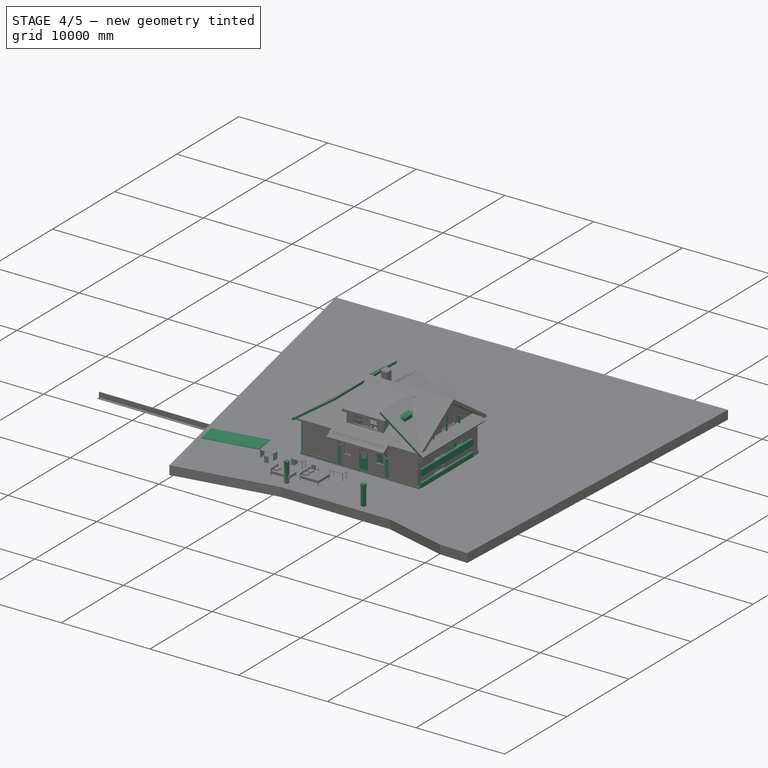
[diagram: stage 4 of 5 — iso view after this stage's code; geometry added in this stage tinted green]
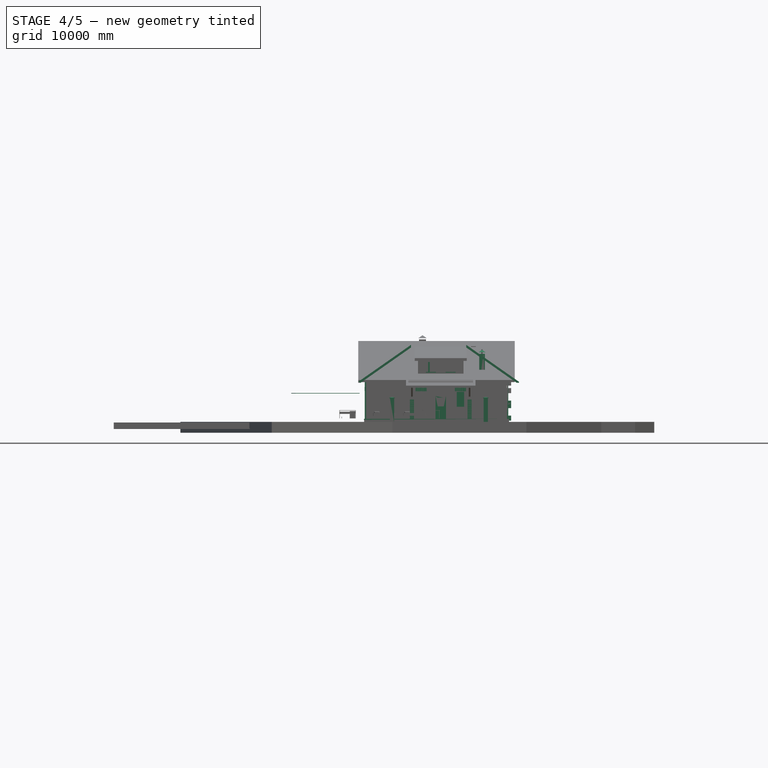
[diagram: stage 4 of 5 — front view after this stage's code; geometry added in this stage tinted green]
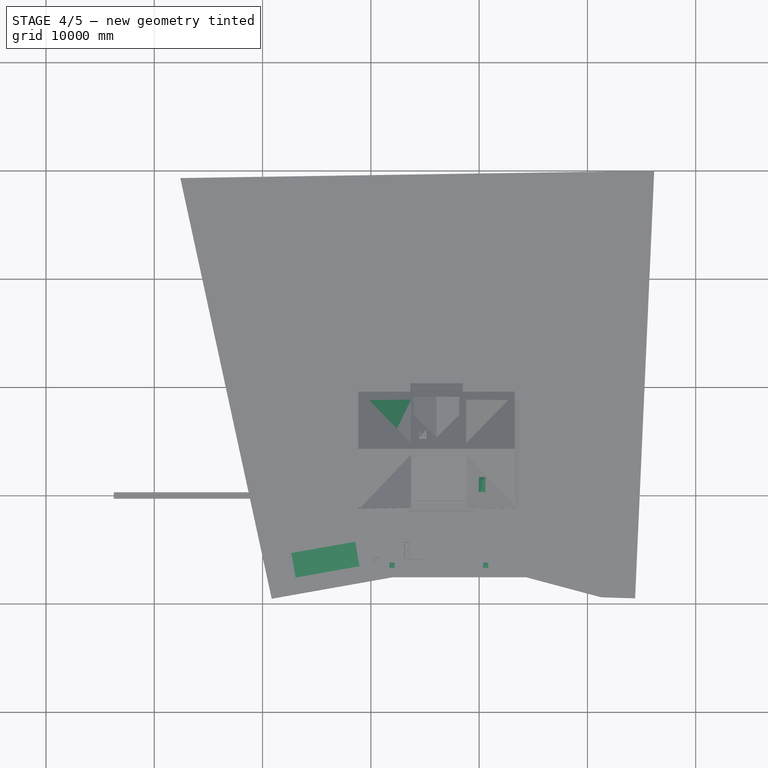
[diagram: stage 4 of 5 — top view after this stage's code; geometry added in this stage tinted green]
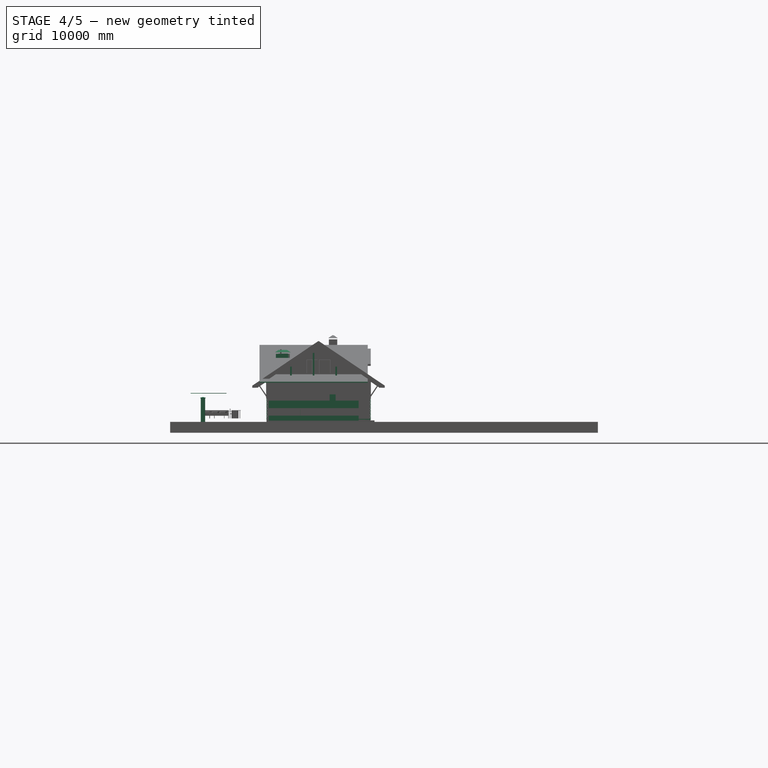
[diagram: stage 4 of 5 — right view after this stage's code; geometry added in this stage tinted green]
FEATURE [App::GeometryPython] BuildingPart035  label="Внешние элементы"  # Arch/BIM 52 (typed FeaturePython)
  Area = 0
  Group = -> [Structure028,Structure029]
  Height = 0
  HeightPropagate = true
  IfcData = complex_attributes={"OwnerHistory": {}, "IsNestedBy": {}, "IsDecomposedBy": {}, "IsDefinedBy": {}, "ObjectPlacement": {}, "Representation":... (+4 chars omitted)
  IfcType = 52
  LevelOffset = 0
FEATURE [Image::ImagePlane] ImagePlane  label="План участка"
  Placement = pos=(1568.88,19724.2,-450) rot=(0,0,1;3.16731rad)
  XSize = 103541
  YSize = 98696.8
FEATURE [Sketcher::SketchObject] Sketch251
  FullyConstrained = true
  Placement = pos=(3120,2945,0) rot=(0.57735,0.57735,0.57735;2.0944rad)
  sketch-geometry (8):
    g0: LineSegment StartX=0 StartY=0 StartZ=0 EndX=900 EndY=0 EndZ=0
    g1: LineSegment StartX=900 StartY=0 StartZ=0 EndX=900 EndY=2150 EndZ=0
    g2: LineSegment StartX=900 StartY=2150 StartZ=0 EndX=0 EndY=2150 EndZ=0
    g3: LineSegment StartX=0 StartY=2150 StartZ=0 EndX=0 EndY=0 EndZ=0
    g4: LineSegment StartX=50 StartY=0 StartZ=0 EndX=850 EndY=0 EndZ=0
    g5: LineSegment StartX=850 StartY=0 StartZ=0 EndX=850 EndY=2100 EndZ=0
    g6: LineSegment StartX=850 StartY=2100 StartZ=0 EndX=50 EndY=2100 EndZ=0
    g7: LineSegment StartX=50 StartY=2100 StartZ=0 EndX=50 EndY=0 EndZ=0
  constraints (23):
    c: Coincident(g0,g1)
    c: Coincident(g1,g2)
    c: Coincident(g2,g3)
    c: Coincident(g3,g0)
    c: Horizontal(g0)
    c: Horizontal(g2)
    c: Vertical(g1)
    c: Vertical(g3)
    c: Coincident(g4,g5)
    c: Coincident(g5,g6)
    c: Coincident(g6,g7)
    c: Coincident(g7,g4)
    c: Horizontal(g4)
    c: Horizontal(g6)
    c: Vertical(g5)
    c: Vertical(g7)
    c: DistanceY(g1) = 2150  'Height'
    c: DistanceX(g0) = 900  'Width'
    c: DistanceY(g6,g2) = 50  'Frame1'
    c: DistanceX(g2,g6) = 50  'Frame2'
    c: DistanceX(g4,g0) = 50  'Frame3'
    c: DistanceY(g0,g4) = 0
    c: Coincident(g0,g-1)
FEATURE [App::FeaturePython] Dimension004  # Draft dimension (typed FeaturePython)
  Diameter = false
  Dimline = (-1600,-1000,0)
  Direction = (0,0,0)
  Distance = 4355
  End = (-1836.7,4120,0)
  Normal = (0,0,1)
  Start = (-1836.7,-235,0)
FEATURE [App::FeaturePython] Dimension006  # Draft dimension (typed FeaturePython)
  Diameter = false
  Dimline = (-1600,3680,0)
  Direction = (0,0,0)
  Distance = 4485
  End = (-1836.7,8605,0)
  Normal = (0,0,1)
  Start = (-1836.7,4120,0)
FEATURE [Part::Part2DObjectPython] Rectangle2392  # Draft 2D object (typed FeaturePython)
  ChamferSize = 0
  Columns = 1
  FilletRadius = 50
  Height = 500
  Length = 400
  MakeFace = false
  Placement = pos=(11660,5515,0) rot=(0,0,1;0rad)
  Rows = 1
FEATURE [Part::Part2DObjectPython] Rectangle2573  label="четверть_530-001"  # Draft 2D object (typed FeaturePython)
  ChamferSize = 0
  Columns = 1
  FilletRadius = 0
  Height = 120
  Length = 790
  MakeFace = true
  Placement = pos=(4240,-555,0) rot=(0,0,1;0rad)
  Rows = 1
FEATURE [Part::Part2DObjectPython] Rectangle2571  label="четверть_105-001"  # Draft 2D object (typed FeaturePython)
  ChamferSize = 0
  Columns = 1
  FilletRadius = 0
  Height = 120
  Length = 1050
  MakeFace = true
  Placement = pos=(5930,-555,0) rot=(0,0,1;0rad)
  Rows = 1
FEATURE [Part::FeaturePython] Structure148  label="Проём_четв._031"  # Arch/BIM 52 (typed FeaturePython)
  Base = -> Rectangle2571
  FaceMaker = 0
  Height = 2552
  HorizontalArea = 126000
  IfcData = complex_attributes={"OwnerHistory": {}, "IsNestedBy": {}, "IsDecomposedBy": {}, "IsDefinedBy": {}, "ObjectPlacement": {}, "Representation":... (+4 chars omitted)
  IfcType = 52
  Length = 0
  MoveBase = false
  MoveWithHost = false
  Nodes = (2) [(5775,-395,0),(5775,-395,2335)]
  NodesOffset = 0
  Normal = (0,0,0)
  PerimeterLength = 2340
  Placement = pos=(0,0,-40) rot=(0,0,1;0rad)
  VerticalArea = 5971680
  Width = 100
FEATURE [Part::Part2DObjectPython] Rectangle556  label="вытяжка осн мал"  # Draft 2D object (typed FeaturePython)
  ChamferSize = 0
  Columns = 1
  FilletRadius = 0
  Height = 400
  Length = 300
  MakeFace = false
  Placement = pos=(11700,4365,1900) rot=(0,0,1;0rad)
  Rows = 1
FEATURE [Part::Box] Box3145  label="ТВ"
  AttacherType = Attacher::AttachEngine3D
  Height = 750
  Length = 1400
  Placement = pos=(4610,7505,620) rot=(0,0,-1;1.5708rad)
  Width = 100
FEATURE [Part::Part2DObjectPython] Rectangle555  label="вытяжка осн бол"  # Draft 2D object (typed FeaturePython)
  ChamferSize = 0
  Columns = 1
  FilletRadius = 0
  Height = 600
  Length = 500
  MakeFace = false
  Placement = pos=(11600,4265,1850) rot=(0,0,1;0rad)
  Rows = 1
FEATURE [Part::Loft] Loft001  label="вытяжка"
  Closed = false
  MaxDegree = 5
  Ruled = false
  Sections = -> [Rectangle555,Rectangle556]
  Solid = true
FEATURE [Part::Feature] Fusion013  label="стул005"
  Placement = pos=(8995,6415,0) rot=(0,0,1;0rad)
  shape: bbox 480 x 520 x 910 mm, 35 faces (baked)
FEATURE [Part::Feature] Fusion014  label="стул006"
  Placement = pos=(9015,6615,0) rot=(0,0,1;0rad)
  shape: bbox 480 x 520 x 910 mm, 35 faces (baked)
FEATURE [Part::Feature] Fusion015  label="стул007"
  Placement = pos=(8977.81,6615,0) rot=(0,0,1;0rad)
  shape: bbox 480 x 520 x 910 mm, 35 faces (baked)
FEATURE [Part::Feature] Fusion016  label="стул008"
  Placement = pos=(8977.81,6412.78,0) rot=(0,0,1;0rad)
  shape: bbox 480 x 520 x 910 mm, 35 faces (baked)
FEATURE [Part::Box] Box3154  label="шкаф 58 одежда 001"
  AttacherType = Attacher::AttachEngine3D
  Height = 2700
  Length = 1780
  Placement = pos=(10060,-25,0) rot=(0,0,1;1.5708rad)
  Width = 550
FEATURE [Part::Box] Box3155  label="шкаф 60 одежда 002"
  AttacherType = Attacher::AttachEngine3D
  Height = 2700
  Length = 1250
  Placement = pos=(8260,1205,0) rot=(0,0,1;0rad)
  Width = 550
FEATURE [Part::Box] Box3156  label="шкаф 60 одежда 003"
  AttacherType = Attacher::AttachEngine3D
  Height = 2700
  Length = 1200
  Placement = pos=(12160,-25,0) rot=(0,0,1;1.5708rad)
  Width = 600
FEATURE [Part::Box] Box3157  label="шкаф 60 одежда 004"
  AttacherType = Attacher::AttachEngine3D
  Height = 2700
  Length = 1050
  Placement = pos=(-30,5730,0) rot=(0,0,1;0rad)
  Width = 600
FEATURE [Part::Box] Box3159  label="ТВ001"
  AttacherType = Attacher::AttachEngine3D
  Height = 750
  Length = 1200
  Placement = pos=(4225,6930,620) rot=(0,0,-1;1.5708rad)
  Width = 75
FEATURE [Part::Box] Box3163  label="обувница"
  AttacherType = Attacher::AttachEngine3D
  Height = 500
  Length = 450
  Placement = pos=(5390,-25,0) rot=(0,0,1;0rad)
  Width = 900
FEATURE [Part::Box] Box3175  label="Холодильник"
  AttacherType = Attacher::AttachEngine3D
  Height = 1600
  Length = 630
  Placement = pos=(12160,8165,0) rot=(0,0,1;3.14159rad)
  Width = 600
FEATURE [Part::Box] Box3179  label="шкаф 60 кухонный 003"
  AttacherType = Attacher::AttachEngine3D
  Height = 800
  Length = 630
  Placement = pos=(11530,7565,1600) rot=(0,0,1;0rad)
  Width = 600
FEATURE [Part::Box] Box3183  label="морозильник 60 см"
  AttacherType = Attacher::AttachEngine3D
  Height = 1800
  Length = 600
  Placement = pos=(11560,1175,0) rot=(0,0,1;0rad)
  Width = 750
FEATURE [Part::Box] Box3184  label="СМ"
  AttacherType = Attacher::AttachEngine3D
  Height = 850
  Length = 600
  Placement = pos=(9690,2045,0) rot=(0,0,1;0rad)
  Width = 600
FEATURE [Part::Box] Box3192  label="кофеварка"
  AttacherType = Attacher::AttachEngine3D
  Height = 250
  Length = 200
  Placement = pos=(12128.3,6746.28,850) rot=(0,0,1;1.5708rad)
  Width = 250
FEATURE [Part::Cylinder] Cylinder001  label="чайник"
  Angle = 360
  AttacherType = Attacher::AttachEngine3D
  Height = 250
  Placement = pos=(12061.3,6647.32,850) rot=(0,0,1;1.5708rad)
  Radius = 75
FEATURE [Part::Box] Box3195  label="шкаф 45 кухонный 003"
  AttacherType = Attacher::AttachEngine3D
  Height = 350
  Length = 3900
  Placement = pos=(12160,4265,2400) rot=(0,0,1;1.5708rad)
  Width = 630
FEATURE [Part::Part2DObjectPython] Rectangle2858  label="четверть_131-001"  # Draft 2D object (typed FeaturePython)
  ChamferSize = 0
  Columns = 1
  FilletRadius = 0
  Height = 120
  Length = 1310
  MakeFace = true
  Placement = pos=(-560,3215,0) rot=(0,0,-1;1.5708rad)
  Rows = 1
FEATURE [Part::Part2DObjectPython] Line1266  label="Line1267"  # Draft 2D object (typed FeaturePython)
  ChamferSize = 0
  Closed = false
  End = (-570,1785,0)
  FilletRadius = 0
  Length = 1550
  MakeFace = true
  Placement = pos=(-570,3335,0) rot=(0,0,-1;1.5708rad)
  Points = (2) [(0,0,0),(1550,-1.36424e-12,0)]
  Start = (-570,3335,0)
  Subdivisions = 0
FEATURE [Part::Part2DObjectPython] Line1271  label="Line1272"  # Draft 2D object (typed FeaturePython)
  ChamferSize = 0
  Closed = true
  End = (7710,1425,0)
  FilletRadius = 0
  Length = 460
  MakeFace = false
  Placement = pos=(10290,4775,0) rot=(0,0,-1;1.5708rad)
  Points = (2) [(3350,-2120,0),(3350,-2580,0)]
  Start = (8170,1425,0)
  Subdivisions = 0
FEATURE [Part::Box] Box3203  label="шкаф подвесной"
  AttacherType = Attacher::AttachEngine3D
  Height = 900
  Length = 450
  Placement = pos=(5390,-25,1800) rot=(0,0,1;0rad)
  Width = 1800
FEATURE [Part::Box] Box3204  label="шкаф 001"
  AttacherType = Attacher::AttachEngine3D
  Height = 2700
  Length = 1465
  Placement = pos=(370,4265,0) rot=(0,0,1;1.5708rad)
  Width = 400
FEATURE [Part::Part2DObjectPython] Circle098  label="Circle099"  # Draft 2D object (typed FeaturePython)
  Area = 0
  FirstAngle = 0
  LastAngle = 0
  MakeFace = false
  Placement = pos=(11979.9,4439.02,0) rot=(0,0,1;0rad)
  Radius = 75
FEATURE [Part::FeaturePython] Array019  # Draft array (typed FeaturePython)
  Angle = 360
  ArrayType = 0
  Axis = (0,0,1)
  Base = -> Circle098
  Center = (0,0,0)
  Fuse = false
  IntervalAxis = (0,0,0)
  IntervalX = (250,0,0)
  IntervalY = (0,250,0)
  IntervalZ = (0,0,1)
  NumberPolar = 1
  NumberX = 2
  NumberY = 2
  NumberZ = 1
  Placement = pos=(-250,0,0) rot=(0,0,1;0rad)
FEATURE [Part::Extrusion] Extrude058  label="Панель индукционная"
  Base = -> Array019
  Dir = (0,0,1)
  DirMode = 2
  FaceMakerClass = Part::FaceMakerBullseye
  LengthFwd = 50
  LengthRev = 0
  Placement = pos=(0,0,810) rot=(0,0,1;0rad)
  Solid = true
  Symmetric = false
FEATURE [Part::Box] Box3217  label="шкаф 60 одежда 005"
  AttacherType = Attacher::AttachEngine3D
  Height = 2700
  Length = 1050
  Placement = pos=(-30,6330,0) rot=(0,0,1;0rad)
  Width = 600
FEATURE [Part::Box] Box3218  label="шкаф 003"
  AttacherType = Attacher::AttachEngine3D
  Height = 2700
  Length = 1465
  Placement = pos=(370,6930,0) rot=(0,0,1;1.5708rad)
  Width = 400
FEATURE [Part::Cylinder] Cylinder002  label="БКН 150л"
  Angle = 360
  AttacherType = Attacher::AttachEngine3D
  Height = 1100
  Placement = pos=(9887.81,3694.11,0) rot=(0,0,1;0rad)
  Radius = 260
FEATURE [Part::Part2DObjectPython] Arc113  label="Arc114"  # Draft 2D object (typed FeaturePython)
  Area = 0
  FirstAngle = 90
  LastAngle = 180
  MakeFace = false
  Placement = pos=(10540,3975,0) rot=(0,0,1;3.14159rad)
  Radius = 800
FEATURE [Part::Box] Box3220  label="Котёл 24кВт одноконтурн. закртытая камера"
  AttacherType = Attacher::AttachEngine3D
  Height = 700
  Length = 400
  Placement = pos=(10160,882.149,1300) rot=(0,0,-1;1.5708rad)
  Width = 300
FEATURE [Part::Cylinder] Cylinder003  label="бак расширительный"
  Angle = 360
  AttacherType = Attacher::AttachEngine3D
  Height = 400
  Placement = pos=(10354,1570.37,2200) rot=(0,0,1;0rad)
  Radius = 175
FEATURE [Part::Box] Box3222  label="грёбенка и насосы"
  AttacherType = Attacher::AttachEngine3D
  Height = 900
  Length = 200
  Placement = pos=(10160,-25,0) rot=(0,0,1;0rad)
  Width = 1780
FEATURE [Part::Box] Box3223  label="Котёл электр. (резерв)"
  AttacherType = Attacher::AttachEngine3D
  Height = 700
  Length = 200
  Placement = pos=(10360,152.149,1300) rot=(0,0,1;1.5708rad)
  Width = 200
FEATURE [Part::Extrusion] Extrude057  label="мойка_вырез"
  Base = -> Rectangle2392
  Dir = (0,0,1)
  DirMode = 0
  FaceMakerClass = Part::FaceMakerBullseye
  LengthFwd = 150
  LengthRev = 0
  Placement = pos=(0,0,700) rot=(0,0,1;0rad)
  Solid = true
  Symmetric = false
FEATURE [Part::Box] Box3224  label="шкаф 60 кухонный 012"
  AttacherType = Attacher::AttachEngine3D
  Height = 850
  Length = 2700
  Placement = pos=(12160,4265,0) rot=(0,0,1;1.5708rad)
  Width = 630
FEATURE [Part::Cut] Cut043  label="Шкаф с мойкой"
  Base = -> Box3224
  Tool = -> Extrude057
FEATURE [Part::Box] Box3227  label="комод"
  AttacherType = Attacher::AttachEngine3D
  Height = 950
  Length = 450
  Placement = pos=(5390,875,0) rot=(0,0,1;0rad)
  Width = 900
FEATURE [Part::Part2DObjectPython] Line1390  # Draft 2D object (typed FeaturePython)
  ChamferSize = 0
  Closed = true
  End = (5300,1825,0)
  FilletRadius = 0
  Length = 530
  MakeFace = false
  Placement = pos=(7425,5335,0) rot=(0,0,-1;1.5708rad)
  Points = (2) [(3510,-1595,0),(3510,-2125,0)]
  Start = (5830,1825,0)
  Subdivisions = 0
FEATURE [Part::FeaturePython] Array063  # Draft array (typed FeaturePython)
  Angle = 360
  ArrayType = 0
  Axis = (0,0,1)
  Base = -> Rectangle3159
  Center = (0,0,0)
  Count = 10
  ExpandArray = false
  Fuse = false
  IntervalAxis = (0,0,0)
  IntervalX = (100,0,0)
  IntervalY = (0,-250,0)
  IntervalZ = (0,0,100)
  NumberCircles = 3
  NumberPolar = 5
  NumberX = 1
  NumberY = 10
  NumberZ = 1
  PlacementList = 10 placements: arithmetic series from (6940,5803.61,0) step (0,-250,0) to (6940,3553.61,0)
  RadialDistance = 50
  ScaleList = (10) [(1,1,1),(1,1,1),(1,1,1),(1,1,1),(1,1,1),(1,1,1),(1,1,1),(1,1,1),(1,1,1),(1,1,1)]
  Symmetry = 1
  TangentialDistance = 25
FEATURE [Part::Part2DObjectPython] Line1391  # Draft 2D object (typed FeaturePython)
  ChamferSize = 0
  Closed = true
  End = (7530,2925,0)
  FilletRadius = 0
  Length = 1740
  MakeFace = false
  Placement = pos=(11350,2920,0) rot=(0,0,-1;1.5708rad)
  Points = (2) [(-5,-2080,0),(-5,-3820,0)]
  Start = (9270,2925,0)
  Subdivisions = 0
FEATURE [Part::Part2DObjectPython] Arc114  label="Arc115"  # Draft 2D object (typed FeaturePython)
  Area = 0
  FirstAngle = 90
  LastAngle = 180
  MakeFace = true
  Placement = pos=(4190,4135,0) rot=(0,0,1;0rad)
  Radius = 800
FEATURE [Part::Part2DObjectPython] Line1394  # Draft 2D object (typed FeaturePython)
  Area = 0
  ChamferSize = 0
  Closed = false
  End = (4190,4135,0)
  FilletRadius = 0
  Length = 800
  MakeFace = true
  Placement = pos=(4190,4935,0) rot=(0,0,1;0rad)
  Points = (2) [(0,0,0),(0,-800,0)]
  Start = (4190,4935,0)
  Subdivisions = 0
FEATURE [Part::Part2DObjectPython] Arc115  label="Arc116"  # Draft 2D object (typed FeaturePython)
  Area = 0
  FirstAngle = -180
  LastAngle = -90
  MakeFace = true
  Placement = pos=(3120,3795,0) rot=(0,0,1;0rad)
  Radius = 800
FEATURE [Part::Part2DObjectPython] Arc116  label="Arc117"  # Draft 2D object (typed FeaturePython)
  Area = 0
  FirstAngle = 180
  LastAngle = 270
  MakeFace = true
  Placement = pos=(4330,2685,0) rot=(0,0,1;1.5708rad)
  Radius = 800
FEATURE [Part::Part2DObjectPython] Line1396  # Draft 2D object (typed FeaturePython)
  Area = 0
  ChamferSize = 0
  Closed = false
  End = (4330,2685,0)
  FilletRadius = 0
  Length = 800
  MakeFace = true
  Placement = pos=(3630,1885,0) rot=(0,0,1;0rad)
  Points = (2) [(700,0,0),(700,800,0)]
  Start = (4330,1885,0)
  Subdivisions = 0
FEATURE [Sketcher::SketchObject] Sketch309
  FullyConstrained = true
  Placement = pos=(7550,1965,0) rot=(0.57735,0.57735,0.57735;2.0944rad)
  sketch-geometry (8):
    g0: LineSegment StartX=0 StartY=0 StartZ=0 EndX=800 EndY=0 EndZ=0
    g1: LineSegment StartX=800 StartY=0 StartZ=0 EndX=800 EndY=2150 EndZ=0
    g2: LineSegment StartX=800 StartY=2150 StartZ=0 EndX=0 EndY=2150 EndZ=0
    g3: LineSegment StartX=0 StartY=2150 StartZ=0 EndX=0 EndY=0 EndZ=0
    g4: LineSegment StartX=50 StartY=0 StartZ=0 EndX=750 EndY=0 EndZ=0
    g5: LineSegment StartX=750 StartY=0 StartZ=0 EndX=750 EndY=2100 EndZ=0
    g6: LineSegment StartX=750 StartY=2100 StartZ=0 EndX=50 EndY=2100 EndZ=0
    g7: LineSegment StartX=50 StartY=2100 StartZ=0 EndX=50 EndY=0 EndZ=0
  constraints (23):
    c: Coincident(g0,g1)
    c: Coincident(g1,g2)
    c: Coincident(g2,g3)
    c: Coincident(g3,g0)
    c: Horizontal(g0)
    c: Horizontal(g2)
    c: Vertical(g1)
    c: Vertical(g3)
    c: Coincident(g4,g5)
    c: Coincident(g5,g6)
    c: Coincident(g6,g7)
    c: Coincident(g7,g4)
    c: Horizontal(g4)
    c: Horizontal(g6)
    c: Vertical(g5)
    c: Vertical(g7)
    c: DistanceY(g1) = 2150  'Height'
    c: DistanceX(g0) = 800  'Width'
    c: DistanceY(g6,g2) = 50  'Frame1'
    c: DistanceX(g2,g6) = 50  'Frame2'
    c: DistanceX(g4,g0) = 50  'Frame3'
    c: DistanceY(g0,g4) = 0
    c: Coincident(g0,g-1)
FEATURE [Part::Part2DObjectPython] Arc118  label="Arc119"  # Draft 2D object (typed FeaturePython)
  Area = 0
  FirstAngle = 0
  LastAngle = 90
  MakeFace = true
  Placement = pos=(7550,2715,0) rot=(0,0,-1;1.5708rad)
  Radius = 700
FEATURE [Part::Part2DObjectPython] Line1398  # Draft 2D object (typed FeaturePython)
  Area = 0
  ChamferSize = 0
  Closed = false
  End = (8250,2715,0)
  FilletRadius = 0
  Length = 700
  MakeFace = true
  Placement = pos=(7550,2715,0) rot=(0,0,1;3.14159rad)
  Points = (2) [(0,0,0),(-700,9.09495e-13,0)]
  Start = (7550,2715,0)
  Subdivisions = 0
FEATURE [Part::Part2DObjectPython] Line1400  # Draft 2D object (typed FeaturePython)
  Area = 0
  ChamferSize = 0
  Closed = false
  End = (10540,3975,0)
  FilletRadius = 0
  Length = 800
  MakeFace = true
  Placement = pos=(10540,3030,0) rot=(0,0,1;3.14159rad)
  Points = (2) [(0,-145,0),(0,-945,0)]
  Start = (10540,3175,0)
  Subdivisions = 0
FEATURE [Part::Part2DObjectPython] Rectangle3176  label="Контур по блоку ЛСР38 внешний"  # Draft 2D object (typed FeaturePython)
  Area = 0
  ChamferSize = 0
  Columns = 1
  FilletRadius = 0
  Height = 9220
  Length = 12990
  MakeFace = false
  Placement = pos=(-430,-425,0) rot=(0,0,1;0rad)
  Rows = 1
FEATURE [Part::Part2DObjectPython] Wire808  # Draft 2D object (typed FeaturePython)
  Area = 1.44e+06
  ChamferSize = 0
  Closed = true
  End = (3280,1775,0)
  FilletRadius = 0
  Length = 5200
  MakeFace = true
  Placement = pos=(3950,2650,0) rot=(0,0,1;3.14159rad)
  Points = (4) [(-130,875,0),(-130,2675,0),(670,2675,0),(670,875,0)]
  Start = (4080,1775,0)
  Subdivisions = 0
FEATURE [Part::Part2DObjectPython] Wire809  # Draft 2D object (typed FeaturePython)
  Area = 0
  ChamferSize = 0
  Closed = true
  End = (3355,1675,0)
  FilletRadius = 0
  Length = 4500
  MakeFace = false
  Placement = pos=(3795,2605,0) rot=(0,0,1;3.14159rad)
  Points = (4) [(-210,930,0),(-210,2530,0),(440,2530,0),(440,930,0)]
  Start = (4005,1675,0)
  Subdivisions = 0
FEATURE [Part::FeaturePython] Structure342  label="Структура006"  # Arch/BIM 52 (typed FeaturePython)
  Base = -> Wire809
  FaceMaker = 0
  Height = 450
  HorizontalArea = 1.04e+06
  IfcData = attributes={"GlobalId": {"name": "GlobalId", "type": "IfcGloballyUniqueId", "is_enum": false, "enum_values": []}, "Description": {"... (+484 chars omitted),+1 more (map truncated)
  IfcType = 52
  Length = 0
  MoveBase = false
  MoveWithHost = false
  Nodes = (2) [(6409.93,5722.83,0),(6409.93,5722.83,450)]
  NodesOffset = 0
  Normal = (0,0,1)
  PerimeterLength = 4500
  Placement = pos=(0,0,150) rot=(0,0,1;0rad)
  VerticalArea = 2.025e+06
  Width = 100
FEATURE [Part::Box] Box3229  label="шкаф 60 кухонный 013"
  AttacherType = Attacher::AttachEngine3D
  Height = 800
  Length = 600
  Placement = pos=(12160,6965,1600) rot=(0,0,1;1.5708rad)
  Width = 630
FEATURE [Part::Box] Box3232  label="МВ_002"
  AttacherType = Attacher::AttachEngine3D
  Height = 350
  Length = 500
  Placement = pos=(12030,7555,1000) rot=(0,0,1;3.14159rad)
  Width = 580
FEATURE [Part::Box] Box3233  label="ДШ_002"
  AttacherType = Attacher::AttachEngine3D
  Height = 500
  Length = 500
  Placement = pos=(12030,7555,450) rot=(0,0,1;3.14159rad)
  Width = 580
FEATURE [Part::Part2DObjectPython] Rectangle3200  label="четверть_183-003"  # Draft 2D object (typed FeaturePython)
  ChamferSize = 0
  Columns = 1
  FilletRadius = 0
  Height = 120
  Length = 1310
  MakeFace = true
  Placement = pos=(1770,8805,0) rot=(0,0,1;0rad)
  Rows = 1
FEATURE [Part::Part2DObjectPython] Rectangle3201  label="четверть_790-002"  # Draft 2D object (typed FeaturePython)
  ChamferSize = 0
  Columns = 1
  FilletRadius = 0
  Height = 120
  Length = 1830
  MakeFace = true
  Placement = pos=(5150,8805,0) rot=(0,0,1;0rad)
  Rows = 1
FEATURE [Part::Part2DObjectPython] Rectangle3202  label="четверть_183-002"  # Draft 2D object (typed FeaturePython)
  ChamferSize = 0
  Columns = 1
  FilletRadius = 0
  Height = 120
  Length = 1310
  MakeFace = true
  Placement = pos=(9050,8805,0) rot=(0,0,1;0rad)
  Rows = 1
FEATURE [Part::FeaturePython] Structure350  label="Проём_четв._044"  # Arch/BIM 52 (typed FeaturePython)
  Base = -> Rectangle3202
  FaceMaker = 0
  Height = 2552
  HorizontalArea = 157200
  IfcData = complex_attributes={"OwnerHistory": {}, "IsNestedBy": {}, "IsDecomposedBy": {}, "IsDefinedBy": {}, "ObjectPlacement": {}, "Representation":... (+4 chars omitted)
  IfcType = 52
  Length = 0
  MoveBase = false
  MoveWithHost = false
  Nodes = (2) [(5775,-395,0),(5775,-395,2335)]
  NodesOffset = 0
  Normal = (0,0,0)
  PerimeterLength = 2860
  Placement = pos=(0,0,-40) rot=(0,0,1;0rad)
  VerticalArea = 7298720
  Width = 100
FEATURE [App::FeaturePython] Dimension024  # Draft dimension (typed FeaturePython)
  Diameter = false
  Dimline = (7490,-1500,0)
  Direction = (0,0,0)
  Distance = 2730
  End = (10220,-2107.94,0)
  Normal = (0,0,1)
  Start = (7490,-2107.94,0)
FEATURE [TechDraw::DrawSVGTemplate] Template001
  EditableTexts = Лист=6; Номер=ИЖС-2022.0001
  Height = 297
  Orientation = 1
  Width = 420
FEATURE [App::MaterialObjectPython] Material  label="Wood"  # material (typed FeaturePython)
  Description = A standard construction wood
  Material = AuthorAndLicense=Wood-Generic,CardName=Wood-Generic,Color=(1.0, 0.8196078431372549, 0.0, 1.0),Density=700 kg/m^3,+10 more (map truncated)
  ProductURL = https://en.wikipedia.org/wiki/Wood
  Transparency = 0
FEATURE [Part::FeaturePython] Wall057  label="мауэрлат"  # Arch/BIM 166 (typed FeaturePython)
  Align = 0
  Area = 6183000
  Base = -> Rectangle2788
  BlockHeight = 0
  BlockLength = 0
  CountBroken = 0
  CountEntire = 0
  Face = 0
  GlobalId = 1B71KP0Y9AOfuyJlUXW0eC
  Height = 150
  HorizontalArea = 6.453e+06
  IfcData = IfcUID=1B71KP0Y9AOfuyJlUXW0eC; attributes={"GlobalId": {"value": "1B71KP0Y9AOfuyJlUXW0eC"}}
  IfcType = 166
  Joint = 0
  Length = 41220
  MakeBlocks = false
  Material = -> Material
  MoveBase = false
  MoveWithHost = false
  Normal = (0,0,0)
  Offset = 150
  OffsetFirst = 0
  OffsetSecond = 0
  PerimeterLength = 43620
  Placement = pos=(0,0,3633) rot=(0,0,1;0rad)
  PredefinedType = 0
  VerticalArea = 12906000
  Width = 150
FEATURE [App::GeometryPython] BuildingPart018  label="Стропильная система"  # Arch/BIM 52 (typed FeaturePython)
  Area = 3.746e+06
  Group = -> [BuildingPart044,Common028,Wall064,Common029,Common030,Cut025,Cut029,Wall145,Common031,Common032,Cut035]
  Height = 0
  HeightPropagate = true
  IfcData = complex_attributes={"OwnerHistory": {}, "IsNestedBy": {}, "IsDecomposedBy": {}, "IsDefinedBy": {}, "ObjectPlacement": {}, "Representation":... (+4 chars omitted)
  IfcType = 52
  LevelOffset = 0
FEATURE [Part::FeaturePython] Structure368  label="Стяжка тёплого пола  80 мм 001"  # Arch/BIM 52 (typed FeaturePython)
  Base = -> Rectangle2169
  FaceMaker = 0
  GlobalId = 22FHYXjNfD0ge3TUS_JU1i
  Height = 80
  HorizontalArea = 430500
  IfcData = IfcUID=22FHYXjNfD0ge3TUS_JU1i,attributes={"GlobalId": {"value": "22FHYXjNfD0ge3TUS_JU1i"}},+1 more (map truncated)
  IfcType = 52
  Length = 0
  Material = -> Material001
  MoveBase = false
  MoveWithHost = false
  Nodes = (2) [(6455,-230,0),(6455,-230,80)]
  NodesOffset = 0
  Normal = (0,0,1)
  PerimeterLength = 2920
  Placement = pos=(0,0,-100) rot=(0,0,1;0rad)
  VerticalArea = 233600
  Width = 100
FEATURE [Part::FeaturePython] Structure371  label="Стяжка тёплого пола  80 мм 008"  # Arch/BIM 52 (typed FeaturePython)
  Base = -> Rectangle3079
  FaceMaker = 0
  GlobalId = 1aGZ9vCCD9wP_BshGDICol
  Height = 80
  HorizontalArea = 590400
  IfcData = IfcUID=1aGZ9vCCD9wP_BshGDICol,attributes={"GlobalId": {"value": "1aGZ9vCCD9wP_BshGDICol"}},+1 more (map truncated)
  IfcType = 52
  Length = 0
  Material = -> Material001
  MoveBase = false
  MoveWithHost = false
  Nodes = (2) [(4000,4250,0),(4000,4250,100)]
  NodesOffset = 0
  Normal = (0,0,1)
  PerimeterLength = 3700
  Placement = pos=(0,0,-100) rot=(0,0,1;0rad)
  VerticalArea = 296000
  Width = 100
FEATURE [Part::FeaturePython] Structure374  label="покрытие пола 20мм 001"  # Arch/BIM 52 (typed FeaturePython)
  Base = -> Rectangle2169
  FaceMaker = 0
  GlobalId = 2zjFlxA7P7zeUfdNFV2euI
  Height = 20
  HorizontalArea = 430500
  IfcData = IfcUID=2zjFlxA7P7zeUfdNFV2euI,attributes={"GlobalId": {"value": "2zjFlxA7P7zeUfdNFV2euI"}},+1 more (map truncated)
  IfcType = 52
  Length = 0
  Material = -> Material001
  MoveBase = false
  MoveWithHost = false
  Nodes = (2) [(6455,-230,0),(6455,-230,20)]
  NodesOffset = 0
  Normal = (0,0,1)
  PerimeterLength = 2920
  Placement = pos=(0,0,-20) rot=(0,0,1;0rad)
  VerticalArea = 58400
  Width = 20
FEATURE [Part::FeaturePython] Structure377  label="покрытие пола 20мм 003"  # Arch/BIM 52 (typed FeaturePython)
  Base = -> Rectangle3079
  FaceMaker = 0
  GlobalId = 2T3KnpypPEbv6OyL_zSjC5
  Height = 20
  HorizontalArea = 590400
  IfcData = IfcUID=2T3KnpypPEbv6OyL_zSjC5,attributes={"GlobalId": {"value": "2T3KnpypPEbv6OyL_zSjC5"}},+1 more (map truncated)
  IfcType = 52
  Length = 0
  Material = -> Material001
  MoveBase = false
  MoveWithHost = false
  Nodes = (2) [(4000,4250,0),(4000,4250,100)]
  NodesOffset = 0
  Normal = (0,0,1)
  PerimeterLength = 3700
  Placement = pos=(0,0,-20) rot=(0,0,1;0rad)
  VerticalArea = 74000
  Width = 20
FEATURE [App::MaterialObjectPython] Material002  label="XPS"  # material (typed FeaturePython)
  Description = XPS
  Material = AuthorAndLicense=ABS-Generic,CardName=ABS-Generic,Color=(0.9411764705882353, 0.5450980392156862, 0.5686274509803921, 1.0),Density=1060 kg/m^3,+15 more (map truncated)
  Transparency = 0
FEATURE [Part::FeaturePython] Structure066  label="утепление пола в проёмах XPS 100mm 001"  # Arch/BIM 52 (typed FeaturePython)
  Base = -> Rectangle3079
  FaceMaker = 0
  GlobalId = 3EKnpUeW1ADw6RKJbe9Fmo
  Height = 100
  HorizontalArea = 590400
  IfcData = IfcUID=3EKnpUeW1ADw6RKJbe9Fmo,attributes={"GlobalId": {"value": "3EKnpUeW1ADw6RKJbe9Fmo"}},+1 more (map truncated)
  IfcType = 52
  Length = 0
  Material = -> Material002
  MoveBase = false
  MoveWithHost = false
  Nodes = (2) [(4000,4250,0),(4000,4250,100)]
  NodesOffset = 0
  Normal = (0,0,1)
  PerimeterLength = 3700
  Placement = pos=(0,0,-200) rot=(0,0,1;0rad)
  VerticalArea = 370000
  Width = 100
FEATURE [Part::FeaturePython] Structure069  label="утепление пола в проёмах XPS 100mm 002"  # Arch/BIM 52 (typed FeaturePython)
  Base = -> Rectangle2169
  FaceMaker = 0
  GlobalId = 3Shc3AjDz99AkEi1PjraMs
  Height = 100
  HorizontalArea = 430500
  IfcData = IfcUID=3Shc3AjDz99AkEi1PjraMs,attributes={"GlobalId": {"value": "3Shc3AjDz99AkEi1PjraMs"}},+1 more (map truncated)
  IfcType = 52
  Length = 0
  Material = -> Material002
  MoveBase = false
  MoveWithHost = false
  Nodes = (2) [(6455,-230,0),(6455,-230,100)]
  NodesOffset = 0
  Normal = (0,0,1)
  PerimeterLength = 2920
  Placement = pos=(0,0,-200) rot=(0,0,1;0rad)
  VerticalArea = 292000
  Width = 100
FEATURE [App::MaterialObjectPython] Material003  label="Red brick"  # material (typed FeaturePython)
  Description = A standard red brick
  Material = AuthorAndLicense=Concrete-Generic,CardName=Concrete-Generic,Color=(0.788235294117647, 0.2980392156862745, 0.18823529411764706, 1.0),+11 more (map truncated)
  Transparency = 0
FEATURE [Part::FeaturePython] Wall120  label="Перемычка облицовки 014"  # Arch/BIM 166 (typed FeaturePython)
  Align = 2
  Area = 565750
  Base = -> Line1187
  BlockHeight = 250
  BlockLength = 64
  CountBroken = 23
  CountEntire = 19
  Face = 0
  GlobalId = 2CDkG$u1H6yg879o_wXiaT
  Height = 365
  HorizontalArea = 0
  IfcData = IfcUID=2CDkG$u1H6yg879o_wXiaT; attributes={"GlobalId": {"value": "2CDkG$u1H6yg879o_wXiaT"}}
  IfcType = 166
  Joint = 10
  Length = 1550
  MakeBlocks = true
  Material = -> Material003
  MoveBase = false
  MoveWithHost = false
  Normal = (0,0,1)
  OffsetFirst = 0
  OffsetSecond = 0
  PerimeterLength = 0
  Placement = pos=(0,0,2285) rot=(0,0,1;0rad)
  PredefinedType = 0
  VerticalArea = 0
  Width = 10
FEATURE [Part::FeaturePython] Wall121  label="Перемычка облицовки 015"  # Arch/BIM 166 (typed FeaturePython)
  Align = 2
  Area = 565750
  Base = -> Line1186
  BlockHeight = 250
  BlockLength = 67
  CountBroken = 22
  CountEntire = 18
  Face = 0
  GlobalId = 3Y7MnwAmX628ZvBXKl4dyB
  Height = 365
  HorizontalArea = 0
  IfcData = IfcUID=3Y7MnwAmX628ZvBXKl4dyB; attributes={"GlobalId": {"value": "3Y7MnwAmX628ZvBXKl4dyB"}}
  IfcType = 166
  Joint = 10
  Length = 1550
  MakeBlocks = true
  Material = -> Material003
  MoveBase = false
  MoveWithHost = false
  Normal = (0,0,1)
  OffsetFirst = 0
  OffsetSecond = 0
  PerimeterLength = 0
  Placement = pos=(0,0,2510) rot=(0,0,1;0rad)
  PredefinedType = 0
  VerticalArea = 0
  Width = 10
FEATURE [Part::FeaturePython] Wall123  label="Перемычка облицовки 017"  # Arch/BIM 166 (typed FeaturePython)
  Align = 2
  Area = 375950
  Base = -> Line1184
  BlockHeight = 250
  BlockLength = 63
  CountBroken = 16
  CountEntire = 12
  Face = 0
  GlobalId = 3lCsDqyJL5KvboFIYAEUQo
  Height = 365
  HorizontalArea = 0
  IfcData = IfcUID=3lCsDqyJL5KvboFIYAEUQo; attributes={"GlobalId": {"value": "3lCsDqyJL5KvboFIYAEUQo"}}
  IfcType = 166
  Joint = 10
  Length = 1030
  MakeBlocks = true
  Material = -> Material003
  MoveBase = false
  MoveWithHost = false
  Normal = (0,0,1)
  OffsetFirst = 0
  OffsetSecond = 0
  PerimeterLength = 0
  Placement = pos=(0,0,2510) rot=(0,0,1;0rad)
  PredefinedType = 0
  VerticalArea = 0
  Width = 10
FEATURE [Part::FeaturePython] Wall124  label="Перемычка облицовки 018"  # Arch/BIM 166 (typed FeaturePython)
  Align = 2
  Area = 375950
  Base = -> Line1191
  BlockHeight = 250
  BlockLength = 63
  CountBroken = 16
  CountEntire = 12
  Face = 0
  GlobalId = 07ToIk0b17KwOPIvB7CAEx
  Height = 365
  HorizontalArea = 0
  IfcData = IfcUID=07ToIk0b17KwOPIvB7CAEx; attributes={"GlobalId": {"value": "07ToIk0b17KwOPIvB7CAEx"}}
  IfcType = 166
  Joint = 10
  Length = 1030
  MakeBlocks = true
  Material = -> Material003
  MoveBase = false
  MoveWithHost = false
  Normal = (0,0,1)
  OffsetFirst = 0
  OffsetSecond = 0
  PerimeterLength = 0
  Placement = pos=(0,0,2510) rot=(0,0,1;0rad)
  PredefinedType = 0
  VerticalArea = 0
  Width = 10
FEATURE [Part::FeaturePython] Wall159  label="Перемычка облицовки 019"  # Arch/BIM 166 (typed FeaturePython)
  Align = 2
  Area = 565750
  Base = -> Line1266
  BlockHeight = 250
  BlockLength = 64
  CountBroken = 23
  CountEntire = 19
  Face = 0
  GlobalId = 0T7dyAI05B38PZhXyjg8rR
  Height = 365
  HorizontalArea = 0
  IfcData = IfcUID=0T7dyAI05B38PZhXyjg8rR; attributes={"GlobalId": {"value": "0T7dyAI05B38PZhXyjg8rR"}}
  IfcType = 166
  Joint = 10
  Length = 1550
  MakeBlocks = true
  Material = -> Material003
  MoveBase = false
  MoveWithHost = false
  Normal = (0,0,1)
  OffsetFirst = 0
  OffsetSecond = 0
  PerimeterLength = 0
  Placement = pos=(0,0,2510) rot=(0,0,1;0rad)
  PredefinedType = 0
  VerticalArea = 0
  Width = 10
FEATURE [Part::FeaturePython] Wall255  label="облицовка ВШ  001"  # Arch/BIM 166 (typed FeaturePython)
  Align = 0
  Area = 1140000
  Base = -> Line1468
  BlockHeight = 65
  BlockLength = 250
  CountBroken = 60
  CountEntire = 20
  Face = 0
  GlobalId = 0NV5Z8QsLE8RP4h00TMdTp
  Height = 3000
  HorizontalArea = 45600
  IfcData = IfcUID=0NV5Z8QsLE8RP4h00TMdTp; attributes={"GlobalId": {"value": "0NV5Z8QsLE8RP4h00TMdTp"}}
  IfcType = 166
  Joint = 10
  Length = 380
  MakeBlocks = false
  Material = -> Material003
  MoveBase = false
  MoveWithHost = false
  Normal = (0,0,0)
  OffsetFirst = 0
  OffsetSecond = 120
  PerimeterLength = 1000
  Placement = pos=(0,0,2960) rot=(0,0,1;0rad)
  PredefinedType = 0
  VerticalArea = 3000000
  Width = 120
FEATURE [Part::FeaturePython] Wall256  label="облицовка ВШ  002"  # Arch/BIM 166 (typed FeaturePython)
  Align = 0
  Area = 1140000
  Base = -> Line1469
  BlockHeight = 65
  BlockLength = 250
  CountBroken = 60
  CountEntire = 20
  Face = 0
  GlobalId = 2TkovYGMD8r9zraP45mHkR
  Height = 3000
  HorizontalArea = 45600
  IfcData = IfcUID=2TkovYGMD8r9zraP45mHkR; attributes={"GlobalId": {"value": "2TkovYGMD8r9zraP45mHkR"}}
  IfcType = 166
  Joint = 10
  Length = 380
  MakeBlocks = false
  Material = -> Material003
  MoveBase = false
  MoveWithHost = false
  Normal = (0,0,0)
  OffsetFirst = 0
  OffsetSecond = 120
  PerimeterLength = 1000
  Placement = pos=(0,0,2960) rot=(0,0,1;0rad)
  PredefinedType = 0
  VerticalArea = 3000000
  Width = 120
FEATURE [Part::FeaturePython] Wall257  label="облицовка ВШ  003"  # Arch/BIM 166 (typed FeaturePython)
  Align = 0
  Area = 3480000
  Base = -> Line1470
  BlockHeight = 65
  BlockLength = 250
  CountBroken = 60
  CountEntire = 140
  Face = 0
  GlobalId = 0woF2TLZD1r929WxYa3eSK
  Height = 3000
  HorizontalArea = 139200
  IfcData = IfcUID=0woF2TLZD1r929WxYa3eSK; attributes={"GlobalId": {"value": "0woF2TLZD1r929WxYa3eSK"}}
  IfcType = 166
  Joint = 10
  Length = 1160
  MakeBlocks = false
  Material = -> Material003
  MoveBase = false
  MoveWithHost = false
  Normal = (0,0,0)
  OffsetFirst = 0
  OffsetSecond = 120
  PerimeterLength = 2560
  Placement = pos=(0,0,2960) rot=(0,0,1;0rad)
  PredefinedType = 0
  VerticalArea = 7680000
  Width = 120
FEATURE [Part::FeaturePython] Wall258  label="облицовка ВШ  004"  # Arch/BIM 166 (typed FeaturePython)
  Align = 0
  Area = 3.48e+06
  Base = -> Line1471
  BlockHeight = 65
  BlockLength = 250
  CountBroken = 60
  CountEntire = 140
  Face = 0
  GlobalId = 0uV1Y0I5TBPurrni9deYxv
  Height = 3000
  HorizontalArea = 139200
  IfcData = IfcUID=0uV1Y0I5TBPurrni9deYxv; attributes={"GlobalId": {"value": "0uV1Y0I5TBPurrni9deYxv"}}
  IfcType = 166
  Joint = 10
  Length = 1160
  MakeBlocks = false
  Material = -> Material003
  MoveBase = false
  MoveWithHost = false
  Normal = (0,0,0)
  OffsetFirst = 0
  OffsetSecond = 120
  PerimeterLength = 2560
  Placement = pos=(0,0,2960) rot=(0,0,1;0rad)
  PredefinedType = 0
  VerticalArea = 7.68e+06
  Width = 120
FEATURE [Part::FeaturePython] Wall206  label="Стена021"  # Arch/BIM 166 (typed FeaturePython)
  Align = 0
  Area = 1831830
  Base = -> Line1343
  BlockHeight = 231
  BlockLength = 256
  CountBroken = 1
  CountEntire = 30
  Face = 0
  Height = 231
  HorizontalArea = 0
  IfcData = attributes={"GlobalId": {"name": "GlobalId", "type": "IfcGloballyUniqueId", "is_enum": false, "enum_values": []}, "Description": {"... (+533 chars omitted),+1 more (map truncated)
  IfcType = 166
  Joint = 0
  Length = 7930
  MakeBlocks = true
  Material = -> Material004
  MoveBase = false
  MoveWithHost = false
  Normal = (0,0,0)
  OffsetFirst = 0
  OffsetSecond = 0
  PerimeterLength = 0
  Placement = pos=(0,0,31) rot=(0,0,1;0rad)
  PredefinedType = 0
  VerticalArea = 0
  Width = 380
FEATURE [Part::FeaturePython] Wall207  label="Стена022"  # Arch/BIM 166 (typed FeaturePython)
  Align = 1
  Area = 1831830
  Base = -> Line1342
  BlockHeight = 231
  BlockLength = 256
  CountBroken = 1
  CountEntire = 30
  Face = 0
  Height = 231
  HorizontalArea = 0
  IfcData = attributes={"GlobalId": {"name": "GlobalId", "type": "IfcGloballyUniqueId", "is_enum": false, "enum_values": []}, "Description": {"... (+533 chars omitted),+1 more (map truncated)
  IfcType = 166
  Joint = 0
  Length = 7930
  MakeBlocks = true
  Material = -> Material004
  MoveBase = false
  MoveWithHost = false
  Normal = (0,0,0)
  OffsetFirst = 0
  OffsetSecond = 0
  PerimeterLength = 0
  Placement = pos=(0,0,-200) rot=(0,0,1;0rad)
  PredefinedType = 0
  VerticalArea = 0
  Width = 380
FEATURE [Part::FeaturePython] Wall208  label="Стена023"  # Arch/BIM 166 (typed FeaturePython)
  Align = 1
  Area = 3003000
  Base = -> Line1349
  BlockHeight = 231
  BlockLength = 255
  CountBroken = 1
  CountEntire = 50
  Face = 0
  Height = 231
  HorizontalArea = 0
  IfcData = attributes={"GlobalId": {"name": "GlobalId", "type": "IfcGloballyUniqueId", "is_enum": false, "enum_values": []}, "Description": {"... (+533 chars omitted),+1 more (map truncated)
  IfcType = 166
  Joint = 0
  Length = 13000
  MakeBlocks = true
  Material = -> Material004
  MoveBase = false
  MoveWithHost = false
  Normal = (0,0,0)
  OffsetFirst = 0
  OffsetSecond = 0
  PerimeterLength = 0
  Placement = pos=(0,0,-200) rot=(0,0,1;0rad)
  PredefinedType = 0
  Subtractions = -> [Structure308]
  VerticalArea = 0
  Width = 380
FEATURE [Part::FeaturePython] Wall209  label="Стена024"  # Arch/BIM 166 (typed FeaturePython)
  Align = 1
  Area = 3003000
  Base = -> Line1340
  BlockHeight = 231
  BlockLength = 255
  CountBroken = 3
  CountEntire = 44
  Face = 0
  Height = 231
  HorizontalArea = 0
  IfcData = attributes={"GlobalId": {"name": "GlobalId", "type": "IfcGloballyUniqueId", "is_enum": false, "enum_values": []}, "Description": {"... (+533 chars omitted),+1 more (map truncated)
  IfcType = 166
  Joint = 0
  Length = 13000
  MakeBlocks = true
  Material = -> Material004
  MoveBase = false
  MoveWithHost = false
  Normal = (0,0,0)
  OffsetFirst = 0
  OffsetSecond = 0
  PerimeterLength = 0
  Placement = pos=(0,0,-200) rot=(0,0,1;0rad)
  PredefinedType = 0
  Subtractions = -> [Structure019]
  VerticalArea = 0
  Width = 380
FEATURE [Part::FeaturePython] Wall210  label="Стена025"  # Arch/BIM 166 (typed FeaturePython)
  Align = 0
  Area = 3003000
  Base = -> Line1350
  BlockHeight = 231
  BlockLength = 255
  CountBroken = 1
  CountEntire = 50
  Face = 0
  Height = 231
  HorizontalArea = 0
  IfcData = attributes={"GlobalId": {"name": "GlobalId", "type": "IfcGloballyUniqueId", "is_enum": false, "enum_values": []}, "Description": {"... (+533 chars omitted),+1 more (map truncated)
  IfcType = 166
  Joint = 0
  Length = 13000
  MakeBlocks = true
  Material = -> Material004
  MoveBase = false
  MoveWithHost = false
  Normal = (0,0,0)
  OffsetFirst = 0
  OffsetSecond = 0
  PerimeterLength = 0
  Placement = pos=(0,0,31) rot=(0,0,1;0rad)
  PredefinedType = 0
  Subtractions = -> [Structure308]
  VerticalArea = 0
  Width = 380
FEATURE [Part::FeaturePython] Wall211  label="Стена026"  # Arch/BIM 166 (typed FeaturePython)
  Align = 0
  Area = 1.83183e+06
  Base = -> Line1347
  BlockHeight = 231
  BlockLength = 256
  CountBroken = 1
  CountEntire = 30
  Face = 0
  Height = 231
  HorizontalArea = 0
  IfcData = attributes={"GlobalId": {"name": "GlobalId", "type": "IfcGloballyUniqueId", "is_enum": false, "enum_values": []}, "Description": {"... (+533 chars omitted),+1 more (map truncated)
  IfcType = 166
  Joint = 0
  Length = 7930
  MakeBlocks = true
  Material = -> Material004
  MoveBase = false
  MoveWithHost = false
  Normal = (0,0,0)
  OffsetFirst = 0
  OffsetSecond = 0
  PerimeterLength = 0
  Placement = pos=(0,0,31) rot=(0,0,1;0rad)
  PredefinedType = 0
  VerticalArea = 0
  Width = 380
FEATURE [Part::FeaturePython] Wall212  label="Стена027"  # Arch/BIM 166 (typed FeaturePython)
  Align = 0
  Area = 3003000
  Base = -> Line1351
  BlockHeight = 231
  BlockLength = 255
  CountBroken = 3
  CountEntire = 45
  Face = 0
  Height = 231
  HorizontalArea = 0
  IfcData = attributes={"GlobalId": {"name": "GlobalId", "type": "IfcGloballyUniqueId", "is_enum": false, "enum_values": []}, "Description": {"... (+533 chars omitted),+1 more (map truncated)
  IfcType = 166
  Joint = 0
  Length = 13000
  MakeBlocks = true
  Material = -> Material004
  MoveBase = false
  MoveWithHost = false
  Normal = (0,0,0)
  OffsetFirst = 0
  OffsetSecond = 0
  PerimeterLength = 0
  Placement = pos=(0,0,31) rot=(0,0,1;0rad)
  PredefinedType = 0
  Subtractions = -> [Structure019]
  VerticalArea = 0
  Width = 380
FEATURE [App::GeometryPython] BuildingPart072  label="ряд 2"  # Arch/BIM 52 (typed FeaturePython)
  Area = 9669660
  Group = -> [Wall212,Wall210,Wall211,Wall206]
  Height = 0
  HeightPropagate = true
  IfcData = attributes={"GlobalId": {"name": "GlobalId", "type": "IfcGloballyUniqueId", "is_enum": false, "enum_values": []}, "Description": {"... (+484 chars omitted),+1 more (map truncated)
  IfcType = 52
  LevelOffset = 0
FEATURE [Part::FeaturePython] Wall213  label="Стена028"  # Arch/BIM 166 (typed FeaturePython)
  Align = 1
  Area = 1831830
  Base = -> Line1341
  BlockHeight = 231
  BlockLength = 256
  CountBroken = 1
  CountEntire = 30
  Face = 0
  Height = 231
  HorizontalArea = 0
  IfcData = attributes={"GlobalId": {"name": "GlobalId", "type": "IfcGloballyUniqueId", "is_enum": false, "enum_values": []}, "Description": {"... (+533 chars omitted),+1 more (map truncated)
  IfcType = 166
  Joint = 0
  Length = 7930
  MakeBlocks = true
  Material = -> Material004
  MoveBase = false
  MoveWithHost = false
  Normal = (0,0,0)
  OffsetFirst = 0
  OffsetSecond = 0
  PerimeterLength = 0
  Placement = pos=(0,0,-200) rot=(0,0,1;0rad)
  PredefinedType = 0
  VerticalArea = 0
  Width = 380
FEATURE [Part::FeaturePython] Roof017  label="Крышка вентшахты"  # Arch/BIM 113 (typed FeaturePython)
  Angles = [34,34,34,34]
  Base = -> Wire825
  BorderLength = 4000
  Face = 0
  Flip = false
  GlobalId = 36hdyCWSLF5w0SQ7_aWhlx
  Heights = [172,236.078,172,236.078]
  HorizontalArea = 847900
  IdRel = [-1,-1,-1,-1]
  IfcData = IfcUID=36hdyCWSLF5w0SQ7_aWhlx,+2 more (map truncated)
  IfcType = 113
  Material = -> Material007
  MoveBase = false
  MoveWithHost = false
  Overhang = [50,50,50,50]
  PerimeterLength = 0
  Placement = pos=(0,0,6150) rot=(0,0,1;0rad)
  PredefinedType = 0
  RidgeLength = 2691.53
  Runs = [350,350,350,350]
  Thickness = [10,10,10,10]
  VerticalArea = 48248.7
FEATURE [App::MaterialObjectPython] Material010  label="Steel-Generic"  # material (typed FeaturePython)
  Description = This is a blend Steel material card. The values are at the low end of the spectrum. If you need a more precise material definition use the more specialised steel cards.
  Material = AuthorAndLicense=Steel-Generic,CardName=Steel-Generic,Color=(0.3803921568627451, 0.3803921568627451, 0.3803921568627451, 1.0),Density=7900 kg/m^3,+13 more (map truncated)
  ProductURL = https://en.wikipedia.org/wiki/Steel
  Transparency = 0
FEATURE [Part::FeaturePython] Pipe008  label="Дымоход 200"  # Arch/BIM 98 (typed FeaturePython)
  Base = -> Line1479
  Diameter = 120
  GlobalId = 11JHR0lR55LRzzbgV05jpw
  HorizontalArea = 0
  IfcData = IfcUID=11JHR0lR55LRzzbgV05jpw,+2 more (map truncated)
  IfcType = 98
  Length = 4400
  Material = -> Material010
  MoveBase = false
  MoveWithHost = false
  OffsetEnd = 0
  OffsetStart = 0
  PerimeterLength = 0
  PredefinedType = 0
  VerticalArea = 0
  WallThickness = 0
FEATURE [Part::FeaturePython] Pipe009  label="Вентканал 140мм 001"  # Arch/BIM 98 (typed FeaturePython)
  Base = -> Line1480
  Diameter = 140
  GlobalId = 3HmMp4Xfr8TAmJ5ODVlau7
  HorizontalArea = 0
  IfcData = IfcUID=3HmMp4Xfr8TAmJ5ODVlau7,+2 more (map truncated)
  IfcType = 98
  Length = 3200
  Material = -> Material010
  MoveBase = false
  MoveWithHost = false
  OffsetEnd = 0
  OffsetStart = 0
  PerimeterLength = 0
  PredefinedType = 0
  VerticalArea = 0
  WallThickness = 0
FEATURE [Part::FeaturePython] Pipe010  label="Вентканал 140мм 002"  # Arch/BIM 98 (typed FeaturePython)
  Base = -> Line1480
  Diameter = 140
  GlobalId = 3OBLLStZzDnRK0fH7jX7AD
  HorizontalArea = 0
  IfcData = IfcUID=3OBLLStZzDnRK0fH7jX7AD,+2 more (map truncated)
  IfcType = 98
  Length = 3200
  Material = -> Material010
  MoveBase = false
  MoveWithHost = false
  OffsetEnd = 0
  OffsetStart = 0
  PerimeterLength = 0
  Placement = pos=(0,-450,0) rot=(0,0,1;0rad)
  PredefinedType = 0
  VerticalArea = 0
  WallThickness = 0
FEATURE [Part::FeaturePython] Pipe011  label="Вентканал 140мм 003"  # Arch/BIM 98 (typed FeaturePython)
  Base = -> Line1480
  Diameter = 140
  GlobalId = 2bpWL1Qcr8UxhAynMgY7T5
  HorizontalArea = 0
  IfcData = IfcUID=2bpWL1Qcr8UxhAynMgY7T5,+2 more (map truncated)
  IfcType = 98
  Length = 3200
  Material = -> Material010
  MoveBase = false
  MoveWithHost = false
  OffsetEnd = 0
  OffsetStart = 0
  PerimeterLength = 0
  Placement = pos=(0,-150,0) rot=(0,0,1;0rad)
  PredefinedType = 0
  VerticalArea = 0
  WallThickness = 0
FEATURE [Part::FeaturePython] Pipe013  label="Вентканал 140мм 004"  # Arch/BIM 98 (typed FeaturePython)
  Base = -> Line1480
  Diameter = 140
  GlobalId = 22CnrufE59UfX6ZQo80id_
  HorizontalArea = 0
  IfcData = IfcUID=22CnrufE59UfX6ZQo80id_,+2 more (map truncated)
  IfcType = 98
  Length = 3200
  Material = -> Material010
  MoveBase = false
  MoveWithHost = false
  OffsetEnd = 0
  OffsetStart = 0
  PerimeterLength = 0
  Placement = pos=(0,-300,0) rot=(0,0,1;0rad)
  PredefinedType = 0
  VerticalArea = 0
  WallThickness = 0
FEATURE [App::MaterialObjectPython] Material011  label="Polypropylene"  # material (typed FeaturePython)
  Material = AuthorAndLicense=PP-Generic,CardName=PP-Generic,Color=(0.38823529411764707, 0.38823529411764707, 0.38823529411764707, 1.0),CompressiveStrength=10 MPa,+15 more (map truncated)
  ProductURL = https://en.wikipedia.org/wiki/Polypropylene
  Transparency = 0
FEATURE [Part::FeaturePython] Window020  label="Д-90-004"  # Arch/BIM 41 (typed FeaturePython)
  Area = 1935000
  Base = -> Sketch248
  Frame = 50
  GlobalId = 00iW5F1Zz0_RepVZ61wedb
  Height = 2150
  HoleDepth = 0
  HoleWire = 0
  HorizontalArea = 0
  IfcData = IfcUID=00iW5F1Zz0_RepVZ61wedb; attributes={"OverallHeight": {"value": 2150.0}, "OverallWidth": {"value": 900.0}, "GlobalId": {"value": "00iW5F1Zz0_RepVZ61wedb"}}
  IfcType = 41
  LouvreSpacing = 0
  LouvreWidth = 0
  Material = -> Material011
  MoveBase = false
  MoveWithHost = true
  Normal = (0,1,0)
  Opening = 0
  OperationType = 0
  OverallHeight = 2150
  OverallWidth = 900
  PerimeterLength = 0
  Placement = pos=(0,55,0) rot=(0,0,1;0rad)
  PredefinedType = 0
  Preset = 6
  SymbolElevation = false
  SymbolPlan = false
  VerticalArea = 0
  Width = 900
  WindowParts = OuterFrame | Frame | Wire0,Wire1 | 0.0+V | 0.00+V | Door | Solid panel | Wire1 | 50.0 | 0.0+V
  expr: OverallHeight = .Height.Value
  expr: OverallWidth = .Width.Value
FEATURE [Part::FeaturePython] Window021  label="Д-90-003"  # Arch/BIM 41 (typed FeaturePython)
  Area = 1935000
  Base = -> Sketch251
  Frame = 50
  GlobalId = 29QgZPyov5qAVey2RViV7P
  Height = 2150
  HoleDepth = 0
  HoleWire = 0
  HorizontalArea = 0
  IfcData = IfcUID=29QgZPyov5qAVey2RViV7P; attributes={"OverallHeight": {"value": 2150.0}, "OverallWidth": {"value": 900.0}, "GlobalId": {"value": "29QgZPyov5qAVey2RViV7P"}}
  IfcType = 41
  LouvreSpacing = 0
  LouvreWidth = 0
  Material = -> Material011
  MoveBase = false
  MoveWithHost = true
  Normal = (1,0,0)
  Opening = 0
  OperationType = 0
  OverallHeight = 2150
  OverallWidth = 900
  PerimeterLength = 0
  Placement = pos=(25,0,0) rot=(0,0,1;0rad)
  PredefinedType = 0
  Preset = 6
  SymbolElevation = false
  SymbolPlan = false
  VerticalArea = 0
  Width = 900
  WindowParts = OuterFrame | Frame | Wire0,Wire1 | 0.0+V | 0.00+V | Door | Solid panel | Wire1 | 50.0 | 0.0+V
  expr: OverallHeight = .Height.Value
  expr: OverallWidth = .Width.Value
FEATURE [Part::FeaturePython] Window026  label="Д-90-002"  # Arch/BIM 41 (typed FeaturePython)
  Area = 1935000
  Base = -> Sketch260
  Frame = 50
  GlobalId = 3IW9J8Pfn69QiBWvx91KEB
  Height = 2150
  HoleDepth = 0
  HoleWire = 0
  HorizontalArea = 0
  IfcData = IfcUID=3IW9J8Pfn69QiBWvx91KEB; attributes={"OverallHeight": {"value": 2150.0}, "OverallWidth": {"value": 900.0}, "GlobalId": {"value": "3IW9J8Pfn69QiBWvx91KEB"}}
  IfcType = 41
  LouvreSpacing = 0
  LouvreWidth = 0
  Material = -> Material011
  MoveBase = false
  MoveWithHost = true
  Normal = (0,1,0)
  Opening = 0
  OperationType = 0
  OverallHeight = 2150
  OverallWidth = 900
  PerimeterLength = 0
  Placement = pos=(0,55,180) rot=(0,0,1;0rad)
  PredefinedType = 0
  Preset = 6
  SymbolElevation = false
  SymbolPlan = false
  VerticalArea = 0
  Width = 900
  WindowParts = OuterFrame | Frame | Wire0,Wire1 | 0.0+V | 0.00+V | Door | Solid panel | Wire1 | 50.0 | 0.0+V
  expr: OverallHeight = .Height.Value
  expr: OverallWidth = .Width.Value
FEATURE [Part::FeaturePython] Window052  label="Д-80-001"  # Arch/BIM 41 (typed FeaturePython)
  Area = 1720000
  Base = -> Sketch309
  Frame = 50
  GlobalId = 1cijn4gZv3rAlY7HDrqfh6
  Height = 2150
  HoleDepth = 0
  HoleWire = 0
  HorizontalArea = 0
  IfcData = IfcUID=1cijn4gZv3rAlY7HDrqfh6; attributes={"OverallHeight": {"value": 2150.0}, "OverallWidth": {"value": 800.0}, "GlobalId": {"value": "1cijn4gZv3rAlY7HDrqfh6"}}
  IfcType = 41
  LouvreSpacing = 0
  LouvreWidth = 0
  Material = -> Material011
  MoveBase = false
  MoveWithHost = true
  Normal = (-1,0,0)
  Opening = 0
  OperationType = 0
  OverallHeight = 2150
  OverallWidth = 800
  PerimeterLength = 0
  Placement = pos=(-30,0,0) rot=(0,0,1;0rad)
  PredefinedType = 0
  Preset = 6
  SymbolElevation = false
  SymbolPlan = false
  VerticalArea = 0
  Width = 800
  WindowParts = OuterFrame | Frame | Wire0,Wire1 | 0.0+V | 0.00+V | Door | Solid panel | Wire1 | 50.0 | 0.0+V
  expr: OverallWidth = .Width.Value
  expr: OverallHeight = .Height.Value
FEATURE [Part::FeaturePython] Pipe006  label="Фановый стояк 001"  # Arch/BIM 98 (typed FeaturePython)
  Base = -> Line1465
  Diameter = 110
  GlobalId = 0tHcO5Qt903xGrElAHG3sm
  HorizontalArea = 0
  IfcData = IfcUID=0tHcO5Qt903xGrElAHG3sm,+2 more (map truncated)
  IfcType = 98
  Length = 3200
  Material = -> Material011
  MoveBase = false
  MoveWithHost = false
  OffsetEnd = 0
  OffsetStart = 0
  PerimeterLength = 0
  PredefinedType = 0
  VerticalArea = 0
  WallThickness = 0
FEATURE [TechDraw::DrawSVGTemplate] Template002
  EditableTexts = Лист=4; Номер=ИЖС-2022.0001
  Height = 297
  Orientation = 1
  Width = 420
FEATURE [App::FeaturePython] Dimension026  # Draft dimension (typed FeaturePython)
  Diameter = false
  Dimline = (4200,7700,0)
  Direction = (0,0,0)
  Distance = 150
  End = (4520,8395,0)
  Normal = (0,0,1)
  Start = (4370,8395,0)
FEATURE [App::FeaturePython] Dimension027  # Draft dimension (typed FeaturePython)
  Diameter = false
  Dimline = (7900,3000,0)
  Direction = (0,0,0)
  Distance = 1000
  End = (7550,2865,0)
  Normal = (0,0,1)
  Start = (7550,1865,0)
FEATURE [Part::Part2DObjectPython] Line1552  # Draft 2D object (typed FeaturePython)
  Area = 0
  ChamferSize = 0
  Closed = true
  End = (7390,7020,0)
  FilletRadius = 0
  Length = 1010
  MakeFace = false
  Placement = pos=(8400,7020,0) rot=(1,0,0;3.14159rad)
  Points = (2) [(0,0,0),(-1010,0,0)]
  Start = (8400,7020,0)
  Subdivisions = 0
FEATURE [Part::Part2DObjectPython] Line1553  # Draft 2D object (typed FeaturePython)
  Area = 0
  ChamferSize = 0
  Closed = false
  End = (7390,7020,0)
  FilletRadius = 0
  Length = 3210
  MakeFace = false
  Placement = pos=(7390,3810,0) rot=(0,0,1;0rad)
  Points = (2) [(0,0,0),(0,3210,0)]
  Start = (7390,3810,0)
  Subdivisions = 0
FEATURE [Part::Part2DObjectPython] Arc  # Draft 2D object (typed FeaturePython)
  Area = 0
  FirstAngle = 90
  LastAngle = 180
  MakeFace = false
  Placement = pos=(7840,6570,0) rot=(0,0,1;0rad)
  Radius = 450
FEATURE [Part::Part2DObjectPython] Rectangle3331  # Draft 2D object (typed FeaturePython)
  Area = 0
  ChamferSize = 0
  Columns = 1
  FilletRadius = 0
  Height = 50
  Length = 50
  MakeFace = false
  Placement = pos=(7840,6520,0) rot=(0,0,1;0rad)
  Rows = 1
FEATURE [Part::Part2DObjectPython] Line1554  # Draft 2D object (typed FeaturePython)
  Area = 0
  ChamferSize = 0
  Closed = false
  End = (6940,7470,0)
  FilletRadius = 0
  Length = 1272.79
  MakeFace = false
  Placement = pos=(7840,6570,0) rot=(0,0,1;0rad)
  Points = (2) [(0,0,0),(-900,900,0)]
  Start = (7840,6570,0)
  Subdivisions = 0
FEATURE [Part::Part2DObjectPython] Circle  # Draft 2D object (typed FeaturePython)
  Area = 0
  FirstAngle = 0
  LastAngle = 0
  MakeFace = false
  Placement = pos=(7521.8,6888.2,0) rot=(0,0,1;0rad)
  Radius = 125
FEATURE [Part::Part2DObjectPython] Line1556  # Draft 2D object (typed FeaturePython)
  Area = 0
  ChamferSize = 0
  Closed = false
  End = (7610.19,6976.59,0)
  FilletRadius = 0
  Length = 250
  MakeFace = false
  Placement = pos=(7433.41,6799.81,0) rot=(0,0,1;0rad)
  Points = (2) [(0,0,0),(176.777,176.777,0)]
  Start = (7433.41,6799.81,0)
  Subdivisions = 0
FEATURE [Part::Part2DObjectPython] Arc126  label="Arc127"  # Draft 2D object (typed FeaturePython)
  Area = 0
  FirstAngle = -1.84921
  LastAngle = 26.749
  MakeFace = false
  Placement = pos=(7610.19,6976.59,0) rot=(0,0,1;0rad)
  Radius = 250
FEATURE [Part::Part2DObjectPython] Line1557  # Draft 2D object (typed FeaturePython)
  Area = 0
  ChamferSize = 0
  Closed = false
  End = (7856.39,7020,0)
  FilletRadius = 0
  Length = 250
  MakeFace = false
  Placement = pos=(7610.19,6976.59,0) rot=(0,0,1;0rad)
  Points = (2) [(0,0,0),(246.202,43.4136,0)]
  Start = (7610.19,6976.59,0)
  Subdivisions = 0
FEATURE [Part::Part2DObjectPython] Arc127  label="Arc128"  # Draft 2D object (typed FeaturePython)
  Area = 0
  FirstAngle = -123.355
  LastAngle = -87.0616
  MakeFace = false
  Placement = pos=(7433.41,6799.81,0) rot=(0,0,1;0rad)
  Radius = 250
FEATURE [Part::Part2DObjectPython] Line1558  # Draft 2D object (typed FeaturePython)
  Area = 0
  ChamferSize = 0
  Closed = false
  End = (7433.41,6799.81,0)
  FilletRadius = 0
  Length = 250
  MakeFace = false
  Placement = pos=(7390,6553.61,0) rot=(0,0,1;0rad)
  Points = (2) [(0,0,0),(43.4136,246.202,0)]
  Start = (7390,6553.61,0)
  Subdivisions = 0
FEATURE [Part::Part2DObjectPython] Rectangle3332  # Draft 2D object (typed FeaturePython)
  Area = 0
  ChamferSize = 0
  Columns = 1
  FilletRadius = 0
  Height = 100
  Length = 100
  MakeFace = false
  Placement = pos=(7840,6470,0) rot=(0,0,1;0rad)
  Rows = 1
FEATURE [Part::Part2DObjectPython] Line1564  # Draft 2D object (typed FeaturePython)
  Area = 0
  ChamferSize = 0
  Closed = false
  End = (7714.57,7952.96,0)
  FilletRadius = 0
  Length = 1500
  MakeFace = false
  Placement = pos=(7940,6470,0) rot=(0,0,1;0rad)
  Points = (2) [(0,0,0),(-225.432,1482.96,0)]
  Start = (7940,6470,0)
  Subdivisions = 0
FEATURE [Part::Part2DObjectPython] Line1565  # Draft 2D object (typed FeaturePython)
  Area = 0
  ChamferSize = 0
  Closed = false
  End = (7121.6,7727.07,0)
  FilletRadius = 0
  Length = 1500
  MakeFace = false
  Placement = pos=(7940,6470,0) rot=(0,0,1;0rad)
  Points = (2) [(0,0,0),(-818.404,1257.07,0)]
  Start = (7940,6470,0)
  Subdivisions = 0
FEATURE [Part::Part2DObjectPython] Line1566  # Draft 2D object (typed FeaturePython)
  Area = 0
  ChamferSize = 0
  Closed = false
  End = (6682.93,7288.4,0)
  FilletRadius = 0
  Length = 1500
  MakeFace = false
  Placement = pos=(7940,6470,0) rot=(0,0,1;0rad)
  Points = (2) [(0,0,0),(-1257.07,818.404,0)]
  Start = (7940,6470,0)
  Subdivisions = 0
FEATURE [Part::Part2DObjectPython] Line1567  # Draft 2D object (typed FeaturePython)
  Area = 0
  ChamferSize = 0
  Closed = false
  End = (6457.04,6695.43,0)
  FilletRadius = 0
  Length = 1500
  MakeFace = false
  Placement = pos=(7940,6470,0) rot=(0,0,1;0rad)
  Points = (2) [(0,0,0),(-1482.96,225.432,0)]
  Start = (7940,6470,0)
  Subdivisions = 0
FEATURE [Part::Part2DObjectPython] Rectangle3333  # Draft 2D object (typed FeaturePython)
  Area = 0
  ChamferSize = 0
  Columns = 1
  FilletRadius = 0
  Height = 900
  Length = 250
  MakeFace = false
  Placement = pos=(7856.39,6570,0) rot=(0,0,1;0rad)
  Rows = 1
FEATURE [Part::Part2DObjectPython] Rectangle3334  # Draft 2D object (typed FeaturePython)
  Area = 0
  ChamferSize = 0
  Columns = 1
  FilletRadius = 0
  Height = 250
  Length = 900
  MakeFace = false
  Placement = pos=(6940,6303.61,0) rot=(0,0,1;0rad)
  Rows = 1
FEATURE [Part::Part2DObjectPython] Rectangle3335  # Draft 2D object (typed FeaturePython)
  Area = 0
  ChamferSize = 0
  Columns = 1
  FilletRadius = 0
  Height = 900
  Length = 250
  MakeFace = false
  Placement = pos=(8106.39,6570,0) rot=(0,0,1;0rad)
  Rows = 1
FEATURE [Part::Part2DObjectPython] Rectangle3336  # Draft 2D object (typed FeaturePython)
  Area = 0
  ChamferSize = 0
  Columns = 1
  FilletRadius = 0
  Height = 250
  Length = 900
  MakeFace = false
  Placement = pos=(6940,6053.61,0) rot=(0,0,1;0rad)
  Rows = 1
FEATURE [Part::Part2DObjectPython] Line1568  # Draft 2D object (typed FeaturePython)
  Area = 0
  ChamferSize = 0
  Closed = false
  End = (6940,7470,0)
  FilletRadius = 0
  Length = 1416.39
  MakeFace = false
  Placement = pos=(8356.39,7470,0) rot=(0,0,1;0rad)
  Points = (2) [(0,0,0),(-1416.39,0,0)]
  Start = (8356.39,7470,0)
  Subdivisions = 0
FEATURE [Part::Part2DObjectPython] Line1569  # Draft 2D object (typed FeaturePython)
  Area = 0
  ChamferSize = 0
  Closed = false
  End = (6940,7470,0)
  FilletRadius = 0
  Length = 1416.39
  MakeFace = false
  Placement = pos=(6940,6053.61,0) rot=(0,0,1;0rad)
  Points = (2) [(0,0,0),(0,1416.39,0)]
  Start = (6940,6053.61,0)
  Subdivisions = 0
FEATURE [Part::Part2DObjectPython] Line1570  # Draft 2D object (typed FeaturePython)
  Area = 0
  ChamferSize = 0
  Closed = false
  End = (7874.9,6570,0)
  FilletRadius = 0
  Length = 49.3499
  MakeFace = false
  Placement = pos=(7840,6535.1,0) rot=(0,0,1;0rad)
  Points = (2) [(0,0,0),(34.8957,34.8957,0)]
  Start = (7840,6535.1,0)
  Subdivisions = 0
FEATURE [Part::Part2DObjectPython] Wire856  # Draft 2D object (typed FeaturePython)
  Area = 0
  ChamferSize = 0
  Closed = false
  End = (7840,6303.61,0)
  FilletRadius = 0
  Length = 1410.34
  MakeFace = false
  Placement = pos=(6940,6303.61,0) rot=(0,0,1;0rad)
  Points = (4) [(0,0,0),(0,318.407,0),(900,181.593,0),(900,0,0)]
  Start = (6940,6303.61,0)
  Subdivisions = 0
FEATURE [Part::Part2DObjectPython] Rectangle3337  # Draft 2D object (typed FeaturePython)
  Area = 0
  ChamferSize = 0
  Columns = 1
  FilletRadius = 0
  Height = 20
  Length = 899.99
  MakeFace = false
  Placement = pos=(6940,6283.61,0) rot=(0,0,1;0rad)
  Rows = 1
FEATURE [Part::Part2DObjectPython] Rectangle3339  # Draft 2D object (typed FeaturePython)
  Area = 0
  ChamferSize = 0
  Columns = 1
  FilletRadius = 0
  Height = 900
  Length = 20
  MakeFace = false
  Placement = pos=(8086.39,6570,0) rot=(0,0,1;0rad)
  Rows = 1
FEATURE [Part::Part2DObjectPython] Line1571  # Draft 2D object (typed FeaturePython)
  Area = 0
  ChamferSize = 0
  Closed = false
  End = (7824.35,7230.77,0)
  FilletRadius = 0
  Length = 20
  MakeFace = false
  Placement = pos=(7804.58,7227.77,0) rot=(0,0,1;0rad)
  Points = (2) [(0,0,0),(19.7728,3.00576,0)]
  Start = (7804.58,7227.77,0)
  Subdivisions = 0
FEATURE [Part::Part2DObjectPython] Line1572  # Draft 2D object (typed FeaturePython)
  Area = 0
  ChamferSize = 0
  Closed = false
  End = (7469.57,7192.58,0)
  FilletRadius = 0
  Length = 20
  MakeFace = false
  Placement = pos=(7452.81,7181.67,0) rot=(0,0,1;0rad)
  Points = (2) [(0,0,0),(16.7609,10.9121,0)]
  Start = (7452.81,7181.67,0)
  Subdivisions = 0
FEATURE [Part::Part2DObjectPython] Line1573  # Draft 2D object (typed FeaturePython)
  Area = 0
  ChamferSize = 0
  Closed = false
  End = (7191.99,6956.99,0)
  FilletRadius = 0
  Length = 20
  MakeFace = false
  Placement = pos=(7181.07,6940.23,0) rot=(0,0,1;0rad)
  Points = (2) [(0,0,0),(10.9121,16.7609,0)]
  Start = (7181.07,6940.23,0)
  Subdivisions = 0
FEATURE [Part::Part2DObjectPython] Line1574  # Draft 2D object (typed FeaturePython)
  Area = 0
  ChamferSize = 0
  Closed = false
  End = (7110.88,6596.04,0)
  FilletRadius = 0
  Length = 20
  MakeFace = false
  Placement = pos=(7107.87,6576.27,0) rot=(0,0,1;0rad)
  Points = (2) [(0,0,0),(3.00576,19.7728,0)]
  Start = (7107.87,6576.27,0)
  Subdivisions = 0
FEATURE [Part::Part2DObjectPython] Line1575  # Draft 2D object (typed FeaturePython)
  Area = 0
  ChamferSize = 0
  Closed = false
  End = (6454.03,6675.66,0)
  FilletRadius = 0
  Length = 1500
  MakeFace = false
  Placement = pos=(7936.99,6450.23,0) rot=(0,0,1;0rad)
  Points = (2) [(0,0,0),(-1482.96,225.432,0)]
  Start = (7936.99,6450.23,0)
  Subdivisions = 0
FEATURE [Part::Part2DObjectPython] Line1576  # Draft 2D object (typed FeaturePython)
  Area = 0
  ChamferSize = 0
  Closed = false
  End = (6672.02,7271.64,0)
  FilletRadius = 0
  Length = 1500
  MakeFace = false
  Placement = pos=(7929.09,6453.24,0) rot=(0,0,1;0rad)
  Points = (2) [(0,0,0),(-1257.07,818.404,0)]
  Start = (7929.09,6453.24,0)
  Subdivisions = 0
FEATURE [Part::Part2DObjectPython] Line1577  # Draft 2D object (typed FeaturePython)
  Area = 0
  ChamferSize = 0
  Closed = false
  End = (7104.83,7716.15,0)
  FilletRadius = 0
  Length = 1500
  MakeFace = false
  Placement = pos=(7923.24,6459.09,0) rot=(0,0,1;0rad)
  Points = (2) [(0,0,0),(-818.404,1257.07,0)]
  Start = (7923.24,6459.09,0)
  Subdivisions = 0
FEATURE [Part::Part2DObjectPython] Line1578  # Draft 2D object (typed FeaturePython)
  Area = 0
  ChamferSize = 0
  Closed = false
  End = (7694.8,7949.96,0)
  FilletRadius = 0
  Length = 1500
  MakeFace = false
  Placement = pos=(7920.23,6466.99,0) rot=(0,0,1;0rad)
  Points = (2) [(0,0,0),(-225.432,1482.96,0)]
  Start = (7920.23,6466.99,0)
  Subdivisions = 0
FEATURE [App::DocumentObjectGroupPython] Stirrups  # scripted group (container) (typed FeaturePython)
  StirrupsConfiguration = Two Legged Stirrups
FEATURE [App::DocumentObjectGroupPython] TopReinforcement  # scripted group (container) (typed FeaturePython)
  LayerSpacing = [30]
  NumberDiameterOffset = 3#18.0@60.0
FEATURE [App::DocumentObjectGroupPython] BottomReinforcement  # scripted group (container) (typed FeaturePython)
  LayerSpacing = [30]
  NumberDiameterOffset = 4#20.0@60.0
FEATURE [App::DocumentObjectGroupPython] BeamReinforcement  label="BeamReinforcement012"  # scripted group (container) (typed FeaturePython)
  Group = -> [Stirrups,TopReinforcement,BottomReinforcement]
  ReinforcementGroups = -> [Stirrups,TopReinforcement,BottomReinforcement]
FEATURE [Part::Part2DObjectPython] Wire869  # Draft 2D object (typed FeaturePython)
  Area = 0
  ChamferSize = 0
  Closed = false
  End = (12159,3610.73,2729.47)
  FilletRadius = 0
  Length = 1079.31
  MakeFace = true
  Placement = pos=(0,20,0) rot=(0,0,1;0rad)
  Points = (7) [(12172.2,3610.53,2749.27),(12170,3564,2795.8),(12167.8,3564,2524),(12165.6,3766,2524),(12163.4,3766,2776),(12161.2,3544.2,2776),+1 more]
  Start = (12172.2,3630.53,2749.27)
  Subdivisions = 0
  Support = -> [Wall281]
FEATURE [App::DocumentObjectGroupPython] Stirrups001  # scripted group (container) (typed FeaturePython)
  StirrupsConfiguration = Two Legged Stirrups
FEATURE [App::DocumentObjectGroupPython] TopReinforcement001  # scripted group (container) (typed FeaturePython)
  LayerSpacing = [30]
  NumberDiameterOffset = 2#12.0@60.0
FEATURE [App::DocumentObjectGroupPython] BottomReinforcement001  # scripted group (container) (typed FeaturePython)
  LayerSpacing = [30]
  NumberDiameterOffset = 2#14.0@60.0
FEATURE [App::DocumentObjectGroupPython] BeamReinforcement001  # scripted group (container) (typed FeaturePython)
  Group = -> [Stirrups001,TopReinforcement001,BottomReinforcement001]
  ReinforcementGroups = -> [Stirrups001,TopReinforcement001,BottomReinforcement001]
FEATURE [Part::Part2DObjectPython] Wire871  # Draft 2D object (typed FeaturePython)
  Area = 0
  ChamferSize = 0
  Closed = false
  End = (10787.3,7564.85,2727.59)
  FilletRadius = 0
  Length = 898.352
  MakeFace = true
  Placement = pos=(0,15,0) rot=(0,0,1;0rad)
  Points = (7) [(10800.1,7565.41,2743.15),(10798,7524,2784.56),(10795.9,7524,2606),(10793.7,7736,2606),(10791.6,7736,2769),(10789.4,7508.44,2769),+1 more]
  Start = (10800.1,7580.41,2743.15)
  Subdivisions = 0
  Support = -> [Wall280]
FEATURE [App::DocumentObjectGroupPython] Stirrups002  # scripted group (container) (typed FeaturePython)
  StirrupsConfiguration = Two Legged Stirrups
FEATURE [App::DocumentObjectGroupPython] TopReinforcement002  # scripted group (container) (typed FeaturePython)
  LayerSpacing = [30]
  NumberDiameterOffset = 2#12.0@60.0
FEATURE [App::DocumentObjectGroupPython] BottomReinforcement002  # scripted group (container) (typed FeaturePython)
  LayerSpacing = [30]
  NumberDiameterOffset = 2#12.0@60.0
FEATURE [App::DocumentObjectGroupPython] BeamReinforcement002  # scripted group (container) (typed FeaturePython)
  Group = -> [Stirrups002,TopReinforcement002,BottomReinforcement002]
  ReinforcementGroups = -> [Stirrups002,TopReinforcement002,BottomReinforcement002]
FEATURE [Part::Part2DObjectPython] Wire872  # Draft 2D object (typed FeaturePython)
  Area = 0
  ChamferSize = 0
  Closed = false
  End = (6264.33,7564.56,2729.3)
  FilletRadius = 0
  Length = 890.697
  MakeFace = true
  Placement = pos=(75,15,0) rot=(0,0,1;0rad)
  Points = (7) [(6202.13,7563.7,2743.44),(6200,7524,2783.14),(6197.87,7524,2606),(6195.73,7736,2606),(6193.6,7736,2769),(6191.47,7509.86,2769),+1 more]
  Start = (6277.13,7578.7,2743.44)
  Subdivisions = 0
  Support = -> [Wall271]
FEATURE [App::DocumentObjectGroupPython] Stirrups003  # scripted group (container) (typed FeaturePython)
  StirrupsConfiguration = Two Legged Stirrups
FEATURE [App::DocumentObjectGroupPython] TopReinforcement003  # scripted group (container) (typed FeaturePython)
  LayerSpacing = [30]
  NumberDiameterOffset = 2#12.0@60.0
FEATURE [App::DocumentObjectGroupPython] BottomReinforcement003  # scripted group (container) (typed FeaturePython)
  LayerSpacing = [30]
  NumberDiameterOffset = 2#12.0@60.0
FEATURE [App::DocumentObjectGroupPython] BeamReinforcement003  # scripted group (container) (typed FeaturePython)
  Group = -> [Stirrups003,TopReinforcement003,BottomReinforcement003]
  ReinforcementGroups = -> [Stirrups003,TopReinforcement003,BottomReinforcement003]
FEATURE [Part::Part2DObjectPython] Wire873  # Draft 2D object (typed FeaturePython)
  Area = 0
  ChamferSize = 0
  Closed = false
  End = (12629.6,5219.33,2729.3)
  FilletRadius = 0
  Length = 890.697
  MakeFace = true
  Placement = pos=(0,30,0) rot=(0,0,1;0rad)
  Points = (7) [(12643.7,5202.13,2743.44),(12604,5200,2783.14),(12604,5197.87,2606),(12816,5195.73,2606),(12816,5193.6,2769),(12589.9,5191.47,2769),+1 more]
  Start = (12643.7,5232.13,2743.44)
  Subdivisions = 0
  Support = -> [Wall276]
FEATURE [App::DocumentObjectGroupPython] Stirrups004  # scripted group (container) (typed FeaturePython)
  StirrupsConfiguration = Two Legged Stirrups
FEATURE [App::DocumentObjectGroupPython] TopReinforcement004  # scripted group (container) (typed FeaturePython)
  LayerSpacing = [30]
  NumberDiameterOffset = 2#12.0@60.0
FEATURE [App::DocumentObjectGroupPython] BottomReinforcement004  # scripted group (container) (typed FeaturePython)
  LayerSpacing = [30]
  NumberDiameterOffset = 2#14.0@60.0
FEATURE [App::DocumentObjectGroupPython] BeamReinforcement004  # scripted group (container) (typed FeaturePython)
  Group = -> [Stirrups004,TopReinforcement004,BottomReinforcement004]
  ReinforcementGroups = -> [Stirrups004,TopReinforcement004,BottomReinforcement004]
FEATURE [Part::Part2DObjectPython] Wire874  # Draft 2D object (typed FeaturePython)
  Area = 0
  ChamferSize = 0
  Closed = false
  End = (12629.8,1049.27,2727.59)
  FilletRadius = 0
  Length = 898.352
  MakeFace = true
  Placement = pos=(0,75,0) rot=(0,0,1;0rad)
  Points = (7) [(12645.4,987.147,2743.15),(12604,985,2784.56),(12604,982.853,2606),(12816,980.706,2606),(12816,978.56,2769),(12588.4,976.413,2769),+1 more]
  Start = (12645.4,1062.15,2743.15)
  Subdivisions = 0
  Support = -> [Wall274]
FEATURE [App::DocumentObjectGroupPython] Stirrups005  # scripted group (container) (typed FeaturePython)
  StirrupsConfiguration = Two Legged Stirrups
FEATURE [App::DocumentObjectGroupPython] TopReinforcement005  # scripted group (container) (typed FeaturePython)
  LayerSpacing = [30]
  NumberDiameterOffset = 2#12.0@60.0
FEATURE [App::DocumentObjectGroupPython] BottomReinforcement005  # scripted group (container) (typed FeaturePython)
  LayerSpacing = [30]
  NumberDiameterOffset = 2#14.0@60.0
FEATURE [App::DocumentObjectGroupPython] BeamReinforcement005  # scripted group (container) (typed FeaturePython)
  Group = -> [Stirrups005,TopReinforcement005,BottomReinforcement005]
  ReinforcementGroups = -> [Stirrups005,TopReinforcement005,BottomReinforcement005]
FEATURE [Part::Part2DObjectPython] Wire876  # Draft 2D object (typed FeaturePython)
  Area = 0
  ChamferSize = 0
  Closed = false
  End = (-270.444,3559.33,2729.3)
  FilletRadius = 0
  Length = 890.697
  MakeFace = true
  Placement = pos=(0,-100,0) rot=(0,0,1;0rad)
  Points = (7) [(-256.302,3672.13,2743.44),(-296,3670,2783.14),(-296,3667.87,2606),(-84,3665.73,2606),(-84,3663.6,2769),(-310.142,3661.47,2769),+1 more]
  Start = (-256.302,3572.13,2743.44)
  Subdivisions = 0
  Support = -> [Wall275]
FEATURE [Part::FeaturePython] Rebar018  label="Stirrup006"  # Arch/BIM 110 (typed FeaturePython)
  Amount = 8
  AmountCheck = false
  Base = -> Wire876
  BentAngle = 135
  BentFactor = 4
  BottomCover = 30
  Diameter = 8
  Direction = (0,-1,0)
  Distance = 0
  FrontCover = 100
  HorizontalArea = 0
  Host = -> Wall275
  IfcData = IfcUID=0GO4wNkB97lOlqTACpJZwt
  IfcType = 110
  LeftCover = 30
  Length = 890.697
  Mark = Stirrup006
  Material = -> Material010
  MoveBase = false
  MoveWithHost = false
  OffsetEnd = 104
  OffsetStart = 104
  PerimeterLength = 0
  PlacementList = 8 placements: arithmetic series from (0,-104,0) step (0,-249.143,0) to (0,-1848,0)
  RebarShape = 3
  RightCover = 30
  Rounding = 1.25
  Spacing = 249.143
  TopCover = 30
  TotalLength = 7125.58
  TrueSpacing = 300
  VerticalArea = 0
FEATURE [App::DocumentObjectGroupPython] Stirrups006  # scripted group (container) (typed FeaturePython)
  Group = -> [Rebar018]
  Stirrups = -> [Rebar018]
  StirrupsConfiguration = Two Legged Stirrups
FEATURE [Sketcher::SketchObject] Sketch338
  FullyConstrained = false
  MapMode = 5
  Placement = pos=(-50,0,2572) rot=(0.57735,0.57735,0.57735;2.0944rad)
  Support = -> [Wall275]
  sketch-geometry (1):
    g0: LineSegment StartX=1690 StartY=187 StartZ=0 EndX=3610 EndY=187 EndZ=0
FEATURE [Part::FeaturePython] Rebar019  label="StraightRebar012"  # Arch/BIM 110 (typed FeaturePython)
  Amount = 2
  AmountCheck = true
  Base = -> Sketch338
  Cover = 38
  CoverAlong = Top Side
  Diameter = 12
  Direction = (0,0,0)
  Distance = 0
  FrontCover = 38
  HorizontalArea = 0
  Host = -> Wall275
  IfcData = IfcUID=3m1D0xJN5Ey8da60xgpDpj
  IfcType = 110
  LeftBottomCover = 60
  Length = 1920
  Mark = StraightRebar012
  Material = -> Material010
  MoveBase = false
  MoveWithHost = false
  OffsetEnd = 44
  OffsetStart = 44
  Orientation = Horizontal
  PerimeterLength = 0
  Placement = pos=(0,-80,0) rot=(0,0,1;0rad)
  PlacementList = 2 placements: [(-44,0,0),(-236,0,0)]
  RebarShape = 0
  RightTopCover = 60
  Rounding = 0
  Spacing = 192
  TotalLength = 3840
  TrueSpacing = 2
  VerticalArea = 0
FEATURE [App::DocumentObjectGroupPython] TopReinforcement006  # scripted group (container) (typed FeaturePython)
  Group = -> [Rebar019]
  LayerSpacing = [30]
  NumberDiameterOffset = 2#12.0@60.0
  TopRebars = -> [Rebar019]
FEATURE [Sketcher::SketchObject] Sketch339
  FullyConstrained = false
  MapMode = 5
  Placement = pos=(-50,0,2572) rot=(0.57735,0.57735,0.57735;2.0944rad)
  Support = -> [Wall275]
  sketch-geometry (1):
    g0: LineSegment StartX=1690 StartY=44 StartZ=0 EndX=3610 EndY=44 EndZ=0
FEATURE [Part::FeaturePython] Rebar020  label="StraightRebar013"  # Arch/BIM 110 (typed FeaturePython)
  Amount = 2
  AmountCheck = true
  Base = -> Sketch339
  Cover = 38
  CoverAlong = Bottom Side
  Diameter = 12
  Direction = (0,0,0)
  Distance = 0
  FrontCover = 38
  HorizontalArea = 0
  Host = -> Wall275
  IfcData = IfcUID=1s9A5d1rn8SeYaByjManJ6
  IfcType = 110
  LeftBottomCover = 60
  Length = 1920
  Mark = StraightRebar013
  Material = -> Material010
  MoveBase = false
  MoveWithHost = false
  OffsetEnd = 44
  OffsetStart = 44
  Orientation = Horizontal
  PerimeterLength = 0
  Placement = pos=(0,-80,0) rot=(0,0,1;0rad)
  PlacementList = 2 placements: [(-44,0,0),(-236,0,0)]
  RebarShape = 0
  RightTopCover = 60
  Rounding = 0
  Spacing = 192
  TotalLength = 3840
  TrueSpacing = 2
  VerticalArea = 0
FEATURE [App::GeometryPython] BuildingPart032  label="Баня (перевозная)"  # Arch/BIM 10 (typed FeaturePython)
  Area = 3.717e+07
  BuildingType = 0
  CompositionType = 0
  ElevationOfRefHeight = 0
  ElevationOfTerrain = 0
  Group = -> [Wall094,Roof010,Wall096]
  Height = 0
  HeightPropagate = true
  IfcType = 10
  LevelOffset = 0
  LongName = Баня (перевозная)
FEATURE [Part::Part2DObjectPython] Rectangle3343  label="Контур Строения001"  # Draft 2D object (typed FeaturePython)
  Area = 0
  ChamferSize = 0
  Columns = 1
  FilletRadius = 0
  Height = 8540
  Length = 13640
  MakeFace = false
  Placement = pos=(-560,-540,0) rot=(0,0,1;0rad)
  Rows = 1
FEATURE [App::FeaturePython] Text  label="Название Строения"  # WARN: FeaturePython — macro-defined, semantics opaque (R4)
  Placement = pos=(60,-286,0) rot=(0,0,1;0rad)
FEATURE [Part::Feature] Human
  Placement = pos=(2300,-1000,-200) rot=(0,0,1;0rad)
  shape: bbox 490.6 x 1.43e-06 x 1712 mm, 1 faces, 0 solids (baked)
FEATURE [Part::FeaturePython] Axis001006  label="Горизонтальные оси"  # WARN: FeaturePython — macro-defined, semantics opaque (R4)
  Angles = [0,0,0]
  Distances = [305,4355,4485]
  Length = 15958.8
  Placement = pos=(14122.1,-540,0) rot=(0,0,1;1.5708rad)
  expr: .Placement.Base.y = Rectangle3343.Placement.Base.y
  expr: .Placement.Base.x = Rectangle3343.Placement.Base.x + Length * 0.92
  expr: Length = Rectangle3343.Length * 1.17
FEATURE [Part::FeaturePython] Axis001007  label="Вертикальные Оси"  # WARN: FeaturePython — macro-defined, semantics opaque (R4)
  Angles = [0,0,0,0,0,0]
  Distances = [320,3435,1250,3045,2730,2150]
  Length = 11614.4
  Placement = pos=(-560,-2107.94,0) rot=(0,0,1;0rad)
  expr: .Placement.Base.x = Rectangle3343.Placement.Base.x
  expr: .Placement.Base.y = Rectangle3343.Placement.Base.y - Length * 0.135
  expr: Length = Rectangle3343.Height * 1.36
FEATURE [App::FeaturePython] AxisSystem002  label="Оси 1й этаж"  # WARN: FeaturePython — macro-defined, semantics opaque (R4)
  Axes = -> [Axis001006,Axis001007]
FEATURE [Part::FeaturePython] Axis001008  label="Оси уровня"  # WARN: FeaturePython — macro-defined, semantics opaque (R4)
  Angles = [0,0]
  Distances = [0,3130]
  Labels = 1st floor | mansard
  Length = 15004
  Placement = pos=(13618.8,-540,0) rot=(0.57735,-0.57735,0.57735;2.0944rad)
  expr: .Placement.Base.y = Rectangle3343.Placement.Base.y
  expr: .Placement.Base.x = Rectangle3343.Placement.Base.x + Length * 0.945
  expr: Length = Rectangle3343.Length * 1.1
FEATURE [App::DocumentObjectGroup] App__DocumentObjectGroup  label="Разметка Строения"
  Group = -> [Rectangle3343,Text,AxisSystem002,Axis001008]
FEATURE [Part::Part2DObjectPython] Line1583  label="облицовка_стены_032"  # Draft 2D object (typed FeaturePython)
  ChamferSize = 0
  Closed = true
  End = (12560,8925,0)
  FilletRadius = 0
  Length = 13120
  MakeFace = false
  Placement = pos=(-450,9445,0) rot=(0,0,1;0rad)
  Points = (2) [(-110,-520,0),(13010,-520,0)]
  Start = (-560,8925,0)
  Subdivisions = 0
FEATURE [Part::FeaturePython] Structure421  label="Проём_четв._045"  # Arch/BIM 52 (typed FeaturePython)
  Base = -> Rectangle3200
  FaceMaker = 0
  Height = 2552
  HorizontalArea = 157200
  IfcData = complex_attributes={"OwnerHistory": {}, "IsNestedBy": {}, "IsDecomposedBy": {}, "IsDefinedBy": {}, "ObjectPlacement": {}, "Representation":... (+4 chars omitted)
  IfcType = 52
  Length = 0
  MoveBase = false
  MoveWithHost = false
  Nodes = (2) [(5775,-395,0),(5775,-395,2335)]
  NodesOffset = 0
  Normal = (0,0,0)
  PerimeterLength = 2860
  Placement = pos=(0,0,-40) rot=(0,0,1;0rad)
  VerticalArea = 7298720
  Width = 100
FEATURE [Part::FeaturePython] Structure422  label="Проём_четв._046"  # Arch/BIM 52 (typed FeaturePython)
  Base = -> Rectangle3201
  FaceMaker = 0
  Height = 2552
  HorizontalArea = 219600
  IfcData = complex_attributes={"OwnerHistory": {}, "IsNestedBy": {}, "IsDecomposedBy": {}, "IsDefinedBy": {}, "ObjectPlacement": {}, "Representation":... (+4 chars omitted)
  IfcType = 52
  Length = 0
  MoveBase = false
  MoveWithHost = false
  Nodes = (2) [(5775,-395,0),(5775,-395,2335)]
  NodesOffset = 0
  Normal = (0,0,0)
  PerimeterLength = 3900
  Placement = pos=(0,0,-40) rot=(0,0,1;0rad)
  VerticalArea = 9.9528e+06
  Width = 100
FEATURE [Part::FeaturePython] Wall298  label="облицовка 017"  # Arch/BIM 166 (typed FeaturePython)
  Align = 0
  Area = 48216000
  Base = -> Line1583
  BlockHeight = 65
  BlockLength = 250
  CountBroken = 171
  CountEntire = 1801
  Face = 0
  GlobalId = 2NuME8GJTD0RJft756pcFm
  Height = 3675
  HorizontalArea = 1574400
  IfcData = IfcUID=2NuME8GJTD0RJft756pcFm; attributes={"GlobalId": {"value": "2NuME8GJTD0RJft756pcFm"}}
  IfcType = 166
  Joint = 10
  Length = 13120
  MakeBlocks = false
  Material = -> Material003
  MoveBase = false
  MoveWithHost = false
  Normal = (0,0,0)
  OffsetFirst = 120
  OffsetSecond = 250
  PerimeterLength = 26480
  Placement = pos=(0,0,-40) rot=(0,0,1;0rad)
  PredefinedType = 0
  Subtractions = -> [Structure421,Structure422,Structure350]
  VerticalArea = 76438640
  Width = 120
FEATURE [Part::Part2DObjectPython] Line1584  label="облицовка_стены_033"  # Draft 2D object (typed FeaturePython)
  ChamferSize = 0
  Closed = true
  End = (-430,-555,0)
  FilletRadius = 0
  Length = 12990
  MakeFace = false
  Placement = pos=(12780,-555,0) rot=(0,0,1;0rad)
  Points = (2) [(-220,2.84217e-12,0),(-13210,2.84217e-12,0)]
  Start = (12560,-555,0)
  Subdivisions = 0
FEATURE [Part::FeaturePython] Structure426  label="Проём_четв._048"  # Arch/BIM 52 (typed FeaturePython)
  Base = -> Rectangle2573
  FaceMaker = 0
  Height = 1500
  HorizontalArea = 94800
  IfcData = complex_attributes={"OwnerHistory": {}, "IsNestedBy": {}, "IsDecomposedBy": {}, "IsDefinedBy": {}, "ObjectPlacement": {}, "Representation":... (+4 chars omitted)
  IfcType = 52
  Length = 0
  MoveBase = false
  MoveWithHost = false
  Nodes = (2) [(4618,-450,0),(4618,-450,1320)]
  NodesOffset = 0
  Normal = (0,0,0)
  PerimeterLength = 1820
  Placement = pos=(0,0,1010) rot=(0,0,1;0rad)
  VerticalArea = 2.73e+06
  Width = 100
FEATURE [Part::FeaturePython] Structure428  label="Проём_четв._050"  # Arch/BIM 52 (typed FeaturePython)
  Base = -> Rectangle2580
  FaceMaker = 0
  Height = 1500
  HorizontalArea = 94800
  IfcData = complex_attributes={"OwnerHistory": {}, "IsNestedBy": {}, "IsDecomposedBy": {}, "IsDefinedBy": {}, "ObjectPlacement": {}, "Representation":... (+4 chars omitted)
  IfcType = 52
  Length = 0
  MoveBase = false
  MoveWithHost = false
  Nodes = (2) [(5775,-395,0),(5775,-395,2335)]
  NodesOffset = 0
  Normal = (0,0,0)
  PerimeterLength = 1820
  Placement = pos=(0,0,1010) rot=(0,0,1;0rad)
  VerticalArea = 2.73e+06
  Width = 100
FEATURE [Part::FeaturePython] Wall299  label="облицовка 018"  # Arch/BIM 166 (typed FeaturePython)
  Align = 0
  Area = 47738250
  Base = -> Line1584
  BlockHeight = 65
  BlockLength = 250
  CountBroken = 128
  CountEntire = 2128
  Face = 0
  GlobalId = 3SgCB7ImHBKRjTRpndNtdS
  Height = 3675
  HorizontalArea = 1748400
  IfcData = IfcUID=3SgCB7ImHBKRjTRpndNtdS; attributes={"GlobalId": {"value": "3SgCB7ImHBKRjTRpndNtdS"}}
  IfcType = 166
  Joint = 10
  Length = 12990
  MakeBlocks = false
  Material = -> Material003
  MoveBase = false
  MoveWithHost = false
  Normal = (0,0,0)
  OffsetFirst = 120
  OffsetSecond = 250
  PerimeterLength = 0
  Placement = pos=(0,0,-40) rot=(0,0,1;0rad)
  PredefinedType = 0
  Subtractions = -> [Structure426,Structure428,Structure148]
  VerticalArea = 87591780
  Width = 120
FEATURE [Part::Part2DObjectPython] Line1585  label="облицовка_стены_034"  # Draft 2D object (typed FeaturePython)
  ChamferSize = 0
  Closed = true
  End = (-560,-555,0)
  FilletRadius = 0
  Length = 9350
  MakeFace = false
  Placement = pos=(-515,-735,0) rot=(0,0,1;0rad)
  Points = (2) [(-45,9530,0),(-45,180,0)]
  Start = (-560,8795,0)
  Subdivisions = 0
FEATURE [Part::FeaturePython] Structure430  label="Проём_четв._051"  # Arch/BIM 52 (typed FeaturePython)
  Base = -> Rectangle2858
  FaceMaker = 0
  Height = 1500
  HorizontalArea = 157200
  IfcData = complex_attributes={"OwnerHistory": {}, "IsNestedBy": {}, "IsDecomposedBy": {}, "IsDefinedBy": {}, "ObjectPlacement": {}, "Representation":... (+4 chars omitted)
  IfcType = 52
  Length = 0
  MoveBase = false
  MoveWithHost = false
  Nodes = (2) [(1035,460,0),(1035,460,535)]
  NodesOffset = 0
  Normal = (0,0,0)
  PerimeterLength = 2860
  Placement = pos=(0,0,1010) rot=(0,0,1;0rad)
  VerticalArea = 4290000
  Width = 100
FEATURE [Part::Part2DObjectPython] Line1586  label="облицовка_стены_035"  # Draft 2D object (typed FeaturePython)
  ChamferSize = 0
  Closed = true
  End = (12690,8925,0)
  FilletRadius = 0
  Length = 9480
  MakeFace = false
  Placement = pos=(14425,4225,0) rot=(0,0,1;0rad)
  Points = (2) [(-1735,-4780,0),(-1735,4700,0)]
  Start = (12690,-555,0)
  Subdivisions = 0
FEATURE [Part::FeaturePython] Structure431  label="Проём_четв._052"  # Arch/BIM 52 (typed FeaturePython)
  Base = -> Rectangle2579
  FaceMaker = 0
  Height = 2325
  HorizontalArea = 110400
  IfcData = complex_attributes={"OwnerHistory": {}, "IsNestedBy": {}, "IsDecomposedBy": {}, "IsDefinedBy": {}, "ObjectPlacement": {}, "Representation":... (+4 chars omitted)
  IfcType = 52
  Length = 0
  MoveBase = false
  MoveWithHost = false
  Nodes = (2) [(1035,460,0),(1035,460,535)]
  NodesOffset = 0
  Normal = (0,0,0)
  PerimeterLength = 2080
  Placement = pos=(0,0,-40) rot=(0,0,1;0rad)
  VerticalArea = 4836000
  Width = 100
FEATURE [Part::FeaturePython] Structure432  label="Проём_четв._053"  # Arch/BIM 52 (typed FeaturePython)
  Base = -> Rectangle2577
  FaceMaker = 0
  Height = 1275
  HorizontalArea = 157200
  IfcData = complex_attributes={"OwnerHistory": {}, "IsNestedBy": {}, "IsDecomposedBy": {}, "IsDefinedBy": {}, "ObjectPlacement": {}, "Representation":... (+4 chars omitted)
  IfcType = 52
  Length = 0
  MoveBase = false
  MoveWithHost = false
  Nodes = (2) [(1035,460,0),(1035,460,535)]
  NodesOffset = 0
  Normal = (0,0,0)
  PerimeterLength = 2860
  Placement = pos=(0,0,1010) rot=(0,0,1;0rad)
  VerticalArea = 3646500
  Width = 100
FEATURE [Part::Part2DObjectPython] Line1587  label="контрфорс_линия_005"  # Draft 2D object (typed FeaturePython)
  ChamferSize = 0
  Closed = true
  End = (3600,-635,0)
  FilletRadius = 0
  Length = 380
  MakeFace = false
  Placement = pos=(3810,-635,0) rot=(0,0,1;0rad)
  Points = (2) [(170,1.02318e-12,0),(-210,9.09495e-13,0)]
  Start = (3980,-635,0)
  Subdivisions = 0
FEATURE [Part::FeaturePython] Wall306  label="Контрфорс 005"  # Arch/BIM 166 (typed FeaturePython)
  Align = 0
  Area = 741000
  Base = -> Line1587
  BlockHeight = 65
  BlockLength = 250
  CountBroken = 26
  CountEntire = 26
  Face = 0
  GlobalId = 342k6QohT2QOnSo3Rt4Yr5
  Height = 1950
  HorizontalArea = 0
  IfcData = IfcUID=342k6QohT2QOnSo3Rt4Yr5; attributes={"GlobalId": {"value": "342k6QohT2QOnSo3Rt4Yr5"}}
  IfcType = 166
  Joint = 10
  Length = 380
  MakeBlocks = true
  Material = -> Material003
  MoveBase = false
  MoveWithHost = false
  Normal = (0,0,0)
  OffsetFirst = 250
  OffsetSecond = 120
  PerimeterLength = 0
  Placement = pos=(0,0,-40) rot=(0,0,1;0rad)
  PredefinedType = 0
  VerticalArea = 0
  Width = 120
FEATURE [Part::Part2DObjectPython] Line1588  label="контрфорс_линия_006"  # Draft 2D object (typed FeaturePython)
  ChamferSize = 0
  Closed = true
  End = (8930,-635,0)
  FilletRadius = 0
  Length = 380
  MakeFace = false
  Placement = pos=(9140,-635,0) rot=(0,0,1;0rad)
  Points = (2) [(170,1.02318e-12,0),(-210,9.09495e-13,0)]
  Start = (9310,-635,0)
  Subdivisions = 0
FEATURE [Part::FeaturePython] Wall307  label="Контрфорс 006"  # Arch/BIM 166 (typed FeaturePython)
  Align = 0
  Area = 741000
  Base = -> Line1588
  BlockHeight = 65
  BlockLength = 250
  CountBroken = 26
  CountEntire = 26
  Face = 0
  GlobalId = 2QQuq56G56SBKvMoDbUykg
  Height = 1950
  HorizontalArea = 0
  IfcData = IfcUID=2QQuq56G56SBKvMoDbUykg; attributes={"GlobalId": {"value": "2QQuq56G56SBKvMoDbUykg"}}
  IfcType = 166
  Joint = 10
  Length = 380
  MakeBlocks = true
  Material = -> Material003
  MoveBase = false
  MoveWithHost = false
  Normal = (0,0,0)
  OffsetFirst = 120
  OffsetSecond = 250
  PerimeterLength = 0
  Placement = pos=(0,0,-40) rot=(0,0,1;0rad)
  PredefinedType = 0
  VerticalArea = 0
  Width = 120
FEATURE [Part::Part2DObjectPython] Line1589  label="контрфорс_линия_007"  # Draft 2D object (typed FeaturePython)
  ChamferSize = 0
  Closed = true
  End = (3990,9005,0)
  FilletRadius = 0
  Length = 380
  MakeFace = false
  Placement = pos=(4200,9005,0) rot=(0,0,1;0rad)
  Points = (2) [(170,0,0),(-210,0,0)]
  Start = (4370,9005,0)
  Subdivisions = 0
FEATURE [Part::FeaturePython] Wall308  label="Контрфорс 007"  # Arch/BIM 166 (typed FeaturePython)
  Align = 1
  Area = 741000
  Base = -> Line1589
  BlockHeight = 65
  BlockLength = 250
  CountBroken = 26
  CountEntire = 26
  Face = 0
  GlobalId = 3waotNP91F$e4vFRfeMs10
  Height = 1950
  HorizontalArea = 0
  IfcData = IfcUID=3waotNP91F$e4vFRfeMs10; attributes={"GlobalId": {"value": "3waotNP91F$e4vFRfeMs10"}}
  IfcType = 166
  Joint = 10
  Length = 380
  MakeBlocks = true
  Material = -> Material003
  MoveBase = false
  MoveWithHost = false
  Normal = (0,0,0)
  OffsetFirst = 250
  OffsetSecond = 120
  PerimeterLength = 0
  Placement = pos=(0,0,-40) rot=(0,0,1;0rad)
  PredefinedType = 0
  VerticalArea = 0
  Width = 120
FEATURE [Part::Part2DObjectPython] Line1590  label="контрфорс_линия_008"  # Draft 2D object (typed FeaturePython)
  ChamferSize = 0
  Closed = true
  End = (7760,9005,0)
  FilletRadius = 0
  Length = 380
  MakeFace = false
  Placement = pos=(7970,9005,0) rot=(0,0,1;0rad)
  Points = (2) [(170,0,0),(-210,0,0)]
  Start = (8140,9005,0)
  Subdivisions = 0
FEATURE [Part::FeaturePython] Wall309  label="Контрфорс 008"  # Arch/BIM 166 (typed FeaturePython)
  Align = 1
  Area = 741000
  Base = -> Line1590
  BlockHeight = 65
  BlockLength = 250
  CountBroken = 26
  CountEntire = 26
  Face = 0
  GlobalId = 0Yg83kwN5EPeGAKGfacmqk
  Height = 1950
  HorizontalArea = 0
  IfcData = IfcUID=0Yg83kwN5EPeGAKGfacmqk; attributes={"GlobalId": {"value": "0Yg83kwN5EPeGAKGfacmqk"}}
  IfcType = 166
  Joint = 10
  Length = 380
  MakeBlocks = true
  Material = -> Material003
  MoveBase = false
  MoveWithHost = false
  Normal = (0,0,0)
  OffsetFirst = 120
  OffsetSecond = 250
  PerimeterLength = 0
  Placement = pos=(0,0,-40) rot=(0,0,1;0rad)
  PredefinedType = 0
  VerticalArea = 0
  Width = 120
FEATURE [App::MaterialObjectPython] Material014  label="Wood (laminate)"  # material (typed FeaturePython)
  Description = A standard construction wood
  Material = AuthorAndLicense=Wood-Generic,CardName=Wood-Generic,Color=(0.8196078431372549, 0.8196078431372549, 0.8196078431372549, 1.0),Density=700 kg/m^3,+10 more (map truncated)
  ProductURL = https://en.wikipedia.org/wiki/Wood
  Transparency = 0
FEATURE [App::MaterialObjectPython] Material015  label="Other mebel"  # material (typed FeaturePython)
  Description = Other mebel
  Material = AuthorAndLicense=Wood-Generic,CardName=Wood-Generic,Color=(0.6196078431372549, 0.6941176470588235, 0.7568627450980392, 1.0),Density=700 kg/m^3,+9 more (map truncated)
  Transparency = 0
FEATURE [Part::FeaturePython] Structure277  label="Structure020"  # Arch/BIM 52 (typed FeaturePython)
  Base = -> Rectangle546
  FaceMaker = 0
  GlobalId = 2DDa$j80P5hvQ3LPUQNes4
  Height = 200
  HorizontalArea = 236963
  IfcData = IfcUID=2DDa$j80P5hvQ3LPUQNes4,attributes={"GlobalId": {"value": "2DDa$j80P5hvQ3LPUQNes4"}},+1 more (map truncated)
  IfcType = 52
  Length = 0
  Material = -> Material015
  MoveBase = false
  MoveWithHost = false
  Nodes = (2) [(1656.58,7240.7,0),(1656.58,7240.7,200)]
  NodesOffset = 0
  Normal = (0,0,0)
  PerimeterLength = 2357.08
  Placement = pos=(0,0,400) rot=(0,0,1;0rad)
  VerticalArea = 471416
  Width = 100
FEATURE [Part::FeaturePython] Structure278  label="Structure021"  # Arch/BIM 52 (typed FeaturePython)
  Base = -> Rectangle547
  FaceMaker = 0
  GlobalId = 3Z9IWRZuT13weCYbg7_Khd
  Height = 200
  HorizontalArea = 236963
  IfcData = IfcUID=3Z9IWRZuT13weCYbg7_Khd,attributes={"GlobalId": {"value": "3Z9IWRZuT13weCYbg7_Khd"}},+1 more (map truncated)
  IfcType = 52
  Length = 0
  Material = -> Material015
  MoveBase = false
  MoveWithHost = false
  Nodes = (2) [(156.577,7240.7,0),(156.577,7240.7,200)]
  NodesOffset = 0
  Normal = (0,0,0)
  PerimeterLength = 2357.08
  Placement = pos=(0,0,400) rot=(0,0,1;0rad)
  VerticalArea = 471416
  Width = 100
FEATURE [Part::FeaturePython] Structure275  label="Structure018"  # Arch/BIM 52 (typed FeaturePython)
  Base = -> Rectangle544
  FaceMaker = 0
  GlobalId = 1sWNXrsjP3FQ$2jjEvDesy
  Height = 400
  HorizontalArea = 749463
  IfcData = IfcUID=1sWNXrsjP3FQ$2jjEvDesy,attributes={"GlobalId": {"value": "1sWNXrsjP3FQ$2jjEvDesy"}},+1 more (map truncated)
  IfcType = 52
  Length = 0
  Material = -> Material015
  MoveBase = false
  MoveWithHost = false
  Nodes = (2) [(182.895,-1383.89,0),(182.895,-1383.89,400)]
  NodesOffset = 0
  Normal = (0,0,0)
  PerimeterLength = 5557.08
  Placement = pos=(0,0,400) rot=(0,0,1;0rad)
  VerticalArea = 2.22283e+06
  Width = 100
FEATURE [Part::FeaturePython] Structure276  label="Structure019"  # Arch/BIM 52 (typed FeaturePython)
  Base = -> Rectangle545
  FaceMaker = 0
  GlobalId = 3fmvKSc5DEWOPxKz6nUpvm
  Height = 400
  HorizontalArea = 2.37446e+06
  IfcData = IfcUID=3fmvKSc5DEWOPxKz6nUpvm,attributes={"GlobalId": {"value": "3fmvKSc5DEWOPxKz6nUpvm"}},+1 more (map truncated)
  IfcType = 52
  Length = 0
  Material = -> Material015
  MoveBase = false
  MoveWithHost = false
  Nodes = (2) [(906.577,7240.7,0),(906.577,7240.7,400)]
  NodesOffset = 0
  Normal = (0,0,0)
  PerimeterLength = 6857.08
  VerticalArea = 2.74283e+06
  Width = 100
FEATURE [Part::FeaturePython] Structure279  label="Structure143"  # Arch/BIM 52 (typed FeaturePython)
  Base = -> Rectangle2837
  FaceMaker = 0
  GlobalId = 3TZavIZkH49B1D2AaSuAzL
  Height = 400
  HorizontalArea = 434963
  IfcData = IfcUID=3TZavIZkH49B1D2AaSuAzL,attributes={"GlobalId": {"value": "3TZavIZkH49B1D2AaSuAzL"}},+1 more (map truncated)
  IfcType = 52
  Length = 0
  Material = -> Material015
  MoveBase = false
  MoveWithHost = false
  Nodes = (2) [(906.577,7240.7,0),(906.577,7240.7,400)]
  NodesOffset = 0
  Normal = (0,0,0)
  PerimeterLength = 2597.08
  VerticalArea = 1.03883e+06
  Width = 100
FEATURE [App::GeometryPython] BuildingPart065  label="Диван 250x162L"  # Arch/BIM 52 (typed FeaturePython)
  Area = 0
  GlobalId = 1oZyr4jbn08vwhGg8DOzPQ
  Group = -> [Structure275,Structure278,Structure276,Structure277,Structure279]
  Height = 0
  HeightPropagate = true
  IfcData = IfcUID=1oZyr4jbn08vwhGg8DOzPQ,attributes={"GlobalId": {"value": "1oZyr4jbn08vwhGg8DOzPQ"}},+1 more (map truncated)
  IfcType = 52
  LevelOffset = 0
FEATURE [Part::FeaturePython] Structure339  label="Тумба под ТВ"  # Arch/BIM 52 (typed FeaturePython)
  Base = -> Rectangle3104
  FaceMaker = 0
  GlobalId = 02q3nx$AH4fB0PqHacSjsk
  Height = 550
  HorizontalArea = 810000
  IfcData = IfcUID=02q3nx$AH4fB0PqHacSjsk,+2 more (map truncated)
  IfcType = 52
  Length = 0
  Material = -> Material015
  MoveBase = false
  MoveWithHost = false
  Nodes = (2) [(4745,6805,0),(4745,6805,550)]
  NodesOffset = 0
  Normal = (0,0,1)
  PerimeterLength = 4500
  VerticalArea = 2.475e+06
  Width = 100
FEATURE [App::FeaturePython] Dimension032  # Draft dimension (typed FeaturePython)
  Diameter = false
  Dimline = (5500,3100,0)
  Direction = (0,0,0)
  Distance = 1180
  End = (3220,3975,0)
  Normal = (0,0,1)
  Start = (3220,2795,0)
FEATURE [App::FeaturePython] Dimension034  # Draft dimension (typed FeaturePython)
  Diameter = false
  Dimline = (4900,2500,0)
  Direction = (0,0,0)
  Distance = 2450
  End = (5730,2795,0)
  Normal = (0,0,1)
  Start = (3280,2795,0)
FEATURE [App::FeaturePython] Dimension035  # Draft dimension (typed FeaturePython)
  Diameter = false
  Dimline = (10480,4600,0)
  Direction = (0,0,0)
  Distance = 920
  End = (11400,4395,0)
  Normal = (0,0,1)
  Start = (10480,4395,0)
FEATURE [App::FeaturePython] Dimension036  # Draft dimension (typed FeaturePython)
  Diameter = false
  Dimline = (5800,2600,0)
  Direction = (0,0,0)
  Distance = 1600
  End = (7440,2905,0)
  Normal = (0,0,1)
  Start = (5840,2905,0)
FEATURE [App::FeaturePython] Dimension037  # Draft dimension (typed FeaturePython)
  Diameter = false
  Dimline = (7183.77,3300,0)
  Direction = (0,0,0)
  Distance = 1000
  End = (7440,3975,0)
  Normal = (0,0,1)
  Start = (7440,2975,0)
FEATURE [App::FeaturePython] Dimension038  # Draft dimension (typed FeaturePython)
  Diameter = false
  Dimline = (4200,1000,0)
  Direction = (0,0,0)
  Distance = 2710
  End = (3280,2685,0)
  Normal = (0,0,1)
  Start = (3280,-25,0)
FEATURE [App::FeaturePython] Dimension039  # Draft dimension (typed FeaturePython)
  Diameter = false
  Dimline = (4100,200,0)
  Direction = (0,0,0)
  Distance = 2000
  End = (5280,-25,0)
  Normal = (0,0,1)
  Start = (3280,-25,0)
FEATURE [App::FeaturePython] Dimension047  # Draft dimension (typed FeaturePython)
  Diameter = false
  Dimline = (5690,200,0)
  Direction = (0,0,0)
  Distance = 2050
  End = (7440,-25,0)
  Normal = (0,0,1)
  Start = (5390,-25,0)
FEATURE [App::FeaturePython] Dimension048  # Draft dimension (typed FeaturePython)
  Diameter = false
  Dimline = (5800,4600,0)
  Direction = (0,0,0)
  Distance = 1550
  End = (5930,4395,0)
  Normal = (0,0,1)
  Start = (4380,4395,0)
FEATURE [App::FeaturePython] Dimension049  # Draft dimension (typed FeaturePython)
  Diameter = false
  Dimline = (2600,1800,0)
  Direction = (0,0,0)
  Distance = 4000
  End = (-30,3975,0)
  Normal = (0,0,1)
  Start = (-30,-25,0)
FEATURE [App::FeaturePython] Dimension050  # Draft dimension (typed FeaturePython)
  Diameter = false
  Dimline = (2900,600,0)
  Direction = (0,0,0)
  Distance = 3150
  End = (3120,-25,0)
  Normal = (0,0,1)
  Start = (-30,-25,0)
FEATURE [App::FeaturePython] Dimension053  # Draft dimension (typed FeaturePython)
  Diameter = false
  Dimline = (1770,9200,0)
  Direction = (0,0,0)
  Distance = 1310
  End = (3080,8925,0)
  Normal = (0,0,1)
  Start = (1770,8925,0)
FEATURE [App::FeaturePython] Dimension054  # Draft dimension (typed FeaturePython)
  Diameter = false
  Dimline = (2500,7900,0)
  Direction = (0,0,0)
  Distance = 4400
  End = (4370,8395,0)
  Normal = (0,0,1)
  Start = (-30,8395,0)
FEATURE [App::FeaturePython] Dimension055  # Draft dimension (typed FeaturePython)
  Diameter = false
  Dimline = (7370,4600,0)
  Direction = (0,0,0)
  Distance = 3110
  End = (10480,4395,0)
  Normal = (0,0,1)
  Start = (7370,4395,0)
FEATURE [App::FeaturePython] Dimension056  # Draft dimension (typed FeaturePython)
  Diameter = false
  Dimline = (10943.1,200,0)
  Direction = (0,0,0)
  Distance = 2000
  End = (12160,-25,0)
  Normal = (0,0,1)
  Start = (10160,-25,0)
FEATURE [App::FeaturePython] Dimension057  # Draft dimension (typed FeaturePython)
  Diameter = false
  Dimline = (5600,4600,0)
  Direction = (0,0,0)
  Distance = 4130
  End = (-30,8395,0)
  Normal = (0,0,1)
  Start = (-30,4265,0)
FEATURE [App::FeaturePython] Dimension058  # Draft dimension (typed FeaturePython)
  Diameter = false
  Dimline = (7440,200,0)
  Direction = (0,0,0)
  Distance = 2520
  End = (10060,-25,0)
  Normal = (0,0,1)
  Start = (7540,-25,0)
FEATURE [App::FeaturePython] Dimension059  # Draft dimension (typed FeaturePython)
  Diameter = false
  Dimline = (10500,2600,0)
  Direction = (0,0,0)
  Distance = 2220
  End = (10270,3975,0)
  Normal = (0,0,1)
  Start = (10270,1755,0)
FEATURE [App::FeaturePython] Dimension060  # Draft dimension (typed FeaturePython)
  Diameter = false
  Dimline = (5200,2100,0)
  Direction = (0,0,0)
  Distance = 800
  End = (5280,2685,0)
  Normal = (0,0,1)
  Start = (5280,1885,0)
FEATURE [App::FeaturePython] Dimension061  # Draft dimension (typed FeaturePython)
  Diameter = false
  Dimline = (11400,4600,0)
  Direction = (0,0,0)
  Distance = 780
  End = (12180,4395,0)
  Normal = (0,0,1)
  Start = (11400,4395,0)
FEATURE [App::FeaturePython] Dimension062  # Draft dimension (typed FeaturePython)
  Diameter = false
  Dimline = (7800,2655.78,0)
  Direction = (0,0,0)
  Distance = 1700
  End = (9250,2865,0)
  Normal = (0,0,1)
  Start = (7550,2865,0)
FEATURE [App::FeaturePython] Dimension063  # Draft dimension (typed FeaturePython)
  Diameter = false
  Dimline = (10900,3000,0)
  Direction = (0,0,0)
  Distance = 1890
  End = (12160,4105,0)
  Normal = (0,0,1)
  Start = (10270,4105,0)
FEATURE [App::FeaturePython] Dimension064  # Draft dimension (typed FeaturePython)
  Diameter = false
  Dimline = (3850,4600,0)
  Direction = (0,0,0)
  Distance = 1570
  End = (4380,4395,0)
  Normal = (0,0,1)
  Start = (2810,4395,0)
FEATURE [TechDraw::DrawViewAnnotation] Annotation009  label="a_077"
  Font = osifont
  LineSpace = 80
  LockPosition = true
  MaxWidth = -1
  Rotation = 0
  ScaleType = 0
  Text = \u0410\u0440\u043c\u043f\u043e\u044f\u0441 180x140mm
  TextSize = 4
  TextStyle = 0
  X = 256.728
  Y = 224.794
FEATURE [TechDraw::DrawViewAnnotation] Annotation010  label="a_078"
  Font = osifont
  LineSpace = 80
  LockPosition = true
  MaxWidth = -1
  Rotation = 0
  ScaleType = 0
  Text = XPS 80mm
  TextSize = 4
  TextStyle = 0
  X = 265.062
  Y = 229.944
FEATURE [TechDraw::DrawViewAnnotation] Annotation011  label="a_079"
  Font = osifont
  LineSpace = 80
  LockPosition = true
  MaxWidth = -1
  Rotation = 0
  ScaleType = 0
  Text = \u041a\u0438\u0440\u043f\u0438\u0447 2.1 \u043d\u0444
  TextSize = 4
  TextStyle = 0
  X = 260.909
  Y = 212.329
FEATURE [TechDraw::DrawViewAnnotation] Annotation012  label="a_080"
  Font = osifont
  LineSpace = 80
  LockPosition = true
  MaxWidth = -1
  Rotation = 0
  ScaleType = 0
  Text = \u041c\u0430\u0443\u044d\u0440\u043b\u0430\u0442 150\u0445150mm
  TextSize = 4
  TextStyle = 0
  X = 256.196
  Y = 218.755
FEATURE [TechDraw::DrawLeaderLine] LeaderLine
  AutoHorizontal = true
  EndSymbol = 7
  LeaderParent = -> Annotation010
  LockPosition = true
  Rotation = 0
  Scalable = false
  ScaleType = 0
  StartSymbol = 7
  WayPoints = (3) [(0,0,0),(9.82636,-670.069,0),(-263.143,-670.069,0)]
  X = 17.2239
  Y = -68.3719
FEATURE [TechDraw::DrawLeaderLine] LeaderLine001
  AutoHorizontal = true
  EndSymbol = 7
  LeaderParent = -> Annotation012
  LockPosition = true
  Rotation = 0
  Scalable = false
  ScaleType = 0
  StartSymbol = 7
  WayPoints = (3) [(0,0,0),(10.0885,-535.699,0),(-399.504,-535.699,0)]
  X = 22.6678
  Y = -54.1973
FEATURE [TechDraw::DrawLeaderLine] LeaderLine002
  AutoHorizontal = true
  EndSymbol = 7
  LeaderParent = -> Annotation009
  LockPosition = true
  Rotation = 0
  Scalable = false
  ScaleType = 0
  StartSymbol = 7
  WayPoints = (3) [(0,0,0),(10.0885,-626.495,0),(-400.513,-626.495,0)]
  X = 23.346
  Y = -63.2619
FEATURE [TechDraw::DrawLeaderLine] LeaderLine003
  AutoHorizontal = true
  EndSymbol = 7
  LeaderParent = -> Annotation011
  LockPosition = true
  Rotation = 0
  Scalable = false
  ScaleType = 0
  StartSymbol = 7
  WayPoints = (3) [(0,0,0),(11.2011,-497.917,0),(-281.712,-497.917,0)]
  X = 15.6278
  Y = -50.7269
FEATURE [TechDraw::DrawViewAnnotation] Annotation013  label="a_082"
  Font = osifont
  LineSpace = 80
  LockPosition = true
  MaxWidth = -1
  Rotation = 0
  ScaleType = 0
  Text = XPS 100mm
  TextSize = 4
  TextStyle = 0
  X = 118.3
  Y = 198.428
FEATURE [TechDraw::DrawViewAnnotation] Annotation014  label="a_083"
  Font = osifont
  LineSpace = 80
  LockPosition = true
  MaxWidth = -1
  Rotation = 0
  ScaleType = 0
  Text = \u041f\u043e\u043a\u0440\u044b\u0442\u0438\u0435 \u043f\u043e\u043b\u0430 20mm
  TextSize = 4
  TextStyle = 0
  X = 109.298
  Y = 208.784
FEATURE [TechDraw::DrawViewAnnotation] Annotation015  label="a_084"
  Font = osifont
  LineSpace = 80
  LockPosition = true
  MaxWidth = -1
  Rotation = 0
  ScaleType = 0
  Text = \u0421\u0442\u044f\u0436\u043a\u0430 \u043f\u043e\u043b\u0430 50mm
  TextSize = 4
  TextStyle = 0
  X = 111.999
  Y = 203.648
FEATURE [TechDraw::DrawViewAnnotation] Annotation016  label="a_076"
  Font = osifont
  LineSpace = 80
  LockPosition = true
  MaxWidth = -1
  Rotation = 0
  ScaleType = 0
  Text = \u041e\u0431\u043b\u0438\u0446\u043e\u0432\u043e\u0447\u043d\u044b\u0439 \u043a\u0438\u0440\u043f\u0438\u0447 1\u043d\u0444
  TextSize = 4
  TextStyle = 0
  X = 250.884
  Y = 234.906
FEATURE [TechDraw::DrawLeaderLine] LeaderLine004
  AutoHorizontal = true
  EndSymbol = 7
  LeaderParent = -> Annotation016
  LockPosition = true
  Rotation = 0
  Scalable = false
  ScaleType = 0
  StartSymbol = 7
  WayPoints = (3) [(0,0,0),(17.4485,-744.208,0),(-570.424,-744.208,0)]
  X = 33.3756
  Y = -74.7769
FEATURE [TechDraw::DrawViewAnnotation] Annotation017  label="a_001"
  Font = osifont
  LineSpace = 80
  LockPosition = true
  MaxWidth = -1
  Rotation = 0
  ScaleType = 0
  Text = XPS 100mm
  TextSize = 4
  TextStyle = 0
  X = 301.631
  Y = 118.628
FEATURE [TechDraw::DrawViewAnnotation] Annotation018  label="a_028"
  Font = osifont
  LineSpace = 80
  LockPosition = true
  MaxWidth = -1
  Rotation = 0
  ScaleType = 0
  Text = XPS 80mm
  TextSize = 4
  TextStyle = 0
  X = 313.482
  Y = 140.167
FEATURE [TechDraw::DrawViewAnnotation] Annotation019  label="a_029"
  Font = osifont
  LineSpace = 80
  LockPosition = true
  MaxWidth = -1
  Rotation = 0
  ScaleType = 0
  Text = \u041f\u0435\u0440\u0435\u043c\u044b\u0447\u043a\u0430 \u043c\u043e\u043d\u043e\u043b\u0438\u0442\u043d\u0430\u044f
  TextSize = 4
  TextStyle = 0
  X = 311.808
  Y = 112.937
FEATURE [TechDraw::DrawViewAnnotation] Annotation020  label="a_030"
  Font = osifont
  LineSpace = 80
  LockPosition = true
  MaxWidth = -1
  Rotation = 0
  ScaleType = 0
  Text = \u041a\u0430\u043c\u0435\u043d\u044c \u043e\u0431\u043b\u0438\u0446\u043e\u0432\u043e\u0447\u043d\u044b\u0439
  TextSize = 4
  TextStyle = 0
  X = 311.983
  Y = 123.571
FEATURE [TechDraw::DrawViewAnnotation] Annotation021  label="a_031"
  Font = osifont
  LineSpace = 80
  LockPosition = true
  MaxWidth = -1
  Rotation = 0
  ScaleType = 0
  Text = \u041a\u0438\u0440\u043f\u0438\u0447 1\u043d\u0444
  TextSize = 4
  TextStyle = 0
  X = 320.081
  Y = 135.139
FEATURE [TechDraw::DrawViewAnnotation] Annotation022  label="a_032"
  Font = osifont
  LineSpace = 80
  LockPosition = true
  MaxWidth = -1
  Rotation = 0
  ScaleType = 0
  Text = \u0411\u043b\u043e\u043a 380\u043c\u043c \u041b\u0421\u0420 10.7\u043d\u0444 "\u0422\u0451\u043f\u043b\u044b\u0439"
  TextSize = 4
  TextStyle = 0
  X = 68.8072
  Y = 136.929
FEATURE [TechDraw::DrawViewAnnotation] Annotation023  label="a_033"
  Font = osifont
  LineSpace = 80
  LockPosition = true
  MaxWidth = -1
  Rotation = 0
  ScaleType = 0
  Text = XPS 100mm
  TextSize = 4
  TextStyle = 0
  X = 97.5568
  Y = 118.043
FEATURE [TechDraw::DrawViewAnnotation] Annotation024  label="a_034"
  Font = osifont
  LineSpace = 80
  LockPosition = true
  MaxWidth = -1
  Rotation = 0
  ScaleType = 0
  Text = \u0421\u0442\u044f\u0436\u043a\u0430 \u0442\u0451\u043f\u043b\u043e\u0433\u043e \u043f\u043e\u043b\u0430 80mm
  TextSize = 4
  TextStyle = 0
  X = 83.3647
  Y = 122.395
FEATURE [TechDraw::DrawViewAnnotation] Annotation025  label="a_035"
  Font = osifont
  LineSpace = 80
  LockPosition = true
  MaxWidth = -1
  Rotation = 0
  ScaleType = 0
  Text = \u041f\u043e\u043a\u0440\u044b\u0442\u0438\u0435 \u043f\u043e\u043b\u0430 20mm
  TextSize = 4
  TextStyle = 0
  X = 88.1001
  Y = 127.174
FEATURE [TechDraw::DrawViewAnnotation] Annotation026  label="a_036"
  Font = osifont
  LineSpace = 80
  LockPosition = true
  MaxWidth = -1
  Rotation = 0
  ScaleType = 0
  Text = \u041f\u043b\u0438\u0442\u044b \u043e\u0431\u043b\u0435\u0433\u0447\u0451\u043d\u043d\u044b\u0435 160mm
  TextSize = 4
  TextStyle = 0
  X = 104.49
  Y = 193.218
FEATURE [TechDraw::DrawLeaderLine] LeaderLine005
  AutoHorizontal = true
  EndSymbol = 7
  LeaderParent = -> Annotation026
  LockPosition = true
  Rotation = 0
  Scalable = false
  ScaleType = 0
  StartSymbol = 7
  WayPoints = (3) [(0,0,0),(-2.30237,-441.288,0),(-511.894,-441.288,0)]
  X = 27.6874
  Y = -45.469
FEATURE [TechDraw::DrawLeaderLine] LeaderLine006
  AutoHorizontal = true
  EndSymbol = 7
  LeaderParent = -> Annotation023
  LockPosition = true
  Rotation = 0
  Scalable = false
  ScaleType = 0
  StartSymbol = 7
  WayPoints = (4) [(0,0,0),(0,-112.671,0),(-241.304,-298.052,0),(-700.128,-298.052,0)]
  X = 33.001
  Y = -31.105
FEATURE [TechDraw::DrawLeaderLine] LeaderLine007
  AutoHorizontal = true
  EndSymbol = 7
  LeaderParent = -> Annotation022
  LockPosition = true
  Rotation = 0
  Scalable = false
  ScaleType = 0
  StartSymbol = 7
  WayPoints = (3) [(0,0,0),(-234.053,-148.301,0),(-811.115,-148.301,0)]
  X = 52.2554
  Y = -15.2644
FEATURE [TechDraw::DrawLeaderLine] LeaderLine008
  AutoHorizontal = true
  EndSymbol = 7
  LeaderParent = -> Annotation019
  LockPosition = true
  Rotation = 0
  Scalable = false
  ScaleType = 0
  StartSymbol = 7
  WayPoints = (3) [(0,0,0),(123.191,316.527,0),(538.433,316.527,0)]
  X = -33.8955
  Y = 30.8346
FEATURE [TechDraw::DrawLeaderLine] LeaderLine009
  AutoHorizontal = true
  EndSymbol = 7
  LeaderParent = -> Annotation017
  LockPosition = true
  Rotation = 0
  Scalable = false
  ScaleType = 0
  StartSymbol = 7
  WayPoints = (3) [(0,0,0),(99.3175,258.506,0),(299.176,258.506,0)]
  X = -19.5842
  Y = 24.9219
FEATURE [TechDraw::DrawLeaderLine] LeaderLine010
  AutoHorizontal = true
  EndSymbol = 7
  LeaderParent = -> Annotation020
  LockPosition = true
  Rotation = 0
  Scalable = false
  ScaleType = 0
  StartSymbol = 7
  WayPoints = (3) [(0,0,0),(77.3527,184.314,0),(465.976,184.314,0)]
  X = -27.3933
  Y = 17.9304
FEATURE [TechDraw::DrawLeaderLine] LeaderLine011
  AutoHorizontal = true
  EndSymbol = 7
  LeaderParent = -> Annotation021
  LockPosition = true
  Rotation = 0
  Scalable = false
  ScaleType = 0
  StartSymbol = 7
  WayPoints = (3) [(0,0,0),(246.354,145.817,0),(563.314,145.817,0)]
  X = -40.3095
  Y = 13.3285
FEATURE [TechDraw::DrawLeaderLine] LeaderLine012
  AutoHorizontal = true
  EndSymbol = 7
  LeaderParent = -> Annotation018
  LockPosition = true
  Rotation = 0
  Scalable = false
  ScaleType = 0
  StartSymbol = 7
  WayPoints = (3) [(0,0,0),(226.991,110.973,0),(407.743,110.973,0)]
  X = -31.4229
  Y = 10.0706
FEATURE [App::FeaturePython] Dimension065  # Draft dimension (typed FeaturePython)
  Diameter = false
  Dimline = (0,5100,1600)
  Direction = (0,0,0)
  Distance = 2800
  End = (0,3665,2800)
  Normal = (1,0,0)
  Start = (0,3665,0)
FEATURE [App::FeaturePython] Dimension066  # Draft dimension (typed FeaturePython)
  Diameter = false
  Dimline = (0,5100,2700)
  Direction = (0,0,0)
  Distance = 335
  End = (0,3665,3135)
  Normal = (1,0,0)
  Start = (0,3665,2800)
FEATURE [App::FeaturePython] Dimension067  # Draft dimension (typed FeaturePython)
  Diameter = false
  Dimline = (0,5100,4100)
  Direction = (0,0,0)
  Distance = 498
  End = (0,3665,3633)
  Normal = (1,0,0)
  Start = (0,3665,3135)
FEATURE [App::FeaturePython] Dimension071  # Draft dimension (typed FeaturePython)
  Diameter = false
  Dimline = (0,11400,-400)
  Direction = (0,0,0)
  Distance = 7180
  End = (0,3730,6980)
  Normal = (1,0,0)
  Start = (0,3730,-200)
FEATURE [App::GeometryPython] BuildingPart100  label="Размеры (side)"  # Arch/BIM 52 (typed FeaturePython)
  Area = 0
  GlobalId = 27k3ICoRP4zxJkZ2CvXEQH
  Group = -> [Dimension029,Dimension065,Dimension066,Dimension067,Dimension071]
  Height = 0
  HeightPropagate = true
  IfcData = IfcUID=27k3ICoRP4zxJkZ2CvXEQH,+2 more (map truncated)
  IfcType = 52
  LevelOffset = 0
  Placement = pos=(0,0,0) rot=(0.57735,0.57735,0.57735;2.0944rad)
FEATURE [App::MaterialObjectPython] Material019  label="Red brick (solid)"  # material (typed FeaturePython)
  Description = A standard red brick
  Material = AuthorAndLicense=Concrete-Generic,CardName=Concrete-Generic,Color=(0.6666666666666666, 0.0, 0.0, 1.0),CompressiveStrength=25 MPa,Density=2400 kg/m^3,+9 more (map truncated)
  Transparency = 0
FEATURE [Part::FeaturePython] Wall301  label="Облицовка цоколя (полнотел.1нф) 001"  # Arch/BIM 166 (typed FeaturePython)
  Align = 1
  Area = 701250
  Base = -> Line1585
  BlockHeight = 65
  BlockLength = 250
  CountBroken = 0
  CountEntire = 36
  Face = 0
  GlobalId = 1E5ZyhmSr7guLYcvr8Y9qj
  Height = 75
  HorizontalArea = 1122000
  IfcData = IfcUID=1E5ZyhmSr7guLYcvr8Y9qj; attributes={"GlobalId": {"value": "1E5ZyhmSr7guLYcvr8Y9qj"}}
  IfcType = 166
  Joint = 10
  Length = 9350
  MakeBlocks = false
  Material = -> Material019
  MoveBase = false
  MoveWithHost = false
  Normal = (0,0,0)
  OffsetFirst = 250
  OffsetSecond = 120
  PerimeterLength = 18940
  Placement = pos=(0,0,-200) rot=(0,0,1;0rad)
  PredefinedType = 0
  VerticalArea = 1420500
  Width = 120
FEATURE [Part::FeaturePython] Wall302  label="Облицовка цоколя (полнотел.1нф) 010"  # Arch/BIM 166 (typed FeaturePython)
  Align = 0
  Area = 974250
  Base = -> Line1584
  BlockHeight = 65
  BlockLength = 250
  CountBroken = 0
  CountEntire = 49
  Face = 0
  GlobalId = 1TP$vjbOv5ffUx0fDKfugP
  Height = 75
  HorizontalArea = 1558800
  IfcData = IfcUID=1TP$vjbOv5ffUx0fDKfugP; attributes={"GlobalId": {"value": "1TP$vjbOv5ffUx0fDKfugP"}}
  IfcType = 166
  Joint = 10
  Length = 12990
  MakeBlocks = false
  Material = -> Material019
  MoveBase = false
  MoveWithHost = false
  Normal = (0,0,0)
  OffsetFirst = 250
  OffsetSecond = 120
  PerimeterLength = 26220
  Placement = pos=(0,0,-200) rot=(0,0,1;0rad)
  PredefinedType = 0
  VerticalArea = 1966500
  Width = 120
FEATURE [Part::FeaturePython] Wall303  label="Облицовка цоколя (полнотел.1нф) 011"  # Arch/BIM 166 (typed FeaturePython)
  Align = 1
  Area = 711000
  Base = -> Line1586
  BlockHeight = 65
  BlockLength = 250
  CountBroken = 1
  CountEntire = 36
  Face = 0
  GlobalId = 0Qqq80WcDAy9cO4W0cQ$pL
  Height = 75
  HorizontalArea = 1137600
  IfcData = IfcUID=0Qqq80WcDAy9cO4W0cQ$pL; attributes={"GlobalId": {"value": "0Qqq80WcDAy9cO4W0cQ$pL"}}
  IfcType = 166
  Joint = 10
  Length = 9480
  MakeBlocks = false
  Material = -> Material019
  MoveBase = false
  MoveWithHost = false
  Normal = (0,0,0)
  OffsetFirst = 250
  OffsetSecond = 120
  PerimeterLength = 19200
  Placement = pos=(0,0,-200) rot=(0,0,1;0rad)
  PredefinedType = 0
  VerticalArea = 1440000
  Width = 120
FEATURE [Part::FeaturePython] Wall304  label="Облицовка цоколя (полнотел.1нф) 012"  # Arch/BIM 166 (typed FeaturePython)
  Align = 0
  Area = 984000
  Base = -> Line1583
  BlockHeight = 65
  BlockLength = 250
  CountBroken = 1
  CountEntire = 49
  Face = 0
  GlobalId = 0a9Ful3VXDtwee5LreBW$T
  Height = 75
  HorizontalArea = 1574400
  IfcData = IfcUID=0a9Ful3VXDtwee5LreBW$T; attributes={"GlobalId": {"value": "0a9Ful3VXDtwee5LreBW$T"}}
  IfcType = 166
  Joint = 10
  Length = 13120
  MakeBlocks = false
  Material = -> Material019
  MoveBase = false
  MoveWithHost = false
  Normal = (0,0,0)
  OffsetFirst = 250
  OffsetSecond = 120
  PerimeterLength = 26480
  Placement = pos=(0,0,-200) rot=(0,0,1;0rad)
  PredefinedType = 0
  VerticalArea = 1986000
  Width = 120
FEATURE [Part::Part2DObjectPython] Wire890  # Draft 2D object (typed FeaturePython)
  Area = 0
  ChamferSize = 0
  Closed = true
  End = (12560,-425,0)
  FilletRadius = 0
  Length = 44420
  MakeFace = false
  Placement = pos=(-430,-410,0) rot=(0,0,1;0rad)
  Points = (4) [(0,-15,0),(0,9205,0),(12990,9205,0),(12990,-15,0)]
  Start = (-430,-425,0)
  Subdivisions = 0
FEATURE [Part::FeaturePython] Wall310  label="Отлив (вибропресс. бордюрный камень 1000х200х80мм)"  # Arch/BIM 166 (typed FeaturePython)
  Align = 1
  Area = 3553600
  Base = -> Wire890
  BlockHeight = 80
  BlockLength = 1000
  CountBroken = 4
  CountEntire = 39
  Face = 0
  Height = 80
  HorizontalArea = 9060000
  IfcData = attributes={"GlobalId": {"name": "GlobalId", "type": "IfcGloballyUniqueId", "is_enum": false, "enum_values": []}, "Description": {"... (+533 chars omitted),+1 more (map truncated)
  IfcType = 166
  Joint = 0
  Length = 44420
  MakeBlocks = false
  Material = -> Material018
  MoveBase = false
  MoveWithHost = false
  Normal = (0,0,0)
  Offset = 10
  OffsetFirst = 0
  OffsetSecond = 0
  PerimeterLength = 46100
  Placement = pos=(0,0,-120) rot=(0,0,1;0rad)
  PredefinedType = 0
  VerticalArea = 7248000
  Width = 200
FEATURE [Part::FeaturePython] Wall311  label="Утепление цоколя XPS 50mm"  # Arch/BIM 166 (typed FeaturePython)
  Align = 1
  Area = 8884000
  Base = -> Wire890
  BlockHeight = 80
  BlockLength = 1000
  CountBroken = 4
  CountEntire = 39
  Face = 0
  Height = 200
  HorizontalArea = 2283000
  IfcData = attributes={"GlobalId": {"name": "GlobalId", "type": "IfcGloballyUniqueId", "is_enum": false, "enum_values": []}, "Description": {"... (+533 chars omitted),+1 more (map truncated)
  IfcType = 166
  Joint = 0
  Length = 44420
  MakeBlocks = false
  Material = -> Material002
  MoveBase = false
  MoveWithHost = false
  Normal = (0,0,0)
  Offset = 130
  OffsetFirst = 0
  OffsetSecond = 0
  PerimeterLength = 45860
  Placement = pos=(0,0,-320) rot=(0,0,1;0rad)
  PredefinedType = 0
  VerticalArea = 18264000
  Width = 50
FEATURE [Part::FeaturePython] Wall312  label="Отделка цоколя 15mm"  # Arch/BIM 166 (typed FeaturePython)
  Align = 1
  Area = 8884000
  Base = -> Wire890
  BlockHeight = 80
  BlockLength = 1000
  CountBroken = 4
  CountEntire = 39
  Face = 0
  Height = 200
  HorizontalArea = 688800
  IfcData = attributes={"GlobalId": {"name": "GlobalId", "type": "IfcGloballyUniqueId", "is_enum": false, "enum_values": []}, "Description": {"... (+533 chars omitted),+1 more (map truncated)
  IfcType = 166
  Joint = 0
  Length = 44420
  MakeBlocks = false
  Material = -> Material018
  MoveBase = false
  MoveWithHost = false
  Normal = (0,0,0)
  Offset = 180
  OffsetFirst = 0
  OffsetSecond = 0
  PerimeterLength = 45980
  Placement = pos=(0,0,-320) rot=(0,0,1;0rad)
  PredefinedType = 0
  VerticalArea = 18368000
  Width = 15
FEATURE [TechDraw::DrawViewAnnotation] Annotation  label="a_092"
  Font = osifont
  LineSpace = 80
  LockPosition = true
  MaxWidth = -1
  Rotation = 0
  Scale = 0.02
  ScaleType = 0
  Text = \u041e\u0442\u0434\u0435\u043b\u043a\u0430 \u0446\u043e\u043a\u043e\u043b\u044f 15mm
  TextSize = 4
  TextStyle = 0
  X = 85.2969
  Y = 88.0815
FEATURE [TechDraw::DrawViewAnnotation] Annotation027  label="a_093"
  Font = osifont
  LineSpace = 80
  LockPosition = true
  MaxWidth = -1
  Rotation = 0
  Scale = 0.02
  ScaleType = 0
  Text = XPS 50mm
  TextSize = 4
  TextStyle = 0
  X = 95.3409
  Y = 93.1161
FEATURE [TechDraw::DrawViewAnnotation] Annotation028  label="a_094"
  Font = osifont
  LineSpace = 80
  LockPosition = true
  MaxWidth = -1
  Rotation = 0
  Scale = 0.02
  ScaleType = 0
  Text = \u041a\u0430\u043c\u0435\u043d\u044c \u0431\u043e\u0440\u0434\u044e\u0440\u043d\u044b\u0439 1000\u044580\u0445200mm
  TextSize = 4
  TextStyle = 0
  X = 74.5727
  Y = 97.7244
FEATURE [TechDraw::DrawLeaderLine] LeaderLine013
  AutoHorizontal = true
  EndSymbol = 7
  LeaderParent = -> Annotation
  LockPosition = true
  Rotation = 0
  Scalable = false
  ScaleType = 0
  StartSymbol = 7
  WayPoints = (3) [(0,0,0),(-95.8036,-29.0684,0),(-464.748,-29.0684,0)]
  X = 1397.61
  Y = -181.771
FEATURE [TechDraw::DrawLeaderLine] LeaderLine014
  AutoHorizontal = true
  EndSymbol = 7
  LeaderParent = -> Annotation027
  LockPosition = true
  Rotation = 0
  Scalable = false
  ScaleType = 0
  StartSymbol = 7
  WayPoints = (3) [(0,0,0),(-103.814,-76.5886,0),(-277.347,-76.5886,0)]
  X = 939.794
  Y = -403.983
FEATURE [TechDraw::DrawLeaderLine] LeaderLine015
  AutoHorizontal = true
  EndSymbol = 7
  LeaderParent = -> Annotation028
  LockPosition = true
  Rotation = 0
  Scalable = false
  ScaleType = 0
  StartSymbol = 7
  WayPoints = (3) [(0,0,0),(-108.706,-86.9646,0),(-695.382,-86.9646,0)]
  X = 2006.85
  Y = -452.409
FEATURE [TechDraw::DrawViewAnnotation] Annotation029  label="a_095"
  Font = osifont
  LineSpace = 80
  LockPosition = true
  MaxWidth = -1
  Rotation = 0
  Scale = 0.02
  ScaleType = 0
  Text = \u041a\u0438\u0440\u043f\u0438\u0447 \u043f\u043e\u043b\u043d\u043e\u0442\u0435\u043b\u044b\u0439 1\u043d\u0444
  TextSize = 4
  TextStyle = 0
  X = 313.34
  Y = 91.6882
FEATURE [TechDraw::DrawLeaderLine] LeaderLine016
  AutoHorizontal = true
  EndSymbol = 7
  LeaderParent = -> Annotation029
  LockPosition = true
  Rotation = 0
  Scalable = false
  ScaleType = 0
  StartSymbol = 7
  WayPoints = (3) [(0,0,0),(77.064,-40.1375,0),(501.188,-40.1375,0)]
  X = -1439.22
  Y = -222.205
FEATURE [App::DocumentObjectGroup] Group127  label="Выноски"
  Group = -> [LeaderLine,LeaderLine001,LeaderLine002,LeaderLine003,LeaderLine004,LeaderLine005,LeaderLine006,LeaderLine007,LeaderLine008,LeaderLine009,LeaderLine010,LeaderLine011,LeaderLine012,LeaderLine013,LeaderLine014,LeaderLine015,LeaderLine016]
FEATURE [TechDraw::DrawSVGTemplate] Template
  EditableTexts = Лист=3; Номер=ИЖС-2022.0001
  Height = 297
  Orientation = 1
  Width = 420
FEATURE [TechDraw::DrawViewSpreadsheet] Sheet
  CellEnd = E13
  CellStart = C1
  Font = osifont
  LineWidth = 0.35
  LockPosition = false
  Rotation = 0
  Scale = 1.2
  ScaleType = 2
  Source = -> Spreadsheet
  Symbol = <blob: 8667 chars omitted>
  TextSize = 14
  X = 110.767
  Y = 182.887
FEATURE [TechDraw::DrawViewAnnotation] Annotation030
  Font = osifont
  LineSpace = 80
  LockPosition = false
  MaxWidth = -1
  Rotation = 0
  ScaleType = 0
  Text = \u042d\u043a\u0441\u043f\u043b\u0438\u043a\u0430\u0446\u0438\u044f \u043f\u043e\u043c\u0435\u0449\u0435\u043d\u0438\u0439 1-\u0433\u043e \u044d\u0442\u0430\u0436\u0430:
  TextSize = 8
  TextStyle = 0
  X = 107.631
  Y = 250.686
FEATURE [Part::Part2DObjectPython] Line1602  # Draft 2D object (typed FeaturePython)
  Area = 0
  ChamferSize = 0
  Closed = true
  End = (22842.7,-9031.64,0)
  FilletRadius = 0
  Length = 380
  MakeFace = true
  Placement = pos=(17078.5,-7861.73,0) rot=(0,0,1;1.37981rad)
  Points = (2) [(-109.84,-5505.54,0),(-54.4343,-5881.48,0)]
  Start = (22463.1,-9014.68,0)
  Subdivisions = 0
FEATURE [Part::FeaturePython] Wall316  label="Столб 001"  # Arch/BIM 166 (typed FeaturePython)
  Align = 0
  Area = 836000
  Base = -> Line1602
  BlockHeight = 0
  BlockLength = 0
  CountBroken = 0
  CountEntire = 0
  Face = 0
  Height = 2200
  HorizontalArea = 144400
  IfcData = attributes={"GlobalId": {"name": "GlobalId", "type": "IfcGloballyUniqueId", "is_enum": false, "enum_values": []}, "Description": {"... (+533 chars omitted),+1 more (map truncated)
  IfcType = 166
  Joint = 0
  Length = 380
  MakeBlocks = false
  Material = -> Material003
  MoveBase = false
  MoveWithHost = false
  Normal = (0,0,0)
  OffsetFirst = 0
  OffsetSecond = 0
  PerimeterLength = 1520
  Placement = pos=(0,0,-320) rot=(0,0,1;0rad)
  PredefinedType = 0
  VerticalArea = 3.344e+06
  Width = 380
FEATURE [Part::Part2DObjectPython] Wire892  # Draft 2D object (typed FeaturePython)
  Area = 0
  ChamferSize = 0
  Closed = true
  End = (22842.7,-9031.64,1880)
  FilletRadius = 0
  Length = 1520
  MakeFace = false
  Placement = pos=(22463.1,-9014.68,1880) rot=(0,0,-1;1.61546rad)
  Points = (4) [(0,0,0),(380,0,0),(380,380,0),(-1.72804e-11,380,0)]
  Start = (22463.1,-9014.68,1880)
  Subdivisions = 0
FEATURE [Part::FeaturePython] Roof018  label="Крышка столба 001"  # Arch/BIM 113 (typed FeaturePython)
  Angles = [15,15,15,15]
  Base = -> Wire892
  BorderLength = 1920
  Face = 0
  Flip = false
  Heights = [50.9103,53.5898,50.9103,53.5898]
  HorizontalArea = 230400
  IdRel = [-1,-1,-1,-1]
  IfcData = attributes={"GlobalId": {"name": "GlobalId", "type": "IfcGloballyUniqueId", "is_enum": false, "enum_values": []}, "Description": {"... (+613 chars omitted),+1 more (map truncated)
  IfcType = 113
  Material = -> Material018
  MoveBase = false
  MoveWithHost = false
  Overhang = [50,50,50,50]
  PerimeterLength = 0
  PredefinedType = 0
  RidgeLength = 1381.8
  Runs = [200,200,200,200]
  Thickness = [50,50,50,50]
  VerticalArea = 99386.5
FEATURE [Part::FeaturePython] Structure440  label="Стойка под конёк 001"  # Arch/BIM 172 (typed FeaturePython)
  Base = -> Rectangle3228
  FaceMaker = 0
  Height = 3220
  HorizontalArea = 22500
  IfcData = attributes={"GlobalId": {"name": "GlobalId", "type": "IfcGloballyUniqueId", "is_enum": false, "enum_values": []}, "Description": {"... (+484 chars omitted),+1 more (map truncated)
  IfcType = 172
  Length = 0
  Material = -> Material
  MoveBase = false
  MoveWithHost = false
  Nodes = (2) [(9125,3730,0),(9125,3730,3220)]
  NodesOffset = 0
  Normal = (0,0,0)
  PerimeterLength = 600
  Placement = pos=(0,0,3130) rot=(0,0,1;0rad)
  PredefinedType = 0
  VerticalArea = 1932000
  Width = 100
FEATURE [Part::FeaturePython] Structure441  label="Стойка под конёк 010"  # Arch/BIM 172 (typed FeaturePython)
  Base = -> Rectangle3227
  FaceMaker = 0
  Height = 3220
  HorizontalArea = 22500
  IfcData = attributes={"GlobalId": {"name": "GlobalId", "type": "IfcGloballyUniqueId", "is_enum": false, "enum_values": []}, "Description": {"... (+484 chars omitted),+1 more (map truncated)
  IfcType = 172
  Length = 0
  Material = -> Material
  MoveBase = false
  MoveWithHost = false
  Nodes = (2) [(3395,3730,0),(3395,3730,3220)]
  NodesOffset = 0
  Normal = (0,0,0)
  PerimeterLength = 600
  Placement = pos=(0,0,3130) rot=(0,0,1;0rad)
  PredefinedType = 0
  VerticalArea = 1932000
  Width = 100
FEATURE [Part::FeaturePython] Structure442  label="Стойка под конёк 011"  # Arch/BIM 172 (typed FeaturePython)
  Base = -> Rectangle3229
  FaceMaker = 0
  Height = 3220
  HorizontalArea = 22500
  IfcData = attributes={"GlobalId": {"name": "GlobalId", "type": "IfcGloballyUniqueId", "is_enum": false, "enum_values": []}, "Description": {"... (+484 chars omitted),+1 more (map truncated)
  IfcType = 172
  Length = 0
  Material = -> Material
  MoveBase = false
  MoveWithHost = false
  Nodes = (2) [(5365,3730,0),(5365,3730,3220)]
  NodesOffset = 0
  Normal = (0,0,0)
  PerimeterLength = 600
  Placement = pos=(0,0,3130) rot=(0,0,1;0rad)
  PredefinedType = 0
  VerticalArea = 1932000
  Width = 100
FEATURE [Part::FeaturePython] Structure443  label="Стойка под конёк 012"  # Arch/BIM 172 (typed FeaturePython)
  Base = -> Rectangle3240
  FaceMaker = 0
  Height = 3220
  HorizontalArea = 22500
  IfcData = attributes={"GlobalId": {"name": "GlobalId", "type": "IfcGloballyUniqueId", "is_enum": false, "enum_values": []}, "Description": {"... (+484 chars omitted),+1 more (map truncated)
  IfcType = 172
  Length = 0
  Material = -> Material
  MoveBase = false
  MoveWithHost = false
  Nodes = (2) [(6625,3730,0),(6625,3730,3220)]
  NodesOffset = 0
  Normal = (0,0,0)
  PerimeterLength = 600
  Placement = pos=(0,0,3130) rot=(0,0,1;0rad)
  PredefinedType = 0
  VerticalArea = 1932000
  Width = 100
FEATURE [Part::Part2DObjectPython] Rectangle3362  # Draft 2D object (typed FeaturePython)
  Area = 22500
  ChamferSize = 0
  Columns = 1
  FilletRadius = 0
  Height = 150
  Length = 150
  MakeFace = true
  Placement = pos=(-335,3655,0) rot=(0,0,1;0rad)
  Rows = 1
FEATURE [Part::Part2DObjectPython] Rectangle3363  # Draft 2D object (typed FeaturePython)
  Area = 22500
  ChamferSize = 0
  Columns = 1
  FilletRadius = 0
  Height = 150
  Length = 150
  MakeFace = true
  Placement = pos=(12705,3655,0) rot=(0,0,1;0rad)
  Rows = 1
FEATURE [Part::FeaturePython] Structure444  label="Стойка фронтона 002"  # Arch/BIM 172 (typed FeaturePython)
  Base = -> Rectangle3363
  FaceMaker = 0
  Height = 2070
  HorizontalArea = 22500
  IfcData = attributes={"GlobalId": {"name": "GlobalId", "type": "IfcGloballyUniqueId", "is_enum": false, "enum_values": []}, "Description": {"... (+484 chars omitted),+1 more (map truncated)
  IfcType = 172
  Length = 0
  Material = -> Material
  MoveBase = false
  MoveWithHost = false
  Nodes = (2) [(12780,3730,0),(12780,3730,2070)]
  NodesOffset = 0
  Normal = (0,0,0)
  PerimeterLength = 600
  Placement = pos=(0,0,3780) rot=(0,0,1;0rad)
  PredefinedType = 0
  VerticalArea = 1242000
  Width = 100
FEATURE [Part::FeaturePython] Structure445  label="Стойка фронтона 001"  # Arch/BIM 172 (typed FeaturePython)
  Base = -> Rectangle3362
  FaceMaker = 0
  Height = 2070
  HorizontalArea = 22500
  IfcData = attributes={"GlobalId": {"name": "GlobalId", "type": "IfcGloballyUniqueId", "is_enum": false, "enum_values": []}, "Description": {"... (+484 chars omitted),+1 more (map truncated)
  IfcType = 172
  Length = 0
  Material = -> Material
  MoveBase = false
  MoveWithHost = false
  Nodes = (2) [(-260,3730,0),(-260,3730,2070)]
  NodesOffset = 0
  Normal = (0,0,0)
  PerimeterLength = 600
  Placement = pos=(0,0,3780) rot=(0,0,1;0rad)
  PredefinedType = 0
  VerticalArea = 1242000
  Width = 100
FEATURE [Part::Part2DObjectPython] Line1606  # Draft 2D object (typed FeaturePython)
  Area = 0
  ChamferSize = 0
  Closed = false
  End = (12850,3730,0)
  FilletRadius = 0
  Length = 3650
  MakeFace = true
  Placement = pos=(9200,3730,0) rot=(0,0,1;0rad)
  Points = (2) [(0,0,0),(3650,0,0)]
  Start = (9200,3730,0)
  Subdivisions = 0
FEATURE [Part::FeaturePython] Wall331  label="Конёк кукушки 002"  # Arch/BIM 166 (typed FeaturePython)
  Align = 2
  Area = 730000
  Base = -> Line1606
  BlockHeight = 0
  BlockLength = 0
  CountBroken = 0
  CountEntire = 0
  Face = 0
  Height = 200
  HorizontalArea = 547500
  IfcData = attributes={"GlobalId": {"name": "GlobalId", "type": "IfcGloballyUniqueId", "is_enum": false, "enum_values": []}, "Description": {"... (+533 chars omitted),+1 more (map truncated)
  IfcType = 166
  Joint = 0
  Length = 3650
  MakeBlocks = false
  MoveBase = false
  MoveWithHost = false
  Normal = (0,0,0)
  OffsetFirst = 0
  OffsetSecond = 0
  PerimeterLength = 7600
  Placement = pos=(0,0,5850) rot=(0,0,1;0rad)
  PredefinedType = 0
  VerticalArea = 1.52e+06
  Width = 150
FEATURE [Part::FeaturePython] Wall333  label="Конёк кукушки 001"  # Arch/BIM 166 (typed FeaturePython)
  Align = 2
  Area = 730000
  BlockHeight = 0
  BlockLength = 0
  CloneOf = -> Wall331
  CountBroken = 0
  CountEntire = 0
  Face = 0
  Height = 200
  HorizontalArea = 547500
  IfcData = attributes={"GlobalId": {"name": "GlobalId", "type": "IfcGloballyUniqueId", "is_enum": false, "enum_values": []}, "Description": {"... (+533 chars omitted),+1 more (map truncated)
  IfcType = 166
  Joint = 0
  Length = 3650
  MakeBlocks = false
  MoveBase = false
  MoveWithHost = false
  Normal = (0,0,0)
  OffsetFirst = 0
  OffsetSecond = 0
  PerimeterLength = 7600
  Placement = pos=(-9530,-4.55e-13,5850) rot=(0,0,1;0rad)
  PredefinedType = 0
  VerticalArea = 1.52e+06
  Width = 150
FEATURE [Part::Part2DObjectPython] Line1607  # Draft 2D object (typed FeaturePython)
  Area = 0
  ChamferSize = 0
  Closed = true
  End = (9200,3730,0)
  FilletRadius = 0
  Length = 5880
  MakeFace = true
  Placement = pos=(9200,3730,0) rot=(0,0,1;0rad)
  Points = (2) [(-5880,0,0),(0,0,0)]
  Start = (3320,3730,0)
  Subdivisions = 0
FEATURE [Part::FeaturePython] Wall334  label="Конёк вальмы"  # Arch/BIM 166 (typed FeaturePython)
  Align = 2
  Area = 1176000
  Base = -> Line1607
  BlockHeight = 0
  BlockLength = 0
  CountBroken = 0
  CountEntire = 0
  Face = 0
  Height = 200
  HorizontalArea = 882000
  IfcData = attributes={"GlobalId": {"name": "GlobalId", "type": "IfcGloballyUniqueId", "is_enum": false, "enum_values": []}, "Description": {"... (+533 chars omitted),+1 more (map truncated)
  IfcType = 166
  Joint = 0
  Length = 5880
  MakeBlocks = false
  Material = -> Material
  MoveBase = false
  MoveWithHost = false
  Normal = (0,0,0)
  OffsetFirst = 0
  OffsetSecond = 0
  PerimeterLength = 12060
  Placement = pos=(0,0,6350) rot=(0,0,1;0rad)
  PredefinedType = 0
  VerticalArea = 2412000
  Width = 150
FEATURE [Part::Extrusion] Extrude099010  label="Extrude099012"
  Base = -> Wire901
  Dir = (1,0,0)
  DirMode = 2
  FaceMakerClass = Part::FaceMakerBullseye
  LengthFwd = 10000
  LengthRev = 0
  Placement = pos=(7440,-1270,9.09e-13) rot=(0,0,1;1.5708rad)
  Solid = false
  Symmetric = false
FEATURE [Part::Mirroring] mirror001  label="Extrude099012 (mirrored)"
  Base = (6200,11400,0)
  Normal = (-1,1e-16,0)
  Placement = pos=(120,-2.774e-11,0) rot=(0,0,1;0rad)
  Source = -> Extrude099010
FEATURE [Part::MultiFuse] Fusion053  label="Объём стропильных ног 6м 002"
  Shapes = -> [mirror001,Extrude099010]
FEATURE [Part::Part2DObjectPython] Rectangle3367  # Draft 2D object (typed FeaturePython)
  Area = 15000
  ChamferSize = 0
  Columns = 1
  FilletRadius = 0
  Height = 100
  Length = 150
  MakeFace = true
  Placement = pos=(410.619,455.619,0) rot=(0,0,1;0rad)
  Rows = 1
FEATURE [Part::FeaturePython] Structure446  label="Стойка прогона"  # Arch/BIM 172 (typed FeaturePython)
  Base = -> Rectangle3367
  FaceMaker = 0
  Height = 1050
  HorizontalArea = 15000
  IfcData = attributes={"GlobalId": {"name": "GlobalId", "type": "IfcGloballyUniqueId", "is_enum": false, "enum_values": []}, "Description": {"... (+484 chars omitted),+1 more (map truncated)
  IfcType = 172
  Length = 0
  MoveBase = false
  MoveWithHost = false
  Nodes = (2) [(12780,3730,0),(12780,3730,2100)]
  NodesOffset = 0
  Normal = (0,0,0)
  PerimeterLength = 500
  Placement = pos=(0,0,3100) rot=(0,0,1;0rad)
  PredefinedType = 0
  VerticalArea = 525000
  Width = 100
FEATURE [Part::FeaturePython] Array066  # Draft array (typed FeaturePython)
  Angle = 360
  ArrayType = 0
  Axis = (0,0,1)
  Base = -> Structure446
  Center = (0,0,0)
  Count = 5
  ExpandArray = false
  Fuse = false
  IntervalAxis = (0,0,0)
  IntervalX = (2880,0,0)
  IntervalY = (0,0,0)
  IntervalZ = (0,0,0)
  NumberCircles = 3
  NumberPolar = 5
  NumberX = 5
  NumberY = 1
  NumberZ = 1
  PlacementList = 5 placements: arithmetic series from (0,0,3100) step (2880,0,0) to (11520,0,3100)
  RadialDistance = 50
  ScaleList = (5) [(1,1,1),(1,1,1),(1,1,1),(1,1,1),(1,1,1)]
  Symmetry = 1
  TangentialDistance = 25
FEATURE [Part::Part2DObjectPython] Line1650  # Draft 2D object (typed FeaturePython)
  Area = 0
  ChamferSize = 0
  Closed = false
  End = (12080.6,505.619,0)
  FilletRadius = 0
  Length = 11670
  MakeFace = true
  Placement = pos=(410.619,505.619,0) rot=(0,0,1;0rad)
  Points = (2) [(0,0,0),(11670,1.7053e-13,0)]
  Start = (410.619,505.619,0)
  Subdivisions = 0
FEATURE [Part::FeaturePython] Wall342  label="Стена040"  # Arch/BIM 166 (typed FeaturePython)
  Align = 2
  Area = 1750500
  Base = -> Line1650
  BlockHeight = 0
  BlockLength = 0
  CountBroken = 0
  CountEntire = 0
  Face = 0
  Height = 150
  HorizontalArea = 1.167e+06
  IfcData = attributes={"GlobalId": {"name": "GlobalId", "type": "IfcGloballyUniqueId", "is_enum": false, "enum_values": []}, "Description": {"... (+533 chars omitted),+1 more (map truncated)
  IfcType = 166
  Joint = 0
  Length = 11670
  MakeBlocks = false
  Material = -> Material
  MoveBase = false
  MoveWithHost = false
  Normal = (0,0,0)
  OffsetFirst = 0
  OffsetSecond = 0
  PerimeterLength = 23540
  Placement = pos=(0,0,4150) rot=(0,0,1;0rad)
  PredefinedType = 0
  VerticalArea = 3531000
  Width = 100
FEATURE [Part::Mirroring] mirror002  label="Стена040 (mirrored)"
  Base = (3710,3730,0)
  Normal = (-1e-16,-1,0)
  Source = -> Wall342
FEATURE [Part::MultiFuse] Fusion057  label="Прогоны подстропильные002"
  Shapes = -> [Wall342,mirror002]
FEATURE [Part::FeaturePython] Array068  # Draft array (typed FeaturePython)
  Angle = 360
  ArrayType = 0
  Axis = (0,0,1)
  Base = -> Structure446
  Center = (0,0,0)
  Count = 5
  ExpandArray = false
  Fuse = false
  IntervalAxis = (0,0,0)
  IntervalX = (2880,0,0)
  IntervalY = (0,0,0)
  IntervalZ = (0,0,0)
  NumberCircles = 3
  NumberPolar = 5
  NumberX = 5
  NumberY = 1
  NumberZ = 1
  Placement = pos=(0,6448.76,0) rot=(0,0,1;0rad)
  PlacementList = 5 placements: arithmetic series from (0,0,3100) step (2880,0,0) to (11520,0,3100)
  RadialDistance = 50
  ScaleList = (5) [(1,1,1),(1,1,1),(1,1,1),(1,1,1),(1,1,1)]
  Symmetry = 1
  TangentialDistance = 25
FEATURE [Part::Part2DObjectPython] Rectangle3368  # Draft 2D object (typed FeaturePython)
  Area = 22500
  ChamferSize = 0
  Columns = 1
  FilletRadius = 0
  Height = 150
  Length = 150
  MakeFace = true
  Placement = pos=(-335,5740,0) rot=(0,0,1;0rad)
  Rows = 1
FEATURE [Part::FeaturePython] Structure447  label="Стойка фронтона 003"  # Arch/BIM 172 (typed FeaturePython)
  Base = -> Rectangle3368
  FaceMaker = 0
  Height = 1000
  HorizontalArea = 22500
  IfcData = attributes={"GlobalId": {"name": "GlobalId", "type": "IfcGloballyUniqueId", "is_enum": false, "enum_values": []}, "Description": {"... (+484 chars omitted),+1 more (map truncated)
  IfcType = 172
  Length = 0
  Material = -> Material
  MoveBase = false
  MoveWithHost = false
  Nodes = (2) [(-260,3730,0),(-260,3730,2100)]
  NodesOffset = 0
  Normal = (0,0,0)
  PerimeterLength = 600
  Placement = pos=(0,0,3780) rot=(0,0,1;0rad)
  PredefinedType = 0
  VerticalArea = 600000
  Width = 100
FEATURE [Part::Part2DObjectPython] Rectangle3369  # Draft 2D object (typed FeaturePython)
  Area = 22500
  ChamferSize = 0
  Columns = 1
  FilletRadius = 0
  Height = 150
  Length = 150
  MakeFace = true
  Placement = pos=(-335,1565,0) rot=(0,0,1;0rad)
  Rows = 1
FEATURE [Part::FeaturePython] Structure448  label="Стойка фронтона 004"  # Arch/BIM 172 (typed FeaturePython)
  Base = -> Rectangle3369
  FaceMaker = 0
  Height = 1000
  HorizontalArea = 22500
  IfcData = attributes={"GlobalId": {"name": "GlobalId", "type": "IfcGloballyUniqueId", "is_enum": false, "enum_values": []}, "Description": {"... (+484 chars omitted),+1 more (map truncated)
  IfcType = 172
  Length = 0
  Material = -> Material
  MoveBase = false
  MoveWithHost = false
  Nodes = (2) [(-260,3730,0),(-260,3730,2100)]
  NodesOffset = 0
  Normal = (0,0,0)
  PerimeterLength = 600
  Placement = pos=(0,0,3780) rot=(0,0,1;0rad)
  PredefinedType = 0
  VerticalArea = 600000
  Width = 100
FEATURE [Part::Part2DObjectPython] Rectangle3370  # Draft 2D object (typed FeaturePython)
  Area = 22500
  ChamferSize = 0
  Columns = 1
  FilletRadius = 0
  Height = 150
  Length = 150
  MakeFace = true
  Placement = pos=(12705,5740,0) rot=(0,0,1;0rad)
  Rows = 1
FEATURE [Part::FeaturePython] Structure449  label="Стойка фронтона 005"  # Arch/BIM 172 (typed FeaturePython)
  Base = -> Rectangle3370
  FaceMaker = 0
  Height = 1000
  HorizontalArea = 22500
  IfcData = attributes={"GlobalId": {"name": "GlobalId", "type": "IfcGloballyUniqueId", "is_enum": false, "enum_values": []}, "Description": {"... (+484 chars omitted),+1 more (map truncated)
  IfcType = 172
  Length = 0
  Material = -> Material
  MoveBase = false
  MoveWithHost = false
  Nodes = (2) [(-260,3730,0),(-260,3730,2100)]
  NodesOffset = 0
  Normal = (0,0,0)
  PerimeterLength = 600
  Placement = pos=(0,0,3780) rot=(0,0,1;0rad)
  PredefinedType = 0
  VerticalArea = 600000
  Width = 100
FEATURE [Part::Part2DObjectPython] Rectangle3371  # Draft 2D object (typed FeaturePython)
  Area = 22500
  ChamferSize = 0
  Columns = 1
  FilletRadius = 0
  Height = 150
  Length = 150
  MakeFace = true
  Placement = pos=(12705,1565,0) rot=(0,0,1;0rad)
  Rows = 1
FEATURE [Part::FeaturePython] Structure450  label="Стойка фронтона 006"  # Arch/BIM 172 (typed FeaturePython)
  Base = -> Rectangle3371
  FaceMaker = 0
  Height = 1000
  HorizontalArea = 22500
  IfcData = attributes={"GlobalId": {"name": "GlobalId", "type": "IfcGloballyUniqueId", "is_enum": false, "enum_values": []}, "Description": {"... (+484 chars omitted),+1 more (map truncated)
  IfcType = 172
  Length = 0
  Material = -> Material
  MoveBase = false
  MoveWithHost = false
  Nodes = (2) [(-260,3730,0),(-260,3730,2100)]
  NodesOffset = 0
  Normal = (0,0,0)
  PerimeterLength = 600
  Placement = pos=(0,0,3780) rot=(0,0,1;0rad)
  PredefinedType = 0
  VerticalArea = 600000
  Width = 100
FEATURE [Part::FeaturePython] Structure451  label="Балка крыльца 002"  # Arch/BIM 7 (typed FeaturePython)
  FaceMaker = 0
  Height = 100
  HorizontalArea = 0
  IfcData = attributes={"GlobalId": {"name": "GlobalId", "type": "IfcGloballyUniqueId", "is_enum": false, "enum_values": []}, "Description": {"... (+475 chars omitted),+1 more (map truncated)
  IfcType = 7
  Length = 5860
  Material = -> Material
  MoveBase = false
  MoveWithHost = false
  Nodes = (2) [(0,-1.42109e-15,-1.94289e-16),(5860,-1.42109e-15,1.30099e-12)]
  NodesOffset = 0
  Normal = (0,0,0)
  PerimeterLength = 0
  Placement = pos=(3525,-1456.07,2930.06) rot=(1,0,0;0.610865rad)
  PredefinedType = 0
  VerticalArea = 30000
  Width = 150
FEATURE [Part::FeaturePython] Structure452  label="Балка крыльца 001"  # Arch/BIM 7 (typed FeaturePython)
  FaceMaker = 0
  Height = 100
  HorizontalArea = 0
  IfcData = attributes={"GlobalId": {"name": "GlobalId", "type": "IfcGloballyUniqueId", "is_enum": false, "enum_values": []}, "Description": {"... (+475 chars omitted),+1 more (map truncated)
  IfcType = 7
  Length = 4300
  Material = -> Material
  MoveBase = false
  MoveWithHost = false
  Nodes = (2) [(0,-1.42109e-15,-1.94289e-16),(4300,-1.42109e-15,9.54598e-13)]
  NodesOffset = 0
  Normal = (0,0,0)
  PerimeterLength = 0
  Placement = pos=(8215,9826.07,2930.06) rot=(0,0.300706,0.953717;3.14159rad)
  PredefinedType = 0
  VerticalArea = 30000
  Width = 150
FEATURE [Part::Part2DObjectPython] Rectangle3377  # Draft 2D object (typed FeaturePython)
  Area = 22500
  ChamferSize = 0
  Columns = 1
  FilletRadius = 0
  Height = 150
  Length = 150
  MakeFace = true
  Placement = pos=(8240,3655,0) rot=(0,0,1;0rad)
  Rows = 1
FEATURE [Part::FeaturePython] Structure457  label="Стойка под конёк 013"  # Arch/BIM 172 (typed FeaturePython)
  Base = -> Rectangle3377
  FaceMaker = 0
  Height = 3220
  HorizontalArea = 22500
  IfcData = attributes={"GlobalId": {"name": "GlobalId", "type": "IfcGloballyUniqueId", "is_enum": false, "enum_values": []}, "Description": {"... (+484 chars omitted),+1 more (map truncated)
  IfcType = 172
  Length = 0
  Material = -> Material
  MoveBase = false
  MoveWithHost = false
  Nodes = (2) [(8315,3730,0),(8315,3730,3220)]
  NodesOffset = 0
  Normal = (0,0,0)
  PerimeterLength = 600
  Placement = pos=(0,0,3130) rot=(0,0,1;0rad)
  PredefinedType = 0
  VerticalArea = 1932000
  Width = 100
FEATURE [Part::FeaturePython] Wall295  label="Покрытие пола 25мм 001"  # Arch/BIM 166 (typed FeaturePython)
  Align = 0
  Area = 103465800
  Base = -> Line1077
  BlockHeight = 0
  BlockLength = 0
  CountBroken = 53
  CountEntire = 111
  Face = 0
  GlobalId = 3s3if1WDv6dQOvhmOxYeJ$
  Height = 8460
  HorizontalArea = 0
  IfcData = IfcUID=3s3if1WDv6dQOvhmOxYeJ$; attributes={"GlobalId": {"value": "3s3if1WDv6dQOvhmOxYeJ$"}}
  IfcType = 166
  Joint = 0
  Length = 12230
  MakeBlocks = false
  Material = -> Material018
  MoveBase = false
  MoveWithHost = false
  Normal = (0,1,0)
  OffsetFirst = 0
  OffsetSecond = 0
  PerimeterLength = 0
  Placement = pos=(0,1.1e-15,3135) rot=(0,0,1;0rad)
  PredefinedType = 0
  Subtractions = -> [Structure037,Structure360,Structure384,Wall336,Wall337,Wall339,Wall338,Component116,Component115,Wall343]
  VerticalArea = 0
  Width = 25
FEATURE [Part::MultiFuse] Fusion061  label="Конёк кукушки 003"
  Shapes = -> [Wall331,Wall333]
FEATURE [Part::Part2DObjectPython] Rectangle3384  label="h2,5м площадь (к=1.0) 001"  # Draft 2D object (typed FeaturePython)
  Area = 3.31556e+07
  ChamferSize = 0
  Columns = 1
  FilletRadius = 0
  Height = 2635.58
  Length = 12580
  MakeFace = true
  Placement = pos=(-30,2412.21,0) rot=(0,0,1;0rad)
  Rows = 1
FEATURE [Part::Part2DObjectPython] Rectangle3385  label="h1,6м площадь (к=0.7) 002"  # Draft 2D object (typed FeaturePython)
  Area = 1.61695e+07
  ChamferSize = 0
  Columns = 1
  FilletRadius = 0
  Height = 1285.33
  Length = 12580
  MakeFace = true
  Placement = pos=(-30,1126.88,0) rot=(0,0,1;0rad)
  Rows = 1
FEATURE [Part::Part2DObjectPython] Rectangle3386  label="h1,6м площадь (к=0.7) 001"  # Draft 2D object (typed FeaturePython)
  Area = 1.61695e+07
  ChamferSize = 0
  Columns = 1
  FilletRadius = 0
  Height = 1285.33
  Length = 12580
  MakeFace = true
  Placement = pos=(-30,5047.79,0) rot=(0,0,1;0rad)
  Rows = 1
FEATURE [Part::Part2DObjectPython] Rectangle3387  label="Вычитаемая площадь проёма"  # Draft 2D object (typed FeaturePython)
  Area = 2.5801e+06
  ChamferSize = 0
  Columns = 1
  FilletRadius = 0
  Height = 2529.51
  Length = 1020
  MakeFace = true
  Placement = pos=(6900,3803.61,0) rot=(0,0,1;0rad)
  Rows = 1
FEATURE [Part::Part2DObjectPython] Wire904  # Draft 2D object (typed FeaturePython)
  Area = 123740
  ChamferSize = 0
  Closed = true
  End = (1250,0,4150)
  FilletRadius = 0
  Length = 2074.13
  MakeFace = true
  Placement = pos=(560.619,0,3460.62) rot=(1,0,0;1.5708rad)
  Points = (4) [(0,0,0),(0,212.132,4.71028e-14),(477.249,689.381,1.38462e-13),(689.381,689.381,1.31967e-13)]
  Start = (560.619,0,3460.62)
  Subdivisions = 0
FEATURE [Part::Extrusion] Extrude099016  label="Extrude099018"
  Base = -> Wire904
  Dir = (0,-1,2e-16)
  DirMode = 2
  FaceMakerClass = Part::FaceMakerBullseye
  LengthFwd = 100
  LengthRev = 0
  Placement = pos=(0,555.619,0) rot=(0,0,1;0rad)
  Solid = false
  Symmetric = false
FEATURE [Part::Mirroring] mirror007  label="Extrude099018 (mirrored)"
  Base = (410.619,555.619,0)
  Normal = (-1,0,0)
  Placement = pos=(11670,6.821e-13,0) rot=(0,0,1;0rad)
  Source = -> Extrude099016
FEATURE [Part::FeaturePython] Array070  # Draft array (typed FeaturePython)
  Angle = 360
  ArrayType = 0
  Axis = (0,0,1)
  Base = -> Extrude099016
  Center = (0,0,0)
  Count = 4
  ExpandArray = false
  Fuse = false
  IntervalAxis = (0,0,0)
  IntervalX = (2880,0,0)
  IntervalY = (0,100,0)
  IntervalZ = (0,0,100)
  NumberCircles = 3
  NumberPolar = 5
  NumberX = 4
  NumberY = 1
  NumberZ = 1
  PlacementList = 4 placements: arithmetic series from (0,555.619,0) step (2880,0,0) to (8640,555.619,0)
  RadialDistance = 50
  ScaleList = (4) [(1,1,1),(1,1,1),(1,1,1),(1,1,1)]
  Symmetry = 1
  TangentialDistance = 25
FEATURE [Part::FeaturePython] Array071  # Draft array (typed FeaturePython)
  Angle = 360
  ArrayType = 0
  Axis = (0,0,1)
  Base = -> mirror007
  Center = (0,0,0)
  Count = 4
  ExpandArray = false
  Fuse = false
  IntervalAxis = (0,0,0)
  IntervalX = (-2880,0,0)
  IntervalY = (0,100,0)
  IntervalZ = (0,0,100)
  NumberCircles = 3
  NumberPolar = 5
  NumberX = 4
  NumberY = 1
  NumberZ = 1
  PlacementList = 4 placements: arithmetic series from (11670,6.82121e-13,0) step (-2880,0,0) to (3030,6.82121e-13,0)
  RadialDistance = 50
  ScaleList = (4) [(1,1,1),(1,1,1),(1,1,1),(1,1,1)]
  Symmetry = 1
  TangentialDistance = 25
FEATURE [Part::MultiFuse] Fusion062
  Shapes = -> [Array070,Array071]
FEATURE [Part::FeaturePython] Clone003  label="Fusion063"  # Draft clone (typed FeaturePython)
  AttacherType = Attacher::AttachEngine3D
  Fuse = false
  Objects = -> [Fusion062]
  Placement = pos=(0,6448.76,0) rot=(0,0,1;0rad)
  Scale = (1,1,1)
FEATURE [Part::MultiFuse] Fusion063  label="Стойки подстропильные (подкосы)"
  Shapes = -> [Fusion062,Clone003]
FEATURE [Part::MultiFuse] Fusion064
  Shapes = -> [Array066,Array068]
FEATURE [Part::MultiFuse] Fusion065
  Shapes = -> [Fusion064,Fusion063]
FEATURE [Part::MultiFuse] Fusion066  label="Прогоны подстропильные 001"
  Shapes = -> [Fusion057,Fusion065]
FEATURE [Part::FeaturePython] Component123  label="Конёк кукушки"  # Arch/BIM 0 (typed FeaturePython)
  Base = -> Fusion061
  HorizontalArea = 0
  IfcData = attributes={"GlobalId": {"name": "GlobalId", "type": "IfcGloballyUniqueId", "is_enum": false, "enum_values": []}, "Description": {"... (+538 chars omitted),+1 more (map truncated)
  IfcType = 0
  Material = -> Material
  MoveBase = false
  MoveWithHost = false
  PerimeterLength = 0
  PredefinedType = 0
  VerticalArea = 0
FEATURE [Part::FeaturePython] Component126  label="Прогоны подстропильные"  # Arch/BIM 0 (typed FeaturePython)
  Base = -> Fusion066
  HorizontalArea = 0
  IfcData = attributes={"GlobalId": {"name": "GlobalId", "type": "IfcGloballyUniqueId", "is_enum": false, "enum_values": []}, "Description": {"... (+538 chars omitted),+1 more (map truncated)
  IfcType = 0
  Material = -> Material
  MoveBase = false
  MoveWithHost = false
  PerimeterLength = 0
  PredefinedType = 0
  VerticalArea = 0
FEATURE [Part::FeaturePython] Structure458  label="Крыша бытовки"  # Arch/BIM 118 (typed FeaturePython)
  Base = -> Rectangle3402
  FaceMaker = 0
  Height = 50
  HorizontalArea = 1.38e+07
  IfcData = attributes={"GlobalId": {"name": "GlobalId", "type": "IfcGloballyUniqueId", "is_enum": false, "enum_values": []}, "Description": {"... (+453 chars omitted),+1 more (map truncated)
  IfcType = 118
  Length = 2300
  MoveBase = false
  MoveWithHost = false
  Nodes = (4) [(-5840.87,-8273.6,0),(66.7383,-7224.73,0),(-335.328,-4960.14,0),(-6242.94,-6009.01,0)]
  NodesOffset = 0
  Normal = (0,0,0)
  PerimeterLength = 16600
  Placement = pos=(0,0,2300) rot=(0,0,1;0rad)
  PredefinedType = 0
  VerticalArea = 830000
  Width = 6000
FEATURE [App::GeometryPython] BuildingPart033  label="хозблок (бытовка)"  # Arch/BIM 10 (typed FeaturePython)
  Area = 4.067e+07
  BuildingType = 0
  CompositionType = 0
  ElevationOfRefHeight = 0
  ElevationOfTerrain = 0
  Group = -> [Wall097,Structure458]
  Height = 0
  HeightPropagate = true
  IfcType = 10
  LevelOffset = 0
  LongName = хозблок (бытовка)
FEATURE [Part::FeaturePython] Roof023  label="Крышка столба 004"  # Arch/BIM 113 (typed FeaturePython)
  BorderLength = 0
  CloneOf = -> Roof018
  Face = 0
  Flip = false
  HorizontalArea = 230400
  IfcData = attributes={"GlobalId": {"name": "GlobalId", "type": "IfcGloballyUniqueId", "is_enum": false, "enum_values": []}, "Description": {"... (+613 chars omitted),+1 more (map truncated)
  IfcType = 113
  Material = -> Material018
  MoveBase = false
  MoveWithHost = false
  PerimeterLength = 0
  Placement = pos=(-20687.8,2722.97,0) rot=(0,0,1;0rad)
  PredefinedType = 0
  RidgeLength = 0
  Thickness = [50,50,50,50]
  VerticalArea = 99386.5
FEATURE [Part::FeaturePython] Wall344  label="Столб 004"  # Arch/BIM 166 (typed FeaturePython)
  Align = 2
  Area = 836000
  BlockHeight = 0
  BlockLength = 0
  CloneOf = -> Wall316
  CountBroken = 0
  CountEntire = 0
  Face = 0
  Height = 2200
  HorizontalArea = 144400
  IfcData = attributes={"GlobalId": {"name": "GlobalId", "type": "IfcGloballyUniqueId", "is_enum": false, "enum_values": []}, "Description": {"... (+533 chars omitted),+1 more (map truncated)
  IfcType = 166
  Joint = 0
  Length = 380
  MakeBlocks = false
  Material = -> Material003
  MoveBase = false
  MoveWithHost = false
  Normal = (0,0,0)
  OffsetFirst = 0
  OffsetSecond = 0
  PerimeterLength = 1520
  Placement = pos=(-20687.8,2722.97,-320) rot=(0,0,1;0rad)
  PredefinedType = 0
  VerticalArea = 3.344e+06
  Width = 380
FEATURE [Part::FeaturePython] Wall345  label="Столб 005"  # Arch/BIM 166 (typed FeaturePython)
  Align = 2
  Area = 836000
  BlockHeight = 0
  BlockLength = 0
  CloneOf = -> Wall316
  CountBroken = 0
  CountEntire = 0
  Face = 0
  Height = 2200
  HorizontalArea = 144400
  IfcData = attributes={"GlobalId": {"name": "GlobalId", "type": "IfcGloballyUniqueId", "is_enum": false, "enum_values": []}, "Description": {"... (+533 chars omitted),+1 more (map truncated)
  IfcType = 166
  Joint = 0
  Length = 380
  MakeBlocks = false
  Material = -> Material003
  MoveBase = false
  MoveWithHost = false
  Normal = (0,0,0)
  OffsetFirst = 0
  OffsetSecond = 0
  PerimeterLength = 1520
  Placement = pos=(-12035.1,2722.32,-320) rot=(0,0,1;0rad)
  PredefinedType = 0
  VerticalArea = 3.344e+06
  Width = 380
FEATURE [Part::FeaturePython] Roof024  label="Крышка столба 005"  # Arch/BIM 113 (typed FeaturePython)
  BorderLength = 0
  CloneOf = -> Roof018
  Face = 0
  Flip = false
  HorizontalArea = 230400
  IfcData = attributes={"GlobalId": {"name": "GlobalId", "type": "IfcGloballyUniqueId", "is_enum": false, "enum_values": []}, "Description": {"... (+613 chars omitted),+1 more (map truncated)
  IfcType = 113
  Material = -> Material018
  MoveBase = false
  MoveWithHost = false
  PerimeterLength = 0
  Placement = pos=(-12035.1,2722.32,0) rot=(0,0,1;0rad)
  PredefinedType = 0
  RidgeLength = 0
  Thickness = [50,50,50,50]
  VerticalArea = 99386.5
FEATURE [App::GeometryPython] BuildingPart067  label="Участок с ограждением"  # Arch/BIM 52 (typed FeaturePython)
  Area = 1.19675e+08
  Group = -> [Structure133,BuildingPart108,Wall320,Wall321,Structure437,Roof023,Wall344,Wall345,Roof024]
  Height = 0
  HeightPropagate = true
  IfcData = attributes={"GlobalId": {"name": "GlobalId", "type": "IfcGloballyUniqueId", "is_enum": false, "enum_values": []}, "Description": {"... (+484 chars omitted),+1 more (map truncated)
  IfcType = 52
  LevelOffset = 0
FEATURE [App::FeaturePython] Dimension072  # Draft dimension (typed FeaturePython)
  Diameter = false
  Dimline = (-1400,7200,0)
  Direction = (0,0,0)
  Distance = 738.353
  End = (-800,7685.58,0)
  Normal = (0,0,1)
  Start = (-800,6947.23,0)
FEATURE [App::FeaturePython] Dimension073  # Draft dimension (typed FeaturePython)
  Diameter = false
  Dimline = (-1400,7200,0)
  Direction = (0,0,0)
  Distance = 3217.23
  End = (-800,6947.23,0)
  Normal = (0,0,1)
  Start = (-800,3730,0)
FEATURE [App::FeaturePython] Dimension074  # Draft dimension (typed FeaturePython)
  Diameter = false
  Dimline = (-1400,7685.58,0)
  Direction = (0,0,0)
  Distance = 914.422
  End = (-800,8600,0)
  Normal = (0,0,1)
  Start = (-800,7685.58,0)
FEATURE [App::FeaturePython] Dimension075  # Draft dimension (typed FeaturePython)
  Diameter = false
  Dimline = (0,5100,2400)
  Direction = (0,0,0)
  Distance = 6448.76
  End = (0,6954.38,3045)
  Normal = (1,0,0)
  Start = (0,505.619,3045)
FEATURE [App::FeaturePython] Dimension076  # Draft dimension (typed FeaturePython)
  Diameter = false
  Dimline = (0,8900,4000)
  Direction = (0,0,0)
  Distance = 3013.88
  End = (0,9000,6796.88)
  Normal = (1,0,0)
  Start = (0,9000,3783)
FEATURE [App::FeaturePython] Dimension077  # Draft dimension (typed FeaturePython)
  Diameter = false
  Dimline = (0,5000,1500)
  Direction = (0,0,0)
  Distance = 9740
  End = (0,8600,3300)
  Normal = (1,0,0)
  Start = (0,-1140,3300)
FEATURE [App::FeaturePython] Dimension078  # Draft dimension (typed FeaturePython)
  Diameter = false
  Dimline = (0,5000,2000)
  Direction = (0,0,0)
  Distance = 7911.16
  End = (0,7685.58,2200)
  Normal = (1,0,0)
  Start = (0,-225.578,2200)
FEATURE [Part::Part2DObjectPython] Rectangle3389  # Draft 2D object (typed FeaturePython)
  Area = 2.45e+07
  ChamferSize = 0
  Columns = 1
  FilletRadius = 0
  Height = 7000
  Length = 3500
  MakeFace = true
  Placement = pos=(22359,-9231.91,0) rot=(0,0,1;1.34139rad)
  Rows = 1
FEATURE [Part::Part2DObjectPython] Line1687  # Draft 2D object (typed FeaturePython)
  Area = 0
  ChamferSize = 0
  Closed = false
  End = (-3580.3,-8530.19,0)
  FilletRadius = 0
  Length = 1000
  MakeFace = true
  Placement = pos=(-3755.12,-7545.59,0) rot=(0,0,1;1.52614rad)
  Points = (2) [(0,0,0),(-975.816,-218.595,0)]
  Start = (-3755.12,-7545.59,0)
  Subdivisions = 0
FEATURE [Part::Part2DObjectPython] Line1688  # Draft 2D object (typed FeaturePython)
  Area = 0
  ChamferSize = 0
  Closed = false
  End = (7519.32,-7540,0)
  FilletRadius = 0
  Length = 1000
  MakeFace = true
  Placement = pos=(7519.32,-6540,0) rot=(0,0,1;1.52614rad)
  Points = (2) [(0,0,0),(-999.003,-44.6455,0)]
  Start = (7519.32,-6540,0)
  Subdivisions = 0
FEATURE [Part::Part2DObjectPython] Line1689  # Draft 2D object (typed FeaturePython)
  Area = 0
  ChamferSize = 0
  Closed = false
  End = (9687.65,-6293.74,0)
  FilletRadius = 0
  Length = 12000
  MakeFace = true
  Placement = pos=(21282.4,-9385.88,0) rot=(0,0,1;1.52614rad)
  Points = (2) [(0,0,0),(2571.4,11721.3,0)]
  Start = (21282.4,-9385.88,0)
  Subdivisions = 0
FEATURE [Part::Part2DObjectPython] Line1690  # Draft 2D object (typed FeaturePython)
  Area = 0
  ChamferSize = 0
  Closed = false
  End = (1996.8,-7540,0)
  FilletRadius = 0
  Length = 1000
  MakeFace = true
  Placement = pos=(1996.8,-6540,0) rot=(0,0,1;1.52614rad)
  Points = (2) [(0,0,0),(-999.003,-44.6455,0)]
  Start = (1996.8,-6540,0)
  Subdivisions = 0
FEATURE [Part::Part2DObjectPython] Line1692  # Draft 2D object (typed FeaturePython)
  Area = 0
  ChamferSize = 0
  Closed = false
  End = (1996.8,-7540,0)
  FilletRadius = 0
  Length = 1000
  MakeFace = true
  Placement = pos=(1821.99,-6555.4,0) rot=(0,0,1;1.52614rad)
  Points = (2) [(0,0,0),(-975.816,-218.595,0)]
  Start = (1821.99,-6555.4,0)
  Subdivisions = 0
FEATURE [Part::Part2DObjectPython] Line1693  # Draft 2D object (typed FeaturePython)
  Area = 0
  ChamferSize = 0
  Closed = false
  End = (-9993.23,-8653.14,0)
  FilletRadius = 0
  Length = 12000
  MakeFace = true
  Placement = pos=(1821.99,-6555.4,0) rot=(0,0,1;1.52614rad)
  Points = (2) [(0,0,0),(-2623.14,11709.8,0)]
  Start = (1821.99,-6555.4,0)
  Subdivisions = 0
FEATURE [Part::Part2DObjectPython] Line1694  # Draft 2D object (typed FeaturePython)
  Area = 0
  ChamferSize = 0
  Closed = false
  End = (-9662.73,-8594.46,0)
  FilletRadius = 0
  Length = 12000
  MakeFace = true
  Placement = pos=(2152.5,-6496.72,0) rot=(0,0,1;1.52614rad)
  Points = (2) [(0,0,0),(-2623.14,11709.8,0)]
  Start = (2152.5,-6496.72,0)
  Subdivisions = 0
FEATURE [Part::Part2DObjectPython] Line1695  # Draft 2D object (typed FeaturePython)
  Area = 0
  ChamferSize = 0
  Closed = false
  End = (12611.1,-6540,0)
  FilletRadius = 0
  Length = 12000
  MakeFace = true
  Placement = pos=(611.062,-6540,0) rot=(0,0,1;1.52614rad)
  Points = (2) [(0,0,0),(535.746,-11988,0)]
  Start = (611.062,-6540,0)
  Subdivisions = 0
FEATURE [Part::Part2DObjectPython] Rectangle3390  # Draft 2D object (typed FeaturePython)
  Area = 144400
  ChamferSize = 0
  Columns = 1
  FilletRadius = 0
  Height = 380
  Length = 380
  MakeFace = true
  Placement = pos=(22825.7,-9411.26,0) rot=(0,0,1;1.52614rad)
  Rows = 1
FEATURE [Part::Part2DObjectPython] Rectangle3392  # Draft 2D object (typed FeaturePython)
  Area = 144400
  ChamferSize = 0
  Columns = 1
  FilletRadius = 0
  Height = 380
  Length = 380
  MakeFace = true
  Placement = pos=(24404.1,-9481.8,0) rot=(0,0,1;1.52614rad)
  Rows = 1
FEATURE [Part::Part2DObjectPython] Rectangle3393  # Draft 2D object (typed FeaturePython)
  Area = 144400
  ChamferSize = 0
  Columns = 1
  FilletRadius = 0
  Height = 380
  Length = 380
  MakeFace = true
  Placement = pos=(24644.3,-4107.17,0) rot=(0,0,1;1.52614rad)
  Rows = 1
FEATURE [Part::Part2DObjectPython] Rectangle3395  # Draft 2D object (typed FeaturePython)
  Area = 520000
  ChamferSize = 0
  Columns = 1
  FilletRadius = 0
  Height = 100
  Length = 5200
  MakeFace = true
  Placement = pos=(24037,-9185.12,0) rot=(0,0,1;1.52614rad)
  Rows = 1
FEATURE [Part::Part2DObjectPython] Circle135  label="Circle136"  # Draft 2D object (typed FeaturePython)
  Area = 1.05683e+06
  FirstAngle = 0
  LastAngle = 0
  MakeFace = true
  Placement = pos=(22885.9,-1376.75,0) rot=(0,0,1;1.52614rad)
  Radius = 580
FEATURE [Part::Part2DObjectPython] Line1697  # Draft 2D object (typed FeaturePython)
  Area = 0
  ChamferSize = 0
  Closed = false
  End = (24764.4,-1419.85,0)
  FilletRadius = 0
  Length = 1500
  MakeFace = false
  Placement = pos=(23265.9,-1352.88,0) rot=(0,0,1;1.52614rad)
  Points = (2) [(0,0,0),(-2.50111e-12,-1500,0)]
  Start = (23265.9,-1352.88,0)
  Subdivisions = 0
FEATURE [Part::Part2DObjectPython] Line1699  # Draft 2D object (typed FeaturePython)
  Area = 0
  ChamferSize = 0
  Closed = false
  End = (24840.3,278.455,0)
  FilletRadius = 0
  Length = 1300
  MakeFace = false
  Placement = pos=(23541.6,336.495,0) rot=(0,0,1;1.52614rad)
  Points = (2) [(0,0,0),(6.82121e-13,-1300,0)]
  Start = (23541.6,336.495,0)
  Subdivisions = 0
FEATURE [Part::Part2DObjectPython] Circle136  label="Circle137"  # Draft 2D object (typed FeaturePython)
  Area = 1.05683e+06
  FirstAngle = 0
  LastAngle = 0
  MakeFace = true
  Placement = pos=(22961.8,321.557,0) rot=(0,0,1;1.52614rad)
  Radius = 580
FEATURE [Part::Part2DObjectPython] Line1702  # Draft 2D object (typed FeaturePython)
  Area = 0
  ChamferSize = 0
  Closed = true
  End = (14388.6,662.218,0)
  FilletRadius = 0
  Length = 8000
  MakeFace = true
  Placement = pos=(22381.9,303.842,0) rot=(0,0,1;1.52614rad)
  Points = (2) [(38.1281,1.43103,0),(1.15288,8001.35,0)]
  Start = (22382.2,341.996,0)
  Subdivisions = 0
FEATURE [Part::Part2DObjectPython] Rectangle3400  # Draft 2D object (typed FeaturePython)
  Area = 2.45e+07
  ChamferSize = 0
  Columns = 1
  FilletRadius = 0
  Height = 7000
  Length = 3500
  MakeFace = true
  Placement = pos=(22181.1,-5596.2,0) rot=(0,0,1;1.34139rad)
  Rows = 1
FEATURE [Part::Part2DObjectPython] Line1704  # Draft 2D object (typed FeaturePython)
  Area = 0
  ChamferSize = 0
  Closed = false
  End = (14360.8,-420.719,0)
  FilletRadius = 0
  Length = 5100
  MakeFace = false
  Placement = pos=(19455.7,-648.412,0) rot=(0,0,1;0.025758rad)
  Points = (2) [(0,0,0),(-5087.36,358.837,0)]
  Start = (19455.7,-648.412,0)
  Subdivisions = 0
FEATURE [Part::Part2DObjectPython] Circle140  label="Circle141"  # Draft 2D object (typed FeaturePython)
  Area = 1.05683e+06
  FirstAngle = 0
  LastAngle = 0
  MakeFace = true
  Placement = pos=(21460.2,-1031.22,0) rot=(0,0,1;1.52614rad)
  Radius = 580
FEATURE [Part::Part2DObjectPython] Circle141  label="Circle142"  # Draft 2D object (typed FeaturePython)
  Area = 1.05683e+06
  FirstAngle = 0
  LastAngle = 0
  MakeFace = true
  Placement = pos=(20034.5,-685.694,0) rot=(0,0,1;1.52614rad)
  Radius = 580
FEATURE [Part::Part2DObjectPython] Line1705  # Draft 2D object (typed FeaturePython)
  Area = 0
  ChamferSize = 0
  Closed = true
  End = (22885.9,-1376.75,0)
  FilletRadius = 0
  Length = 2933.93
  MakeFace = false
  Placement = pos=(19875.5,-436.151,0) rot=(0,0,1;0.025758rad)
  Points = (2) [(152.568,-253.556,0),(2985.21,-1017.82,0)]
  Start = (20034.5,-685.694,0)
  Subdivisions = 0
FEATURE [Part::Part2DObjectPython] Circle142  label="Circle143"  # Draft 2D object (typed FeaturePython)
  Area = 1.05683e+06
  FirstAngle = 0
  LastAngle = 0
  MakeFace = true
  Placement = pos=(-7874.87,-6660.56,0) rot=(0,0,1;1.52614rad)
  Radius = 580
FEATURE [Part::Part2DObjectPython] Rectangle3401  # Draft 2D object (typed FeaturePython)
  Area = 9.2e+06
  ChamferSize = 0
  Columns = 1
  FilletRadius = 0
  Height = 2300
  Length = 4000
  MakeFace = true
  Placement = pos=(23704,1728.87,0) rot=(0,0,1;1.52614rad)
  Rows = 1
FEATURE [Part::Part2DObjectPython] Line1706  # Draft 2D object (typed FeaturePython)
  Area = 0
  ChamferSize = 0
  Closed = false
  End = (-8436.54,-6805.24,0)
  FilletRadius = 0
  Length = 1200
  MakeFace = true
  Placement = pos=(-9598.6,-7104.59,0) rot=(0,0,1;1.52614rad)
  Points = (2) [(0,0,0),(350.925,-1147.54,0)]
  Start = (-9598.6,-7104.59,0)
  Subdivisions = 0
FEATURE [Part::Part2DObjectPython] Line1710  # Draft 2D object (typed FeaturePython)
  Area = 0
  ChamferSize = 0
  Closed = false
  End = (14360.8,-7540,0)
  FilletRadius = 0
  Length = 6000
  MakeFace = true
  Placement = pos=(14360.8,-1540,0) rot=(0,0,-1;0.04466rad)
  Points = (2) [(0,0,0),(267.873,-5994.02,0)]
  Start = (14360.8,-1540,0)
  Subdivisions = 0
FEATURE [Part::Part2DObjectPython] Line1711  # Draft 2D object (typed FeaturePython)
  Area = 0
  ChamferSize = 0
  Closed = false
  End = (22185.4,-9292.56,0)
  FilletRadius = 0
  Length = 1800
  MakeFace = true
  Placement = pos=(23983.6,-9372.92,0) rot=(0,0,-1;0.04466rad)
  Points = (2) [(0,0,0),(-1800,-4.18368e-11,0)]
  Start = (23983.6,-9372.92,0)
  Subdivisions = 0
FEATURE [Part::Part2DObjectPython] Line1712  # Draft 2D object (typed FeaturePython)
  Area = 0
  ChamferSize = 0
  Closed = false
  End = (10611.1,-6540,0)
  FilletRadius = 0
  Length = 12157.5
  MakeFace = true
  Placement = pos=(22450.1,-9304.39,0) rot=(0,0,-1;0.04466rad)
  Points = (2) [(0,0,0),(-11950.7,2233.07,0)]
  Start = (22450.1,-9304.39,0)
  Subdivisions = 0
FEATURE [Part::Part2DObjectPython] Line1713  # Draft 2D object (typed FeaturePython)
  Area = 0
  ChamferSize = 0
  Closed = false
  End = (24571.4,-3723.53,0)
  FilletRadius = 0
  Length = 90
  MakeFace = true
  Placement = pos=(24661.3,-3727.55,0) rot=(0,0,-1;0.04466rad)
  Points = (2) [(0,0,0),(-90,1.36424e-12,0)]
  Start = (24661.3,-3727.55,0)
  Subdivisions = 0
FEATURE [Part::Part2DObjectPython] Rectangle3403  label="Контур Строения002"  # Draft 2D object (typed FeaturePython)
  Area = 0
  ChamferSize = 0
  Columns = 1
  FilletRadius = 0
  Height = 8540
  Length = 13640
  MakeFace = false
  Placement = pos=(-560,-540,0) rot=(0,0,1;0rad)
  Rows = 1
FEATURE [Part::Part2DObjectPython] Line1714  # Draft 2D object (typed FeaturePython)
  Area = 0
  ChamferSize = 0
  Closed = false
  End = (-34430.2,9739.91,0)
  FilletRadius = 0
  Length = 7432.67
  MakeFace = true
  Placement = pos=(-41420.8,7214.83,0) rot=(0,0,-1;0.04466rad)
  Points = (2) [(0,0,0),(6870.9,2834.66,0)]
  Start = (-41420.8,7214.83,0)
  Subdivisions = 0
FEATURE [Part::Part2DObjectPython] Line1715  # Draft 2D object (typed FeaturePython)
  Area = 0
  ChamferSize = 0
  Closed = false
  End = (-41420.8,7214.83,0)
  FilletRadius = 0
  Length = 5559.77
  MakeFace = true
  Placement = pos=(-39131,2148.46,0) rot=(0,0,-1;0.04466rad)
  Points = (2) [(0,0,0),(-2513.65,4959.09,0)]
  Start = (-39131,2148.46,0)
  Subdivisions = 0
FEATURE [Part::Part2DObjectPython] Line1716  # Draft 2D object (typed FeaturePython)
  Area = 0
  ChamferSize = 0
  Closed = false
  End = (39960.8,38650.8,0)
  FilletRadius = 0
  Length = 6490.01
  MakeFace = true
  Placement = pos=(37704.2,32565.7,0) rot=(0,0,-1;0.04466rad)
  Points = (2) [(0,0,0),(1982.64,6179.75,0)]
  Start = (37704.2,32565.7,0)
  Subdivisions = 0
FEATURE [Part::Part2DObjectPython] Line1717  # Draft 2D object (typed FeaturePython)
  Area = 0
  ChamferSize = 0
  Closed = false
  End = (39960.8,38650.8,0)
  FilletRadius = 0
  Length = 8107.57
  MakeFace = true
  Placement = pos=(32209.4,41027.5,0) rot=(0,0,-1;0.04466rad)
  Points = (2) [(0,0,0),(7849.75,-2028.32,0)]
  Start = (32209.4,41027.5,0)
  Subdivisions = 0
FEATURE [Part::Part2DObjectPython] Line1718  # Draft 2D object (typed FeaturePython)
  Area = 0
  ChamferSize = 0
  Closed = false
  End = (6260,-6540,0)
  FilletRadius = 0
  Length = 6000
  MakeFace = true
  Placement = pos=(6260,-540,0) rot=(0,0,1;1.52614rad)
  Points = (2) [(0,0,0),(-5994.02,-267.873,0)]
  Start = (6260,-540,0)
  Subdivisions = 0
FEATURE [Part::Part2DObjectPython] Line1719  # Draft 2D object (typed FeaturePython)
  Area = 0
  ChamferSize = 0
  Closed = false
  End = (6198,-7540,0)
  FilletRadius = 0
  Length = 5610
  MakeFace = true
  Placement = pos=(6198,-1930,0) rot=(0,0,1;1.52614rad)
  Points = (2) [(0,0,0),(-5604.41,-250.461,0)]
  Start = (6198,-1930,0)
  Subdivisions = 0
FEATURE [App::DocumentObjectGroup] Group132  label="разное"
  Group = -> [Dimension072,Dimension073,Dimension074,Dimension075,Dimension076,Dimension077,Dimension078,Rectangle3389,Line1687,Line1688,Line1689,Line1690,Line1692,Line1693,Line1694,Line1695,Rectangle3390,Rectangle3392,Rectangle3393,Rectangle3395,Circle135,Line1697,Line1699,Circle136,Line1702,Rectangle3400,Line1704,Circle140,Circle141,Line1705,Circle142,Rectangle3401,Line1706,Line1710,Line1711,Line1712,+8 more]
FEATURE [App::DocumentObjectGroupPython] Stirrups016  # scripted group (container) (typed FeaturePython)
  StirrupsConfiguration = Two Legged Stirrups
FEATURE [App::DocumentObjectGroupPython] TopReinforcement016  # scripted group (container) (typed FeaturePython)
  LayerSpacing = [30]
  NumberDiameterOffset = 2#12.0@60.0
FEATURE [App::DocumentObjectGroupPython] BottomReinforcement016  # scripted group (container) (typed FeaturePython)
  LayerSpacing = [30]
  NumberDiameterOffset = 2#12.0@60.0
FEATURE [App::DocumentObjectGroupPython] BeamReinforcement016  label="BeamReinforcement017"  # scripted group (container) (typed FeaturePython)
  Group = -> [Stirrups016,TopReinforcement016,BottomReinforcement016]
  ReinforcementGroups = -> [Stirrups016,TopReinforcement016,BottomReinforcement016]
FEATURE [Part::Part2DObjectPython] Wire914  # Draft 2D object (typed FeaturePython)
  Area = 0
  ChamferSize = 0
  Closed = false
  End = (3579.3,3604.56,2277.3)
  FilletRadius = 0
  Length = 830.703
  MakeFace = true
  Points = (7) [(3592.14,3618.7,2291.44),(3590,3579,2331.14),(3587.86,3579,2174),(3585.72,3781,2174),(3583.58,3781,2317),(3581.44,3564.86,2317),+1 more]
  Start = (3592.14,3618.7,2291.44)
  Subdivisions = 0
  Support = -> [Wall277]
FEATURE [App::DocumentObjectGroupPython] Stirrups017  # scripted group (container) (typed FeaturePython)
  StirrupsConfiguration = Two Legged Stirrups
FEATURE [App::DocumentObjectGroupPython] TopReinforcement017  # scripted group (container) (typed FeaturePython)
  LayerSpacing = [30]
  NumberDiameterOffset = 2#12.0@60.0
FEATURE [App::DocumentObjectGroupPython] BottomReinforcement017  # scripted group (container) (typed FeaturePython)
  LayerSpacing = [30]
  NumberDiameterOffset = 2#12.0@60.0
FEATURE [App::DocumentObjectGroupPython] BeamReinforcement017  label="BeamReinforcement018"  # scripted group (container) (typed FeaturePython)
  Group = -> [Stirrups017,TopReinforcement017,BottomReinforcement017]
  ReinforcementGroups = -> [Stirrups017,TopReinforcement017,BottomReinforcement017]
FEATURE [App::GeometryPython] BuildingPart096  label="Армирование перемычек"  # Arch/BIM 111 (typed FeaturePython)
  Area = 0
  GlobalId = 0M_P_ho1jD6Ar$JhrFI58w
  Group = -> [BeamReinforcement011,BeamReinforcement010,BeamReinforcement009,BeamReinforcement008,BeamReinforcement007,BeamReinforcement006,BeamReinforcement004,BeamReinforcement003,BeamReinforcement001,BeamReinforcement,BeamReinforcement002,BeamReinforcement005,BeamReinforcement016,BeamReinforcement017]
  Height = 0
  HeightPropagate = true
  IfcData = IfcUID=0M_P_ho1jD6Ar$JhrFI58w,+2 more (map truncated)
  IfcType = 111
  LevelOffset = 0
FEATURE [Part::Part2DObjectPython] Wire915  # Draft 2D object (typed FeaturePython)
  Area = 0
  ChamferSize = 0
  Closed = false
  End = (5529.3,3604.56,2277.3)
  FilletRadius = 0
  Length = 830.703
  MakeFace = true
  Points = (7) [(5542.14,3618.7,2291.44),(5540,3579,2331.14),(5537.86,3579,2174),(5535.72,3781,2174),(5533.58,3781,2317),(5531.44,3564.86,2317),+1 more]
  Start = (5542.14,3618.7,2291.44)
  Subdivisions = 0
  Support = -> [Wall278]
FEATURE [Sketcher::SketchObject] Sketch369
  FullyConstrained = true
  Placement = pos=(4280,2685,0) rot=(1,0,0;1.5708rad)
  sketch-geometry (8):
    g0: LineSegment StartX=0 StartY=0 StartZ=0 EndX=900 EndY=0 EndZ=0
    g1: LineSegment StartX=900 StartY=0 StartZ=0 EndX=900 EndY=2150 EndZ=0
    g2: LineSegment StartX=900 StartY=2150 StartZ=0 EndX=0 EndY=2150 EndZ=0
    g3: LineSegment StartX=0 StartY=2150 StartZ=0 EndX=0 EndY=0 EndZ=0
    g4: LineSegment StartX=50 StartY=0 StartZ=0 EndX=850 EndY=0 EndZ=0
    g5: LineSegment StartX=850 StartY=0 StartZ=0 EndX=850 EndY=2100 EndZ=0
    g6: LineSegment StartX=850 StartY=2100 StartZ=0 EndX=50 EndY=2100 EndZ=0
    g7: LineSegment StartX=50 StartY=2100 StartZ=0 EndX=50 EndY=0 EndZ=0
  constraints (23):
    c: Coincident(g0,g1)
    c: Coincident(g1,g2)
    c: Coincident(g2,g3)
    c: Coincident(g3,g0)
    c: Horizontal(g0)
    c: Horizontal(g2)
    c: Vertical(g1)
    c: Vertical(g3)
    c: Coincident(g4,g5)
    c: Coincident(g5,g6)
    c: Coincident(g6,g7)
    c: Coincident(g7,g4)
    c: Horizontal(g4)
    c: Horizontal(g6)
    c: Vertical(g5)
    c: Vertical(g7)
    c: DistanceY(g1) = 2150  'Height'
    c: DistanceX(g0) = 900  'Width'
    c: DistanceY(g6,g2) = 50  'Frame1'
    c: DistanceX(g2,g6) = 50  'Frame2'
    c: DistanceX(g4,g0) = 50  'Frame3'
    c: DistanceY(g0,g4) = 0
    c: Coincident(g0,g-1)
FEATURE [Part::FeaturePython] Window068  label="Д-90-006"  # Arch/BIM 41 (typed FeaturePython)
  Area = 1935000
  Base = -> Sketch369
  Frame = 50
  GlobalId = 00iW5F1Zz0_RepVZ61wedb
  Height = 2150
  HoleDepth = 0
  HoleWire = 0
  HorizontalArea = 0
  IfcData = IfcUID=00iW5F1Zz0_RepVZ61wedb; attributes={"OverallHeight": {"value": 2150.0}, "OverallWidth": {"value": 900.0}, "GlobalId": {"value": "00iW5F1Zz0_RepVZ61wedb"}}
  IfcType = 41
  LouvreSpacing = 0
  LouvreWidth = 0
  Material = -> Material011
  MoveBase = false
  MoveWithHost = true
  Normal = (0,1,0)
  Opening = 0
  OperationType = 0
  OverallHeight = 2150
  OverallWidth = 900
  PerimeterLength = 0
  Placement = pos=(0,30,0) rot=(0,0,1;0rad)
  PredefinedType = 0
  Preset = 6
  SymbolElevation = false
  SymbolPlan = false
  VerticalArea = 0
  Width = 900
  WindowParts = OuterFrame | Frame | Wire0,Wire1 | 0.0+V | 0.00+V | Door | Solid panel | Wire1 | 50.0 | 0.0+V
  expr: OverallWidth = .Width.Value
  expr: OverallHeight = .Height.Value
FEATURE [Sketcher::SketchObject] Sketch371
  FullyConstrained = true
  Placement = pos=(3145,8805,-70) rot=(0,0.707107,0.707107;3.14159rad)
  sketch-geometry (24):
    g0: LineSegment StartX=0 StartY=0 StartZ=0 EndX=1440 EndY=0 EndZ=0
    g1: LineSegment StartX=1440 StartY=0 StartZ=0 EndX=1440 EndY=2630 EndZ=0
    g2: LineSegment StartX=1440 StartY=2630 StartZ=0 EndX=0 EndY=2630 EndZ=0
    g3: LineSegment StartX=0 StartY=2630 StartZ=0 EndX=0 EndY=0 EndZ=0
    g4: LineSegment StartX=70 StartY=70 StartZ=0 EndX=1370 EndY=70 EndZ=0
    g5: LineSegment StartX=1370 StartY=70 StartZ=0 EndX=1370 EndY=2560 EndZ=0
    g6: LineSegment StartX=1370 StartY=2560 StartZ=0 EndX=70 EndY=2560 EndZ=0
    g7: LineSegment StartX=70 StartY=2560 StartZ=0 EndX=70 EndY=70 EndZ=0
    g8: LineSegment StartX=77 StartY=77 StartZ=0 EndX=716.5 EndY=77 EndZ=0
    g9: LineSegment StartX=716.5 StartY=77 StartZ=0 EndX=716.5 EndY=2553 EndZ=0
    g10: LineSegment StartX=716.5 StartY=2553 StartZ=0 EndX=77 EndY=2553 EndZ=0
    g11: LineSegment StartX=77 StartY=2553 StartZ=0 EndX=77 EndY=77 EndZ=0
    g12: LineSegment StartX=117 StartY=117 StartZ=0 EndX=676.5 EndY=117 EndZ=0
    g13: LineSegment StartX=676.5 StartY=117 StartZ=0 EndX=676.5 EndY=2513 EndZ=0
    g14: LineSegment StartX=676.5 StartY=2513 StartZ=0 EndX=117 EndY=2513 EndZ=0
    g15: LineSegment StartX=117 StartY=2513 StartZ=0 EndX=117 EndY=117 EndZ=0
    g16: LineSegment StartX=723.5 StartY=77 StartZ=0 EndX=1363 EndY=77 EndZ=0
    g17: LineSegment StartX=1363 StartY=77 StartZ=0 EndX=1363 EndY=2553 EndZ=0
    g18: LineSegment StartX=1363 StartY=2553 StartZ=0 EndX=723.5 EndY=2553 EndZ=0
    g19: LineSegment StartX=723.5 StartY=2553 StartZ=0 EndX=723.5 EndY=77 EndZ=0
    g20: LineSegment StartX=763.5 StartY=117 StartZ=0 EndX=1323 EndY=117 EndZ=0
    g21: LineSegment StartX=1323 StartY=117 StartZ=0 EndX=1323 EndY=2513 EndZ=0
    g22: LineSegment StartX=1323 StartY=2513 StartZ=0 EndX=763.5 EndY=2513 EndZ=0
    g23: LineSegment StartX=763.5 StartY=2513 StartZ=0 EndX=763.5 EndY=117 EndZ=0
  constraints (71):
    c: Coincident(g0,g1)
    c: Coincident(g1,g2)
    c: Coincident(g2,g3)
    c: Coincident(g3,g0)
    c: Horizontal(g0)
    c: Horizontal(g2)
    c: Vertical(g1)
    c: Vertical(g3)
    c: Coincident(g4,g5)
    c: Coincident(g5,g6)
    c: Coincident(g6,g7)
    c: Coincident(g7,g4)
    c: Horizontal(g4)
    c: Horizontal(g6)
    c: Vertical(g5)
    c: Vertical(g7)
    c: DistanceY(g1) = 2630  'Height'
    c: DistanceX(g0) = 1440  'Width'
    c: DistanceY(g6,g2) = 70  'Frame1'
    c: DistanceX(g2,g6) = 70  'Frame2'
    c: DistanceX(g4,g0) = 70  'Frame3'
    c: DistanceY(g0,g4) = 70  'Frame4'
    c: Coincident(g0,g-1)
    c: Coincident(g8,g9)
    c: Coincident(g9,g10)
    c: Coincident(g10,g11)
    c: Coincident(g11,g8)
    c: Horizontal(g8)
    c: Horizontal(g10)
    c: Vertical(g9)
    c: Vertical(g11)
    c: Coincident(g12,g13)
    c: Coincident(g13,g14)
    c: Coincident(g14,g15)
    c: Coincident(g15,g12)
    c: Horizontal(g12)
    c: Horizontal(g14)
    c: Vertical(g13)
    c: Vertical(g15)
    c: Coincident(g16,g17)
    c: Coincident(g17,g18)
    c: Coincident(g18,g19)
    c: Coincident(g19,g16)
    c: Horizontal(g16)
    c: Horizontal(g18)
    c: Vertical(g17)
    c: Vertical(g19)
    c: Coincident(g20,g21)
    c: Coincident(g21,g22)
    c: Coincident(g22,g23)
    c: Coincident(g23,g20)
    c: Horizontal(g20)
    c: Horizontal(g22)
    c: Vertical(g21)
    c: Vertical(g23)
    c: DistanceY(g8,g12) = 40
    c: DistanceX(g8,g12) = 40
    c: DistanceX(g21,g17) = 40
    c: DistanceY(g21,g17) = 40
    c: DistanceX(g16,g20) = 40
    c: DistanceX(g14,g10) = 40
    c: Equal(g22,g14)
    c: DistanceY(g8,g16) = 0
    c: DistanceY(g10,g18) = 0
    c: DistanceX(g4,g8) = 7
    c: DistanceY(g4,g8) = 7
    c: DistanceX(g6,g18) = -7
    c: DistanceY(g6,g18) = -7
    c: DistanceX(g9,g19) = 7
    c: PointOnObject(g13,g22)
    c: PointOnObject(g20,g12)
FEATURE [Part::FeaturePython] Window069  label="ОК-5-001"  # Arch/BIM 170 (typed FeaturePython)
  Area = 3787200
  Base = -> Sketch371
  Frame = 70
  Height = 2630
  HoleDepth = 0
  HoleWire = 0
  HorizontalArea = 0
  IfcData = attributes={"GlobalId": {"name": "GlobalId", "type": "IfcGloballyUniqueId", "is_enum": false, "enum_values": []}, "Description": {"... (+1231 chars omitted),+1 more (map truncated)
  IfcType = 170
  LouvreSpacing = 0
  LouvreWidth = 0
  Material = -> Material011
  MoveBase = false
  MoveWithHost = true
  Normal = (0,-1,2e-16)
  Opening = 0
  OverallHeight = 2630
  OverallWidth = 1440
  PartitioningType = 0
  PerimeterLength = 0
  PredefinedType = 0
  Preset = 3
  SymbolElevation = false
  SymbolPlan = false
  VerticalArea = 0
  Width = 1440
  WindowParts = OuterFrame | Frame | Wire0,Wire1 | 0.0+V | 0.00+V | LeftFrame | Frame | Wire2,Wire3,Edge8,Mode1 | 0.00+V | 0.0+V | LeftGlass | Glass panel | Wire3 | 8.0 | 40.0+V | RightFrame | Frame | Wire4,Wire5,Edge6,Mode2 | 0.00+V | 0.0+V | RightGlass | Glass panel | Wire5 | 8.0 | 40.0+V
  expr: OverallWidth = .Width.Value
  expr: OverallHeight = .Height.Value
FEATURE [Sketcher::SketchObject] Sketch372
  FullyConstrained = true
  Placement = pos=(-440,3280,960) rot=(0.57735,-0.57735,-0.57735;2.0944rad)
  sketch-geometry (24):
    g0: LineSegment StartX=0 StartY=0 StartZ=0 EndX=1440 EndY=0 EndZ=0
    g1: LineSegment StartX=1440 StartY=0 StartZ=0 EndX=1440 EndY=1610 EndZ=0
    g2: LineSegment StartX=1440 StartY=1610 StartZ=0 EndX=0 EndY=1610 EndZ=0
    g3: LineSegment StartX=0 StartY=1610 StartZ=0 EndX=0 EndY=0 EndZ=0
    g4: LineSegment StartX=70 StartY=70 StartZ=0 EndX=1370 EndY=70 EndZ=0
    g5: LineSegment StartX=1370 StartY=70 StartZ=0 EndX=1370 EndY=1540 EndZ=0
    g6: LineSegment StartX=1370 StartY=1540 StartZ=0 EndX=70 EndY=1540 EndZ=0
    g7: LineSegment StartX=70 StartY=1540 StartZ=0 EndX=70 EndY=70 EndZ=0
    g8: LineSegment StartX=77 StartY=77 StartZ=0 EndX=716.5 EndY=77 EndZ=0
    g9: LineSegment StartX=716.5 StartY=77 StartZ=0 EndX=716.5 EndY=1533 EndZ=0
    g10: LineSegment StartX=716.5 StartY=1533 StartZ=0 EndX=77 EndY=1533 EndZ=0
    g11: LineSegment StartX=77 StartY=1533 StartZ=0 EndX=77 EndY=77 EndZ=0
    g12: LineSegment StartX=117 StartY=117 StartZ=0 EndX=676.5 EndY=117 EndZ=0
    g13: LineSegment StartX=676.5 StartY=117 StartZ=0 EndX=676.5 EndY=1493 EndZ=0
    g14: LineSegment StartX=676.5 StartY=1493 StartZ=0 EndX=117 EndY=1493 EndZ=0
    g15: LineSegment StartX=117 StartY=1493 StartZ=0 EndX=117 EndY=117 EndZ=0
    g16: LineSegment StartX=723.5 StartY=77 StartZ=0 EndX=1363 EndY=77 EndZ=0
    g17: LineSegment StartX=1363 StartY=77 StartZ=0 EndX=1363 EndY=1533 EndZ=0
    g18: LineSegment StartX=1363 StartY=1533 StartZ=0 EndX=723.5 EndY=1533 EndZ=0
    g19: LineSegment StartX=723.5 StartY=1533 StartZ=0 EndX=723.5 EndY=77 EndZ=0
    g20: LineSegment StartX=763.5 StartY=117 StartZ=0 EndX=1323 EndY=117 EndZ=0
    g21: LineSegment StartX=1323 StartY=117 StartZ=0 EndX=1323 EndY=1493 EndZ=0
    g22: LineSegment StartX=1323 StartY=1493 StartZ=0 EndX=763.5 EndY=1493 EndZ=0
    g23: LineSegment StartX=763.5 StartY=1493 StartZ=0 EndX=763.5 EndY=117 EndZ=0
  constraints (71):
    c: Coincident(g0,g1)
    c: Coincident(g1,g2)
    c: Coincident(g2,g3)
    c: Coincident(g3,g0)
    c: Horizontal(g0)
    c: Horizontal(g2)
    c: Vertical(g1)
    c: Vertical(g3)
    c: Coincident(g4,g5)
    c: Coincident(g5,g6)
    c: Coincident(g6,g7)
    c: Coincident(g7,g4)
    c: Horizontal(g4)
    c: Horizontal(g6)
    c: Vertical(g5)
    c: Vertical(g7)
    c: DistanceY(g1) = 1610  'Height'
    c: DistanceX(g0) = 1440  'Width'
    c: DistanceY(g6,g2) = 70  'Frame1'
    c: DistanceX(g2,g6) = 70  'Frame2'
    c: DistanceX(g4,g0) = 70  'Frame3'
    c: DistanceY(g0,g4) = 70  'Frame4'
    c: Coincident(g0,g-1)
    c: Coincident(g8,g9)
    c: Coincident(g9,g10)
    c: Coincident(g10,g11)
    c: Coincident(g11,g8)
    c: Horizontal(g8)
    c: Horizontal(g10)
    c: Vertical(g9)
    c: Vertical(g11)
    c: Coincident(g12,g13)
    c: Coincident(g13,g14)
    c: Coincident(g14,g15)
    c: Coincident(g15,g12)
    c: Horizontal(g12)
    c: Horizontal(g14)
    c: Vertical(g13)
    c: Vertical(g15)
    c: Coincident(g16,g17)
    c: Coincident(g17,g18)
    c: Coincident(g18,g19)
    c: Coincident(g19,g16)
    c: Horizontal(g16)
    c: Horizontal(g18)
    c: Vertical(g17)
    c: Vertical(g19)
    c: Coincident(g20,g21)
    c: Coincident(g21,g22)
    c: Coincident(g22,g23)
    c: Coincident(g23,g20)
    c: Horizontal(g20)
    c: Horizontal(g22)
    c: Vertical(g21)
    c: Vertical(g23)
    c: DistanceY(g8,g12) = 40
    c: DistanceX(g8,g12) = 40
    c: DistanceX(g21,g17) = 40
    c: DistanceY(g21,g17) = 40
    c: DistanceX(g16,g20) = 40
    c: DistanceX(g14,g10) = 40
    c: Equal(g22,g14)
    c: DistanceY(g8,g16) = 0
    c: DistanceY(g10,g18) = 0
    c: DistanceX(g4,g8) = 7
    c: DistanceY(g4,g8) = 7
    c: DistanceX(g6,g18) = -7
    c: DistanceY(g6,g18) = -7
    c: DistanceX(g9,g19) = 7
    c: PointOnObject(g13,g22)
    c: PointOnObject(g20,g12)
FEATURE [Part::FeaturePython] Window070  label="ОК-2-001"  # Arch/BIM 170 (typed FeaturePython)
  Area = 2318400
  Base = -> Sketch372
  Frame = 70
  Height = 1610
  HoleDepth = 0
  HoleWire = 0
  HorizontalArea = 0
  IfcData = attributes={"GlobalId": {"name": "GlobalId", "type": "IfcGloballyUniqueId", "is_enum": false, "enum_values": []}, "Description": {"... (+1231 chars omitted),+1 more (map truncated)
  IfcType = 170
  LouvreSpacing = 0
  LouvreWidth = 0
  Material = -> Material011
  MoveBase = false
  MoveWithHost = true
  Normal = (1,0,0)
  Opening = 0
  OverallHeight = 1610
  OverallWidth = 1440
  PartitioningType = 0
  PerimeterLength = 0
  PredefinedType = 0
  Preset = 3
  SymbolElevation = false
  SymbolPlan = false
  VerticalArea = 0
  Width = 1440
  WindowParts = <same value as first occurrence — deduplicated (x8 in doc)>
  expr: OverallWidth = .Width.Value
  expr: OverallHeight = .Height.Value
FEATURE [Sketcher::SketchObject] Sketch373
  FullyConstrained = true
  Placement = pos=(12570,5090,960) rot=(0.57735,0.57735,0.57735;2.0944rad)
  sketch-geometry (24):
    g0: LineSegment StartX=0 StartY=0 StartZ=0 EndX=1440 EndY=0 EndZ=0
    g1: LineSegment StartX=1440 StartY=0 StartZ=0 EndX=1440 EndY=1380 EndZ=0
    g2: LineSegment StartX=1440 StartY=1380 StartZ=0 EndX=0 EndY=1380 EndZ=0
    g3: LineSegment StartX=0 StartY=1380 StartZ=0 EndX=0 EndY=0 EndZ=0
    g4: LineSegment StartX=70 StartY=70 StartZ=0 EndX=1370 EndY=70 EndZ=0
    g5: LineSegment StartX=1370 StartY=70 StartZ=0 EndX=1370 EndY=1310 EndZ=0
    g6: LineSegment StartX=1370 StartY=1310 StartZ=0 EndX=70 EndY=1310 EndZ=0
    g7: LineSegment StartX=70 StartY=1310 StartZ=0 EndX=70 EndY=70 EndZ=0
    g8: LineSegment StartX=77 StartY=77 StartZ=0 EndX=716.5 EndY=77 EndZ=0
    g9: LineSegment StartX=716.5 StartY=77 StartZ=0 EndX=716.5 EndY=1303 EndZ=0
    g10: LineSegment StartX=716.5 StartY=1303 StartZ=0 EndX=77 EndY=1303 EndZ=0
    g11: LineSegment StartX=77 StartY=1303 StartZ=0 EndX=77 EndY=77 EndZ=0
    g12: LineSegment StartX=117 StartY=117 StartZ=0 EndX=676.5 EndY=117 EndZ=0
    g13: LineSegment StartX=676.5 StartY=117 StartZ=0 EndX=676.5 EndY=1263 EndZ=0
    g14: LineSegment StartX=676.5 StartY=1263 StartZ=0 EndX=117 EndY=1263 EndZ=0
    g15: LineSegment StartX=117 StartY=1263 StartZ=0 EndX=117 EndY=117 EndZ=0
    g16: LineSegment StartX=723.5 StartY=77 StartZ=0 EndX=1363 EndY=77 EndZ=0
    g17: LineSegment StartX=1363 StartY=77 StartZ=0 EndX=1363 EndY=1303 EndZ=0
    g18: LineSegment StartX=1363 StartY=1303 StartZ=0 EndX=723.5 EndY=1303 EndZ=0
    g19: LineSegment StartX=723.5 StartY=1303 StartZ=0 EndX=723.5 EndY=77 EndZ=0
    g20: LineSegment StartX=763.5 StartY=117 StartZ=0 EndX=1323 EndY=117 EndZ=0
    g21: LineSegment StartX=1323 StartY=117 StartZ=0 EndX=1323 EndY=1263 EndZ=0
    g22: LineSegment StartX=1323 StartY=1263 StartZ=0 EndX=763.5 EndY=1263 EndZ=0
    g23: LineSegment StartX=763.5 StartY=1263 StartZ=0 EndX=763.5 EndY=117 EndZ=0
  constraints (71):
    c: Coincident(g0,g1)
    c: Coincident(g1,g2)
    c: Coincident(g2,g3)
    c: Coincident(g3,g0)
    c: Horizontal(g0)
    c: Horizontal(g2)
    c: Vertical(g1)
    c: Vertical(g3)
    c: Coincident(g4,g5)
    c: Coincident(g5,g6)
    c: Coincident(g6,g7)
    c: Coincident(g7,g4)
    c: Horizontal(g4)
    c: Horizontal(g6)
    c: Vertical(g5)
    c: Vertical(g7)
    c: DistanceY(g1) = 1380  'Height'
    c: DistanceX(g0) = 1440  'Width'
    c: DistanceY(g6,g2) = 70  'Frame1'
    c: DistanceX(g2,g6) = 70  'Frame2'
    c: DistanceX(g4,g0) = 70  'Frame3'
    c: DistanceY(g0,g4) = 70  'Frame4'
    c: Coincident(g0,g-1)
    c: Coincident(g8,g9)
    c: Coincident(g9,g10)
    c: Coincident(g10,g11)
    c: Coincident(g11,g8)
    c: Horizontal(g8)
    c: Horizontal(g10)
    c: Vertical(g9)
    c: Vertical(g11)
    c: Coincident(g12,g13)
    c: Coincident(g13,g14)
    c: Coincident(g14,g15)
    c: Coincident(g15,g12)
    c: Horizontal(g12)
    c: Horizontal(g14)
    c: Vertical(g13)
    c: Vertical(g15)
    c: Coincident(g16,g17)
    c: Coincident(g17,g18)
    c: Coincident(g18,g19)
    c: Coincident(g19,g16)
    c: Horizontal(g16)
    c: Horizontal(g18)
    c: Vertical(g17)
    c: Vertical(g19)
    c: Coincident(g20,g21)
    c: Coincident(g21,g22)
    c: Coincident(g22,g23)
    c: Coincident(g23,g20)
    c: Horizontal(g20)
    c: Horizontal(g22)
    c: Vertical(g21)
    c: Vertical(g23)
    c: DistanceY(g8,g12) = 40
    c: DistanceX(g8,g12) = 40
    c: DistanceX(g21,g17) = 40
    c: DistanceY(g21,g17) = 40
    c: DistanceX(g16,g20) = 40
    c: DistanceX(g14,g10) = 40
    c: Equal(g22,g14)
    c: DistanceY(g8,g16) = 0
    c: DistanceY(g10,g18) = 0
    c: DistanceX(g4,g8) = 7
    c: DistanceY(g4,g8) = 7
    c: DistanceX(g6,g18) = -7
    c: DistanceY(g6,g18) = -7
    c: DistanceX(g9,g19) = 7
    c: PointOnObject(g13,g22)
    c: PointOnObject(g20,g12)
FEATURE [Part::FeaturePython] Window071  label="ОК-4-001"  # Arch/BIM 170 (typed FeaturePython)
  Area = 1987200
  Base = -> Sketch373
  Frame = 70
  Height = 1380
  HoleDepth = 0
  HoleWire = 0
  HorizontalArea = 0
  IfcData = attributes={"GlobalId": {"name": "GlobalId", "type": "IfcGloballyUniqueId", "is_enum": false, "enum_values": []}, "Description": {"... (+1231 chars omitted),+1 more (map truncated)
  IfcType = 170
  LouvreSpacing = 0
  LouvreWidth = 0
  Material = -> Material011
  MoveBase = false
  MoveWithHost = true
  Normal = (-1,0,0)
  Opening = 0
  OverallHeight = 1380
  OverallWidth = 1440
  PartitioningType = 0
  PerimeterLength = 0
  PredefinedType = 0
  Preset = 3
  SymbolElevation = false
  SymbolPlan = false
  VerticalArea = 0
  Width = 1440
  WindowParts = <same value as first occurrence — deduplicated (x8 in doc)>
  expr: OverallWidth = .Width.Value
  expr: OverallHeight = .Height.Value
FEATURE [Sketcher::SketchObject] Sketch375
  FullyConstrained = true
  Placement = pos=(4175,-435,960) rot=(1,0,0;1.5708rad)
  sketch-geometry (16):
    g0: LineSegment StartX=0 StartY=7.1e-15 StartZ=0 EndX=920 EndY=7.1e-15 EndZ=0
    g1: LineSegment StartX=920 StartY=7.1e-15 StartZ=0 EndX=920 EndY=1610 EndZ=0
    g2: LineSegment StartX=920 StartY=1610 StartZ=0 EndX=0 EndY=1610 EndZ=0
    g3: LineSegment StartX=0 StartY=1610 StartZ=0 EndX=0 EndY=0 EndZ=0
    g4: LineSegment StartX=70 StartY=70 StartZ=0 EndX=850 EndY=70 EndZ=0
    g5: LineSegment StartX=850 StartY=70 StartZ=0 EndX=850 EndY=1540 EndZ=0
    g6: LineSegment StartX=850 StartY=1540 StartZ=0 EndX=70 EndY=1540 EndZ=0
    g7: LineSegment StartX=70 StartY=1540 StartZ=0 EndX=70 EndY=70 EndZ=0
    g8: LineSegment StartX=77 StartY=77 StartZ=0 EndX=843 EndY=77 EndZ=0
    g9: LineSegment StartX=843 StartY=77 StartZ=0 EndX=843 EndY=1533 EndZ=0
    g10: LineSegment StartX=843 StartY=1533 StartZ=0 EndX=77 EndY=1533 EndZ=0
    g11: LineSegment StartX=77 StartY=1533 StartZ=0 EndX=77 EndY=77 EndZ=0
    g12: LineSegment StartX=117 StartY=117 StartZ=0 EndX=803 EndY=117 EndZ=0
    g13: LineSegment StartX=803 StartY=117 StartZ=0 EndX=803 EndY=1493 EndZ=0
    g14: LineSegment StartX=803 StartY=1493 StartZ=0 EndX=117 EndY=1493 EndZ=0
    g15: LineSegment StartX=117 StartY=1493 StartZ=0 EndX=117 EndY=117 EndZ=0
  constraints (47):
    c: Coincident(g0,g1)
    c: Coincident(g1,g2)
    c: Coincident(g2,g3)
    c: Coincident(g3,g0)
    c: Horizontal(g0)
    c: Horizontal(g2)
    c: Vertical(g1)
    c: Vertical(g3)
    c: Coincident(g4,g5)
    c: Coincident(g5,g6)
    c: Coincident(g6,g7)
    c: Coincident(g7,g4)
    c: Horizontal(g4)
    c: Horizontal(g6)
    c: Vertical(g5)
    c: Vertical(g7)
    c: DistanceY(g1) = 1610  'Height'
    c: DistanceX(g0) = 920  'Width'
    c: DistanceY(g6,g2) = 70  'Frame1'
    c: DistanceX(g2,g6) = 70  'Frame2'
    c: DistanceX(g4,g0) = 70  'Frame3'
    c: DistanceY(g0,g4) = 70  'Frame4'
    c: Coincident(g0,g-1)
    c: Coincident(g8,g9)
    c: Coincident(g9,g10)
    c: Coincident(g10,g11)
    c: Coincident(g11,g8)
    c: Horizontal(g8)
    c: Horizontal(g10)
    c: Vertical(g9)
    c: Vertical(g11)
    c: Coincident(g12,g13)
    c: Coincident(g13,g14)
    c: Coincident(g14,g15)
    c: Coincident(g15,g12)
    c: Horizontal(g12)
    c: Horizontal(g14)
    c: Vertical(g13)
    c: Vertical(g15)
    c: DistanceX(g8,g12) = 40
    c: DistanceY(g8,g12) = 40
    c: DistanceX(g14,g10) = 40
    c: DistanceY(g14,g10) = 40
    c: DistanceX(g4,g8) = 7
    c: DistanceY(g4,g8) = 7
    c: DistanceX(g10,g6) = 7
    c: DistanceY(g10,g6) = 7
FEATURE [Part::FeaturePython] Window073  label="ОК-1-001"  # Arch/BIM 170 (typed FeaturePython)
  Area = 1481200
  Base = -> Sketch375
  Frame = 70
  Height = 1610
  HoleDepth = 0
  HoleWire = 0
  HorizontalArea = 0
  IfcData = attributes={"GlobalId": {"name": "GlobalId", "type": "IfcGloballyUniqueId", "is_enum": false, "enum_values": []}, "Description": {"... (+1230 chars omitted),+1 more (map truncated)
  IfcType = 170
  LouvreSpacing = 0
  LouvreWidth = 0
  Material = -> Material011
  MoveBase = false
  MoveWithHost = true
  Normal = (0,1,-2e-16)
  Opening = 0
  OverallHeight = 1610
  OverallWidth = 920
  PartitioningType = 0
  PerimeterLength = 0
  PredefinedType = 0
  Preset = 2
  SymbolElevation = false
  SymbolPlan = false
  VerticalArea = 0
  Width = 920
  WindowParts = OuterFrame | Frame | Wire0,Wire1 | 0.0+V | 0.00+V | InnerFrame | Frame | Wire2,Wire3,Edge8,Mode1 | 0.00+V | 0.0+V | InnerGlass | Glass panel | Wire3 | 8.0 | 40.0+V
  expr: OverallWidth = .Width.Value
  expr: OverallHeight = .Height.Value
FEATURE [Sketcher::SketchObject] Sketch376
  FullyConstrained = true
  Placement = pos=(7815,-435,960) rot=(1,0,0;1.5708rad)
  sketch-geometry (16):
    g0: LineSegment StartX=0 StartY=0 StartZ=0 EndX=920 EndY=0 EndZ=0
    g1: LineSegment StartX=920 StartY=0 StartZ=0 EndX=920 EndY=1610 EndZ=0
    g2: LineSegment StartX=920 StartY=1610 StartZ=0 EndX=0 EndY=1610 EndZ=0
    g3: LineSegment StartX=0 StartY=1610 StartZ=0 EndX=0 EndY=0 EndZ=0
    g4: LineSegment StartX=70 StartY=70 StartZ=0 EndX=850 EndY=70 EndZ=0
    g5: LineSegment StartX=850 StartY=70 StartZ=0 EndX=850 EndY=1540 EndZ=0
    g6: LineSegment StartX=850 StartY=1540 StartZ=0 EndX=70 EndY=1540 EndZ=0
    g7: LineSegment StartX=70 StartY=1540 StartZ=0 EndX=70 EndY=70 EndZ=0
    g8: LineSegment StartX=77 StartY=77 StartZ=0 EndX=843 EndY=77 EndZ=0
    g9: LineSegment StartX=843 StartY=77 StartZ=0 EndX=843 EndY=1533 EndZ=0
    g10: LineSegment StartX=843 StartY=1533 StartZ=0 EndX=77 EndY=1533 EndZ=0
    g11: LineSegment StartX=77 StartY=1533 StartZ=0 EndX=77 EndY=77 EndZ=0
    g12: LineSegment StartX=117 StartY=117 StartZ=0 EndX=803 EndY=117 EndZ=0
    g13: LineSegment StartX=803 StartY=117 StartZ=0 EndX=803 EndY=1493 EndZ=0
    g14: LineSegment StartX=803 StartY=1493 StartZ=0 EndX=117 EndY=1493 EndZ=0
    g15: LineSegment StartX=117 StartY=1493 StartZ=0 EndX=117 EndY=117 EndZ=0
  constraints (47):
    c: Coincident(g0,g1)
    c: Coincident(g1,g2)
    c: Coincident(g2,g3)
    c: Coincident(g3,g0)
    c: Horizontal(g0)
    c: Horizontal(g2)
    c: Vertical(g1)
    c: Vertical(g3)
    c: Coincident(g4,g5)
    c: Coincident(g5,g6)
    c: Coincident(g6,g7)
    c: Coincident(g7,g4)
    c: Horizontal(g4)
    c: Horizontal(g6)
    c: Vertical(g5)
    c: Vertical(g7)
    c: DistanceY(g1) = 1610  'Height'
    c: DistanceX(g0) = 920  'Width'
    c: DistanceY(g6,g2) = 70  'Frame1'
    c: DistanceX(g2,g6) = 70  'Frame2'
    c: DistanceX(g4,g0) = 70  'Frame3'
    c: DistanceY(g0,g4) = 70  'Frame4'
    c: Coincident(g0,g-1)
    c: Coincident(g8,g9)
    c: Coincident(g9,g10)
    c: Coincident(g10,g11)
    c: Coincident(g11,g8)
    c: Horizontal(g8)
    c: Horizontal(g10)
    c: Vertical(g9)
    c: Vertical(g11)
    c: Coincident(g12,g13)
    c: Coincident(g13,g14)
    c: Coincident(g14,g15)
    c: Coincident(g15,g12)
    c: Horizontal(g12)
    c: Horizontal(g14)
    c: Vertical(g13)
    c: Vertical(g15)
    c: DistanceX(g8,g12) = 40
    c: DistanceY(g8,g12) = 40
    c: DistanceX(g14,g10) = 40
    c: DistanceY(g14,g10) = 40
    c: DistanceX(g4,g8) = 7
    c: DistanceY(g4,g8) = 7
    c: DistanceX(g10,g6) = 7
    c: DistanceY(g10,g6) = 7
FEATURE [Part::FeaturePython] Window074  label="ОК-1-002"  # Arch/BIM 170 (typed FeaturePython)
  Area = 1481200
  Base = -> Sketch376
  Frame = 70
  Height = 1610
  HoleDepth = 0
  HoleWire = 0
  HorizontalArea = 0
  IfcData = attributes={"GlobalId": {"name": "GlobalId", "type": "IfcGloballyUniqueId", "is_enum": false, "enum_values": []}, "Description": {"... (+1230 chars omitted),+1 more (map truncated)
  IfcType = 170
  LouvreSpacing = 0
  LouvreWidth = 0
  Material = -> Material011
  MoveBase = false
  MoveWithHost = true
  Normal = (0,1,-2e-16)
  Opening = 0
  OverallHeight = 1610
  OverallWidth = 920
  PartitioningType = 0
  PerimeterLength = 0
  PredefinedType = 0
  Preset = 2
  SymbolElevation = false
  SymbolPlan = false
  VerticalArea = 0
  Width = 920
  WindowParts = OuterFrame | Frame | Wire0,Wire1 | 0.0+V | 0.00+V | InnerFrame | Frame | Wire2,Wire3,Edge6,Mode2 | 0.00+V | 0.0+V | InnerGlass | Glass panel | Wire3 | 8.0 | 40.0+V
  expr: OverallWidth = .Width.Value
  expr: OverallHeight = .Height.Value
FEATURE [Sketcher::SketchObject] Sketch379
  FullyConstrained = true
  Placement = pos=(7045,8805,-70) rot=(0,0.707107,0.707107;3.14159rad)
  sketch-geometry (24):
    g0: LineSegment StartX=0 StartY=0 StartZ=0 EndX=1960 EndY=0 EndZ=0
    g1: LineSegment StartX=1960 StartY=0 StartZ=0 EndX=1960 EndY=2630 EndZ=0
    g2: LineSegment StartX=1960 StartY=2630 StartZ=0 EndX=0 EndY=2630 EndZ=0
    g3: LineSegment StartX=0 StartY=2630 StartZ=0 EndX=0 EndY=0 EndZ=0
    g4: LineSegment StartX=70 StartY=70 StartZ=0 EndX=1890 EndY=70 EndZ=0
    g5: LineSegment StartX=1890 StartY=70 StartZ=0 EndX=1890 EndY=2560 EndZ=0
    g6: LineSegment StartX=1890 StartY=2560 StartZ=0 EndX=70 EndY=2560 EndZ=0
    g7: LineSegment StartX=70 StartY=2560 StartZ=0 EndX=70 EndY=70 EndZ=0
    g8: LineSegment StartX=77 StartY=77 StartZ=0 EndX=976.5 EndY=77 EndZ=0
    g9: LineSegment StartX=976.5 StartY=77 StartZ=0 EndX=976.5 EndY=2553 EndZ=0
    g10: LineSegment StartX=976.5 StartY=2553 StartZ=0 EndX=77 EndY=2553 EndZ=0
    g11: LineSegment StartX=77 StartY=2553 StartZ=0 EndX=77 EndY=77 EndZ=0
    g12: LineSegment StartX=117 StartY=117 StartZ=0 EndX=936.5 EndY=117 EndZ=0
    g13: LineSegment StartX=936.5 StartY=117 StartZ=0 EndX=936.5 EndY=2513 EndZ=0
    g14: LineSegment StartX=936.5 StartY=2513 StartZ=0 EndX=117 EndY=2513 EndZ=0
    g15: LineSegment StartX=117 StartY=2513 StartZ=0 EndX=117 EndY=117 EndZ=0
    g16: LineSegment StartX=983.5 StartY=77 StartZ=0 EndX=1883 EndY=77 EndZ=0
    g17: LineSegment StartX=1883 StartY=77 StartZ=0 EndX=1883 EndY=2553 EndZ=0
    g18: LineSegment StartX=1883 StartY=2553 StartZ=0 EndX=983.5 EndY=2553 EndZ=0
    g19: LineSegment StartX=983.5 StartY=2553 StartZ=0 EndX=983.5 EndY=77 EndZ=0
    g20: LineSegment StartX=1023.5 StartY=117 StartZ=0 EndX=1843 EndY=117 EndZ=0
    g21: LineSegment StartX=1843 StartY=117 StartZ=0 EndX=1843 EndY=2513 EndZ=0
    g22: LineSegment StartX=1843 StartY=2513 StartZ=0 EndX=1023.5 EndY=2513 EndZ=0
    g23: LineSegment StartX=1023.5 StartY=2513 StartZ=0 EndX=1023.5 EndY=117 EndZ=0
  constraints (71):
    c: Coincident(g0,g1)
    c: Coincident(g1,g2)
    c: Coincident(g2,g3)
    c: Coincident(g3,g0)
    c: Horizontal(g0)
    c: Horizontal(g2)
    c: Vertical(g1)
    c: Vertical(g3)
    c: Coincident(g4,g5)
    c: Coincident(g5,g6)
    c: Coincident(g6,g7)
    c: Coincident(g7,g4)
    c: Horizontal(g4)
    c: Horizontal(g6)
    c: Vertical(g5)
    c: Vertical(g7)
    c: DistanceY(g1) = 2630  'Height'
    c: DistanceX(g0) = 1960  'Width'
    c: DistanceY(g6,g2) = 70  'Frame1'
    c: DistanceX(g2,g6) = 70  'Frame2'
    c: DistanceX(g4,g0) = 70  'Frame3'
    c: DistanceY(g0,g4) = 70  'Frame4'
    c: Coincident(g0,g-1)
    c: Coincident(g8,g9)
    c: Coincident(g9,g10)
    c: Coincident(g10,g11)
    c: Coincident(g11,g8)
    c: Horizontal(g8)
    c: Horizontal(g10)
    c: Vertical(g9)
    c: Vertical(g11)
    c: Coincident(g12,g13)
    c: Coincident(g13,g14)
    c: Coincident(g14,g15)
    c: Coincident(g15,g12)
    c: Horizontal(g12)
    c: Horizontal(g14)
    c: Vertical(g13)
    c: Vertical(g15)
    c: Coincident(g16,g17)
    c: Coincident(g17,g18)
    c: Coincident(g18,g19)
    c: Coincident(g19,g16)
    c: Horizontal(g16)
    c: Horizontal(g18)
    c: Vertical(g17)
    c: Vertical(g19)
    c: Coincident(g20,g21)
    c: Coincident(g21,g22)
    c: Coincident(g22,g23)
    c: Coincident(g23,g20)
    c: Horizontal(g20)
    c: Horizontal(g22)
    c: Vertical(g21)
    c: Vertical(g23)
    c: DistanceY(g8,g12) = 40
    c: DistanceX(g8,g12) = 40
    c: DistanceX(g21,g17) = 40
    c: DistanceY(g21,g17) = 40
    c: DistanceX(g16,g20) = 40
    c: DistanceX(g14,g10) = 40
    c: Equal(g22,g14)
    c: DistanceY(g8,g16) = 0
    c: DistanceY(g10,g18) = 0
    c: DistanceX(g4,g8) = 7
    c: DistanceY(g4,g8) = 7
    c: DistanceX(g6,g18) = -7
    c: DistanceY(g6,g18) = -7
    c: DistanceX(g9,g19) = 7
    c: PointOnObject(g13,g22)
    c: PointOnObject(g12,g20)
FEATURE [Part::FeaturePython] Window077  label="ОК-6-001"  # Arch/BIM 170 (typed FeaturePython)
  Area = 5154800
  Base = -> Sketch379
  Frame = 70
  Height = 2630
  HoleDepth = 0
  HoleWire = 0
  HorizontalArea = 0
  IfcData = attributes={"GlobalId": {"name": "GlobalId", "type": "IfcGloballyUniqueId", "is_enum": false, "enum_values": []}, "Description": {"... (+1231 chars omitted),+1 more (map truncated)
  IfcType = 170
  LouvreSpacing = 0
  LouvreWidth = 0
  Material = -> Material011
  MoveBase = false
  MoveWithHost = true
  Normal = (0,-1,2e-16)
  Opening = 0
  OverallHeight = 2630
  OverallWidth = 1960
  PartitioningType = 0
  PerimeterLength = 0
  PredefinedType = 0
  Preset = 5
  SymbolElevation = false
  SymbolPlan = false
  VerticalArea = 0
  Width = 1960
  WindowParts = OuterFrame | Frame | Wire0,Wire1 | 50.0+V | 0.00+V | LeftFrame | Frame | Wire2,Wire3 | 50.0 | 0.0+V | LeftGlass | Glass panel | Wire3 | 5.0 | 25.0+V | RightFrame | Frame | Wire4,Wire5 | 50.0 | 50.0+V | RightGlass | Glass panel | Wire5 | 5.0 | 75.0+V
  expr: OverallWidth = .Width.Value
  expr: OverallHeight = .Height.Value
FEATURE [Sketcher::SketchObject] Sketch381
  FullyConstrained = true
  Placement = pos=(6980,-435,-40) rot=(0,0.707107,0.707107;3.14159rad)
  sketch-geometry (16):
    g0: LineSegment StartX=0 StartY=0 StartZ=0 EndX=1050 EndY=0 EndZ=0
    g1: LineSegment StartX=1050 StartY=0 StartZ=0 EndX=1050 EndY=2150 EndZ=0
    g2: LineSegment StartX=1050 StartY=2150 StartZ=0 EndX=0 EndY=2150 EndZ=0
    g3: LineSegment StartX=0 StartY=2150 StartZ=0 EndX=0 EndY=0 EndZ=0
    g4: LineSegment StartX=40 StartY=0 StartZ=0 EndX=1010 EndY=0 EndZ=0
    g5: LineSegment StartX=1010 StartY=0 StartZ=0 EndX=1010 EndY=2110 EndZ=0
    g6: LineSegment StartX=1010 StartY=2110 StartZ=0 EndX=40 EndY=2110 EndZ=0
    g7: LineSegment StartX=40 StartY=2110 StartZ=0 EndX=40 EndY=0 EndZ=0
    g8: LineSegment StartX=44 StartY=4 StartZ=0 EndX=1006 EndY=4 EndZ=0
    g9: LineSegment StartX=1006 StartY=4 StartZ=0 EndX=1006 EndY=2106 EndZ=0
    g10: LineSegment StartX=1006 StartY=2106 StartZ=0 EndX=44 EndY=2106 EndZ=0
    g11: LineSegment StartX=44 StartY=2106 StartZ=0 EndX=44 EndY=4 EndZ=0
    g12: LineSegment StartX=244 StartY=1154 StartZ=0 EndX=806 EndY=1154 EndZ=0
    g13: LineSegment StartX=806 StartY=1154 StartZ=0 EndX=806 EndY=1956 EndZ=0
    g14: LineSegment StartX=806 StartY=1956 StartZ=0 EndX=244 EndY=1956 EndZ=0
    g15: LineSegment StartX=244 StartY=1956 StartZ=0 EndX=244 EndY=1154 EndZ=0
  constraints (47):
    c: Coincident(g0,g1)
    c: Coincident(g1,g2)
    c: Coincident(g2,g3)
    c: Coincident(g3,g0)
    c: Horizontal(g0)
    c: Horizontal(g2)
    c: Vertical(g1)
    c: Vertical(g3)
    c: Coincident(g4,g5)
    c: Coincident(g5,g6)
    c: Coincident(g6,g7)
    c: Coincident(g7,g4)
    c: Horizontal(g4)
    c: Horizontal(g6)
    c: Vertical(g5)
    c: Vertical(g7)
    c: DistanceY(g1) = 2150  'Height'
    c: DistanceX(g0) = 1050  'Width'
    c: DistanceY(g6,g2) = 40  'Frame1'
    c: DistanceX(g2,g6) = 40  'Frame2'
    c: DistanceX(g4,g0) = 40  'Frame3'
    c: DistanceY(g0,g4) = 0
    c: Coincident(g0,g-1)
    c: Coincident(g8,g9)
    c: Coincident(g9,g10)
    c: Coincident(g10,g11)
    c: Coincident(g11,g8)
    c: Horizontal(g8)
    c: Horizontal(g10)
    c: Vertical(g9)
    c: Vertical(g11)
    c: Coincident(g12,g13)
    c: Coincident(g13,g14)
    c: Coincident(g14,g15)
    c: Coincident(g15,g12)
    c: Horizontal(g12)
    c: Horizontal(g14)
    c: Vertical(g13)
    c: Vertical(g15)
    c: DistanceX(g8,g12) = 200
    c: DistanceY(g8,g12) = 1150
    c: DistanceX(g14,g10) = 200
    c: DistanceY(g14,g10) = 150
    c: DistanceX(g4,g8) = 4
    c: DistanceY(g4,g8) = 4
    c: DistanceX(g10,g6) = 4
    c: DistanceY(g10,g6) = 4
FEATURE [Part::FeaturePython] Window078  label="Д-1-001"  # Arch/BIM 41 (typed FeaturePython)
  Area = 2257500
  Base = -> Sketch381
  Frame = 40
  Height = 2150
  HoleDepth = 0
  HoleWire = 0
  HorizontalArea = 0
  IfcData = attributes={"GlobalId": {"name": "GlobalId", "type": "IfcGloballyUniqueId", "is_enum": false, "enum_values": []}, "Description": {"... (+1934 chars omitted),+1 more (map truncated)
  IfcType = 41
  LouvreSpacing = 0
  LouvreWidth = 0
  Material = -> Material011
  MoveBase = false
  MoveWithHost = true
  Normal = (0,-1,2e-16)
  Offset = 20
  Opening = 0
  OperationType = 0
  OverallHeight = 2150
  OverallWidth = 1050
  PerimeterLength = 0
  PredefinedType = 0
  Preset = 7
  SymbolElevation = false
  SymbolPlan = false
  VerticalArea = 0
  Width = 1050
  WindowParts = OuterFrame | Frame | Wire0,Wire1 | 40.0+V | 0.00+V | InnerFrame | Frame | Wire2,Wire3,Edge6,Mode2 | 80.0 | 0.0+V | InnerGlass | Glass panel | Wire3 | 8.0 | 40.0+V
  expr: OverallHeight = .Height.Value
  expr: OverallWidth = .Width.Value
FEATURE [Part::Part2DObjectPython] Line1395  # Draft 2D object (typed FeaturePython)
  Area = 0
  ChamferSize = 0
  Closed = false
  End = (3120,3795,0)
  FilletRadius = 0
  Length = 800
  MakeFace = true
  Placement = pos=(2320,3795,0) rot=(0,0,1;0rad)
  Points = (2) [(0,0,0),(800,1.36424e-12,0)]
  Start = (2320,3795,0)
  Subdivisions = 0
FEATURE [App::FeaturePython] Dimension079  # Draft dimension (typed FeaturePython)
  Diameter = false
  Dimline = (2900,1900,0)
  Direction = (0,0,0)
  Distance = 160
  End = (3280,2905,0)
  Normal = (0,0,1)
  Start = (3120,2905,0)
FEATURE [App::FeaturePython] Dimension080  # Draft dimension (typed FeaturePython)
  Diameter = false
  Dimline = (1500,9200,0)
  Direction = (0,0,0)
  Distance = 2330
  End = (1770,8925,0)
  Normal = (0,0,1)
  Start = (-560,8925,0)
FEATURE [App::FeaturePython] Dimension081  # Draft dimension (typed FeaturePython)
  Diameter = false
  Dimline = (3080,9200,0)
  Direction = (0,0,0)
  Distance = 2070
  End = (5150,8925,0)
  Normal = (0,0,1)
  Start = (3080,8925,0)
FEATURE [App::FeaturePython] Dimension082  # Draft dimension (typed FeaturePython)
  Diameter = false
  Dimline = (5150,9200,0)
  Direction = (0,0,0)
  Distance = 1830
  End = (6980,8925,0)
  Normal = (0,0,1)
  Start = (5150,8925,0)
FEATURE [App::FeaturePython] Dimension083  # Draft dimension (typed FeaturePython)
  Diameter = false
  Dimline = (6980,9200,0)
  Direction = (0,0,0)
  Distance = 2070
  End = (9050,8925,0)
  Normal = (0,0,1)
  Start = (6980,8925,0)
FEATURE [App::FeaturePython] Dimension084  # Draft dimension (typed FeaturePython)
  Diameter = false
  Dimline = (9050,9200,0)
  Direction = (0,0,0)
  Distance = 1310
  End = (10360,8925,0)
  Normal = (0,0,1)
  Start = (9050,8925,0)
FEATURE [App::FeaturePython] Dimension085  # Draft dimension (typed FeaturePython)
  Diameter = false
  Dimline = (10360,9200,0)
  Direction = (0,0,0)
  Distance = 2330
  End = (12690,8925,0)
  Normal = (0,0,1)
  Start = (10360,8925,0)
FEATURE [App::FeaturePython] Dimension086  # Draft dimension (typed FeaturePython)
  Diameter = false
  Dimline = (4370,7900,0)
  Direction = (0,0,0)
  Distance = 7640
  End = (12160,8395,0)
  Normal = (0,0,1)
  Start = (4520,8395,0)
FEATURE [App::FeaturePython] Dimension087  # Draft dimension (typed FeaturePython)
  Diameter = false
  Dimline = (-800,3215,0)
  Direction = (0,0,0)
  Distance = 1310
  End = (-560,3215,0)
  Normal = (0,0,1)
  Start = (-560,1905,0)
FEATURE [App::FeaturePython] Dimension088  # Draft dimension (typed FeaturePython)
  Diameter = false
  Dimline = (-800,1905,0)
  Direction = (0,0,0)
  Distance = 2460
  End = (-560,1905,0)
  Normal = (0,0,1)
  Start = (-560,-555,0)
FEATURE [App::FeaturePython] Dimension089  # Draft dimension (typed FeaturePython)
  Diameter = false
  Dimline = (1700,-800,0)
  Direction = (0,0,0)
  Distance = 4800
  End = (4240,-555,0)
  Normal = (0,0,1)
  Start = (-560,-555,0)
FEATURE [App::FeaturePython] Dimension090  # Draft dimension (typed FeaturePython)
  Diameter = false
  Dimline = (4240,-800,0)
  Direction = (0,0,0)
  Distance = 790
  End = (5030,-555,0)
  Normal = (0,0,1)
  Start = (4240,-555,0)
FEATURE [App::FeaturePython] Dimension091  # Draft dimension (typed FeaturePython)
  Diameter = false
  Dimline = (4770,-800,0)
  Direction = (0,0,0)
  Distance = 900
  End = (5930,-555,0)
  Normal = (0,0,1)
  Start = (5030,-555,0)
FEATURE [App::FeaturePython] Dimension092  # Draft dimension (typed FeaturePython)
  Diameter = false
  Dimline = (7620,-800,0)
  Direction = (0,0,0)
  Distance = 900
  End = (7880,-555,0)
  Normal = (0,0,1)
  Start = (6980,-555,0)
FEATURE [App::FeaturePython] Dimension093  # Draft dimension (typed FeaturePython)
  Diameter = false
  Dimline = (6060,-800,0)
  Direction = (0,0,0)
  Distance = 1050
  End = (6980,-555,0)
  Normal = (0,0,1)
  Start = (5930,-555,0)
FEATURE [App::FeaturePython] Dimension094  # Draft dimension (typed FeaturePython)
  Diameter = false
  Dimline = (8150,-800,0)
  Direction = (0,0,0)
  Distance = 4020
  End = (12690,-555,0)
  Normal = (0,0,1)
  Start = (8670,-555,0)
FEATURE [App::FeaturePython] Dimension095  # Draft dimension (typed FeaturePython)
  Diameter = false
  Dimline = (13100,1200,0)
  Direction = (0,0,0)
  Distance = 2590
  End = (12690,2035,0)
  Normal = (0,0,1)
  Start = (12690,-555,0)
FEATURE [App::FeaturePython] Dimension096  # Draft dimension (typed FeaturePython)
  Diameter = false
  Dimline = (13100,2035,0)
  Direction = (0,0,0)
  Distance = 1440
  End = (12690,3475,0)
  Normal = (0,0,1)
  Start = (12690,2035,0)
FEATURE [App::FeaturePython] Dimension097  # Draft dimension (typed FeaturePython)
  Diameter = false
  Dimline = (13100,3475,0)
  Direction = (0,0,0)
  Distance = 1680
  End = (12690,5155,0)
  Normal = (0,0,1)
  Start = (12690,3475,0)
FEATURE [App::FeaturePython] Dimension098  # Draft dimension (typed FeaturePython)
  Diameter = false
  Dimline = (13100,5415,0)
  Direction = (0,0,0)
  Distance = 1310
  End = (12690,6465,0)
  Normal = (0,0,1)
  Start = (12690,5155,0)
FEATURE [App::FeaturePython] Dimension099  # Draft dimension (typed FeaturePython)
  Diameter = false
  Dimline = (13100,6725,0)
  Direction = (0,0,0)
  Distance = 2460
  End = (12690,8925,0)
  Normal = (0,0,1)
  Start = (12690,6465,0)
FEATURE [App::FeaturePython] Dimension100  # Draft dimension (typed FeaturePython)
  Diameter = false
  Dimline = (-800,3215,0)
  Direction = (0,0,0)
  Distance = 5710
  End = (-560,8925,0)
  Normal = (0,0,1)
  Start = (-560,3215,0)
FEATURE [Part::FeaturePython] Component148  label="Оси003"  # Arch/BIM 0 (typed FeaturePython)
  HorizontalArea = 0
  IfcData = attributes={"GlobalId": {"name": "GlobalId", "type": "IfcGloballyUniqueId", "is_enum": false, "enum_values": []}, "Description": {"... (+538 chars omitted),+1 more (map truncated)
  IfcType = 0
  MoveBase = false
  MoveWithHost = false
  PerimeterLength = 0
  PredefinedType = 0
  VerticalArea = 0
FEATURE [Part::Part2DObjectPython] Line1730  # Draft 2D object (typed FeaturePython)
  Area = 0
  ChamferSize = 0
  Closed = false
  End = (9482.89,9900,0)
  FilletRadius = 0
  Length = 200
  MakeFace = true
  Placement = pos=(9482.89,10100,0) rot=(0,0,1;0rad)
  Points = (2) [(0,0,0),(0,-200,0)]
  Start = (9482.89,10100,0)
  Subdivisions = 0
FEATURE [Part::Part2DObjectPython] Line1731  # Draft 2D object (typed FeaturePython)
  Area = 0
  ChamferSize = 0
  Closed = false
  End = (6065,9900,0)
  FilletRadius = 0
  Length = 200
  MakeFace = true
  Placement = pos=(6065,10100,0) rot=(0,0,1;0rad)
  Points = (2) [(0,0,0),(0,-200,0)]
  Start = (6065,10100,0)
  Subdivisions = 0
FEATURE [Part::Part2DObjectPython] Line1732  # Draft 2D object (typed FeaturePython)
  Area = 0
  ChamferSize = 0
  Closed = false
  End = (6065,-2300,0)
  FilletRadius = 0
  Length = 200
  MakeFace = true
  Placement = pos=(6065,-2500,0) rot=(0,0,1;0rad)
  Points = (2) [(0,0,0),(0,200,0)]
  Start = (6065,-2500,0)
  Subdivisions = 0
FEATURE [Part::Part2DObjectPython] Line1733  # Draft 2D object (typed FeaturePython)
  Area = 0
  ChamferSize = 0
  Closed = false
  End = (9482.89,-2300,0)
  FilletRadius = 0
  Length = 200
  MakeFace = true
  Placement = pos=(9482.89,-2500,0) rot=(0,0,1;0rad)
  Points = (2) [(0,0,0),(0,200,0)]
  Start = (9482.89,-2500,0)
  Subdivisions = 0
FEATURE [Part::Part2DObjectPython] Line1734  # Draft 2D object (typed FeaturePython)
  Area = 0
  ChamferSize = 0
  Closed = false
  End = (9482.89,-2500,0)
  FilletRadius = 0
  Length = 250
  MakeFace = true
  Placement = pos=(9732.89,-2500,0) rot=(0,0,1;0rad)
  Points = (2) [(0,0,0),(-250,0,0)]
  Start = (9732.89,-2500,0)
  Subdivisions = 0
FEATURE [Part::Part2DObjectPython] ShapeString205  # Draft 2D object (typed FeaturePython)
  FontFile = <path>
  Placement = pos=(9792.1,-2466.26,0) rot=(0,0,1;0rad)
  Size = 150
  String = А
  Tracking = 0
FEATURE [Part::Part2DObjectPython] ShapeString206  # Draft 2D object (typed FeaturePython)
  FontFile = <path>
  Placement = pos=(9792.1,10133.7,0) rot=(0,0,1;0rad)
  Size = 150
  String = А
  Tracking = 0
FEATURE [Part::Part2DObjectPython] Line1735  # Draft 2D object (typed FeaturePython)
  Area = 0
  ChamferSize = 0
  Closed = false
  End = (9482.89,10100,0)
  FilletRadius = 0
  Length = 250
  MakeFace = true
  Placement = pos=(9732.89,10100,0) rot=(0,0,1;0rad)
  Points = (2) [(0,0,0),(-250,0,0)]
  Start = (9732.89,10100,0)
  Subdivisions = 0
FEATURE [Part::Part2DObjectPython] Line1736  # Draft 2D object (typed FeaturePython)
  Area = 0
  ChamferSize = 0
  Closed = false
  End = (6065,-2500,0)
  FilletRadius = 0
  Length = 250
  MakeFace = true
  Placement = pos=(6315,-2500,0) rot=(0,0,1;0rad)
  Points = (2) [(0,0,0),(-250,0,0)]
  Start = (6315,-2500,0)
  Subdivisions = 0
FEATURE [Part::Part2DObjectPython] ShapeString207  # Draft 2D object (typed FeaturePython)
  FontFile = <path>
  Placement = pos=(6374.21,-2466.26,0) rot=(0,0,1;0rad)
  Size = 150
  String = B
  Tracking = 0
FEATURE [Part::Part2DObjectPython] ShapeString208  # Draft 2D object (typed FeaturePython)
  FontFile = <path>
  Placement = pos=(6374.21,10133.7,0) rot=(0,0,1;0rad)
  Size = 150
  String = B
  Tracking = 0
FEATURE [Part::Part2DObjectPython] Line1737  # Draft 2D object (typed FeaturePython)
  Area = 0
  ChamferSize = 0
  Closed = false
  End = (6065,10100,0)
  FilletRadius = 0
  Length = 250
  MakeFace = true
  Placement = pos=(6315,10100,0) rot=(0,0,1;0rad)
  Points = (2) [(0,0,0),(-250,0,0)]
  Start = (6315,10100,0)
  Subdivisions = 0
FEATURE [App::GeometryPython] BuildingPart114  label="разрезы"  # Arch/BIM 172 (typed FeaturePython)
  Area = 0
  Group = -> [Line1730,Line1731,Line1732,Line1733,Line1734,ShapeString205,ShapeString206,Line1735,Line1736,ShapeString207,ShapeString208,Line1737]
  Height = 0
  HeightPropagate = true
  IfcData = attributes={"GlobalId": {"name": "GlobalId", "type": "IfcGloballyUniqueId", "is_enum": false, "enum_values": []}, "Description": {"... (+484 chars omitted),+1 more (map truncated)
  IfcType = 172
  LevelOffset = 0
  PredefinedType = 0
FEATURE [TechDraw::DrawSVGTemplate] Template004
  EditableTexts = Дата_разработки=17.02.22,Лист=1,Листов=7,Масштаб=1:50,Материал1=Разработано @<owner>,Материал2=при участии сообщества "Forumhouse.ru",+7 more (map truncated)
  Height = 297
  Orientation = 1
  Width = 420
FEATURE [TechDraw::DrawViewImage] Image001
  Height = 300
  ImageFile = <userpath>/Рабочий стол/project_pages/fasad_1502/sw2-3d.png
  LockPosition = false
  Rotation = 0
  ScaleType = 2
  Width = 320
  X = 301.829
  Y = 157.593
FEATURE [TechDraw::DrawViewImage] Image002
  Height = 300
  ImageFile = <userpath>/Рабочий стол/project_pages/fasad_1502/ne2-3d.png
  LockPosition = false
  Rotation = 0
  Scale = 1.1
  ScaleType = 2
  Width = 300
  X = 134.011
  Y = 158.005
FEATURE [TechDraw::DrawViewAnnotation] Annotation032
  Font = osifont
  LineSpace = 80
  LockPosition = true
  MaxWidth = -1
  Rotation = 0
  ScaleType = 0
  Text = \u0440\u0438\u0441. 1   \u0421\u0435\u0432\u0435\u0440\u043d\u044b\u0439 \u0444\u0430\u0441\u0430\u0434
  TextSize = 6
  TextStyle = 0
  X = 131.841
  Y = 97.1035
FEATURE [TechDraw::DrawViewAnnotation] Annotation033
  Font = osifont
  LineSpace = 80
  LockPosition = true
  MaxWidth = -1
  Rotation = 0
  ScaleType = 0
  Text = \u0440\u0438\u0441. 2  \u042e\u0436\u043d\u044b\u0439 \u0444\u0430\u0441\u0430\u0434
  TextSize = 6
  TextStyle = 0
  X = 305.465
  Y = 99.5459
FEATURE [TechDraw::DrawSVGTemplate] Template005
  EditableTexts = Лист=7; Номер=ИЖС-2022.0001
  Height = 297
  Orientation = 1
  Width = 420
FEATURE [TechDraw::DrawViewAnnotation] Annotation034
  Font = osifont
  LineSpace = 80
  LockPosition = true
  MaxWidth = -1
  Rotation = 0
  ScaleType = 0
  Text = \u0416\u0438\u043b\u043e\u0439 \u0434\u043e\u043c \u0441 \u043c\u0430\u043d\u0441\u0430\u0440\u0434\u043e\u0439
  TextSize = 10
  TextStyle = 0
  X = 209.673
  Y = 248.467
FEATURE [TechDraw::DrawViewAnnotation] Annotation035
  Font = osifont
  LineSpace = 80
  LockPosition = true
  MaxWidth = -1
  Rotation = 0
  ScaleType = 0
  Text = \u044d\u0441\u043a\u0438\u0437\u043d\u044b\u0439 \u043f\u0440\u043e\u0435\u043a\u0442
  TextSize = 6
  TextStyle = 0
  X = 210.327
  Y = 238.34
FEATURE [TechDraw::DrawPage] Page004  label="Титульный лист"
  KeepUpdated = false
  NextBalloonIndex = 1
  ProjectionType = 0
  Template = -> Template004
  Views = -> [Image001,Image002,Annotation032,Annotation033,Annotation034,Annotation035]
FEATURE [TechDraw::DrawSVGTemplate] Template006
  EditableTexts = Лист=2; Номер=ИЖС-2022.0001
  Height = 297
  Orientation = 1
  Width = 420
FEATURE [TechDraw::DrawViewImage] Image
  Caption = фасад "Север"
  Height = 100
  ImageFile = <userpath>/Рабочий стол/project_pages/fasad_1502/n1.png
  LockPosition = true
  Rotation = 0
  ScaleType = 2
  Width = 100
  X = 143.639
  Y = 216.515
FEATURE [TechDraw::DrawViewImage] Image003
  Caption = фасад "Юг"
  Height = 100
  ImageFile = <userpath>/Рабочий стол/project_pages/fasad_1502/s1.png
  LockPosition = true
  Rotation = 0
  ScaleType = 2
  Width = 100
  X = 145.494
  Y = 89.2006
FEATURE [TechDraw::DrawViewImage] Image004
  Caption = фасад "Запад"
  Height = 100
  ImageFile = <userpath>/Рабочий стол/project_pages/fasad_1502/w1.png
  LockPosition = true
  Rotation = 0
  ScaleType = 2
  Width = 100
  X = 320.575
  Y = 216.598
FEATURE [TechDraw::DrawViewImage] Image005
  Caption = фасад "Восток"
  Height = 100
  ImageFile = <userpath>/Рабочий стол/project_pages/fasad_1502/e1.png
  LockPosition = true
  Rotation = 0
  ScaleType = 2
  Width = 100
  X = 318.063
  Y = 89.4698
FEATURE [TechDraw::DrawViewAnnotation] Annotation036
  Font = osifont
  LineSpace = 80
  LockPosition = false
  MaxWidth = -1
  Rotation = 0
  ScaleType = 0
  Text = \u0424\u0430\u0441\u0430\u0434\u044b
  TextSize = 8
  TextStyle = 0
  X = 222.977
  Y = 277.313
FEATURE [TechDraw::DrawPage] Page006  label="Фасады"
  KeepUpdated = false
  NextBalloonIndex = 1
  ProjectionType = 0
  Template = -> Template006
  Views = -> [Image,Image003,Image004,Image005,Annotation036]
FEATURE [TechDraw::DrawViewAnnotation] Annotation037
  Font = Ubuntu Light
  LineSpace = 80
  LockPosition = false
  MaxWidth = -1
  Rotation = 0
  ScaleType = 0
  Text = \u0420\u0430\u0437\u0440\u0435\u0437 \u043f\u043e \u0412-\u0412
  TextSize = 6
  TextStyle = 0
  X = 223.092
  Y = 272.533
FEATURE [Part::FeaturePython] Component151  label="ряд 003"  # Arch/BIM 0 (typed FeaturePython)
  CloneOf = -> BuildingPart077
  HorizontalArea = 0
  IfcData = attributes={"GlobalId": {"name": "GlobalId", "type": "IfcGloballyUniqueId", "is_enum": false, "enum_values": []}, "Description": {"... (+532 chars omitted),+1 more (map truncated)
  IfcType = 0
  Material = -> Material004
  MoveBase = false
  MoveWithHost = false
  PerimeterLength = 0
  Placement = pos=(0,0,462) rot=(0,0,1;0rad)
  PredefinedType = 6
  VerticalArea = 0
FEATURE [Part::FeaturePython] Component152  label="ряд 004"  # Arch/BIM 0 (typed FeaturePython)
  CloneOf = -> BuildingPart072
  HorizontalArea = 0
  IfcData = attributes={"GlobalId": {"name": "GlobalId", "type": "IfcGloballyUniqueId", "is_enum": false, "enum_values": []}, "Description": {"... (+532 chars omitted),+1 more (map truncated)
  IfcType = 0
  Material = -> Material004
  MoveBase = false
  MoveWithHost = false
  PerimeterLength = 0
  Placement = pos=(0,0,462) rot=(0,0,1;0rad)
  PredefinedType = 6
  VerticalArea = 0
FEATURE [Part::FeaturePython] Component153  label="ряд 005"  # Arch/BIM 0 (typed FeaturePython)
  CloneOf = -> BuildingPart077
  HorizontalArea = 0
  IfcData = attributes={"GlobalId": {"name": "GlobalId", "type": "IfcGloballyUniqueId", "is_enum": false, "enum_values": []}, "Description": {"... (+532 chars omitted),+1 more (map truncated)
  IfcType = 0
  Material = -> Material004
  MoveBase = false
  MoveWithHost = false
  PerimeterLength = 0
  Placement = pos=(0,0,924) rot=(0,0,1;0rad)
  PredefinedType = 6
  VerticalArea = 0
FEATURE [Part::FeaturePython] Wall352  label="Стена045"  # Arch/BIM 166 (typed FeaturePython)
  Align = 0
  Area = 1831830
  Base = -> Line1343
  BlockHeight = 231
  BlockLength = 256
  CountBroken = 1
  CountEntire = 30
  Face = 0
  Height = 231
  HorizontalArea = 0
  IfcData = attributes={"GlobalId": {"name": "GlobalId", "type": "IfcGloballyUniqueId", "is_enum": false, "enum_values": []}, "Description": {"... (+533 chars omitted),+1 more (map truncated)
  IfcType = 166
  Joint = 0
  Length = 7930
  MakeBlocks = true
  Material = -> Material004
  MoveBase = false
  MoveWithHost = false
  Normal = (0,0,0)
  OffsetFirst = 0
  OffsetSecond = 0
  PerimeterLength = 0
  Placement = pos=(0,0,955) rot=(0,0,1;0rad)
  PredefinedType = 0
  VerticalArea = 0
  Width = 380
FEATURE [Part::FeaturePython] Wall353  label="Стена046"  # Arch/BIM 166 (typed FeaturePython)
  Align = 0
  Area = 3003000
  Base = -> Line1350
  BlockHeight = 231
  BlockLength = 255
  CountBroken = 1
  CountEntire = 50
  Face = 0
  Height = 231
  HorizontalArea = 0
  IfcData = attributes={"GlobalId": {"name": "GlobalId", "type": "IfcGloballyUniqueId", "is_enum": false, "enum_values": []}, "Description": {"... (+533 chars omitted),+1 more (map truncated)
  IfcType = 166
  Joint = 0
  Length = 13000
  MakeBlocks = true
  Material = -> Material004
  MoveBase = false
  MoveWithHost = false
  Normal = (0,0,0)
  OffsetFirst = 0
  OffsetSecond = 0
  PerimeterLength = 0
  Placement = pos=(0,0,955) rot=(0,0,1;0rad)
  PredefinedType = 0
  Subtractions = -> [Structure308,Structure315,Structure313]
  VerticalArea = 0
  Width = 380
FEATURE [Part::FeaturePython] Wall354  label="Стена047"  # Arch/BIM 166 (typed FeaturePython)
  Align = 0
  Area = 1.83183e+06
  Base = -> Line1347
  BlockHeight = 231
  BlockLength = 256
  CountBroken = 3
  CountEntire = 23
  Face = 0
  Height = 231
  HorizontalArea = 0
  IfcData = attributes={"GlobalId": {"name": "GlobalId", "type": "IfcGloballyUniqueId", "is_enum": false, "enum_values": []}, "Description": {"... (+533 chars omitted),+1 more (map truncated)
  IfcType = 166
  Joint = 0
  Length = 7930
  MakeBlocks = true
  Material = -> Material004
  MoveBase = false
  MoveWithHost = false
  Normal = (0,0,0)
  OffsetFirst = 0
  OffsetSecond = 0
  PerimeterLength = 0
  Placement = pos=(0,0,955) rot=(0,0,1;0rad)
  PredefinedType = 0
  Subtractions = -> [Structure285]
  VerticalArea = 0
  Width = 380
FEATURE [Part::FeaturePython] Wall355  label="Стена048"  # Arch/BIM 166 (typed FeaturePython)
  Align = 0
  Area = 3003000
  Base = -> Line1351
  BlockHeight = 231
  BlockLength = 255
  CountBroken = 7
  CountEntire = 35
  Face = 0
  Height = 231
  HorizontalArea = 0
  IfcData = attributes={"GlobalId": {"name": "GlobalId", "type": "IfcGloballyUniqueId", "is_enum": false, "enum_values": []}, "Description": {"... (+533 chars omitted),+1 more (map truncated)
  IfcType = 166
  Joint = 0
  Length = 13000
  MakeBlocks = true
  Material = -> Material004
  MoveBase = false
  MoveWithHost = false
  Normal = (0,0,0)
  OffsetFirst = 0
  OffsetSecond = 0
  PerimeterLength = 0
  Placement = pos=(0,0,955) rot=(0,0,1;0rad)
  PredefinedType = 0
  Subtractions = -> [Structure019,Structure016,Structure017]
  VerticalArea = 0
  Width = 380
FEATURE [App::GeometryPython] BuildingPart115  label="ряд 006"  # Arch/BIM 52 (typed FeaturePython)
  Area = 9669660
  Group = -> [Wall355,Wall353,Wall354,Wall352]
  Height = 0
  HeightPropagate = true
  IfcData = attributes={"GlobalId": {"name": "GlobalId", "type": "IfcGloballyUniqueId", "is_enum": false, "enum_values": []}, "Description": {"... (+484 chars omitted),+1 more (map truncated)
  IfcType = 52
  LevelOffset = 0
FEATURE [Part::FeaturePython] Wall356  label="Стена049"  # Arch/BIM 166 (typed FeaturePython)
  Align = 1
  Area = 1831830
  Base = -> Line1342
  BlockHeight = 231
  BlockLength = 256
  CountBroken = 1
  CountEntire = 30
  Face = 0
  Height = 231
  HorizontalArea = 0
  IfcData = attributes={"GlobalId": {"name": "GlobalId", "type": "IfcGloballyUniqueId", "is_enum": false, "enum_values": []}, "Description": {"... (+533 chars omitted),+1 more (map truncated)
  IfcType = 166
  Joint = 0
  Length = 7930
  MakeBlocks = true
  Material = -> Material004
  MoveBase = false
  MoveWithHost = false
  Normal = (0,0,0)
  OffsetFirst = 0
  OffsetSecond = 0
  PerimeterLength = 0
  Placement = pos=(0,0,1186) rot=(0,0,1;0rad)
  PredefinedType = 0
  Subtractions = -> [Structure306,Structure304]
  VerticalArea = 0
  Width = 380
FEATURE [Part::FeaturePython] Wall357  label="Стена050"  # Arch/BIM 166 (typed FeaturePython)
  Align = 1
  Area = 3003000
  Base = -> Line1349
  BlockHeight = 231
  BlockLength = 255
  CountBroken = 1
  CountEntire = 50
  Face = 0
  Height = 231
  HorizontalArea = 0
  IfcData = attributes={"GlobalId": {"name": "GlobalId", "type": "IfcGloballyUniqueId", "is_enum": false, "enum_values": []}, "Description": {"... (+533 chars omitted),+1 more (map truncated)
  IfcType = 166
  Joint = 0
  Length = 13000
  MakeBlocks = true
  Material = -> Material004
  MoveBase = false
  MoveWithHost = false
  Normal = (0,0,0)
  OffsetFirst = 0
  OffsetSecond = 0
  PerimeterLength = 0
  Placement = pos=(0,0,1186) rot=(0,0,1;0rad)
  PredefinedType = 0
  Subtractions = -> [Structure308,Structure315,Structure313]
  VerticalArea = 0
  Width = 380
FEATURE [App::GeometryPython] BuildingPart116  label="ряд 007"  # Arch/BIM 52 (typed FeaturePython)
  Area = 9669660
  Group = -> [Wall358,Wall357,Wall359,Wall356]
  Height = 0
  HeightPropagate = true
  IfcData = attributes={"GlobalId": {"name": "GlobalId", "type": "IfcGloballyUniqueId", "is_enum": false, "enum_values": []}, "Description": {"... (+484 chars omitted),+1 more (map truncated)
  IfcType = 52
  LevelOffset = 0
FEATURE [Part::FeaturePython] Wall360  label="Стена053"  # Arch/BIM 166 (typed FeaturePython)
  Align = 0
  Area = 3003000
  Base = -> Line1351
  BlockHeight = 231
  BlockLength = 255
  CountBroken = 7
  CountEntire = 35
  Face = 0
  Height = 231
  HorizontalArea = 0
  IfcData = attributes={"GlobalId": {"name": "GlobalId", "type": "IfcGloballyUniqueId", "is_enum": false, "enum_values": []}, "Description": {"... (+533 chars omitted),+1 more (map truncated)
  IfcType = 166
  Joint = 0
  Length = 13000
  MakeBlocks = true
  Material = -> Material004
  MoveBase = false
  MoveWithHost = false
  Normal = (0,0,0)
  OffsetFirst = 0
  OffsetSecond = 0
  PerimeterLength = 0
  Placement = pos=(0,0,1417) rot=(0,0,1;0rad)
  PredefinedType = 0
  Subtractions = -> [Structure019,Structure016,Structure017]
  VerticalArea = 0
  Width = 380
FEATURE [Part::FeaturePython] Wall361  label="Стена054"  # Arch/BIM 166 (typed FeaturePython)
  Align = 0
  Area = 3003000
  Base = -> Line1350
  BlockHeight = 231
  BlockLength = 255
  CountBroken = 1
  CountEntire = 50
  Face = 0
  Height = 231
  HorizontalArea = 0
  IfcData = attributes={"GlobalId": {"name": "GlobalId", "type": "IfcGloballyUniqueId", "is_enum": false, "enum_values": []}, "Description": {"... (+533 chars omitted),+1 more (map truncated)
  IfcType = 166
  Joint = 0
  Length = 13000
  MakeBlocks = true
  Material = -> Material004
  MoveBase = false
  MoveWithHost = false
  Normal = (0,0,0)
  OffsetFirst = 0
  OffsetSecond = 0
  PerimeterLength = 0
  Placement = pos=(0,0,1417) rot=(0,0,1;0rad)
  PredefinedType = 0
  Subtractions = -> [Structure308,Structure315,Structure313]
  VerticalArea = 0
  Width = 380
FEATURE [Part::FeaturePython] Wall362  label="Стена055"  # Arch/BIM 166 (typed FeaturePython)
  Align = 0
  Area = 1831830
  Base = -> Line1343
  BlockHeight = 231
  BlockLength = 256
  CountBroken = 1
  CountEntire = 30
  Face = 0
  Height = 231
  HorizontalArea = 0
  IfcData = attributes={"GlobalId": {"name": "GlobalId", "type": "IfcGloballyUniqueId", "is_enum": false, "enum_values": []}, "Description": {"... (+533 chars omitted),+1 more (map truncated)
  IfcType = 166
  Joint = 0
  Length = 7930
  MakeBlocks = true
  Material = -> Material004
  MoveBase = false
  MoveWithHost = false
  Normal = (0,0,0)
  OffsetFirst = 0
  OffsetSecond = 0
  PerimeterLength = 0
  Placement = pos=(0,0,1417) rot=(0,0,1;0rad)
  PredefinedType = 0
  Subtractions = -> [Structure304,Structure306]
  VerticalArea = 0
  Width = 380
FEATURE [Part::FeaturePython] Wall363  label="Стена056"  # Arch/BIM 166 (typed FeaturePython)
  Align = 0
  Area = 1.83183e+06
  Base = -> Line1347
  BlockHeight = 231
  BlockLength = 256
  CountBroken = 3
  CountEntire = 23
  Face = 0
  Height = 231
  HorizontalArea = 0
  IfcData = attributes={"GlobalId": {"name": "GlobalId", "type": "IfcGloballyUniqueId", "is_enum": false, "enum_values": []}, "Description": {"... (+533 chars omitted),+1 more (map truncated)
  IfcType = 166
  Joint = 0
  Length = 7930
  MakeBlocks = true
  Material = -> Material004
  MoveBase = false
  MoveWithHost = false
  Normal = (0,0,0)
  OffsetFirst = 0
  OffsetSecond = 0
  PerimeterLength = 0
  Placement = pos=(0,0,1417) rot=(0,0,1;0rad)
  PredefinedType = 0
  Subtractions = -> [Structure285]
  VerticalArea = 0
  Width = 380
FEATURE [Part::Part2DObjectPython] Rectangle3671  label="колонна 250мм 010"  # Draft 2D object (typed FeaturePython)
  Area = 62500
  ChamferSize = 0
  Columns = 1
  FilletRadius = 0
  Height = 250
  Length = 250
  MakeFace = true
  Placement = pos=(9350,1775,0) rot=(0,0,1;0rad)
  Rows = 1
FEATURE [Part::Part2DObjectPython] Rectangle3672  label="колонна 250мм 012"  # Draft 2D object (typed FeaturePython)
  Area = 62500
  ChamferSize = 0
  Columns = 1
  FilletRadius = 0
  Height = 250
  Length = 250
  MakeFace = true
  Placement = pos=(9350,3745,0) rot=(0,0,1;0rad)
  Rows = 1
FEATURE [Part::Part2DObjectPython] Rectangle3673  label="колонна 250мм 011"  # Draft 2D object (typed FeaturePython)
  Area = 62500
  ChamferSize = 0
  Columns = 1
  FilletRadius = 0
  Height = 250
  Length = 250
  MakeFace = true
  Placement = pos=(9350,2725,0) rot=(0,0,1;0rad)
  Rows = 1
FEATURE [Part::Part2DObjectPython] Rectangle3674  label="колонна 250мм 001"  # Draft 2D object (typed FeaturePython)
  Area = 62500
  ChamferSize = 0
  Columns = 1
  FilletRadius = 0
  Height = 250
  Length = 250
  MakeFace = true
  Placement = pos=(7460,1215,0) rot=(0,0,1;0rad)
  Rows = 1
FEATURE [Part::Part2DObjectPython] Wire975  # Draft 2D object (typed FeaturePython)
  Area = 0
  ChamferSize = 0
  Closed = true
  End = (3280,1775,0)
  FilletRadius = 0
  Length = 5180
  MakeFace = false
  Placement = pos=(3950,2660,0) rot=(0,0,1;3.14159rad)
  Points = (4) [(-130,885,0),(-130,2675,0),(670,2675,0),(670,885,0)]
  Start = (4080,1775,0)
  Subdivisions = 0
FEATURE [Part::FeaturePython] Wall240  label="Облицовка ванны плиткой 30мм"  # Arch/BIM 166 (typed FeaturePython)
  Align = 0
  Area = 2.9526e+06
  Base = -> Wire975
  BlockHeight = 0
  BlockLength = 0
  CountBroken = 0
  CountEntire = 0
  Face = 0
  GlobalId = 36KkLHJl1D_AUwy3AkMKZ7
  Height = 570
  HorizontalArea = 249000
  IfcData = IfcUID=36KkLHJl1D_AUwy3AkMKZ7,+2 more (map truncated)
  IfcType = 166
  Joint = 0
  Length = 5180
  MakeBlocks = false
  Material = -> Material005
  MoveBase = false
  MoveWithHost = false
  Normal = (0,0,0)
  OffsetFirst = 0
  OffsetSecond = 0
  PerimeterLength = 5180
  PredefinedType = 0
  VerticalArea = 5.6772e+06
  Width = 50
FEATURE [Part::FeaturePython] Structure343  label="Ванна 180х90"  # Arch/BIM 52 (typed FeaturePython)
  Base = -> Wire808
  FaceMaker = 0
  GlobalId = 2VbcwV0QPCqROXcrzT3$_s
  Height = 600
  HorizontalArea = 1.44e+06
  IfcData = IfcUID=2VbcwV0QPCqROXcrzT3$_s,+2 more (map truncated)
  IfcType = 52
  Length = 0
  Material = -> Material013
  MoveBase = false
  MoveWithHost = false
  Nodes = (2) [(-2856.79,7112.64,0),(-2856.79,7112.64,600)]
  NodesOffset = 0
  Normal = (0,0,1)
  PerimeterLength = 5200
  Subtractions = -> [Structure342,Wall240]
  VerticalArea = 5.829e+06
  Width = 100
FEATURE [Part::Part2DObjectPython] Wire995  label="кабинет001"  # Draft 2D object (typed FeaturePython)
  Area = 0
  ChamferSize = 0
  Closed = true
  End = (3120,-25,0)
  FilletRadius = 0
  Length = 14300
  MakeFace = false
  Placement = pos=(-30,-25,0) rot=(0,0,1;0rad)
  Points = (4) [(0,0,0),(0,4000,0),(3150,4000,0),(3150,3.2685e-13,0)]
  Start = (-30,-25,0)
  Subdivisions = 0
FEATURE [Part::FeaturePython] Wall233  label="Штукатурка 20мм 001"  # Arch/BIM 166 (typed FeaturePython)
  Align = 1
  Area = 40040000
  Base = -> Wire995
  BlockHeight = 0
  BlockLength = 0
  CountBroken = 0
  CountEntire = 0
  Face = 0
  GlobalId = 1_tpg5Ww11ef5dsryiIvTa
  Height = 2800
  HorizontalArea = 276000
  IfcData = IfcUID=1_tpg5Ww11ef5dsryiIvTa,+2 more (map truncated)
  IfcType = 166
  Joint = 0
  Length = 14300
  MakeBlocks = false
  Material = -> Material008
  MoveBase = false
  MoveWithHost = false
  Normal = (0,0,0)
  OffsetFirst = 0
  OffsetSecond = 0
  PerimeterLength = 14560
  PredefinedType = 0
  Subtractions = -> [Structure285,Structure021,Wall402,Wall222]
  VerticalArea = 72052720
  Width = 20
FEATURE [Part::FeaturePython] Wall234  label="Штукатурка 20мм 002"  # Arch/BIM 166 (typed FeaturePython)
  Align = 1
  Area = 48496000
  Base = -> Wire996
  BlockHeight = 0
  BlockLength = 0
  CountBroken = 0
  CountEntire = 0
  Face = 0
  GlobalId = 3UxVpvSNzClhJFqsCgM8Mc
  Height = 2800
  HorizontalArea = 0
  IfcData = IfcUID=3UxVpvSNzClhJFqsCgM8Mc,+2 more (map truncated)
  IfcType = 166
  Joint = 0
  Length = 17320
  MakeBlocks = false
  Material = -> Material008
  MoveBase = false
  MoveWithHost = false
  Normal = (0,0,0)
  OffsetFirst = 0
  OffsetSecond = 0
  PerimeterLength = 0
  PredefinedType = 0
  Subtractions = -> [Structure023,Wall015,Structure545,Structure315,Wall277]
  VerticalArea = 0
  Width = 20
FEATURE [Part::Part2DObjectPython] Wire997  label="гардероб001"  # Draft 2D object (typed FeaturePython)
  Area = 0
  ChamferSize = 0
  Closed = true
  End = (10060,-25,0)
  FilletRadius = 0
  Length = 8600
  MakeFace = false
  Placement = pos=(7540,-155,0) rot=(0,0,1;0rad)
  Points = (8) [(0,130,0),(0,1350,0),(190,1350,0),(190,1530,0),(720,1530,0),(720,1910,0),(2520,1910,0),(2520,130,0)]
  Start = (7540,-25,0)
  Subdivisions = 0
FEATURE [Part::Part2DObjectPython] Wire998  label="ТГ (котельная)001"  # Draft 2D object (typed FeaturePython)
  Area = 0
  ChamferSize = 0
  Closed = true
  End = (12160,-25,0)
  FilletRadius = 0
  Length = 12000
  MakeFace = false
  Placement = pos=(10160,-25,0) rot=(0,0,1;0rad)
  Points = (6) [(0,0,0),(0,1910,0),(110,1910,0),(110,4000,0),(2000,4000,0),(2000,3.51719e-13,0)]
  Start = (10160,-25,0)
  Subdivisions = 0
FEATURE [Part::FeaturePython] Wall236  label="Штукатурка 20мм 004"  # Arch/BIM 166 (typed FeaturePython)
  Align = 1
  Area = 3.36e+07
  Base = -> Wire998
  BlockHeight = 0
  BlockLength = 0
  CountBroken = 0
  CountEntire = 0
  Face = 0
  GlobalId = 1rvNhjPI97_QqIjlSx0NrH
  Height = 2800
  HorizontalArea = 0
  IfcData = IfcUID=1rvNhjPI97_QqIjlSx0NrH,+2 more (map truncated)
  IfcType = 166
  Joint = 0
  Length = 12000
  MakeBlocks = false
  Material = -> Material008
  MoveBase = false
  MoveWithHost = false
  Normal = (0,0,0)
  OffsetFirst = 0
  OffsetSecond = 0
  PerimeterLength = 0
  PredefinedType = 0
  Subtractions = -> [Structure528,Structure141,Structure020,Structure304,Wall225,Wall420,Wall419]
  VerticalArea = 0
  Width = 20
FEATURE [Part::Part2DObjectPython] Wire999  label="кухня-столовая001"  # Draft 2D object (typed FeaturePython)
  Area = 0
  ChamferSize = 0
  Closed = true
  End = (12160,4265,0)
  FilletRadius = 0
  Length = 23540
  MakeFace = false
  Placement = pos=(4520,4395,0) rot=(0,0,1;0rad)
  Points = (4) [(0,-130,0),(0,4000,0),(7640,4000,0),(7640,-130,0)]
  Start = (4520,4265,0)
  Subdivisions = 0
FEATURE [Part::FeaturePython] Wall235  label="Штукатурка 20мм 003"  # Arch/BIM 166 (typed FeaturePython)
  Align = 1
  Area = 65912000
  Base = -> Wire999
  BlockHeight = 0
  BlockLength = 0
  CountBroken = 0
  CountEntire = 0
  Face = 0
  GlobalId = 0Elsg4vQ59AghdVdDj5fjs
  Height = 2800
  HorizontalArea = 0
  IfcData = IfcUID=0Elsg4vQ59AghdVdDj5fjs,+2 more (map truncated)
  IfcType = 166
  Joint = 0
  Length = 23540
  MakeBlocks = false
  Material = -> Material008
  MoveBase = false
  MoveWithHost = false
  Normal = (0,0,0)
  OffsetFirst = 0
  OffsetSecond = 0
  PerimeterLength = 0
  PredefinedType = 0
  Subtractions = -> [Wall015,Structure317,Structure020,Structure306,Structure308,Structure313]
  VerticalArea = 0
  Width = 20
FEATURE [Part::Part2DObjectPython] Line1912  # Draft 2D object (typed FeaturePython)
  Area = 0
  ChamferSize = 0
  Closed = false
  End = (10070,-45,0)
  FilletRadius = 0
  Length = 2540
  MakeFace = true
  Placement = pos=(7530,-45,0) rot=(0,0,1;0rad)
  Points = (2) [(0,0,0),(2540,7.81597e-14,0)]
  Start = (7530,-45,0)
  Subdivisions = 0
FEATURE [Part::FeaturePython] Wall238  label="Штукатурка 20мм 006"  # Arch/BIM 166 (typed FeaturePython)
  Align = 1
  Area = 7112000
  Base = -> Line1912
  BlockHeight = 0
  BlockLength = 0
  CountBroken = 0
  CountEntire = 0
  Face = 0
  GlobalId = 2HzDQoGZ5FsODk6SDIgE_Y
  Height = 2800
  HorizontalArea = 50800
  IfcData = IfcUID=2HzDQoGZ5FsODk6SDIgE_Y,+2 more (map truncated)
  IfcType = 166
  Joint = 0
  Length = 2540
  MakeBlocks = false
  Material = -> Material008
  MoveBase = false
  MoveWithHost = false
  Normal = (0,0,0)
  OffsetFirst = 0
  OffsetSecond = 0
  PerimeterLength = 5120
  PredefinedType = 0
  VerticalArea = 1.4336e+07
  Width = 20
FEATURE [Part::FeaturePython] Wall  label="Штукатурка 10мм 001"  # Arch/BIM 166 (typed FeaturePython)
  Additions = -> [Wall238]
  Align = 1
  Area = 2.408e+07
  Base = -> Wire997
  BlockHeight = 0
  BlockLength = 0
  CountBroken = 0
  CountEntire = 0
  Face = 0
  GlobalId = 0h0Qmcrjb7bRq5SNTtGOK3
  Height = 2800
  HorizontalArea = 0
  IfcData = IfcUID=0h0Qmcrjb7bRq5SNTtGOK3,+2 more (map truncated)
  IfcType = 166
  Joint = 0
  Length = 8600
  MakeBlocks = false
  Material = -> Material008
  MoveBase = false
  MoveWithHost = false
  Normal = (0,0,0)
  OffsetFirst = 0
  OffsetSecond = 0
  PerimeterLength = 0
  PredefinedType = 0
  Subtractions = -> [Structure543,Structure017]
  VerticalArea = 0
  Width = 10
FEATURE [Part::Part2DObjectPython] Line1914  # Draft 2D object (typed FeaturePython)
  Area = 0
  ChamferSize = 0
  Closed = false
  End = (7450,-45,0)
  FilletRadius = 0
  Length = 2070
  MakeFace = true
  Placement = pos=(5380,-45,0) rot=(0,0,1;0rad)
  Points = (2) [(0,0,0),(2070,4.05009e-13,0)]
  Start = (5380,-45,0)
  Subdivisions = 0
FEATURE [Part::FeaturePython] Wall237  label="Штукатурка 20мм 005"  # Arch/BIM 166 (typed FeaturePython)
  Align = 1
  Area = 5796000
  Base = -> Line1914
  BlockHeight = 0
  BlockLength = 0
  CountBroken = 0
  CountEntire = 0
  Face = 0
  GlobalId = 0ZsALDo$1EKg5Etd528_ZF
  Height = 2800
  HorizontalArea = 41400
  IfcData = IfcUID=0ZsALDo$1EKg5Etd528_ZF,+2 more (map truncated)
  IfcType = 166
  Joint = 0
  Length = 2070
  MakeBlocks = false
  Material = -> Material008
  MoveBase = false
  MoveWithHost = false
  Normal = (0,0,0)
  OffsetFirst = 0
  OffsetSecond = 0
  PerimeterLength = 4180
  PredefinedType = 0
  VerticalArea = 11704000
  Width = 20
FEATURE [Part::Part2DObjectPython] Line1915  # Draft 2D object (typed FeaturePython)
  Area = 0
  ChamferSize = 0
  Closed = false
  End = (10180,3995,0)
  FilletRadius = 0
  Length = 6970
  MakeFace = true
  Placement = pos=(3210,3995,0) rot=(0,0,1;0rad)
  Points = (2) [(0,0,0),(6970,-1.63709e-11,0)]
  Start = (3210,3995,0)
  Subdivisions = 0
FEATURE [Part::FeaturePython] Wall268  label="Штукатурка 20мм 007"  # Arch/BIM 166 (typed FeaturePython)
  Align = 0
  Area = 1.9516e+07
  Base = -> Line1915
  BlockHeight = 0
  BlockLength = 0
  CountBroken = 0
  CountEntire = 0
  Face = 0
  GlobalId = 34dKQn9vP2GQ3oJZbW7CwE
  Height = 2800
  HorizontalArea = 139400
  IfcData = IfcUID=34dKQn9vP2GQ3oJZbW7CwE,+2 more (map truncated)
  IfcType = 166
  Joint = 0
  Length = 6970
  MakeBlocks = false
  Material = -> Material008
  MoveBase = false
  MoveWithHost = false
  Normal = (0,0,0)
  OffsetFirst = 0
  OffsetSecond = 0
  PerimeterLength = 13980
  PredefinedType = 0
  VerticalArea = 3.9144e+07
  Width = 20
FEATURE [Part::FeaturePython] Wall232  label="Покрытие СУ плиткой 20мм"  # Arch/BIM 166 (typed FeaturePython)
  Align = 1
  Area = 1.7248e+07
  Base = -> Wire1000
  BlockHeight = 0
  BlockLength = 0
  CountBroken = 0
  CountEntire = 0
  Face = 0
  GlobalId = 0fSn5rz2v1yx1CM9t4dxRk
  Height = 2800
  HorizontalArea = 124800
  IfcData = IfcUID=0fSn5rz2v1yx1CM9t4dxRk,+2 more (map truncated)
  IfcType = 166
  Joint = 0
  Length = 6160
  MakeBlocks = false
  Material = -> Material005
  MoveBase = false
  MoveWithHost = false
  Normal = (0,0,0)
  OffsetFirst = 0
  OffsetSecond = 0
  PerimeterLength = 6520
  PredefinedType = 0
  Subtractions = -> [Structure026,Structure546]
  VerticalArea = 2.78167e+07
  Width = 20
FEATURE [Part::FeaturePython] Wall267  label="Штукатурка 10мм 002"  # Arch/BIM 166 (typed FeaturePython)
  Additions = -> [Wall237,Wall268]
  Align = 1
  Area = 7.0112e+07
  Base = -> Wire1002
  BlockHeight = 0
  BlockLength = 0
  CountBroken = 0
  CountEntire = 0
  Face = 0
  GlobalId = 2wC2Vrh6fADPaqtRoWs2md
  Height = 2800
  HorizontalArea = 0
  IfcData = IfcUID=2wC2Vrh6fADPaqtRoWs2md,+2 more (map truncated)
  IfcType = 166
  Joint = 0
  Length = 25040
  MakeBlocks = false
  Material = -> Material008
  MoveBase = false
  MoveWithHost = false
  Normal = (0,0,0)
  OffsetFirst = 0
  OffsetSecond = 0
  PerimeterLength = 0
  PredefinedType = 0
  Subtractions = -> [Structure026,Structure317,Structure023,Structure021,Structure024,Structure019,Structure543,Structure528,Structure141,Structure546,Structure539,Structure541,Structure540,Structure542,Structure547]
  VerticalArea = 0
  Width = 10
FEATURE [Part::FeaturePython] Component086  label="Вычет стены 001"  # Arch/BIM 0 (typed FeaturePython)
  Base = -> Wall004
  HorizontalArea = 0
  IfcData = attributes={"GlobalId": {"name": "GlobalId", "type": "IfcGloballyUniqueId", "is_enum": false, "enum_values": []}, "Description": {"... (+538 chars omitted),+1 more (map truncated)
  IfcType = 0
  MoveBase = false
  MoveWithHost = false
  PerimeterLength = 0
  Placement = pos=(0,0,-200) rot=(0,0,1;0rad)
  PredefinedType = 0
  VerticalArea = 0
FEATURE [Part::FeaturePython] Structure  label="Утепление пола XPS 100mm"  # Arch/BIM 118 (typed FeaturePython)
  Additions = -> [Structure066,Structure069,Structure532,Structure529,Structure535]
  Base = -> Rectangle016
  FaceMaker = 0
  GlobalId = 12HaZCeTXDOvnd1ysX9j$x
  Height = 100
  HorizontalArea = 0
  IfcData = IfcUID=12HaZCeTXDOvnd1ysX9j$x,+2 more (map truncated)
  IfcType = 118
  Length = 7520
  Material = -> Material002
  MoveBase = false
  MoveWithHost = false
  Nodes = (4) [(-50,-45,0),(12180,-45,0),(12180,8415,0),(-50,8415,0)]
  NodesOffset = 0
  Normal = (0,0,0)
  PerimeterLength = 0
  Placement = pos=(0,0,-200) rot=(0,0,1;0rad)
  PredefinedType = 0
  Subtractions = -> [Component086,Structure538,Structure539,Structure542,Structure540,Structure541]
  VerticalArea = 0
  Width = 12620
FEATURE [App::GeometryPython] BuildingPart020  label="Утепление пола по грунту"  # Arch/BIM 52 (typed FeaturePython)
  Area = 0
  GlobalId = 3yH_rZ_TXC4Rf1NqFztroU
  Group = -> [Structure]
  Height = 0
  HeightPropagate = true
  IfcData = IfcUID=3yH_rZ_TXC4Rf1NqFztroU,attributes={"GlobalId": {"value": "3yH_rZ_TXC4Rf1NqFztroU"}},+1 more (map truncated)
  IfcType = 52
  LevelOffset = 0
FEATURE [Part::FeaturePython] Structure434  label="Стяжка тёплого пола 80mm"  # Arch/BIM 118 (typed FeaturePython)
  Additions = -> [Structure368,Structure371,Structure533,Structure530,Structure536]
  Base = -> Rectangle016
  FaceMaker = 0
  GlobalId = 3i06NLwF5739lSL_IHGmf1
  Height = 80
  HorizontalArea = 0
  IfcData = IfcUID=3i06NLwF5739lSL_IHGmf1,+2 more (map truncated)
  IfcType = 118
  Length = 7520
  Material = -> Material018
  MoveBase = false
  MoveWithHost = false
  Nodes = (4) [(-50,-45,0),(12180,-45,0),(12180,8415,0),(-50,8415,0)]
  NodesOffset = 0
  Normal = (0,0,0)
  PerimeterLength = 0
  Placement = pos=(0,0,-100) rot=(0,0,1;0rad)
  PredefinedType = 0
  Subtractions = -> [Component086,Structure541,Structure540,Structure542,Structure539,Structure538]
  VerticalArea = 0
  Width = 12620
FEATURE [App::GeometryPython] BuildingPart085  label="Стяжка тёплого пола 80мм"  # Arch/BIM 52 (typed FeaturePython)
  Area = 0
  GlobalId = 0paGEjjH988O$uNBI5I7u1
  Group = -> [Structure434]
  Height = 0
  HeightPropagate = true
  IfcData = IfcUID=0paGEjjH988O$uNBI5I7u1,+2 more (map truncated)
  IfcType = 52
  LevelOffset = 0
FEATURE [Part::FeaturePython] Structure435  label="Покрытие пола 20мм001"  # Arch/BIM 118 (typed FeaturePython)
  Additions = -> [Structure374,Structure377,Structure534,Structure531,Structure537]
  Base = -> Rectangle016
  FaceMaker = 0
  GlobalId = 069jleHXv70OyIjGnnOFdt
  Height = 20
  HorizontalArea = 0
  IfcData = IfcUID=069jleHXv70OyIjGnnOFdt,+2 more (map truncated)
  IfcType = 118
  Length = 7520
  Material = -> Material018
  MoveBase = false
  MoveWithHost = false
  Nodes = (4) [(-50,-45,0),(12180,-45,0),(12180,8415,0),(-50,8415,0)]
  NodesOffset = 0
  Normal = (0,0,0)
  PerimeterLength = 0
  Placement = pos=(0,0,-20) rot=(0,0,1;0rad)
  PredefinedType = 0
  Subtractions = -> [Component086,Structure538,Structure539,Structure542,Structure540,Structure541]
  VerticalArea = 0
  Width = 12620
FEATURE [Part::FeaturePython] Wall305  label="облицовка 020"  # Arch/BIM 166 (typed FeaturePython)
  Align = 1
  Area = 65412000
  Base = -> Line1586
  BlockHeight = 65
  BlockLength = 250
  CountBroken = 225
  CountEntire = 2007
  Face = 0
  GlobalId = 0ylFaZ_Q11vgSu8iyeHdyc
  Height = 6900
  HorizontalArea = 1561200
  IfcData = IfcUID=0ylFaZ_Q11vgSu8iyeHdyc; attributes={"GlobalId": {"value": "0ylFaZ_Q11vgSu8iyeHdyc"}}
  IfcType = 166
  Joint = 10
  Length = 9480
  MakeBlocks = false
  Material = -> Material003
  MoveBase = false
  MoveWithHost = false
  Normal = (0,0,0)
  OffsetFirst = 120
  OffsetSecond = 250
  PerimeterLength = 0
  Placement = pos=(0,0,-40) rot=(0,0,1;0rad)
  PredefinedType = 0
  Subtractions = -> [Structure431,Structure432,Structure489,Component214,Structure552]
  VerticalArea = 8.44313e+07
  Width = 120
FEATURE [Part::FeaturePython] Wall300  label="облицовка 019"  # Arch/BIM 166 (typed FeaturePython)
  Align = 1
  Area = 64515000
  Base = -> Line1585
  BlockHeight = 65
  BlockLength = 250
  CountBroken = 306
  CountEntire = 2043
  Face = 0
  GlobalId = 2BxWlk8bv7HwfTqswZTI_V
  Height = 6900
  HorizontalArea = 1591450
  IfcData = IfcUID=2BxWlk8bv7HwfTqswZTI_V; attributes={"GlobalId": {"value": "2BxWlk8bv7HwfTqswZTI_V"}}
  IfcType = 166
  Joint = 10
  Length = 9350
  MakeBlocks = false
  Material = -> Material003
  MoveBase = false
  MoveWithHost = false
  Normal = (0,0,0)
  OffsetFirst = 120
  OffsetSecond = 250
  PerimeterLength = 0
  Placement = pos=(0,0,-40) rot=(0,0,1;0rad)
  PredefinedType = 0
  Subtractions = -> [Structure430,Component214,Structure555,Structure556]
  VerticalArea = 8.92083e+07
  Width = 120
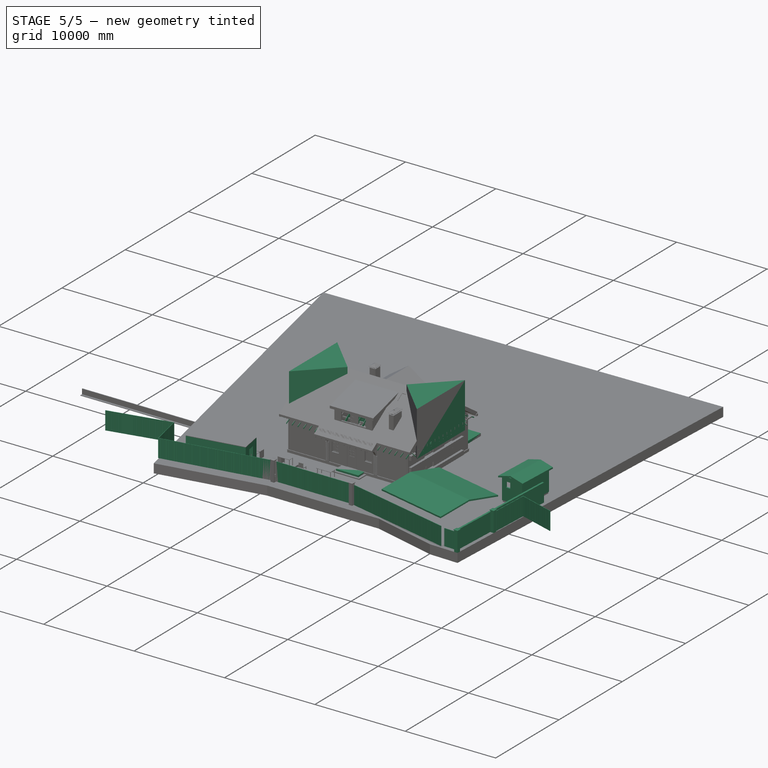
[diagram: stage 5 of 5 — iso view after this stage's code; geometry added in this stage tinted green]
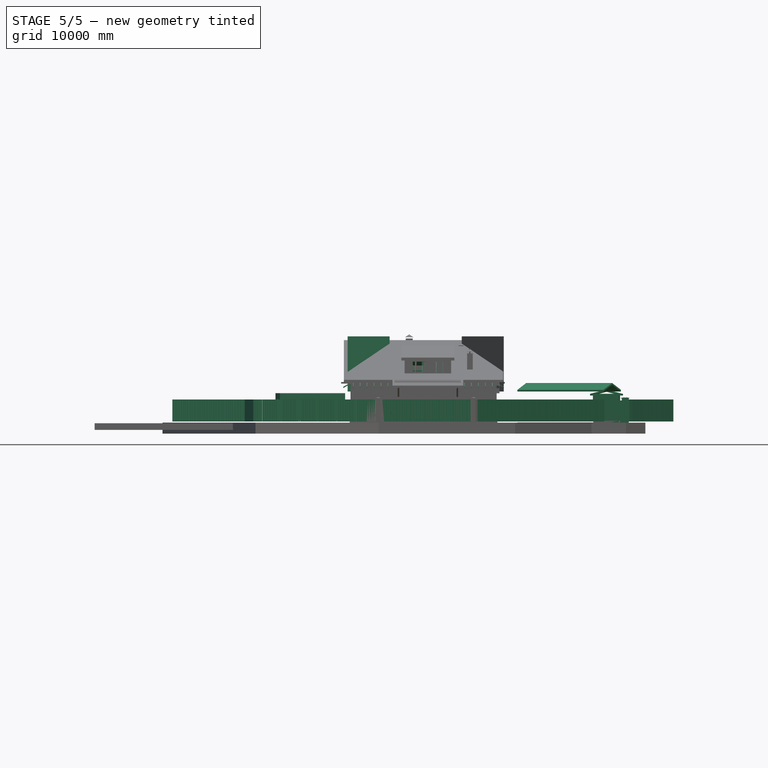
[diagram: stage 5 of 5 — front view after this stage's code; geometry added in this stage tinted green]
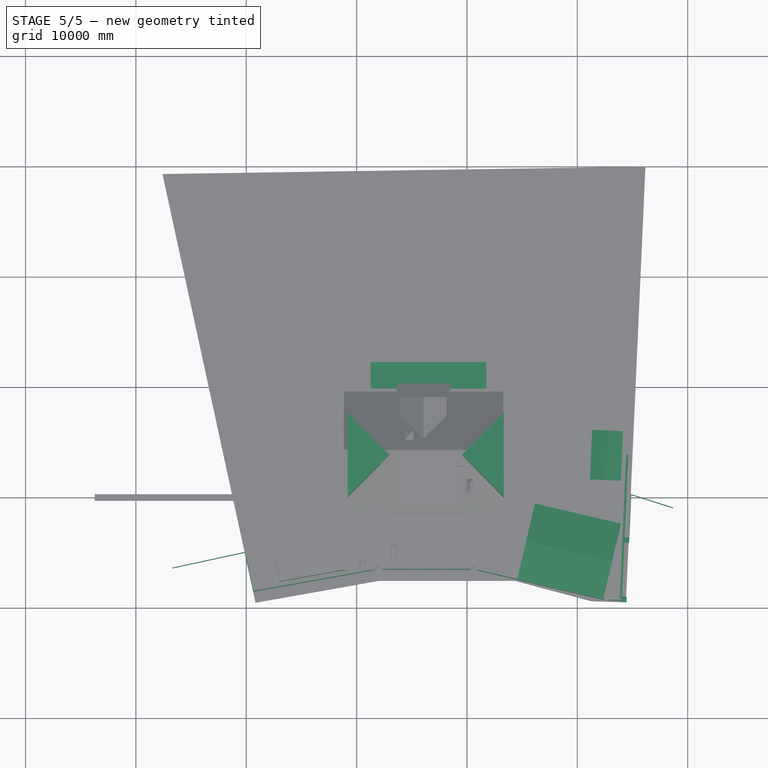
[diagram: stage 5 of 5 — top view after this stage's code; geometry added in this stage tinted green]
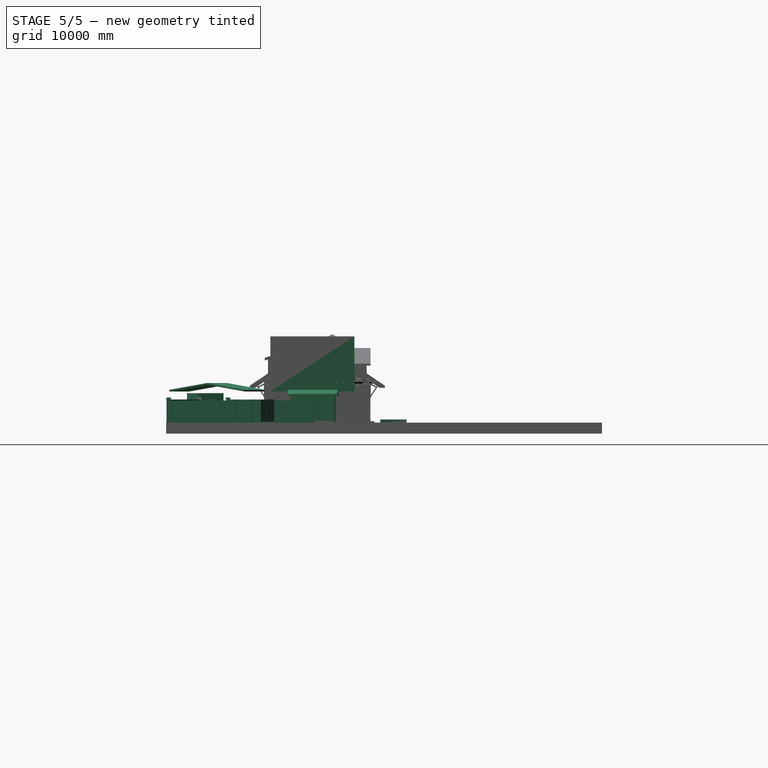
[diagram: stage 5 of 5 — right view after this stage's code; geometry added in this stage tinted green]
FEATURE [Part::Part2DObjectPython] Circle071  # Draft 2D object (typed FeaturePython)
  FirstAngle = 0
  LastAngle = 0
  MakeFace = false
  Placement = pos=(8500,900,0) rot=(0,0,1;0rad)
  Radius = 580
FEATURE [Part::Part2DObjectPython] Circle072  # Draft 2D object (typed FeaturePython)
  FirstAngle = 0
  LastAngle = 0
  MakeFace = false
  Placement = pos=(8500,900,0) rot=(0,0,1;0rad)
  Radius = 500
FEATURE [Part::Part2DObjectPython] Circle073  label="люк_контур 001"  # Draft 2D object (typed FeaturePython)
  FirstAngle = 0
  LastAngle = 0
  MakeFace = false
  Placement = pos=(8500,1000,0) rot=(0,0,1;0rad)
  Radius = 350
FEATURE [Part::FeaturePython] Structure041  label="кольцо с днищем ДК-10.9 внутр."  # Arch/BIM 52 (typed FeaturePython)
  Base = -> Circle072
  FaceMaker = 0
  Height = 800
  HorizontalArea = 785398
  IfcData = complex_attributes={"OwnerHistory": {}, "IsNestedBy": {}, "IsDecomposedBy": {}, "IsDefinedBy": {}, "ObjectPlacement": {}, "Representation":... (+4 chars omitted)
  IfcType = 52
  Length = 0
  MoveBase = false
  MoveWithHost = false
  Nodes = (2) [(8500,900,0),(8500,900,-800)]
  NodesOffset = 0
  Normal = (0,0,-1)
  PerimeterLength = 3141.59
  Placement = pos=(0,0,-300) rot=(0,0,1;0rad)
  VerticalArea = 2.51327e+06
  Width = 100
FEATURE [Part::FeaturePython] Structure040  label="кольцо с днищем ДК-10.9 габарит"  # Arch/BIM 52 (typed FeaturePython)
  Base = -> Circle071
  FaceMaker = 0
  Height = 900
  HorizontalArea = 1.05683e+06
  IfcData = complex_attributes={"OwnerHistory": {}, "IsNestedBy": {}, "IsDecomposedBy": {}, "IsDefinedBy": {}, "ObjectPlacement": {}, "Representation":... (+4 chars omitted)
  IfcType = 52
  Length = 0
  MoveBase = false
  MoveWithHost = false
  Nodes = (2) [(8500,900,0),(8500,900,-900)]
  NodesOffset = 0
  Normal = (0,0,-1)
  PerimeterLength = 3644.25
  Placement = pos=(0,0,-300) rot=(0,0,1;0rad)
  Subtractions = -> [Structure041]
  VerticalArea = 5.7931e+06
  Width = 100
FEATURE [Part::FeaturePython] Structure044  label="люк контур Д700"  # Arch/BIM 52 (typed FeaturePython)
  Base = -> Circle073
  FaceMaker = 0
  Height = 300
  HorizontalArea = 384845
  IfcData = complex_attributes={"OwnerHistory": {}, "IsNestedBy": {}, "IsDecomposedBy": {}, "IsDefinedBy": {}, "ObjectPlacement": {}, "Representation":... (+4 chars omitted)
  IfcType = 52
  Length = 0
  MoveBase = false
  MoveWithHost = false
  Nodes = (2) [(8500,1000,0),(8500,1000,-300)]
  NodesOffset = 0
  Normal = (0,0,-1)
  PerimeterLength = 2199.11
  VerticalArea = 659734
  Width = 100
FEATURE [Part::FeaturePython] Structure043  label="крышка ПП10"  # Arch/BIM 52 (typed FeaturePython)
  Base = -> Circle071
  FaceMaker = 0
  Height = 100
  HorizontalArea = 671987
  IfcData = complex_attributes={"OwnerHistory": {}, "IsNestedBy": {}, "IsDecomposedBy": {}, "IsDefinedBy": {}, "ObjectPlacement": {}, "Representation":... (+4 chars omitted)
  IfcType = 52
  Length = 0
  MoveBase = false
  MoveWithHost = false
  Nodes = (2) [(8500,900,0),(8500,900,-100)]
  NodesOffset = 0
  Normal = (0,0,-1)
  PerimeterLength = 3644.25
  Placement = pos=(0,0,-200) rot=(0,0,1;0rad)
  Subtractions = -> [Structure044]
  VerticalArea = 584336
  Width = 100
FEATURE [App::GeometryPython] BuildingPart015  label="Колодец d1000 (ввод воды и канализации)"  # Arch/BIM 52 (typed FeaturePython)
  Area = 0
  Group = -> [Structure040,Structure043]
  Height = 0
  HeightPropagate = true
  IfcData = complex_attributes={"OwnerHistory": {}, "IsNestedBy": {}, "IsDecomposedBy": {}, "IsDefinedBy": {}, "ObjectPlacement": {}, "Representation":... (+4 chars omitted)
  IfcType = 52
  LevelOffset = 0
FEATURE [Part::Part2DObjectPython] Line1077  # Draft 2D object (typed FeaturePython)
  ChamferSize = 0
  Closed = true
  End = (-50,-45,0)
  FilletRadius = 0
  Length = 12230
  MakeFace = false
  Placement = pos=(12060,265,0) rot=(0,0,1;0rad)
  Points = (2) [(120,-310,0),(-12110,-310,0)]
  Start = (12180,-45,0)
  Subdivisions = 0
FEATURE [Part::Part2DObjectPython] Rectangle2286  # Draft 2D object (typed FeaturePython)
  ChamferSize = 0
  Columns = 1
  FilletRadius = 0
  Height = 5190
  Length = 9350
  MakeFace = false
  Placement = pos=(1950,2210,0) rot=(0,0,1;0rad)
  Rows = 1
FEATURE [Part::FeaturePython] Structure049  label="вычитаемый объём 002"  # Arch/BIM 52 (typed FeaturePython)
  FaceMaker = 0
  Height = 4000
  HorizontalArea = 3.20922e+07
  IfcData = complex_attributes={"OwnerHistory": {}, "IsNestedBy": {}, "IsDecomposedBy": {}, "IsDefinedBy": {}, "ObjectPlacement": {}, "Representation":... (+4 chars omitted)
  IfcType = 52
  Length = 0
  MoveBase = false
  MoveWithHost = false
  Nodes = (2) [(506.667,3830,0),(506.667,3830,4000)]
  NodesOffset = 0
  Normal = (0,0,1)
  PerimeterLength = 27353
  Placement = pos=(0,0,3160) rot=(0,0,1;0rad)
  VerticalArea = 1.09412e+08
  Width = 100
FEATURE [Part::FeaturePython] Structure050  label="вычитаемый объём 004"  # Arch/BIM 52 (typed FeaturePython)
  FaceMaker = 0
  Height = 4000
  HorizontalArea = 5.56586e+07
  IfcData = complex_attributes={"OwnerHistory": {}, "IsNestedBy": {}, "IsDecomposedBy": {}, "IsDefinedBy": {}, "ObjectPlacement": {}, "Representation":... (+4 chars omitted)
  IfcType = 52
  Length = 0
  MoveBase = false
  MoveWithHost = false
  Nodes = (2) [(6040,886.738,0),(6040,886.738,4000)]
  NodesOffset = 0
  Normal = (0,0,1)
  PerimeterLength = 35673
  Placement = pos=(0,0,3160) rot=(0,0,1;0rad)
  VerticalArea = 1.42692e+08
  Width = 100
FEATURE [Part::FeaturePython] Structure051  label="вычитаемый объём 003"  # Arch/BIM 52 (typed FeaturePython)
  FaceMaker = 0
  Height = 4000
  HorizontalArea = 32092225
  IfcData = complex_attributes={"OwnerHistory": {}, "IsNestedBy": {}, "IsDecomposedBy": {}, "IsDefinedBy": {}, "ObjectPlacement": {}, "Representation":... (+4 chars omitted)
  IfcType = 52
  Length = 0
  MoveBase = false
  MoveWithHost = false
  Nodes = (2) [(12481.7,4805,0),(12481.7,4805,4000)]
  NodesOffset = 0
  Normal = (0,0,1)
  PerimeterLength = 27353
  Placement = pos=(0,0,3160) rot=(0,0,1;0rad)
  VerticalArea = 1.09412e+08
  Width = 100
FEATURE [Part::Part2DObjectPython] Wire464  label="мауэрлат003"  # Draft 2D object (typed FeaturePython)
  ChamferSize = 0
  Closed = true
  End = (14568.5,-7412.72,0)
  FilletRadius = 0
  Length = 30000
  MakeFace = false
  Placement = pos=(20304,-1451.15,0) rot=(0,0,-1;0.229406rad)
  Points = (4) [(3770.46,-7109.62,0),(3770.46,-109.624,0),(-4229.54,-109.624,0),(-4229.54,-7109.62,0)]
  Start = (22359,-9231.91,0)
  Subdivisions = 0
FEATURE [Part::Part2DObjectPython] Rectangle2375  # Draft 2D object (typed FeaturePython)
  ChamferSize = 0
  Columns = 1
  FilletRadius = 0
  Height = 150
  Length = 800
  MakeFace = true
  Placement = pos=(-1461.06,-5083.09,0) rot=(0,0,-1;1.39508rad)
  Rows = 1
FEATURE [Part::Part2DObjectPython] Rectangle2376  # Draft 2D object (typed FeaturePython)
  ChamferSize = 0
  Columns = 1
  FilletRadius = 0
  Height = 150
  Length = 500
  MakeFace = true
  Placement = pos=(-6959.67,-6719.51,0) rot=(0,0,1;1.74651rad)
  Rows = 1
FEATURE [Part::Part2DObjectPython] Rectangle2377  # Draft 2D object (typed FeaturePython)
  ChamferSize = 0
  Columns = 1
  FilletRadius = 0
  Height = 2300
  Length = 6000
  MakeFace = false
  Placement = pos=(-1444.48,-4318.42,0) rot=(0,0,1;3.31731rad)
  Rows = 1
FEATURE [Part::FeaturePython] Roof011  label="Навес над парковкой"  # Arch/BIM 113 (typed FeaturePython)
  Angles = [90,10,90,10]
  Base = -> Wire464
  BorderLength = 0
  Face = 0
  Flip = false
  Heights = [0,617.144,0,617.144]
  HorizontalArea = 5.6e+07
  IdRel = [0,0,0,0]
  IfcType = 113
  MoveBase = false
  MoveWithHost = false
  Overhang = [0,0,0,0]
  PerimeterLength = 30000
  Placement = pos=(0,0,2500) rot=(0,0,1;0rad)
  PredefinedType = 0
  RidgeLength = 0
  Runs = [0,3500,0,3500]
  Thickness = [150,150,150,150]
  VerticalArea = 7.00644e+06
FEATURE [Part::FeaturePython] Structure135  label="Structure134"  # Arch/BIM 52 (typed FeaturePython)
  Base = -> Rectangle2375
  FaceMaker = 0
  Height = 1800
  HorizontalArea = 120000
  IfcData = complex_attributes={"OwnerHistory": {}, "IsNestedBy": {}, "IsDecomposedBy": {}, "IsDefinedBy": {}, "ObjectPlacement": {}, "Representation":... (+4 chars omitted)
  IfcType = 52
  Length = 0
  MoveBase = false
  MoveWithHost = false
  Nodes = (2) [(-35.6948,-25773.1,0),(-35.6948,-25773.1,1800)]
  NodesOffset = 0
  Normal = (0,0,0)
  PerimeterLength = 1900
  VerticalArea = 3.42e+06
  Width = 100
FEATURE [Part::FeaturePython] Structure136  label="Structure135"  # Arch/BIM 52 (typed FeaturePython)
  Base = -> Rectangle2376
  FaceMaker = 0
  Height = 600
  HorizontalArea = 75000
  IfcData = complex_attributes={"OwnerHistory": {}, "IsNestedBy": {}, "IsDecomposedBy": {}, "IsDefinedBy": {}, "ObjectPlacement": {}, "Representation":... (+4 chars omitted)
  IfcType = 52
  Length = 0
  MoveBase = false
  MoveWithHost = false
  Nodes = (2) [(1351.07,-25965.1,0),(1351.07,-25965.1,600)]
  NodesOffset = 0
  Normal = (0,0,0)
  PerimeterLength = 1300
  Placement = pos=(0,-4e-15,1240) rot=(0,0,1;0rad)
  VerticalArea = 780000
  Width = 100
FEATURE [Part::FeaturePython] Wall097  label="Wall007"  # Arch/BIM 166 (typed FeaturePython)
  Align = 1
  Area = 4.067e+07
  Base = -> Rectangle2377
  BlockHeight = 0
  BlockLength = 0
  CountBroken = 0
  CountEntire = 0
  Face = 0
  Height = 2450
  HorizontalArea = 2.595e+06
  IfcType = 166
  Joint = 0
  Length = 16600
  MakeBlocks = false
  MoveBase = false
  MoveWithHost = false
  Normal = (0,0,0)
  OffsetFirst = 0
  OffsetSecond = 0
  PerimeterLength = 12600
  Placement = pos=(0,0,-150) rot=(0,0,1;0rad)
  PredefinedType = 0
  Subtractions = -> [Structure136,Structure135]
  VerticalArea = 7.564e+07
  Width = 150
FEATURE [Sketcher::SketchObject] Sketch250  label="Габарит человека"
  FullyConstrained = false
  Placement = pos=(0,0,0) rot=(1,0,0;1.5708rad)
  sketch-geometry (21):
    g0: LineSegment StartX=-250 StartY=0 StartZ=0 EndX=250 EndY=0 EndZ=0
    g1: LineSegment StartX=250 StartY=0 StartZ=0 EndX=250 EndY=1750 EndZ=0
    g2: LineSegment StartX=250 StartY=1750 StartZ=0 EndX=-250 EndY=1750 EndZ=0
    g3: LineSegment StartX=-250 StartY=1750 StartZ=0 EndX=-250 EndY=0 EndZ=0
    g4: LineSegment StartX=85 StartY=1500 StartZ=0 EndX=85 EndY=1750 EndZ=0
    g5: LineSegment StartX=85 StartY=1750 StartZ=0 EndX=-85 EndY=1750 EndZ=0
    g6: LineSegment StartX=-85 StartY=1750 StartZ=0 EndX=-85 EndY=1500 EndZ=0
    g7: LineSegment StartX=250 StartY=750 StartZ=0 EndX=250 EndY=1500 EndZ=0
    g8: LineSegment StartX=-250 StartY=1500 StartZ=0 EndX=-250 EndY=750 EndZ=0
    g9: LineSegment StartX=-110 StartY=0 StartZ=0 EndX=110 EndY=0 EndZ=0
    g10: LineSegment StartX=110 StartY=0 StartZ=0 EndX=175 EndY=750 EndZ=0
    g11: LineSegment StartX=-175 StartY=750 StartZ=0 EndX=-110 EndY=0 EndZ=0
    g12: GeomPoint X=0 Y=750 Z=0
    g13: GeomPoint X=-110 Y=0 Z=0
    g14: GeomPoint X=110 Y=0 Z=0
    g15: GeomPoint X=175 Y=750 Z=0
    g16: GeomPoint X=-175 Y=750 Z=0
    g17: LineSegment StartX=-250 StartY=1500 StartZ=0 EndX=-85 EndY=1500 EndZ=0
    g18: LineSegment StartX=85 StartY=1500 StartZ=0 EndX=250 EndY=1500 EndZ=0
    g19: LineSegment StartX=-250 StartY=750 StartZ=0 EndX=-175 EndY=750 EndZ=0
    g20: LineSegment StartX=175 StartY=750 StartZ=0 EndX=250 EndY=750 EndZ=0
  constraints (50):
    c: Coincident(g0,g1)
    c: Coincident(g1,g2)
    c: Coincident(g2,g3)
    c: Coincident(g3,g0)
    c: Horizontal(g0)
    c: Horizontal(g2)
    c: Vertical(g1)
    c: Vertical(g3)
    c: Symmetric(g0,g0,g-1)
    c: DistanceX(g2,g2) = 500
    c: DistanceY(g1,g1) = 1750
    c: Coincident(g4,g5)
    c: Coincident(g5,g6)
    c: Horizontal(g5)
    c: Vertical(g4)
    c: Vertical(g6)
    c: Vertical(g7)
    c: Vertical(g8)
    c: Coincident(g9,g10)
    c: DistanceX(g5,g5) = 170
    c: DistanceY(g4,g4) = 250
    c: PointOnObject(g4,g2)
    c: Symmetric(g6,g4,g-2)
    c: PointOnObject(g8,g3)
    c: PointOnObject(g7,g1)
    c: Coincident(g9,g11)
    c: DistanceX(g9,g9) = 220
    c: DistanceY(g0,g7) = 750
    c: PointOnObject(g12,g-2)
    c: Coincident(g13,g9)
    c: Coincident(g14,g9)
    c: Symmetric(g13,g14,g-2)
    c: PointOnObject(g14,g0)
    c: Coincident(g15,g10)
    c: Symmetric(g15,g16,g-2)
    c: DistanceX(g16,g15) = 350
    c: Coincident(g17,g8)
    c: Coincident(g17,g6)
    c: Horizontal(g17)
    c: Coincident(g18,g4)
    c: Coincident(g18,g7)
    c: Horizontal(g18)
    c: Coincident(g19,g8)
    c: Coincident(g19,g11)
    c: Horizontal(g19)
    c: Coincident(g20,g10)
    c: Coincident(g20,g7)
    c: Horizontal(g20)
    c: Equal(g19,g20)
    c: Equal(g11,g10)
FEATURE [Part::Extrusion] Extrude007  label="Габарит человека 001"
  Base = -> Sketch250
  Dir = (0,-1,2e-16)
  DirMode = 2
  FaceMakerClass = Part::FaceMakerBullseye
  LengthFwd = 290
  LengthRev = 0
  Placement = pos=(8390.22,2617.15,0) rot=(0,0,1;1.5708rad)
  Solid = true
  Symmetric = false
FEATURE [Part::Extrusion] Extrude008  label="Габарит человека 002"
  Base = -> Sketch250
  Dir = (0,-1,2e-16)
  DirMode = 2
  FaceMakerClass = Part::FaceMakerBullseye
  LengthFwd = 290
  LengthRev = 0
  Placement = pos=(634.736,5683.81,0) rot=(0,0,1;0rad)
  Solid = true
  Symmetric = false
FEATURE [Part::Part2DObjectPython] Rectangle2381  # Draft 2D object (typed FeaturePython)
  ChamferSize = 0
  Columns = 1
  FilletRadius = 0
  Height = 1250
  Length = 2500
  MakeFace = false
  Placement = pos=(5375,-1520,0) rot=(0,0,1;0rad)
  Rows = 1
FEATURE [Part::FeaturePython] Structure140  label="габарит крыльца001"  # Arch/BIM 52 (typed FeaturePython)
  Base = -> Rectangle2381
  FaceMaker = 0
  Height = 180
  HorizontalArea = 3125000
  IfcData = complex_attributes={"OwnerHistory": {}, "IsNestedBy": {}, "IsDecomposedBy": {}, "IsDefinedBy": {}, "ObjectPlacement": {}, "Representation":... (+4 chars omitted)
  IfcType = 52
  Length = 0
  MoveBase = false
  MoveWithHost = false
  Nodes = (2) [(5975,-1250,0),(5975,-1250,-350)]
  NodesOffset = 0
  Normal = (0,0,-1)
  PerimeterLength = 7500
  Placement = pos=(0,0,-40) rot=(0,0,1;0rad)
  VerticalArea = 1350000
  Width = 100
FEATURE [Part::FeaturePython] Structure029  label="габарит крыльца"  # Arch/BIM 52 (typed FeaturePython)
  Additions = -> [Structure140]
  Base = -> Rectangle2234
  FaceMaker = 0
  Height = 180
  HorizontalArea = 4500000
  IfcData = complex_attributes={"OwnerHistory": {}, "IsNestedBy": {}, "IsDecomposedBy": {}, "IsDefinedBy": {}, "ObjectPlacement": {}, "Representation":... (+4 chars omitted)
  IfcType = 52
  Length = 0
  MoveBase = false
  MoveWithHost = false
  Nodes = (2) [(5975,-1250,0),(5975,-1250,-350)]
  NodesOffset = 0
  Normal = (0,0,-1)
  PerimeterLength = 9000
  Placement = pos=(0,0,-220) rot=(0,0,1;0rad)
  VerticalArea = 2970000
  Width = 100
FEATURE [Part::Part2DObjectPython] Rectangle2382  label="террасса"  # Draft 2D object (typed FeaturePython)
  ChamferSize = 0
  Columns = 1
  FilletRadius = 0
  Height = 2400
  Length = 10500
  MakeFace = false
  Placement = pos=(1255,9880,0) rot=(0,0,1;0rad)
  Rows = 1
FEATURE [Part::FeaturePython] Structure028  label="габарит терассы"  # Arch/BIM 52 (typed FeaturePython)
  Base = -> Rectangle2382
  FaceMaker = 0
  Height = 400
  HorizontalArea = 25200000
  IfcData = complex_attributes={"OwnerHistory": {}, "IsNestedBy": {}, "IsDecomposedBy": {}, "IsDefinedBy": {}, "ObjectPlacement": {}, "Representation":... (+4 chars omitted)
  IfcType = 52
  Length = 0
  MoveBase = false
  MoveWithHost = false
  Nodes = (2) [(6755,9400,0),(6755,9400,-400)]
  NodesOffset = 0
  Normal = (0,0,-1)
  PerimeterLength = 25800
  Placement = pos=(0,0,-40) rot=(0,0,1;0rad)
  VerticalArea = 10320000
  Width = 100
FEATURE [Part::Extrusion] Extrude012  label="Габарит человека 003"
  Base = -> Sketch250
  Dir = (0,-1,2e-16)
  DirMode = 2
  FaceMakerClass = Part::FaceMakerBullseye
  LengthFwd = 290
  LengthRev = 0
  Placement = pos=(11809.2,3499.78,0) rot=(0,0,1;0rad)
  Solid = true
  Symmetric = false
FEATURE [Part::Extrusion] Extrude022  label="Габарит человека 004"
  Base = -> Sketch250
  Dir = (0,-1,2e-16)
  DirMode = 2
  FaceMakerClass = Part::FaceMakerBullseye
  LengthFwd = 290
  LengthRev = 0
  Placement = pos=(4965.04,8324.03,3135) rot=(0,0,1;0rad)
  Solid = true
  Symmetric = false
FEATURE [App::GeometryPython] BuildingPart036  label="Эргономика"  # Arch/BIM 52 (typed FeaturePython)
  Area = 0
  GlobalId = 1U0bveIaj1buNClxqFBVzz
  Group = -> [Extrude007,Extrude008,Extrude012,Extrude022]
  Height = 0
  HeightPropagate = true
  IfcData = IfcUID=1U0bveIaj1buNClxqFBVzz,attributes={"GlobalId": {"value": "1U0bveIaj1buNClxqFBVzz"}},+1 more (map truncated)
  IfcType = 52
  LevelOffset = 0
FEATURE [Part::FeaturePython] Wall145  label="табуретка"  # Arch/BIM 166 (typed FeaturePython)
  Align = 2
  Area = 1992000
  BlockHeight = 0
  BlockLength = 0
  CountBroken = 0
  CountEntire = 0
  Face = 0
  Height = 150
  HorizontalArea = 1.328e+06
  IfcType = 166
  Joint = 0
  Length = 13280
  MakeBlocks = false
  MoveBase = false
  MoveWithHost = false
  Normal = (0,0,0)
  OffsetFirst = 0
  OffsetSecond = 0
  PerimeterLength = 26760
  Placement = pos=(0,0,5260) rot=(0,0,1;0rad)
  PredefinedType = 0
  VerticalArea = 4.014e+06
  Width = 100
FEATURE [Part::FeaturePython] Wall146  label="Wall010"  # Arch/BIM 166 (typed FeaturePython)
  Align = 2
  Area = 420000
  BlockHeight = 0
  BlockLength = 0
  CountBroken = 0
  CountEntire = 0
  Face = 0
  Height = 150
  HorizontalArea = 280000
  IfcType = 166
  Joint = 0
  Length = 2800
  MakeBlocks = false
  MoveBase = false
  MoveWithHost = true
  Normal = (0,0,0)
  OffsetFirst = 0
  OffsetSecond = 0
  PerimeterLength = 5800
  Placement = pos=(0,0,3210) rot=(0,0,1;0rad)
  PredefinedType = 0
  VerticalArea = 870000
  Width = 100
FEATURE [Part::Part2DObjectPython] Line1228  label="Line1229"  # Draft 2D object (typed FeaturePython)
  ChamferSize = 0
  Closed = false
  End = (903.033,1056.97,0)
  FilletRadius = 0
  Length = 150
  MakeFace = false
  Placement = pos=(796.967,1163.03,0) rot=(0,0,1;0rad)
  Points = (2) [(0,0,0),(106.066,-106.066,0)]
  Start = (796.967,1163.03,0)
  Subdivisions = 0
FEATURE [Part::Part2DObjectPython] Line1229  label="Line1230"  # Draft 2D object (typed FeaturePython)
  ChamferSize = 0
  Closed = false
  End = (12453,8446.97,0)
  FilletRadius = 0
  Length = 150
  MakeFace = false
  Placement = pos=(12347,8553.03,0) rot=(0,0,1;0rad)
  Points = (2) [(0,0,0),(106.066,-106.066,0)]
  Start = (12347,8553.03,0)
  Subdivisions = 0
FEATURE [Part::Part2DObjectPython] Line1230  label="Line1231"  # Draft 2D object (typed FeaturePython)
  ChamferSize = 0
  Closed = false
  End = (13389.9,7510.05,0)
  FilletRadius = 0
  Length = 2800
  MakeFace = false
  Placement = pos=(11410.1,9489.95,0) rot=(0,0,1;0rad)
  Points = (2) [(0,0,0),(1979.9,-1979.9,0)]
  Start = (11410.1,9489.95,0)
  Subdivisions = 0
FEATURE [Part::FeaturePython] Wall149  label="Wall012"  # Arch/BIM 166 (typed FeaturePython)
  Align = 2
  Area = 420000
  Base = -> Line1230
  BlockHeight = 0
  BlockLength = 0
  CountBroken = 0
  CountEntire = 0
  Face = 0
  Height = 150
  HorizontalArea = 280000
  IfcType = 166
  Joint = 0
  Length = 2800
  MakeBlocks = false
  MoveBase = false
  MoveWithHost = true
  Normal = (0,0,0)
  OffsetFirst = 0
  OffsetSecond = 0
  PerimeterLength = 5800
  Placement = pos=(0,0,3210) rot=(0,0,1;0rad)
  PredefinedType = 0
  VerticalArea = 870000
  Width = 100
FEATURE [Part::Part2DObjectPython] Line1231  label="Line1232"  # Draft 2D object (typed FeaturePython)
  ChamferSize = 0
  Closed = false
  End = (903.033,8553.03,0)
  FilletRadius = 0
  Length = 150
  MakeFace = false
  Placement = pos=(796.967,8446.97,0) rot=(0,0,1;1.5708rad)
  Points = (2) [(0,0,0),(106.066,-106.066,0)]
  Start = (796.967,8446.97,0)
  Subdivisions = 0
FEATURE [Part::Part2DObjectPython] Line1232  label="Line1233"  # Draft 2D object (typed FeaturePython)
  ChamferSize = 0
  Closed = false
  End = (1839.95,9489.95,0)
  FilletRadius = 0
  Length = 2800
  MakeFace = false
  Placement = pos=(-139.949,7510.05,0) rot=(0,0,1;1.5708rad)
  Points = (2) [(0,0,0),(1979.9,-1979.9,0)]
  Start = (-139.949,7510.05,0)
  Subdivisions = 0
FEATURE [Part::FeaturePython] Wall152  label="Wall014"  # Arch/BIM 166 (typed FeaturePython)
  Align = 2
  Area = 420000
  Base = -> Line1232
  BlockHeight = 0
  BlockLength = 0
  CountBroken = 0
  CountEntire = 0
  Face = 0
  Height = 150
  HorizontalArea = 280000
  IfcType = 166
  Joint = 0
  Length = 2800
  MakeBlocks = false
  MoveBase = false
  MoveWithHost = true
  Normal = (0,0,0)
  OffsetFirst = 0
  OffsetSecond = 0
  PerimeterLength = 5800
  Placement = pos=(0,0,3210) rot=(0,0,1;0rad)
  PredefinedType = 0
  VerticalArea = 870000
  Width = 100
FEATURE [Part::Part2DObjectPython] Line1233  label="Line1234"  # Draft 2D object (typed FeaturePython)
  ChamferSize = 0
  Closed = false
  End = (12453,1163.03,0)
  FilletRadius = 0
  Length = 150
  MakeFace = false
  Placement = pos=(12347,1056.97,0) rot=(0,0,1;1.5708rad)
  Points = (2) [(0,0,0),(106.066,-106.066,0)]
  Start = (12347,1056.97,0)
  Subdivisions = 0
FEATURE [Part::Part2DObjectPython] Line1234  label="Line1235"  # Draft 2D object (typed FeaturePython)
  ChamferSize = 0
  Closed = false
  End = (13389.9,2099.95,0)
  FilletRadius = 0
  Length = 2800
  MakeFace = false
  Placement = pos=(11410.1,120.051,0) rot=(0,0,1;1.5708rad)
  Points = (2) [(0,0,0),(1979.9,-1979.9,0)]
  Start = (11410.1,120.051,0)
  Subdivisions = 0
FEATURE [Part::FeaturePython] Wall155  label="Wall016"  # Arch/BIM 166 (typed FeaturePython)
  Align = 2
  Area = 420000
  Base = -> Line1234
  BlockHeight = 0
  BlockLength = 0
  CountBroken = 0
  CountEntire = 0
  Face = 0
  Height = 150
  HorizontalArea = 280000
  IfcType = 166
  Joint = 0
  Length = 2800
  MakeBlocks = false
  MoveBase = false
  MoveWithHost = true
  Normal = (0,0,0)
  OffsetFirst = 0
  OffsetSecond = 0
  PerimeterLength = 5800
  Placement = pos=(0,0,3210) rot=(0,0,1;0rad)
  PredefinedType = 0
  VerticalArea = 870000
  Width = 100
FEATURE [Part::FeaturePython] Wall163  label="отделка цоколя"  # Arch/BIM 166 (typed FeaturePython)
  Align = 1
  Area = 11870000
  BlockHeight = 600
  BlockLength = 600
  CountBroken = 1
  CountEntire = 0
  Face = 0
  Height = 250
  HorizontalArea = 474800
  IfcType = 166
  Joint = 1
  Length = 47480
  MakeBlocks = true
  MoveBase = false
  MoveWithHost = false
  Normal = (0,0,-1)
  Offset = 80
  OffsetFirst = 0
  OffsetSecond = 0
  PerimeterLength = 94980
  Placement = pos=(0,0,-380) rot=(0,0,1;0rad)
  PredefinedType = 0
  VerticalArea = 23745000
  Width = 10
FEATURE [Part::Part2DObjectPython] Rectangle2939  # Draft 2D object (typed FeaturePython)
  ChamferSize = 0
  Columns = 1
  FilletRadius = 30
  Height = 800
  Length = 1400
  MakeFace = true
  Placement = pos=(10405,7665,0) rot=(0,0,1;3.14159rad)
  Rows = 1
FEATURE [Part::Part2DObjectPython] Rectangle2941  # Draft 2D object (typed FeaturePython)
  ChamferSize = 0
  Columns = 1
  FilletRadius = 0
  Height = 300
  Length = 480
  MakeFace = true
  Placement = pos=(10295,6865,0) rot=(0,0,1;3.14159rad)
  Rows = 1
FEATURE [Part::Part2DObjectPython] Rectangle2944  # Draft 2D object (typed FeaturePython)
  ChamferSize = 0
  Columns = 1
  FilletRadius = 0
  Height = 300
  Length = 480
  MakeFace = true
  Placement = pos=(10295,7965,0) rot=(0,0,1;3.14159rad)
  Rows = 1
FEATURE [Part::FeaturePython] Structure155  label="Вентстояк вычитаемы объём 001"  # Arch/BIM 52 (typed FeaturePython)
  Base = -> Rectangle2589
  FaceMaker = 0
  Height = 6000
  HorizontalArea = 589000
  IfcData = complex_attributes={"OwnerHistory": {}, "IsNestedBy": {}, "IsDecomposedBy": {}, "IsDefinedBy": {}, "ObjectPlacement": {}, "Representation":... (+4 chars omitted)
  IfcType = 52
  Length = 0
  MoveBase = false
  MoveWithHost = false
  Nodes = (2) [(-3390,9095,0),(-3390,9095,6000)]
  NodesOffset = 0
  Normal = (0,0,0)
  PerimeterLength = 3860
  Placement = pos=(0,0,-180) rot=(0,0,1;0rad)
  VerticalArea = 2.316e+07
  Width = 100
FEATURE [Part::Part2DObjectPython] ShapeString131  # Draft 2D object (typed FeaturePython)
  FontFile = <path>
  Placement = pos=(11788.7,7654.56,0) rot=(0,0,1;0rad)
  Size = 300
  String = *
  Tracking = 0
FEATURE [Part::Part2DObjectPython] ShapeString133  # Draft 2D object (typed FeaturePython)
  FontFile = <path>
  Placement = pos=(9761.61,2302.49,0) rot=(0,0,1;0rad)
  Size = 200
  String = СМ
  Tracking = 0
FEATURE [Part::Part2DObjectPython] ShapeString135  # Draft 2D object (typed FeaturePython)
  FontFile = <path>
  Placement = pos=(11944.9,4967.73,0) rot=(0,0,1;1.5708rad)
  Size = 200
  String = ПМ
  Tracking = 0
FEATURE [Part::Part2DObjectPython] Rectangle2972  label="Камин"  # Draft 2D object (typed FeaturePython)
  Area = 400000
  ChamferSize = 0
  Columns = 1
  FilletRadius = 0
  Height = 500
  Length = 800
  MakeFace = true
  Placement = pos=(4600,5195,0) rot=(0,0,-1;1.5708rad)
  Rows = 1
FEATURE [Spreadsheet::Sheet] Spreadsheet
  cells = C1=N/N; D1=Помещение; E1=Площадь; C2=1); D2==<<прихожая>>.Label; E2==<<прихожая>>.Shape.Area; C3=2); D3==<<коридор>>.Label; E3==<<коридор>>.Shape.Area; C4=3); D4==<<гардероб>>.Label; E4==<<гардероб>>.Shape.Area; C5=4); D5==<<санузел>>.Label; E5==<<санузел>>.Shape.Area; C6=5); D6==<<ванная>>.Label; E6==<<ванная>>.Shape.Area; C7=6); D7==<<кабинет>>.Label; E7==<<кабинет>>.Shape.Area; C8=7); D8==<<ТГ (котельная)>>.Label; E8==<<ТГ (котельная)>>.Shape.Area; C9=8); D9==<<спальня>>.Label; E9==<<спальня>>.Shape.Area; C10=9); D10==<<кухня-столовая>>.Label; E10==<<кухня-столовая>>.Shape.Area; C11=10); D11==<<лестница>>.Label; E11==<<лестница>>.Shape.Area; D12=Итого:; E12==sum(E2:E11); D13==<<Тёплый контур (Площадь этажа)>>.Label; E13==<<Тёплый контур (Площадь этажа)>>.Shape.Area; C15=N/N; D15=Помещение; E15=Площадь; C16=1); D16==<<Холл мансарды>>.Label; E16==<<Холл мансарды>>.Shape.Area; C17=2); D17==<<СУ мансарды>>.Label; E17==<<СУ мансарды>>.Shape.Area; C18=3); D18==<<Спальня #1>>.Label; E18==<<Спальня #1>>.Shape.Area; C19=4); D19==<<Спальня #2>>.Label; E19==<<Спальня #2>>.Shape.Area; C20=5); D20==<<Спальня #2>>.Label; E20==<<Спальня #3>>.Shape.Area; D21=Итого:; E21==sum(E16:E20); B31=Мансарда (к учёту по СП54.13330); D31==<<h2,5м площадь (к=1.0) 001>>.Label; E31==<<h2,5м площадь (к=1.0) 001>>.Shape.Area * 1; D32==<<h1,6м площадь (к=0.7) 001>>.Label; E32==<<h1,6м площадь (к=0.7) 001>>.Shape.Area * 0.7; D33==<<h1,6м площадь (к=0.7) 002>>.Label; E33==<<h1,6м площадь (к=0.7) 002>>.Shape.Area * 0.7; D34==<<Вычитаемая площадь проёма>>.Label; E34==<<Вычитаемая площадь проёма>>.Shape.Area; D35=Итого:; E35==sum(E31:E33) - E34; D37=Тёплый контур+Мансарда:; E37==E13 + E35; B39=Мансарда фактически (от h=1.2m); D39==<<мансарда h1.2m>>.Label; E39==<<мансарда h1.2m>>.Shape.Area; D40==<<проём в перекрытии 007>>.Label; E40==<<проём в перекрытии 007>>.Shape.Area; E41==E39 - E40; B46=Объёмы материалов (этап коробки под крышу с облицовкой, на готовый фундамент):; B47=Блок ЛСР "Тёплый" 10.7нф; D47==<<Внешняя стена ЛСР 380мм>>.Label; E47==<<Внешняя стена ЛСР 380мм>>.Shape.Volume; D48==<<Стена ЛСР 380мм ряд перекрытия 001>>.Label; E48==<<Стена ЛСР 380мм ряд перекрытия 001>>.Shape.Volume; D49==<<Стена ЛСР 380мм ряд перекрытия 002>>.Label; E49==<<Стена ЛСР 380мм ряд перекрытия 002>>.Shape.Volume; D50==<<Стена ЛСР 380мм под мауэрлат>>.Label; E50==<<Стена ЛСР 380мм под мауэрлат>>.Shape.Volume; D51=Итого:; E51==sum(E47:E50); B53=Кирпич рядовой 1нф и 2.1нф, в соотн. 1:2; D53==<<простенок 250mm 2.1нф+1нф 001>>.Label; E53==<<простенок 250mm 2.1нф+1нф 001>>.Shape.Volume; D54==<<Ряд 1нф по плитам ПНО 001>>.Label; E54==<<Ряд 1нф по плитам ПНО 001>>.Shape.Volume; D55==<<Ряд 1нф по плитам ПНО 002>>.Label; E55==<<Ряд 1нф по плитам ПНО 002>>.Shape.Volume; D56=Итого:; E56==sum(E53:E55); B57=Бетон (без учёта армирования):; D58==<<Перемычки монолитные>>.Label; E58==<<Перемычки монолитные>>.Shape.Volume; D59==<<Армпояс001>>.Label; E59==<<Армпояс001>>.Shape.Volume; D60==<<Армпояс002>>.Label; E60==<<Армпояс002>>.Shape.Volume; D61==<<Армпояс003>>.Label; E61==<<Армпояс003>>.Shape.Volume; D62==<<Армпояс004>>.Label; E62==<<Армпояс004>>.Shape.Volume; D63=Итого:; E63==sum(E58:E58); B64=Утеплитель XPS 80mm и 100mm; D65==<<Утепление перемычек XPS 100mm>>.Label; E65==<<Утепление перемычек XPS 100mm>>.Shape.Volume; D66==<<Утепление торца плит XPS 100mm 001>>.Label; E66==<<Утепление торца плит XPS 100mm 001>>.Shape.Volume; D67==<<Утепление торца плит XPS 100mm 002>>.Label; E67==<<Утепление торца плит XPS 100mm 002>>.Shape.Volume; D68==<<XPS 80mm в уровне армпояса>>.Label; E68==<<XPS 80mm в уровне армпояса>>.Shape.Volume; D69=Итого:; E69==sum(E65:E68); D71=Перегородки 80mm; E71==<<Перегородки>>.Shape.Volume; D72=Утепление перемычек XPS 100mm; E72==<<Утепление перемычек XPS 100mm>>.Shape.Volume; D74=бетон Армпояс+Пол по грунту стяжка; D78=бетон (фундамент МЗЛФ); E78==<<фундамент МЗЛФ>>.Shape.Volume; D79=Утеплитель ЭППС (МЗЛФ); E79==<<утепл фунд. внешней.стены 002>>.Shape.Volume + <<утепл отмостки 001>>.Shape.Volume + <<Утеплитель полки облицовки>>.Shape.Volume; D81=Утепление перекрытия ПСБ25; E81==<<Утепление перекрытия XPS 100mm>>.Shape.Volume; D82=Пояс перекрытия+монолит.уч.; D83=стяжка перекрытия; E83==<<Стяжка пола 50мм>>.Shape.Volume; D84=опорный ряд  под мауэрлат; E84==<<Стена ЛСР 380мм под мауэрлат>>.Shape.Volume; D86=грунт в границах участка, h=1м; E86==<<грунт в границах участка>>.Shape.Volume
FEATURE [Part::Part2DObjectPython] ShapeString138  # Draft 2D object (typed FeaturePython)
  FontFile = <path>
  Placement = pos=(6402.6,806.72,0) rot=(0,0,1;0rad)
  Size = 250
  String = 1
  Tracking = 0
FEATURE [Part::Part2DObjectPython] Circle088  # Draft 2D object (typed FeaturePython)
  Area = 0
  FirstAngle = 0
  LastAngle = 0
  MakeFace = false
  Placement = pos=(6495.95,907.112,0) rot=(0,0,1;0rad)
  Radius = 200
FEATURE [Part::Part2DObjectPython] Circle089  label="Circle090"  # Draft 2D object (typed FeaturePython)
  Area = 0
  FirstAngle = 0
  LastAngle = 0
  MakeFace = false
  Placement = pos=(4848.79,3427.58,0) rot=(0,0,1;0rad)
  Radius = 200
FEATURE [Part::Part2DObjectPython] ShapeString139  # Draft 2D object (typed FeaturePython)
  FontFile = <path>
  Placement = pos=(4755.44,3327.19,0) rot=(0,0,1;0rad)
  Size = 250
  String = 2
  Tracking = 0
FEATURE [Part::Part2DObjectPython] Circle090  label="Circle091"  # Draft 2D object (typed FeaturePython)
  Area = 0
  FirstAngle = 0
  LastAngle = 0
  MakeFace = false
  Placement = pos=(8526.79,700,0) rot=(0,0,1;0rad)
  Radius = 200
FEATURE [Part::Part2DObjectPython] ShapeString140  # Draft 2D object (typed FeaturePython)
  FontFile = <path>
  Placement = pos=(8433.45,599.608,0) rot=(0,0,1;0rad)
  Size = 250
  String = 3
  Tracking = 0
FEATURE [Part::Part2DObjectPython] Circle091  label="Circle092"  # Draft 2D object (typed FeaturePython)
  Area = 0
  FirstAngle = 0
  LastAngle = 0
  MakeFace = false
  Placement = pos=(2100,2700,0) rot=(0,0,1;0rad)
  Radius = 200
FEATURE [Part::Part2DObjectPython] ShapeString141  # Draft 2D object (typed FeaturePython)
  FontFile = <path>
  Placement = pos=(2006.65,2599.61,0) rot=(0,0,1;0rad)
  Size = 250
  String = 6
  Tracking = 0
FEATURE [Part::Part2DObjectPython] Circle092  label="Circle093"  # Draft 2D object (typed FeaturePython)
  Area = 0
  FirstAngle = 0
  LastAngle = 0
  MakeFace = false
  Placement = pos=(8463.61,2309.28,0) rot=(0,0,1;0rad)
  Radius = 200
FEATURE [Part::Part2DObjectPython] ShapeString142  # Draft 2D object (typed FeaturePython)
  FontFile = <path>
  Placement = pos=(8370.26,2208.88,0) rot=(0,0,1;0rad)
  Size = 250
  String = 4
  Tracking = 0
FEATURE [Part::Part2DObjectPython] Circle093  label="Circle094"  # Draft 2D object (typed FeaturePython)
  Area = 0
  FirstAngle = 0
  LastAngle = 0
  MakeFace = false
  Placement = pos=(4588.14,1512.43,0) rot=(0,0,1;0rad)
  Radius = 200
FEATURE [Part::Part2DObjectPython] ShapeString143  # Draft 2D object (typed FeaturePython)
  FontFile = <path>
  Placement = pos=(4494.79,1412.04,0) rot=(0,0,1;0rad)
  Size = 250
  String = 5
  Tracking = 0
FEATURE [Part::Part2DObjectPython] Circle094  label="Circle095"  # Draft 2D object (typed FeaturePython)
  Area = 0
  FirstAngle = 0
  LastAngle = 0
  MakeFace = false
  Placement = pos=(2458.58,5041.42,0) rot=(0,0,1;0rad)
  Radius = 200
FEATURE [Part::Part2DObjectPython] ShapeString144  # Draft 2D object (typed FeaturePython)
  FontFile = <path>
  Placement = pos=(2365.23,4941.03,0) rot=(0,0,1;0rad)
  Size = 250
  String = 8
  Tracking = 0
FEATURE [Part::Part2DObjectPython] Circle095  label="Circle096"  # Draft 2D object (typed FeaturePython)
  Area = 0
  FirstAngle = 0
  LastAngle = 0
  MakeFace = false
  Placement = pos=(10986.3,2249.9,0) rot=(0,0,1;0rad)
  Radius = 200
FEATURE [Part::Part2DObjectPython] ShapeString145  # Draft 2D object (typed FeaturePython)
  FontFile = <path>
  Placement = pos=(10892.9,2149.51,0) rot=(0,0,1;0rad)
  Size = 250
  String = 7
  Tracking = 0
FEATURE [Part::Part2DObjectPython] Circle097  label="Circle098"  # Draft 2D object (typed FeaturePython)
  Area = 0
  FirstAngle = 0
  LastAngle = 0
  MakeFace = false
  Placement = pos=(8573.21,6200,0) rot=(0,0,1;0rad)
  Radius = 200
FEATURE [Part::Part2DObjectPython] ShapeString147  # Draft 2D object (typed FeaturePython)
  FontFile = <path>
  Placement = pos=(8479.86,6099.61,0) rot=(0,0,1;0rad)
  Size = 250
  String = 9
  Tracking = 0
FEATURE [Part::Part2DObjectPython] Wire691  label="кровля_контур_001"  # Draft 2D object (typed FeaturePython)
  Area = 0
  ChamferSize = 0
  Closed = true
  End = (-1215,9580,0)
  FilletRadius = 0
  Length = 50700
  MakeFace = false
  Placement = pos=(19000,-1120,0) rot=(0,0,1;0rad)
  Points = (4) [(-20215,-90,0),(-5655,-90,0),(-5655,10700,0),(-20215,10700,0)]
  Start = (-1215,-1210,0)
  Subdivisions = 0
FEATURE [Part::FeaturePython] Roof013  label="Крыша объём стропильной системы"  # Arch/BIM 113 (typed FeaturePython)
  Angles = [30,30,30,30]
  Base = -> Wire691
  BorderLength = 50700
  Face = 0
  Flip = false
  Heights = [3114.8,3345.74,3114.8,3345.74]
  HorizontalArea = 1.57102e+08
  IdRel = [-1,-1,-1,-1]
  IfcData = attributes={"GlobalId": {"name": "GlobalId", "type": "IfcGloballyUniqueId", "is_enum": false, "enum_values": []}, "Description": {"... (+613 chars omitted),+1 more (map truncated)
  IfcType = 113
  MoveBase = false
  MoveWithHost = false
  Overhang = [0,0,0,0]
  PerimeterLength = 0
  Placement = pos=(0,0,3180) rot=(0,0,1;0rad)
  PredefinedType = 0
  RidgeLength = 36734
  Runs = [5795,5795,5795,5795]
  Thickness = [190,190,190,190]
  VerticalArea = 1.11232e+07
FEATURE [Part::MultiCommon] Common022
  Shapes = -> [Roof013,Structure050]
FEATURE [Part::MultiCommon] Common024
  Shapes = -> [Roof013,Structure051]
FEATURE [Part::MultiCommon] Common026
  Shapes = -> [Roof013,Structure049]
FEATURE [Part::Part2DObjectPython] Line1297  label="Line1298"  # Draft 2D object (typed FeaturePython)
  Area = 0
  ChamferSize = 0
  Closed = true
  End = (4545,4805,0)
  FilletRadius = 0
  Length = 6957.93
  MakeFace = false
  Placement = pos=(-200,-200,0) rot=(0,0,1;0rad)
  Points = (2) [(-175,85,0),(4745,5005,0)]
  Start = (-375,-115,0)
  Subdivisions = 0
FEATURE [Part::Part2DObjectPython] Line1298  label="Line1299"  # Draft 2D object (typed FeaturePython)
  Area = 0
  ChamferSize = 0
  Closed = true
  End = (4545,4805,0)
  FilletRadius = 0
  Length = 6957.93
  MakeFace = false
  Placement = pos=(-200,9550,0) rot=(0,0,1;0rad)
  Points = (2) [(-175,175,0),(4745,-4745,0)]
  Start = (-375,9725,0)
  Subdivisions = 0
FEATURE [Part::Part2DObjectPython] Line1299  label="Line1300"  # Draft 2D object (typed FeaturePython)
  Area = 0
  ChamferSize = 0
  Closed = true
  End = (8705,4805,0)
  FilletRadius = 0
  Length = 6957.93
  MakeFace = false
  Placement = pos=(13450,9550,0) rot=(0,0,1;0rad)
  Points = (2) [(175,175,0),(-4745,-4745,0)]
  Start = (13625,9725,0)
  Subdivisions = 0
FEATURE [Part::Part2DObjectPython] Line1300  label="Line1301"  # Draft 2D object (typed FeaturePython)
  Area = 0
  ChamferSize = 0
  Closed = true
  End = (8705,4805,0)
  FilletRadius = 0
  Length = 6957.93
  MakeFace = false
  Placement = pos=(13450,-200,0) rot=(0,0,1;0rad)
  Points = (2) [(175,85,0),(-4745,5005,0)]
  Start = (13625,-115,0)
  Subdivisions = 0
FEATURE [Part::Part2DObjectPython] Line1301  label="Line1302"  # Draft 2D object (typed FeaturePython)
  Area = 0
  ChamferSize = 0
  Closed = true
  End = (8705,4805,0)
  FilletRadius = 0
  Length = 4160
  MakeFace = false
  Placement = pos=(4675,4675,0) rot=(0,0,1;0rad)
  Points = (2) [(-130,130,0),(4030,130,0)]
  Start = (4545,4805,0)
  Subdivisions = 0
FEATURE [Part::FeaturePython] Wall169  label="Стена"  # Arch/BIM 166 (typed FeaturePython)
  Align = 2
  Area = 2.43528e+07
  Base = -> Line1297
  BlockHeight = 0
  BlockLength = 0
  CountBroken = 0
  CountEntire = 0
  Face = 0
  Height = 3500
  HorizontalArea = 1.04369e+06
  IfcData = attributes={"GlobalId": {"name": "GlobalId", "type": "IfcGloballyUniqueId", "is_enum": false, "enum_values": []}, "Description": {"... (+533 chars omitted),+1 more (map truncated)
  IfcType = 166
  Joint = 0
  Length = 6957.93
  MakeBlocks = false
  MoveBase = false
  MoveWithHost = false
  Normal = (0,0,0)
  OffsetFirst = 0
  OffsetSecond = 0
  PerimeterLength = 14215.9
  Placement = pos=(0,0,3160) rot=(0,0,1;0rad)
  PredefinedType = 0
  VerticalArea = 4.97555e+07
  Width = 150
FEATURE [Part::FeaturePython] Wall170  label="Стена001"  # Arch/BIM 166 (typed FeaturePython)
  Align = 2
  Area = 2.43528e+07
  Base = -> Line1298
  BlockHeight = 0
  BlockLength = 0
  CountBroken = 0
  CountEntire = 0
  Face = 0
  Height = 3500
  HorizontalArea = 1.04369e+06
  IfcData = attributes={"GlobalId": {"name": "GlobalId", "type": "IfcGloballyUniqueId", "is_enum": false, "enum_values": []}, "Description": {"... (+533 chars omitted),+1 more (map truncated)
  IfcType = 166
  Joint = 0
  Length = 6957.93
  MakeBlocks = false
  MoveBase = false
  MoveWithHost = false
  Normal = (0,0,0)
  OffsetFirst = 0
  OffsetSecond = 0
  PerimeterLength = 14215.9
  Placement = pos=(0,0,3160) rot=(0,0,1;0rad)
  PredefinedType = 0
  VerticalArea = 4.97555e+07
  Width = 150
FEATURE [Part::FeaturePython] Wall171  label="Стена002"  # Arch/BIM 166 (typed FeaturePython)
  Align = 2
  Area = 2.43528e+07
  Base = -> Line1299
  BlockHeight = 0
  BlockLength = 0
  CountBroken = 0
  CountEntire = 0
  Face = 0
  Height = 3500
  HorizontalArea = 1.04369e+06
  IfcData = attributes={"GlobalId": {"name": "GlobalId", "type": "IfcGloballyUniqueId", "is_enum": false, "enum_values": []}, "Description": {"... (+533 chars omitted),+1 more (map truncated)
  IfcType = 166
  Joint = 0
  Length = 6957.93
  MakeBlocks = false
  MoveBase = false
  MoveWithHost = false
  Normal = (0,0,0)
  OffsetFirst = 0
  OffsetSecond = 0
  PerimeterLength = 14215.9
  Placement = pos=(0,0,3160) rot=(0,0,1;0rad)
  PredefinedType = 0
  VerticalArea = 4.97555e+07
  Width = 150
FEATURE [Part::FeaturePython] Wall172  label="Стена003"  # Arch/BIM 166 (typed FeaturePython)
  Align = 2
  Area = 2.43528e+07
  Base = -> Line1300
  BlockHeight = 0
  BlockLength = 0
  CountBroken = 0
  CountEntire = 0
  Face = 0
  Height = 3500
  HorizontalArea = 1.04369e+06
  IfcData = attributes={"GlobalId": {"name": "GlobalId", "type": "IfcGloballyUniqueId", "is_enum": false, "enum_values": []}, "Description": {"... (+533 chars omitted),+1 more (map truncated)
  IfcType = 166
  Joint = 0
  Length = 6957.93
  MakeBlocks = false
  MoveBase = false
  MoveWithHost = false
  Normal = (0,0,0)
  OffsetFirst = 0
  OffsetSecond = 0
  PerimeterLength = 14215.9
  Placement = pos=(0,0,3160) rot=(0,0,1;0rad)
  PredefinedType = 0
  VerticalArea = 4.97555e+07
  Width = 150
FEATURE [Part::FeaturePython] Wall173  label="Стена004"  # Arch/BIM 166 (typed FeaturePython)
  Align = 2
  Area = 14560000
  Base = -> Line1301
  BlockHeight = 0
  BlockLength = 0
  CountBroken = 0
  CountEntire = 0
  Face = 0
  Height = 3500
  HorizontalArea = 208000
  IfcData = attributes={"GlobalId": {"name": "GlobalId", "type": "IfcGloballyUniqueId", "is_enum": false, "enum_values": []}, "Description": {"... (+533 chars omitted),+1 more (map truncated)
  IfcType = 166
  Joint = 0
  Length = 4160
  MakeBlocks = false
  MoveBase = false
  MoveWithHost = false
  Normal = (0,0,0)
  OffsetFirst = 0
  OffsetSecond = 0
  PerimeterLength = 8420
  Placement = pos=(0,0,3160) rot=(0,0,1;0rad)
  PredefinedType = 0
  VerticalArea = 2.947e+07
  Width = 50
FEATURE [Part::MultiFuse] Fusion
  Shapes = -> [Wall169,Wall170,Wall171,Wall172,Wall173]
FEATURE [Part::MultiCommon] Common028  label="Диагональные стропила"
  Shapes = -> [Fusion,Roof013]
FEATURE [Part::FeaturePython] Roof014  label="Крыша объём кобылок"  # Arch/BIM 113 (typed FeaturePython)
  Angles = [28,28,28,28]
  Base = -> Wire691
  BorderLength = 95000
  Face = 0
  Flip = false
  Heights = [425.368,425.368,425.368,425.368]
  HorizontalArea = 3.8e+07
  IdRel = [-1,-1,-1,-1]
  IfcData = attributes={"GlobalId": {"name": "GlobalId", "type": "IfcGloballyUniqueId", "is_enum": false, "enum_values": []}, "Description": {"... (+613 chars omitted),+1 more (map truncated)
  IfcType = 113
  MoveBase = false
  MoveWithHost = false
  Overhang = [0,0,0,0]
  PerimeterLength = 0
  Placement = pos=(0,0,2820) rot=(0,0,1;0rad)
  PredefinedType = 0
  RidgeLength = 4834.77
  Runs = [800,800,800,800]
  Thickness = [100,100,100,100]
  VerticalArea = 1.07594e+07
FEATURE [Part::FeaturePython] Wall063  label="Объем стоек стропильной системы"  # Arch/BIM 166 (typed FeaturePython)
  Align = 0
  Area = 34896000
  Base = -> Rectangle2286
  BlockHeight = 0
  BlockLength = 0
  CountBroken = 0
  CountEntire = 0
  Face = 0
  Height = 1200
  HorizontalArea = 5.2997e+06
  IfcType = 166
  Joint = 0
  Length = 29080
  MakeBlocks = false
  MoveBase = false
  MoveWithHost = false
  Normal = (0,0,0)
  OffsetFirst = 0
  OffsetSecond = 0
  PerimeterLength = 30600
  Placement = pos=(0,0,3210) rot=(0,0,1;0rad)
  PredefinedType = 0
  Subtractions = -> [Structure037]
  VerticalArea = 71940000
  Width = 190
FEATURE [Part::FeaturePython] Wall064  label="опорная доска стоек стропильной системы"  # Arch/BIM 166 (typed FeaturePython)
  Align = 0
  Area = 1454000
  Base = -> Rectangle2286
  BlockHeight = 0
  BlockLength = 0
  CountBroken = 0
  CountEntire = 0
  Face = 0
  Height = 50
  HorizontalArea = 5.2997e+06
  IfcType = 166
  Joint = 0
  Length = 29080
  MakeBlocks = false
  MoveBase = false
  MoveWithHost = false
  Normal = (0,0,0)
  OffsetFirst = 0
  OffsetSecond = 0
  PerimeterLength = 30600
  Placement = pos=(0,0,3160) rot=(0,0,1;0rad)
  PredefinedType = 0
  Subtractions = -> [Structure037]
  VerticalArea = 2997500
  Width = 190
FEATURE [Part::Cut] Cut  label="Объем стоек стропильной системы_01"
  Base = -> Wall063
  Tool = -> Roof013
FEATURE [Part::Part2DObjectPython] Line1426  # Draft 2D object (typed FeaturePython)
  Area = 0
  ChamferSize = 0
  Closed = true
  End = (-430,8795,0)
  FilletRadius = 0
  Length = 9220
  MakeFace = false
  Placement = pos=(-380,-318,0) rot=(0,0,1;0rad)
  Points = (2) [(-50,-107,0),(-50,9113,0)]
  Start = (-430,-425,0)
  Subdivisions = 0
FEATURE [Part::Part2DObjectPython] Line1427  # Draft 2D object (typed FeaturePython)
  Area = 0
  ChamferSize = 0
  Closed = true
  End = (12560,8795,0)
  FilletRadius = 0
  Length = 9220
  MakeFace = false
  Placement = pos=(12510,-318,0) rot=(0,0,1;0rad)
  Points = (2) [(50,-107,0),(50,9113,0)]
  Start = (12560,-425,0)
  Subdivisions = 0
FEATURE [Part::Part2DObjectPython] Line1430  # Draft 2D object (typed FeaturePython)
  Area = 0
  ChamferSize = 0
  Closed = true
  End = (-50,-425,0)
  FilletRadius = 0
  Length = 12230
  MakeFace = false
  Placement = pos=(-380,-425,0) rot=(0,0,1;0rad)
  Points = (2) [(12560,0,0),(330,0,0)]
  Start = (12180,-425,0)
  Subdivisions = 0
FEATURE [Part::Part2DObjectPython] Line1431  # Draft 2D object (typed FeaturePython)
  Area = 0
  ChamferSize = 0
  Closed = true
  End = (12180,8795,0)
  FilletRadius = 0
  Length = 12230
  MakeFace = false
  Placement = pos=(-380,607,0) rot=(0,0,1;0rad)
  Points = (2) [(330,8188,0),(12560,8188,0)]
  Start = (-50,8795,0)
  Subdivisions = 0
FEATURE [Part::Part2DObjectPython] Wire817  label="кровля_контур_обрезки"  # Draft 2D object (typed FeaturePython)
  Area = 0
  ChamferSize = 0
  Closed = true
  End = (3250,-1155,0)
  FilletRadius = 0
  Length = 53360
  MakeFace = false
  Placement = pos=(-1210,-1210,0) rot=(0,0,1;0rad)
  Points = (12) [(50,55,0),(50,10735,0),(4850,10735,0),(4850,11510,0),(9700,11510,0),(9700,10735,0),(14500,10735,0),(14500,55,0),(10870,55,0),(10870,-720,0),+2 more]
  Start = (-1160,-1155,0)
  Subdivisions = 0
FEATURE [Part::Extrusion] Extrude
  Base = -> Wire817
  Dir = (0,0,1)
  DirMode = 2
  FaceMakerClass = Part::FaceMakerBullseye
  LengthFwd = 5000
  LengthRev = 0
  Placement = pos=(0,0,2720) rot=(0,0,1;0rad)
  Solid = true
  Symmetric = false
FEATURE [Part::Part2DObjectPython] Rectangle3216  # Draft 2D object (typed FeaturePython)
  Area = 0
  ChamferSize = 0
  Columns = 1
  FilletRadius = 0
  Height = 6000
  Length = 7430
  MakeFace = false
  Placement = pos=(3065,5500,0) rot=(0,0,-1;1.5708rad)
  Rows = 1
FEATURE [Part::Part2DObjectPython] Wire  # Draft 2D object (typed FeaturePython)
  Area = 6.01874e+06
  ChamferSize = 0
  Closed = true
  End = (13030,6661.83,3999.83)
  FilletRadius = 0
  Length = 13021.9
  MakeFace = true
  Placement = pos=(13030,798.165,3999.83) rot=(0.57735,0.57735,0.57735;2.0944rad)
  Points = (3) [(0,0,0),(2931.83,2052.89,0),(5863.67,-9.09495e-13,0)]
  Start = (13030,798.165,3999.83)
  Subdivisions = 0
FEATURE [Part::Extrusion] Extrude092
  Base = -> Wire
  Dir = (1,0,0)
  DirMode = 2
  FaceMakerClass = Part::FaceMakerBullseye
  LengthFwd = 15000
  LengthRev = 0
  Placement = pos=(-14250,0,0) rot=(0,0,1;0rad)
  Solid = false
  Symmetric = false
FEATURE [Part::Part2DObjectPython] Wire819  label="мансарда h1.2m"  # Draft 2D object (typed FeaturePython)
  Area = 7.84576e+07
  ChamferSize = 0
  Closed = true
  End = (540,6330,0)
  FilletRadius = 0
  Length = 37840
  MakeFace = true
  Placement = pos=(20,5942.03,0) rot=(0,0,1;0rad)
  Points = (12) [(-50,387.97,0),(-50,-4812.03,0),(520,-4812.03,0),(520,-5382.03,0),(11960,-5382.03,0),(11960,-4812.03,0),(12530,-4812.03,0),(12530,387.97,0),+4 more]
  Start = (-30,6330,0)
  Subdivisions = 0
FEATURE [Part::Part2DObjectPython] Rectangle3220  # Draft 2D object (typed FeaturePython)
  Area = 0
  ChamferSize = 0
  Columns = 1
  FilletRadius = 0
  Height = 8240
  Length = 13300
  MakeFace = false
  Placement = pos=(-390,-390,0) rot=(0,0,1;0rad)
  Rows = 1
FEATURE [Part::Part2DObjectPython] Line1442  # Draft 2D object (typed FeaturePython)
  Area = 0
  ChamferSize = 0
  Closed = false
  End = (13500,3730,0)
  FilletRadius = 0
  Length = 14500
  MakeFace = false
  Placement = pos=(-390,3730,0) rot=(0,0,1;0rad)
  Points = (2) [(-610,4.54747e-13,0),(13890,0,0)]
  Start = (-1000,3730,0)
  Subdivisions = 0
FEATURE [Part::Part2DObjectPython] Rectangle3222  label="Проём ФР 001"  # Draft 2D object (typed FeaturePython)
  Area = 723419
  ChamferSize = 0
  Columns = 1
  FilletRadius = 0
  Height = 2009.5
  Length = 360
  MakeFace = true
  Placement = pos=(-390,3830,0) rot=(0,0,1;0rad)
  Rows = 1
FEATURE [Part::Part2DObjectPython] Rectangle3223  label="Проём ФР 010"  # Draft 2D object (typed FeaturePython)
  Area = 723419
  ChamferSize = 0
  Columns = 1
  FilletRadius = 0
  Height = 2009.5
  Length = 360
  MakeFace = true
  Placement = pos=(-390,1620.5,0) rot=(0,0,1;0rad)
  Rows = 1
FEATURE [Part::Part2DObjectPython] Rectangle3224  label="Проём ФР 011"  # Draft 2D object (typed FeaturePython)
  Area = 723419
  ChamferSize = 0
  Columns = 1
  FilletRadius = 0
  Height = 2009.5
  Length = 360
  MakeFace = true
  Placement = pos=(12550,3830,0) rot=(0,0,1;0rad)
  Rows = 1
FEATURE [Part::Part2DObjectPython] Rectangle3225  label="Проём ФР 012"  # Draft 2D object (typed FeaturePython)
  Area = 723419
  ChamferSize = 0
  Columns = 1
  FilletRadius = 0
  Height = 2009.5
  Length = 360
  MakeFace = true
  Placement = pos=(12550,1620.5,0) rot=(0,0,1;0rad)
  Rows = 1
FEATURE [Part::Part2DObjectPython] Rectangle3227  # Draft 2D object (typed FeaturePython)
  Area = 22500
  ChamferSize = 0
  Columns = 1
  FilletRadius = 0
  Height = 150
  Length = 150
  MakeFace = true
  Placement = pos=(3320,3655,0) rot=(0,0,1;0rad)
  Rows = 1
FEATURE [Part::Part2DObjectPython] Rectangle3228  # Draft 2D object (typed FeaturePython)
  Area = 22500
  ChamferSize = 0
  Columns = 1
  FilletRadius = 0
  Height = 150
  Length = 150
  MakeFace = true
  Placement = pos=(9050,3655,0) rot=(0,0,1;0rad)
  Rows = 1
FEATURE [Part::Part2DObjectPython] Rectangle3229  # Draft 2D object (typed FeaturePython)
  Area = 22500
  ChamferSize = 0
  Columns = 1
  FilletRadius = 0
  Height = 150
  Length = 150
  MakeFace = true
  Placement = pos=(5290,3655,0) rot=(0,0,1;0rad)
  Rows = 1
FEATURE [Part::Part2DObjectPython] Rectangle3232  # Draft 2D object (typed FeaturePython)
  Area = 169500
  ChamferSize = 0
  Columns = 1
  FilletRadius = 0
  Height = 150
  Length = 1130
  MakeFace = true
  Placement = pos=(7920,3655,0) rot=(0,0,1;0rad)
  Rows = 1
FEATURE [Part::Part2DObjectPython] Rectangle3233  # Draft 2D object (typed FeaturePython)
  Area = 464907
  ChamferSize = 0
  Columns = 1
  FilletRadius = 0
  Height = 3099.38
  Length = 150
  MakeFace = true
  Placement = pos=(7932.5,3805,0) rot=(0,0,1;0rad)
  Rows = 1
FEATURE [Part::Part2DObjectPython] Rectangle3236  # Draft 2D object (typed FeaturePython)
  Area = 464907
  ChamferSize = 0
  Columns = 1
  FilletRadius = 0
  Height = 3099.38
  Length = 150
  MakeFace = true
  Placement = pos=(6737.5,3805,0) rot=(0,0,1;0rad)
  Rows = 1
FEATURE [Part::Part2DObjectPython] Rectangle3239  # Draft 2D object (typed FeaturePython)
  Area = 0
  ChamferSize = 0
  Columns = 1
  FilletRadius = 0
  Height = 1200
  Length = 1200
  MakeFace = false
  Placement = pos=(4240,2881.47,0) rot=(0,0,1;0.785398rad)
  Rows = 1
FEATURE [Part::Part2DObjectPython] Rectangle3240  # Draft 2D object (typed FeaturePython)
  Area = 22500
  ChamferSize = 0
  Columns = 1
  FilletRadius = 0
  Height = 150
  Length = 150
  MakeFace = true
  Placement = pos=(6550,3655,0) rot=(0,0,1;0rad)
  Rows = 1
FEATURE [Part::Part2DObjectPython] Rectangle3247  # Draft 2D object (typed FeaturePython)
  Area = 0
  ChamferSize = 0
  Columns = 1
  FilletRadius = 0
  Height = 1300
  Length = 100
  MakeFace = false
  Placement = pos=(3285.41,3765.36,0) rot=(0,0,-1;0.785398rad)
  Rows = 1
FEATURE [Part::Part2DObjectPython] Rectangle3250  # Draft 2D object (typed FeaturePython)
  Area = 355835
  ChamferSize = 0
  Columns = 1
  FilletRadius = 0
  Height = 2372.23
  Length = 150
  MakeFace = true
  Placement = pos=(4190.76,4527.77,0) rot=(0,0,1;0rad)
  Rows = 1
FEATURE [Part::Part2DObjectPython] Rectangle3252  # Draft 2D object (typed FeaturePython)
  Area = 79500
  ChamferSize = 0
  Columns = 1
  FilletRadius = 0
  Height = 795
  Length = 100
  MakeFace = true
  Placement = pos=(9100,560,0) rot=(0,0,1;0rad)
  Rows = 1
FEATURE [Part::Part2DObjectPython] Rectangle3253  label="Д90-мансарда-012"  # Draft 2D object (typed FeaturePython)
  Area = 112500
  ChamferSize = 0
  Columns = 1
  FilletRadius = 0
  Height = 900
  Length = 125
  MakeFace = true
  Placement = pos=(9087.5,2500,0) rot=(0,0,1;0rad)
  Rows = 1
FEATURE [Part::Part2DObjectPython] Arc119  label="Arc120"  # Draft 2D object (typed FeaturePython)
  Area = 0
  FirstAngle = 0
  LastAngle = 90
  MakeFace = false
  Placement = pos=(9100,2550,0) rot=(0,0,1;1.5708rad)
  Radius = 800
FEATURE [Part::Part2DObjectPython] Rectangle3255  label="Д90-мансарда-011"  # Draft 2D object (typed FeaturePython)
  Area = 90000
  ChamferSize = 0
  Columns = 1
  FilletRadius = 0
  Height = 900
  Length = 100
  MakeFace = true
  Placement = pos=(4062.46,2916.83,0) rot=(0,0,1;0.785398rad)
  Rows = 1
FEATURE [Part::Part2DObjectPython] Rectangle3257  label="Д90-мансарда-010"  # Draft 2D object (typed FeaturePython)
  Area = 90000
  ChamferSize = 0
  Columns = 1
  FilletRadius = 0
  Height = 900
  Length = 100
  MakeFace = true
  Placement = pos=(4133.17,4472.46,0) rot=(0,0,1;2.35619rad)
  Rows = 1
FEATURE [Part::Part2DObjectPython] Rectangle3258  # Draft 2D object (typed FeaturePython)
  Area = 0
  ChamferSize = 0
  Columns = 1
  FilletRadius = 0
  Height = 1250
  Length = 150
  MakeFace = false
  Placement = pos=(5088.53,3730,0) rot=(0,0,1;0.785398rad)
  Rows = 1
FEATURE [Part::Part2DObjectPython] Rectangle3259  # Draft 2D object (typed FeaturePython)
  Area = 15000
  ChamferSize = 0
  Columns = 1
  FilletRadius = 0
  Height = 100
  Length = 150
  MakeFace = true
  Placement = pos=(4165.76,4527.77,0) rot=(0,0,1;0rad)
  Rows = 1
FEATURE [Part::Part2DObjectPython] Rectangle3261  # Draft 2D object (typed FeaturePython)
  Area = 330000
  ChamferSize = 0
  Columns = 1
  FilletRadius = 0
  Height = 100
  Length = 3300
  MakeFace = true
  Placement = pos=(20,3680,0) rot=(0,0,1;0rad)
  Rows = 1
FEATURE [Part::Part2DObjectPython] Rectangle3262  # Draft 2D object (typed FeaturePython)
  Area = 249000
  ChamferSize = 0
  Columns = 1
  FilletRadius = 0
  Height = 150
  Length = 1660
  MakeFace = true
  Placement = pos=(5240,3655,0) rot=(0,0,1;0rad)
  Rows = 1
FEATURE [Part::Part2DObjectPython] Line1447  # Draft 2D object (typed FeaturePython)
  Area = 0
  ChamferSize = 0
  Closed = false
  End = (4027.87,4507.82,0)
  FilletRadius = 0
  Length = 800
  MakeFace = false
  Placement = pos=(3462.18,5073.5,0) rot=(0,0,1;0rad)
  Points = (2) [(0,0,0),(565.685,-565.685,0)]
  Start = (3462.18,5073.5,0)
  Subdivisions = 0
FEATURE [Part::Part2DObjectPython] Line1448  # Draft 2D object (typed FeaturePython)
  Area = 0
  ChamferSize = 0
  Closed = false
  End = (4027.87,2952.18,0)
  FilletRadius = 0
  Length = 800
  MakeFace = false
  Placement = pos=(3462.18,2386.5,0) rot=(0,0,1;0rad)
  Points = (2) [(0,0,0),(565.685,565.685,0)]
  Start = (3462.18,2386.5,0)
  Subdivisions = 0
FEATURE [Part::Part2DObjectPython] Line1449  # Draft 2D object (typed FeaturePython)
  Area = 0
  ChamferSize = 0
  Closed = false
  End = (9100,2550,0)
  FilletRadius = 0
  Length = 800
  MakeFace = false
  Placement = pos=(8300,2550,0) rot=(0,0,1;0rad)
  Points = (2) [(0,0,0),(800,0,0)]
  Start = (8300,2550,0)
  Subdivisions = 0
FEATURE [Part::Part2DObjectPython] Rectangle3264  # Draft 2D object (typed FeaturePython)
  Area = 0
  ChamferSize = 0
  Columns = 1
  FilletRadius = 0
  Height = 600
  Length = 2525
  MakeFace = false
  Placement = pos=(570,3792.5,0) rot=(0,0,1;1.5708rad)
  Rows = 1
FEATURE [Part::Part2DObjectPython] Rectangle3265  # Draft 2D object (typed FeaturePython)
  Area = 0
  ChamferSize = 0
  Columns = 1
  FilletRadius = 0
  Height = 600
  Length = 2525
  MakeFace = false
  Placement = pos=(570,1142.5,0) rot=(0,0,1;1.5708rad)
  Rows = 1
FEATURE [Part::Part2DObjectPython] Rectangle3266  # Draft 2D object (typed FeaturePython)
  Area = 0
  ChamferSize = 0
  Columns = 1
  FilletRadius = 0
  Height = 1400
  Length = 2000
  MakeFace = false
  Placement = pos=(575.636,592.87,0) rot=(0,0,1;0rad)
  Rows = 1
FEATURE [Part::Part2DObjectPython] Rectangle3267  # Draft 2D object (typed FeaturePython)
  Area = 0
  ChamferSize = 0
  Columns = 1
  FilletRadius = 0
  Height = 1000
  Length = 400
  MakeFace = false
  Placement = pos=(2075.64,692.87,0) rot=(0,0,1;0rad)
  Rows = 1
FEATURE [Part::Part2DObjectPython] Rectangle3271  # Draft 2D object (typed FeaturePython)
  Area = 0
  ChamferSize = 0
  Columns = 1
  FilletRadius = 0
  Height = 50
  Length = 1100
  MakeFace = false
  Placement = pos=(6860,3582.5,0) rot=(0,0,1;0rad)
  Rows = 1
FEATURE [Part::Part2DObjectPython] Rectangle3272  # Draft 2D object (typed FeaturePython)
  Area = 0
  ChamferSize = 0
  Columns = 1
  FilletRadius = 0
  Height = 50
  Length = 1100
  MakeFace = false
  Placement = pos=(7920,3582.5,0) rot=(0,0,1;0rad)
  Rows = 1
FEATURE [Part::Part2DObjectPython] Rectangle3273  # Draft 2D object (typed FeaturePython)
  Area = 0
  ChamferSize = 0
  Columns = 1
  FilletRadius = 0
  Height = 2100
  Length = 1800
  MakeFace = false
  Placement = pos=(9190.68,4767.73,0) rot=(0,0,1;0rad)
  Rows = 1
FEATURE [Part::Part2DObjectPython] Rectangle3274  # Draft 2D object (typed FeaturePython)
  Area = 0
  ChamferSize = 0
  Columns = 1
  FilletRadius = 0
  Height = 400
  Length = 800
  MakeFace = false
  Placement = pos=(9290.68,6367.73,0) rot=(0,0,1;0rad)
  Rows = 1
FEATURE [Part::Part2DObjectPython] Rectangle3275  # Draft 2D object (typed FeaturePython)
  Area = 0
  ChamferSize = 0
  Columns = 1
  FilletRadius = 0
  Height = 400
  Length = 700
  MakeFace = false
  Placement = pos=(10190.7,6367.73,0) rot=(0,0,1;0rad)
  Rows = 1
FEATURE [Part::Part2DObjectPython] Arc123  label="Arc124"  # Draft 2D object (typed FeaturePython)
  Area = 0
  FirstAngle = -225
  LastAngle = -135
  MakeFace = false
  Placement = pos=(4027.87,4507.82,0) rot=(0,0,1;0rad)
  Radius = 800
FEATURE [Part::Part2DObjectPython] Line1452  # Draft 2D object (typed FeaturePython)
  Area = 0
  ChamferSize = 0
  Closed = false
  End = (3300.05,3680,0)
  FilletRadius = 0
  Length = 1300
  MakeFace = false
  Placement = pos=(4219.29,2760.76,0) rot=(0,0,1;0rad)
  Points = (2) [(0,0,0),(-919.239,919.239,0)]
  Start = (4219.29,2760.76,0)
  Subdivisions = 0
FEATURE [Part::Part2DObjectPython] Arc124  label="Arc125"  # Draft 2D object (typed FeaturePython)
  Area = 0
  FirstAngle = -225
  LastAngle = -135
  MakeFace = false
  Placement = pos=(4027.87,2952.18,0) rot=(0,0,1;0rad)
  Radius = 800
FEATURE [Part::Part2DObjectPython] Rectangle3277  # Draft 2D object (typed FeaturePython)
  Area = 0
  ChamferSize = 0
  Columns = 1
  FilletRadius = 0
  Height = 1400
  Length = 2000
  MakeFace = false
  Placement = pos=(570.894,5470.31,0) rot=(0,0,1;0rad)
  Rows = 1
FEATURE [Part::Part2DObjectPython] Rectangle3278  # Draft 2D object (typed FeaturePython)
  Area = 0
  ChamferSize = 0
  Columns = 1
  FilletRadius = 0
  Height = 1000
  Length = 400
  MakeFace = false
  Placement = pos=(2070.89,5723.96,0) rot=(0,0,1;0rad)
  Rows = 1
FEATURE [Part::Part2DObjectPython] Line1456  # Draft 2D object (typed FeaturePython)
  Area = 0
  ChamferSize = 0
  Closed = false
  End = (12690,3400,0)
  FilletRadius = 0
  Length = 800
  MakeFace = true
  Placement = pos=(13490,3400,0) rot=(0,0,1;3.14159rad)
  Points = (2) [(0,0,0),(800,4.54747e-12,0)]
  Start = (13490,3400,0)
  Subdivisions = 0
FEATURE [Part::Part2DObjectPython] Arc125  label="Arc126"  # Draft 2D object (typed FeaturePython)
  Area = 0
  FirstAngle = -180
  LastAngle = -90
  MakeFace = true
  Placement = pos=(12690,3400,0) rot=(0,0,1;1.5708rad)
  Radius = 800
FEATURE [Part::Part2DObjectPython] Line1465  # Draft 2D object (typed FeaturePython)
  Area = 0
  ChamferSize = 0
  Closed = true
  End = (8841.11,4054.69,3200)
  FilletRadius = 0
  Length = 3200
  MakeFace = true
  Placement = pos=(8496.11,4054.69,0) rot=(0,0,1;0rad)
  Points = (2) [(345,1.81899e-12,0),(345,1.81899e-12,3200)]
  Start = (8841.11,4054.69,0)
  Subdivisions = 0
FEATURE [Part::Part2DObjectPython] Rectangle3284  # Draft 2D object (typed FeaturePython)
  Area = 0
  ChamferSize = 0
  Columns = 1
  FilletRadius = 0
  Height = 4200
  Length = 5275
  MakeFace = false
  Placement = pos=(3965,9005,0) rot=(0,0,-1;1.5708rad)
  Rows = 1
FEATURE [Part::Extrusion] Extrude108
  Base = -> Rectangle3284
  Dir = (0,0,1)
  DirMode = 2
  FaceMakerClass = Part::FaceMakerBullseye
  LengthFwd = 5000
  LengthRev = 0
  Placement = pos=(0,0,2000) rot=(0,0,1;0rad)
  Solid = true
  Symmetric = false
FEATURE [Part::FeaturePython] Wall147  label="шпренгель 001"  # Arch/BIM 166 (typed FeaturePython)
  Additions = -> [Wall146]
  Align = 2
  Area = 75000
  Base = -> Line1228
  BlockHeight = 0
  BlockLength = 0
  CountBroken = 0
  CountEntire = 0
  Face = 0
  Height = 500
  HorizontalArea = 295000
  IfcType = 166
  Joint = 0
  Length = 150
  MakeBlocks = false
  MoveBase = false
  MoveWithHost = false
  Normal = (0,0,0)
  OffsetFirst = 0
  OffsetSecond = 0
  PerimeterLength = 500
  Placement = pos=(0,0,3260) rot=(0,0,1;0rad)
  PredefinedType = 0
  Subtractions = -> [Wall057]
  VerticalArea = 1120000
  Width = 100
FEATURE [Part::FeaturePython] Wall150  label="шпренгель 010"  # Arch/BIM 166 (typed FeaturePython)
  Additions = -> [Wall149]
  Align = 2
  Area = 75000
  Base = -> Line1229
  BlockHeight = 0
  BlockLength = 0
  CountBroken = 0
  CountEntire = 0
  Face = 0
  Height = 500
  HorizontalArea = 280000
  IfcType = 166
  Joint = 0
  Length = 150
  MakeBlocks = false
  MoveBase = false
  MoveWithHost = false
  Normal = (0,0,0)
  OffsetFirst = 0
  OffsetSecond = 0
  PerimeterLength = 500
  Placement = pos=(0,0,3260) rot=(0,0,1;0rad)
  PredefinedType = 0
  Subtractions = -> [Wall057]
  VerticalArea = 1.02391e+06
  Width = 100
FEATURE [Part::FeaturePython] Wall153  label="шпренгель 011"  # Arch/BIM 166 (typed FeaturePython)
  Additions = -> [Wall152]
  Align = 2
  Area = 75000
  Base = -> Line1231
  BlockHeight = 0
  BlockLength = 0
  CountBroken = 0
  CountEntire = 0
  Face = 0
  Height = 500
  HorizontalArea = 280000
  IfcType = 166
  Joint = 0
  Length = 150
  MakeBlocks = false
  MoveBase = false
  MoveWithHost = false
  Normal = (0,0,0)
  OffsetFirst = 0
  OffsetSecond = 0
  PerimeterLength = 500
  Placement = pos=(0,0,3260) rot=(0,0,1;0rad)
  PredefinedType = 0
  Subtractions = -> [Wall057]
  VerticalArea = 1.06544e+06
  Width = 100
FEATURE [Part::FeaturePython] Wall156  label="шпренгель 012"  # Arch/BIM 166 (typed FeaturePython)
  Additions = -> [Wall155]
  Align = 2
  Area = 75000
  Base = -> Line1233
  BlockHeight = 0
  BlockLength = 0
  CountBroken = 0
  CountEntire = 0
  Face = 0
  Height = 500
  HorizontalArea = 280000
  IfcType = 166
  Joint = 0
  Length = 150
  MakeBlocks = false
  MoveBase = false
  MoveWithHost = false
  Normal = (0,0,0)
  OffsetFirst = 0
  OffsetSecond = 0
  PerimeterLength = 500
  Placement = pos=(0,0,3260) rot=(0,0,1;0rad)
  PredefinedType = 0
  Subtractions = -> [Wall057]
  VerticalArea = 1.02391e+06
  Width = 100
FEATURE [App::GeometryPython] BuildingPart013  label="Утеплитель полки облицовки"  # Arch/BIM 52 (typed FeaturePython)
  Area = 0
  Group = -> [Array,Array010,Array011,Array012]
  Height = 0
  HeightPropagate = true
  IfcData = complex_attributes={"OwnerHistory": {}, "IsNestedBy": {}, "IsDecomposedBy": {}, "IsDefinedBy": {}, "ObjectPlacement": {}, "Representation":... (+4 chars omitted)
  IfcType = 52
  LevelOffset = 0
FEATURE [Part::FeaturePython] Structure047  label="Плоскость стропила"  # Arch/BIM 7 (typed FeaturePython)
  FaceMaker = 0
  Height = 5000
  HorizontalArea = 600000
  IfcType = 7
  Length = 12000
  Material = -> Material001
  MoveBase = false
  MoveWithHost = false
  Nodes = (2) [(0,1.81899e-16,-8.88178e-15),(0,1.81899e-16,14000)]
  NodesOffset = 0
  Normal = (0,0,0)
  PerimeterLength = 24100
  Placement = pos=(25,-2493.54,4500) rot=(0,0,1;1.5708rad)
  PredefinedType = 0
  VerticalArea = 120500000
  Width = 50
FEATURE [Part::FeaturePython] Structure052  label="Плоскость стропила001"  # Arch/BIM 7 (typed FeaturePython)
  FaceMaker = 0
  Height = 5000
  HorizontalArea = 850000
  IfcType = 7
  Length = 17000
  Material = -> Material001
  MoveBase = false
  MoveWithHost = false
  Nodes = (2) [(0,1.81899e-16,-8.88178e-15),(0,1.81899e-16,17000)]
  NodesOffset = 0
  Normal = (0,0,0)
  PerimeterLength = 34100
  Placement = pos=(-2000,25,4500) rot=(0,0,1;0rad)
  PredefinedType = 0
  VerticalArea = 170500000
  Width = 50
FEATURE [Part::FeaturePython] Array013  # Draft array (typed FeaturePython)
  Angle = 360
  ArrayType = 0
  Axis = (0,0,1)
  Base = -> Structure047
  Center = (0,0,0)
  Fuse = false
  IntervalAxis = (0,0,0)
  IntervalX = (630,0,0)
  IntervalY = (0,1,0)
  IntervalZ = (0,0,1)
  NumberPolar = 1
  NumberX = 22
  NumberY = 1
  NumberZ = 1
  Placement = pos=(-380,-5.457e-12,0) rot=(0,0,1;0rad)
FEATURE [Part::FeaturePython] Array014  # Draft array (typed FeaturePython)
  Angle = 360
  ArrayType = 0
  Axis = (0,0,1)
  Base = -> Structure052
  Center = (0,0,0)
  Fuse = false
  IntervalAxis = (0,0,0)
  IntervalX = (1,0,0)
  IntervalY = (0,625,0)
  IntervalZ = (0,0,1)
  NumberPolar = 1
  NumberX = 1
  NumberY = 14
  NumberZ = 1
  Placement = pos=(0,-360,0) rot=(0,0,1;0rad)
FEATURE [Part::MultiCommon] Common023  label="Стропилка_002"
  Shapes = -> [Array013,Common022]
FEATURE [Part::MultiCommon] Common025  label="Стропилка_003"
  Shapes = -> [Common024,Array014]
FEATURE [Part::MultiCommon] Common027  label="Стропилка_004"
  Shapes = -> [Common026,Array014]
FEATURE [Part::MultiCommon] Common029  label="Стойки 001"
  Shapes = -> [Cut,Array013]
FEATURE [Part::MultiCommon] Common030  label="Стойки 002"
  Shapes = -> [Cut,Array014]
FEATURE [Part::Cut] Cut024
  Base = -> Common023
  Tool = -> Wall145
FEATURE [Part::Cut] Cut025  label="Стропила 002"
  Base = -> Cut024
  Tool = -> Wall057
FEATURE [Part::Cut] Cut026
  Base = -> Common025
  Tool = -> Wall145
FEATURE [Part::Cut] Cut027  label="Стропила 003"
  Base = -> Cut026
  Tool = -> Wall057
FEATURE [Part::Cut] Cut028
  Base = -> Common027
  Tool = -> Wall145
FEATURE [Part::Cut] Cut029  label="Стропила 004"
  Base = -> Cut028
  Tool = -> Wall057
FEATURE [App::GeometryPython] BuildingPart012  label="Фундамент МЗЛФ в сборе"  # Arch/BIM 52 (typed FeaturePython)
  Area = 51824000
  Group = -> [Wall046,Wall047,BuildingPart013,Wall163,Wall176]
  Height = 0
  HeightPropagate = true
  IfcData = complex_attributes={"OwnerHistory": {}, "IsNestedBy": {}, "IsDecomposedBy": {}, "IsDefinedBy": {}, "ObjectPlacement": {}, "Representation":... (+4 chars omitted)
  IfcType = 52
  LevelOffset = 0
FEATURE [App::GeometryPython] BuildingPart010  label="Фундамент и основание"  # Arch/BIM 14 (typed FeaturePython)
  Area = 51824000
  CompositionType = 0
  Elevation = 0
  Group = -> [BuildingPart012]
  Height = 0
  HeightPropagate = true
  IfcData = attributes={"Elevation": {"value": 0.0}}
  IfcType = 14
  LevelOffset = 0
  LongName = Фундамент и основание
  expr: Elevation = .Placement.Base.z
FEATURE [Part::MultiCommon] Common031  label="Кобылки 001"
  Placement = pos=(50,0,0) rot=(0,0,1;0rad)
  Shapes = -> [Roof014,Array013]
FEATURE [Part::MultiCommon] Common032  label="Кобылки 002"
  Placement = pos=(0,50,0) rot=(0,0,1;0rad)
  Shapes = -> [Roof014,Array014]
FEATURE [Part::Cut] Cut035  label="Стропила 003_001"
  Base = -> Cut027
  Tool = -> Structure155
FEATURE [App::GeometryPython] BuildingPart082  label="Кладка в уровне перекрытия"  # Arch/BIM 52 (typed FeaturePython)
  Area = 11499800
  GlobalId = 1YWPLHYQvChhSjPeXmlyje
  Group = -> [Wall247,Wall242,Wall243,Wall215,Wall259,Wall260]
  Height = 0
  HeightPropagate = true
  IfcData = IfcUID=1YWPLHYQvChhSjPeXmlyje,+2 more (map truncated)
  IfcType = 52
  LevelOffset = 0
  Placement = pos=(0,0,5) rot=(0,0,1;0rad)
FEATURE [App::MaterialObjectPython] Material005  label="Wall ceramic plates"  # material (typed FeaturePython)
  Description = Wall ceramic plates
  Material = AuthorAndLicense=Concrete-Generic,CardName=Concrete-Generic,Color=(0.1450980392156863, 0.4745098039215686, 0.6980392156862745, 1.0),+11 more (map truncated)
  Transparency = 0
FEATURE [App::MaterialObjectPython] Material006  label="Glass mate"  # material (typed FeaturePython)
  Description = Generic soda-lime glass
  Material = AuthorAndLicense=Glass-Generic,CardName=Glass-Generic,Color=(0.8, 0.8, 0.8, 1.0),Density=2520 kg/m^3,Description=Generic soda-lime glass,+12 more (map truncated)
  ProductURL = https://en.wikipedia.org/wiki/Soda-lime_glass
  Transparency = 80
FEATURE [App::MaterialObjectPython] Material007  label="Stone wild"  # material (typed FeaturePython)
  Description = Stone wild
  Material = AuthorAndLicense=Concrete-Generic,CardName=Concrete-Generic,Color=(0.49019607843137253, 0.49019607843137253, 0.49019607843137253, 1.0),+11 more (map truncated)
  Transparency = 0
FEATURE [Part::FeaturePython] Roof015  label="Кровля 4скатн.001"  # Arch/BIM 113 (typed FeaturePython)
  Angles = [35,35,35,35]
  Base = -> Wire691
  BorderLength = 50700
  Face = 0
  Flip = false
  Heights = [3777.62,3851.14,3777.62,3851.14]
  HorizontalArea = 1.57102e+08
  IdRel = [-1,-1,-1,-1]
  IfcData = attributes={"GlobalId": {"name": "GlobalId", "type": "IfcGloballyUniqueId", "is_enum": false, "enum_values": []}, "Description": {"... (+613 chars omitted),+1 more (map truncated)
  IfcType = 113
  Material = -> Material007
  MoveBase = false
  MoveWithHost = false
  Overhang = [0,0,0,0]
  PerimeterLength = 0
  Placement = pos=(0,0,-324.469) rot=(0,0,1;0rad)
  PredefinedType = 0
  RidgeLength = 37824.7
  Runs = [5500,5500,5500,5500]
  Thickness = [2800,2800,2800,2800]
  VerticalArea = 1.73301e+08
FEATURE [App::GeometryPython] BuildingPart098  label="Армирование пояса"  # Arch/BIM 111 (typed FeaturePython)
  Area = 0
  GlobalId = 2PxC9szOX0IvFjy5VtbcaU
  Height = 0
  HeightPropagate = true
  IfcData = IfcUID=2PxC9szOX0IvFjy5VtbcaU,+2 more (map truncated)
  IfcType = 111
  LevelOffset = 0
  Placement = pos=(0,0,5) rot=(0,0,1;0rad)
FEATURE [App::GeometryPython] BuildingPart097  label="Армпояс"  # Arch/BIM 52 (typed FeaturePython)
  Area = 5950000
  GlobalId = 2GdC2J3IrBqAFOXYdeO3oM
  Group = -> [Wall291,Wall292,Wall293,Wall294,BuildingPart098]
  Height = 0
  HeightPropagate = true
  IfcData = IfcUID=2GdC2J3IrBqAFOXYdeO3oM,+2 more (map truncated)
  IfcType = 52
  LevelOffset = 0
  Placement = pos=(0,0,5) rot=(0,0,1;0rad)
FEATURE [Part::Part2DObjectPython] Circle123  label="Circle124"  # Draft 2D object (typed FeaturePython)
  Area = 0
  FirstAngle = 0
  LastAngle = 0
  MakeFace = false
  Placement = pos=(-2036.7,8605,0) rot=(0,0,1;0rad)
  Radius = 200
FEATURE [Part::Part2DObjectPython] ShapeString193  # Draft 2D object (typed FeaturePython)
  FontFile = <path>
  Placement = pos=(-2133.13,8511.85,0) rot=(0,0,1;0rad)
  Size = 200
  String = C
  Tracking = 0
FEATURE [Part::Part2DObjectPython] Circle124  label="Circle125"  # Draft 2D object (typed FeaturePython)
  Area = 0
  FirstAngle = 0
  LastAngle = 0
  MakeFace = false
  Placement = pos=(-2036.7,4120,0) rot=(0,0,1;0rad)
  Radius = 200
FEATURE [Part::Part2DObjectPython] ShapeString194  # Draft 2D object (typed FeaturePython)
  FontFile = <path>
  Placement = pos=(-2116.38,4031.01,0) rot=(0,0,1;0rad)
  Size = 200
  String = B
  Tracking = 0
FEATURE [Part::Part2DObjectPython] Circle125  label="Circle126"  # Draft 2D object (typed FeaturePython)
  Area = 0
  FirstAngle = 0
  LastAngle = 0
  MakeFace = false
  Placement = pos=(-2036.7,-235,0) rot=(0,0,1;0rad)
  Radius = 200
FEATURE [Part::Part2DObjectPython] ShapeString195  # Draft 2D object (typed FeaturePython)
  FontFile = <path>
  Placement = pos=(-2124.02,-327.945,0) rot=(0,0,1;0rad)
  Size = 200
  String = A
  Tracking = 0
FEATURE [Part::Part2DObjectPython] Circle126  label="Circle127"  # Draft 2D object (typed FeaturePython)
  Area = 0
  FirstAngle = 0
  LastAngle = 0
  MakeFace = false
  Placement = pos=(-240,9706.46,0) rot=(0,0,1;0rad)
  Radius = 200
FEATURE [Part::Part2DObjectPython] ShapeString196  # Draft 2D object (typed FeaturePython)
  FontFile = <path>
  Placement = pos=(-319.076,9614.22,0) rot=(0,0,1;0rad)
  Size = 200
  String = 1
  Tracking = 0
FEATURE [Part::Part2DObjectPython] Circle127  label="Circle128"  # Draft 2D object (typed FeaturePython)
  Area = 0
  FirstAngle = 0
  LastAngle = 0
  MakeFace = false
  Placement = pos=(3195,9706.46,0) rot=(0,0,1;0rad)
  Radius = 200
FEATURE [Part::Part2DObjectPython] ShapeString197  # Draft 2D object (typed FeaturePython)
  FontFile = <path>
  Placement = pos=(3112.38,9622.97,0) rot=(0,0,1;0rad)
  Size = 200
  String = 2
  Tracking = 0
FEATURE [Part::Part2DObjectPython] Circle128  label="Circle129"  # Draft 2D object (typed FeaturePython)
  Area = 0
  FirstAngle = 0
  LastAngle = 0
  MakeFace = false
  Placement = pos=(4445,9706.46,0) rot=(0,0,1;0rad)
  Radius = 200
FEATURE [Part::Part2DObjectPython] ShapeString198  # Draft 2D object (typed FeaturePython)
  FontFile = <path>
  Placement = pos=(4373.07,9610.28,0) rot=(0,0,1;0rad)
  Size = 200
  String = 3
  Tracking = 0
FEATURE [Part::Part2DObjectPython] Circle129  label="Circle130"  # Draft 2D object (typed FeaturePython)
  Area = 0
  FirstAngle = 0
  LastAngle = 0
  MakeFace = false
  Placement = pos=(7490,9706.46,0) rot=(0,0,1;0rad)
  Radius = 200
FEATURE [Part::Part2DObjectPython] ShapeString199  # Draft 2D object (typed FeaturePython)
  FontFile = <path>
  Placement = pos=(7404.17,9612.89,0) rot=(0,0,1;0rad)
  Size = 200
  String = 4
  Tracking = 0
FEATURE [Part::Part2DObjectPython] Circle130  label="Circle131"  # Draft 2D object (typed FeaturePython)
  Area = 0
  FirstAngle = 0
  LastAngle = 0
  MakeFace = false
  Placement = pos=(10220,9706.46,0) rot=(0,0,1;0rad)
  Radius = 200
FEATURE [Part::Part2DObjectPython] ShapeString200  # Draft 2D object (typed FeaturePython)
  FontFile = <path>
  Placement = pos=(10150.3,9606.58,0) rot=(0,0,1;0rad)
  Size = 200
  String = 5
  Tracking = 0
FEATURE [Part::Part2DObjectPython] Circle131  label="Circle132"  # Draft 2D object (typed FeaturePython)
  Area = 0
  FirstAngle = 0
  LastAngle = 0
  MakeFace = false
  Placement = pos=(12370,9706.46,0) rot=(0,0,1;0rad)
  Radius = 200
FEATURE [Part::Part2DObjectPython] ShapeString201  # Draft 2D object (typed FeaturePython)
  FontFile = <path>
  Placement = pos=(12295.5,9616.19,0) rot=(0,0,1;0rad)
  Size = 200
  String = 6
  Tracking = 0
FEATURE [TechDraw::DrawViewAnnotation] Annotation007
  Font = DejaVu Sans
  LineSpace = 80
  LockPosition = false
  MaxWidth = -1
  Rotation = 0
  ScaleType = 0
  Text = \u041f\u043b\u0430\u043d \u043f\u0435\u0440\u0432\u043e\u0433\u043e \u044d\u0442\u0430\u0436\u0430  \u043d\u0430 \u043e\u0442\u043c\u0435\u0442\u043a\u0435 +0.0
  TextSize = 6
  TextStyle = 0
  X = 211.887
  Y = 279.654
FEATURE [TechDraw::DrawViewAnnotation] Annotation008  label="a_085"
  Font = DejaVu Sans
  LineSpace = 80
  LockPosition = true
  MaxWidth = -1
  Rotation = 0
  ScaleType = 0
  Text = \u0420\u0430\u0437\u0440\u0435\u0437 \u043f\u043e \u0410-\u0410
  TextSize = 6
  TextStyle = 0
  X = 203.183
  Y = 279.058
FEATURE [App::FeaturePython] Dimension029  # Draft dimension (typed FeaturePython)
  Diameter = false
  Dimline = (0,5100,-400)
  Direction = (0,0,0)
  Distance = 200
  End = (0,8000,0)
  Normal = (1,0,0)
  Start = (0,8000,-200)
FEATURE [Part::Part2DObjectPython] Wire462  label="мауэрлат002"  # Draft 2D object (typed FeaturePython)
  ChamferSize = 0
  Closed = true
  End = (21584.8,5827.56,0)
  FilletRadius = 0
  Length = 12600
  MakeFace = false
  Placement = pos=(21406.2,1831.55,0) rot=(0,0,-1;1.61546rad)
  Points = (4) [(0,0,0),(0,2300,0),(-4000,2300,0),(-4000,-2.18279e-11,0)]
  Start = (21406.2,1831.55,0)
  Subdivisions = 0
FEATURE [Part::FeaturePython] Roof010  label="Крыша001"  # Arch/BIM 113 (typed FeaturePython)
  Angles = [90,14.6,90,14.6]
  Base = -> Wire462
  BorderLength = 15096.9
  Face = 0
  Flip = false
  Heights = [0,299.553,0,299.553]
  HorizontalArea = 1.26e+07
  IdRel = [0,0,0,0]
  IfcType = 113
  MoveBase = false
  MoveWithHost = false
  Overhang = [250,250,250,250]
  PerimeterLength = 14600
  Placement = pos=(0,0,2200) rot=(0,0,1;0rad)
  PredefinedType = 0
  RidgeLength = 7393.43
  Runs = [250,1150,250,1150]
  Thickness = [150,150,150,150]
  VerticalArea = 2.26308e+06
FEATURE [Part::Part2DObjectPython] Rectangle2373  # Draft 2D object (typed FeaturePython)
  ChamferSize = 0
  Columns = 1
  FilletRadius = 0
  Height = 150
  Length = 800
  MakeFace = true
  Placement = pos=(21464.3,3130.25,0) rot=(0,0,-1;1.61546rad)
  Rows = 1
FEATURE [Part::FeaturePython] Structure131  label="Structure130"  # Arch/BIM 52 (typed FeaturePython)
  Base = -> Rectangle2373
  FaceMaker = 0
  Height = 1800
  HorizontalArea = 120000
  IfcData = complex_attributes={"OwnerHistory": {}, "IsNestedBy": {}, "IsDecomposedBy": {}, "IsDefinedBy": {}, "ObjectPlacement": {}, "Representation":... (+4 chars omitted)
  IfcType = 52
  Length = 0
  MoveBase = false
  MoveWithHost = false
  Nodes = (2) [(-35.6948,-25773.1,0),(-35.6948,-25773.1,1800)]
  NodesOffset = 0
  Normal = (0,0,0)
  PerimeterLength = 1900
  VerticalArea = 3.42e+06
  Width = 100
FEATURE [Part::Part2DObjectPython] Rectangle2370  # Draft 2D object (typed FeaturePython)
  ChamferSize = 0
  Columns = 1
  FilletRadius = 0
  Height = 500
  Length = 150
  MakeFace = true
  Placement = pos=(21862.5,1961.31,0) rot=(0,0,-1;1.61546rad)
  Rows = 1
FEATURE [Part::FeaturePython] Structure130  label="Structure129"  # Arch/BIM 52 (typed FeaturePython)
  Base = -> Rectangle2370
  FaceMaker = 0
  Height = 600
  HorizontalArea = 75000
  IfcData = complex_attributes={"OwnerHistory": {}, "IsNestedBy": {}, "IsDecomposedBy": {}, "IsDefinedBy": {}, "ObjectPlacement": {}, "Representation":... (+4 chars omitted)
  IfcType = 52
  Length = 0
  MoveBase = false
  MoveWithHost = false
  Nodes = (2) [(-938.622,-26279,0),(-938.622,-26279,600)]
  NodesOffset = 0
  Normal = (0,0,0)
  PerimeterLength = 1300
  Placement = pos=(0,-4e-15,1240) rot=(0,0,1;0rad)
  VerticalArea = 780000
  Width = 100
FEATURE [Part::Part2DObjectPython] Rectangle2372  # Draft 2D object (typed FeaturePython)
  ChamferSize = 0
  Columns = 1
  FilletRadius = 0
  Height = 150
  Length = 500
  MakeFace = true
  Placement = pos=(21520.1,4379.01,0) rot=(0,0,-1;1.61546rad)
  Rows = 1
FEATURE [Part::FeaturePython] Structure128  label="Structure"  # Arch/BIM 52 (typed FeaturePython)
  Base = -> Rectangle2372
  FaceMaker = 0
  Height = 600
  HorizontalArea = 75000
  IfcData = complex_attributes={"OwnerHistory": {}, "IsNestedBy": {}, "IsDecomposedBy": {}, "IsDefinedBy": {}, "ObjectPlacement": {}, "Representation":... (+4 chars omitted)
  IfcType = 52
  Length = 0
  MoveBase = false
  MoveWithHost = false
  Nodes = (2) [(1351.07,-25965.1,0),(1351.07,-25965.1,600)]
  NodesOffset = 0
  Normal = (0,0,0)
  PerimeterLength = 1300
  Placement = pos=(0,-4e-15,1240) rot=(0,0,1;0rad)
  VerticalArea = 780000
  Width = 100
FEATURE [Part::Part2DObjectPython] Rectangle2368  # Draft 2D object (typed FeaturePython)
  ChamferSize = 0
  Columns = 1
  FilletRadius = 0
  Height = 2300
  Length = 4000
  MakeFace = false
  Placement = pos=(21584.8,5827.56,0) rot=(0,0,-1;1.61546rad)
  Rows = 1
FEATURE [Part::FeaturePython] Wall094  label="Wall005"  # Arch/BIM 166 (typed FeaturePython)
  Align = 1
  Area = 3.087e+07
  Base = -> Rectangle2368
  BlockHeight = 0
  BlockLength = 0
  CountBroken = 0
  CountEntire = 0
  Face = 0
  Height = 2450
  HorizontalArea = 0
  IfcType = 166
  Joint = 0
  Length = 12600
  MakeBlocks = false
  MoveBase = false
  MoveWithHost = false
  Normal = (0,0,0)
  OffsetFirst = 0
  OffsetSecond = 0
  PerimeterLength = 0
  Placement = pos=(0,0,-150) rot=(0,0,1;0rad)
  PredefinedType = 0
  Subtractions = -> [Structure128,Structure130,Structure131]
  VerticalArea = 0
  Width = 150
FEATURE [Part::FeaturePython] Wall096  label="Wall006"  # Arch/BIM 166 (typed FeaturePython)
  Align = 0
  Area = 6.3e+06
  Base = -> Rectangle2368
  BlockHeight = 0
  BlockLength = 0
  CountBroken = 0
  CountEntire = 0
  Face = 0
  Height = 500
  HorizontalArea = 1.18e+06
  IfcType = 166
  Joint = 0
  Length = 12600
  MakeBlocks = false
  MoveBase = false
  MoveWithHost = false
  Normal = (0,0,-1)
  Offset = 50
  OffsetFirst = 0
  OffsetSecond = 0
  PerimeterLength = 12200
  Placement = pos=(0,0,-150) rot=(0,0,1;0rad)
  PredefinedType = 0
  VerticalArea = 1.18e+07
  Width = 100
FEATURE [App::MaterialObjectPython] Material016  label="PVC"  # material (typed FeaturePython)
  Material = AuthorAndLicense=PVC-Generic,CardName=PVC-Generic,Color=(0.10980392156862745, 0.050980392156862744, 0.050980392156862744, 1.0),Density=1380 kg/m^3,+13 more (map truncated)
  ProductURL = https://en.wikipedia.org/wiki/Polyvinyl_chloride
  Transparency = 0
FEATURE [App::MaterialObjectPython] Material017  label="Steel (white)"  # material (typed FeaturePython)
  Material = AuthorAndLicense=Steel-Generic,CardName=Steel-Generic,Color=(0.6549019607843137, 0.8823529411764706, 0.9058823529411765, 1.0),Density=7900 kg/m^3,+12 more (map truncated)
  ProductURL = https://en.wikipedia.org/wiki/Steel
  Transparency = 0
FEATURE [App::MaterialObjectPython] Material018  label="Concrete (not transparent)"  # material (typed FeaturePython)
  Description = A standard C-25 construction concrete
  Material = AuthorAndLicense=Concrete-Generic,CardName=Concrete-Generic,Color=(0.47058823529411764, 0.4627450980392157, 0.4627450980392157, 1.0),+13 more (map truncated)
  ProductURL = https://en.wikipedia.org/wiki/Concrete
  StandardCode = Masterformat 03 33 13
  Transparency = 0
FEATURE [Part::FeaturePython] Structure404  label="площадка"  # Arch/BIM 52 (typed FeaturePython)
  FaceMaker = 0
  GlobalId = 1VsCdZ7iTEn9tPuMJaDspx
  Height = 140
  HorizontalArea = 1.88038e+06
  IfcData = IfcUID=1VsCdZ7iTEn9tPuMJaDspx,+2 more (map truncated)
  IfcType = 52
  Length = 0
  Material = -> Material018
  MoveBase = false
  MoveWithHost = false
  Nodes = (2) [(6544.7,474.351,0),(6544.7,474.351,-140)]
  NodesOffset = 0
  Normal = (0,0,0)
  PerimeterLength = 5978.62
  Placement = pos=(0,0,552) rot=(0,0,1;0rad)
  VerticalArea = 837007
  Width = 100
FEATURE [Part::FeaturePython] Wall317  label="Столб 002"  # Arch/BIM 166 (typed FeaturePython)
  Align = 2
  Area = 836000
  BlockHeight = 0
  BlockLength = 0
  CloneOf = -> Wall316
  CountBroken = 0
  CountEntire = 0
  Face = 0
  Height = 2200
  HorizontalArea = 144400
  IfcData = attributes={"GlobalId": {"name": "GlobalId", "type": "IfcGloballyUniqueId", "is_enum": false, "enum_values": []}, "Description": {"... (+533 chars omitted),+1 more (map truncated)
  IfcType = 166
  Joint = 0
  Length = 380
  MakeBlocks = false
  Material = -> Material003
  MoveBase = false
  MoveWithHost = false
  Normal = (0,0,0)
  OffsetFirst = 0
  OffsetSecond = 0
  PerimeterLength = 1520
  Placement = pos=(1578.42,-70.54,-320) rot=(0,0,1;0rad)
  PredefinedType = 0
  VerticalArea = 3.344e+06
  Width = 380
FEATURE [Part::FeaturePython] Wall318  label="Столб 003"  # Arch/BIM 166 (typed FeaturePython)
  Align = 2
  Area = 836000
  BlockHeight = 0
  BlockLength = 0
  CloneOf = -> Wall316
  CountBroken = 0
  CountEntire = 0
  Face = 0
  Height = 2200
  HorizontalArea = 144400
  IfcData = attributes={"GlobalId": {"name": "GlobalId", "type": "IfcGloballyUniqueId", "is_enum": false, "enum_values": []}, "Description": {"... (+533 chars omitted),+1 more (map truncated)
  IfcType = 166
  Joint = 0
  Length = 380
  MakeBlocks = false
  Material = -> Material003
  MoveBase = false
  MoveWithHost = false
  Normal = (0,0,0)
  OffsetFirst = 0
  OffsetSecond = 0
  PerimeterLength = 1520
  Placement = pos=(1818.62,5304.1,-320) rot=(0,0,1;0rad)
  PredefinedType = 0
  VerticalArea = 3.344e+06
  Width = 380
FEATURE [Part::Part2DObjectPython] Line1604  label="Калитка 001"  # Draft 2D object (typed FeaturePython)
  Area = 0
  ChamferSize = 0
  Closed = true
  End = (22834.2,-9221.45,0)
  FilletRadius = 0
  Length = 1200
  MakeFace = true
  Placement = pos=(12251.1,-7121.93,0) rot=(0,0,1;0.025758rad)
  Points = (2) [(11722.5,-2455.82,0),(10525.5,-2371.39,0)]
  Start = (24033,-9275.03,0)
  Subdivisions = 0
FEATURE [Part::FeaturePython] Wall319  label="Калитка 002"  # Arch/BIM 166 (typed FeaturePython)
  Align = 1
  Area = 2.16e+06
  Base = -> Line1604
  BlockHeight = 2000
  BlockLength = 150
  CountBroken = 8
  CountEntire = 0
  Face = 0
  Height = 1800
  HorizontalArea = 0
  IfcData = attributes={"GlobalId": {"name": "GlobalId", "type": "IfcGloballyUniqueId", "is_enum": false, "enum_values": []}, "Description": {"... (+533 chars omitted),+1 more (map truncated)
  IfcType = 166
  Joint = 10
  Length = 1200
  MakeBlocks = true
  Material = -> Material010
  MoveBase = false
  MoveWithHost = false
  Normal = (0,0,0)
  Offset = 50
  OffsetFirst = 90
  OffsetSecond = 0
  PerimeterLength = 0
  Placement = pos=(0,0,-120) rot=(0,0,1;0rad)
  PredefinedType = 0
  VerticalArea = 0
  Width = 50
FEATURE [Part::FeaturePython] Roof019  label="Крышка столба 002"  # Arch/BIM 113 (typed FeaturePython)
  BorderLength = 0
  CloneOf = -> Roof018
  Face = 0
  Flip = false
  HorizontalArea = 230400
  IfcData = attributes={"GlobalId": {"name": "GlobalId", "type": "IfcGloballyUniqueId", "is_enum": false, "enum_values": []}, "Description": {"... (+613 chars omitted),+1 more (map truncated)
  IfcType = 113
  Material = -> Material018
  MoveBase = false
  MoveWithHost = false
  PerimeterLength = 0
  Placement = pos=(1578.42,-70.54,0) rot=(0,0,1;0rad)
  PredefinedType = 0
  RidgeLength = 0
  Thickness = [50,50,50,50]
  VerticalArea = 99386.5
FEATURE [Part::FeaturePython] Roof020  label="Крышка столба 003"  # Arch/BIM 113 (typed FeaturePython)
  BorderLength = 0
  CloneOf = -> Roof018
  Face = 0
  Flip = false
  HorizontalArea = 230400
  IfcData = attributes={"GlobalId": {"name": "GlobalId", "type": "IfcGloballyUniqueId", "is_enum": false, "enum_values": []}, "Description": {"... (+613 chars omitted),+1 more (map truncated)
  IfcType = 113
  Material = -> Material018
  MoveBase = false
  MoveWithHost = false
  PerimeterLength = 0
  Placement = pos=(1818.62,5304.1,0) rot=(0,0,1;0rad)
  PredefinedType = 0
  RidgeLength = 0
  Thickness = [50,50,50,50]
  VerticalArea = 99386.5
FEATURE [Part::Part2DObjectPython] Rectangle3361  # Draft 2D object (typed FeaturePython)
  Area = 0
  ChamferSize = 0
  Columns = 1
  FilletRadius = 0
  Height = 8540
  Length = 20900
  MakeFace = false
  Placement = pos=(-4200,-540,0) rot=(0,0,1;0rad)
  Rows = 1
FEATURE [Part::FeaturePython] Roof021  label="Кровля 2скатн002"  # Arch/BIM 113 (typed FeaturePython)
  Angles = [35,35,35,35]
  Base = -> Rectangle3361
  BorderLength = 58880
  Face = 0
  Flip = false
  Heights = [2989.89,3150.93,2989.89,3150.93]
  HorizontalArea = 178486000
  IdRel = [-1,-1,-1,-1]
  IfcData = attributes={"GlobalId": {"name": "GlobalId", "type": "IfcGloballyUniqueId", "is_enum": false, "enum_values": []}, "Description": {"... (+613 chars omitted),+1 more (map truncated)
  IfcType = 113
  Material = -> Material007
  MoveBase = false
  MoveWithHost = false
  Overhang = [0,0,0,0]
  PerimeterLength = 0
  Placement = pos=(0,4.55e-13,3062.84) rot=(0,0,1;0rad)
  PredefinedType = 0
  RidgeLength = 39313.4
  Runs = [4500,4500,4500,4500]
  Thickness = [200,200,200,200]
  VerticalArea = 1.43758e+07
FEATURE [Part::FeaturePython] Roof022  label="roof_4_side001"  # Arch/BIM 113 (typed FeaturePython)
  Angles = [35,35,35,35]
  Base = -> Wire691
  BorderLength = 58700
  Face = 0
  Flip = false
  Heights = [3777.62,3851.14,3777.62,3851.14]
  HorizontalArea = 211802400
  IdRel = [-1,-1,-1,-1]
  IfcData = attributes={"GlobalId": {"name": "GlobalId", "type": "IfcGloballyUniqueId", "is_enum": false, "enum_values": []}, "Description": {"... (+613 chars omitted),+1 more (map truncated)
  IfcType = 113
  Material = -> Material007
  MoveBase = false
  MoveWithHost = false
  Overhang = [1000,1000,1000,1000]
  PerimeterLength = 0
  Placement = pos=(0,0,3093.7) rot=(0,0,1;0rad)
  PredefinedType = 0
  RidgeLength = 44136.9
  Runs = [5500,5500,5500,5500]
  Thickness = [200,200,200,200]
  VerticalArea = 1.43319e+07
FEATURE [Part::MultiCommon] Common035
  Shapes = -> [Roof021,Extrude108]
FEATURE [Part::MultiCommon] Common036
  Shapes = -> [Extrude,Roof022]
FEATURE [Part::Cut] Cut053  label="Объём стропилки вальмы"
  Base = -> Common036
  Tool = -> Extrude092
FEATURE [Part::Cut] Cut054  label="Объём стропилки кукушек001"
  Base = -> Common035
  Tool = -> Roof015
FEATURE [Part::Part2DObjectPython] Wire896  # Draft 2D object (typed FeaturePython)
  Area = 1.07086e+08
  ChamferSize = 0
  Closed = true
  End = (3198,-1210,0)
  FilletRadius = 0
  Length = 60784.9
  MakeFace = true
  Placement = pos=(-1230,-1210,0) rot=(0,0,1;0rad)
  Points = (14) [(0,0,0),(4940,4940,0),(3.63798e-12,9880,0),(8237,9880,0),(8237,10600,0),(13197,10600,0),(13197,9880,0),(14980,9880,0),(10040,4940,0),+5 more]
  Start = (-1230,-1210,0)
  Subdivisions = 0
FEATURE [Part::FeaturePython] Structure048  label="вычитаемый объём 001"  # Arch/BIM 52 (typed FeaturePython)
  Base = -> Wire896
  FaceMaker = 0
  Height = 5000
  HorizontalArea = 1.07086e+08
  IfcData = complex_attributes={"OwnerHistory": {}, "IsNestedBy": {}, "IsDecomposedBy": {}, "IsDefinedBy": {}, "ObjectPlacement": {}, "Representation":... (+4 chars omitted)
  IfcType = 52
  Length = 0
  MoveBase = false
  MoveWithHost = false
  Nodes = (2) [(6625,8181.9,0),(6625,8181.9,4000)]
  NodesOffset = 0
  Normal = (0,0,1)
  PerimeterLength = 60784.9
  Placement = pos=(0,0,2500) rot=(0,0,1;0rad)
  VerticalArea = 3.03924e+08
  Width = 100
FEATURE [Part::MultiCommon] Common
  Shapes = -> [Array013,Structure048]
FEATURE [Part::MultiCommon] Common037  label="Стропилка вальмы боковые скаты 001"
  Shapes = -> [Cut053,Common]
FEATURE [Part::MultiCommon] Common038  label="Стропилка кукушек004"
  Shapes = -> [Array013,Cut054]
FEATURE [Part::FeaturePython] Wall322  label="Стена029"  # Arch/BIM 166 (typed FeaturePython)
  Align = 2
  Area = 3.45422e+07
  Base = -> Line1497
  BlockHeight = 0
  BlockLength = 0
  CountBroken = 0
  CountEntire = 0
  Face = 0
  Height = 5000
  HorizontalArea = 1.03626e+06
  IfcData = attributes={"GlobalId": {"name": "GlobalId", "type": "IfcGloballyUniqueId", "is_enum": false, "enum_values": []}, "Description": {"... (+533 chars omitted),+1 more (map truncated)
  IfcType = 166
  Joint = 0
  Length = 6908.43
  MakeBlocks = false
  MoveBase = false
  MoveWithHost = false
  Normal = (0,0,0)
  OffsetFirst = 0
  OffsetSecond = 0
  PerimeterLength = 14116.9
  Placement = pos=(35.3553,-35.3553,2500) rot=(0,0,1;0rad)
  PredefinedType = 0
  VerticalArea = 7.05843e+07
  Width = 150
FEATURE [Part::FeaturePython] Wall323  label="Стена030"  # Arch/BIM 166 (typed FeaturePython)
  Align = 2
  Area = 3.45422e+07
  Base = -> Line1498
  BlockHeight = 0
  BlockLength = 0
  CountBroken = 0
  CountEntire = 0
  Face = 0
  Height = 5000
  HorizontalArea = 1.03626e+06
  IfcData = attributes={"GlobalId": {"name": "GlobalId", "type": "IfcGloballyUniqueId", "is_enum": false, "enum_values": []}, "Description": {"... (+533 chars omitted),+1 more (map truncated)
  IfcType = 166
  Joint = 0
  Length = 6908.43
  MakeBlocks = false
  MoveBase = false
  MoveWithHost = false
  Normal = (0,0,0)
  OffsetFirst = 0
  OffsetSecond = 0
  PerimeterLength = 14116.9
  Placement = pos=(35.3553,35.3553,2500) rot=(0,0,1;0rad)
  PredefinedType = 0
  VerticalArea = 7.05843e+07
  Width = 150
FEATURE [Part::FeaturePython] Wall324  label="Стена031"  # Arch/BIM 166 (typed FeaturePython)
  Align = 2
  Area = 3.45422e+07
  Base = -> Line1500
  BlockHeight = 0
  BlockLength = 0
  CountBroken = 0
  CountEntire = 0
  Face = 0
  Height = 5000
  HorizontalArea = 1.03626e+06
  IfcData = attributes={"GlobalId": {"name": "GlobalId", "type": "IfcGloballyUniqueId", "is_enum": false, "enum_values": []}, "Description": {"... (+533 chars omitted),+1 more (map truncated)
  IfcType = 166
  Joint = 0
  Length = 6908.43
  MakeBlocks = false
  MoveBase = false
  MoveWithHost = false
  Normal = (0,0,0)
  OffsetFirst = 0
  OffsetSecond = 0
  PerimeterLength = 14116.9
  Placement = pos=(-35.3553,-35.3553,2500) rot=(0,0,1;0rad)
  PredefinedType = 0
  VerticalArea = 7.05843e+07
  Width = 150
FEATURE [Part::FeaturePython] Wall325  label="Стена032"  # Arch/BIM 166 (typed FeaturePython)
  Align = 2
  Area = 3.45422e+07
  Base = -> Line1501
  BlockHeight = 0
  BlockLength = 0
  CountBroken = 0
  CountEntire = 0
  Face = 0
  Height = 5000
  HorizontalArea = 1.03626e+06
  IfcData = attributes={"GlobalId": {"name": "GlobalId", "type": "IfcGloballyUniqueId", "is_enum": false, "enum_values": []}, "Description": {"... (+533 chars omitted),+1 more (map truncated)
  IfcType = 166
  Joint = 0
  Length = 6908.43
  MakeBlocks = false
  MoveBase = false
  MoveWithHost = false
  Normal = (0,0,0)
  OffsetFirst = 0
  OffsetSecond = 0
  PerimeterLength = 14116.9
  Placement = pos=(-35.3553,35.3553,2500) rot=(0,0,1;0rad)
  PredefinedType = 0
  VerticalArea = 7.05843e+07
  Width = 150
FEATURE [Part::MultiCommon] Common040  label="Накосное стропило 004"
  Shapes = -> [Wall323,Cut053]
FEATURE [Part::MultiCommon] Common041  label="Накосное стропило 001"
  Shapes = -> [Wall322,Cut053]
FEATURE [Part::MultiCommon] Common042  label="Накосное стропило 002"
  Shapes = -> [Wall324,Cut053]
FEATURE [Part::MultiCommon] Common043  label="Накосное стропило 003"
  Shapes = -> [Wall325,Cut053]
FEATURE [Part::FeaturePython] Wall327  label="Стена034"  # Arch/BIM 166 (typed FeaturePython)
  Align = 2
  Area = 2.6417e+07
  Base = -> Line1507
  BlockHeight = 0
  BlockLength = 0
  CountBroken = 0
  CountEntire = 0
  Face = 0
  Height = 5000
  HorizontalArea = 792510
  IfcData = attributes={"GlobalId": {"name": "GlobalId", "type": "IfcGloballyUniqueId", "is_enum": false, "enum_values": []}, "Description": {"... (+533 chars omitted),+1 more (map truncated)
  IfcType = 166
  Joint = 0
  Length = 5283.4
  MakeBlocks = false
  MoveBase = false
  MoveWithHost = false
  Normal = (0,0,0)
  OffsetFirst = 0
  OffsetSecond = 0
  PerimeterLength = 10866.8
  Placement = pos=(159.099,-53.033,2500) rot=(0,0,1;0rad)
  PredefinedType = 0
  VerticalArea = 5.4334e+07
  Width = 150
FEATURE [Part::FeaturePython] Wall328  label="Стена035"  # Arch/BIM 166 (typed FeaturePython)
  Align = 2
  Area = 2.6417e+07
  Base = -> Line1506
  BlockHeight = 0
  BlockLength = 0
  CountBroken = 0
  CountEntire = 0
  Face = 0
  Height = 5000
  HorizontalArea = 792510
  IfcData = attributes={"GlobalId": {"name": "GlobalId", "type": "IfcGloballyUniqueId", "is_enum": false, "enum_values": []}, "Description": {"... (+533 chars omitted),+1 more (map truncated)
  IfcType = 166
  Joint = 0
  Length = 5283.4
  MakeBlocks = false
  MoveBase = false
  MoveWithHost = false
  Normal = (0,0,0)
  OffsetFirst = 0
  OffsetSecond = 0
  PerimeterLength = 10866.8
  Placement = pos=(159.099,53.033,2500) rot=(0,0,1;0rad)
  PredefinedType = 0
  VerticalArea = 5.4334e+07
  Width = 150
FEATURE [Part::FeaturePython] Wall329  label="Стена036"  # Arch/BIM 166 (typed FeaturePython)
  Align = 2
  Area = 2.6417e+07
  Base = -> Line1502
  BlockHeight = 0
  BlockLength = 0
  CountBroken = 0
  CountEntire = 0
  Face = 0
  Height = 5000
  HorizontalArea = 792510
  IfcData = attributes={"GlobalId": {"name": "GlobalId", "type": "IfcGloballyUniqueId", "is_enum": false, "enum_values": []}, "Description": {"... (+533 chars omitted),+1 more (map truncated)
  IfcType = 166
  Joint = 0
  Length = 5283.4
  MakeBlocks = false
  MoveBase = false
  MoveWithHost = false
  Normal = (0,0,0)
  OffsetFirst = 0
  OffsetSecond = 0
  PerimeterLength = 10866.8
  Placement = pos=(-159.099,-53.033,2500) rot=(0,0,1;0rad)
  PredefinedType = 0
  VerticalArea = 5.4334e+07
  Width = 150
FEATURE [Part::FeaturePython] Wall330  label="Стена037"  # Arch/BIM 166 (typed FeaturePython)
  Align = 2
  Area = 2.6417e+07
  Base = -> Line1503
  BlockHeight = 0
  BlockLength = 0
  CountBroken = 0
  CountEntire = 0
  Face = 0
  Height = 5000
  HorizontalArea = 792510
  IfcData = attributes={"GlobalId": {"name": "GlobalId", "type": "IfcGloballyUniqueId", "is_enum": false, "enum_values": []}, "Description": {"... (+533 chars omitted),+1 more (map truncated)
  IfcType = 166
  Joint = 0
  Length = 5283.4
  MakeBlocks = false
  MoveBase = false
  MoveWithHost = false
  Normal = (0,0,0)
  OffsetFirst = 0
  OffsetSecond = 0
  PerimeterLength = 10866.8
  Placement = pos=(-159.099,53.033,2500) rot=(0,0,1;0rad)
  PredefinedType = 0
  VerticalArea = 5.4334e+07
  Width = 150
FEATURE [Part::MultiCommon] Common046  label="Накосное стропило кукушки 001"
  Shapes = -> [Wall329,Cut053]
FEATURE [Part::MultiCommon] Common047  label="Накосное стропило кукушки 010"
  Shapes = -> [Wall330,Cut053]
FEATURE [Part::MultiCommon] Common048  label="Накосное стропило кукушки 011"
  Shapes = -> [Wall327,Cut053]
FEATURE [Part::MultiCommon] Common049  label="Накосное стропило кукушки 012"
  Shapes = -> [Wall328,Cut053]
FEATURE [Part::Part2DObjectPython] Wire897  # Draft 2D object (typed FeaturePython)
  Area = 1.44851e+07
  ChamferSize = 0
  Closed = true
  End = (2995.93,3730,0)
  FilletRadius = 0
  Length = 18376.6
  MakeFace = true
  Placement = pos=(-810,-75.926,0) rot=(0,0,1;0rad)
  Points = (3) [(0,0,0),(0,7611.85,0),(3805.93,3805.93,0)]
  Start = (-810,-75.926,0)
  Subdivisions = 0
FEATURE [Part::FeaturePython] Structure438  label="Структура"  # Arch/BIM 172 (typed FeaturePython)
  Base = -> Wire897
  FaceMaker = 0
  Height = 5000
  HorizontalArea = 1.44851e+07
  IfcData = attributes={"GlobalId": {"name": "GlobalId", "type": "IfcGloballyUniqueId", "is_enum": false, "enum_values": []}, "Description": {"... (+484 chars omitted),+1 more (map truncated)
  IfcType = 172
  Length = 0
  MoveBase = false
  MoveWithHost = false
  Nodes = (2) [(458.642,3730,0),(458.642,3730,5000)]
  NodesOffset = 0
  Normal = (0,0,1)
  PerimeterLength = 18376.6
  Placement = pos=(0,0,2500) rot=(0,0,1;0rad)
  PredefinedType = 0
  VerticalArea = 9.18832e+07
  Width = 100
FEATURE [Part::FeaturePython] Structure439  label="Структура021"  # Arch/BIM 172 (typed FeaturePython)
  CloneOf = -> Structure438
  FaceMaker = 0
  Height = 5000
  HorizontalArea = 1.44851e+07
  IfcData = attributes={"GlobalId": {"name": "GlobalId", "type": "IfcGloballyUniqueId", "is_enum": false, "enum_values": []}, "Description": {"... (+484 chars omitted),+1 more (map truncated)
  IfcType = 172
  Length = 0
  MoveBase = false
  MoveWithHost = false
  Nodes = (2) [(458.642,3730,0),(458.642,3730,5000)]
  NodesOffset = 0
  Normal = (0,0,0)
  PerimeterLength = 18376.6
  Placement = pos=(12520,7460,2500) rot=(0,0,1;3.14159rad)
  PredefinedType = 0
  VerticalArea = 9.18832e+07
  Width = 100
FEATURE [Part::MultiFuse] Fusion047
  Shapes = -> [Structure438,Structure439]
FEATURE [Part::MultiCommon] Common050  label="Стропилка кукушек001"
  Shapes = -> [Fusion047,Common038]
FEATURE [Part::Part2DObjectPython] Wire898  # Draft 2D object (typed FeaturePython)
  Area = 2.44036e+07
  ChamferSize = 0
  Closed = true
  End = (3725,3730,0)
  FilletRadius = 0
  Length = 23852.4
  MakeFace = true
  Placement = pos=(-1215,-1210,0) rot=(0,0,1;0rad)
  Points = (3) [(0,0,0),(6.82121e-13,9880,0),(4940,4940,0)]
  Start = (-1215,-1210,0)
  Subdivisions = 0
FEATURE [Part::Extrusion] Extrude099006
  Base = -> Wire898
  Dir = (0,0,1)
  DirMode = 2
  FaceMakerClass = Part::FaceMakerBullseye
  LengthFwd = 5000
  LengthRev = 0
  Placement = pos=(0,0,2500) rot=(0,0,1;0rad)
  Solid = false
  Symmetric = false
FEATURE [Part::FeaturePython] Clone  label="Extrude099007"  # Draft clone (typed FeaturePython)
  AttacherType = Attacher::AttachEngine3D
  Fuse = false
  Objects = -> [Extrude099006]
  Placement = pos=(12520,7460,2500) rot=(0,0,1;3.14159rad)
  Scale = (1,1,1)
FEATURE [Part::MultiFuse] Fusion048
  Shapes = -> [Extrude099006,Clone]
FEATURE [Part::MultiCommon] Common051
  Shapes = -> [Fusion048,Array014]
FEATURE [Part::MultiCommon] Common052
  Shapes = -> [Roof022,Common051]
FEATURE [Part::Part2DObjectPython] Line1611  # Draft 2D object (typed FeaturePython)
  Area = 0
  ChamferSize = 0
  Closed = true
  End = (-335,1400,0)
  FilletRadius = 0
  Length = 4700
  MakeFace = true
  Placement = pos=(-335,7060.93,0) rot=(0,0,1;0rad)
  Points = (2) [(-9.09495e-13,-960.926,0),(-9.09495e-13,-5660.93,0)]
  Start = (-335,6100,0)
  Subdivisions = 0
FEATURE [Part::FeaturePython] Wall335  label="Стена038"  # Arch/BIM 166 (typed FeaturePython)
  Align = 1
  Area = 705000
  Base = -> Line1611
  BlockHeight = 0
  BlockLength = 0
  CountBroken = 0
  CountEntire = 0
  Face = 0
  Height = 150
  HorizontalArea = 705000
  IfcData = attributes={"GlobalId": {"name": "GlobalId", "type": "IfcGloballyUniqueId", "is_enum": false, "enum_values": []}, "Description": {"... (+533 chars omitted),+1 more (map truncated)
  IfcType = 166
  Joint = 0
  Length = 4700
  MakeBlocks = false
  MoveBase = false
  MoveWithHost = false
  Normal = (0,0,0)
  Offset = 50
  OffsetFirst = 0
  OffsetSecond = 0
  PerimeterLength = 9700
  Placement = pos=(0,0,4000) rot=(0,0,1;0rad)
  PredefinedType = 0
  VerticalArea = 1455000
  Width = 150
FEATURE [Part::Part2DObjectPython] Wire900  # Draft 2D object (typed FeaturePython)
  Area = 1.27668e+07
  ChamferSize = 0
  Closed = true
  End = (0,8000,3306.99)
  FilletRadius = 0
  Length = 18965.4
  MakeFace = true
  Placement = pos=(0,-540,3306.99) rot=(0.57735,0.57735,0.57735;2.0944rad)
  Points = (3) [(0,0,0),(4270,2989.89,0),(8540,0,0)]
  Start = (0,-540,3306.99)
  Subdivisions = 0
FEATURE [Part::Extrusion] Extrude099008  label="Extrude099010"
  Base = -> Wire900
  Dir = (1,0,0)
  DirMode = 2
  FaceMakerClass = Part::FaceMakerBullseye
  LengthFwd = 5000
  LengthRev = 0
  Placement = pos=(-2000,0,0) rot=(0,0,1;0rad)
  Solid = false
  Symmetric = false
FEATURE [Part::MultiCommon] Common053  label="Балка фронтона 002"
  Shapes = -> [Wall335,Extrude099008]
FEATURE [Part::FeaturePython] Clone002  label="Балка фронтона 001"  # Draft clone (typed FeaturePython)
  AttacherType = Attacher::AttachEngine3D
  Fuse = false
  Objects = -> [Common053]
  Placement = pos=(12520,7460,0) rot=(0,0,1;3.14159rad)
  Scale = (1,1,1)
FEATURE [Part::MultiFuse] Fusion051  label="Брус подоконный001"
  Shapes = -> [Common053,Clone002]
FEATURE [Part::Cut] Cut058  label="Стропилка вальмы боковые скаты 002"
  Base = -> Common037
  Tool = -> Wall057
FEATURE [Part::Part2DObjectPython] Wire901  label="Стропильная нога 200х50х6000 001"  # Draft 2D object (typed FeaturePython)
  Area = 1.17137e+06
  ChamferSize = 0
  Closed = true
  End = (0,3730,6552.73)
  FilletRadius = 0
  Length = 12171.8
  MakeFace = true
  Placement = pos=(0,3730,6796.88) rot=(0.57735,0.57735,0.57735;2.0944rad)
  Points = (5) [(0,0,0),(4870,-3410.01,0),(4870,-3496.88,0),(4645.37,-3496.88,0),(0,-244.155,0)]
  Start = (0,3730,6796.88)
  Subdivisions = 0
FEATURE [Part::Extrusion] Extrude099009  label="Extrude099011"
  Base = -> Wire901
  Dir = (1,0,0)
  DirMode = 2
  FaceMakerClass = Part::FaceMakerBullseye
  LengthFwd = 15000
  LengthRev = 0
  Placement = pos=(-1300,0,0) rot=(0,0,1;0rad)
  Solid = false
  Symmetric = false
FEATURE [Part::Mirroring] mirror  label="Extrude099011 (mirrored)"
  Base = (-1300,3730,0)
  Normal = (1e-16,-1,0)
  Source = -> Extrude099009
FEATURE [Part::MultiFuse] Fusion052  label="Объём стропильных ног 6м 001"
  Shapes = -> [Extrude099009,mirror]
FEATURE [Part::MultiFuse] Fusion054  label="Накосные стропила 001"
  Shapes = -> [Common041,Common042,Common043,Common040]
FEATURE [Part::MultiCommon] Common055  label="Стропилка вальмы боковые скаты 003"
  Shapes = -> [Fusion052,Cut058]
FEATURE [Part::MultiFuse] Fusion055
  Shapes = -> [Fusion052,Fusion053]
FEATURE [Part::Part2DObjectPython] Line1626  # Draft 2D object (typed FeaturePython)
  Area = 0
  ChamferSize = 0
  Closed = false
  End = (3200,-1930,0)
  FilletRadius = 0
  Length = 2
  MakeFace = true
  Placement = pos=(3198,-1930,0) rot=(0,0,1;0rad)
  Points = (2) [(0,0,0),(2,0,0)]
  Start = (3198,-1930,0)
  Subdivisions = 0
FEATURE [Part::MultiCommon] Common056  label="Накосные стропила001"
  Shapes = -> [Fusion055,Fusion054]
FEATURE [Part::Part2DObjectPython] Rectangle3364  # Draft 2D object (typed FeaturePython)
  Area = 1.119e+07
  ChamferSize = 0
  Columns = 1
  FilletRadius = 0
  Height = 1865
  Length = 6000
  MakeFace = true
  Placement = pos=(3198,-1930,0) rot=(0,0,1;0rad)
  Rows = 1
FEATURE [Part::Part2DObjectPython] Rectangle3365  # Draft 2D object (typed FeaturePython)
  Area = 9.2504e+06
  ChamferSize = 0
  Columns = 1
  FilletRadius = 0
  Height = 1865
  Length = 4960
  MakeFace = true
  Placement = pos=(7007,7525,0) rot=(0,0,1;0rad)
  Rows = 1
FEATURE [Part::Extrusion] Extrude099011  label="Extrude099013"
  Base = -> Rectangle3364
  Dir = (0,0,1)
  DirMode = 2
  FaceMakerClass = Part::FaceMakerBullseye
  LengthFwd = 5000
  LengthRev = 0
  Placement = pos=(0,0,2000) rot=(0,0,1;0rad)
  Solid = false
  Symmetric = false
FEATURE [Part::Extrusion] Extrude099012  label="Extrude099014"
  Base = -> Rectangle3365
  Dir = (0,0,1)
  DirMode = 2
  FaceMakerClass = Part::FaceMakerBullseye
  LengthFwd = 5000
  LengthRev = 0
  Placement = pos=(0,0,2000) rot=(0,0,1;0rad)
  Solid = false
  Symmetric = false
FEATURE [Part::Part2DObjectPython] Rectangle3366  # Draft 2D object (typed FeaturePython)
  Area = 0
  ChamferSize = 0
  Columns = 1
  FilletRadius = 0
  Height = 1130
  Length = 1110
  MakeFace = false
  Placement = pos=(8540,1305,0) rot=(0,0,1;0rad)
  Rows = 1
FEATURE [Part::Extrusion] Extrude099013  label="Extrude099015"
  Base = -> Rectangle3366
  Dir = (0,0,1)
  DirMode = 2
  FaceMakerClass = Part::FaceMakerBullseye
  LengthFwd = 5000
  LengthRev = 0
  Placement = pos=(0,0,2500) rot=(0,0,1;0rad)
  Solid = true
  Symmetric = false
FEATURE [Part::FeaturePython] Wall340  label="Стена039"  # Arch/BIM 166 (typed FeaturePython)
  Align = 0
  Area = 13440000
  Base = -> Rectangle3366
  BlockHeight = 0
  BlockLength = 0
  CountBroken = 0
  CountEntire = 0
  Face = 0
  Height = 3000
  HorizontalArea = 234000
  IfcData = attributes={"GlobalId": {"name": "GlobalId", "type": "IfcGloballyUniqueId", "is_enum": false, "enum_values": []}, "Description": {"... (+533 chars omitted),+1 more (map truncated)
  IfcType = 166
  Joint = 0
  Length = 4480
  MakeBlocks = false
  MoveBase = false
  MoveWithHost = false
  Normal = (0,0,0)
  OffsetFirst = 0
  OffsetSecond = 0
  PerimeterLength = 4880
  Placement = pos=(0,0,4000) rot=(0,0,1;0rad)
  PredefinedType = 0
  VerticalArea = 28080000
  Width = 50
FEATURE [Part::Cut] Cut059  label="Стропилка вальмы боковые скаты 004"
  Base = -> Common055
  Tool = -> Extrude099013
FEATURE [Part::MultiCommon] Common060  label="Проход вентстояка001"
  Shapes = -> [Cut053,Wall340]
FEATURE [App::GeometryPython] BuildingPart111  label="Стойки фронтонов"  # Arch/BIM 172 (typed FeaturePython)
  Area = 0
  Group = -> [Structure444,Structure445,Structure447,Structure448,Structure449,Structure450]
  Height = 0
  HeightPropagate = true
  IfcData = attributes={"GlobalId": {"name": "GlobalId", "type": "IfcGloballyUniqueId", "is_enum": false, "enum_values": []}, "Description": {"... (+484 chars omitted),+1 more (map truncated)
  IfcType = 172
  LevelOffset = 0
  Placement = pos=(0,0,3780) rot=(0,0,1;0rad)
  PredefinedType = 0
FEATURE [Part::Part2DObjectPython] Rectangle3372  # Draft 2D object (typed FeaturePython)
  Area = 28910000
  ChamferSize = 0
  Columns = 1
  FilletRadius = 0
  Height = 5900
  Length = 4900
  MakeFace = true
  Placement = pos=(3800,780,0) rot=(0,0,1;0rad)
  Rows = 1
FEATURE [Part::Extrusion] Extrude099014  label="Extrude099016"
  Base = -> Rectangle3372
  Dir = (0,0,1)
  DirMode = 2
  FaceMakerClass = Part::FaceMakerBullseye
  LengthFwd = 200
  LengthRev = 0
  Placement = pos=(0,0,5880) rot=(0,0,1;0rad)
  Solid = false
  Symmetric = false
FEATURE [Part::MultiCommon] Common061
  Shapes = -> [Extrude099011,Array013]
FEATURE [Part::MultiCommon] Common062
  Shapes = -> [Extrude099012,Array013]
FEATURE [Part::MultiCommon] Common063
  Shapes = -> [Extrude099014,Array013]
FEATURE [Part::MultiCommon] Common064
  Shapes = -> [Common063,Roof015]
FEATURE [Part::MultiCommon] Common065
  Shapes = -> [Cut053,Common063]
FEATURE [Part::MultiFuse] Fusion058  label="Затяжки 001"
  Placement = pos=(-50,0,0) rot=(0,0,1;0rad)
  Shapes = -> [Common065,Common064]
FEATURE [Part::MultiCommon] Common066  label="Кобылки навеса 002"
  Placement = pos=(-50,0,0) rot=(0,0,1;0rad)
  Shapes = -> [Cut053,Common061]
FEATURE [Part::MultiCommon] Common067  label="Кобылки навеса 001"
  Placement = pos=(50,0,0) rot=(0,0,1;0rad)
  Shapes = -> [Cut053,Common062]
FEATURE [Part::Part2DObjectPython] Wire902  # Draft 2D object (typed FeaturePython)
  Area = 2.1695e+07
  ChamferSize = 0
  Closed = true
  End = (310,315,0)
  FilletRadius = 0
  Length = 19422
  MakeFace = true
  Placement = pos=(-1160,315,0) rot=(0,0,1;0rad)
  Points = (5) [(0,0,0),(1.59162e-12,6825,0),(1475,6825,0),(4885,3415,0),(1470,-1.36424e-12,0)]
  Start = (-1160,315,0)
  Subdivisions = 0
FEATURE [Part::Extrusion] Extrude099015  label="Extrude099017"
  Base = -> Wire902
  Dir = (0,0,1)
  DirMode = 2
  FaceMakerClass = Part::FaceMakerBullseye
  LengthFwd = 5000
  LengthRev = 0
  Placement = pos=(0,0,2500) rot=(0,0,1;0rad)
  Solid = false
  Symmetric = false
FEATURE [Part::Mirroring] mirror003  label="Extrude099017 (mirrored)"
  Base = (6260,3680,0)
  Normal = (1,0,0)
  Source = -> Extrude099015
FEATURE [Part::MultiFuse] Fusion060
  Shapes = -> [mirror003,Extrude099015]
FEATURE [App::GeometryPython] BuildingPart099  label="Пол мансарды"  # Arch/BIM 52 (typed FeaturePython)
  Area = 310397400
  GlobalId = 0Uv4k6v0XBk8Mx6e_8kGVf
  Group = -> [Wall098,Wall054,Wall295]
  Height = 0
  HeightPropagate = true
  IfcData = IfcUID=0Uv4k6v0XBk8Mx6e_8kGVf,+2 more (map truncated)
  IfcType = 52
  LevelOffset = 0
  Placement = pos=(0,0,5) rot=(0,0,1;0rad)
FEATURE [App::GeometryPython] BuildingPart110  label="Кладка под стойки"  # Arch/BIM 172 (typed FeaturePython)
  Area = 212500
  Group = -> [Wall336,Wall337,Wall338,Wall339,Component116,Component115,Wall343]
  Height = 170
  HeightPropagate = true
  IfcData = attributes={"GlobalId": {"name": "GlobalId", "type": "IfcGloballyUniqueId", "is_enum": false, "enum_values": []}, "Description": {"... (+484 chars omitted),+1 more (map truncated)
  IfcType = 172
  LevelOffset = 0
  Placement = pos=(0,0,2965) rot=(0,0,1;0rad)
  PredefinedType = 0
FEATURE [Part::Cut] Cut060  label="Стропилка вальмы боковые скаты 005"
  Base = -> Cut059
  Tool = -> Fusion057
FEATURE [Part::Cut] Cut061  label="Кобылки навеса 003"
  Base = -> Common066
  Tool = -> Structure451
FEATURE [Part::Cut] Cut062  label="Кобылки навеса 004"
  Base = -> Common067
  Tool = -> Structure452
FEATURE [Part::Cut] Cut065  label="Стропилка вальмы боковые скаты 006"
  Base = -> Cut060
  Tool = -> Wall334
FEATURE [Part::Cut] Cut066  label="Стропилка вальмы боковые скаты001"
  Base = -> Cut065
  Tool = -> Common056
FEATURE [Part::Cut] Cut068  label="Стропилка кукушек002"
  Base = -> Common050
  Tool = -> Fusion061
FEATURE [Part::Part2DObjectPython] Wire903  # Draft 2D object (typed FeaturePython)
  Area = 9.7405e+06
  ChamferSize = 0
  Closed = true
  End = (215.926,940,0)
  FilletRadius = 0
  Length = 14166.1
  MakeFace = true
  Placement = pos=(-135,940,0) rot=(0,0,1;0rad)
  Points = (5) [(0,0,0),(7.95808e-13,5575,0),(355.926,5575,0),(3140.93,2790,0),(350.926,-6.34373e-11,0)]
  Start = (-135,940,0)
  Subdivisions = 0
FEATURE [Part::Extrusion] Extrude099007  label="Extrude099008"
  Base = -> Wire903
  Dir = (0,0,1)
  DirMode = 2
  FaceMakerClass = Part::FaceMakerBullseye
  LengthFwd = 5000
  LengthRev = 0
  Placement = pos=(0,0,2500) rot=(0,0,1;0rad)
  Solid = false
  Symmetric = false
FEATURE [Part::FeaturePython] Clone001  label="Extrude099009"  # Draft clone (typed FeaturePython)
  AttacherType = Attacher::AttachEngine3D
  Fuse = false
  Objects = -> [Extrude099007]
  Placement = pos=(12520,7460,2500) rot=(0,0,1;3.14159rad)
  Scale = (1,1,1)
FEATURE [Part::MultiFuse] Fusion049
  Shapes = -> [Extrude099007,Clone001]
FEATURE [Part::Cut] Cut055  label="Стропилка вальмы скаты с кукушками 001"
  Base = -> Common052
  Tool = -> Fusion049
FEATURE [Part::Cut] Cut056  label="Стропилка вальмы скаты с кукушками 002"
  Base = -> Cut055
  Tool = -> Fusion051
FEATURE [Part::Cut] Cut057  label="Стропилка вальмы скаты с кукушками 003"
  Base = -> Cut056
  Tool = -> Wall057
FEATURE [Part::MultiCommon] Common054  label="Стропилка вальмы скаты с кукушками 004"
  Shapes = -> [Fusion053,Cut057]
FEATURE [Part::Cut] Cut067  label="Стропилка вальмы скаты с кукушками 006"
  Base = -> Common054
  Tool = -> Common056
FEATURE [Part::Part2DObjectPython] Rectangle3388  # Draft 2D object (typed FeaturePython)
  Area = 2640000
  ChamferSize = 0
  Columns = 1
  FilletRadius = 0
  Height = 1200
  Length = 2200
  MakeFace = true
  Placement = pos=(100,3100,0) rot=(0,0,1;0rad)
  Rows = 1
FEATURE [Part::Extrusion] Extrude099017  label="Extrude099019"
  Base = -> Rectangle3388
  Dir = (0,0,1)
  DirMode = 2
  FaceMakerClass = Part::FaceMakerBullseye
  LengthFwd = 300
  LengthRev = 0
  Placement = pos=(0,0,6050) rot=(0,0,1;0rad)
  Solid = false
  Symmetric = false
FEATURE [Part::MultiCommon] Common069
  Shapes = -> [Cut054,Extrude099017]
FEATURE [Part::MultiCommon] Common070
  Placement = pos=(-50,0,0) rot=(0,0,1;0rad)
  Shapes = -> [Array013,Common069]
FEATURE [Part::FeaturePython] Clone004  label="Common071"  # Draft clone (typed FeaturePython)
  AttacherType = Attacher::AttachEngine3D
  Fuse = false
  Objects = -> [Common070]
  Placement = pos=(10130,4.55e-13,0) rot=(0,0,1;0rad)
  Scale = (1,1,1)
FEATURE [Part::MultiFuse] Fusion067  label="Накладки стропил кукушек001"
  Shapes = -> [Common070,Clone004]
FEATURE [Part::Extrusion] Extrude099018  label="Extrude099020"
  Base = -> Rectangle3372
  Dir = (0,0,1)
  DirMode = 2
  FaceMakerClass = Part::FaceMakerBullseye
  LengthFwd = 300
  LengthRev = 0
  Placement = pos=(0,0,6550) rot=(0,0,1;0rad)
  Solid = false
  Symmetric = false
FEATURE [Part::MultiCommon] Common071  label="Common072"
  Shapes = -> [Cut053,Extrude099018]
FEATURE [Part::MultiCommon] Common072  label="Накладки стропил 001"
  Placement = pos=(-50,0,0) rot=(0,0,1;0rad)
  Shapes = -> [Array013,Common071]
FEATURE [Part::MultiFuse] Fusion068
  Shapes = -> [Common046,Common047]
FEATURE [Part::MultiFuse] Fusion069
  Shapes = -> [Common048,Common049]
FEATURE [Part::MultiFuse] Fusion070
  Shapes = -> [Fusion068,Fusion069]
FEATURE [Part::MultiCommon] Common073  label="Накосные стропила кукушки 001"
  Shapes = -> [Fusion060,Fusion070]
FEATURE [Part::Cut] Cut069  label="Стропилка вальмы скаты с кукушками 007"
  Base = -> Cut067
  Tool = -> Common073
FEATURE [Part::FeaturePython] Component117  label="Накосные стропила кукушки"  # Arch/BIM 0 (typed FeaturePython)
  Base = -> Common073
  HorizontalArea = 0
  IfcData = attributes={"GlobalId": {"name": "GlobalId", "type": "IfcGloballyUniqueId", "is_enum": false, "enum_values": []}, "Description": {"... (+538 chars omitted),+1 more (map truncated)
  IfcType = 0
  Material = -> Material
  MoveBase = false
  MoveWithHost = false
  PerimeterLength = 0
  PredefinedType = 0
  VerticalArea = 0
FEATURE [Part::FeaturePython] Component118  label="Стропилка вальмы скаты с кукушками"  # Arch/BIM 0 (typed FeaturePython)
  Base = -> Cut069
  HorizontalArea = 0
  IfcData = attributes={"GlobalId": {"name": "GlobalId", "type": "IfcGloballyUniqueId", "is_enum": false, "enum_values": []}, "Description": {"... (+538 chars omitted),+1 more (map truncated)
  IfcType = 0
  Material = -> Material
  MoveBase = false
  MoveWithHost = false
  PerimeterLength = 0
  PredefinedType = 0
  VerticalArea = 0
FEATURE [Part::FeaturePython] Component119  label="Накладки стропил"  # Arch/BIM 0 (typed FeaturePython)
  Base = -> Common072
  HorizontalArea = 0
  IfcData = attributes={"GlobalId": {"name": "GlobalId", "type": "IfcGloballyUniqueId", "is_enum": false, "enum_values": []}, "Description": {"... (+538 chars omitted),+1 more (map truncated)
  IfcType = 0
  Material = -> Material
  MoveBase = false
  MoveWithHost = false
  PerimeterLength = 0
  Placement = pos=(-50,0,0) rot=(0,0,1;0rad)
  PredefinedType = 0
  VerticalArea = 0
FEATURE [Part::FeaturePython] Component120  label="Затяжки"  # Arch/BIM 0 (typed FeaturePython)
  Base = -> Fusion058
  HorizontalArea = 0
  IfcData = attributes={"GlobalId": {"name": "GlobalId", "type": "IfcGloballyUniqueId", "is_enum": false, "enum_values": []}, "Description": {"... (+538 chars omitted),+1 more (map truncated)
  IfcType = 0
  Material = -> Material
  MoveBase = false
  MoveWithHost = false
  PerimeterLength = 0
  Placement = pos=(-50,0,0) rot=(0,0,1;0rad)
  PredefinedType = 0
  VerticalArea = 0
FEATURE [Part::FeaturePython] Component121  label="Кобылки навеса св."  # Arch/BIM 0 (typed FeaturePython)
  Base = -> Cut061
  HorizontalArea = 0
  IfcData = attributes={"GlobalId": {"name": "GlobalId", "type": "IfcGloballyUniqueId", "is_enum": false, "enum_values": []}, "Description": {"... (+538 chars omitted),+1 more (map truncated)
  IfcType = 0
  Material = -> Material
  MoveBase = false
  MoveWithHost = false
  PerimeterLength = 0
  PredefinedType = 0
  VerticalArea = 0
FEATURE [Part::FeaturePython] Component122  label="Кобылки навеса юг."  # Arch/BIM 0 (typed FeaturePython)
  Base = -> Cut062
  HorizontalArea = 0
  IfcData = attributes={"GlobalId": {"name": "GlobalId", "type": "IfcGloballyUniqueId", "is_enum": false, "enum_values": []}, "Description": {"... (+538 chars omitted),+1 more (map truncated)
  IfcType = 0
  Material = -> Material
  MoveBase = false
  MoveWithHost = false
  PerimeterLength = 0
  PredefinedType = 0
  VerticalArea = 0
FEATURE [Part::FeaturePython] Component124  label="Стропилка кукушек"  # Arch/BIM 0 (typed FeaturePython)
  Base = -> Cut068
  HorizontalArea = 0
  IfcData = attributes={"GlobalId": {"name": "GlobalId", "type": "IfcGloballyUniqueId", "is_enum": false, "enum_values": []}, "Description": {"... (+538 chars omitted),+1 more (map truncated)
  IfcType = 0
  Material = -> Material
  MoveBase = false
  MoveWithHost = false
  PerimeterLength = 0
  PredefinedType = 0
  VerticalArea = 0
FEATURE [Part::FeaturePython] Component125  label="Стропилка вальмы боковые скаты"  # Arch/BIM 0 (typed FeaturePython)
  Base = -> Cut066
  HorizontalArea = 0
  IfcData = attributes={"GlobalId": {"name": "GlobalId", "type": "IfcGloballyUniqueId", "is_enum": false, "enum_values": []}, "Description": {"... (+538 chars omitted),+1 more (map truncated)
  IfcType = 0
  Material = -> Material
  MoveBase = false
  MoveWithHost = false
  PerimeterLength = 0
  PredefinedType = 0
  VerticalArea = 0
FEATURE [Part::FeaturePython] Component127  label="Накладки стропил кукушек"  # Arch/BIM 0 (typed FeaturePython)
  Base = -> Fusion067
  HorizontalArea = 0
  IfcData = attributes={"GlobalId": {"name": "GlobalId", "type": "IfcGloballyUniqueId", "is_enum": false, "enum_values": []}, "Description": {"... (+538 chars omitted),+1 more (map truncated)
  IfcType = 0
  Material = -> Material
  MoveBase = false
  MoveWithHost = false
  PerimeterLength = 0
  PredefinedType = 0
  VerticalArea = 0
FEATURE [Part::FeaturePython] Component128  label="Брус подоконный"  # Arch/BIM 0 (typed FeaturePython)
  Base = -> Fusion051
  HorizontalArea = 0
  IfcData = attributes={"GlobalId": {"name": "GlobalId", "type": "IfcGloballyUniqueId", "is_enum": false, "enum_values": []}, "Description": {"... (+538 chars omitted),+1 more (map truncated)
  IfcType = 0
  Material = -> Material
  MoveBase = false
  MoveWithHost = false
  PerimeterLength = 0
  PredefinedType = 0
  VerticalArea = 0
FEATURE [Part::FeaturePython] Component129  label="Проход вентстояка"  # Arch/BIM 0 (typed FeaturePython)
  Base = -> Common060
  HorizontalArea = 0
  IfcData = attributes={"GlobalId": {"name": "GlobalId", "type": "IfcGloballyUniqueId", "is_enum": false, "enum_values": []}, "Description": {"... (+538 chars omitted),+1 more (map truncated)
  IfcType = 0
  Material = -> Material
  MoveBase = false
  MoveWithHost = false
  PerimeterLength = 0
  PredefinedType = 0
  VerticalArea = 0
FEATURE [Part::FeaturePython] Component130  label="Накосные стропила"  # Arch/BIM 0 (typed FeaturePython)
  Base = -> Common056
  HorizontalArea = 0
  IfcData = attributes={"GlobalId": {"name": "GlobalId", "type": "IfcGloballyUniqueId", "is_enum": false, "enum_values": []}, "Description": {"... (+538 chars omitted),+1 more (map truncated)
  IfcType = 0
  Material = -> Material
  MoveBase = false
  MoveWithHost = false
  PerimeterLength = 0
  PredefinedType = 0
  VerticalArea = 0
FEATURE [App::GeometryPython] BuildingPart109  label="Стропильная система кровли"  # Arch/BIM 172 (typed FeaturePython)
  Area = 0
  Group = -> [Component117,Component118,Component119,Component120,Component121,Component122,Component124,Component125,Component127,Component128,Component129,Component130]
  Height = 0
  HeightPropagate = true
  IfcData = attributes={"GlobalId": {"name": "GlobalId", "type": "IfcGloballyUniqueId", "is_enum": false, "enum_values": []}, "Description": {"... (+484 chars omitted),+1 more (map truncated)
  IfcType = 172
  LevelOffset = 0
  Placement = pos=(0,0,3630) rot=(0,0,1;0rad)
  PredefinedType = 0
FEATURE [App::GeometryPython] BuildingPart113  label="Стойки и прогоны"  # Arch/BIM 172 (typed FeaturePython)
  Area = 7359000
  Group = -> [Wall334,Wall057,BuildingPart112,BuildingPart111,Component123,Component126]
  Height = 0
  HeightPropagate = true
  IfcData = attributes={"GlobalId": {"name": "GlobalId", "type": "IfcGloballyUniqueId", "is_enum": false, "enum_values": []}, "Description": {"... (+484 chars omitted),+1 more (map truncated)
  IfcType = 172
  LevelOffset = 0
  PredefinedType = 0
FEATURE [TechDraw::DrawSVGTemplate] Template003
  EditableTexts = Лист=5; Номер=ИЖС-2022.0001
  Height = 297
  Orientation = 1
  Width = 420
FEATURE [TechDraw::DrawViewAnnotation] Annotation031
  Font = osifont
  LineSpace = 80
  LockPosition = false
  MaxWidth = -1
  Rotation = 0
  ScaleType = 0
  Text = \u041f\u043b\u0430\u043d \u043c\u0430\u043d\u0441\u0430\u0440\u0434\u043d\u043e\u0433\u043e \u044d\u0442\u0430\u0436\u0430 \u043d\u0430 \u043e\u0442\u043c\u0435\u0442\u043a\u0435 +3.135
  TextSize = 6
  TextStyle = 0
  X = 218.387
  Y = 275.093
FEATURE [Part::Part2DObjectPython] Rectangle3398  # Draft 2D object (typed FeaturePython)
  Area = 0
  ChamferSize = 0
  Columns = 1
  FilletRadius = 0
  Height = 8000
  Length = 7000
  MakeFace = false
  Placement = pos=(22359,-9231.91,0) rot=(0,0,1;1.34139rad)
  Rows = 1
FEATURE [Part::FeaturePython] Structure437  label="Парковка"  # Arch/BIM 118 (typed FeaturePython)
  Base = -> Rectangle3398
  FaceMaker = 0
  Height = 200
  HorizontalArea = 5.6e+07
  IfcData = attributes={"GlobalId": {"name": "GlobalId", "type": "IfcGloballyUniqueId", "is_enum": false, "enum_values": []}, "Description": {"... (+453 chars omitted),+1 more (map truncated)
  IfcType = 118
  Length = 7000
  MoveBase = false
  MoveWithHost = false
  Nodes = (4) [(19575,-8688.32,0),(20865.3,-2828.71,0),(14029.1,-1323.35,0),(12738.8,-7182.97,0)]
  NodesOffset = 0
  Normal = (0,0,-1)
  PerimeterLength = 30000
  Placement = pos=(0,0,-300) rot=(0,0,1;0rad)
  PredefinedType = 0
  VerticalArea = 6e+06
  Width = 6500
FEATURE [Part::Part2DObjectPython] Rectangle3402  # Draft 2D object (typed FeaturePython)
  Area = 1.38e+07
  ChamferSize = 0
  Columns = 1
  FilletRadius = 0
  Height = 2300
  Length = 6000
  MakeFace = true
  Placement = pos=(-6950.03,-7631.87,0) rot=(0,0,1;0.175714rad)
  Rows = 1
FEATURE [Part::Part2DObjectPython] Line1707  # Draft 2D object (typed FeaturePython)
  Area = 0
  ChamferSize = 0
  Closed = false
  End = (24359.1,-3994.32,0)
  FilletRadius = 0
  Length = 5200
  MakeFace = true
  Placement = pos=(24127,-9189.13,0) rot=(0,0,-1;1.61546rad)
  Points = (2) [(0,0,0),(-5200,-3.63798e-11,0)]
  Start = (24127,-9189.13,0)
  Subdivisions = 0
FEATURE [Part::FeaturePython] Wall315  label="Створка ворот 4.7м"  # Arch/BIM 166 (typed FeaturePython)
  Align = 0
  Area = 9.36e+06
  Base = -> Line1707
  BlockHeight = 2000
  BlockLength = 150
  CountBroken = 33
  CountEntire = 0
  Face = 0
  Height = 1800
  HorizontalArea = 0
  IfcData = attributes={"GlobalId": {"name": "GlobalId", "type": "IfcGloballyUniqueId", "is_enum": false, "enum_values": []}, "Description": {"... (+533 chars omitted),+1 more (map truncated)
  IfcType = 166
  Joint = 10
  Length = 5200
  MakeBlocks = true
  Material = -> Material010
  MoveBase = false
  MoveWithHost = false
  Normal = (0,0,0)
  Offset = 125
  OffsetFirst = 100
  OffsetSecond = 0
  PerimeterLength = 0
  Placement = pos=(-290,1.3642e-12,-120) rot=(0,0,1;0rad)
  PredefinedType = 0
  VerticalArea = 0
  Width = 50
FEATURE [Part::Part2DObjectPython] Line1708  # Draft 2D object (typed FeaturePython)
  Area = 0
  ChamferSize = 0
  Closed = false
  End = (24454.5,-4098.68,0)
  FilletRadius = 0
  Length = 5000
  MakeFace = true
  Placement = pos=(24231.3,-9093.7,0) rot=(0,0,-1;0.04466rad)
  Points = (2) [(0,0,0),(-1.81899e-11,5000,0)]
  Start = (24231.3,-9093.7,0)
  Subdivisions = 0
FEATURE [Part::FeaturePython] Wall314  label="Проём ворот 5м"  # Arch/BIM 166 (typed FeaturePython)
  Align = 0
  Area = 1e+07
  Base = -> Line1708
  BlockHeight = 0
  BlockLength = 0
  CountBroken = 0
  CountEntire = 0
  Face = 0
  Height = 2000
  HorizontalArea = 1e+06
  IfcData = attributes={"GlobalId": {"name": "GlobalId", "type": "IfcGloballyUniqueId", "is_enum": false, "enum_values": []}, "Description": {"... (+533 chars omitted),+1 more (map truncated)
  IfcType = 166
  Joint = 0
  Length = 5000
  MakeBlocks = false
  MoveBase = false
  MoveWithHost = false
  Normal = (0,0,0)
  Offset = 100
  OffsetFirst = 0
  OffsetSecond = 0
  PerimeterLength = 10400
  Placement = pos=(0,0,-320) rot=(0,0,1;0rad)
  PredefinedType = 0
  VerticalArea = 2.08e+07
  Width = 200
FEATURE [Part::FeaturePython] Space  label="Проём ворот"  # Arch/BIM 122 (typed FeaturePython)
  Area = 1e+06
  AutoPower = false
  Base = -> Wall314
  CompositionType = 0
  Conditioning = 0
  ElevationWithFlooring = -320
  EquipmentPower = 0
  FloorThickness = 0
  HorizontalArea = 1e+06
  IfcData = attributes={"GlobalId": {"name": "GlobalId", "type": "IfcGloballyUniqueId", "is_enum": false, "enum_values": []}, "Description": {"... (+888 chars omitted),+1 more (map truncated)
  IfcType = 122
  Internal = true
  LightingPower = 0
  LongName = Space
  MoveBase = false
  MoveWithHost = false
  NumberOfPeople = 0
  PerimeterLength = 10400
  Placement = pos=(-490,0,0) rot=(0,0,1;0rad)
  PredefinedType = 0
  SpaceType = 0
  VerticalArea = 2.08e+07
  expr: ElevationWithFlooring = .Shape.BoundBox.ZMin
FEATURE [Part::Part2DObjectPython] Line1709  # Draft 2D object (typed FeaturePython)
  Area = 0
  ChamferSize = 0
  Closed = false
  End = (24811.7,3893.34,0)
  FilletRadius = 0
  Length = 8000
  MakeFace = true
  Placement = pos=(24454.5,-4098.68,0) rot=(0,0,-1;0.04466rad)
  Points = (2) [(0,0,0),(2.25555e-10,8000,0)]
  Start = (24454.5,-4098.68,0)
  Subdivisions = 0
FEATURE [Part::FeaturePython] Wall313  label="Зона отката ворот 7.5м"  # Arch/BIM 166 (typed FeaturePython)
  Align = 0
  Area = 1.6e+07
  Base = -> Line1709
  BlockHeight = 0
  BlockLength = 0
  CountBroken = 0
  CountEntire = 0
  Face = 0
  Height = 2000
  HorizontalArea = 1.6e+06
  IfcData = attributes={"GlobalId": {"name": "GlobalId", "type": "IfcGloballyUniqueId", "is_enum": false, "enum_values": []}, "Description": {"... (+533 chars omitted),+1 more (map truncated)
  IfcType = 166
  Joint = 0
  Length = 8000
  MakeBlocks = false
  MoveBase = false
  MoveWithHost = false
  Normal = (0,0,0)
  Offset = 100
  OffsetFirst = 0
  OffsetSecond = 0
  PerimeterLength = 16400
  Placement = pos=(0,0,-320) rot=(0,0,1;0rad)
  PredefinedType = 0
  VerticalArea = 3.28e+07
  Width = 200
FEATURE [Part::FeaturePython] Space001  label="Зона отката ворот "  # Arch/BIM 122 (typed FeaturePython)
  Area = 1.6e+06
  AutoPower = false
  Base = -> Wall313
  CompositionType = 0
  Conditioning = 0
  ElevationWithFlooring = -320
  EquipmentPower = 0
  FloorThickness = 0
  HorizontalArea = 1.6e+06
  IfcData = attributes={"GlobalId": {"name": "GlobalId", "type": "IfcGloballyUniqueId", "is_enum": false, "enum_values": []}, "Description": {"... (+888 chars omitted),+1 more (map truncated)
  IfcType = 122
  Internal = true
  LightingPower = 0
  LongName = Space
  MoveBase = false
  MoveWithHost = false
  NumberOfPeople = 0
  PerimeterLength = 16400
  Placement = pos=(-490,0,0) rot=(0,0,1;0rad)
  PredefinedType = 0
  SpaceType = 0
  VerticalArea = 3.28e+07
  expr: ElevationWithFlooring = .Shape.BoundBox.ZMin
FEATURE [App::GeometryPython] BuildingPart108  label="Откатные ворота 4.5 с калиткой 1м"  # Arch/BIM 172 (typed FeaturePython)
  Area = 1.6628e+07
  Group = -> [Wall315,Wall316,Wall317,Wall318,Wall319,Space,Space001,Roof018,Roof019,Roof020]
  Height = 0
  HeightPropagate = true
  IfcData = attributes={"GlobalId": {"name": "GlobalId", "type": "IfcGloballyUniqueId", "is_enum": false, "enum_values": []}, "Description": {"... (+484 chars omitted),+1 more (map truncated)
  IfcType = 172
  LevelOffset = 0
  PredefinedType = 0
FEATURE [Part::Part2DObjectPython] Wire905  # Draft 2D object (typed FeaturePython)
  Area = 0
  ChamferSize = 0
  Closed = false
  End = (-16687.8,-6439.13,0)
  FilletRadius = 0
  Length = 42628.1
  MakeFace = true
  Placement = pos=(22450.1,-9304.39,0) rot=(0,0,-1;0.04466rad)
  Points = (6) [(0,0,0),(-11950.7,2233.07,0),(-20644.1,1844.56,0),(-31822.2,-659.433,0),(-32744.5,2829.02,0),(-39226.9,1115.07,0)]
  Start = (22450.1,-9304.39,0)
  Subdivisions = 0
FEATURE [Part::FeaturePython] Wall320  label="Забор 002"  # Arch/BIM 166 (typed FeaturePython)
  Align = 0
  Area = 8.52563e+07
  Base = -> Wire905
  BlockHeight = 2000
  BlockLength = 150
  CountBroken = 6
  CountEntire = 260
  Face = 0
  Height = 2000
  HorizontalArea = 0
  IfcData = attributes={"GlobalId": {"name": "GlobalId", "type": "IfcGloballyUniqueId", "is_enum": false, "enum_values": []}, "Description": {"... (+533 chars omitted),+1 more (map truncated)
  IfcType = 166
  Joint = 10
  Length = 42628.1
  MakeBlocks = true
  Material = -> Material010
  MoveBase = false
  MoveWithHost = false
  Normal = (0,0,0)
  OffsetFirst = 100
  OffsetSecond = 0
  PerimeterLength = 0
  Placement = pos=(0,0,-220) rot=(0,0,1;0rad)
  PredefinedType = 0
  VerticalArea = 0
  Width = 50
FEATURE [Part::Part2DObjectPython] Wire906  # Draft 2D object (typed FeaturePython)
  Area = 0
  ChamferSize = 0
  Closed = false
  End = (28701.9,-939.667,0)
  FilletRadius = 0
  Length = 8059.16
  MakeFace = true
  Placement = pos=(24661.3,-3727.55,0) rot=(0,0,-1;0.04466rad)
  Points = (3) [(0,0,0),(-8.2224e-05,4010,0),(3912.13,2965.49,0)]
  Start = (24661.3,-3727.55,0)
  Subdivisions = 0
FEATURE [Part::FeaturePython] Wall321  label="Забор 001"  # Arch/BIM 166 (typed FeaturePython)
  Align = 0
  Area = 1.61183e+07
  Base = -> Wire906
  BlockHeight = 2000
  BlockLength = 150
  CountBroken = 4
  CountEntire = 47
  Face = 0
  Height = 2000
  HorizontalArea = 0
  IfcData = attributes={"GlobalId": {"name": "GlobalId", "type": "IfcGloballyUniqueId", "is_enum": false, "enum_values": []}, "Description": {"... (+533 chars omitted),+1 more (map truncated)
  IfcType = 166
  Joint = 10
  Length = 8059.16
  MakeBlocks = true
  Material = -> Material010
  MoveBase = false
  MoveWithHost = false
  Normal = (0,0,0)
  OffsetFirst = 0
  OffsetSecond = 0
  PerimeterLength = 0
  Placement = pos=(0,0,-220) rot=(0,0,1;0rad)
  PredefinedType = 0
  VerticalArea = 0
  Width = 50
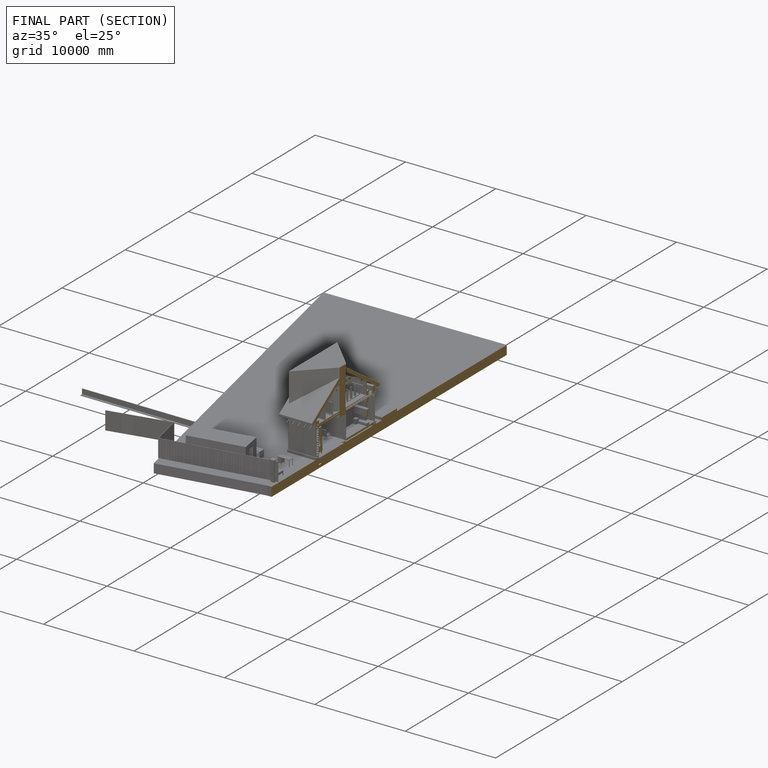
[diagram: finished part — half-section view (interior)]
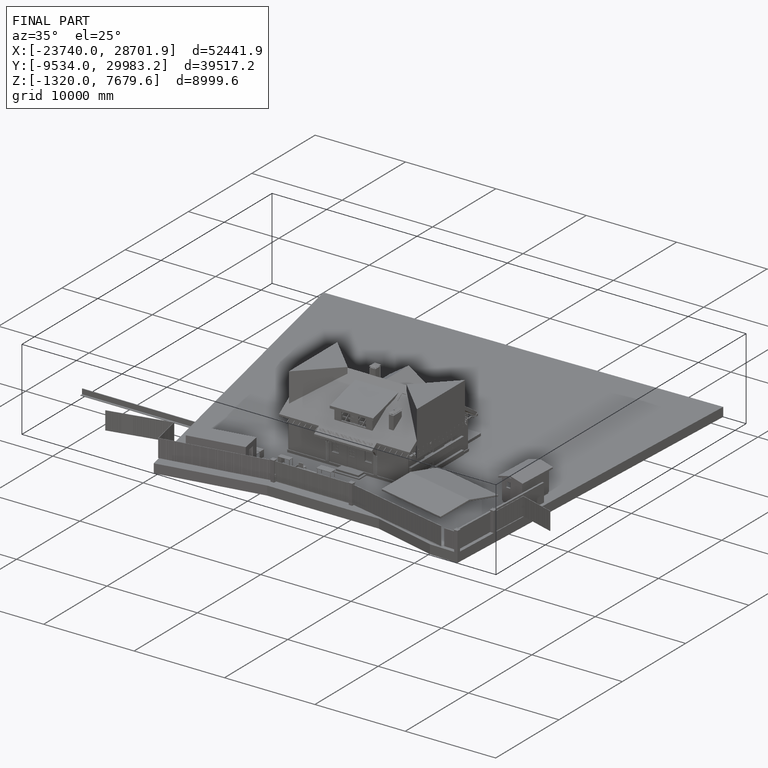
[diagram: finished part — iso view with bounding-box wireframe]
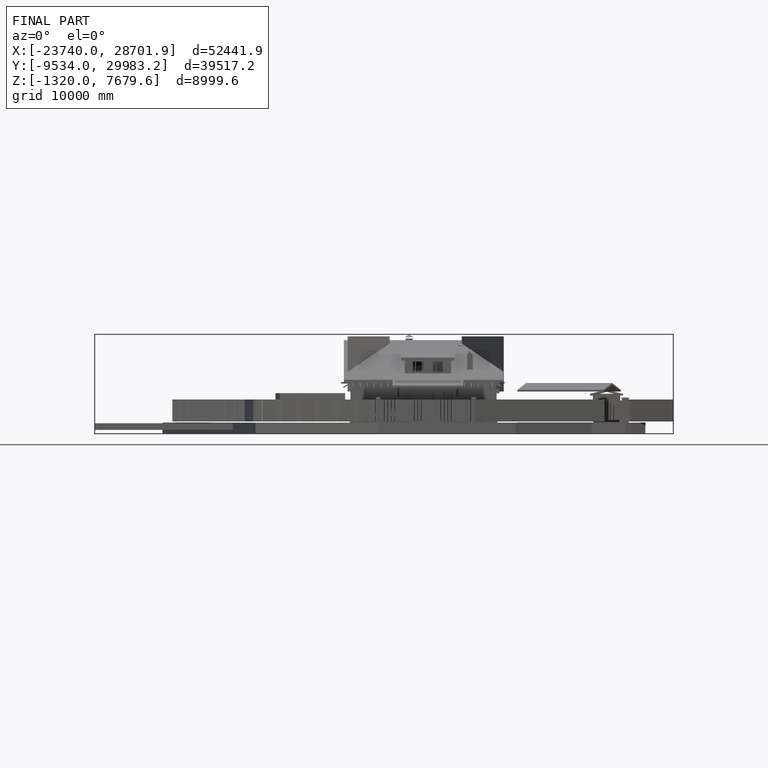
[diagram: finished part — front view with bounding-box wireframe]
